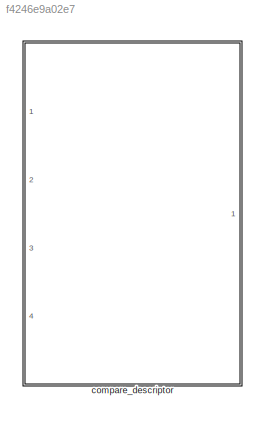
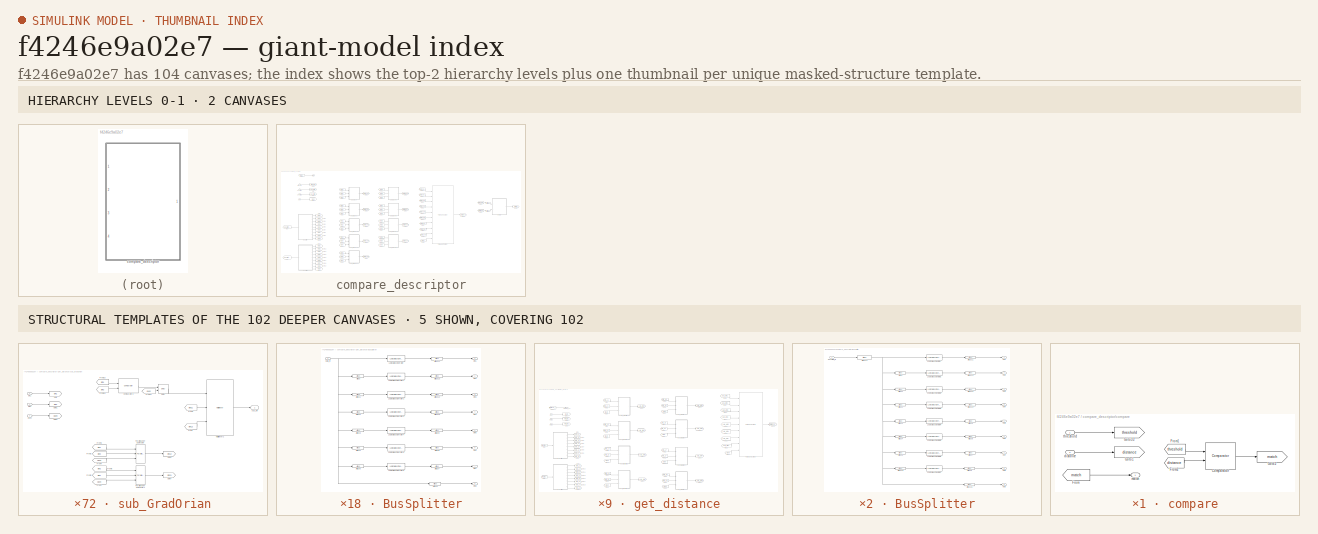
[diagram: thumbnail index - top-2 hierarchy levels (2 canvases) + 5 structural-template representatives of the remaining 102 canvases]
MODEL slx_f4246e9a02e7
KIND model
CONFIG AbsTol = auto
CONFIG FixedStep = auto
CONFIG InitFcn = %% DSPBuilder Start\nalt_dspbuilder_update_model(bdroot)\n%% DSPBuilder End\n
CONFIG MaxStep = auto
CONFIG MinStep = auto
CONFIG RelTol = 1e-3
CONFIG SampleTimeConstraint = Unconstrained
CONFIG Solver = ode45
CONFIG SolverMode = Auto
CONFIG SolverName = ode45
CONFIG StartTime = 0.0
CONFIG StopTime = 10.0
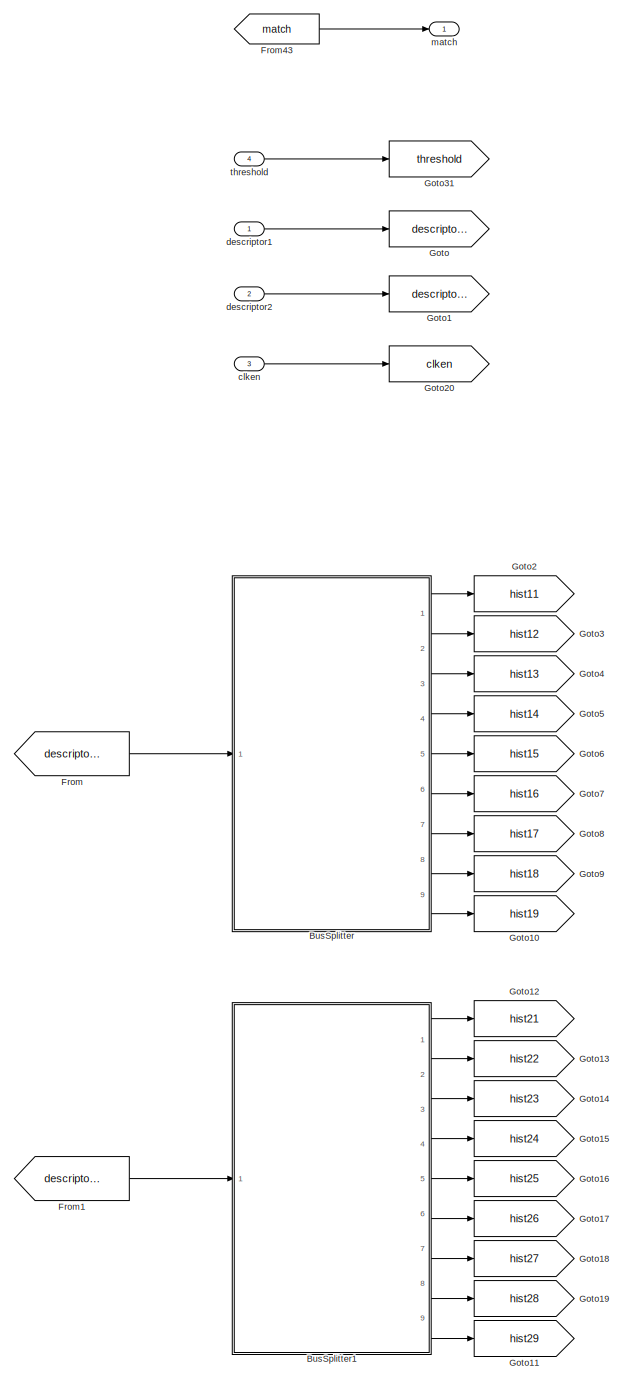
[diagram: compare_descriptor - part 1/4, left side, full height]
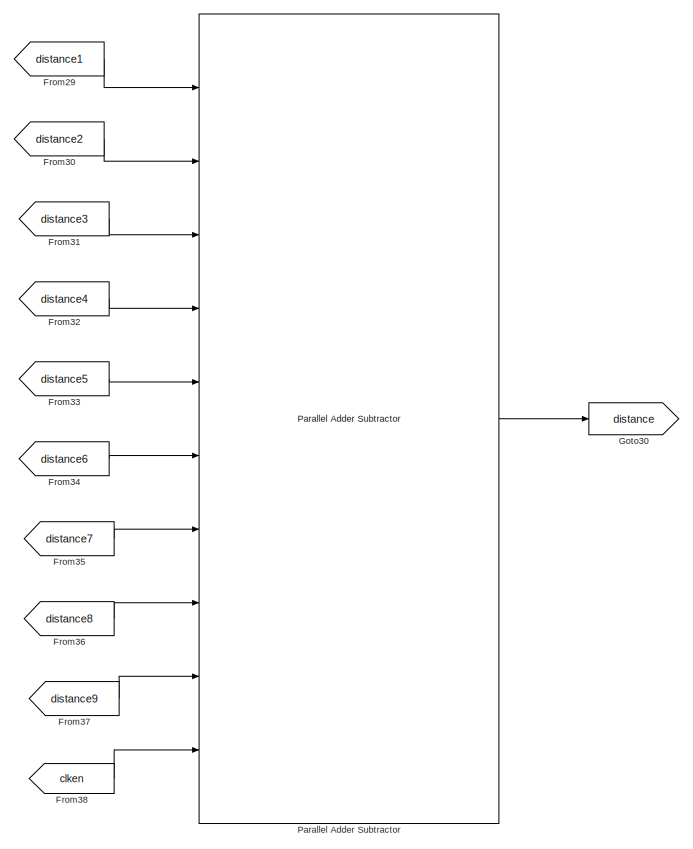
[diagram: compare_descriptor - part 2/4, middle right region]
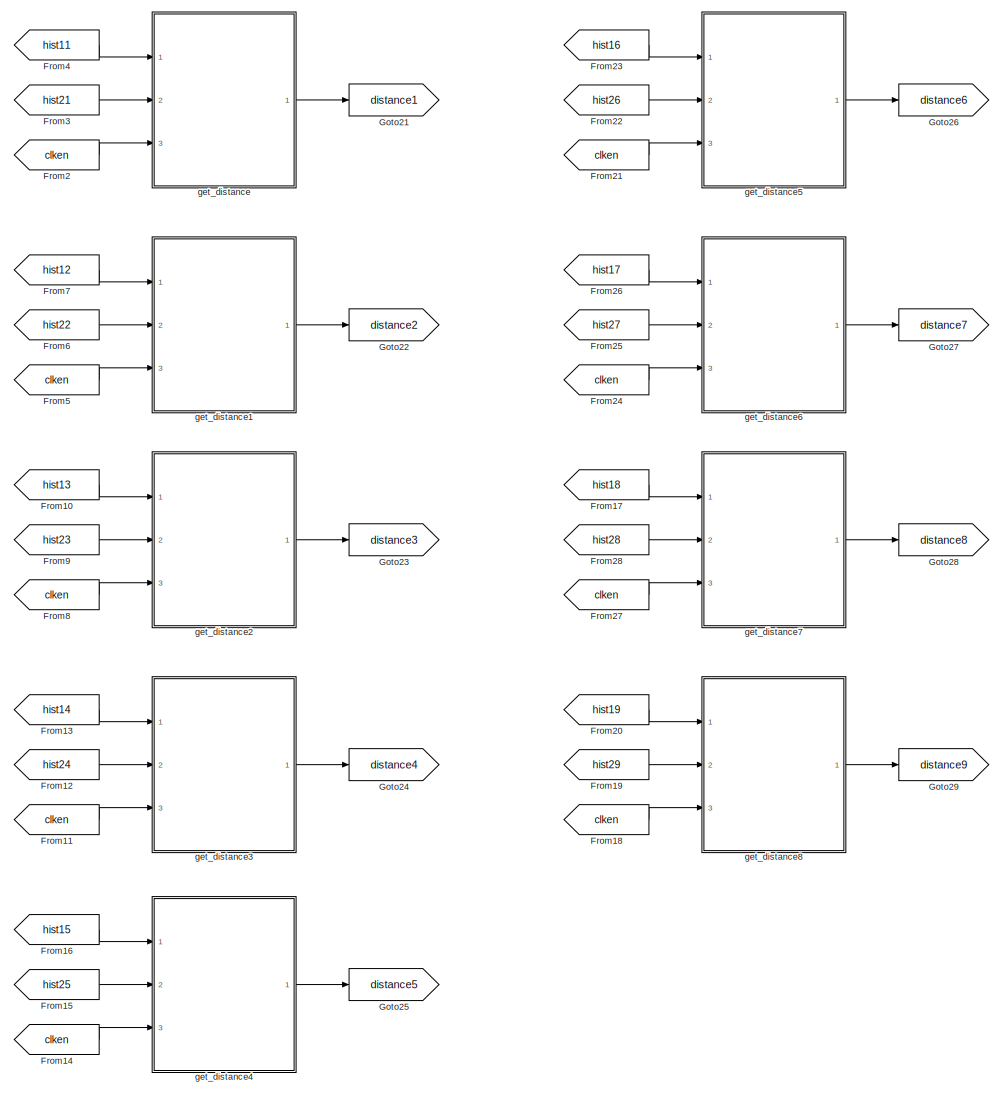
[diagram: compare_descriptor - part 3/4, center side, full height]
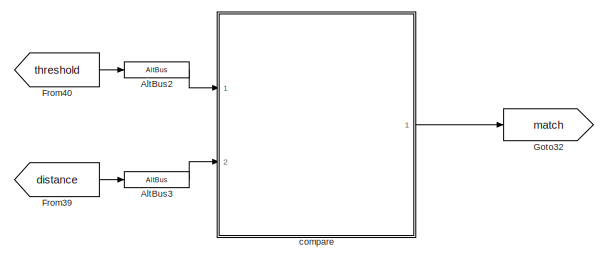
[diagram: compare_descriptor - part 4/4, middle right region]
BLOCK [SubSystem] compare_descriptor
  Ports = [4, 1]
  RequestExecContextInheritance = off
BLOCK [Reference] compare_descriptor/AltBus2  REF=allblocks_alteradspbuilder2/AltBus
  BusType = Unsigned Integer
  Ports = [1, 1]
  SourceBlock = allblocks_alteradspbuilder2/AltBus
  SourceType = AltBus AlteraBlockset
  bwl = 16
  bwr = 0
  floatingPointInput = on
  floatingPointOutput = on
  logFile = <userpath>\Desktop\final_sift_fpga\tb_compare\compare_compare%5Fdescriptor_AltBus2.fixedpointlog
  logOutputs = off
  saturate = off
BLOCK [Reference] compare_descriptor/AltBus3  REF=allblocks_alteradspbuilder2/AltBus
  BusType = Unsigned Integer
  Ports = [1, 1]
  SourceBlock = allblocks_alteradspbuilder2/AltBus
  SourceType = AltBus AlteraBlockset
  bwl = 16
  bwr = 0
  floatingPointInput = on
  floatingPointOutput = on
  logFile = <userpath>\Desktop\final_sift_fpga\tb_compare\compare_compare%5Fdescriptor_AltBus3.fixedpointlog
  logOutputs = off
  saturate = off
BLOCK [SubSystem] compare_descriptor/BusSplitter
  Ports = [1, 9]
  RequestExecContextInheritance = off
BLOCK [Reference] compare_descriptor/BusSplitter/AltBus  REF=allblocks_alteradspbuilder2/AltBus
  BusType = Unsigned Integer
  Ports = [1, 1]
  SourceBlock = allblocks_alteradspbuilder2/AltBus
  SourceType = AltBus AlteraBlockset
  bwl = 1024
  bwr = 0
  floatingPointInput = on
  floatingPointOutput = on
  logFile = <userpath>\Desktop\sift_fpga\Octave_2\tb_test_final_sift\test%5Ffinal%5Fsift_sift%5Foctave1_matching_compare%5Fdescriptor_BusSplitter_AltBus.fixedpointlog
  logOutputs = off
  saturate = off
BLOCK [Reference] compare_descriptor/BusSplitter/AltBus1  REF=allblocks_alteradspbuilder2/AltBus
  BusType = Unsigned Integer
  Ports = [1, 1]
  SourceBlock = allblocks_alteradspbuilder2/AltBus
  SourceType = AltBus AlteraBlockset
  bwl = 896
  bwr = 0
  floatingPointInput = on
  floatingPointOutput = on
  logFile = <userpath>\Desktop\sift_fpga\Octave_2\tb_test_final_sift\test%5Ffinal%5Fsift_sift%5Foctave1_matching_compare%5Fdescriptor_BusSplitter_AltBus1.fixedpointlog
  logOutputs = off
  saturate = off
BLOCK [Reference] compare_descriptor/BusSplitter/AltBus10  REF=allblocks_alteradspbuilder2/AltBus
  BusType = Unsigned Integer
  Ports = [1, 1]
  SourceBlock = allblocks_alteradspbuilder2/AltBus
  SourceType = AltBus AlteraBlockset
  bwl = 128
  bwr = 0
  floatingPointInput = on
  floatingPointOutput = on
  logFile = <userpath>\Desktop\sift_fpga\Octave_2\tb_test_final_sift\test%5Ffinal%5Fsift_sift%5Foctave1_matching_compare%5Fdescriptor_BusSplitter_AltBus10.fixedpointlog
  logOutputs = off
  saturate = off
BLOCK [Reference] compare_descriptor/BusSplitter/AltBus11  REF=allblocks_alteradspbuilder2/AltBus
  BusType = Unsigned Integer
  Ports = [1, 1]
  SourceBlock = allblocks_alteradspbuilder2/AltBus
  SourceType = AltBus AlteraBlockset
  bwl = 128
  bwr = 0
  floatingPointInput = on
  floatingPointOutput = on
  logFile = <userpath>\Desktop\sift_fpga\Octave_2\tb_test_final_sift\test%5Ffinal%5Fsift_sift%5Foctave1_matching_compare%5Fdescriptor_BusSplitter_AltBus11.fixedpointlog
  logOutputs = off
  saturate = off
BLOCK [Reference] compare_descriptor/BusSplitter/AltBus12  REF=allblocks_alteradspbuilder2/AltBus
  BusType = Unsigned Integer
  Ports = [1, 1]
  SourceBlock = allblocks_alteradspbuilder2/AltBus
  SourceType = AltBus AlteraBlockset
  bwl = 128
  bwr = 0
  floatingPointInput = on
  floatingPointOutput = on
  logFile = <userpath>\Desktop\sift_fpga\Octave_2\tb_test_final_sift\test%5Ffinal%5Fsift_sift%5Foctave1_matching_compare%5Fdescriptor_BusSplitter_AltBus12.fixedpointlog
  logOutputs = off
  saturate = off
BLOCK [Reference] compare_descriptor/BusSplitter/AltBus13  REF=allblocks_alteradspbuilder2/AltBus
  BusType = Unsigned Integer
  Ports = [1, 1]
  SourceBlock = allblocks_alteradspbuilder2/AltBus
  SourceType = AltBus AlteraBlockset
  bwl = 128
  bwr = 0
  floatingPointInput = on
  floatingPointOutput = on
  logFile = <userpath>\Desktop\sift_fpga\Octave_2\tb_test_final_sift\test%5Ffinal%5Fsift_sift%5Foctave1_matching_compare%5Fdescriptor_BusSplitter_AltBus13.fixedpointlog
  logOutputs = off
  saturate = off
BLOCK [Reference] compare_descriptor/BusSplitter/AltBus14  REF=allblocks_alteradspbuilder2/AltBus
  BusType = Unsigned Integer
  Ports = [1, 1]
  SourceBlock = allblocks_alteradspbuilder2/AltBus
  SourceType = AltBus AlteraBlockset
  bwl = 16*8*9
  bwr = 0
  floatingPointInput = on
  floatingPointOutput = on
  logFile = <userpath>\Desktop\sift_fpga\Octave_2\tb_test_final_sift\test%5Ffinal%5Fsift_sift%5Foctave1_matching_compare%5Fdescriptor_BusSplitter_AltBus14.fixedpointlog
  logOutputs = off
  saturate = off
BLOCK [Reference] compare_descriptor/BusSplitter/AltBus15  REF=allblocks_alteradspbuilder2/AltBus
  BusType = Unsigned Integer
  Ports = [1, 1]
  SourceBlock = allblocks_alteradspbuilder2/AltBus
  SourceType = AltBus AlteraBlockset
  bwl = 128
  bwr = 0
  floatingPointInput = on
  floatingPointOutput = on
  logFile = <userpath>\Desktop\sift_fpga\Octave_2\tb_test_final_sift\test%5Ffinal%5Fsift_sift%5Foctave1_matching_compare%5Fdescriptor_BusSplitter_AltBus15.fixedpointlog
  logOutputs = off
  saturate = off
BLOCK [Reference] compare_descriptor/BusSplitter/AltBus16  REF=allblocks_alteradspbuilder2/AltBus
  BusType = Unsigned Integer
  Ports = [1, 1]
  SourceBlock = allblocks_alteradspbuilder2/AltBus
  SourceType = AltBus AlteraBlockset
  bwl = 256
  bwr = 0
  floatingPointInput = on
  floatingPointOutput = on
  logFile = <userpath>\Desktop\sift_fpga\Octave_2\tb_test_final_sift\test%5Ffinal%5Fsift_sift%5Foctave1_matching_compare%5Fdescriptor_BusSplitter_AltBus16.fixedpointlog
  logOutputs = off
  saturate = off
BLOCK [Reference] compare_descriptor/BusSplitter/AltBus2  REF=allblocks_alteradspbuilder2/AltBus
  BusType = Unsigned Integer
  Ports = [1, 1]
  SourceBlock = allblocks_alteradspbuilder2/AltBus
  SourceType = AltBus AlteraBlockset
  bwl = 768
  bwr = 0
  floatingPointInput = on
  floatingPointOutput = on
  logFile = <userpath>\Desktop\sift_fpga\Octave_2\tb_test_final_sift\test%5Ffinal%5Fsift_sift%5Foctave1_matching_compare%5Fdescriptor_BusSplitter_AltBus2.fixedpointlog
  logOutputs = off
  saturate = off
BLOCK [Reference] compare_descriptor/BusSplitter/AltBus3  REF=allblocks_alteradspbuilder2/AltBus
  BusType = Unsigned Integer
  Ports = [1, 1]
  SourceBlock = allblocks_alteradspbuilder2/AltBus
  SourceType = AltBus AlteraBlockset
  bwl = 640
  bwr = 0
  floatingPointInput = on
  floatingPointOutput = on
  logFile = <userpath>\Desktop\sift_fpga\Octave_2\tb_test_final_sift\test%5Ffinal%5Fsift_sift%5Foctave1_matching_compare%5Fdescriptor_BusSplitter_AltBus3.fixedpointlog
  logOutputs = off
  saturate = off
BLOCK [Reference] compare_descriptor/BusSplitter/AltBus4  REF=allblocks_alteradspbuilder2/AltBus
  BusType = Unsigned Integer
  Ports = [1, 1]
  SourceBlock = allblocks_alteradspbuilder2/AltBus
  SourceType = AltBus AlteraBlockset
  bwl = 512
  bwr = 0
  floatingPointInput = on
  floatingPointOutput = on
  logFile = <userpath>\Desktop\sift_fpga\Octave_2\tb_test_final_sift\test%5Ffinal%5Fsift_sift%5Foctave1_matching_compare%5Fdescriptor_BusSplitter_AltBus4.fixedpointlog
  logOutputs = off
  saturate = off
BLOCK [Reference] compare_descriptor/BusSplitter/AltBus5  REF=allblocks_alteradspbuilder2/AltBus
  BusType = Unsigned Integer
  Ports = [1, 1]
  SourceBlock = allblocks_alteradspbuilder2/AltBus
  SourceType = AltBus AlteraBlockset
  bwl = 384
  bwr = 0
  floatingPointInput = on
  floatingPointOutput = on
  logFile = <userpath>\Desktop\sift_fpga\Octave_2\tb_test_final_sift\test%5Ffinal%5Fsift_sift%5Foctave1_matching_compare%5Fdescriptor_BusSplitter_AltBus5.fixedpointlog
  logOutputs = off
  saturate = off
BLOCK [Reference] compare_descriptor/BusSplitter/AltBus6  REF=allblocks_alteradspbuilder2/AltBus
  BusType = Unsigned Integer
  Ports = [1, 1]
  SourceBlock = allblocks_alteradspbuilder2/AltBus
  SourceType = AltBus AlteraBlockset
  bwl = 128
  bwr = 0
  floatingPointInput = on
  floatingPointOutput = on
  logFile = <userpath>\Desktop\sift_fpga\Octave_2\tb_test_final_sift\test%5Ffinal%5Fsift_sift%5Foctave1_matching_compare%5Fdescriptor_BusSplitter_AltBus6.fixedpointlog
  logOutputs = off
  saturate = off
BLOCK [Reference] compare_descriptor/BusSplitter/AltBus7  REF=allblocks_alteradspbuilder2/AltBus
  BusType = Unsigned Integer
  Ports = [1, 1]
  SourceBlock = allblocks_alteradspbuilder2/AltBus
  SourceType = AltBus AlteraBlockset
  bwl = 128
  bwr = 0
  floatingPointInput = on
  floatingPointOutput = on
  logFile = <userpath>\Desktop\sift_fpga\Octave_2\tb_test_final_sift\test%5Ffinal%5Fsift_sift%5Foctave1_matching_compare%5Fdescriptor_BusSplitter_AltBus7.fixedpointlog
  logOutputs = off
  saturate = off
BLOCK [Reference] compare_descriptor/BusSplitter/AltBus8  REF=allblocks_alteradspbuilder2/AltBus
  BusType = Unsigned Integer
  Ports = [1, 1]
  SourceBlock = allblocks_alteradspbuilder2/AltBus
  SourceType = AltBus AlteraBlockset
  bwl = 128
  bwr = 0
  floatingPointInput = on
  floatingPointOutput = on
  logFile = <userpath>\Desktop\sift_fpga\Octave_2\tb_test_final_sift\test%5Ffinal%5Fsift_sift%5Foctave1_matching_compare%5Fdescriptor_BusSplitter_AltBus8.fixedpointlog
  logOutputs = off
  saturate = off
BLOCK [Reference] compare_descriptor/BusSplitter/AltBus9  REF=allblocks_alteradspbuilder2/AltBus
  BusType = Unsigned Integer
  Ports = [1, 1]
  SourceBlock = allblocks_alteradspbuilder2/AltBus
  SourceType = AltBus AlteraBlockset
  bwl = 128
  bwr = 0
  floatingPointInput = on
  floatingPointOutput = on
  logFile = <userpath>\Desktop\sift_fpga\Octave_2\tb_test_final_sift\test%5Ffinal%5Fsift_sift%5Foctave1_matching_compare%5Fdescriptor_BusSplitter_AltBus9.fixedpointlog
  logOutputs = off
  saturate = off
BLOCK [Reference] compare_descriptor/BusSplitter/Logical Bus Operator  REF=allblocks_alteradspbuilder2/Logical Bus Operator
  BusType = Unsigned Integer
  LogicalOp_text = Shift Right
  Ports = [1, 1]
  SourceBlock = allblocks_alteradspbuilder2/Logical Bus Operator
  SourceType = Logical Bus Operator AlteraBlockset
  bwl = 1152
  bwr = 0
  force_sign_ext = off
  mask_value_num = -5
  pipeline_display = 0
  shift_amount = 8*128
BLOCK [Reference] compare_descriptor/BusSplitter/Logical Bus Operator1  REF=allblocks_alteradspbuilder2/Logical Bus Operator
  BusType = Unsigned Integer
  LogicalOp_text = Shift Right
  Ports = [1, 1]
  SourceBlock = allblocks_alteradspbuilder2/Logical Bus Operator
  SourceType = Logical Bus Operator AlteraBlockset
  bwl = 1024
  bwr = 0
  force_sign_ext = off
  mask_value_num = -5
  pipeline_display = 0
  shift_amount = 7*128
BLOCK [Reference] compare_descriptor/BusSplitter/Logical Bus Operator2  REF=allblocks_alteradspbuilder2/Logical Bus Operator
  BusType = Unsigned Integer
  LogicalOp_text = Shift Right
  Ports = [1, 1]
  SourceBlock = allblocks_alteradspbuilder2/Logical Bus Operator
  SourceType = Logical Bus Operator AlteraBlockset
  bwl = 896
  bwr = 0
  force_sign_ext = off
  mask_value_num = -5
  pipeline_display = 0
  shift_amount = 6*128
BLOCK [Reference] compare_descriptor/BusSplitter/Logical Bus Operator3  REF=allblocks_alteradspbuilder2/Logical Bus Operator
  BusType = Unsigned Integer
  LogicalOp_text = Shift Right
  Ports = [1, 1]
  SourceBlock = allblocks_alteradspbuilder2/Logical Bus Operator
  SourceType = Logical Bus Operator AlteraBlockset
  bwl = 768
  bwr = 0
  force_sign_ext = off
  mask_value_num = -5
  pipeline_display = 0
  shift_amount = 5*128
BLOCK [Reference] compare_descriptor/BusSplitter/Logical Bus Operator4  REF=allblocks_alteradspbuilder2/Logical Bus Operator
  BusType = Unsigned Integer
  LogicalOp_text = Shift Right
  Ports = [1, 1]
  SourceBlock = allblocks_alteradspbuilder2/Logical Bus Operator
  SourceType = Logical Bus Operator AlteraBlockset
  bwl = 640
  bwr = 0
  force_sign_ext = off
  mask_value_num = -5
  pipeline_display = 0
  shift_amount = 4*128
BLOCK [Reference] compare_descriptor/BusSplitter/Logical Bus Operator5  REF=allblocks_alteradspbuilder2/Logical Bus Operator
  BusType = Unsigned Integer
  LogicalOp_text = Shift Right
  Ports = [1, 1]
  SourceBlock = allblocks_alteradspbuilder2/Logical Bus Operator
  SourceType = Logical Bus Operator AlteraBlockset
  bwl = 512
  bwr = 0
  force_sign_ext = off
  mask_value_num = -5
  pipeline_display = 0
  shift_amount = 3*128
BLOCK [Reference] compare_descriptor/BusSplitter/Logical Bus Operator6  REF=allblocks_alteradspbuilder2/Logical Bus Operator
  BusType = Unsigned Integer
  LogicalOp_text = Shift Right
  Ports = [1, 1]
  SourceBlock = allblocks_alteradspbuilder2/Logical Bus Operator
  SourceType = Logical Bus Operator AlteraBlockset
  bwl = 384
  bwr = 0
  force_sign_ext = off
  mask_value_num = -5
  pipeline_display = 0
  shift_amount = 2*128
BLOCK [Reference] compare_descriptor/BusSplitter/Logical Bus Operator7  REF=allblocks_alteradspbuilder2/Logical Bus Operator
  BusType = Unsigned Integer
  LogicalOp_text = Shift Right
  Ports = [1, 1]
  SourceBlock = allblocks_alteradspbuilder2/Logical Bus Operator
  SourceType = Logical Bus Operator AlteraBlockset
  bwl = 256
  bwr = 0
  force_sign_ext = off
  mask_value_num = -5
  pipeline_display = 0
  shift_amount = 128
BLOCK [Inport] compare_descriptor/BusSplitter/descriptor_in
  IconDisplay = Port number
BLOCK [Outport] compare_descriptor/BusSplitter/hist1
  IconDisplay = Port number
BLOCK [Outport] compare_descriptor/BusSplitter/hist2
  IconDisplay = Port number
  Port = 2
BLOCK [Outport] compare_descriptor/BusSplitter/hist3
  IconDisplay = Port number
  Port = 3
BLOCK [Outport] compare_descriptor/BusSplitter/hist4
  IconDisplay = Port number
  Port = 4
BLOCK [Outport] compare_descriptor/BusSplitter/hist5
  IconDisplay = Port number
  Port = 5
BLOCK [Outport] compare_descriptor/BusSplitter/hist6
  IconDisplay = Port number
  Port = 6
BLOCK [Outport] compare_descriptor/BusSplitter/hist7
  IconDisplay = Port number
  Port = 7
BLOCK [Outport] compare_descriptor/BusSplitter/hist8
  IconDisplay = Port number
  Port = 8
BLOCK [Outport] compare_descriptor/BusSplitter/hist9
  IconDisplay = Port number
  Port = 9
BLOCK [SubSystem] compare_descriptor/BusSplitter1
  Ports = [1, 9]
  RequestExecContextInheritance = off
BLOCK [Reference] compare_descriptor/BusSplitter1/AltBus  REF=allblocks_alteradspbuilder2/AltBus
  BusType = Unsigned Integer
  Ports = [1, 1]
  SourceBlock = allblocks_alteradspbuilder2/AltBus
  SourceType = AltBus AlteraBlockset
  bwl = 1024
  bwr = 0
  floatingPointInput = on
  floatingPointOutput = on
  logFile = <userpath>\Desktop\sift_fpga\Octave_2\tb_test_final_sift\test%5Ffinal%5Fsift_sift%5Foctave1_matching_compare%5Fdescriptor_BusSplitter1_AltBus.fixedpointlog
  logOutputs = off
  saturate = off
BLOCK [Reference] compare_descriptor/BusSplitter1/AltBus1  REF=allblocks_alteradspbuilder2/AltBus
  BusType = Unsigned Integer
  Ports = [1, 1]
  SourceBlock = allblocks_alteradspbuilder2/AltBus
  SourceType = AltBus AlteraBlockset
  bwl = 896
  bwr = 0
  floatingPointInput = on
  floatingPointOutput = on
  logFile = <userpath>\Desktop\sift_fpga\Octave_2\tb_test_final_sift\test%5Ffinal%5Fsift_sift%5Foctave1_matching_compare%5Fdescriptor_BusSplitter1_AltBus1.fixedpointlog
  logOutputs = off
  saturate = off
BLOCK [Reference] compare_descriptor/BusSplitter1/AltBus10  REF=allblocks_alteradspbuilder2/AltBus
  BusType = Unsigned Integer
  Ports = [1, 1]
  SourceBlock = allblocks_alteradspbuilder2/AltBus
  SourceType = AltBus AlteraBlockset
  bwl = 128
  bwr = 0
  floatingPointInput = on
  floatingPointOutput = on
  logFile = <userpath>\Desktop\sift_fpga\Octave_2\tb_test_final_sift\test%5Ffinal%5Fsift_sift%5Foctave1_matching_compare%5Fdescriptor_BusSplitter1_AltBus10.fixedpointlog
  logOutputs = off
  saturate = off
BLOCK [Reference] compare_descriptor/BusSplitter1/AltBus11  REF=allblocks_alteradspbuilder2/AltBus
  BusType = Unsigned Integer
  Ports = [1, 1]
  SourceBlock = allblocks_alteradspbuilder2/AltBus
  SourceType = AltBus AlteraBlockset
  bwl = 128
  bwr = 0
  floatingPointInput = on
  floatingPointOutput = on
  logFile = <userpath>\Desktop\sift_fpga\Octave_2\tb_test_final_sift\test%5Ffinal%5Fsift_sift%5Foctave1_matching_compare%5Fdescriptor_BusSplitter1_AltBus11.fixedpointlog
  logOutputs = off
  saturate = off
BLOCK [Reference] compare_descriptor/BusSplitter1/AltBus12  REF=allblocks_alteradspbuilder2/AltBus
  BusType = Unsigned Integer
  Ports = [1, 1]
  SourceBlock = allblocks_alteradspbuilder2/AltBus
  SourceType = AltBus AlteraBlockset
  bwl = 128
  bwr = 0
  floatingPointInput = on
  floatingPointOutput = on
  logFile = <userpath>\Desktop\sift_fpga\Octave_2\tb_test_final_sift\test%5Ffinal%5Fsift_sift%5Foctave1_matching_compare%5Fdescriptor_BusSplitter1_AltBus12.fixedpointlog
  logOutputs = off
  saturate = off
BLOCK [Reference] compare_descriptor/BusSplitter1/AltBus13  REF=allblocks_alteradspbuilder2/AltBus
  BusType = Unsigned Integer
  Ports = [1, 1]
  SourceBlock = allblocks_alteradspbuilder2/AltBus
  SourceType = AltBus AlteraBlockset
  bwl = 128
  bwr = 0
  floatingPointInput = on
  floatingPointOutput = on
  logFile = <userpath>\Desktop\sift_fpga\Octave_2\tb_test_final_sift\test%5Ffinal%5Fsift_sift%5Foctave1_matching_compare%5Fdescriptor_BusSplitter1_AltBus13.fixedpointlog
  logOutputs = off
  saturate = off
BLOCK [Reference] compare_descriptor/BusSplitter1/AltBus14  REF=allblocks_alteradspbuilder2/AltBus
  BusType = Unsigned Integer
  Ports = [1, 1]
  SourceBlock = allblocks_alteradspbuilder2/AltBus
  SourceType = AltBus AlteraBlockset
  bwl = 16*8*9
  bwr = 0
  floatingPointInput = on
  floatingPointOutput = on
  logFile = <userpath>\Desktop\sift_fpga\Octave_2\tb_test_final_sift\test%5Ffinal%5Fsift_sift%5Foctave1_matching_compare%5Fdescriptor_BusSplitter1_AltBus14.fixedpointlog
  logOutputs = off
  saturate = off
BLOCK [Reference] compare_descriptor/BusSplitter1/AltBus15  REF=allblocks_alteradspbuilder2/AltBus
  BusType = Unsigned Integer
  Ports = [1, 1]
  SourceBlock = allblocks_alteradspbuilder2/AltBus
  SourceType = AltBus AlteraBlockset
  bwl = 128
  bwr = 0
  floatingPointInput = on
  floatingPointOutput = on
  logFile = <userpath>\Desktop\sift_fpga\Octave_2\tb_test_final_sift\test%5Ffinal%5Fsift_sift%5Foctave1_matching_compare%5Fdescriptor_BusSplitter1_AltBus15.fixedpointlog
  logOutputs = off
  saturate = off
BLOCK [Reference] compare_descriptor/BusSplitter1/AltBus16  REF=allblocks_alteradspbuilder2/AltBus
  BusType = Unsigned Integer
  Ports = [1, 1]
  SourceBlock = allblocks_alteradspbuilder2/AltBus
  SourceType = AltBus AlteraBlockset
  bwl = 256
  bwr = 0
  floatingPointInput = on
  floatingPointOutput = on
  logFile = <userpath>\Desktop\sift_fpga\Octave_2\tb_test_final_sift\test%5Ffinal%5Fsift_sift%5Foctave1_matching_compare%5Fdescriptor_BusSplitter1_AltBus16.fixedpointlog
  logOutputs = off
  saturate = off
BLOCK [Reference] compare_descriptor/BusSplitter1/AltBus2  REF=allblocks_alteradspbuilder2/AltBus
  BusType = Unsigned Integer
  Ports = [1, 1]
  SourceBlock = allblocks_alteradspbuilder2/AltBus
  SourceType = AltBus AlteraBlockset
  bwl = 768
  bwr = 0
  floatingPointInput = on
  floatingPointOutput = on
  logFile = <userpath>\Desktop\sift_fpga\Octave_2\tb_test_final_sift\test%5Ffinal%5Fsift_sift%5Foctave1_matching_compare%5Fdescriptor_BusSplitter1_AltBus2.fixedpointlog
  logOutputs = off
  saturate = off
BLOCK [Reference] compare_descriptor/BusSplitter1/AltBus3  REF=allblocks_alteradspbuilder2/AltBus
  BusType = Unsigned Integer
  Ports = [1, 1]
  SourceBlock = allblocks_alteradspbuilder2/AltBus
  SourceType = AltBus AlteraBlockset
  bwl = 640
  bwr = 0
  floatingPointInput = on
  floatingPointOutput = on
  logFile = <userpath>\Desktop\sift_fpga\Octave_2\tb_test_final_sift\test%5Ffinal%5Fsift_sift%5Foctave1_matching_compare%5Fdescriptor_BusSplitter1_AltBus3.fixedpointlog
  logOutputs = off
  saturate = off
BLOCK [Reference] compare_descriptor/BusSplitter1/AltBus4  REF=allblocks_alteradspbuilder2/AltBus
  BusType = Unsigned Integer
  Ports = [1, 1]
  SourceBlock = allblocks_alteradspbuilder2/AltBus
  SourceType = AltBus AlteraBlockset
  bwl = 512
  bwr = 0
  floatingPointInput = on
  floatingPointOutput = on
  logFile = <userpath>\Desktop\sift_fpga\Octave_2\tb_test_final_sift\test%5Ffinal%5Fsift_sift%5Foctave1_matching_compare%5Fdescriptor_BusSplitter1_AltBus4.fixedpointlog
  logOutputs = off
  saturate = off
BLOCK [Reference] compare_descriptor/BusSplitter1/AltBus5  REF=allblocks_alteradspbuilder2/AltBus
  BusType = Unsigned Integer
  Ports = [1, 1]
  SourceBlock = allblocks_alteradspbuilder2/AltBus
  SourceType = AltBus AlteraBlockset
  bwl = 384
  bwr = 0
  floatingPointInput = on
  floatingPointOutput = on
  logFile = <userpath>\Desktop\sift_fpga\Octave_2\tb_test_final_sift\test%5Ffinal%5Fsift_sift%5Foctave1_matching_compare%5Fdescriptor_BusSplitter1_AltBus5.fixedpointlog
  logOutputs = off
  saturate = off
BLOCK [Reference] compare_descriptor/BusSplitter1/AltBus6  REF=allblocks_alteradspbuilder2/AltBus
  BusType = Unsigned Integer
  Ports = [1, 1]
  SourceBlock = allblocks_alteradspbuilder2/AltBus
  SourceType = AltBus AlteraBlockset
  bwl = 128
  bwr = 0
  floatingPointInput = on
  floatingPointOutput = on
  logFile = <userpath>\Desktop\sift_fpga\Octave_2\tb_test_final_sift\test%5Ffinal%5Fsift_sift%5Foctave1_matching_compare%5Fdescriptor_BusSplitter1_AltBus6.fixedpointlog
  logOutputs = off
  saturate = off
BLOCK [Reference] compare_descriptor/BusSplitter1/AltBus7  REF=allblocks_alteradspbuilder2/AltBus
  BusType = Unsigned Integer
  Ports = [1, 1]
  SourceBlock = allblocks_alteradspbuilder2/AltBus
  SourceType = AltBus AlteraBlockset
  bwl = 128
  bwr = 0
  floatingPointInput = on
  floatingPointOutput = on
  logFile = <userpath>\Desktop\sift_fpga\Octave_2\tb_test_final_sift\test%5Ffinal%5Fsift_sift%5Foctave1_matching_compare%5Fdescriptor_BusSplitter1_AltBus7.fixedpointlog
  logOutputs = off
  saturate = off
BLOCK [Reference] compare_descriptor/BusSplitter1/AltBus8  REF=allblocks_alteradspbuilder2/AltBus
  BusType = Unsigned Integer
  Ports = [1, 1]
  SourceBlock = allblocks_alteradspbuilder2/AltBus
  SourceType = AltBus AlteraBlockset
  bwl = 128
  bwr = 0
  floatingPointInput = on
  floatingPointOutput = on
  logFile = <userpath>\Desktop\sift_fpga\Octave_2\tb_test_final_sift\test%5Ffinal%5Fsift_sift%5Foctave1_matching_compare%5Fdescriptor_BusSplitter1_AltBus8.fixedpointlog
  logOutputs = off
  saturate = off
BLOCK [Reference] compare_descriptor/BusSplitter1/AltBus9  REF=allblocks_alteradspbuilder2/AltBus
  BusType = Unsigned Integer
  Ports = [1, 1]
  SourceBlock = allblocks_alteradspbuilder2/AltBus
  SourceType = AltBus AlteraBlockset
  bwl = 128
  bwr = 0
  floatingPointInput = on
  floatingPointOutput = on
  logFile = <userpath>\Desktop\sift_fpga\Octave_2\tb_test_final_sift\test%5Ffinal%5Fsift_sift%5Foctave1_matching_compare%5Fdescriptor_BusSplitter1_AltBus9.fixedpointlog
  logOutputs = off
  saturate = off
BLOCK [Reference] compare_descriptor/BusSplitter1/Logical Bus Operator  REF=allblocks_alteradspbuilder2/Logical Bus Operator
  BusType = Unsigned Integer
  LogicalOp_text = Shift Right
  Ports = [1, 1]
  SourceBlock = allblocks_alteradspbuilder2/Logical Bus Operator
  SourceType = Logical Bus Operator AlteraBlockset
  bwl = 1152
  bwr = 0
  force_sign_ext = off
  mask_value_num = -5
  pipeline_display = 0
  shift_amount = 8*128
BLOCK [Reference] compare_descriptor/BusSplitter1/Logical Bus Operator1  REF=allblocks_alteradspbuilder2/Logical Bus Operator
  BusType = Unsigned Integer
  LogicalOp_text = Shift Right
  Ports = [1, 1]
  SourceBlock = allblocks_alteradspbuilder2/Logical Bus Operator
  SourceType = Logical Bus Operator AlteraBlockset
  bwl = 1024
  bwr = 0
  force_sign_ext = off
  mask_value_num = -5
  pipeline_display = 0
  shift_amount = 7*128
BLOCK [Reference] compare_descriptor/BusSplitter1/Logical Bus Operator2  REF=allblocks_alteradspbuilder2/Logical Bus Operator
  BusType = Unsigned Integer
  LogicalOp_text = Shift Right
  Ports = [1, 1]
  SourceBlock = allblocks_alteradspbuilder2/Logical Bus Operator
  SourceType = Logical Bus Operator AlteraBlockset
  bwl = 896
  bwr = 0
  force_sign_ext = off
  mask_value_num = -5
  pipeline_display = 0
  shift_amount = 6*128
BLOCK [Reference] compare_descriptor/BusSplitter1/Logical Bus Operator3  REF=allblocks_alteradspbuilder2/Logical Bus Operator
  BusType = Unsigned Integer
  LogicalOp_text = Shift Right
  Ports = [1, 1]
  SourceBlock = allblocks_alteradspbuilder2/Logical Bus Operator
  SourceType = Logical Bus Operator AlteraBlockset
  bwl = 768
  bwr = 0
  force_sign_ext = off
  mask_value_num = -5
  pipeline_display = 0
  shift_amount = 5*128
BLOCK [Reference] compare_descriptor/BusSplitter1/Logical Bus Operator4  REF=allblocks_alteradspbuilder2/Logical Bus Operator
  BusType = Unsigned Integer
  LogicalOp_text = Shift Right
  Ports = [1, 1]
  SourceBlock = allblocks_alteradspbuilder2/Logical Bus Operator
  SourceType = Logical Bus Operator AlteraBlockset
  bwl = 640
  bwr = 0
  force_sign_ext = off
  mask_value_num = -5
  pipeline_display = 0
  shift_amount = 4*128
BLOCK [Reference] compare_descriptor/BusSplitter1/Logical Bus Operator5  REF=allblocks_alteradspbuilder2/Logical Bus Operator
  BusType = Unsigned Integer
  LogicalOp_text = Shift Right
  Ports = [1, 1]
  SourceBlock = allblocks_alteradspbuilder2/Logical Bus Operator
  SourceType = Logical Bus Operator AlteraBlockset
  bwl = 512
  bwr = 0
  force_sign_ext = off
  mask_value_num = -5
  pipeline_display = 0
  shift_amount = 3*128
BLOCK [Reference] compare_descriptor/BusSplitter1/Logical Bus Operator6  REF=allblocks_alteradspbuilder2/Logical Bus Operator
  BusType = Unsigned Integer
  LogicalOp_text = Shift Right
  Ports = [1, 1]
  SourceBlock = allblocks_alteradspbuilder2/Logical Bus Operator
  SourceType = Logical Bus Operator AlteraBlockset
  bwl = 384
  bwr = 0
  force_sign_ext = off
  mask_value_num = -5
  pipeline_display = 0
  shift_amount = 2*128
BLOCK [Reference] compare_descriptor/BusSplitter1/Logical Bus Operator7  REF=allblocks_alteradspbuilder2/Logical Bus Operator
  BusType = Unsigned Integer
  LogicalOp_text = Shift Right
  Ports = [1, 1]
  SourceBlock = allblocks_alteradspbuilder2/Logical Bus Operator
  SourceType = Logical Bus Operator AlteraBlockset
  bwl = 256
  bwr = 0
  force_sign_ext = off
  mask_value_num = -5
  pipeline_display = 0
  shift_amount = 128
BLOCK [Inport] compare_descriptor/BusSplitter1/descriptor_in
  IconDisplay = Port number
BLOCK [Outport] compare_descriptor/BusSplitter1/hist1
  IconDisplay = Port number
BLOCK [Outport] compare_descriptor/BusSplitter1/hist2
  IconDisplay = Port number
  Port = 2
BLOCK [Outport] compare_descriptor/BusSplitter1/hist3
  IconDisplay = Port number
  Port = 3
BLOCK [Outport] compare_descriptor/BusSplitter1/hist4
  IconDisplay = Port number
  Port = 4
BLOCK [Outport] compare_descriptor/BusSplitter1/hist5
  IconDisplay = Port number
  Port = 5
BLOCK [Outport] compare_descriptor/BusSplitter1/hist6
  IconDisplay = Port number
  Port = 6
BLOCK [Outport] compare_descriptor/BusSplitter1/hist7
  IconDisplay = Port number
  Port = 7
BLOCK [Outport] compare_descriptor/BusSplitter1/hist8
  IconDisplay = Port number
  Port = 8
BLOCK [Outport] compare_descriptor/BusSplitter1/hist9
  IconDisplay = Port number
  Port = 9
BLOCK [From] compare_descriptor/From
  GotoTag = descriptor1
BLOCK [From] compare_descriptor/From1
  GotoTag = descriptor2
BLOCK [From] compare_descriptor/From10
  GotoTag = hist13
BLOCK [From] compare_descriptor/From11
  GotoTag = clken
BLOCK [From] compare_descriptor/From12
  GotoTag = hist24
BLOCK [From] compare_descriptor/From13
  GotoTag = hist14
BLOCK [From] compare_descriptor/From14
  GotoTag = clken
BLOCK [From] compare_descriptor/From15
  GotoTag = hist25
BLOCK [From] compare_descriptor/From16
  GotoTag = hist15
BLOCK [From] compare_descriptor/From17
  GotoTag = hist18
BLOCK [From] compare_descriptor/From18
  GotoTag = clken
BLOCK [From] compare_descriptor/From19
  GotoTag = hist29
BLOCK [From] compare_descriptor/From2
  GotoTag = clken
BLOCK [From] compare_descriptor/From20
  GotoTag = hist19
BLOCK [From] compare_descriptor/From21
  GotoTag = clken
BLOCK [From] compare_descriptor/From22
  GotoTag = hist26
BLOCK [From] compare_descriptor/From23
  GotoTag = hist16
BLOCK [From] compare_descriptor/From24
  GotoTag = clken
BLOCK [From] compare_descriptor/From25
  GotoTag = hist27
BLOCK [From] compare_descriptor/From26
  GotoTag = hist17
BLOCK [From] compare_descriptor/From27
  GotoTag = clken
BLOCK [From] compare_descriptor/From28
  GotoTag = hist28
BLOCK [From] compare_descriptor/From29
  GotoTag = distance1
BLOCK [From] compare_descriptor/From3
  GotoTag = hist21
BLOCK [From] compare_descriptor/From30
  GotoTag = distance2
BLOCK [From] compare_descriptor/From31
  GotoTag = distance3
BLOCK [From] compare_descriptor/From32
  GotoTag = distance4
BLOCK [From] compare_descriptor/From33
  GotoTag = distance5
BLOCK [From] compare_descriptor/From34
  GotoTag = distance6
BLOCK [From] compare_descriptor/From35
  GotoTag = distance7
BLOCK [From] compare_descriptor/From36
  GotoTag = distance8
BLOCK [From] compare_descriptor/From37
  GotoTag = distance9
BLOCK [From] compare_descriptor/From38
  GotoTag = clken
BLOCK [From] compare_descriptor/From39
  GotoTag = distance
BLOCK [From] compare_descriptor/From4
  GotoTag = hist11
BLOCK [From] compare_descriptor/From40
  GotoTag = threshold
BLOCK [From] compare_descriptor/From43
  GotoTag = match
BLOCK [From] compare_descriptor/From5
  GotoTag = clken
BLOCK [From] compare_descriptor/From6
  GotoTag = hist22
BLOCK [From] compare_descriptor/From7
  GotoTag = hist12
BLOCK [From] compare_descriptor/From8
  GotoTag = clken
BLOCK [From] compare_descriptor/From9
  GotoTag = hist23
BLOCK [Goto] compare_descriptor/Goto
  GotoTag = descriptor1
BLOCK [Goto] compare_descriptor/Goto1
  GotoTag = descriptor2
BLOCK [Goto] compare_descriptor/Goto10
  GotoTag = hist19
BLOCK [Goto] compare_descriptor/Goto11
  GotoTag = hist29
BLOCK [Goto] compare_descriptor/Goto12
  GotoTag = hist21
BLOCK [Goto] compare_descriptor/Goto13
  GotoTag = hist22
BLOCK [Goto] compare_descriptor/Goto14
  GotoTag = hist23
BLOCK [Goto] compare_descriptor/Goto15
  GotoTag = hist24
BLOCK [Goto] compare_descriptor/Goto16
  GotoTag = hist25
BLOCK [Goto] compare_descriptor/Goto17
  GotoTag = hist26
BLOCK [Goto] compare_descriptor/Goto18
  GotoTag = hist27
BLOCK [Goto] compare_descriptor/Goto19
  GotoTag = hist28
BLOCK [Goto] compare_descriptor/Goto2
  GotoTag = hist11
BLOCK [Goto] compare_descriptor/Goto20
  GotoTag = clken
BLOCK [Goto] compare_descriptor/Goto21
  GotoTag = distance1
BLOCK [Goto] compare_descriptor/Goto22
  GotoTag = distance2
BLOCK [Goto] compare_descriptor/Goto23
  GotoTag = distance3
BLOCK [Goto] compare_descriptor/Goto24
  GotoTag = distance4
BLOCK [Goto] compare_descriptor/Goto25
  GotoTag = distance5
BLOCK [Goto] compare_descriptor/Goto26
  GotoTag = distance6
BLOCK [Goto] compare_descriptor/Goto27
  GotoTag = distance7
BLOCK [Goto] compare_descriptor/Goto28
  GotoTag = distance8
BLOCK [Goto] compare_descriptor/Goto29
  GotoTag = distance9
BLOCK [Goto] compare_descriptor/Goto3
  GotoTag = hist12
BLOCK [Goto] compare_descriptor/Goto30
  GotoTag = distance
BLOCK [Goto] compare_descriptor/Goto31
  GotoTag = threshold
BLOCK [Goto] compare_descriptor/Goto32
  GotoTag = match
BLOCK [Goto] compare_descriptor/Goto4
  GotoTag = hist13
BLOCK [Goto] compare_descriptor/Goto5
  GotoTag = hist14
BLOCK [Goto] compare_descriptor/Goto6
  GotoTag = hist15
BLOCK [Goto] compare_descriptor/Goto7
  GotoTag = hist16
BLOCK [Goto] compare_descriptor/Goto8
  GotoTag = hist17
BLOCK [Goto] compare_descriptor/Goto9
  GotoTag = hist18
BLOCK [Reference] compare_descriptor/Parallel Adder Subtractor  REF=allblocks_alteradspbuilder2/Parallel Adder Subtractor
  Ports = [10, 1]
  SourceBlock = allblocks_alteradspbuilder2/Parallel Adder Subtractor
  SourceType = ParallelAdder AlteraBlockset
  allowFloatingPointOverride = on
  direction = +
  logFile = <userpath>\Desktop\final_sift_fpga\tb_compare\compare_compare%5Fdescriptor_Parallel+Adder+Subtractor.fixedpointlog
  logOutputs = off
  number_of_inputs = 9
  phase_selection = 1
  pipeline_display = 4
  use_aclr = off
  use_ena = on
  use_pipeline = on
BLOCK [Inport] compare_descriptor/clken
  IconDisplay = Port number
  Port = 3
BLOCK [SubSystem] compare_descriptor/compare
  Ports = [2, 1]
  RequestExecContextInheritance = off
BLOCK [Reference] compare_descriptor/compare/Comparator  REF=allblocks_alteradspbuilder2/Comparator
  Ports = [2, 1]
  SourceBlock = allblocks_alteradspbuilder2/Comparator
  SourceType = Comparator AlteraBlockset
  allowFloatingPointOverride = on
  direction = a > b
  logFile = <userpath>\Desktop\sift_fpga\Octave_2\tb_test_final_sift\test%5Ffinal%5Fsift_sift%5Foctave1_matching_compare%5Fdescriptor_compare_Comparator.fixedpointlog
  logOutputs = off
  pipeline_display = 0
BLOCK [From] compare_descriptor/compare/From
  GotoTag = match
BLOCK [From] compare_descriptor/compare/From1
  GotoTag = threshold
BLOCK [From] compare_descriptor/compare/From2
  GotoTag = distance
BLOCK [Goto] compare_descriptor/compare/Goto1
  GotoTag = distance
BLOCK [Goto] compare_descriptor/compare/Goto2
  GotoTag = match
BLOCK [Goto] compare_descriptor/compare/Goto32
  GotoTag = threshold
BLOCK [Inport] compare_descriptor/compare/distance
  IconDisplay = Port number
  Port = 2
BLOCK [Outport] compare_descriptor/compare/match
  IconDisplay = Port number
BLOCK [Inport] compare_descriptor/compare/threshold
  IconDisplay = Port number
BLOCK [Inport] compare_descriptor/descriptor1
  IconDisplay = Port number
BLOCK [Inport] compare_descriptor/descriptor2
  IconDisplay = Port number
  Port = 2
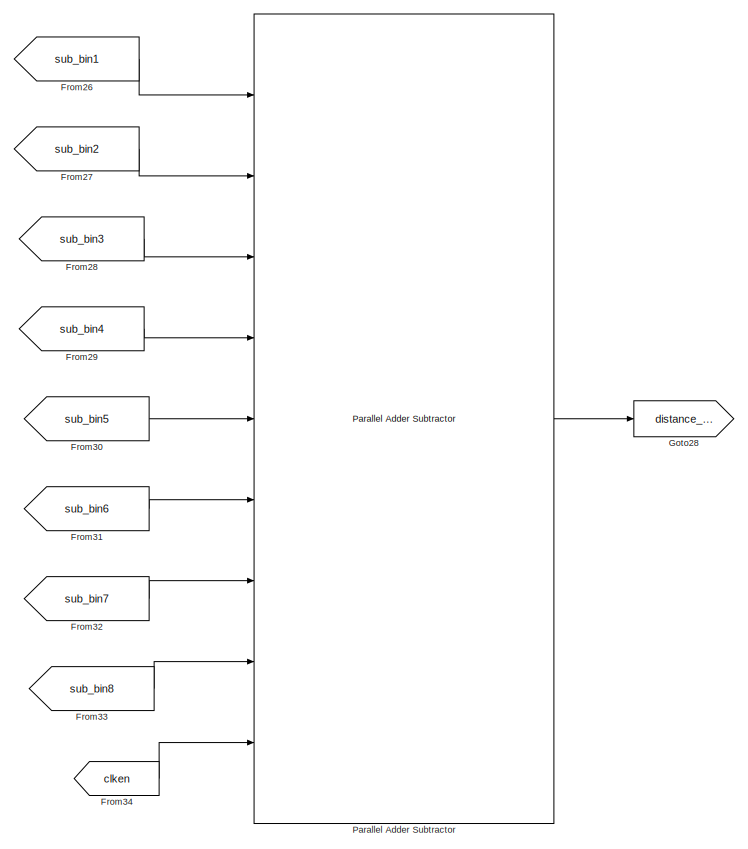
[diagram: compare_descriptor/get_distance - part 1/4, middle right region]
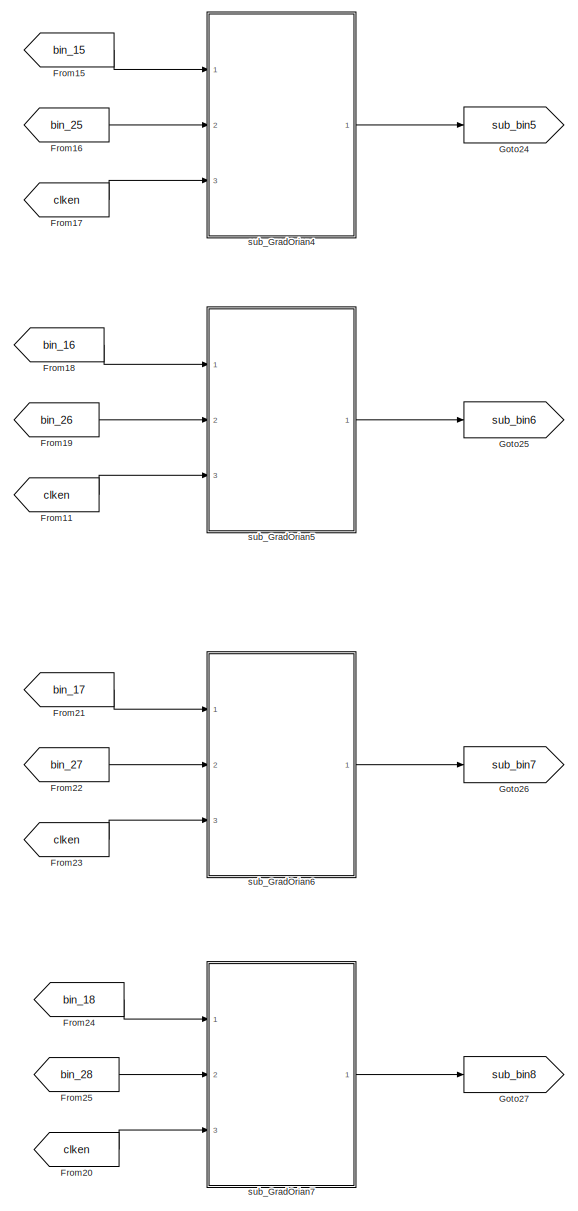
[diagram: compare_descriptor/get_distance - part 2/4, center side, full height]
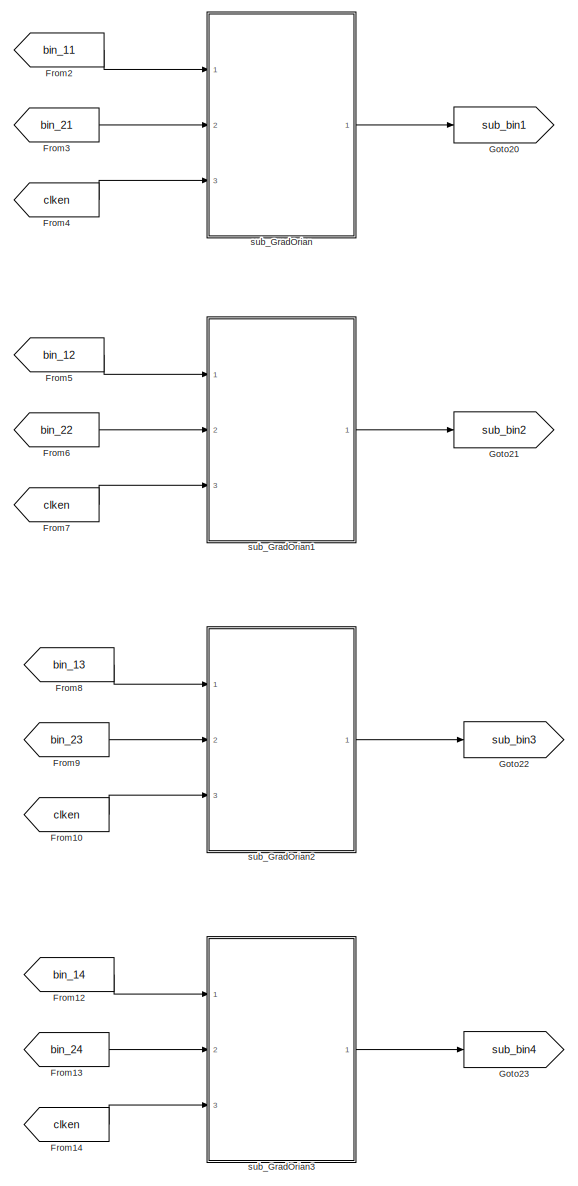
[diagram: compare_descriptor/get_distance - part 3/4, center side, full height]
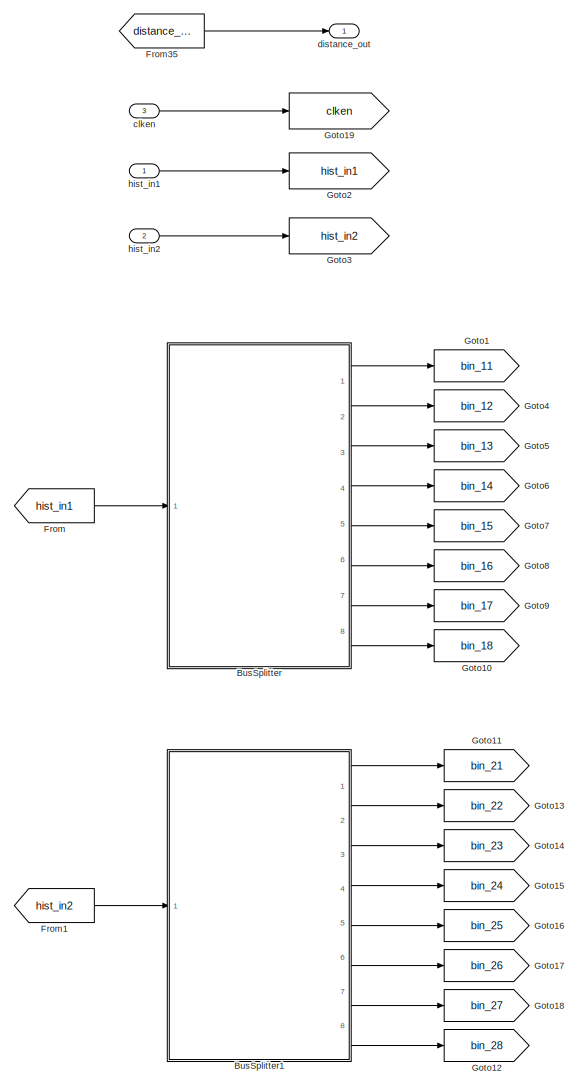
[diagram: compare_descriptor/get_distance - part 4/4, left side, full height]
BLOCK [SubSystem] compare_descriptor/get_distance
  Ports = [3, 1]
  RequestExecContextInheritance = off
BLOCK [SubSystem] compare_descriptor/get_distance/BusSplitter
  Ports = [1, 8]
  RequestExecContextInheritance = off
BLOCK [Reference] compare_descriptor/get_distance/BusSplitter/AltBus  REF=allblocks_alteradspbuilder2/AltBus
  BusType = Unsigned Integer
  Ports = [1, 1]
  SourceBlock = allblocks_alteradspbuilder2/AltBus
  SourceType = AltBus AlteraBlockset
  bwl = 112
  bwr = 0
  floatingPointInput = on
  floatingPointOutput = on
  logFile = <userpath>\Desktop\sift_fpga\Octave_2\tb_test_final_sift\test%5Ffinal%5Fsift_sift%5Foctave1_matching_compare%5Fdescriptor_get%5Fdistance_BusSplitter_AltBus.fixedpointlog
  logOutputs = off
  saturate = off
BLOCK [Reference] compare_descriptor/get_distance/BusSplitter/AltBus1  REF=allblocks_alteradspbuilder2/AltBus
  BusType = Unsigned Integer
  Ports = [1, 1]
  SourceBlock = allblocks_alteradspbuilder2/AltBus
  SourceType = AltBus AlteraBlockset
  bwl = 96
  bwr = 0
  floatingPointInput = on
  floatingPointOutput = on
  logFile = <userpath>\Desktop\sift_fpga\Octave_2\tb_test_final_sift\test%5Ffinal%5Fsift_sift%5Foctave1_matching_compare%5Fdescriptor_get%5Fdistance_BusSplitter_AltBus1.fixedpointlog
  logOutputs = off
  saturate = off
BLOCK [Reference] compare_descriptor/get_distance/BusSplitter/AltBus10  REF=allblocks_alteradspbuilder2/AltBus
  BusType = Unsigned Integer
  Ports = [1, 1]
  SourceBlock = allblocks_alteradspbuilder2/AltBus
  SourceType = AltBus AlteraBlockset
  bwl = 16
  bwr = 0
  floatingPointInput = on
  floatingPointOutput = on
  logFile = <userpath>\Desktop\sift_fpga\Octave_2\tb_test_final_sift\test%5Ffinal%5Fsift_sift%5Foctave1_matching_compare%5Fdescriptor_get%5Fdistance_BusSplitter_AltBus10.fixedpointlog
  logOutputs = off
  saturate = off
BLOCK [Reference] compare_descriptor/get_distance/BusSplitter/AltBus11  REF=allblocks_alteradspbuilder2/AltBus
  BusType = Unsigned Integer
  Ports = [1, 1]
  SourceBlock = allblocks_alteradspbuilder2/AltBus
  SourceType = AltBus AlteraBlockset
  bwl = 16
  bwr = 0
  floatingPointInput = on
  floatingPointOutput = on
  logFile = <userpath>\Desktop\sift_fpga\Octave_2\tb_test_final_sift\test%5Ffinal%5Fsift_sift%5Foctave1_matching_compare%5Fdescriptor_get%5Fdistance_BusSplitter_AltBus11.fixedpointlog
  logOutputs = off
  saturate = off
BLOCK [Reference] compare_descriptor/get_distance/BusSplitter/AltBus12  REF=allblocks_alteradspbuilder2/AltBus
  BusType = Unsigned Integer
  Ports = [1, 1]
  SourceBlock = allblocks_alteradspbuilder2/AltBus
  SourceType = AltBus AlteraBlockset
  bwl = 16
  bwr = 0
  floatingPointInput = on
  floatingPointOutput = on
  logFile = <userpath>\Desktop\sift_fpga\Octave_2\tb_test_final_sift\test%5Ffinal%5Fsift_sift%5Foctave1_matching_compare%5Fdescriptor_get%5Fdistance_BusSplitter_AltBus12.fixedpointlog
  logOutputs = off
  saturate = off
BLOCK [Reference] compare_descriptor/get_distance/BusSplitter/AltBus13  REF=allblocks_alteradspbuilder2/AltBus
  BusType = Unsigned Integer
  Ports = [1, 1]
  SourceBlock = allblocks_alteradspbuilder2/AltBus
  SourceType = AltBus AlteraBlockset
  bwl = 16
  bwr = 0
  floatingPointInput = on
  floatingPointOutput = on
  logFile = <userpath>\Desktop\sift_fpga\Octave_2\tb_test_final_sift\test%5Ffinal%5Fsift_sift%5Foctave1_matching_compare%5Fdescriptor_get%5Fdistance_BusSplitter_AltBus13.fixedpointlog
  logOutputs = off
  saturate = off
BLOCK [Reference] compare_descriptor/get_distance/BusSplitter/AltBus2  REF=allblocks_alteradspbuilder2/AltBus
  BusType = Unsigned Integer
  Ports = [1, 1]
  SourceBlock = allblocks_alteradspbuilder2/AltBus
  SourceType = AltBus AlteraBlockset
  bwl = 80
  bwr = 0
  floatingPointInput = on
  floatingPointOutput = on
  logFile = <userpath>\Desktop\sift_fpga\Octave_2\tb_test_final_sift\test%5Ffinal%5Fsift_sift%5Foctave1_matching_compare%5Fdescriptor_get%5Fdistance_BusSplitter_AltBus2.fixedpointlog
  logOutputs = off
  saturate = off
BLOCK [Reference] compare_descriptor/get_distance/BusSplitter/AltBus3  REF=allblocks_alteradspbuilder2/AltBus
  BusType = Unsigned Integer
  Ports = [1, 1]
  SourceBlock = allblocks_alteradspbuilder2/AltBus
  SourceType = AltBus AlteraBlockset
  bwl = 64
  bwr = 0
  floatingPointInput = on
  floatingPointOutput = on
  logFile = <userpath>\Desktop\sift_fpga\Octave_2\tb_test_final_sift\test%5Ffinal%5Fsift_sift%5Foctave1_matching_compare%5Fdescriptor_get%5Fdistance_BusSplitter_AltBus3.fixedpointlog
  logOutputs = off
  saturate = off
BLOCK [Reference] compare_descriptor/get_distance/BusSplitter/AltBus4  REF=allblocks_alteradspbuilder2/AltBus
  BusType = Unsigned Integer
  Ports = [1, 1]
  SourceBlock = allblocks_alteradspbuilder2/AltBus
  SourceType = AltBus AlteraBlockset
  bwl = 48
  bwr = 0
  floatingPointInput = on
  floatingPointOutput = on
  logFile = <userpath>\Desktop\sift_fpga\Octave_2\tb_test_final_sift\test%5Ffinal%5Fsift_sift%5Foctave1_matching_compare%5Fdescriptor_get%5Fdistance_BusSplitter_AltBus4.fixedpointlog
  logOutputs = off
  saturate = off
BLOCK [Reference] compare_descriptor/get_distance/BusSplitter/AltBus5  REF=allblocks_alteradspbuilder2/AltBus
  BusType = Unsigned Integer
  Ports = [1, 1]
  SourceBlock = allblocks_alteradspbuilder2/AltBus
  SourceType = AltBus AlteraBlockset
  bwl = 32
  bwr = 0
  floatingPointInput = on
  floatingPointOutput = on
  logFile = <userpath>\Desktop\sift_fpga\Octave_2\tb_test_final_sift\test%5Ffinal%5Fsift_sift%5Foctave1_matching_compare%5Fdescriptor_get%5Fdistance_BusSplitter_AltBus5.fixedpointlog
  logOutputs = off
  saturate = off
BLOCK [Reference] compare_descriptor/get_distance/BusSplitter/AltBus6  REF=allblocks_alteradspbuilder2/AltBus
  BusType = Unsigned Integer
  Ports = [1, 1]
  SourceBlock = allblocks_alteradspbuilder2/AltBus
  SourceType = AltBus AlteraBlockset
  bwl = 16
  bwr = 0
  floatingPointInput = on
  floatingPointOutput = on
  logFile = <userpath>\Desktop\sift_fpga\Octave_2\tb_test_final_sift\test%5Ffinal%5Fsift_sift%5Foctave1_matching_compare%5Fdescriptor_get%5Fdistance_BusSplitter_AltBus6.fixedpointlog
  logOutputs = off
  saturate = off
BLOCK [Reference] compare_descriptor/get_distance/BusSplitter/AltBus7  REF=allblocks_alteradspbuilder2/AltBus
  BusType = Unsigned Integer
  Ports = [1, 1]
  SourceBlock = allblocks_alteradspbuilder2/AltBus
  SourceType = AltBus AlteraBlockset
  bwl = 16
  bwr = 0
  floatingPointInput = on
  floatingPointOutput = on
  logFile = <userpath>\Desktop\sift_fpga\Octave_2\tb_test_final_sift\test%5Ffinal%5Fsift_sift%5Foctave1_matching_compare%5Fdescriptor_get%5Fdistance_BusSplitter_AltBus7.fixedpointlog
  logOutputs = off
  saturate = off
BLOCK [Reference] compare_descriptor/get_distance/BusSplitter/AltBus8  REF=allblocks_alteradspbuilder2/AltBus
  BusType = Unsigned Integer
  Ports = [1, 1]
  SourceBlock = allblocks_alteradspbuilder2/AltBus
  SourceType = AltBus AlteraBlockset
  bwl = 16
  bwr = 0
  floatingPointInput = on
  floatingPointOutput = on
  logFile = <userpath>\Desktop\sift_fpga\Octave_2\tb_test_final_sift\test%5Ffinal%5Fsift_sift%5Foctave1_matching_compare%5Fdescriptor_get%5Fdistance_BusSplitter_AltBus8.fixedpointlog
  logOutputs = off
  saturate = off
BLOCK [Reference] compare_descriptor/get_distance/BusSplitter/AltBus9  REF=allblocks_alteradspbuilder2/AltBus
  BusType = Unsigned Integer
  Ports = [1, 1]
  SourceBlock = allblocks_alteradspbuilder2/AltBus
  SourceType = AltBus AlteraBlockset
  bwl = 16
  bwr = 0
  floatingPointInput = on
  floatingPointOutput = on
  logFile = <userpath>\Desktop\sift_fpga\Octave_2\tb_test_final_sift\test%5Ffinal%5Fsift_sift%5Foctave1_matching_compare%5Fdescriptor_get%5Fdistance_BusSplitter_AltBus9.fixedpointlog
  logOutputs = off
  saturate = off
BLOCK [Reference] compare_descriptor/get_distance/BusSplitter/Logical Bus Operator  REF=allblocks_alteradspbuilder2/Logical Bus Operator
  BusType = Unsigned Integer
  LogicalOp_text = Shift Right
  Ports = [1, 1]
  SourceBlock = allblocks_alteradspbuilder2/Logical Bus Operator
  SourceType = Logical Bus Operator AlteraBlockset
  bwl = 128
  bwr = 0
  force_sign_ext = off
  mask_value_num = -5
  pipeline_display = 0
  shift_amount = 112
BLOCK [Reference] compare_descriptor/get_distance/BusSplitter/Logical Bus Operator1  REF=allblocks_alteradspbuilder2/Logical Bus Operator
  BusType = Unsigned Integer
  LogicalOp_text = Shift Right
  Ports = [1, 1]
  SourceBlock = allblocks_alteradspbuilder2/Logical Bus Operator
  SourceType = Logical Bus Operator AlteraBlockset
  bwl = 112
  bwr = 0
  force_sign_ext = off
  mask_value_num = -5
  pipeline_display = 0
  shift_amount = 96
BLOCK [Reference] compare_descriptor/get_distance/BusSplitter/Logical Bus Operator2  REF=allblocks_alteradspbuilder2/Logical Bus Operator
  BusType = Unsigned Integer
  LogicalOp_text = Shift Right
  Ports = [1, 1]
  SourceBlock = allblocks_alteradspbuilder2/Logical Bus Operator
  SourceType = Logical Bus Operator AlteraBlockset
  bwl = 96
  bwr = 0
  force_sign_ext = off
  mask_value_num = -5
  pipeline_display = 0
  shift_amount = 80
BLOCK [Reference] compare_descriptor/get_distance/BusSplitter/Logical Bus Operator3  REF=allblocks_alteradspbuilder2/Logical Bus Operator
  BusType = Unsigned Integer
  LogicalOp_text = Shift Right
  Ports = [1, 1]
  SourceBlock = allblocks_alteradspbuilder2/Logical Bus Operator
  SourceType = Logical Bus Operator AlteraBlockset
  bwl = 80
  bwr = 0
  force_sign_ext = off
  mask_value_num = -5
  pipeline_display = 0
  shift_amount = 64
BLOCK [Reference] compare_descriptor/get_distance/BusSplitter/Logical Bus Operator4  REF=allblocks_alteradspbuilder2/Logical Bus Operator
  BusType = Unsigned Integer
  LogicalOp_text = Shift Right
  Ports = [1, 1]
  SourceBlock = allblocks_alteradspbuilder2/Logical Bus Operator
  SourceType = Logical Bus Operator AlteraBlockset
  bwl = 64
  bwr = 0
  force_sign_ext = off
  mask_value_num = -5
  pipeline_display = 0
  shift_amount = 48
BLOCK [Reference] compare_descriptor/get_distance/BusSplitter/Logical Bus Operator5  REF=allblocks_alteradspbuilder2/Logical Bus Operator
  BusType = Unsigned Integer
  LogicalOp_text = Shift Right
  Ports = [1, 1]
  SourceBlock = allblocks_alteradspbuilder2/Logical Bus Operator
  SourceType = Logical Bus Operator AlteraBlockset
  bwl = 48
  bwr = 0
  force_sign_ext = off
  mask_value_num = -5
  pipeline_display = 0
  shift_amount = 32
BLOCK [Reference] compare_descriptor/get_distance/BusSplitter/Logical Bus Operator6  REF=allblocks_alteradspbuilder2/Logical Bus Operator
  BusType = Unsigned Integer
  LogicalOp_text = Shift Right
  Ports = [1, 1]
  SourceBlock = allblocks_alteradspbuilder2/Logical Bus Operator
  SourceType = Logical Bus Operator AlteraBlockset
  bwl = 32
  bwr = 0
  force_sign_ext = off
  mask_value_num = -5
  pipeline_display = 0
  shift_amount = 16
BLOCK [Outport] compare_descriptor/get_distance/BusSplitter/bin1
  IconDisplay = Port number
BLOCK [Outport] compare_descriptor/get_distance/BusSplitter/bin2
  IconDisplay = Port number
  Port = 2
BLOCK [Outport] compare_descriptor/get_distance/BusSplitter/bin3
  IconDisplay = Port number
  Port = 3
BLOCK [Outport] compare_descriptor/get_distance/BusSplitter/bin4
  IconDisplay = Port number
  Port = 4
BLOCK [Outport] compare_descriptor/get_distance/BusSplitter/bin5
  IconDisplay = Port number
  Port = 5
BLOCK [Outport] compare_descriptor/get_distance/BusSplitter/bin6
  IconDisplay = Port number
  Port = 6
BLOCK [Outport] compare_descriptor/get_distance/BusSplitter/bin7
  IconDisplay = Port number
  Port = 7
BLOCK [Outport] compare_descriptor/get_distance/BusSplitter/bin8
  IconDisplay = Port number
  Port = 8
BLOCK [Inport] compare_descriptor/get_distance/BusSplitter/data_in
  IconDisplay = Port number
BLOCK [SubSystem] compare_descriptor/get_distance/BusSplitter1
  Ports = [1, 8]
  RequestExecContextInheritance = off
BLOCK [Reference] compare_descriptor/get_distance/BusSplitter1/AltBus  REF=allblocks_alteradspbuilder2/AltBus
  BusType = Unsigned Integer
  Ports = [1, 1]
  SourceBlock = allblocks_alteradspbuilder2/AltBus
  SourceType = AltBus AlteraBlockset
  bwl = 112
  bwr = 0
  floatingPointInput = on
  floatingPointOutput = on
  logFile = <userpath>\Desktop\sift_fpga\Octave_2\tb_test_final_sift\test%5Ffinal%5Fsift_sift%5Foctave1_matching_compare%5Fdescriptor_get%5Fdistance_BusSplitter1_AltBus.fixedpointlog
  logOutputs = off
  saturate = off
BLOCK [Reference] compare_descriptor/get_distance/BusSplitter1/AltBus1  REF=allblocks_alteradspbuilder2/AltBus
  BusType = Unsigned Integer
  Ports = [1, 1]
  SourceBlock = allblocks_alteradspbuilder2/AltBus
  SourceType = AltBus AlteraBlockset
  bwl = 96
  bwr = 0
  floatingPointInput = on
  floatingPointOutput = on
  logFile = <userpath>\Desktop\sift_fpga\Octave_2\tb_test_final_sift\test%5Ffinal%5Fsift_sift%5Foctave1_matching_compare%5Fdescriptor_get%5Fdistance_BusSplitter1_AltBus1.fixedpointlog
  logOutputs = off
  saturate = off
BLOCK [Reference] compare_descriptor/get_distance/BusSplitter1/AltBus10  REF=allblocks_alteradspbuilder2/AltBus
  BusType = Unsigned Integer
  Ports = [1, 1]
  SourceBlock = allblocks_alteradspbuilder2/AltBus
  SourceType = AltBus AlteraBlockset
  bwl = 16
  bwr = 0
  floatingPointInput = on
  floatingPointOutput = on
  logFile = <userpath>\Desktop\sift_fpga\Octave_2\tb_test_final_sift\test%5Ffinal%5Fsift_sift%5Foctave1_matching_compare%5Fdescriptor_get%5Fdistance_BusSplitter1_AltBus10.fixedpointlog
  logOutputs = off
  saturate = off
BLOCK [Reference] compare_descriptor/get_distance/BusSplitter1/AltBus11  REF=allblocks_alteradspbuilder2/AltBus
  BusType = Unsigned Integer
  Ports = [1, 1]
  SourceBlock = allblocks_alteradspbuilder2/AltBus
  SourceType = AltBus AlteraBlockset
  bwl = 16
  bwr = 0
  floatingPointInput = on
  floatingPointOutput = on
  logFile = <userpath>\Desktop\sift_fpga\Octave_2\tb_test_final_sift\test%5Ffinal%5Fsift_sift%5Foctave1_matching_compare%5Fdescriptor_get%5Fdistance_BusSplitter1_AltBus11.fixedpointlog
  logOutputs = off
  saturate = off
BLOCK [Reference] compare_descriptor/get_distance/BusSplitter1/AltBus12  REF=allblocks_alteradspbuilder2/AltBus
  BusType = Unsigned Integer
  Ports = [1, 1]
  SourceBlock = allblocks_alteradspbuilder2/AltBus
  SourceType = AltBus AlteraBlockset
  bwl = 16
  bwr = 0
  floatingPointInput = on
  floatingPointOutput = on
  logFile = <userpath>\Desktop\sift_fpga\Octave_2\tb_test_final_sift\test%5Ffinal%5Fsift_sift%5Foctave1_matching_compare%5Fdescriptor_get%5Fdistance_BusSplitter1_AltBus12.fixedpointlog
  logOutputs = off
  saturate = off
BLOCK [Reference] compare_descriptor/get_distance/BusSplitter1/AltBus13  REF=allblocks_alteradspbuilder2/AltBus
  BusType = Unsigned Integer
  Ports = [1, 1]
  SourceBlock = allblocks_alteradspbuilder2/AltBus
  SourceType = AltBus AlteraBlockset
  bwl = 16
  bwr = 0
  floatingPointInput = on
  floatingPointOutput = on
  logFile = <userpath>\Desktop\sift_fpga\Octave_2\tb_test_final_sift\test%5Ffinal%5Fsift_sift%5Foctave1_matching_compare%5Fdescriptor_get%5Fdistance_BusSplitter1_AltBus13.fixedpointlog
  logOutputs = off
  saturate = off
BLOCK [Reference] compare_descriptor/get_distance/BusSplitter1/AltBus2  REF=allblocks_alteradspbuilder2/AltBus
  BusType = Unsigned Integer
  Ports = [1, 1]
  SourceBlock = allblocks_alteradspbuilder2/AltBus
  SourceType = AltBus AlteraBlockset
  bwl = 80
  bwr = 0
  floatingPointInput = on
  floatingPointOutput = on
  logFile = <userpath>\Desktop\sift_fpga\Octave_2\tb_test_final_sift\test%5Ffinal%5Fsift_sift%5Foctave1_matching_compare%5Fdescriptor_get%5Fdistance_BusSplitter1_AltBus2.fixedpointlog
  logOutputs = off
  saturate = off
BLOCK [Reference] compare_descriptor/get_distance/BusSplitter1/AltBus3  REF=allblocks_alteradspbuilder2/AltBus
  BusType = Unsigned Integer
  Ports = [1, 1]
  SourceBlock = allblocks_alteradspbuilder2/AltBus
  SourceType = AltBus AlteraBlockset
  bwl = 64
  bwr = 0
  floatingPointInput = on
  floatingPointOutput = on
  logFile = <userpath>\Desktop\sift_fpga\Octave_2\tb_test_final_sift\test%5Ffinal%5Fsift_sift%5Foctave1_matching_compare%5Fdescriptor_get%5Fdistance_BusSplitter1_AltBus3.fixedpointlog
  logOutputs = off
  saturate = off
BLOCK [Reference] compare_descriptor/get_distance/BusSplitter1/AltBus4  REF=allblocks_alteradspbuilder2/AltBus
  BusType = Unsigned Integer
  Ports = [1, 1]
  SourceBlock = allblocks_alteradspbuilder2/AltBus
  SourceType = AltBus AlteraBlockset
  bwl = 48
  bwr = 0
  floatingPointInput = on
  floatingPointOutput = on
  logFile = <userpath>\Desktop\sift_fpga\Octave_2\tb_test_final_sift\test%5Ffinal%5Fsift_sift%5Foctave1_matching_compare%5Fdescriptor_get%5Fdistance_BusSplitter1_AltBus4.fixedpointlog
  logOutputs = off
  saturate = off
BLOCK [Reference] compare_descriptor/get_distance/BusSplitter1/AltBus5  REF=allblocks_alteradspbuilder2/AltBus
  BusType = Unsigned Integer
  Ports = [1, 1]
  SourceBlock = allblocks_alteradspbuilder2/AltBus
  SourceType = AltBus AlteraBlockset
  bwl = 32
  bwr = 0
  floatingPointInput = on
  floatingPointOutput = on
  logFile = <userpath>\Desktop\sift_fpga\Octave_2\tb_test_final_sift\test%5Ffinal%5Fsift_sift%5Foctave1_matching_compare%5Fdescriptor_get%5Fdistance_BusSplitter1_AltBus5.fixedpointlog
  logOutputs = off
  saturate = off
BLOCK [Reference] compare_descriptor/get_distance/BusSplitter1/AltBus6  REF=allblocks_alteradspbuilder2/AltBus
  BusType = Unsigned Integer
  Ports = [1, 1]
  SourceBlock = allblocks_alteradspbuilder2/AltBus
  SourceType = AltBus AlteraBlockset
  bwl = 16
  bwr = 0
  floatingPointInput = on
  floatingPointOutput = on
  logFile = <userpath>\Desktop\sift_fpga\Octave_2\tb_test_final_sift\test%5Ffinal%5Fsift_sift%5Foctave1_matching_compare%5Fdescriptor_get%5Fdistance_BusSplitter1_AltBus6.fixedpointlog
  logOutputs = off
  saturate = off
BLOCK [Reference] compare_descriptor/get_distance/BusSplitter1/AltBus7  REF=allblocks_alteradspbuilder2/AltBus
  BusType = Unsigned Integer
  Ports = [1, 1]
  SourceBlock = allblocks_alteradspbuilder2/AltBus
  SourceType = AltBus AlteraBlockset
  bwl = 16
  bwr = 0
  floatingPointInput = on
  floatingPointOutput = on
  logFile = <userpath>\Desktop\sift_fpga\Octave_2\tb_test_final_sift\test%5Ffinal%5Fsift_sift%5Foctave1_matching_compare%5Fdescriptor_get%5Fdistance_BusSplitter1_AltBus7.fixedpointlog
  logOutputs = off
  saturate = off
BLOCK [Reference] compare_descriptor/get_distance/BusSplitter1/AltBus8  REF=allblocks_alteradspbuilder2/AltBus
  BusType = Unsigned Integer
  Ports = [1, 1]
  SourceBlock = allblocks_alteradspbuilder2/AltBus
  SourceType = AltBus AlteraBlockset
  bwl = 16
  bwr = 0
  floatingPointInput = on
  floatingPointOutput = on
  logFile = <userpath>\Desktop\sift_fpga\Octave_2\tb_test_final_sift\test%5Ffinal%5Fsift_sift%5Foctave1_matching_compare%5Fdescriptor_get%5Fdistance_BusSplitter1_AltBus8.fixedpointlog
  logOutputs = off
  saturate = off
BLOCK [Reference] compare_descriptor/get_distance/BusSplitter1/AltBus9  REF=allblocks_alteradspbuilder2/AltBus
  BusType = Unsigned Integer
  Ports = [1, 1]
  SourceBlock = allblocks_alteradspbuilder2/AltBus
  SourceType = AltBus AlteraBlockset
  bwl = 16
  bwr = 0
  floatingPointInput = on
  floatingPointOutput = on
  logFile = <userpath>\Desktop\sift_fpga\Octave_2\tb_test_final_sift\test%5Ffinal%5Fsift_sift%5Foctave1_matching_compare%5Fdescriptor_get%5Fdistance_BusSplitter1_AltBus9.fixedpointlog
  logOutputs = off
  saturate = off
BLOCK [Reference] compare_descriptor/get_distance/BusSplitter1/Logical Bus Operator  REF=allblocks_alteradspbuilder2/Logical Bus Operator
  BusType = Unsigned Integer
  LogicalOp_text = Shift Right
  Ports = [1, 1]
  SourceBlock = allblocks_alteradspbuilder2/Logical Bus Operator
  SourceType = Logical Bus Operator AlteraBlockset
  bwl = 128
  bwr = 0
  force_sign_ext = off
  mask_value_num = -5
  pipeline_display = 0
  shift_amount = 112
BLOCK [Reference] compare_descriptor/get_distance/BusSplitter1/Logical Bus Operator1  REF=allblocks_alteradspbuilder2/Logical Bus Operator
  BusType = Unsigned Integer
  LogicalOp_text = Shift Right
  Ports = [1, 1]
  SourceBlock = allblocks_alteradspbuilder2/Logical Bus Operator
  SourceType = Logical Bus Operator AlteraBlockset
  bwl = 112
  bwr = 0
  force_sign_ext = off
  mask_value_num = -5
  pipeline_display = 0
  shift_amount = 96
BLOCK [Reference] compare_descriptor/get_distance/BusSplitter1/Logical Bus Operator2  REF=allblocks_alteradspbuilder2/Logical Bus Operator
  BusType = Unsigned Integer
  LogicalOp_text = Shift Right
  Ports = [1, 1]
  SourceBlock = allblocks_alteradspbuilder2/Logical Bus Operator
  SourceType = Logical Bus Operator AlteraBlockset
  bwl = 96
  bwr = 0
  force_sign_ext = off
  mask_value_num = -5
  pipeline_display = 0
  shift_amount = 80
BLOCK [Reference] compare_descriptor/get_distance/BusSplitter1/Logical Bus Operator3  REF=allblocks_alteradspbuilder2/Logical Bus Operator
  BusType = Unsigned Integer
  LogicalOp_text = Shift Right
  Ports = [1, 1]
  SourceBlock = allblocks_alteradspbuilder2/Logical Bus Operator
  SourceType = Logical Bus Operator AlteraBlockset
  bwl = 80
  bwr = 0
  force_sign_ext = off
  mask_value_num = -5
  pipeline_display = 0
  shift_amount = 64
BLOCK [Reference] compare_descriptor/get_distance/BusSplitter1/Logical Bus Operator4  REF=allblocks_alteradspbuilder2/Logical Bus Operator
  BusType = Unsigned Integer
  LogicalOp_text = Shift Right
  Ports = [1, 1]
  SourceBlock = allblocks_alteradspbuilder2/Logical Bus Operator
  SourceType = Logical Bus Operator AlteraBlockset
  bwl = 64
  bwr = 0
  force_sign_ext = off
  mask_value_num = -5
  pipeline_display = 0
  shift_amount = 48
BLOCK [Reference] compare_descriptor/get_distance/BusSplitter1/Logical Bus Operator5  REF=allblocks_alteradspbuilder2/Logical Bus Operator
  BusType = Unsigned Integer
  LogicalOp_text = Shift Right
  Ports = [1, 1]
  SourceBlock = allblocks_alteradspbuilder2/Logical Bus Operator
  SourceType = Logical Bus Operator AlteraBlockset
  bwl = 48
  bwr = 0
  force_sign_ext = off
  mask_value_num = -5
  pipeline_display = 0
  shift_amount = 32
BLOCK [Reference] compare_descriptor/get_distance/BusSplitter1/Logical Bus Operator6  REF=allblocks_alteradspbuilder2/Logical Bus Operator
  BusType = Unsigned Integer
  LogicalOp_text = Shift Right
  Ports = [1, 1]
  SourceBlock = allblocks_alteradspbuilder2/Logical Bus Operator
  SourceType = Logical Bus Operator AlteraBlockset
  bwl = 32
  bwr = 0
  force_sign_ext = off
  mask_value_num = -5
  pipeline_display = 0
  shift_amount = 16
BLOCK [Outport] compare_descriptor/get_distance/BusSplitter1/bin1
  IconDisplay = Port number
BLOCK [Outport] compare_descriptor/get_distance/BusSplitter1/bin2
  IconDisplay = Port number
  Port = 2
BLOCK [Outport] compare_descriptor/get_distance/BusSplitter1/bin3
  IconDisplay = Port number
  Port = 3
BLOCK [Outport] compare_descriptor/get_distance/BusSplitter1/bin4
  IconDisplay = Port number
  Port = 4
BLOCK [Outport] compare_descriptor/get_distance/BusSplitter1/bin5
  IconDisplay = Port number
  Port = 5
BLOCK [Outport] compare_descriptor/get_distance/BusSplitter1/bin6
  IconDisplay = Port number
  Port = 6
BLOCK [Outport] compare_descriptor/get_distance/BusSplitter1/bin7
  IconDisplay = Port number
  Port = 7
BLOCK [Outport] compare_descriptor/get_distance/BusSplitter1/bin8
  IconDisplay = Port number
  Port = 8
BLOCK [Inport] compare_descriptor/get_distance/BusSplitter1/data_in
  IconDisplay = Port number
BLOCK [From] compare_descriptor/get_distance/From
  GotoTag = hist_in1
BLOCK [From] compare_descriptor/get_distance/From1
  GotoTag = hist_in2
BLOCK [From] compare_descriptor/get_distance/From10
  GotoTag = clken
BLOCK [From] compare_descriptor/get_distance/From11
  GotoTag = clken
BLOCK [From] compare_descriptor/get_distance/From12
  GotoTag = bin_14
BLOCK [From] compare_descriptor/get_distance/From13
  GotoTag = bin_24
BLOCK [From] compare_descriptor/get_distance/From14
  GotoTag = clken
BLOCK [From] compare_descriptor/get_distance/From15
  GotoTag = bin_15
BLOCK [From] compare_descriptor/get_distance/From16
  GotoTag = bin_25
BLOCK [From] compare_descriptor/get_distance/From17
  GotoTag = clken
BLOCK [From] compare_descriptor/get_distance/From18
  GotoTag = bin_16
BLOCK [From] compare_descriptor/get_distance/From19
  GotoTag = bin_26
BLOCK [From] compare_descriptor/get_distance/From2
  GotoTag = bin_11
BLOCK [From] compare_descriptor/get_distance/From20
  GotoTag = clken
BLOCK [From] compare_descriptor/get_distance/From21
  GotoTag = bin_17
BLOCK [From] compare_descriptor/get_distance/From22
  GotoTag = bin_27
BLOCK [From] compare_descriptor/get_distance/From23
  GotoTag = clken
BLOCK [From] compare_descriptor/get_distance/From24
  GotoTag = bin_18
BLOCK [From] compare_descriptor/get_distance/From25
  GotoTag = bin_28
BLOCK [From] compare_descriptor/get_distance/From26
  GotoTag = sub_bin1
BLOCK [From] compare_descriptor/get_distance/From27
  GotoTag = sub_bin2
BLOCK [From] compare_descriptor/get_distance/From28
  GotoTag = sub_bin3
BLOCK [From] compare_descriptor/get_distance/From29
  GotoTag = sub_bin4
BLOCK [From] compare_descriptor/get_distance/From3
  GotoTag = bin_21
BLOCK [From] compare_descriptor/get_distance/From30
  GotoTag = sub_bin5
BLOCK [From] compare_descriptor/get_distance/From31
  GotoTag = sub_bin6
BLOCK [From] compare_descriptor/get_distance/From32
  GotoTag = sub_bin7
BLOCK [From] compare_descriptor/get_distance/From33
  GotoTag = sub_bin8
BLOCK [From] compare_descriptor/get_distance/From34
  GotoTag = clken
BLOCK [From] compare_descriptor/get_distance/From35
  GotoTag = distance_out
BLOCK [From] compare_descriptor/get_distance/From4
  GotoTag = clken
BLOCK [From] compare_descriptor/get_distance/From5
  GotoTag = bin_12
BLOCK [From] compare_descriptor/get_distance/From6
  GotoTag = bin_22
BLOCK [From] compare_descriptor/get_distance/From7
  GotoTag = clken
BLOCK [From] compare_descriptor/get_distance/From8
  GotoTag = bin_13
BLOCK [From] compare_descriptor/get_distance/From9
  GotoTag = bin_23
BLOCK [Goto] compare_descriptor/get_distance/Goto1
  GotoTag = bin_11
BLOCK [Goto] compare_descriptor/get_distance/Goto10
  GotoTag = bin_18
BLOCK [Goto] compare_descriptor/get_distance/Goto11
  GotoTag = bin_21
BLOCK [Goto] compare_descriptor/get_distance/Goto12
  GotoTag = bin_28
BLOCK [Goto] compare_descriptor/get_distance/Goto13
  GotoTag = bin_22
BLOCK [Goto] compare_descriptor/get_distance/Goto14
  GotoTag = bin_23
BLOCK [Goto] compare_descriptor/get_distance/Goto15
  GotoTag = bin_24
BLOCK [Goto] compare_descriptor/get_distance/Goto16
  GotoTag = bin_25
BLOCK [Goto] compare_descriptor/get_distance/Goto17
  GotoTag = bin_26
BLOCK [Goto] compare_descriptor/get_distance/Goto18
  GotoTag = bin_27
BLOCK [Goto] compare_descriptor/get_distance/Goto19
  GotoTag = clken
BLOCK [Goto] compare_descriptor/get_distance/Goto2
  GotoTag = hist_in1
BLOCK [Goto] compare_descriptor/get_distance/Goto20
  GotoTag = sub_bin1
BLOCK [Goto] compare_descriptor/get_distance/Goto21
  GotoTag = sub_bin2
BLOCK [Goto] compare_descriptor/get_distance/Goto22
  GotoTag = sub_bin3
BLOCK [Goto] compare_descriptor/get_distance/Goto23
  GotoTag = sub_bin4
BLOCK [Goto] compare_descriptor/get_distance/Goto24
  GotoTag = sub_bin5
BLOCK [Goto] compare_descriptor/get_distance/Goto25
  GotoTag = sub_bin6
BLOCK [Goto] compare_descriptor/get_distance/Goto26
  GotoTag = sub_bin7
BLOCK [Goto] compare_descriptor/get_distance/Goto27
  GotoTag = sub_bin8
BLOCK [Goto] compare_descriptor/get_distance/Goto28
  GotoTag = distance_out
BLOCK [Goto] compare_descriptor/get_distance/Goto3
  GotoTag = hist_in2
BLOCK [Goto] compare_descriptor/get_distance/Goto4
  GotoTag = bin_12
BLOCK [Goto] compare_descriptor/get_distance/Goto5
  GotoTag = bin_13
BLOCK [Goto] compare_descriptor/get_distance/Goto6
  GotoTag = bin_14
BLOCK [Goto] compare_descriptor/get_distance/Goto7
  GotoTag = bin_15
BLOCK [Goto] compare_descriptor/get_distance/Goto8
  GotoTag = bin_16
BLOCK [Goto] compare_descriptor/get_distance/Goto9
  GotoTag = bin_17
BLOCK [Reference] compare_descriptor/get_distance/Parallel Adder Subtractor  REF=allblocks_alteradspbuilder2/Parallel Adder Subtractor
  Ports = [9, 1]
  SourceBlock = allblocks_alteradspbuilder2/Parallel Adder Subtractor
  SourceType = ParallelAdder AlteraBlockset
  allowFloatingPointOverride = on
  direction = +
  logFile = <userpath>\Desktop\sift_fpga\Octave_2\tb_test_final_sift\test%5Ffinal%5Fsift_sift%5Foctave1_matching_compare%5Fdescriptor_get%5Fdistance_Parallel+Adder+Subtractor.fixedpointlog
  logOutputs = off
  number_of_inputs = 8
  phase_selection = 1
  pipeline_display = 3
  use_aclr = off
  use_ena = on
  use_pipeline = on
BLOCK [Inport] compare_descriptor/get_distance/clken
  IconDisplay = Port number
  Port = 3
BLOCK [Outport] compare_descriptor/get_distance/distance_out
  IconDisplay = Port number
BLOCK [Inport] compare_descriptor/get_distance/hist_in1
  IconDisplay = Port number
BLOCK [Inport] compare_descriptor/get_distance/hist_in2
  IconDisplay = Port number
  Port = 2
BLOCK [SubSystem] compare_descriptor/get_distance/sub_GradOrian
  Ports = [3, 1]
  RequestExecContextInheritance = off
BLOCK [Reference] compare_descriptor/get_distance/sub_GradOrian/Comparator3  REF=allblocks_alteradspbuilder2/Comparator
  Ports = [2, 1]
  SourceBlock = allblocks_alteradspbuilder2/Comparator
  SourceType = Comparator AlteraBlockset
  allowFloatingPointOverride = on
  direction = a > b
  logFile = <userpath>\Desktop\sift_fpga\Octave_2\tb_test_final_sift\test%5Ffinal%5Fsift_sift%5Foctave1_matching_compare%5Fdescriptor_get%5Fdistance_sub%5FGradOrian_Comparator3.fixedpointlog
  logOutputs = off
  pipeline_display = 0
BLOCK [Reference] compare_descriptor/get_distance/sub_GradOrian/Delay  REF=allblocks_alteradspbuilder2/Delay
  ClockPhase = 1
  Ports = [2, 1]
  SourceBlock = allblocks_alteradspbuilder2/Delay
  SourceType = Delay AlteraBlockset
  allowFloatingPointOverride = on
  logFile = <userpath>\Desktop\sift_fpga\Octave_2\tb_test_final_sift\test%5Ffinal%5Fsift_sift%5Foctave1_matching_compare%5Fdescriptor_get%5Fdistance_sub%5FGradOrian_Delay.fixedpointlog
  logOutputs = off
  pipeline = 1
  pipeline_display = 1
  reset_value = 1
  use_ena = on
  use_init = off
  use_sclr = off
BLOCK [From] compare_descriptor/get_distance/sub_GradOrian/From
  GotoTag = bin12
BLOCK [From] compare_descriptor/get_distance/sub_GradOrian/From1
  GotoTag = bin21
BLOCK [From] compare_descriptor/get_distance/sub_GradOrian/From2
  GotoTag = bin2
BLOCK [From] compare_descriptor/get_distance/sub_GradOrian/From23
  GotoTag = bin1
BLOCK [From] compare_descriptor/get_distance/sub_GradOrian/From24
  GotoTag = bin2
BLOCK [From] compare_descriptor/get_distance/sub_GradOrian/From27
  GotoTag = clken
BLOCK [From] compare_descriptor/get_distance/sub_GradOrian/From3
  GotoTag = bin1
BLOCK [From] compare_descriptor/get_distance/sub_GradOrian/From4
  GotoTag = clken
BLOCK [From] compare_descriptor/get_distance/sub_GradOrian/From5
  GotoTag = bin1
BLOCK [From] compare_descriptor/get_distance/sub_GradOrian/From6
  GotoTag = bin2
BLOCK [From] compare_descriptor/get_distance/sub_GradOrian/From7
  GotoTag = clken
BLOCK [Goto] compare_descriptor/get_distance/sub_GradOrian/Goto
  GotoTag = bin1
BLOCK [Goto] compare_descriptor/get_distance/sub_GradOrian/Goto1
  GotoTag = bin2
BLOCK [Goto] compare_descriptor/get_distance/sub_GradOrian/Goto2
  GotoTag = clken
BLOCK [Goto] compare_descriptor/get_distance/sub_GradOrian/Goto6
  GotoTag = bin12
BLOCK [Goto] compare_descriptor/get_distance/sub_GradOrian/Goto7
  GotoTag = bin21
BLOCK [Reference] compare_descriptor/get_distance/sub_GradOrian/Multiplexer2  REF=allblocks_alteradspbuilder2/Multiplexer
  Ports = [3, 1]
  SourceBlock = allblocks_alteradspbuilder2/Multiplexer
  SourceType = Multiplexer AlteraBlockset
  allowFloatingPointOverride = on
  logFile = <userpath>\Desktop\sift_fpga\Octave_2\tb_test_final_sift\test%5Ffinal%5Fsift_sift%5Foctave1_matching_compare%5Fdescriptor_get%5Fdistance_sub%5FGradOrian_Multiplexer2.fixedpointlog
  logOutputs = off
  numInputs = 2
  oneHot = off
  pipeline = 0
  pipeline_display = 0
  use_aclr = off
  use_ena = off
BLOCK [Reference] compare_descriptor/get_distance/sub_GradOrian/Parallel Adder Subtractor  REF=allblocks_alteradspbuilder2/Parallel Adder Subtractor
  Ports = [3, 1]
  SourceBlock = allblocks_alteradspbuilder2/Parallel Adder Subtractor
  SourceType = ParallelAdder AlteraBlockset
  allowFloatingPointOverride = on
  direction = +-
  logFile = <userpath>\Desktop\sift_fpga\Octave_2\tb_test_final_sift\test%5Ffinal%5Fsift_sift%5Foctave1_matching_compare%5Fdescriptor_get%5Fdistance_sub%5FGradOrian_Parallel+Adder+Subtractor.fixedpointlog
  logOutputs = off
  number_of_inputs = 2
  phase_selection = 1
  pipeline_display = 1
  use_aclr = off
  use_ena = on
  use_pipeline = on
BLOCK [Reference] compare_descriptor/get_distance/sub_GradOrian/Parallel Adder Subtractor1  REF=allblocks_alteradspbuilder2/Parallel Adder Subtractor
  Ports = [3, 1]
  SourceBlock = allblocks_alteradspbuilder2/Parallel Adder Subtractor
  SourceType = ParallelAdder AlteraBlockset
  allowFloatingPointOverride = on
  direction = +-
  logFile = <userpath>\Desktop\sift_fpga\Octave_2\tb_test_final_sift\test%5Ffinal%5Fsift_sift%5Foctave1_matching_compare%5Fdescriptor_get%5Fdistance_sub%5FGradOrian_Parallel+Adder+Subtractor1.fixedpointlog
  logOutputs = off
  number_of_inputs = 2
  phase_selection = 1
  pipeline_display = 1
  use_aclr = off
  use_ena = on
  use_pipeline = on
BLOCK [Inport] compare_descriptor/get_distance/sub_GradOrian/bin1
  IconDisplay = Port number
BLOCK [Inport] compare_descriptor/get_distance/sub_GradOrian/bin2
  IconDisplay = Port number
  Port = 2
BLOCK [Inport] compare_descriptor/get_distance/sub_GradOrian/clken
  IconDisplay = Port number
  Port = 3
BLOCK [Outport] compare_descriptor/get_distance/sub_GradOrian/sub_bin
  IconDisplay = Port number
BLOCK [SubSystem] compare_descriptor/get_distance/sub_GradOrian1
  Ports = [3, 1]
  RequestExecContextInheritance = off
BLOCK [Reference] compare_descriptor/get_distance/sub_GradOrian1/Comparator3  REF=allblocks_alteradspbuilder2/Comparator
  Ports = [2, 1]
  SourceBlock = allblocks_alteradspbuilder2/Comparator
  SourceType = Comparator AlteraBlockset
  allowFloatingPointOverride = on
  direction = a > b
  logFile = <userpath>\Desktop\sift_fpga\Octave_2\tb_test_final_sift\test%5Ffinal%5Fsift_sift%5Foctave1_matching_compare%5Fdescriptor_get%5Fdistance_sub%5FGradOrian1_Comparator3.fixedpointlog
  logOutputs = off
  pipeline_display = 0
BLOCK [Reference] compare_descriptor/get_distance/sub_GradOrian1/Delay  REF=allblocks_alteradspbuilder2/Delay
  ClockPhase = 1
  Ports = [2, 1]
  SourceBlock = allblocks_alteradspbuilder2/Delay
  SourceType = Delay AlteraBlockset
  allowFloatingPointOverride = on
  logFile = <userpath>\Desktop\sift_fpga\Octave_2\tb_test_final_sift\test%5Ffinal%5Fsift_sift%5Foctave1_matching_compare%5Fdescriptor_get%5Fdistance_sub%5FGradOrian1_Delay.fixedpointlog
  logOutputs = off
  pipeline = 1
  pipeline_display = 1
  reset_value = 1
  use_ena = on
  use_init = off
  use_sclr = off
BLOCK [From] compare_descriptor/get_distance/sub_GradOrian1/From
  GotoTag = bin12
BLOCK [From] compare_descriptor/get_distance/sub_GradOrian1/From1
  GotoTag = bin21
BLOCK [From] compare_descriptor/get_distance/sub_GradOrian1/From2
  GotoTag = bin2
BLOCK [From] compare_descriptor/get_distance/sub_GradOrian1/From23
  GotoTag = bin1
BLOCK [From] compare_descriptor/get_distance/sub_GradOrian1/From24
  GotoTag = bin2
BLOCK [From] compare_descriptor/get_distance/sub_GradOrian1/From27
  GotoTag = clken
BLOCK [From] compare_descriptor/get_distance/sub_GradOrian1/From3
  GotoTag = bin1
BLOCK [From] compare_descriptor/get_distance/sub_GradOrian1/From4
  GotoTag = clken
BLOCK [From] compare_descriptor/get_distance/sub_GradOrian1/From5
  GotoTag = bin1
BLOCK [From] compare_descriptor/get_distance/sub_GradOrian1/From6
  GotoTag = bin2
BLOCK [From] compare_descriptor/get_distance/sub_GradOrian1/From7
  GotoTag = clken
BLOCK [Goto] compare_descriptor/get_distance/sub_GradOrian1/Goto
  GotoTag = bin1
BLOCK [Goto] compare_descriptor/get_distance/sub_GradOrian1/Goto1
  GotoTag = bin2
BLOCK [Goto] compare_descriptor/get_distance/sub_GradOrian1/Goto2
  GotoTag = clken
BLOCK [Goto] compare_descriptor/get_distance/sub_GradOrian1/Goto6
  GotoTag = bin12
BLOCK [Goto] compare_descriptor/get_distance/sub_GradOrian1/Goto7
  GotoTag = bin21
BLOCK [Reference] compare_descriptor/get_distance/sub_GradOrian1/Multiplexer2  REF=allblocks_alteradspbuilder2/Multiplexer
  Ports = [3, 1]
  SourceBlock = allblocks_alteradspbuilder2/Multiplexer
  SourceType = Multiplexer AlteraBlockset
  allowFloatingPointOverride = on
  logFile = <userpath>\Desktop\sift_fpga\Octave_2\tb_test_final_sift\test%5Ffinal%5Fsift_sift%5Foctave1_matching_compare%5Fdescriptor_get%5Fdistance_sub%5FGradOrian1_Multiplexer2.fixedpointlog
  logOutputs = off
  numInputs = 2
  oneHot = off
  pipeline = 0
  pipeline_display = 0
  use_aclr = off
  use_ena = off
BLOCK [Reference] compare_descriptor/get_distance/sub_GradOrian1/Parallel Adder Subtractor  REF=allblocks_alteradspbuilder2/Parallel Adder Subtractor
  Ports = [3, 1]
  SourceBlock = allblocks_alteradspbuilder2/Parallel Adder Subtractor
  SourceType = ParallelAdder AlteraBlockset
  allowFloatingPointOverride = on
  direction = +-
  logFile = <userpath>\Desktop\sift_fpga\Octave_2\tb_test_final_sift\test%5Ffinal%5Fsift_sift%5Foctave1_matching_compare%5Fdescriptor_get%5Fdistance_sub%5FGradOrian1_Parallel+Adder+Subtractor.fixedpointlog
  logOutputs = off
  number_of_inputs = 2
  phase_selection = 1
  pipeline_display = 1
  use_aclr = off
  use_ena = on
  use_pipeline = on
BLOCK [Reference] compare_descriptor/get_distance/sub_GradOrian1/Parallel Adder Subtractor1  REF=allblocks_alteradspbuilder2/Parallel Adder Subtractor
  Ports = [3, 1]
  SourceBlock = allblocks_alteradspbuilder2/Parallel Adder Subtractor
  SourceType = ParallelAdder AlteraBlockset
  allowFloatingPointOverride = on
  direction = +-
  logFile = <userpath>\Desktop\sift_fpga\Octave_2\tb_test_final_sift\test%5Ffinal%5Fsift_sift%5Foctave1_matching_compare%5Fdescriptor_get%5Fdistance_sub%5FGradOrian1_Parallel+Adder+Subtractor1.fixedpointlog
  logOutputs = off
  number_of_inputs = 2
  phase_selection = 1
  pipeline_display = 1
  use_aclr = off
  use_ena = on
  use_pipeline = on
BLOCK [Inport] compare_descriptor/get_distance/sub_GradOrian1/bin1
  IconDisplay = Port number
BLOCK [Inport] compare_descriptor/get_distance/sub_GradOrian1/bin2
  IconDisplay = Port number
  Port = 2
BLOCK [Inport] compare_descriptor/get_distance/sub_GradOrian1/clken
  IconDisplay = Port number
  Port = 3
BLOCK [Outport] compare_descriptor/get_distance/sub_GradOrian1/sub_bin
  IconDisplay = Port number
BLOCK [SubSystem] compare_descriptor/get_distance/sub_GradOrian2
  Ports = [3, 1]
  RequestExecContextInheritance = off
BLOCK [Reference] compare_descriptor/get_distance/sub_GradOrian2/Comparator3  REF=allblocks_alteradspbuilder2/Comparator
  Ports = [2, 1]
  SourceBlock = allblocks_alteradspbuilder2/Comparator
  SourceType = Comparator AlteraBlockset
  allowFloatingPointOverride = on
  direction = a > b
  logFile = <userpath>\Desktop\sift_fpga\Octave_2\tb_test_final_sift\test%5Ffinal%5Fsift_sift%5Foctave1_matching_compare%5Fdescriptor_get%5Fdistance_sub%5FGradOrian2_Comparator3.fixedpointlog
  logOutputs = off
  pipeline_display = 0
BLOCK [Reference] compare_descriptor/get_distance/sub_GradOrian2/Delay  REF=allblocks_alteradspbuilder2/Delay
  ClockPhase = 1
  Ports = [2, 1]
  SourceBlock = allblocks_alteradspbuilder2/Delay
  SourceType = Delay AlteraBlockset
  allowFloatingPointOverride = on
  logFile = <userpath>\Desktop\sift_fpga\Octave_2\tb_test_final_sift\test%5Ffinal%5Fsift_sift%5Foctave1_matching_compare%5Fdescriptor_get%5Fdistance_sub%5FGradOrian2_Delay.fixedpointlog
  logOutputs = off
  pipeline = 1
  pipeline_display = 1
  reset_value = 1
  use_ena = on
  use_init = off
  use_sclr = off
BLOCK [From] compare_descriptor/get_distance/sub_GradOrian2/From
  GotoTag = bin12
BLOCK [From] compare_descriptor/get_distance/sub_GradOrian2/From1
  GotoTag = bin21
BLOCK [From] compare_descriptor/get_distance/sub_GradOrian2/From2
  GotoTag = bin2
BLOCK [From] compare_descriptor/get_distance/sub_GradOrian2/From23
  GotoTag = bin1
BLOCK [From] compare_descriptor/get_distance/sub_GradOrian2/From24
  GotoTag = bin2
BLOCK [From] compare_descriptor/get_distance/sub_GradOrian2/From27
  GotoTag = clken
BLOCK [From] compare_descriptor/get_distance/sub_GradOrian2/From3
  GotoTag = bin1
BLOCK [From] compare_descriptor/get_distance/sub_GradOrian2/From4
  GotoTag = clken
BLOCK [From] compare_descriptor/get_distance/sub_GradOrian2/From5
  GotoTag = bin1
BLOCK [From] compare_descriptor/get_distance/sub_GradOrian2/From6
  GotoTag = bin2
BLOCK [From] compare_descriptor/get_distance/sub_GradOrian2/From7
  GotoTag = clken
BLOCK [Goto] compare_descriptor/get_distance/sub_GradOrian2/Goto
  GotoTag = bin1
BLOCK [Goto] compare_descriptor/get_distance/sub_GradOrian2/Goto1
  GotoTag = bin2
BLOCK [Goto] compare_descriptor/get_distance/sub_GradOrian2/Goto2
  GotoTag = clken
BLOCK [Goto] compare_descriptor/get_distance/sub_GradOrian2/Goto6
  GotoTag = bin12
BLOCK [Goto] compare_descriptor/get_distance/sub_GradOrian2/Goto7
  GotoTag = bin21
BLOCK [Reference] compare_descriptor/get_distance/sub_GradOrian2/Multiplexer2  REF=allblocks_alteradspbuilder2/Multiplexer
  Ports = [3, 1]
  SourceBlock = allblocks_alteradspbuilder2/Multiplexer
  SourceType = Multiplexer AlteraBlockset
  allowFloatingPointOverride = on
  logFile = <userpath>\Desktop\sift_fpga\Octave_2\tb_test_final_sift\test%5Ffinal%5Fsift_sift%5Foctave1_matching_compare%5Fdescriptor_get%5Fdistance_sub%5FGradOrian2_Multiplexer2.fixedpointlog
  logOutputs = off
  numInputs = 2
  oneHot = off
  pipeline = 0
  pipeline_display = 0
  use_aclr = off
  use_ena = off
BLOCK [Reference] compare_descriptor/get_distance/sub_GradOrian2/Parallel Adder Subtractor  REF=allblocks_alteradspbuilder2/Parallel Adder Subtractor
  Ports = [3, 1]
  SourceBlock = allblocks_alteradspbuilder2/Parallel Adder Subtractor
  SourceType = ParallelAdder AlteraBlockset
  allowFloatingPointOverride = on
  direction = +-
  logFile = <userpath>\Desktop\sift_fpga\Octave_2\tb_test_final_sift\test%5Ffinal%5Fsift_sift%5Foctave1_matching_compare%5Fdescriptor_get%5Fdistance_sub%5FGradOrian2_Parallel+Adder+Subtractor.fixedpointlog
  logOutputs = off
  number_of_inputs = 2
  phase_selection = 1
  pipeline_display = 1
  use_aclr = off
  use_ena = on
  use_pipeline = on
BLOCK [Reference] compare_descriptor/get_distance/sub_GradOrian2/Parallel Adder Subtractor1  REF=allblocks_alteradspbuilder2/Parallel Adder Subtractor
  Ports = [3, 1]
  SourceBlock = allblocks_alteradspbuilder2/Parallel Adder Subtractor
  SourceType = ParallelAdder AlteraBlockset
  allowFloatingPointOverride = on
  direction = +-
  logFile = <userpath>\Desktop\sift_fpga\Octave_2\tb_test_final_sift\test%5Ffinal%5Fsift_sift%5Foctave1_matching_compare%5Fdescriptor_get%5Fdistance_sub%5FGradOrian2_Parallel+Adder+Subtractor1.fixedpointlog
  logOutputs = off
  number_of_inputs = 2
  phase_selection = 1
  pipeline_display = 1
  use_aclr = off
  use_ena = on
  use_pipeline = on
BLOCK [Inport] compare_descriptor/get_distance/sub_GradOrian2/bin1
  IconDisplay = Port number
BLOCK [Inport] compare_descriptor/get_distance/sub_GradOrian2/bin2
  IconDisplay = Port number
  Port = 2
BLOCK [Inport] compare_descriptor/get_distance/sub_GradOrian2/clken
  IconDisplay = Port number
  Port = 3
BLOCK [Outport] compare_descriptor/get_distance/sub_GradOrian2/sub_bin
  IconDisplay = Port number
BLOCK [SubSystem] compare_descriptor/get_distance/sub_GradOrian3
  Ports = [3, 1]
  RequestExecContextInheritance = off
BLOCK [Reference] compare_descriptor/get_distance/sub_GradOrian3/Comparator3  REF=allblocks_alteradspbuilder2/Comparator
  Ports = [2, 1]
  SourceBlock = allblocks_alteradspbuilder2/Comparator
  SourceType = Comparator AlteraBlockset
  allowFloatingPointOverride = on
  direction = a > b
  logFile = <userpath>\Desktop\sift_fpga\Octave_2\tb_test_final_sift\test%5Ffinal%5Fsift_sift%5Foctave1_matching_compare%5Fdescriptor_get%5Fdistance_sub%5FGradOrian3_Comparator3.fixedpointlog
  logOutputs = off
  pipeline_display = 0
BLOCK [Reference] compare_descriptor/get_distance/sub_GradOrian3/Delay  REF=allblocks_alteradspbuilder2/Delay
  ClockPhase = 1
  Ports = [2, 1]
  SourceBlock = allblocks_alteradspbuilder2/Delay
  SourceType = Delay AlteraBlockset
  allowFloatingPointOverride = on
  logFile = <userpath>\Desktop\sift_fpga\Octave_2\tb_test_final_sift\test%5Ffinal%5Fsift_sift%5Foctave1_matching_compare%5Fdescriptor_get%5Fdistance_sub%5FGradOrian3_Delay.fixedpointlog
  logOutputs = off
  pipeline = 1
  pipeline_display = 1
  reset_value = 1
  use_ena = on
  use_init = off
  use_sclr = off
BLOCK [From] compare_descriptor/get_distance/sub_GradOrian3/From
  GotoTag = bin12
BLOCK [From] compare_descriptor/get_distance/sub_GradOrian3/From1
  GotoTag = bin21
BLOCK [From] compare_descriptor/get_distance/sub_GradOrian3/From2
  GotoTag = bin2
BLOCK [From] compare_descriptor/get_distance/sub_GradOrian3/From23
  GotoTag = bin1
BLOCK [From] compare_descriptor/get_distance/sub_GradOrian3/From24
  GotoTag = bin2
BLOCK [From] compare_descriptor/get_distance/sub_GradOrian3/From27
  GotoTag = clken
BLOCK [From] compare_descriptor/get_distance/sub_GradOrian3/From3
  GotoTag = bin1
BLOCK [From] compare_descriptor/get_distance/sub_GradOrian3/From4
  GotoTag = clken
BLOCK [From] compare_descriptor/get_distance/sub_GradOrian3/From5
  GotoTag = bin1
BLOCK [From] compare_descriptor/get_distance/sub_GradOrian3/From6
  GotoTag = bin2
BLOCK [From] compare_descriptor/get_distance/sub_GradOrian3/From7
  GotoTag = clken
BLOCK [Goto] compare_descriptor/get_distance/sub_GradOrian3/Goto
  GotoTag = bin1
BLOCK [Goto] compare_descriptor/get_distance/sub_GradOrian3/Goto1
  GotoTag = bin2
BLOCK [Goto] compare_descriptor/get_distance/sub_GradOrian3/Goto2
  GotoTag = clken
BLOCK [Goto] compare_descriptor/get_distance/sub_GradOrian3/Goto6
  GotoTag = bin12
BLOCK [Goto] compare_descriptor/get_distance/sub_GradOrian3/Goto7
  GotoTag = bin21
BLOCK [Reference] compare_descriptor/get_distance/sub_GradOrian3/Multiplexer2  REF=allblocks_alteradspbuilder2/Multiplexer
  Ports = [3, 1]
  SourceBlock = allblocks_alteradspbuilder2/Multiplexer
  SourceType = Multiplexer AlteraBlockset
  allowFloatingPointOverride = on
  logFile = <userpath>\Desktop\sift_fpga\Octave_2\tb_test_final_sift\test%5Ffinal%5Fsift_sift%5Foctave1_matching_compare%5Fdescriptor_get%5Fdistance_sub%5FGradOrian3_Multiplexer2.fixedpointlog
  logOutputs = off
  numInputs = 2
  oneHot = off
  pipeline = 0
  pipeline_display = 0
  use_aclr = off
  use_ena = off
BLOCK [Reference] compare_descriptor/get_distance/sub_GradOrian3/Parallel Adder Subtractor  REF=allblocks_alteradspbuilder2/Parallel Adder Subtractor
  Ports = [3, 1]
  SourceBlock = allblocks_alteradspbuilder2/Parallel Adder Subtractor
  SourceType = ParallelAdder AlteraBlockset
  allowFloatingPointOverride = on
  direction = +-
  logFile = <userpath>\Desktop\sift_fpga\Octave_2\tb_test_final_sift\test%5Ffinal%5Fsift_sift%5Foctave1_matching_compare%5Fdescriptor_get%5Fdistance_sub%5FGradOrian3_Parallel+Adder+Subtractor.fixedpointlog
  logOutputs = off
  number_of_inputs = 2
  phase_selection = 1
  pipeline_display = 1
  use_aclr = off
  use_ena = on
  use_pipeline = on
BLOCK [Reference] compare_descriptor/get_distance/sub_GradOrian3/Parallel Adder Subtractor1  REF=allblocks_alteradspbuilder2/Parallel Adder Subtractor
  Ports = [3, 1]
  SourceBlock = allblocks_alteradspbuilder2/Parallel Adder Subtractor
  SourceType = ParallelAdder AlteraBlockset
  allowFloatingPointOverride = on
  direction = +-
  logFile = <userpath>\Desktop\sift_fpga\Octave_2\tb_test_final_sift\test%5Ffinal%5Fsift_sift%5Foctave1_matching_compare%5Fdescriptor_get%5Fdistance_sub%5FGradOrian3_Parallel+Adder+Subtractor1.fixedpointlog
  logOutputs = off
  number_of_inputs = 2
  phase_selection = 1
  pipeline_display = 1
  use_aclr = off
  use_ena = on
  use_pipeline = on
BLOCK [Inport] compare_descriptor/get_distance/sub_GradOrian3/bin1
  IconDisplay = Port number
BLOCK [Inport] compare_descriptor/get_distance/sub_GradOrian3/bin2
  IconDisplay = Port number
  Port = 2
BLOCK [Inport] compare_descriptor/get_distance/sub_GradOrian3/clken
  IconDisplay = Port number
  Port = 3
BLOCK [Outport] compare_descriptor/get_distance/sub_GradOrian3/sub_bin
  IconDisplay = Port number
BLOCK [SubSystem] compare_descriptor/get_distance/sub_GradOrian4
  Ports = [3, 1]
  RequestExecContextInheritance = off
BLOCK [Reference] compare_descriptor/get_distance/sub_GradOrian4/Comparator3  REF=allblocks_alteradspbuilder2/Comparator
  Ports = [2, 1]
  SourceBlock = allblocks_alteradspbuilder2/Comparator
  SourceType = Comparator AlteraBlockset
  allowFloatingPointOverride = on
  direction = a > b
  logFile = <userpath>\Desktop\sift_fpga\Octave_2\tb_test_final_sift\test%5Ffinal%5Fsift_sift%5Foctave1_matching_compare%5Fdescriptor_get%5Fdistance_sub%5FGradOrian4_Comparator3.fixedpointlog
  logOutputs = off
  pipeline_display = 0
BLOCK [Reference] compare_descriptor/get_distance/sub_GradOrian4/Delay  REF=allblocks_alteradspbuilder2/Delay
  ClockPhase = 1
  Ports = [2, 1]
  SourceBlock = allblocks_alteradspbuilder2/Delay
  SourceType = Delay AlteraBlockset
  allowFloatingPointOverride = on
  logFile = <userpath>\Desktop\sift_fpga\Octave_2\tb_test_final_sift\test%5Ffinal%5Fsift_sift%5Foctave1_matching_compare%5Fdescriptor_get%5Fdistance_sub%5FGradOrian4_Delay.fixedpointlog
  logOutputs = off
  pipeline = 1
  pipeline_display = 1
  reset_value = 1
  use_ena = on
  use_init = off
  use_sclr = off
BLOCK [From] compare_descriptor/get_distance/sub_GradOrian4/From
  GotoTag = bin12
BLOCK [From] compare_descriptor/get_distance/sub_GradOrian4/From1
  GotoTag = bin21
BLOCK [From] compare_descriptor/get_distance/sub_GradOrian4/From2
  GotoTag = bin2
BLOCK [From] compare_descriptor/get_distance/sub_GradOrian4/From23
  GotoTag = bin1
BLOCK [From] compare_descriptor/get_distance/sub_GradOrian4/From24
  GotoTag = bin2
BLOCK [From] compare_descriptor/get_distance/sub_GradOrian4/From27
  GotoTag = clken
BLOCK [From] compare_descriptor/get_distance/sub_GradOrian4/From3
  GotoTag = bin1
BLOCK [From] compare_descriptor/get_distance/sub_GradOrian4/From4
  GotoTag = clken
BLOCK [From] compare_descriptor/get_distance/sub_GradOrian4/From5
  GotoTag = bin1
BLOCK [From] compare_descriptor/get_distance/sub_GradOrian4/From6
  GotoTag = bin2
BLOCK [From] compare_descriptor/get_distance/sub_GradOrian4/From7
  GotoTag = clken
BLOCK [Goto] compare_descriptor/get_distance/sub_GradOrian4/Goto
  GotoTag = bin1
BLOCK [Goto] compare_descriptor/get_distance/sub_GradOrian4/Goto1
  GotoTag = bin2
BLOCK [Goto] compare_descriptor/get_distance/sub_GradOrian4/Goto2
  GotoTag = clken
BLOCK [Goto] compare_descriptor/get_distance/sub_GradOrian4/Goto6
  GotoTag = bin12
BLOCK [Goto] compare_descriptor/get_distance/sub_GradOrian4/Goto7
  GotoTag = bin21
BLOCK [Reference] compare_descriptor/get_distance/sub_GradOrian4/Multiplexer2  REF=allblocks_alteradspbuilder2/Multiplexer
  Ports = [3, 1]
  SourceBlock = allblocks_alteradspbuilder2/Multiplexer
  SourceType = Multiplexer AlteraBlockset
  allowFloatingPointOverride = on
  logFile = <userpath>\Desktop\sift_fpga\Octave_2\tb_test_final_sift\test%5Ffinal%5Fsift_sift%5Foctave1_matching_compare%5Fdescriptor_get%5Fdistance_sub%5FGradOrian4_Multiplexer2.fixedpointlog
  logOutputs = off
  numInputs = 2
  oneHot = off
  pipeline = 0
  pipeline_display = 0
  use_aclr = off
  use_ena = off
BLOCK [Reference] compare_descriptor/get_distance/sub_GradOrian4/Parallel Adder Subtractor  REF=allblocks_alteradspbuilder2/Parallel Adder Subtractor
  Ports = [3, 1]
  SourceBlock = allblocks_alteradspbuilder2/Parallel Adder Subtractor
  SourceType = ParallelAdder AlteraBlockset
  allowFloatingPointOverride = on
  direction = +-
  logFile = <userpath>\Desktop\sift_fpga\Octave_2\tb_test_final_sift\test%5Ffinal%5Fsift_sift%5Foctave1_matching_compare%5Fdescriptor_get%5Fdistance_sub%5FGradOrian4_Parallel+Adder+Subtractor.fixedpointlog
  logOutputs = off
  number_of_inputs = 2
  phase_selection = 1
  pipeline_display = 1
  use_aclr = off
  use_ena = on
  use_pipeline = on
BLOCK [Reference] compare_descriptor/get_distance/sub_GradOrian4/Parallel Adder Subtractor1  REF=allblocks_alteradspbuilder2/Parallel Adder Subtractor
  Ports = [3, 1]
  SourceBlock = allblocks_alteradspbuilder2/Parallel Adder Subtractor
  SourceType = ParallelAdder AlteraBlockset
  allowFloatingPointOverride = on
  direction = +-
  logFile = <userpath>\Desktop\sift_fpga\Octave_2\tb_test_final_sift\test%5Ffinal%5Fsift_sift%5Foctave1_matching_compare%5Fdescriptor_get%5Fdistance_sub%5FGradOrian4_Parallel+Adder+Subtractor1.fixedpointlog
  logOutputs = off
  number_of_inputs = 2
  phase_selection = 1
  pipeline_display = 1
  use_aclr = off
  use_ena = on
  use_pipeline = on
BLOCK [Inport] compare_descriptor/get_distance/sub_GradOrian4/bin1
  IconDisplay = Port number
BLOCK [Inport] compare_descriptor/get_distance/sub_GradOrian4/bin2
  IconDisplay = Port number
  Port = 2
BLOCK [Inport] compare_descriptor/get_distance/sub_GradOrian4/clken
  IconDisplay = Port number
  Port = 3
BLOCK [Outport] compare_descriptor/get_distance/sub_GradOrian4/sub_bin
  IconDisplay = Port number
BLOCK [SubSystem] compare_descriptor/get_distance/sub_GradOrian5
  Ports = [3, 1]
  RequestExecContextInheritance = off
BLOCK [Reference] compare_descriptor/get_distance/sub_GradOrian5/Comparator3  REF=allblocks_alteradspbuilder2/Comparator
  Ports = [2, 1]
  SourceBlock = allblocks_alteradspbuilder2/Comparator
  SourceType = Comparator AlteraBlockset
  allowFloatingPointOverride = on
  direction = a > b
  logFile = <userpath>\Desktop\sift_fpga\Octave_2\tb_test_final_sift\test%5Ffinal%5Fsift_sift%5Foctave1_matching_compare%5Fdescriptor_get%5Fdistance_sub%5FGradOrian5_Comparator3.fixedpointlog
  logOutputs = off
  pipeline_display = 0
BLOCK [Reference] compare_descriptor/get_distance/sub_GradOrian5/Delay  REF=allblocks_alteradspbuilder2/Delay
  ClockPhase = 1
  Ports = [2, 1]
  SourceBlock = allblocks_alteradspbuilder2/Delay
  SourceType = Delay AlteraBlockset
  allowFloatingPointOverride = on
  logFile = <userpath>\Desktop\sift_fpga\Octave_2\tb_test_final_sift\test%5Ffinal%5Fsift_sift%5Foctave1_matching_compare%5Fdescriptor_get%5Fdistance_sub%5FGradOrian5_Delay.fixedpointlog
  logOutputs = off
  pipeline = 1
  pipeline_display = 1
  reset_value = 1
  use_ena = on
  use_init = off
  use_sclr = off
BLOCK [From] compare_descriptor/get_distance/sub_GradOrian5/From
  GotoTag = bin12
BLOCK [From] compare_descriptor/get_distance/sub_GradOrian5/From1
  GotoTag = bin21
BLOCK [From] compare_descriptor/get_distance/sub_GradOrian5/From2
  GotoTag = bin2
BLOCK [From] compare_descriptor/get_distance/sub_GradOrian5/From23
  GotoTag = bin1
BLOCK [From] compare_descriptor/get_distance/sub_GradOrian5/From24
  GotoTag = bin2
BLOCK [From] compare_descriptor/get_distance/sub_GradOrian5/From27
  GotoTag = clken
BLOCK [From] compare_descriptor/get_distance/sub_GradOrian5/From3
  GotoTag = bin1
BLOCK [From] compare_descriptor/get_distance/sub_GradOrian5/From4
  GotoTag = clken
BLOCK [From] compare_descriptor/get_distance/sub_GradOrian5/From5
  GotoTag = bin1
BLOCK [From] compare_descriptor/get_distance/sub_GradOrian5/From6
  GotoTag = bin2
BLOCK [From] compare_descriptor/get_distance/sub_GradOrian5/From7
  GotoTag = clken
BLOCK [Goto] compare_descriptor/get_distance/sub_GradOrian5/Goto
  GotoTag = bin1
BLOCK [Goto] compare_descriptor/get_distance/sub_GradOrian5/Goto1
  GotoTag = bin2
BLOCK [Goto] compare_descriptor/get_distance/sub_GradOrian5/Goto2
  GotoTag = clken
BLOCK [Goto] compare_descriptor/get_distance/sub_GradOrian5/Goto6
  GotoTag = bin12
BLOCK [Goto] compare_descriptor/get_distance/sub_GradOrian5/Goto7
  GotoTag = bin21
BLOCK [Reference] compare_descriptor/get_distance/sub_GradOrian5/Multiplexer2  REF=allblocks_alteradspbuilder2/Multiplexer
  Ports = [3, 1]
  SourceBlock = allblocks_alteradspbuilder2/Multiplexer
  SourceType = Multiplexer AlteraBlockset
  allowFloatingPointOverride = on
  logFile = <userpath>\Desktop\sift_fpga\Octave_2\tb_test_final_sift\test%5Ffinal%5Fsift_sift%5Foctave1_matching_compare%5Fdescriptor_get%5Fdistance_sub%5FGradOrian5_Multiplexer2.fixedpointlog
  logOutputs = off
  numInputs = 2
  oneHot = off
  pipeline = 0
  pipeline_display = 0
  use_aclr = off
  use_ena = off
BLOCK [Reference] compare_descriptor/get_distance/sub_GradOrian5/Parallel Adder Subtractor  REF=allblocks_alteradspbuilder2/Parallel Adder Subtractor
  Ports = [3, 1]
  SourceBlock = allblocks_alteradspbuilder2/Parallel Adder Subtractor
  SourceType = ParallelAdder AlteraBlockset
  allowFloatingPointOverride = on
  direction = +-
  logFile = <userpath>\Desktop\sift_fpga\Octave_2\tb_test_final_sift\test%5Ffinal%5Fsift_sift%5Foctave1_matching_compare%5Fdescriptor_get%5Fdistance_sub%5FGradOrian5_Parallel+Adder+Subtractor.fixedpointlog
  logOutputs = off
  number_of_inputs = 2
  phase_selection = 1
  pipeline_display = 1
  use_aclr = off
  use_ena = on
  use_pipeline = on
BLOCK [Reference] compare_descriptor/get_distance/sub_GradOrian5/Parallel Adder Subtractor1  REF=allblocks_alteradspbuilder2/Parallel Adder Subtractor
  Ports = [3, 1]
  SourceBlock = allblocks_alteradspbuilder2/Parallel Adder Subtractor
  SourceType = ParallelAdder AlteraBlockset
  allowFloatingPointOverride = on
  direction = +-
  logFile = <userpath>\Desktop\sift_fpga\Octave_2\tb_test_final_sift\test%5Ffinal%5Fsift_sift%5Foctave1_matching_compare%5Fdescriptor_get%5Fdistance_sub%5FGradOrian5_Parallel+Adder+Subtractor1.fixedpointlog
  logOutputs = off
  number_of_inputs = 2
  phase_selection = 1
  pipeline_display = 1
  use_aclr = off
  use_ena = on
  use_pipeline = on
BLOCK [Inport] compare_descriptor/get_distance/sub_GradOrian5/bin1
  IconDisplay = Port number
BLOCK [Inport] compare_descriptor/get_distance/sub_GradOrian5/bin2
  IconDisplay = Port number
  Port = 2
BLOCK [Inport] compare_descriptor/get_distance/sub_GradOrian5/clken
  IconDisplay = Port number
  Port = 3
BLOCK [Outport] compare_descriptor/get_distance/sub_GradOrian5/sub_bin
  IconDisplay = Port number
BLOCK [SubSystem] compare_descriptor/get_distance/sub_GradOrian6
  Ports = [3, 1]
  RequestExecContextInheritance = off
BLOCK [Reference] compare_descriptor/get_distance/sub_GradOrian6/Comparator3  REF=allblocks_alteradspbuilder2/Comparator
  Ports = [2, 1]
  SourceBlock = allblocks_alteradspbuilder2/Comparator
  SourceType = Comparator AlteraBlockset
  allowFloatingPointOverride = on
  direction = a > b
  logFile = <userpath>\Desktop\sift_fpga\Octave_2\tb_test_final_sift\test%5Ffinal%5Fsift_sift%5Foctave1_matching_compare%5Fdescriptor_get%5Fdistance_sub%5FGradOrian6_Comparator3.fixedpointlog
  logOutputs = off
  pipeline_display = 0
BLOCK [Reference] compare_descriptor/get_distance/sub_GradOrian6/Delay  REF=allblocks_alteradspbuilder2/Delay
  ClockPhase = 1
  Ports = [2, 1]
  SourceBlock = allblocks_alteradspbuilder2/Delay
  SourceType = Delay AlteraBlockset
  allowFloatingPointOverride = on
  logFile = <userpath>\Desktop\sift_fpga\Octave_2\tb_test_final_sift\test%5Ffinal%5Fsift_sift%5Foctave1_matching_compare%5Fdescriptor_get%5Fdistance_sub%5FGradOrian6_Delay.fixedpointlog
  logOutputs = off
  pipeline = 1
  pipeline_display = 1
  reset_value = 1
  use_ena = on
  use_init = off
  use_sclr = off
BLOCK [From] compare_descriptor/get_distance/sub_GradOrian6/From
  GotoTag = bin12
BLOCK [From] compare_descriptor/get_distance/sub_GradOrian6/From1
  GotoTag = bin21
BLOCK [From] compare_descriptor/get_distance/sub_GradOrian6/From2
  GotoTag = bin2
BLOCK [From] compare_descriptor/get_distance/sub_GradOrian6/From23
  GotoTag = bin1
BLOCK [From] compare_descriptor/get_distance/sub_GradOrian6/From24
  GotoTag = bin2
BLOCK [From] compare_descriptor/get_distance/sub_GradOrian6/From27
  GotoTag = clken
BLOCK [From] compare_descriptor/get_distance/sub_GradOrian6/From3
  GotoTag = bin1
BLOCK [From] compare_descriptor/get_distance/sub_GradOrian6/From4
  GotoTag = clken
BLOCK [From] compare_descriptor/get_distance/sub_GradOrian6/From5
  GotoTag = bin1
BLOCK [From] compare_descriptor/get_distance/sub_GradOrian6/From6
  GotoTag = bin2
BLOCK [From] compare_descriptor/get_distance/sub_GradOrian6/From7
  GotoTag = clken
BLOCK [Goto] compare_descriptor/get_distance/sub_GradOrian6/Goto
  GotoTag = bin1
BLOCK [Goto] compare_descriptor/get_distance/sub_GradOrian6/Goto1
  GotoTag = bin2
BLOCK [Goto] compare_descriptor/get_distance/sub_GradOrian6/Goto2
  GotoTag = clken
BLOCK [Goto] compare_descriptor/get_distance/sub_GradOrian6/Goto6
  GotoTag = bin12
BLOCK [Goto] compare_descriptor/get_distance/sub_GradOrian6/Goto7
  GotoTag = bin21
BLOCK [Reference] compare_descriptor/get_distance/sub_GradOrian6/Multiplexer2  REF=allblocks_alteradspbuilder2/Multiplexer
  Ports = [3, 1]
  SourceBlock = allblocks_alteradspbuilder2/Multiplexer
  SourceType = Multiplexer AlteraBlockset
  allowFloatingPointOverride = on
  logFile = <userpath>\Desktop\sift_fpga\Octave_2\tb_test_final_sift\test%5Ffinal%5Fsift_sift%5Foctave1_matching_compare%5Fdescriptor_get%5Fdistance_sub%5FGradOrian6_Multiplexer2.fixedpointlog
  logOutputs = off
  numInputs = 2
  oneHot = off
  pipeline = 0
  pipeline_display = 0
  use_aclr = off
  use_ena = off
BLOCK [Reference] compare_descriptor/get_distance/sub_GradOrian6/Parallel Adder Subtractor  REF=allblocks_alteradspbuilder2/Parallel Adder Subtractor
  Ports = [3, 1]
  SourceBlock = allblocks_alteradspbuilder2/Parallel Adder Subtractor
  SourceType = ParallelAdder AlteraBlockset
  allowFloatingPointOverride = on
  direction = +-
  logFile = <userpath>\Desktop\sift_fpga\Octave_2\tb_test_final_sift\test%5Ffinal%5Fsift_sift%5Foctave1_matching_compare%5Fdescriptor_get%5Fdistance_sub%5FGradOrian6_Parallel+Adder+Subtractor.fixedpointlog
  logOutputs = off
  number_of_inputs = 2
  phase_selection = 1
  pipeline_display = 1
  use_aclr = off
  use_ena = on
  use_pipeline = on
BLOCK [Reference] compare_descriptor/get_distance/sub_GradOrian6/Parallel Adder Subtractor1  REF=allblocks_alteradspbuilder2/Parallel Adder Subtractor
  Ports = [3, 1]
  SourceBlock = allblocks_alteradspbuilder2/Parallel Adder Subtractor
  SourceType = ParallelAdder AlteraBlockset
  allowFloatingPointOverride = on
  direction = +-
  logFile = <userpath>\Desktop\sift_fpga\Octave_2\tb_test_final_sift\test%5Ffinal%5Fsift_sift%5Foctave1_matching_compare%5Fdescriptor_get%5Fdistance_sub%5FGradOrian6_Parallel+Adder+Subtractor1.fixedpointlog
  logOutputs = off
  number_of_inputs = 2
  phase_selection = 1
  pipeline_display = 1
  use_aclr = off
  use_ena = on
  use_pipeline = on
BLOCK [Inport] compare_descriptor/get_distance/sub_GradOrian6/bin1
  IconDisplay = Port number
BLOCK [Inport] compare_descriptor/get_distance/sub_GradOrian6/bin2
  IconDisplay = Port number
  Port = 2
BLOCK [Inport] compare_descriptor/get_distance/sub_GradOrian6/clken
  IconDisplay = Port number
  Port = 3
BLOCK [Outport] compare_descriptor/get_distance/sub_GradOrian6/sub_bin
  IconDisplay = Port number
BLOCK [SubSystem] compare_descriptor/get_distance/sub_GradOrian7
  Ports = [3, 1]
  RequestExecContextInheritance = off
BLOCK [Reference] compare_descriptor/get_distance/sub_GradOrian7/Comparator3  REF=allblocks_alteradspbuilder2/Comparator
  Ports = [2, 1]
  SourceBlock = allblocks_alteradspbuilder2/Comparator
  SourceType = Comparator AlteraBlockset
  allowFloatingPointOverride = on
  direction = a > b
  logFile = <userpath>\Desktop\sift_fpga\Octave_2\tb_test_final_sift\test%5Ffinal%5Fsift_sift%5Foctave1_matching_compare%5Fdescriptor_get%5Fdistance_sub%5FGradOrian7_Comparator3.fixedpointlog
  logOutputs = off
  pipeline_display = 0
BLOCK [Reference] compare_descriptor/get_distance/sub_GradOrian7/Delay  REF=allblocks_alteradspbuilder2/Delay
  ClockPhase = 1
  Ports = [2, 1]
  SourceBlock = allblocks_alteradspbuilder2/Delay
  SourceType = Delay AlteraBlockset
  allowFloatingPointOverride = on
  logFile = <userpath>\Desktop\sift_fpga\Octave_2\tb_test_final_sift\test%5Ffinal%5Fsift_sift%5Foctave1_matching_compare%5Fdescriptor_get%5Fdistance_sub%5FGradOrian7_Delay.fixedpointlog
  logOutputs = off
  pipeline = 1
  pipeline_display = 1
  reset_value = 1
  use_ena = on
  use_init = off
  use_sclr = off
BLOCK [From] compare_descriptor/get_distance/sub_GradOrian7/From
  GotoTag = bin12
BLOCK [From] compare_descriptor/get_distance/sub_GradOrian7/From1
  GotoTag = bin21
BLOCK [From] compare_descriptor/get_distance/sub_GradOrian7/From2
  GotoTag = bin2
BLOCK [From] compare_descriptor/get_distance/sub_GradOrian7/From23
  GotoTag = bin1
BLOCK [From] compare_descriptor/get_distance/sub_GradOrian7/From24
  GotoTag = bin2
BLOCK [From] compare_descriptor/get_distance/sub_GradOrian7/From27
  GotoTag = clken
BLOCK [From] compare_descriptor/get_distance/sub_GradOrian7/From3
  GotoTag = bin1
BLOCK [From] compare_descriptor/get_distance/sub_GradOrian7/From4
  GotoTag = clken
BLOCK [From] compare_descriptor/get_distance/sub_GradOrian7/From5
  GotoTag = bin1
BLOCK [From] compare_descriptor/get_distance/sub_GradOrian7/From6
  GotoTag = bin2
BLOCK [From] compare_descriptor/get_distance/sub_GradOrian7/From7
  GotoTag = clken
BLOCK [Goto] compare_descriptor/get_distance/sub_GradOrian7/Goto
  GotoTag = bin1
BLOCK [Goto] compare_descriptor/get_distance/sub_GradOrian7/Goto1
  GotoTag = bin2
BLOCK [Goto] compare_descriptor/get_distance/sub_GradOrian7/Goto2
  GotoTag = clken
BLOCK [Goto] compare_descriptor/get_distance/sub_GradOrian7/Goto6
  GotoTag = bin12
BLOCK [Goto] compare_descriptor/get_distance/sub_GradOrian7/Goto7
  GotoTag = bin21
BLOCK [Reference] compare_descriptor/get_distance/sub_GradOrian7/Multiplexer2  REF=allblocks_alteradspbuilder2/Multiplexer
  Ports = [3, 1]
  SourceBlock = allblocks_alteradspbuilder2/Multiplexer
  SourceType = Multiplexer AlteraBlockset
  allowFloatingPointOverride = on
  logFile = <userpath>\Desktop\sift_fpga\Octave_2\tb_test_final_sift\test%5Ffinal%5Fsift_sift%5Foctave1_matching_compare%5Fdescriptor_get%5Fdistance_sub%5FGradOrian7_Multiplexer2.fixedpointlog
  logOutputs = off
  numInputs = 2
  oneHot = off
  pipeline = 0
  pipeline_display = 0
  use_aclr = off
  use_ena = off
BLOCK [Reference] compare_descriptor/get_distance/sub_GradOrian7/Parallel Adder Subtractor  REF=allblocks_alteradspbuilder2/Parallel Adder Subtractor
  Ports = [3, 1]
  SourceBlock = allblocks_alteradspbuilder2/Parallel Adder Subtractor
  SourceType = ParallelAdder AlteraBlockset
  allowFloatingPointOverride = on
  direction = +-
  logFile = <userpath>\Desktop\sift_fpga\Octave_2\tb_test_final_sift\test%5Ffinal%5Fsift_sift%5Foctave1_matching_compare%5Fdescriptor_get%5Fdistance_sub%5FGradOrian7_Parallel+Adder+Subtractor.fixedpointlog
  logOutputs = off
  number_of_inputs = 2
  phase_selection = 1
  pipeline_display = 1
  use_aclr = off
  use_ena = on
  use_pipeline = on
BLOCK [Reference] compare_descriptor/get_distance/sub_GradOrian7/Parallel Adder Subtractor1  REF=allblocks_alteradspbuilder2/Parallel Adder Subtractor
  Ports = [3, 1]
  SourceBlock = allblocks_alteradspbuilder2/Parallel Adder Subtractor
  SourceType = ParallelAdder AlteraBlockset
  allowFloatingPointOverride = on
  direction = +-
  logFile = <userpath>\Desktop\sift_fpga\Octave_2\tb_test_final_sift\test%5Ffinal%5Fsift_sift%5Foctave1_matching_compare%5Fdescriptor_get%5Fdistance_sub%5FGradOrian7_Parallel+Adder+Subtractor1.fixedpointlog
  logOutputs = off
  number_of_inputs = 2
  phase_selection = 1
  pipeline_display = 1
  use_aclr = off
  use_ena = on
  use_pipeline = on
BLOCK [Inport] compare_descriptor/get_distance/sub_GradOrian7/bin1
  IconDisplay = Port number
BLOCK [Inport] compare_descriptor/get_distance/sub_GradOrian7/bin2
  IconDisplay = Port number
  Port = 2
BLOCK [Inport] compare_descriptor/get_distance/sub_GradOrian7/clken
  IconDisplay = Port number
  Port = 3
BLOCK [Outport] compare_descriptor/get_distance/sub_GradOrian7/sub_bin
  IconDisplay = Port number
BLOCK [SubSystem] compare_descriptor/get_distance1
  Ports = [3, 1]
  RequestExecContextInheritance = off
BLOCK [SubSystem] compare_descriptor/get_distance1/BusSplitter
  Ports = [1, 8]
  RequestExecContextInheritance = off
BLOCK [Reference] compare_descriptor/get_distance1/BusSplitter/AltBus  REF=allblocks_alteradspbuilder2/AltBus
  BusType = Unsigned Integer
  Ports = [1, 1]
  SourceBlock = allblocks_alteradspbuilder2/AltBus
  SourceType = AltBus AlteraBlockset
  bwl = 112
  bwr = 0
  floatingPointInput = on
  floatingPointOutput = on
  logFile = <userpath>\Desktop\sift_fpga\Octave_2\tb_test_final_sift\test%5Ffinal%5Fsift_sift%5Foctave1_matching_compare%5Fdescriptor_get%5Fdistance1_BusSplitter_AltBus.fixedpointlog
  logOutputs = off
  saturate = off
BLOCK [Reference] compare_descriptor/get_distance1/BusSplitter/AltBus1  REF=allblocks_alteradspbuilder2/AltBus
  BusType = Unsigned Integer
  Ports = [1, 1]
  SourceBlock = allblocks_alteradspbuilder2/AltBus
  SourceType = AltBus AlteraBlockset
  bwl = 96
  bwr = 0
  floatingPointInput = on
  floatingPointOutput = on
  logFile = <userpath>\Desktop\sift_fpga\Octave_2\tb_test_final_sift\test%5Ffinal%5Fsift_sift%5Foctave1_matching_compare%5Fdescriptor_get%5Fdistance1_BusSplitter_AltBus1.fixedpointlog
  logOutputs = off
  saturate = off
BLOCK [Reference] compare_descriptor/get_distance1/BusSplitter/AltBus10  REF=allblocks_alteradspbuilder2/AltBus
  BusType = Unsigned Integer
  Ports = [1, 1]
  SourceBlock = allblocks_alteradspbuilder2/AltBus
  SourceType = AltBus AlteraBlockset
  bwl = 16
  bwr = 0
  floatingPointInput = on
  floatingPointOutput = on
  logFile = <userpath>\Desktop\sift_fpga\Octave_2\tb_test_final_sift\test%5Ffinal%5Fsift_sift%5Foctave1_matching_compare%5Fdescriptor_get%5Fdistance1_BusSplitter_AltBus10.fixedpointlog
  logOutputs = off
  saturate = off
BLOCK [Reference] compare_descriptor/get_distance1/BusSplitter/AltBus11  REF=allblocks_alteradspbuilder2/AltBus
  BusType = Unsigned Integer
  Ports = [1, 1]
  SourceBlock = allblocks_alteradspbuilder2/AltBus
  SourceType = AltBus AlteraBlockset
  bwl = 16
  bwr = 0
  floatingPointInput = on
  floatingPointOutput = on
  logFile = <userpath>\Desktop\sift_fpga\Octave_2\tb_test_final_sift\test%5Ffinal%5Fsift_sift%5Foctave1_matching_compare%5Fdescriptor_get%5Fdistance1_BusSplitter_AltBus11.fixedpointlog
  logOutputs = off
  saturate = off
BLOCK [Reference] compare_descriptor/get_distance1/BusSplitter/AltBus12  REF=allblocks_alteradspbuilder2/AltBus
  BusType = Unsigned Integer
  Ports = [1, 1]
  SourceBlock = allblocks_alteradspbuilder2/AltBus
  SourceType = AltBus AlteraBlockset
  bwl = 16
  bwr = 0
  floatingPointInput = on
  floatingPointOutput = on
  logFile = <userpath>\Desktop\sift_fpga\Octave_2\tb_test_final_sift\test%5Ffinal%5Fsift_sift%5Foctave1_matching_compare%5Fdescriptor_get%5Fdistance1_BusSplitter_AltBus12.fixedpointlog
  logOutputs = off
  saturate = off
BLOCK [Reference] compare_descriptor/get_distance1/BusSplitter/AltBus13  REF=allblocks_alteradspbuilder2/AltBus
  BusType = Unsigned Integer
  Ports = [1, 1]
  SourceBlock = allblocks_alteradspbuilder2/AltBus
  SourceType = AltBus AlteraBlockset
  bwl = 16
  bwr = 0
  floatingPointInput = on
  floatingPointOutput = on
  logFile = <userpath>\Desktop\sift_fpga\Octave_2\tb_test_final_sift\test%5Ffinal%5Fsift_sift%5Foctave1_matching_compare%5Fdescriptor_get%5Fdistance1_BusSplitter_AltBus13.fixedpointlog
  logOutputs = off
  saturate = off
BLOCK [Reference] compare_descriptor/get_distance1/BusSplitter/AltBus2  REF=allblocks_alteradspbuilder2/AltBus
  BusType = Unsigned Integer
  Ports = [1, 1]
  SourceBlock = allblocks_alteradspbuilder2/AltBus
  SourceType = AltBus AlteraBlockset
  bwl = 80
  bwr = 0
  floatingPointInput = on
  floatingPointOutput = on
  logFile = <userpath>\Desktop\sift_fpga\Octave_2\tb_test_final_sift\test%5Ffinal%5Fsift_sift%5Foctave1_matching_compare%5Fdescriptor_get%5Fdistance1_BusSplitter_AltBus2.fixedpointlog
  logOutputs = off
  saturate = off
BLOCK [Reference] compare_descriptor/get_distance1/BusSplitter/AltBus3  REF=allblocks_alteradspbuilder2/AltBus
  BusType = Unsigned Integer
  Ports = [1, 1]
  SourceBlock = allblocks_alteradspbuilder2/AltBus
  SourceType = AltBus AlteraBlockset
  bwl = 64
  bwr = 0
  floatingPointInput = on
  floatingPointOutput = on
  logFile = <userpath>\Desktop\sift_fpga\Octave_2\tb_test_final_sift\test%5Ffinal%5Fsift_sift%5Foctave1_matching_compare%5Fdescriptor_get%5Fdistance1_BusSplitter_AltBus3.fixedpointlog
  logOutputs = off
  saturate = off
BLOCK [Reference] compare_descriptor/get_distance1/BusSplitter/AltBus4  REF=allblocks_alteradspbuilder2/AltBus
  BusType = Unsigned Integer
  Ports = [1, 1]
  SourceBlock = allblocks_alteradspbuilder2/AltBus
  SourceType = AltBus AlteraBlockset
  bwl = 48
  bwr = 0
  floatingPointInput = on
  floatingPointOutput = on
  logFile = <userpath>\Desktop\sift_fpga\Octave_2\tb_test_final_sift\test%5Ffinal%5Fsift_sift%5Foctave1_matching_compare%5Fdescriptor_get%5Fdistance1_BusSplitter_AltBus4.fixedpointlog
  logOutputs = off
  saturate = off
BLOCK [Reference] compare_descriptor/get_distance1/BusSplitter/AltBus5  REF=allblocks_alteradspbuilder2/AltBus
  BusType = Unsigned Integer
  Ports = [1, 1]
  SourceBlock = allblocks_alteradspbuilder2/AltBus
  SourceType = AltBus AlteraBlockset
  bwl = 32
  bwr = 0
  floatingPointInput = on
  floatingPointOutput = on
  logFile = <userpath>\Desktop\sift_fpga\Octave_2\tb_test_final_sift\test%5Ffinal%5Fsift_sift%5Foctave1_matching_compare%5Fdescriptor_get%5Fdistance1_BusSplitter_AltBus5.fixedpointlog
  logOutputs = off
  saturate = off
BLOCK [Reference] compare_descriptor/get_distance1/BusSplitter/AltBus6  REF=allblocks_alteradspbuilder2/AltBus
  BusType = Unsigned Integer
  Ports = [1, 1]
  SourceBlock = allblocks_alteradspbuilder2/AltBus
  SourceType = AltBus AlteraBlockset
  bwl = 16
  bwr = 0
  floatingPointInput = on
  floatingPointOutput = on
  logFile = <userpath>\Desktop\sift_fpga\Octave_2\tb_test_final_sift\test%5Ffinal%5Fsift_sift%5Foctave1_matching_compare%5Fdescriptor_get%5Fdistance1_BusSplitter_AltBus6.fixedpointlog
  logOutputs = off
  saturate = off
BLOCK [Reference] compare_descriptor/get_distance1/BusSplitter/AltBus7  REF=allblocks_alteradspbuilder2/AltBus
  BusType = Unsigned Integer
  Ports = [1, 1]
  SourceBlock = allblocks_alteradspbuilder2/AltBus
  SourceType = AltBus AlteraBlockset
  bwl = 16
  bwr = 0
  floatingPointInput = on
  floatingPointOutput = on
  logFile = <userpath>\Desktop\sift_fpga\Octave_2\tb_test_final_sift\test%5Ffinal%5Fsift_sift%5Foctave1_matching_compare%5Fdescriptor_get%5Fdistance1_BusSplitter_AltBus7.fixedpointlog
  logOutputs = off
  saturate = off
BLOCK [Reference] compare_descriptor/get_distance1/BusSplitter/AltBus8  REF=allblocks_alteradspbuilder2/AltBus
  BusType = Unsigned Integer
  Ports = [1, 1]
  SourceBlock = allblocks_alteradspbuilder2/AltBus
  SourceType = AltBus AlteraBlockset
  bwl = 16
  bwr = 0
  floatingPointInput = on
  floatingPointOutput = on
  logFile = <userpath>\Desktop\sift_fpga\Octave_2\tb_test_final_sift\test%5Ffinal%5Fsift_sift%5Foctave1_matching_compare%5Fdescriptor_get%5Fdistance1_BusSplitter_AltBus8.fixedpointlog
  logOutputs = off
  saturate = off
BLOCK [Reference] compare_descriptor/get_distance1/BusSplitter/AltBus9  REF=allblocks_alteradspbuilder2/AltBus
  BusType = Unsigned Integer
  Ports = [1, 1]
  SourceBlock = allblocks_alteradspbuilder2/AltBus
  SourceType = AltBus AlteraBlockset
  bwl = 16
  bwr = 0
  floatingPointInput = on
  floatingPointOutput = on
  logFile = <userpath>\Desktop\sift_fpga\Octave_2\tb_test_final_sift\test%5Ffinal%5Fsift_sift%5Foctave1_matching_compare%5Fdescriptor_get%5Fdistance1_BusSplitter_AltBus9.fixedpointlog
  logOutputs = off
  saturate = off
BLOCK [Reference] compare_descriptor/get_distance1/BusSplitter/Logical Bus Operator  REF=allblocks_alteradspbuilder2/Logical Bus Operator
  BusType = Unsigned Integer
  LogicalOp_text = Shift Right
  Ports = [1, 1]
  SourceBlock = allblocks_alteradspbuilder2/Logical Bus Operator
  SourceType = Logical Bus Operator AlteraBlockset
  bwl = 128
  bwr = 0
  force_sign_ext = off
  mask_value_num = -5
  pipeline_display = 0
  shift_amount = 112
BLOCK [Reference] compare_descriptor/get_distance1/BusSplitter/Logical Bus Operator1  REF=allblocks_alteradspbuilder2/Logical Bus Operator
  BusType = Unsigned Integer
  LogicalOp_text = Shift Right
  Ports = [1, 1]
  SourceBlock = allblocks_alteradspbuilder2/Logical Bus Operator
  SourceType = Logical Bus Operator AlteraBlockset
  bwl = 112
  bwr = 0
  force_sign_ext = off
  mask_value_num = -5
  pipeline_display = 0
  shift_amount = 96
BLOCK [Reference] compare_descriptor/get_distance1/BusSplitter/Logical Bus Operator2  REF=allblocks_alteradspbuilder2/Logical Bus Operator
  BusType = Unsigned Integer
  LogicalOp_text = Shift Right
  Ports = [1, 1]
  SourceBlock = allblocks_alteradspbuilder2/Logical Bus Operator
  SourceType = Logical Bus Operator AlteraBlockset
  bwl = 96
  bwr = 0
  force_sign_ext = off
  mask_value_num = -5
  pipeline_display = 0
  shift_amount = 80
BLOCK [Reference] compare_descriptor/get_distance1/BusSplitter/Logical Bus Operator3  REF=allblocks_alteradspbuilder2/Logical Bus Operator
  BusType = Unsigned Integer
  LogicalOp_text = Shift Right
  Ports = [1, 1]
  SourceBlock = allblocks_alteradspbuilder2/Logical Bus Operator
  SourceType = Logical Bus Operator AlteraBlockset
  bwl = 80
  bwr = 0
  force_sign_ext = off
  mask_value_num = -5
  pipeline_display = 0
  shift_amount = 64
BLOCK [Reference] compare_descriptor/get_distance1/BusSplitter/Logical Bus Operator4  REF=allblocks_alteradspbuilder2/Logical Bus Operator
  BusType = Unsigned Integer
  LogicalOp_text = Shift Right
  Ports = [1, 1]
  SourceBlock = allblocks_alteradspbuilder2/Logical Bus Operator
  SourceType = Logical Bus Operator AlteraBlockset
  bwl = 64
  bwr = 0
  force_sign_ext = off
  mask_value_num = -5
  pipeline_display = 0
  shift_amount = 48
BLOCK [Reference] compare_descriptor/get_distance1/BusSplitter/Logical Bus Operator5  REF=allblocks_alteradspbuilder2/Logical Bus Operator
  BusType = Unsigned Integer
  LogicalOp_text = Shift Right
  Ports = [1, 1]
  SourceBlock = allblocks_alteradspbuilder2/Logical Bus Operator
  SourceType = Logical Bus Operator AlteraBlockset
  bwl = 48
  bwr = 0
  force_sign_ext = off
  mask_value_num = -5
  pipeline_display = 0
  shift_amount = 32
BLOCK [Reference] compare_descriptor/get_distance1/BusSplitter/Logical Bus Operator6  REF=allblocks_alteradspbuilder2/Logical Bus Operator
  BusType = Unsigned Integer
  LogicalOp_text = Shift Right
  Ports = [1, 1]
  SourceBlock = allblocks_alteradspbuilder2/Logical Bus Operator
  SourceType = Logical Bus Operator AlteraBlockset
  bwl = 32
  bwr = 0
  force_sign_ext = off
  mask_value_num = -5
  pipeline_display = 0
  shift_amount = 16
BLOCK [Outport] compare_descriptor/get_distance1/BusSplitter/bin1
  IconDisplay = Port number
BLOCK [Outport] compare_descriptor/get_distance1/BusSplitter/bin2
  IconDisplay = Port number
  Port = 2
BLOCK [Outport] compare_descriptor/get_distance1/BusSplitter/bin3
  IconDisplay = Port number
  Port = 3
BLOCK [Outport] compare_descriptor/get_distance1/BusSplitter/bin4
  IconDisplay = Port number
  Port = 4
BLOCK [Outport] compare_descriptor/get_distance1/BusSplitter/bin5
  IconDisplay = Port number
  Port = 5
BLOCK [Outport] compare_descriptor/get_distance1/BusSplitter/bin6
  IconDisplay = Port number
  Port = 6
BLOCK [Outport] compare_descriptor/get_distance1/BusSplitter/bin7
  IconDisplay = Port number
  Port = 7
BLOCK [Outport] compare_descriptor/get_distance1/BusSplitter/bin8
  IconDisplay = Port number
  Port = 8
BLOCK [Inport] compare_descriptor/get_distance1/BusSplitter/data_in
  IconDisplay = Port number
BLOCK [SubSystem] compare_descriptor/get_distance1/BusSplitter1
  Ports = [1, 8]
  RequestExecContextInheritance = off
BLOCK [Reference] compare_descriptor/get_distance1/BusSplitter1/AltBus  REF=allblocks_alteradspbuilder2/AltBus
  BusType = Unsigned Integer
  Ports = [1, 1]
  SourceBlock = allblocks_alteradspbuilder2/AltBus
  SourceType = AltBus AlteraBlockset
  bwl = 112
  bwr = 0
  floatingPointInput = on
  floatingPointOutput = on
  logFile = <userpath>\Desktop\sift_fpga\Octave_2\tb_test_final_sift\test%5Ffinal%5Fsift_sift%5Foctave1_matching_compare%5Fdescriptor_get%5Fdistance1_BusSplitter1_AltBus.fixedpointlog
  logOutputs = off
  saturate = off
BLOCK [Reference] compare_descriptor/get_distance1/BusSplitter1/AltBus1  REF=allblocks_alteradspbuilder2/AltBus
  BusType = Unsigned Integer
  Ports = [1, 1]
  SourceBlock = allblocks_alteradspbuilder2/AltBus
  SourceType = AltBus AlteraBlockset
  bwl = 96
  bwr = 0
  floatingPointInput = on
  floatingPointOutput = on
  logFile = <userpath>\Desktop\sift_fpga\Octave_2\tb_test_final_sift\test%5Ffinal%5Fsift_sift%5Foctave1_matching_compare%5Fdescriptor_get%5Fdistance1_BusSplitter1_AltBus1.fixedpointlog
  logOutputs = off
  saturate = off
BLOCK [Reference] compare_descriptor/get_distance1/BusSplitter1/AltBus10  REF=allblocks_alteradspbuilder2/AltBus
  BusType = Unsigned Integer
  Ports = [1, 1]
  SourceBlock = allblocks_alteradspbuilder2/AltBus
  SourceType = AltBus AlteraBlockset
  bwl = 16
  bwr = 0
  floatingPointInput = on
  floatingPointOutput = on
  logFile = <userpath>\Desktop\sift_fpga\Octave_2\tb_test_final_sift\test%5Ffinal%5Fsift_sift%5Foctave1_matching_compare%5Fdescriptor_get%5Fdistance1_BusSplitter1_AltBus10.fixedpointlog
  logOutputs = off
  saturate = off
BLOCK [Reference] compare_descriptor/get_distance1/BusSplitter1/AltBus11  REF=allblocks_alteradspbuilder2/AltBus
  BusType = Unsigned Integer
  Ports = [1, 1]
  SourceBlock = allblocks_alteradspbuilder2/AltBus
  SourceType = AltBus AlteraBlockset
  bwl = 16
  bwr = 0
  floatingPointInput = on
  floatingPointOutput = on
  logFile = <userpath>\Desktop\sift_fpga\Octave_2\tb_test_final_sift\test%5Ffinal%5Fsift_sift%5Foctave1_matching_compare%5Fdescriptor_get%5Fdistance1_BusSplitter1_AltBus11.fixedpointlog
  logOutputs = off
  saturate = off
BLOCK [Reference] compare_descriptor/get_distance1/BusSplitter1/AltBus12  REF=allblocks_alteradspbuilder2/AltBus
  BusType = Unsigned Integer
  Ports = [1, 1]
  SourceBlock = allblocks_alteradspbuilder2/AltBus
  SourceType = AltBus AlteraBlockset
  bwl = 16
  bwr = 0
  floatingPointInput = on
  floatingPointOutput = on
  logFile = <userpath>\Desktop\sift_fpga\Octave_2\tb_test_final_sift\test%5Ffinal%5Fsift_sift%5Foctave1_matching_compare%5Fdescriptor_get%5Fdistance1_BusSplitter1_AltBus12.fixedpointlog
  logOutputs = off
  saturate = off
BLOCK [Reference] compare_descriptor/get_distance1/BusSplitter1/AltBus13  REF=allblocks_alteradspbuilder2/AltBus
  BusType = Unsigned Integer
  Ports = [1, 1]
  SourceBlock = allblocks_alteradspbuilder2/AltBus
  SourceType = AltBus AlteraBlockset
  bwl = 16
  bwr = 0
  floatingPointInput = on
  floatingPointOutput = on
  logFile = <userpath>\Desktop\sift_fpga\Octave_2\tb_test_final_sift\test%5Ffinal%5Fsift_sift%5Foctave1_matching_compare%5Fdescriptor_get%5Fdistance1_BusSplitter1_AltBus13.fixedpointlog
  logOutputs = off
  saturate = off
BLOCK [Reference] compare_descriptor/get_distance1/BusSplitter1/AltBus2  REF=allblocks_alteradspbuilder2/AltBus
  BusType = Unsigned Integer
  Ports = [1, 1]
  SourceBlock = allblocks_alteradspbuilder2/AltBus
  SourceType = AltBus AlteraBlockset
  bwl = 80
  bwr = 0
  floatingPointInput = on
  floatingPointOutput = on
  logFile = <userpath>\Desktop\sift_fpga\Octave_2\tb_test_final_sift\test%5Ffinal%5Fsift_sift%5Foctave1_matching_compare%5Fdescriptor_get%5Fdistance1_BusSplitter1_AltBus2.fixedpointlog
  logOutputs = off
  saturate = off
BLOCK [Reference] compare_descriptor/get_distance1/BusSplitter1/AltBus3  REF=allblocks_alteradspbuilder2/AltBus
  BusType = Unsigned Integer
  Ports = [1, 1]
  SourceBlock = allblocks_alteradspbuilder2/AltBus
  SourceType = AltBus AlteraBlockset
  bwl = 64
  bwr = 0
  floatingPointInput = on
  floatingPointOutput = on
  logFile = <userpath>\Desktop\sift_fpga\Octave_2\tb_test_final_sift\test%5Ffinal%5Fsift_sift%5Foctave1_matching_compare%5Fdescriptor_get%5Fdistance1_BusSplitter1_AltBus3.fixedpointlog
  logOutputs = off
  saturate = off
BLOCK [Reference] compare_descriptor/get_distance1/BusSplitter1/AltBus4  REF=allblocks_alteradspbuilder2/AltBus
  BusType = Unsigned Integer
  Ports = [1, 1]
  SourceBlock = allblocks_alteradspbuilder2/AltBus
  SourceType = AltBus AlteraBlockset
  bwl = 48
  bwr = 0
  floatingPointInput = on
  floatingPointOutput = on
  logFile = <userpath>\Desktop\sift_fpga\Octave_2\tb_test_final_sift\test%5Ffinal%5Fsift_sift%5Foctave1_matching_compare%5Fdescriptor_get%5Fdistance1_BusSplitter1_AltBus4.fixedpointlog
  logOutputs = off
  saturate = off
BLOCK [Reference] compare_descriptor/get_distance1/BusSplitter1/AltBus5  REF=allblocks_alteradspbuilder2/AltBus
  BusType = Unsigned Integer
  Ports = [1, 1]
  SourceBlock = allblocks_alteradspbuilder2/AltBus
  SourceType = AltBus AlteraBlockset
  bwl = 32
  bwr = 0
  floatingPointInput = on
  floatingPointOutput = on
  logFile = <userpath>\Desktop\sift_fpga\Octave_2\tb_test_final_sift\test%5Ffinal%5Fsift_sift%5Foctave1_matching_compare%5Fdescriptor_get%5Fdistance1_BusSplitter1_AltBus5.fixedpointlog
  logOutputs = off
  saturate = off
BLOCK [Reference] compare_descriptor/get_distance1/BusSplitter1/AltBus6  REF=allblocks_alteradspbuilder2/AltBus
  BusType = Unsigned Integer
  Ports = [1, 1]
  SourceBlock = allblocks_alteradspbuilder2/AltBus
  SourceType = AltBus AlteraBlockset
  bwl = 16
  bwr = 0
  floatingPointInput = on
  floatingPointOutput = on
  logFile = <userpath>\Desktop\sift_fpga\Octave_2\tb_test_final_sift\test%5Ffinal%5Fsift_sift%5Foctave1_matching_compare%5Fdescriptor_get%5Fdistance1_BusSplitter1_AltBus6.fixedpointlog
  logOutputs = off
  saturate = off
BLOCK [Reference] compare_descriptor/get_distance1/BusSplitter1/AltBus7  REF=allblocks_alteradspbuilder2/AltBus
  BusType = Unsigned Integer
  Ports = [1, 1]
  SourceBlock = allblocks_alteradspbuilder2/AltBus
  SourceType = AltBus AlteraBlockset
  bwl = 16
  bwr = 0
  floatingPointInput = on
  floatingPointOutput = on
  logFile = <userpath>\Desktop\sift_fpga\Octave_2\tb_test_final_sift\test%5Ffinal%5Fsift_sift%5Foctave1_matching_compare%5Fdescriptor_get%5Fdistance1_BusSplitter1_AltBus7.fixedpointlog
  logOutputs = off
  saturate = off
BLOCK [Reference] compare_descriptor/get_distance1/BusSplitter1/AltBus8  REF=allblocks_alteradspbuilder2/AltBus
  BusType = Unsigned Integer
  Ports = [1, 1]
  SourceBlock = allblocks_alteradspbuilder2/AltBus
  SourceType = AltBus AlteraBlockset
  bwl = 16
  bwr = 0
  floatingPointInput = on
  floatingPointOutput = on
  logFile = <userpath>\Desktop\sift_fpga\Octave_2\tb_test_final_sift\test%5Ffinal%5Fsift_sift%5Foctave1_matching_compare%5Fdescriptor_get%5Fdistance1_BusSplitter1_AltBus8.fixedpointlog
  logOutputs = off
  saturate = off
BLOCK [Reference] compare_descriptor/get_distance1/BusSplitter1/AltBus9  REF=allblocks_alteradspbuilder2/AltBus
  BusType = Unsigned Integer
  Ports = [1, 1]
  SourceBlock = allblocks_alteradspbuilder2/AltBus
  SourceType = AltBus AlteraBlockset
  bwl = 16
  bwr = 0
  floatingPointInput = on
  floatingPointOutput = on
  logFile = <userpath>\Desktop\sift_fpga\Octave_2\tb_test_final_sift\test%5Ffinal%5Fsift_sift%5Foctave1_matching_compare%5Fdescriptor_get%5Fdistance1_BusSplitter1_AltBus9.fixedpointlog
  logOutputs = off
  saturate = off
BLOCK [Reference] compare_descriptor/get_distance1/BusSplitter1/Logical Bus Operator  REF=allblocks_alteradspbuilder2/Logical Bus Operator
  BusType = Unsigned Integer
  LogicalOp_text = Shift Right
  Ports = [1, 1]
  SourceBlock = allblocks_alteradspbuilder2/Logical Bus Operator
  SourceType = Logical Bus Operator AlteraBlockset
  bwl = 128
  bwr = 0
  force_sign_ext = off
  mask_value_num = -5
  pipeline_display = 0
  shift_amount = 112
BLOCK [Reference] compare_descriptor/get_distance1/BusSplitter1/Logical Bus Operator1  REF=allblocks_alteradspbuilder2/Logical Bus Operator
  BusType = Unsigned Integer
  LogicalOp_text = Shift Right
  Ports = [1, 1]
  SourceBlock = allblocks_alteradspbuilder2/Logical Bus Operator
  SourceType = Logical Bus Operator AlteraBlockset
  bwl = 112
  bwr = 0
  force_sign_ext = off
  mask_value_num = -5
  pipeline_display = 0
  shift_amount = 96
BLOCK [Reference] compare_descriptor/get_distance1/BusSplitter1/Logical Bus Operator2  REF=allblocks_alteradspbuilder2/Logical Bus Operator
  BusType = Unsigned Integer
  LogicalOp_text = Shift Right
  Ports = [1, 1]
  SourceBlock = allblocks_alteradspbuilder2/Logical Bus Operator
  SourceType = Logical Bus Operator AlteraBlockset
  bwl = 96
  bwr = 0
  force_sign_ext = off
  mask_value_num = -5
  pipeline_display = 0
  shift_amount = 80
BLOCK [Reference] compare_descriptor/get_distance1/BusSplitter1/Logical Bus Operator3  REF=allblocks_alteradspbuilder2/Logical Bus Operator
  BusType = Unsigned Integer
  LogicalOp_text = Shift Right
  Ports = [1, 1]
  SourceBlock = allblocks_alteradspbuilder2/Logical Bus Operator
  SourceType = Logical Bus Operator AlteraBlockset
  bwl = 80
  bwr = 0
  force_sign_ext = off
  mask_value_num = -5
  pipeline_display = 0
  shift_amount = 64
BLOCK [Reference] compare_descriptor/get_distance1/BusSplitter1/Logical Bus Operator4  REF=allblocks_alteradspbuilder2/Logical Bus Operator
  BusType = Unsigned Integer
  LogicalOp_text = Shift Right
  Ports = [1, 1]
  SourceBlock = allblocks_alteradspbuilder2/Logical Bus Operator
  SourceType = Logical Bus Operator AlteraBlockset
  bwl = 64
  bwr = 0
  force_sign_ext = off
  mask_value_num = -5
  pipeline_display = 0
  shift_amount = 48
BLOCK [Reference] compare_descriptor/get_distance1/BusSplitter1/Logical Bus Operator5  REF=allblocks_alteradspbuilder2/Logical Bus Operator
  BusType = Unsigned Integer
  LogicalOp_text = Shift Right
  Ports = [1, 1]
  SourceBlock = allblocks_alteradspbuilder2/Logical Bus Operator
  SourceType = Logical Bus Operator AlteraBlockset
  bwl = 48
  bwr = 0
  force_sign_ext = off
  mask_value_num = -5
  pipeline_display = 0
  shift_amount = 32
BLOCK [Reference] compare_descriptor/get_distance1/BusSplitter1/Logical Bus Operator6  REF=allblocks_alteradspbuilder2/Logical Bus Operator
  BusType = Unsigned Integer
  LogicalOp_text = Shift Right
  Ports = [1, 1]
  SourceBlock = allblocks_alteradspbuilder2/Logical Bus Operator
  SourceType = Logical Bus Operator AlteraBlockset
  bwl = 32
  bwr = 0
  force_sign_ext = off
  mask_value_num = -5
  pipeline_display = 0
  shift_amount = 16
BLOCK [Outport] compare_descriptor/get_distance1/BusSplitter1/bin1
  IconDisplay = Port number
BLOCK [Outport] compare_descriptor/get_distance1/BusSplitter1/bin2
  IconDisplay = Port number
  Port = 2
BLOCK [Outport] compare_descriptor/get_distance1/BusSplitter1/bin3
  IconDisplay = Port number
  Port = 3
BLOCK [Outport] compare_descriptor/get_distance1/BusSplitter1/bin4
  IconDisplay = Port number
  Port = 4
BLOCK [Outport] compare_descriptor/get_distance1/BusSplitter1/bin5
  IconDisplay = Port number
  Port = 5
BLOCK [Outport] compare_descriptor/get_distance1/BusSplitter1/bin6
  IconDisplay = Port number
  Port = 6
BLOCK [Outport] compare_descriptor/get_distance1/BusSplitter1/bin7
  IconDisplay = Port number
  Port = 7
BLOCK [Outport] compare_descriptor/get_distance1/BusSplitter1/bin8
  IconDisplay = Port number
  Port = 8
BLOCK [Inport] compare_descriptor/get_distance1/BusSplitter1/data_in
  IconDisplay = Port number
BLOCK [From] compare_descriptor/get_distance1/From
  GotoTag = hist_in1
BLOCK [From] compare_descriptor/get_distance1/From1
  GotoTag = hist_in2
BLOCK [From] compare_descriptor/get_distance1/From10
  GotoTag = clken
BLOCK [From] compare_descriptor/get_distance1/From11
  GotoTag = clken
BLOCK [From] compare_descriptor/get_distance1/From12
  GotoTag = bin_14
BLOCK [From] compare_descriptor/get_distance1/From13
  GotoTag = bin_24
BLOCK [From] compare_descriptor/get_distance1/From14
  GotoTag = clken
BLOCK [From] compare_descriptor/get_distance1/From15
  GotoTag = bin_15
BLOCK [From] compare_descriptor/get_distance1/From16
  GotoTag = bin_25
BLOCK [From] compare_descriptor/get_distance1/From17
  GotoTag = clken
BLOCK [From] compare_descriptor/get_distance1/From18
  GotoTag = bin_16
BLOCK [From] compare_descriptor/get_distance1/From19
  GotoTag = bin_26
BLOCK [From] compare_descriptor/get_distance1/From2
  GotoTag = bin_11
BLOCK [From] compare_descriptor/get_distance1/From20
  GotoTag = clken
BLOCK [From] compare_descriptor/get_distance1/From21
  GotoTag = bin_17
BLOCK [From] compare_descriptor/get_distance1/From22
  GotoTag = bin_27
BLOCK [From] compare_descriptor/get_distance1/From23
  GotoTag = clken
BLOCK [From] compare_descriptor/get_distance1/From24
  GotoTag = bin_18
BLOCK [From] compare_descriptor/get_distance1/From25
  GotoTag = bin_28
BLOCK [From] compare_descriptor/get_distance1/From26
  GotoTag = sub_bin1
BLOCK [From] compare_descriptor/get_distance1/From27
  GotoTag = sub_bin2
BLOCK [From] compare_descriptor/get_distance1/From28
  GotoTag = sub_bin3
BLOCK [From] compare_descriptor/get_distance1/From29
  GotoTag = sub_bin4
BLOCK [From] compare_descriptor/get_distance1/From3
  GotoTag = bin_21
BLOCK [From] compare_descriptor/get_distance1/From30
  GotoTag = sub_bin5
BLOCK [From] compare_descriptor/get_distance1/From31
  GotoTag = sub_bin6
BLOCK [From] compare_descriptor/get_distance1/From32
  GotoTag = sub_bin7
BLOCK [From] compare_descriptor/get_distance1/From33
  GotoTag = sub_bin8
BLOCK [From] compare_descriptor/get_distance1/From34
  GotoTag = clken
BLOCK [From] compare_descriptor/get_distance1/From35
  GotoTag = distance_out
BLOCK [From] compare_descriptor/get_distance1/From4
  GotoTag = clken
BLOCK [From] compare_descriptor/get_distance1/From5
  GotoTag = bin_12
BLOCK [From] compare_descriptor/get_distance1/From6
  GotoTag = bin_22
BLOCK [From] compare_descriptor/get_distance1/From7
  GotoTag = clken
BLOCK [From] compare_descriptor/get_distance1/From8
  GotoTag = bin_13
BLOCK [From] compare_descriptor/get_distance1/From9
  GotoTag = bin_23
BLOCK [Goto] compare_descriptor/get_distance1/Goto1
  GotoTag = bin_11
BLOCK [Goto] compare_descriptor/get_distance1/Goto10
  GotoTag = bin_18
BLOCK [Goto] compare_descriptor/get_distance1/Goto11
  GotoTag = bin_21
BLOCK [Goto] compare_descriptor/get_distance1/Goto12
  GotoTag = bin_28
BLOCK [Goto] compare_descriptor/get_distance1/Goto13
  GotoTag = bin_22
BLOCK [Goto] compare_descriptor/get_distance1/Goto14
  GotoTag = bin_23
BLOCK [Goto] compare_descriptor/get_distance1/Goto15
  GotoTag = bin_24
BLOCK [Goto] compare_descriptor/get_distance1/Goto16
  GotoTag = bin_25
BLOCK [Goto] compare_descriptor/get_distance1/Goto17
  GotoTag = bin_26
BLOCK [Goto] compare_descriptor/get_distance1/Goto18
  GotoTag = bin_27
BLOCK [Goto] compare_descriptor/get_distance1/Goto19
  GotoTag = clken
BLOCK [Goto] compare_descriptor/get_distance1/Goto2
  GotoTag = hist_in1
BLOCK [Goto] compare_descriptor/get_distance1/Goto20
  GotoTag = sub_bin1
BLOCK [Goto] compare_descriptor/get_distance1/Goto21
  GotoTag = sub_bin2
BLOCK [Goto] compare_descriptor/get_distance1/Goto22
  GotoTag = sub_bin3
BLOCK [Goto] compare_descriptor/get_distance1/Goto23
  GotoTag = sub_bin4
BLOCK [Goto] compare_descriptor/get_distance1/Goto24
  GotoTag = sub_bin5
BLOCK [Goto] compare_descriptor/get_distance1/Goto25
  GotoTag = sub_bin6
BLOCK [Goto] compare_descriptor/get_distance1/Goto26
  GotoTag = sub_bin7
BLOCK [Goto] compare_descriptor/get_distance1/Goto27
  GotoTag = sub_bin8
BLOCK [Goto] compare_descriptor/get_distance1/Goto28
  GotoTag = distance_out
BLOCK [Goto] compare_descriptor/get_distance1/Goto3
  GotoTag = hist_in2
BLOCK [Goto] compare_descriptor/get_distance1/Goto4
  GotoTag = bin_12
BLOCK [Goto] compare_descriptor/get_distance1/Goto5
  GotoTag = bin_13
BLOCK [Goto] compare_descriptor/get_distance1/Goto6
  GotoTag = bin_14
BLOCK [Goto] compare_descriptor/get_distance1/Goto7
  GotoTag = bin_15
BLOCK [Goto] compare_descriptor/get_distance1/Goto8
  GotoTag = bin_16
BLOCK [Goto] compare_descriptor/get_distance1/Goto9
  GotoTag = bin_17
BLOCK [Reference] compare_descriptor/get_distance1/Parallel Adder Subtractor  REF=allblocks_alteradspbuilder2/Parallel Adder Subtractor
  Ports = [9, 1]
  SourceBlock = allblocks_alteradspbuilder2/Parallel Adder Subtractor
  SourceType = ParallelAdder AlteraBlockset
  allowFloatingPointOverride = on
  direction = +
  logFile = <userpath>\Desktop\sift_fpga\Octave_2\tb_test_final_sift\test%5Ffinal%5Fsift_sift%5Foctave1_matching_compare%5Fdescriptor_get%5Fdistance1_Parallel+Adder+Subtractor.fixedpointlog
  logOutputs = off
  number_of_inputs = 8
  phase_selection = 1
  pipeline_display = 3
  use_aclr = off
  use_ena = on
  use_pipeline = on
BLOCK [Inport] compare_descriptor/get_distance1/clken
  IconDisplay = Port number
  Port = 3
BLOCK [Outport] compare_descriptor/get_distance1/distance_out
  IconDisplay = Port number
BLOCK [Inport] compare_descriptor/get_distance1/hist_in1
  IconDisplay = Port number
BLOCK [Inport] compare_descriptor/get_distance1/hist_in2
  IconDisplay = Port number
  Port = 2
BLOCK [SubSystem] compare_descriptor/get_distance1/sub_GradOrian
  Ports = [3, 1]
  RequestExecContextInheritance = off
BLOCK [Reference] compare_descriptor/get_distance1/sub_GradOrian/Comparator3  REF=allblocks_alteradspbuilder2/Comparator
  Ports = [2, 1]
  SourceBlock = allblocks_alteradspbuilder2/Comparator
  SourceType = Comparator AlteraBlockset
  allowFloatingPointOverride = on
  direction = a > b
  logFile = <userpath>\Desktop\sift_fpga\Octave_2\tb_test_final_sift\test%5Ffinal%5Fsift_sift%5Foctave1_matching_compare%5Fdescriptor_get%5Fdistance1_sub%5FGradOrian_Comparator3.fixedpointlog
  logOutputs = off
  pipeline_display = 0
BLOCK [Reference] compare_descriptor/get_distance1/sub_GradOrian/Delay  REF=allblocks_alteradspbuilder2/Delay
  ClockPhase = 1
  Ports = [2, 1]
  SourceBlock = allblocks_alteradspbuilder2/Delay
  SourceType = Delay AlteraBlockset
  allowFloatingPointOverride = on
  logFile = <userpath>\Desktop\sift_fpga\Octave_2\tb_test_final_sift\test%5Ffinal%5Fsift_sift%5Foctave1_matching_compare%5Fdescriptor_get%5Fdistance1_sub%5FGradOrian_Delay.fixedpointlog
  logOutputs = off
  pipeline = 1
  pipeline_display = 1
  reset_value = 1
  use_ena = on
  use_init = off
  use_sclr = off
BLOCK [From] compare_descriptor/get_distance1/sub_GradOrian/From
  GotoTag = bin12
BLOCK [From] compare_descriptor/get_distance1/sub_GradOrian/From1
  GotoTag = bin21
BLOCK [From] compare_descriptor/get_distance1/sub_GradOrian/From2
  GotoTag = bin2
BLOCK [From] compare_descriptor/get_distance1/sub_GradOrian/From23
  GotoTag = bin1
BLOCK [From] compare_descriptor/get_distance1/sub_GradOrian/From24
  GotoTag = bin2
BLOCK [From] compare_descriptor/get_distance1/sub_GradOrian/From27
  GotoTag = clken
BLOCK [From] compare_descriptor/get_distance1/sub_GradOrian/From3
  GotoTag = bin1
BLOCK [From] compare_descriptor/get_distance1/sub_GradOrian/From4
  GotoTag = clken
BLOCK [From] compare_descriptor/get_distance1/sub_GradOrian/From5
  GotoTag = bin1
BLOCK [From] compare_descriptor/get_distance1/sub_GradOrian/From6
  GotoTag = bin2
BLOCK [From] compare_descriptor/get_distance1/sub_GradOrian/From7
  GotoTag = clken
BLOCK [Goto] compare_descriptor/get_distance1/sub_GradOrian/Goto
  GotoTag = bin1
BLOCK [Goto] compare_descriptor/get_distance1/sub_GradOrian/Goto1
  GotoTag = bin2
BLOCK [Goto] compare_descriptor/get_distance1/sub_GradOrian/Goto2
  GotoTag = clken
BLOCK [Goto] compare_descriptor/get_distance1/sub_GradOrian/Goto6
  GotoTag = bin12
BLOCK [Goto] compare_descriptor/get_distance1/sub_GradOrian/Goto7
  GotoTag = bin21
BLOCK [Reference] compare_descriptor/get_distance1/sub_GradOrian/Multiplexer2  REF=allblocks_alteradspbuilder2/Multiplexer
  Ports = [3, 1]
  SourceBlock = allblocks_alteradspbuilder2/Multiplexer
  SourceType = Multiplexer AlteraBlockset
  allowFloatingPointOverride = on
  logFile = <userpath>\Desktop\sift_fpga\Octave_2\tb_test_final_sift\test%5Ffinal%5Fsift_sift%5Foctave1_matching_compare%5Fdescriptor_get%5Fdistance1_sub%5FGradOrian_Multiplexer2.fixedpointlog
  logOutputs = off
  numInputs = 2
  oneHot = off
  pipeline = 0
  pipeline_display = 0
  use_aclr = off
  use_ena = off
BLOCK [Reference] compare_descriptor/get_distance1/sub_GradOrian/Parallel Adder Subtractor  REF=allblocks_alteradspbuilder2/Parallel Adder Subtractor
  Ports = [3, 1]
  SourceBlock = allblocks_alteradspbuilder2/Parallel Adder Subtractor
  SourceType = ParallelAdder AlteraBlockset
  allowFloatingPointOverride = on
  direction = +-
  logFile = <userpath>\Desktop\sift_fpga\Octave_2\tb_test_final_sift\test%5Ffinal%5Fsift_sift%5Foctave1_matching_compare%5Fdescriptor_get%5Fdistance1_sub%5FGradOrian_Parallel+Adder+Subtractor.fixedpointlog
  logOutputs = off
  number_of_inputs = 2
  phase_selection = 1
  pipeline_display = 1
  use_aclr = off
  use_ena = on
  use_pipeline = on
BLOCK [Reference] compare_descriptor/get_distance1/sub_GradOrian/Parallel Adder Subtractor1  REF=allblocks_alteradspbuilder2/Parallel Adder Subtractor
  Ports = [3, 1]
  SourceBlock = allblocks_alteradspbuilder2/Parallel Adder Subtractor
  SourceType = ParallelAdder AlteraBlockset
  allowFloatingPointOverride = on
  direction = +-
  logFile = <userpath>\Desktop\sift_fpga\Octave_2\tb_test_final_sift\test%5Ffinal%5Fsift_sift%5Foctave1_matching_compare%5Fdescriptor_get%5Fdistance1_sub%5FGradOrian_Parallel+Adder+Subtractor1.fixedpointlog
  logOutputs = off
  number_of_inputs = 2
  phase_selection = 1
  pipeline_display = 1
  use_aclr = off
  use_ena = on
  use_pipeline = on
BLOCK [Inport] compare_descriptor/get_distance1/sub_GradOrian/bin1
  IconDisplay = Port number
BLOCK [Inport] compare_descriptor/get_distance1/sub_GradOrian/bin2
  IconDisplay = Port number
  Port = 2
BLOCK [Inport] compare_descriptor/get_distance1/sub_GradOrian/clken
  IconDisplay = Port number
  Port = 3
BLOCK [Outport] compare_descriptor/get_distance1/sub_GradOrian/sub_bin
  IconDisplay = Port number
BLOCK [SubSystem] compare_descriptor/get_distance1/sub_GradOrian1
  Ports = [3, 1]
  RequestExecContextInheritance = off
BLOCK [Reference] compare_descriptor/get_distance1/sub_GradOrian1/Comparator3  REF=allblocks_alteradspbuilder2/Comparator
  Ports = [2, 1]
  SourceBlock = allblocks_alteradspbuilder2/Comparator
  SourceType = Comparator AlteraBlockset
  allowFloatingPointOverride = on
  direction = a > b
  logFile = <userpath>\Desktop\sift_fpga\Octave_2\tb_test_final_sift\test%5Ffinal%5Fsift_sift%5Foctave1_matching_compare%5Fdescriptor_get%5Fdistance1_sub%5FGradOrian1_Comparator3.fixedpointlog
  logOutputs = off
  pipeline_display = 0
BLOCK [Reference] compare_descriptor/get_distance1/sub_GradOrian1/Delay  REF=allblocks_alteradspbuilder2/Delay
  ClockPhase = 1
  Ports = [2, 1]
  SourceBlock = allblocks_alteradspbuilder2/Delay
  SourceType = Delay AlteraBlockset
  allowFloatingPointOverride = on
  logFile = <userpath>\Desktop\sift_fpga\Octave_2\tb_test_final_sift\test%5Ffinal%5Fsift_sift%5Foctave1_matching_compare%5Fdescriptor_get%5Fdistance1_sub%5FGradOrian1_Delay.fixedpointlog
  logOutputs = off
  pipeline = 1
  pipeline_display = 1
  reset_value = 1
  use_ena = on
  use_init = off
  use_sclr = off
BLOCK [From] compare_descriptor/get_distance1/sub_GradOrian1/From
  GotoTag = bin12
BLOCK [From] compare_descriptor/get_distance1/sub_GradOrian1/From1
  GotoTag = bin21
BLOCK [From] compare_descriptor/get_distance1/sub_GradOrian1/From2
  GotoTag = bin2
BLOCK [From] compare_descriptor/get_distance1/sub_GradOrian1/From23
  GotoTag = bin1
BLOCK [From] compare_descriptor/get_distance1/sub_GradOrian1/From24
  GotoTag = bin2
BLOCK [From] compare_descriptor/get_distance1/sub_GradOrian1/From27
  GotoTag = clken
BLOCK [From] compare_descriptor/get_distance1/sub_GradOrian1/From3
  GotoTag = bin1
BLOCK [From] compare_descriptor/get_distance1/sub_GradOrian1/From4
  GotoTag = clken
BLOCK [From] compare_descriptor/get_distance1/sub_GradOrian1/From5
  GotoTag = bin1
BLOCK [From] compare_descriptor/get_distance1/sub_GradOrian1/From6
  GotoTag = bin2
BLOCK [From] compare_descriptor/get_distance1/sub_GradOrian1/From7
  GotoTag = clken
BLOCK [Goto] compare_descriptor/get_distance1/sub_GradOrian1/Goto
  GotoTag = bin1
BLOCK [Goto] compare_descriptor/get_distance1/sub_GradOrian1/Goto1
  GotoTag = bin2
BLOCK [Goto] compare_descriptor/get_distance1/sub_GradOrian1/Goto2
  GotoTag = clken
BLOCK [Goto] compare_descriptor/get_distance1/sub_GradOrian1/Goto6
  GotoTag = bin12
BLOCK [Goto] compare_descriptor/get_distance1/sub_GradOrian1/Goto7
  GotoTag = bin21
BLOCK [Reference] compare_descriptor/get_distance1/sub_GradOrian1/Multiplexer2  REF=allblocks_alteradspbuilder2/Multiplexer
  Ports = [3, 1]
  SourceBlock = allblocks_alteradspbuilder2/Multiplexer
  SourceType = Multiplexer AlteraBlockset
  allowFloatingPointOverride = on
  logFile = <userpath>\Desktop\sift_fpga\Octave_2\tb_test_final_sift\test%5Ffinal%5Fsift_sift%5Foctave1_matching_compare%5Fdescriptor_get%5Fdistance1_sub%5FGradOrian1_Multiplexer2.fixedpointlog
  logOutputs = off
  numInputs = 2
  oneHot = off
  pipeline = 0
  pipeline_display = 0
  use_aclr = off
  use_ena = off
BLOCK [Reference] compare_descriptor/get_distance1/sub_GradOrian1/Parallel Adder Subtractor  REF=allblocks_alteradspbuilder2/Parallel Adder Subtractor
  Ports = [3, 1]
  SourceBlock = allblocks_alteradspbuilder2/Parallel Adder Subtractor
  SourceType = ParallelAdder AlteraBlockset
  allowFloatingPointOverride = on
  direction = +-
  logFile = <userpath>\Desktop\sift_fpga\Octave_2\tb_test_final_sift\test%5Ffinal%5Fsift_sift%5Foctave1_matching_compare%5Fdescriptor_get%5Fdistance1_sub%5FGradOrian1_Parallel+Adder+Subtractor.fixedpointlog
  logOutputs = off
  number_of_inputs = 2
  phase_selection = 1
  pipeline_display = 1
  use_aclr = off
  use_ena = on
  use_pipeline = on
BLOCK [Reference] compare_descriptor/get_distance1/sub_GradOrian1/Parallel Adder Subtractor1  REF=allblocks_alteradspbuilder2/Parallel Adder Subtractor
  Ports = [3, 1]
  SourceBlock = allblocks_alteradspbuilder2/Parallel Adder Subtractor
  SourceType = ParallelAdder AlteraBlockset
  allowFloatingPointOverride = on
  direction = +-
  logFile = <userpath>\Desktop\sift_fpga\Octave_2\tb_test_final_sift\test%5Ffinal%5Fsift_sift%5Foctave1_matching_compare%5Fdescriptor_get%5Fdistance1_sub%5FGradOrian1_Parallel+Adder+Subtractor1.fixedpointlog
  logOutputs = off
  number_of_inputs = 2
  phase_selection = 1
  pipeline_display = 1
  use_aclr = off
  use_ena = on
  use_pipeline = on
BLOCK [Inport] compare_descriptor/get_distance1/sub_GradOrian1/bin1
  IconDisplay = Port number
BLOCK [Inport] compare_descriptor/get_distance1/sub_GradOrian1/bin2
  IconDisplay = Port number
  Port = 2
BLOCK [Inport] compare_descriptor/get_distance1/sub_GradOrian1/clken
  IconDisplay = Port number
  Port = 3
BLOCK [Outport] compare_descriptor/get_distance1/sub_GradOrian1/sub_bin
  IconDisplay = Port number
BLOCK [SubSystem] compare_descriptor/get_distance1/sub_GradOrian2
  Ports = [3, 1]
  RequestExecContextInheritance = off
BLOCK [Reference] compare_descriptor/get_distance1/sub_GradOrian2/Comparator3  REF=allblocks_alteradspbuilder2/Comparator
  Ports = [2, 1]
  SourceBlock = allblocks_alteradspbuilder2/Comparator
  SourceType = Comparator AlteraBlockset
  allowFloatingPointOverride = on
  direction = a > b
  logFile = <userpath>\Desktop\sift_fpga\Octave_2\tb_test_final_sift\test%5Ffinal%5Fsift_sift%5Foctave1_matching_compare%5Fdescriptor_get%5Fdistance1_sub%5FGradOrian2_Comparator3.fixedpointlog
  logOutputs = off
  pipeline_display = 0
BLOCK [Reference] compare_descriptor/get_distance1/sub_GradOrian2/Delay  REF=allblocks_alteradspbuilder2/Delay
  ClockPhase = 1
  Ports = [2, 1]
  SourceBlock = allblocks_alteradspbuilder2/Delay
  SourceType = Delay AlteraBlockset
  allowFloatingPointOverride = on
  logFile = <userpath>\Desktop\sift_fpga\Octave_2\tb_test_final_sift\test%5Ffinal%5Fsift_sift%5Foctave1_matching_compare%5Fdescriptor_get%5Fdistance1_sub%5FGradOrian2_Delay.fixedpointlog
  logOutputs = off
  pipeline = 1
  pipeline_display = 1
  reset_value = 1
  use_ena = on
  use_init = off
  use_sclr = off
BLOCK [From] compare_descriptor/get_distance1/sub_GradOrian2/From
  GotoTag = bin12
BLOCK [From] compare_descriptor/get_distance1/sub_GradOrian2/From1
  GotoTag = bin21
BLOCK [From] compare_descriptor/get_distance1/sub_GradOrian2/From2
  GotoTag = bin2
BLOCK [From] compare_descriptor/get_distance1/sub_GradOrian2/From23
  GotoTag = bin1
BLOCK [From] compare_descriptor/get_distance1/sub_GradOrian2/From24
  GotoTag = bin2
BLOCK [From] compare_descriptor/get_distance1/sub_GradOrian2/From27
  GotoTag = clken
BLOCK [From] compare_descriptor/get_distance1/sub_GradOrian2/From3
  GotoTag = bin1
BLOCK [From] compare_descriptor/get_distance1/sub_GradOrian2/From4
  GotoTag = clken
BLOCK [From] compare_descriptor/get_distance1/sub_GradOrian2/From5
  GotoTag = bin1
BLOCK [From] compare_descriptor/get_distance1/sub_GradOrian2/From6
  GotoTag = bin2
BLOCK [From] compare_descriptor/get_distance1/sub_GradOrian2/From7
  GotoTag = clken
BLOCK [Goto] compare_descriptor/get_distance1/sub_GradOrian2/Goto
  GotoTag = bin1
BLOCK [Goto] compare_descriptor/get_distance1/sub_GradOrian2/Goto1
  GotoTag = bin2
BLOCK [Goto] compare_descriptor/get_distance1/sub_GradOrian2/Goto2
  GotoTag = clken
BLOCK [Goto] compare_descriptor/get_distance1/sub_GradOrian2/Goto6
  GotoTag = bin12
BLOCK [Goto] compare_descriptor/get_distance1/sub_GradOrian2/Goto7
  GotoTag = bin21
BLOCK [Reference] compare_descriptor/get_distance1/sub_GradOrian2/Multiplexer2  REF=allblocks_alteradspbuilder2/Multiplexer
  Ports = [3, 1]
  SourceBlock = allblocks_alteradspbuilder2/Multiplexer
  SourceType = Multiplexer AlteraBlockset
  allowFloatingPointOverride = on
  logFile = <userpath>\Desktop\sift_fpga\Octave_2\tb_test_final_sift\test%5Ffinal%5Fsift_sift%5Foctave1_matching_compare%5Fdescriptor_get%5Fdistance1_sub%5FGradOrian2_Multiplexer2.fixedpointlog
  logOutputs = off
  numInputs = 2
  oneHot = off
  pipeline = 0
  pipeline_display = 0
  use_aclr = off
  use_ena = off
BLOCK [Reference] compare_descriptor/get_distance1/sub_GradOrian2/Parallel Adder Subtractor  REF=allblocks_alteradspbuilder2/Parallel Adder Subtractor
  Ports = [3, 1]
  SourceBlock = allblocks_alteradspbuilder2/Parallel Adder Subtractor
  SourceType = ParallelAdder AlteraBlockset
  allowFloatingPointOverride = on
  direction = +-
  logFile = <userpath>\Desktop\sift_fpga\Octave_2\tb_test_final_sift\test%5Ffinal%5Fsift_sift%5Foctave1_matching_compare%5Fdescriptor_get%5Fdistance1_sub%5FGradOrian2_Parallel+Adder+Subtractor.fixedpointlog
  logOutputs = off
  number_of_inputs = 2
  phase_selection = 1
  pipeline_display = 1
  use_aclr = off
  use_ena = on
  use_pipeline = on
BLOCK [Reference] compare_descriptor/get_distance1/sub_GradOrian2/Parallel Adder Subtractor1  REF=allblocks_alteradspbuilder2/Parallel Adder Subtractor
  Ports = [3, 1]
  SourceBlock = allblocks_alteradspbuilder2/Parallel Adder Subtractor
  SourceType = ParallelAdder AlteraBlockset
  allowFloatingPointOverride = on
  direction = +-
  logFile = <userpath>\Desktop\sift_fpga\Octave_2\tb_test_final_sift\test%5Ffinal%5Fsift_sift%5Foctave1_matching_compare%5Fdescriptor_get%5Fdistance1_sub%5FGradOrian2_Parallel+Adder+Subtractor1.fixedpointlog
  logOutputs = off
  number_of_inputs = 2
  phase_selection = 1
  pipeline_display = 1
  use_aclr = off
  use_ena = on
  use_pipeline = on
BLOCK [Inport] compare_descriptor/get_distance1/sub_GradOrian2/bin1
  IconDisplay = Port number
BLOCK [Inport] compare_descriptor/get_distance1/sub_GradOrian2/bin2
  IconDisplay = Port number
  Port = 2
BLOCK [Inport] compare_descriptor/get_distance1/sub_GradOrian2/clken
  IconDisplay = Port number
  Port = 3
BLOCK [Outport] compare_descriptor/get_distance1/sub_GradOrian2/sub_bin
  IconDisplay = Port number
BLOCK [SubSystem] compare_descriptor/get_distance1/sub_GradOrian3
  Ports = [3, 1]
  RequestExecContextInheritance = off
BLOCK [Reference] compare_descriptor/get_distance1/sub_GradOrian3/Comparator3  REF=allblocks_alteradspbuilder2/Comparator
  Ports = [2, 1]
  SourceBlock = allblocks_alteradspbuilder2/Comparator
  SourceType = Comparator AlteraBlockset
  allowFloatingPointOverride = on
  direction = a > b
  logFile = <userpath>\Desktop\sift_fpga\Octave_2\tb_test_final_sift\test%5Ffinal%5Fsift_sift%5Foctave1_matching_compare%5Fdescriptor_get%5Fdistance1_sub%5FGradOrian3_Comparator3.fixedpointlog
  logOutputs = off
  pipeline_display = 0
BLOCK [Reference] compare_descriptor/get_distance1/sub_GradOrian3/Delay  REF=allblocks_alteradspbuilder2/Delay
  ClockPhase = 1
  Ports = [2, 1]
  SourceBlock = allblocks_alteradspbuilder2/Delay
  SourceType = Delay AlteraBlockset
  allowFloatingPointOverride = on
  logFile = <userpath>\Desktop\sift_fpga\Octave_2\tb_test_final_sift\test%5Ffinal%5Fsift_sift%5Foctave1_matching_compare%5Fdescriptor_get%5Fdistance1_sub%5FGradOrian3_Delay.fixedpointlog
  logOutputs = off
  pipeline = 1
  pipeline_display = 1
  reset_value = 1
  use_ena = on
  use_init = off
  use_sclr = off
BLOCK [From] compare_descriptor/get_distance1/sub_GradOrian3/From
  GotoTag = bin12
BLOCK [From] compare_descriptor/get_distance1/sub_GradOrian3/From1
  GotoTag = bin21
BLOCK [From] compare_descriptor/get_distance1/sub_GradOrian3/From2
  GotoTag = bin2
BLOCK [From] compare_descriptor/get_distance1/sub_GradOrian3/From23
  GotoTag = bin1
BLOCK [From] compare_descriptor/get_distance1/sub_GradOrian3/From24
  GotoTag = bin2
BLOCK [From] compare_descriptor/get_distance1/sub_GradOrian3/From27
  GotoTag = clken
BLOCK [From] compare_descriptor/get_distance1/sub_GradOrian3/From3
  GotoTag = bin1
BLOCK [From] compare_descriptor/get_distance1/sub_GradOrian3/From4
  GotoTag = clken
BLOCK [From] compare_descriptor/get_distance1/sub_GradOrian3/From5
  GotoTag = bin1
BLOCK [From] compare_descriptor/get_distance1/sub_GradOrian3/From6
  GotoTag = bin2
BLOCK [From] compare_descriptor/get_distance1/sub_GradOrian3/From7
  GotoTag = clken
BLOCK [Goto] compare_descriptor/get_distance1/sub_GradOrian3/Goto
  GotoTag = bin1
BLOCK [Goto] compare_descriptor/get_distance1/sub_GradOrian3/Goto1
  GotoTag = bin2
BLOCK [Goto] compare_descriptor/get_distance1/sub_GradOrian3/Goto2
  GotoTag = clken
BLOCK [Goto] compare_descriptor/get_distance1/sub_GradOrian3/Goto6
  GotoTag = bin12
BLOCK [Goto] compare_descriptor/get_distance1/sub_GradOrian3/Goto7
  GotoTag = bin21
BLOCK [Reference] compare_descriptor/get_distance1/sub_GradOrian3/Multiplexer2  REF=allblocks_alteradspbuilder2/Multiplexer
  Ports = [3, 1]
  SourceBlock = allblocks_alteradspbuilder2/Multiplexer
  SourceType = Multiplexer AlteraBlockset
  allowFloatingPointOverride = on
  logFile = <userpath>\Desktop\sift_fpga\Octave_2\tb_test_final_sift\test%5Ffinal%5Fsift_sift%5Foctave1_matching_compare%5Fdescriptor_get%5Fdistance1_sub%5FGradOrian3_Multiplexer2.fixedpointlog
  logOutputs = off
  numInputs = 2
  oneHot = off
  pipeline = 0
  pipeline_display = 0
  use_aclr = off
  use_ena = off
BLOCK [Reference] compare_descriptor/get_distance1/sub_GradOrian3/Parallel Adder Subtractor  REF=allblocks_alteradspbuilder2/Parallel Adder Subtractor
  Ports = [3, 1]
  SourceBlock = allblocks_alteradspbuilder2/Parallel Adder Subtractor
  SourceType = ParallelAdder AlteraBlockset
  allowFloatingPointOverride = on
  direction = +-
  logFile = <userpath>\Desktop\sift_fpga\Octave_2\tb_test_final_sift\test%5Ffinal%5Fsift_sift%5Foctave1_matching_compare%5Fdescriptor_get%5Fdistance1_sub%5FGradOrian3_Parallel+Adder+Subtractor.fixedpointlog
  logOutputs = off
  number_of_inputs = 2
  phase_selection = 1
  pipeline_display = 1
  use_aclr = off
  use_ena = on
  use_pipeline = on
BLOCK [Reference] compare_descriptor/get_distance1/sub_GradOrian3/Parallel Adder Subtractor1  REF=allblocks_alteradspbuilder2/Parallel Adder Subtractor
  Ports = [3, 1]
  SourceBlock = allblocks_alteradspbuilder2/Parallel Adder Subtractor
  SourceType = ParallelAdder AlteraBlockset
  allowFloatingPointOverride = on
  direction = +-
  logFile = <userpath>\Desktop\sift_fpga\Octave_2\tb_test_final_sift\test%5Ffinal%5Fsift_sift%5Foctave1_matching_compare%5Fdescriptor_get%5Fdistance1_sub%5FGradOrian3_Parallel+Adder+Subtractor1.fixedpointlog
  logOutputs = off
  number_of_inputs = 2
  phase_selection = 1
  pipeline_display = 1
  use_aclr = off
  use_ena = on
  use_pipeline = on
BLOCK [Inport] compare_descriptor/get_distance1/sub_GradOrian3/bin1
  IconDisplay = Port number
BLOCK [Inport] compare_descriptor/get_distance1/sub_GradOrian3/bin2
  IconDisplay = Port number
  Port = 2
BLOCK [Inport] compare_descriptor/get_distance1/sub_GradOrian3/clken
  IconDisplay = Port number
  Port = 3
BLOCK [Outport] compare_descriptor/get_distance1/sub_GradOrian3/sub_bin
  IconDisplay = Port number
BLOCK [SubSystem] compare_descriptor/get_distance1/sub_GradOrian4
  Ports = [3, 1]
  RequestExecContextInheritance = off
BLOCK [Reference] compare_descriptor/get_distance1/sub_GradOrian4/Comparator3  REF=allblocks_alteradspbuilder2/Comparator
  Ports = [2, 1]
  SourceBlock = allblocks_alteradspbuilder2/Comparator
  SourceType = Comparator AlteraBlockset
  allowFloatingPointOverride = on
  direction = a > b
  logFile = <userpath>\Desktop\sift_fpga\Octave_2\tb_test_final_sift\test%5Ffinal%5Fsift_sift%5Foctave1_matching_compare%5Fdescriptor_get%5Fdistance1_sub%5FGradOrian4_Comparator3.fixedpointlog
  logOutputs = off
  pipeline_display = 0
BLOCK [Reference] compare_descriptor/get_distance1/sub_GradOrian4/Delay  REF=allblocks_alteradspbuilder2/Delay
  ClockPhase = 1
  Ports = [2, 1]
  SourceBlock = allblocks_alteradspbuilder2/Delay
  SourceType = Delay AlteraBlockset
  allowFloatingPointOverride = on
  logFile = <userpath>\Desktop\sift_fpga\Octave_2\tb_test_final_sift\test%5Ffinal%5Fsift_sift%5Foctave1_matching_compare%5Fdescriptor_get%5Fdistance1_sub%5FGradOrian4_Delay.fixedpointlog
  logOutputs = off
  pipeline = 1
  pipeline_display = 1
  reset_value = 1
  use_ena = on
  use_init = off
  use_sclr = off
BLOCK [From] compare_descriptor/get_distance1/sub_GradOrian4/From
  GotoTag = bin12
BLOCK [From] compare_descriptor/get_distance1/sub_GradOrian4/From1
  GotoTag = bin21
BLOCK [From] compare_descriptor/get_distance1/sub_GradOrian4/From2
  GotoTag = bin2
BLOCK [From] compare_descriptor/get_distance1/sub_GradOrian4/From23
  GotoTag = bin1
BLOCK [From] compare_descriptor/get_distance1/sub_GradOrian4/From24
  GotoTag = bin2
BLOCK [From] compare_descriptor/get_distance1/sub_GradOrian4/From27
  GotoTag = clken
BLOCK [From] compare_descriptor/get_distance1/sub_GradOrian4/From3
  GotoTag = bin1
BLOCK [From] compare_descriptor/get_distance1/sub_GradOrian4/From4
  GotoTag = clken
BLOCK [From] compare_descriptor/get_distance1/sub_GradOrian4/From5
  GotoTag = bin1
BLOCK [From] compare_descriptor/get_distance1/sub_GradOrian4/From6
  GotoTag = bin2
BLOCK [From] compare_descriptor/get_distance1/sub_GradOrian4/From7
  GotoTag = clken
BLOCK [Goto] compare_descriptor/get_distance1/sub_GradOrian4/Goto
  GotoTag = bin1
BLOCK [Goto] compare_descriptor/get_distance1/sub_GradOrian4/Goto1
  GotoTag = bin2
BLOCK [Goto] compare_descriptor/get_distance1/sub_GradOrian4/Goto2
  GotoTag = clken
BLOCK [Goto] compare_descriptor/get_distance1/sub_GradOrian4/Goto6
  GotoTag = bin12
BLOCK [Goto] compare_descriptor/get_distance1/sub_GradOrian4/Goto7
  GotoTag = bin21
BLOCK [Reference] compare_descriptor/get_distance1/sub_GradOrian4/Multiplexer2  REF=allblocks_alteradspbuilder2/Multiplexer
  Ports = [3, 1]
  SourceBlock = allblocks_alteradspbuilder2/Multiplexer
  SourceType = Multiplexer AlteraBlockset
  allowFloatingPointOverride = on
  logFile = <userpath>\Desktop\sift_fpga\Octave_2\tb_test_final_sift\test%5Ffinal%5Fsift_sift%5Foctave1_matching_compare%5Fdescriptor_get%5Fdistance1_sub%5FGradOrian4_Multiplexer2.fixedpointlog
  logOutputs = off
  numInputs = 2
  oneHot = off
  pipeline = 0
  pipeline_display = 0
  use_aclr = off
  use_ena = off
BLOCK [Reference] compare_descriptor/get_distance1/sub_GradOrian4/Parallel Adder Subtractor  REF=allblocks_alteradspbuilder2/Parallel Adder Subtractor
  Ports = [3, 1]
  SourceBlock = allblocks_alteradspbuilder2/Parallel Adder Subtractor
  SourceType = ParallelAdder AlteraBlockset
  allowFloatingPointOverride = on
  direction = +-
  logFile = <userpath>\Desktop\sift_fpga\Octave_2\tb_test_final_sift\test%5Ffinal%5Fsift_sift%5Foctave1_matching_compare%5Fdescriptor_get%5Fdistance1_sub%5FGradOrian4_Parallel+Adder+Subtractor.fixedpointlog
  logOutputs = off
  number_of_inputs = 2
  phase_selection = 1
  pipeline_display = 1
  use_aclr = off
  use_ena = on
  use_pipeline = on
BLOCK [Reference] compare_descriptor/get_distance1/sub_GradOrian4/Parallel Adder Subtractor1  REF=allblocks_alteradspbuilder2/Parallel Adder Subtractor
  Ports = [3, 1]
  SourceBlock = allblocks_alteradspbuilder2/Parallel Adder Subtractor
  SourceType = ParallelAdder AlteraBlockset
  allowFloatingPointOverride = on
  direction = +-
  logFile = <userpath>\Desktop\sift_fpga\Octave_2\tb_test_final_sift\test%5Ffinal%5Fsift_sift%5Foctave1_matching_compare%5Fdescriptor_get%5Fdistance1_sub%5FGradOrian4_Parallel+Adder+Subtractor1.fixedpointlog
  logOutputs = off
  number_of_inputs = 2
  phase_selection = 1
  pipeline_display = 1
  use_aclr = off
  use_ena = on
  use_pipeline = on
BLOCK [Inport] compare_descriptor/get_distance1/sub_GradOrian4/bin1
  IconDisplay = Port number
BLOCK [Inport] compare_descriptor/get_distance1/sub_GradOrian4/bin2
  IconDisplay = Port number
  Port = 2
BLOCK [Inport] compare_descriptor/get_distance1/sub_GradOrian4/clken
  IconDisplay = Port number
  Port = 3
BLOCK [Outport] compare_descriptor/get_distance1/sub_GradOrian4/sub_bin
  IconDisplay = Port number
BLOCK [SubSystem] compare_descriptor/get_distance1/sub_GradOrian5
  Ports = [3, 1]
  RequestExecContextInheritance = off
BLOCK [Reference] compare_descriptor/get_distance1/sub_GradOrian5/Comparator3  REF=allblocks_alteradspbuilder2/Comparator
  Ports = [2, 1]
  SourceBlock = allblocks_alteradspbuilder2/Comparator
  SourceType = Comparator AlteraBlockset
  allowFloatingPointOverride = on
  direction = a > b
  logFile = <userpath>\Desktop\sift_fpga\Octave_2\tb_test_final_sift\test%5Ffinal%5Fsift_sift%5Foctave1_matching_compare%5Fdescriptor_get%5Fdistance1_sub%5FGradOrian5_Comparator3.fixedpointlog
  logOutputs = off
  pipeline_display = 0
BLOCK [Reference] compare_descriptor/get_distance1/sub_GradOrian5/Delay  REF=allblocks_alteradspbuilder2/Delay
  ClockPhase = 1
  Ports = [2, 1]
  SourceBlock = allblocks_alteradspbuilder2/Delay
  SourceType = Delay AlteraBlockset
  allowFloatingPointOverride = on
  logFile = <userpath>\Desktop\sift_fpga\Octave_2\tb_test_final_sift\test%5Ffinal%5Fsift_sift%5Foctave1_matching_compare%5Fdescriptor_get%5Fdistance1_sub%5FGradOrian5_Delay.fixedpointlog
  logOutputs = off
  pipeline = 1
  pipeline_display = 1
  reset_value = 1
  use_ena = on
  use_init = off
  use_sclr = off
BLOCK [From] compare_descriptor/get_distance1/sub_GradOrian5/From
  GotoTag = bin12
BLOCK [From] compare_descriptor/get_distance1/sub_GradOrian5/From1
  GotoTag = bin21
BLOCK [From] compare_descriptor/get_distance1/sub_GradOrian5/From2
  GotoTag = bin2
BLOCK [From] compare_descriptor/get_distance1/sub_GradOrian5/From23
  GotoTag = bin1
BLOCK [From] compare_descriptor/get_distance1/sub_GradOrian5/From24
  GotoTag = bin2
BLOCK [From] compare_descriptor/get_distance1/sub_GradOrian5/From27
  GotoTag = clken
BLOCK [From] compare_descriptor/get_distance1/sub_GradOrian5/From3
  GotoTag = bin1
BLOCK [From] compare_descriptor/get_distance1/sub_GradOrian5/From4
  GotoTag = clken
BLOCK [From] compare_descriptor/get_distance1/sub_GradOrian5/From5
  GotoTag = bin1
BLOCK [From] compare_descriptor/get_distance1/sub_GradOrian5/From6
  GotoTag = bin2
BLOCK [From] compare_descriptor/get_distance1/sub_GradOrian5/From7
  GotoTag = clken
BLOCK [Goto] compare_descriptor/get_distance1/sub_GradOrian5/Goto
  GotoTag = bin1
BLOCK [Goto] compare_descriptor/get_distance1/sub_GradOrian5/Goto1
  GotoTag = bin2
BLOCK [Goto] compare_descriptor/get_distance1/sub_GradOrian5/Goto2
  GotoTag = clken
BLOCK [Goto] compare_descriptor/get_distance1/sub_GradOrian5/Goto6
  GotoTag = bin12
BLOCK [Goto] compare_descriptor/get_distance1/sub_GradOrian5/Goto7
  GotoTag = bin21
BLOCK [Reference] compare_descriptor/get_distance1/sub_GradOrian5/Multiplexer2  REF=allblocks_alteradspbuilder2/Multiplexer
  Ports = [3, 1]
  SourceBlock = allblocks_alteradspbuilder2/Multiplexer
  SourceType = Multiplexer AlteraBlockset
  allowFloatingPointOverride = on
  logFile = <userpath>\Desktop\sift_fpga\Octave_2\tb_test_final_sift\test%5Ffinal%5Fsift_sift%5Foctave1_matching_compare%5Fdescriptor_get%5Fdistance1_sub%5FGradOrian5_Multiplexer2.fixedpointlog
  logOutputs = off
  numInputs = 2
  oneHot = off
  pipeline = 0
  pipeline_display = 0
  use_aclr = off
  use_ena = off
BLOCK [Reference] compare_descriptor/get_distance1/sub_GradOrian5/Parallel Adder Subtractor  REF=allblocks_alteradspbuilder2/Parallel Adder Subtractor
  Ports = [3, 1]
  SourceBlock = allblocks_alteradspbuilder2/Parallel Adder Subtractor
  SourceType = ParallelAdder AlteraBlockset
  allowFloatingPointOverride = on
  direction = +-
  logFile = <userpath>\Desktop\sift_fpga\Octave_2\tb_test_final_sift\test%5Ffinal%5Fsift_sift%5Foctave1_matching_compare%5Fdescriptor_get%5Fdistance1_sub%5FGradOrian5_Parallel+Adder+Subtractor.fixedpointlog
  logOutputs = off
  number_of_inputs = 2
  phase_selection = 1
  pipeline_display = 1
  use_aclr = off
  use_ena = on
  use_pipeline = on
BLOCK [Reference] compare_descriptor/get_distance1/sub_GradOrian5/Parallel Adder Subtractor1  REF=allblocks_alteradspbuilder2/Parallel Adder Subtractor
  Ports = [3, 1]
  SourceBlock = allblocks_alteradspbuilder2/Parallel Adder Subtractor
  SourceType = ParallelAdder AlteraBlockset
  allowFloatingPointOverride = on
  direction = +-
  logFile = <userpath>\Desktop\sift_fpga\Octave_2\tb_test_final_sift\test%5Ffinal%5Fsift_sift%5Foctave1_matching_compare%5Fdescriptor_get%5Fdistance1_sub%5FGradOrian5_Parallel+Adder+Subtractor1.fixedpointlog
  logOutputs = off
  number_of_inputs = 2
  phase_selection = 1
  pipeline_display = 1
  use_aclr = off
  use_ena = on
  use_pipeline = on
BLOCK [Inport] compare_descriptor/get_distance1/sub_GradOrian5/bin1
  IconDisplay = Port number
BLOCK [Inport] compare_descriptor/get_distance1/sub_GradOrian5/bin2
  IconDisplay = Port number
  Port = 2
BLOCK [Inport] compare_descriptor/get_distance1/sub_GradOrian5/clken
  IconDisplay = Port number
  Port = 3
BLOCK [Outport] compare_descriptor/get_distance1/sub_GradOrian5/sub_bin
  IconDisplay = Port number
BLOCK [SubSystem] compare_descriptor/get_distance1/sub_GradOrian6
  Ports = [3, 1]
  RequestExecContextInheritance = off
BLOCK [Reference] compare_descriptor/get_distance1/sub_GradOrian6/Comparator3  REF=allblocks_alteradspbuilder2/Comparator
  Ports = [2, 1]
  SourceBlock = allblocks_alteradspbuilder2/Comparator
  SourceType = Comparator AlteraBlockset
  allowFloatingPointOverride = on
  direction = a > b
  logFile = <userpath>\Desktop\sift_fpga\Octave_2\tb_test_final_sift\test%5Ffinal%5Fsift_sift%5Foctave1_matching_compare%5Fdescriptor_get%5Fdistance1_sub%5FGradOrian6_Comparator3.fixedpointlog
  logOutputs = off
  pipeline_display = 0
BLOCK [Reference] compare_descriptor/get_distance1/sub_GradOrian6/Delay  REF=allblocks_alteradspbuilder2/Delay
  ClockPhase = 1
  Ports = [2, 1]
  SourceBlock = allblocks_alteradspbuilder2/Delay
  SourceType = Delay AlteraBlockset
  allowFloatingPointOverride = on
  logFile = <userpath>\Desktop\sift_fpga\Octave_2\tb_test_final_sift\test%5Ffinal%5Fsift_sift%5Foctave1_matching_compare%5Fdescriptor_get%5Fdistance1_sub%5FGradOrian6_Delay.fixedpointlog
  logOutputs = off
  pipeline = 1
  pipeline_display = 1
  reset_value = 1
  use_ena = on
  use_init = off
  use_sclr = off
BLOCK [From] compare_descriptor/get_distance1/sub_GradOrian6/From
  GotoTag = bin12
BLOCK [From] compare_descriptor/get_distance1/sub_GradOrian6/From1
  GotoTag = bin21
BLOCK [From] compare_descriptor/get_distance1/sub_GradOrian6/From2
  GotoTag = bin2
BLOCK [From] compare_descriptor/get_distance1/sub_GradOrian6/From23
  GotoTag = bin1
BLOCK [From] compare_descriptor/get_distance1/sub_GradOrian6/From24
  GotoTag = bin2
BLOCK [From] compare_descriptor/get_distance1/sub_GradOrian6/From27
  GotoTag = clken
BLOCK [From] compare_descriptor/get_distance1/sub_GradOrian6/From3
  GotoTag = bin1
BLOCK [From] compare_descriptor/get_distance1/sub_GradOrian6/From4
  GotoTag = clken
BLOCK [From] compare_descriptor/get_distance1/sub_GradOrian6/From5
  GotoTag = bin1
BLOCK [From] compare_descriptor/get_distance1/sub_GradOrian6/From6
  GotoTag = bin2
BLOCK [From] compare_descriptor/get_distance1/sub_GradOrian6/From7
  GotoTag = clken
BLOCK [Goto] compare_descriptor/get_distance1/sub_GradOrian6/Goto
  GotoTag = bin1
BLOCK [Goto] compare_descriptor/get_distance1/sub_GradOrian6/Goto1
  GotoTag = bin2
BLOCK [Goto] compare_descriptor/get_distance1/sub_GradOrian6/Goto2
  GotoTag = clken
BLOCK [Goto] compare_descriptor/get_distance1/sub_GradOrian6/Goto6
  GotoTag = bin12
BLOCK [Goto] compare_descriptor/get_distance1/sub_GradOrian6/Goto7
  GotoTag = bin21
BLOCK [Reference] compare_descriptor/get_distance1/sub_GradOrian6/Multiplexer2  REF=allblocks_alteradspbuilder2/Multiplexer
  Ports = [3, 1]
  SourceBlock = allblocks_alteradspbuilder2/Multiplexer
  SourceType = Multiplexer AlteraBlockset
  allowFloatingPointOverride = on
  logFile = <userpath>\Desktop\sift_fpga\Octave_2\tb_test_final_sift\test%5Ffinal%5Fsift_sift%5Foctave1_matching_compare%5Fdescriptor_get%5Fdistance1_sub%5FGradOrian6_Multiplexer2.fixedpointlog
  logOutputs = off
  numInputs = 2
  oneHot = off
  pipeline = 0
  pipeline_display = 0
  use_aclr = off
  use_ena = off
BLOCK [Reference] compare_descriptor/get_distance1/sub_GradOrian6/Parallel Adder Subtractor  REF=allblocks_alteradspbuilder2/Parallel Adder Subtractor
  Ports = [3, 1]
  SourceBlock = allblocks_alteradspbuilder2/Parallel Adder Subtractor
  SourceType = ParallelAdder AlteraBlockset
  allowFloatingPointOverride = on
  direction = +-
  logFile = <userpath>\Desktop\sift_fpga\Octave_2\tb_test_final_sift\test%5Ffinal%5Fsift_sift%5Foctave1_matching_compare%5Fdescriptor_get%5Fdistance1_sub%5FGradOrian6_Parallel+Adder+Subtractor.fixedpointlog
  logOutputs = off
  number_of_inputs = 2
  phase_selection = 1
  pipeline_display = 1
  use_aclr = off
  use_ena = on
  use_pipeline = on
BLOCK [Reference] compare_descriptor/get_distance1/sub_GradOrian6/Parallel Adder Subtractor1  REF=allblocks_alteradspbuilder2/Parallel Adder Subtractor
  Ports = [3, 1]
  SourceBlock = allblocks_alteradspbuilder2/Parallel Adder Subtractor
  SourceType = ParallelAdder AlteraBlockset
  allowFloatingPointOverride = on
  direction = +-
  logFile = <userpath>\Desktop\sift_fpga\Octave_2\tb_test_final_sift\test%5Ffinal%5Fsift_sift%5Foctave1_matching_compare%5Fdescriptor_get%5Fdistance1_sub%5FGradOrian6_Parallel+Adder+Subtractor1.fixedpointlog
  logOutputs = off
  number_of_inputs = 2
  phase_selection = 1
  pipeline_display = 1
  use_aclr = off
  use_ena = on
  use_pipeline = on
BLOCK [Inport] compare_descriptor/get_distance1/sub_GradOrian6/bin1
  IconDisplay = Port number
BLOCK [Inport] compare_descriptor/get_distance1/sub_GradOrian6/bin2
  IconDisplay = Port number
  Port = 2
BLOCK [Inport] compare_descriptor/get_distance1/sub_GradOrian6/clken
  IconDisplay = Port number
  Port = 3
BLOCK [Outport] compare_descriptor/get_distance1/sub_GradOrian6/sub_bin
  IconDisplay = Port number
BLOCK [SubSystem] compare_descriptor/get_distance1/sub_GradOrian7
  Ports = [3, 1]
  RequestExecContextInheritance = off
BLOCK [Reference] compare_descriptor/get_distance1/sub_GradOrian7/Comparator3  REF=allblocks_alteradspbuilder2/Comparator
  Ports = [2, 1]
  SourceBlock = allblocks_alteradspbuilder2/Comparator
  SourceType = Comparator AlteraBlockset
  allowFloatingPointOverride = on
  direction = a > b
  logFile = <userpath>\Desktop\sift_fpga\Octave_2\tb_test_final_sift\test%5Ffinal%5Fsift_sift%5Foctave1_matching_compare%5Fdescriptor_get%5Fdistance1_sub%5FGradOrian7_Comparator3.fixedpointlog
  logOutputs = off
  pipeline_display = 0
BLOCK [Reference] compare_descriptor/get_distance1/sub_GradOrian7/Delay  REF=allblocks_alteradspbuilder2/Delay
  ClockPhase = 1
  Ports = [2, 1]
  SourceBlock = allblocks_alteradspbuilder2/Delay
  SourceType = Delay AlteraBlockset
  allowFloatingPointOverride = on
  logFile = <userpath>\Desktop\sift_fpga\Octave_2\tb_test_final_sift\test%5Ffinal%5Fsift_sift%5Foctave1_matching_compare%5Fdescriptor_get%5Fdistance1_sub%5FGradOrian7_Delay.fixedpointlog
  logOutputs = off
  pipeline = 1
  pipeline_display = 1
  reset_value = 1
  use_ena = on
  use_init = off
  use_sclr = off
BLOCK [From] compare_descriptor/get_distance1/sub_GradOrian7/From
  GotoTag = bin12
BLOCK [From] compare_descriptor/get_distance1/sub_GradOrian7/From1
  GotoTag = bin21
BLOCK [From] compare_descriptor/get_distance1/sub_GradOrian7/From2
  GotoTag = bin2
BLOCK [From] compare_descriptor/get_distance1/sub_GradOrian7/From23
  GotoTag = bin1
BLOCK [From] compare_descriptor/get_distance1/sub_GradOrian7/From24
  GotoTag = bin2
BLOCK [From] compare_descriptor/get_distance1/sub_GradOrian7/From27
  GotoTag = clken
BLOCK [From] compare_descriptor/get_distance1/sub_GradOrian7/From3
  GotoTag = bin1
BLOCK [From] compare_descriptor/get_distance1/sub_GradOrian7/From4
  GotoTag = clken
BLOCK [From] compare_descriptor/get_distance1/sub_GradOrian7/From5
  GotoTag = bin1
BLOCK [From] compare_descriptor/get_distance1/sub_GradOrian7/From6
  GotoTag = bin2
BLOCK [From] compare_descriptor/get_distance1/sub_GradOrian7/From7
  GotoTag = clken
BLOCK [Goto] compare_descriptor/get_distance1/sub_GradOrian7/Goto
  GotoTag = bin1
BLOCK [Goto] compare_descriptor/get_distance1/sub_GradOrian7/Goto1
  GotoTag = bin2
BLOCK [Goto] compare_descriptor/get_distance1/sub_GradOrian7/Goto2
  GotoTag = clken
BLOCK [Goto] compare_descriptor/get_distance1/sub_GradOrian7/Goto6
  GotoTag = bin12
BLOCK [Goto] compare_descriptor/get_distance1/sub_GradOrian7/Goto7
  GotoTag = bin21
BLOCK [Reference] compare_descriptor/get_distance1/sub_GradOrian7/Multiplexer2  REF=allblocks_alteradspbuilder2/Multiplexer
  Ports = [3, 1]
  SourceBlock = allblocks_alteradspbuilder2/Multiplexer
  SourceType = Multiplexer AlteraBlockset
  allowFloatingPointOverride = on
  logFile = <userpath>\Desktop\sift_fpga\Octave_2\tb_test_final_sift\test%5Ffinal%5Fsift_sift%5Foctave1_matching_compare%5Fdescriptor_get%5Fdistance1_sub%5FGradOrian7_Multiplexer2.fixedpointlog
  logOutputs = off
  numInputs = 2
  oneHot = off
  pipeline = 0
  pipeline_display = 0
  use_aclr = off
  use_ena = off
BLOCK [Reference] compare_descriptor/get_distance1/sub_GradOrian7/Parallel Adder Subtractor  REF=allblocks_alteradspbuilder2/Parallel Adder Subtractor
  Ports = [3, 1]
  SourceBlock = allblocks_alteradspbuilder2/Parallel Adder Subtractor
  SourceType = ParallelAdder AlteraBlockset
  allowFloatingPointOverride = on
  direction = +-
  logFile = <userpath>\Desktop\sift_fpga\Octave_2\tb_test_final_sift\test%5Ffinal%5Fsift_sift%5Foctave1_matching_compare%5Fdescriptor_get%5Fdistance1_sub%5FGradOrian7_Parallel+Adder+Subtractor.fixedpointlog
  logOutputs = off
  number_of_inputs = 2
  phase_selection = 1
  pipeline_display = 1
  use_aclr = off
  use_ena = on
  use_pipeline = on
BLOCK [Reference] compare_descriptor/get_distance1/sub_GradOrian7/Parallel Adder Subtractor1  REF=allblocks_alteradspbuilder2/Parallel Adder Subtractor
  Ports = [3, 1]
  SourceBlock = allblocks_alteradspbuilder2/Parallel Adder Subtractor
  SourceType = ParallelAdder AlteraBlockset
  allowFloatingPointOverride = on
  direction = +-
  logFile = <userpath>\Desktop\sift_fpga\Octave_2\tb_test_final_sift\test%5Ffinal%5Fsift_sift%5Foctave1_matching_compare%5Fdescriptor_get%5Fdistance1_sub%5FGradOrian7_Parallel+Adder+Subtractor1.fixedpointlog
  logOutputs = off
  number_of_inputs = 2
  phase_selection = 1
  pipeline_display = 1
  use_aclr = off
  use_ena = on
  use_pipeline = on
BLOCK [Inport] compare_descriptor/get_distance1/sub_GradOrian7/bin1
  IconDisplay = Port number
BLOCK [Inport] compare_descriptor/get_distance1/sub_GradOrian7/bin2
  IconDisplay = Port number
  Port = 2
BLOCK [Inport] compare_descriptor/get_distance1/sub_GradOrian7/clken
  IconDisplay = Port number
  Port = 3
BLOCK [Outport] compare_descriptor/get_distance1/sub_GradOrian7/sub_bin
  IconDisplay = Port number
BLOCK [SubSystem] compare_descriptor/get_distance2
  Ports = [3, 1]
  RequestExecContextInheritance = off
BLOCK [SubSystem] compare_descriptor/get_distance2/BusSplitter
  Ports = [1, 8]
  RequestExecContextInheritance = off
BLOCK [Reference] compare_descriptor/get_distance2/BusSplitter/AltBus  REF=allblocks_alteradspbuilder2/AltBus
  BusType = Unsigned Integer
  Ports = [1, 1]
  SourceBlock = allblocks_alteradspbuilder2/AltBus
  SourceType = AltBus AlteraBlockset
  bwl = 112
  bwr = 0
  floatingPointInput = on
  floatingPointOutput = on
  logFile = <userpath>\Desktop\sift_fpga\Octave_2\tb_test_final_sift\test%5Ffinal%5Fsift_sift%5Foctave1_matching_compare%5Fdescriptor_get%5Fdistance2_BusSplitter_AltBus.fixedpointlog
  logOutputs = off
  saturate = off
BLOCK [Reference] compare_descriptor/get_distance2/BusSplitter/AltBus1  REF=allblocks_alteradspbuilder2/AltBus
  BusType = Unsigned Integer
  Ports = [1, 1]
  SourceBlock = allblocks_alteradspbuilder2/AltBus
  SourceType = AltBus AlteraBlockset
  bwl = 96
  bwr = 0
  floatingPointInput = on
  floatingPointOutput = on
  logFile = <userpath>\Desktop\sift_fpga\Octave_2\tb_test_final_sift\test%5Ffinal%5Fsift_sift%5Foctave1_matching_compare%5Fdescriptor_get%5Fdistance2_BusSplitter_AltBus1.fixedpointlog
  logOutputs = off
  saturate = off
BLOCK [Reference] compare_descriptor/get_distance2/BusSplitter/AltBus10  REF=allblocks_alteradspbuilder2/AltBus
  BusType = Unsigned Integer
  Ports = [1, 1]
  SourceBlock = allblocks_alteradspbuilder2/AltBus
  SourceType = AltBus AlteraBlockset
  bwl = 16
  bwr = 0
  floatingPointInput = on
  floatingPointOutput = on
  logFile = <userpath>\Desktop\sift_fpga\Octave_2\tb_test_final_sift\test%5Ffinal%5Fsift_sift%5Foctave1_matching_compare%5Fdescriptor_get%5Fdistance2_BusSplitter_AltBus10.fixedpointlog
  logOutputs = off
  saturate = off
BLOCK [Reference] compare_descriptor/get_distance2/BusSplitter/AltBus11  REF=allblocks_alteradspbuilder2/AltBus
  BusType = Unsigned Integer
  Ports = [1, 1]
  SourceBlock = allblocks_alteradspbuilder2/AltBus
  SourceType = AltBus AlteraBlockset
  bwl = 16
  bwr = 0
  floatingPointInput = on
  floatingPointOutput = on
  logFile = <userpath>\Desktop\sift_fpga\Octave_2\tb_test_final_sift\test%5Ffinal%5Fsift_sift%5Foctave1_matching_compare%5Fdescriptor_get%5Fdistance2_BusSplitter_AltBus11.fixedpointlog
  logOutputs = off
  saturate = off
BLOCK [Reference] compare_descriptor/get_distance2/BusSplitter/AltBus12  REF=allblocks_alteradspbuilder2/AltBus
  BusType = Unsigned Integer
  Ports = [1, 1]
  SourceBlock = allblocks_alteradspbuilder2/AltBus
  SourceType = AltBus AlteraBlockset
  bwl = 16
  bwr = 0
  floatingPointInput = on
  floatingPointOutput = on
  logFile = <userpath>\Desktop\sift_fpga\Octave_2\tb_test_final_sift\test%5Ffinal%5Fsift_sift%5Foctave1_matching_compare%5Fdescriptor_get%5Fdistance2_BusSplitter_AltBus12.fixedpointlog
  logOutputs = off
  saturate = off
BLOCK [Reference] compare_descriptor/get_distance2/BusSplitter/AltBus13  REF=allblocks_alteradspbuilder2/AltBus
  BusType = Unsigned Integer
  Ports = [1, 1]
  SourceBlock = allblocks_alteradspbuilder2/AltBus
  SourceType = AltBus AlteraBlockset
  bwl = 16
  bwr = 0
  floatingPointInput = on
  floatingPointOutput = on
  logFile = <userpath>\Desktop\sift_fpga\Octave_2\tb_test_final_sift\test%5Ffinal%5Fsift_sift%5Foctave1_matching_compare%5Fdescriptor_get%5Fdistance2_BusSplitter_AltBus13.fixedpointlog
  logOutputs = off
  saturate = off
BLOCK [Reference] compare_descriptor/get_distance2/BusSplitter/AltBus2  REF=allblocks_alteradspbuilder2/AltBus
  BusType = Unsigned Integer
  Ports = [1, 1]
  SourceBlock = allblocks_alteradspbuilder2/AltBus
  SourceType = AltBus AlteraBlockset
  bwl = 80
  bwr = 0
  floatingPointInput = on
  floatingPointOutput = on
  logFile = <userpath>\Desktop\sift_fpga\Octave_2\tb_test_final_sift\test%5Ffinal%5Fsift_sift%5Foctave1_matching_compare%5Fdescriptor_get%5Fdistance2_BusSplitter_AltBus2.fixedpointlog
  logOutputs = off
  saturate = off
BLOCK [Reference] compare_descriptor/get_distance2/BusSplitter/AltBus3  REF=allblocks_alteradspbuilder2/AltBus
  BusType = Unsigned Integer
  Ports = [1, 1]
  SourceBlock = allblocks_alteradspbuilder2/AltBus
  SourceType = AltBus AlteraBlockset
  bwl = 64
  bwr = 0
  floatingPointInput = on
  floatingPointOutput = on
  logFile = <userpath>\Desktop\sift_fpga\Octave_2\tb_test_final_sift\test%5Ffinal%5Fsift_sift%5Foctave1_matching_compare%5Fdescriptor_get%5Fdistance2_BusSplitter_AltBus3.fixedpointlog
  logOutputs = off
  saturate = off
BLOCK [Reference] compare_descriptor/get_distance2/BusSplitter/AltBus4  REF=allblocks_alteradspbuilder2/AltBus
  BusType = Unsigned Integer
  Ports = [1, 1]
  SourceBlock = allblocks_alteradspbuilder2/AltBus
  SourceType = AltBus AlteraBlockset
  bwl = 48
  bwr = 0
  floatingPointInput = on
  floatingPointOutput = on
  logFile = <userpath>\Desktop\sift_fpga\Octave_2\tb_test_final_sift\test%5Ffinal%5Fsift_sift%5Foctave1_matching_compare%5Fdescriptor_get%5Fdistance2_BusSplitter_AltBus4.fixedpointlog
  logOutputs = off
  saturate = off
BLOCK [Reference] compare_descriptor/get_distance2/BusSplitter/AltBus5  REF=allblocks_alteradspbuilder2/AltBus
  BusType = Unsigned Integer
  Ports = [1, 1]
  SourceBlock = allblocks_alteradspbuilder2/AltBus
  SourceType = AltBus AlteraBlockset
  bwl = 32
  bwr = 0
  floatingPointInput = on
  floatingPointOutput = on
  logFile = <userpath>\Desktop\sift_fpga\Octave_2\tb_test_final_sift\test%5Ffinal%5Fsift_sift%5Foctave1_matching_compare%5Fdescriptor_get%5Fdistance2_BusSplitter_AltBus5.fixedpointlog
  logOutputs = off
  saturate = off
BLOCK [Reference] compare_descriptor/get_distance2/BusSplitter/AltBus6  REF=allblocks_alteradspbuilder2/AltBus
  BusType = Unsigned Integer
  Ports = [1, 1]
  SourceBlock = allblocks_alteradspbuilder2/AltBus
  SourceType = AltBus AlteraBlockset
  bwl = 16
  bwr = 0
  floatingPointInput = on
  floatingPointOutput = on
  logFile = <userpath>\Desktop\sift_fpga\Octave_2\tb_test_final_sift\test%5Ffinal%5Fsift_sift%5Foctave1_matching_compare%5Fdescriptor_get%5Fdistance2_BusSplitter_AltBus6.fixedpointlog
  logOutputs = off
  saturate = off
BLOCK [Reference] compare_descriptor/get_distance2/BusSplitter/AltBus7  REF=allblocks_alteradspbuilder2/AltBus
  BusType = Unsigned Integer
  Ports = [1, 1]
  SourceBlock = allblocks_alteradspbuilder2/AltBus
  SourceType = AltBus AlteraBlockset
  bwl = 16
  bwr = 0
  floatingPointInput = on
  floatingPointOutput = on
  logFile = <userpath>\Desktop\sift_fpga\Octave_2\tb_test_final_sift\test%5Ffinal%5Fsift_sift%5Foctave1_matching_compare%5Fdescriptor_get%5Fdistance2_BusSplitter_AltBus7.fixedpointlog
  logOutputs = off
  saturate = off
BLOCK [Reference] compare_descriptor/get_distance2/BusSplitter/AltBus8  REF=allblocks_alteradspbuilder2/AltBus
  BusType = Unsigned Integer
  Ports = [1, 1]
  SourceBlock = allblocks_alteradspbuilder2/AltBus
  SourceType = AltBus AlteraBlockset
  bwl = 16
  bwr = 0
  floatingPointInput = on
  floatingPointOutput = on
  logFile = <userpath>\Desktop\sift_fpga\Octave_2\tb_test_final_sift\test%5Ffinal%5Fsift_sift%5Foctave1_matching_compare%5Fdescriptor_get%5Fdistance2_BusSplitter_AltBus8.fixedpointlog
  logOutputs = off
  saturate = off
BLOCK [Reference] compare_descriptor/get_distance2/BusSplitter/AltBus9  REF=allblocks_alteradspbuilder2/AltBus
  BusType = Unsigned Integer
  Ports = [1, 1]
  SourceBlock = allblocks_alteradspbuilder2/AltBus
  SourceType = AltBus AlteraBlockset
  bwl = 16
  bwr = 0
  floatingPointInput = on
  floatingPointOutput = on
  logFile = <userpath>\Desktop\sift_fpga\Octave_2\tb_test_final_sift\test%5Ffinal%5Fsift_sift%5Foctave1_matching_compare%5Fdescriptor_get%5Fdistance2_BusSplitter_AltBus9.fixedpointlog
  logOutputs = off
  saturate = off
BLOCK [Reference] compare_descriptor/get_distance2/BusSplitter/Logical Bus Operator  REF=allblocks_alteradspbuilder2/Logical Bus Operator
  BusType = Unsigned Integer
  LogicalOp_text = Shift Right
  Ports = [1, 1]
  SourceBlock = allblocks_alteradspbuilder2/Logical Bus Operator
  SourceType = Logical Bus Operator AlteraBlockset
  bwl = 128
  bwr = 0
  force_sign_ext = off
  mask_value_num = -5
  pipeline_display = 0
  shift_amount = 112
BLOCK [Reference] compare_descriptor/get_distance2/BusSplitter/Logical Bus Operator1  REF=allblocks_alteradspbuilder2/Logical Bus Operator
  BusType = Unsigned Integer
  LogicalOp_text = Shift Right
  Ports = [1, 1]
  SourceBlock = allblocks_alteradspbuilder2/Logical Bus Operator
  SourceType = Logical Bus Operator AlteraBlockset
  bwl = 112
  bwr = 0
  force_sign_ext = off
  mask_value_num = -5
  pipeline_display = 0
  shift_amount = 96
BLOCK [Reference] compare_descriptor/get_distance2/BusSplitter/Logical Bus Operator2  REF=allblocks_alteradspbuilder2/Logical Bus Operator
  BusType = Unsigned Integer
  LogicalOp_text = Shift Right
  Ports = [1, 1]
  SourceBlock = allblocks_alteradspbuilder2/Logical Bus Operator
  SourceType = Logical Bus Operator AlteraBlockset
  bwl = 96
  bwr = 0
  force_sign_ext = off
  mask_value_num = -5
  pipeline_display = 0
  shift_amount = 80
BLOCK [Reference] compare_descriptor/get_distance2/BusSplitter/Logical Bus Operator3  REF=allblocks_alteradspbuilder2/Logical Bus Operator
  BusType = Unsigned Integer
  LogicalOp_text = Shift Right
  Ports = [1, 1]
  SourceBlock = allblocks_alteradspbuilder2/Logical Bus Operator
  SourceType = Logical Bus Operator AlteraBlockset
  bwl = 80
  bwr = 0
  force_sign_ext = off
  mask_value_num = -5
  pipeline_display = 0
  shift_amount = 64
BLOCK [Reference] compare_descriptor/get_distance2/BusSplitter/Logical Bus Operator4  REF=allblocks_alteradspbuilder2/Logical Bus Operator
  BusType = Unsigned Integer
  LogicalOp_text = Shift Right
  Ports = [1, 1]
  SourceBlock = allblocks_alteradspbuilder2/Logical Bus Operator
  SourceType = Logical Bus Operator AlteraBlockset
  bwl = 64
  bwr = 0
  force_sign_ext = off
  mask_value_num = -5
  pipeline_display = 0
  shift_amount = 48
BLOCK [Reference] compare_descriptor/get_distance2/BusSplitter/Logical Bus Operator5  REF=allblocks_alteradspbuilder2/Logical Bus Operator
  BusType = Unsigned Integer
  LogicalOp_text = Shift Right
  Ports = [1, 1]
  SourceBlock = allblocks_alteradspbuilder2/Logical Bus Operator
  SourceType = Logical Bus Operator AlteraBlockset
  bwl = 48
  bwr = 0
  force_sign_ext = off
  mask_value_num = -5
  pipeline_display = 0
  shift_amount = 32
BLOCK [Reference] compare_descriptor/get_distance2/BusSplitter/Logical Bus Operator6  REF=allblocks_alteradspbuilder2/Logical Bus Operator
  BusType = Unsigned Integer
  LogicalOp_text = Shift Right
  Ports = [1, 1]
  SourceBlock = allblocks_alteradspbuilder2/Logical Bus Operator
  SourceType = Logical Bus Operator AlteraBlockset
  bwl = 32
  bwr = 0
  force_sign_ext = off
  mask_value_num = -5
  pipeline_display = 0
  shift_amount = 16
BLOCK [Outport] compare_descriptor/get_distance2/BusSplitter/bin1
  IconDisplay = Port number
BLOCK [Outport] compare_descriptor/get_distance2/BusSplitter/bin2
  IconDisplay = Port number
  Port = 2
BLOCK [Outport] compare_descriptor/get_distance2/BusSplitter/bin3
  IconDisplay = Port number
  Port = 3
BLOCK [Outport] compare_descriptor/get_distance2/BusSplitter/bin4
  IconDisplay = Port number
  Port = 4
BLOCK [Outport] compare_descriptor/get_distance2/BusSplitter/bin5
  IconDisplay = Port number
  Port = 5
BLOCK [Outport] compare_descriptor/get_distance2/BusSplitter/bin6
  IconDisplay = Port number
  Port = 6
BLOCK [Outport] compare_descriptor/get_distance2/BusSplitter/bin7
  IconDisplay = Port number
  Port = 7
BLOCK [Outport] compare_descriptor/get_distance2/BusSplitter/bin8
  IconDisplay = Port number
  Port = 8
BLOCK [Inport] compare_descriptor/get_distance2/BusSplitter/data_in
  IconDisplay = Port number
BLOCK [SubSystem] compare_descriptor/get_distance2/BusSplitter1
  Ports = [1, 8]
  RequestExecContextInheritance = off
BLOCK [Reference] compare_descriptor/get_distance2/BusSplitter1/AltBus  REF=allblocks_alteradspbuilder2/AltBus
  BusType = Unsigned Integer
  Ports = [1, 1]
  SourceBlock = allblocks_alteradspbuilder2/AltBus
  SourceType = AltBus AlteraBlockset
  bwl = 112
  bwr = 0
  floatingPointInput = on
  floatingPointOutput = on
  logFile = <userpath>\Desktop\sift_fpga\Octave_2\tb_test_final_sift\test%5Ffinal%5Fsift_sift%5Foctave1_matching_compare%5Fdescriptor_get%5Fdistance2_BusSplitter1_AltBus.fixedpointlog
  logOutputs = off
  saturate = off
BLOCK [Reference] compare_descriptor/get_distance2/BusSplitter1/AltBus1  REF=allblocks_alteradspbuilder2/AltBus
  BusType = Unsigned Integer
  Ports = [1, 1]
  SourceBlock = allblocks_alteradspbuilder2/AltBus
  SourceType = AltBus AlteraBlockset
  bwl = 96
  bwr = 0
  floatingPointInput = on
  floatingPointOutput = on
  logFile = <userpath>\Desktop\sift_fpga\Octave_2\tb_test_final_sift\test%5Ffinal%5Fsift_sift%5Foctave1_matching_compare%5Fdescriptor_get%5Fdistance2_BusSplitter1_AltBus1.fixedpointlog
  logOutputs = off
  saturate = off
BLOCK [Reference] compare_descriptor/get_distance2/BusSplitter1/AltBus10  REF=allblocks_alteradspbuilder2/AltBus
  BusType = Unsigned Integer
  Ports = [1, 1]
  SourceBlock = allblocks_alteradspbuilder2/AltBus
  SourceType = AltBus AlteraBlockset
  bwl = 16
  bwr = 0
  floatingPointInput = on
  floatingPointOutput = on
  logFile = <userpath>\Desktop\sift_fpga\Octave_2\tb_test_final_sift\test%5Ffinal%5Fsift_sift%5Foctave1_matching_compare%5Fdescriptor_get%5Fdistance2_BusSplitter1_AltBus10.fixedpointlog
  logOutputs = off
  saturate = off
BLOCK [Reference] compare_descriptor/get_distance2/BusSplitter1/AltBus11  REF=allblocks_alteradspbuilder2/AltBus
  BusType = Unsigned Integer
  Ports = [1, 1]
  SourceBlock = allblocks_alteradspbuilder2/AltBus
  SourceType = AltBus AlteraBlockset
  bwl = 16
  bwr = 0
  floatingPointInput = on
  floatingPointOutput = on
  logFile = <userpath>\Desktop\sift_fpga\Octave_2\tb_test_final_sift\test%5Ffinal%5Fsift_sift%5Foctave1_matching_compare%5Fdescriptor_get%5Fdistance2_BusSplitter1_AltBus11.fixedpointlog
  logOutputs = off
  saturate = off
BLOCK [Reference] compare_descriptor/get_distance2/BusSplitter1/AltBus12  REF=allblocks_alteradspbuilder2/AltBus
  BusType = Unsigned Integer
  Ports = [1, 1]
  SourceBlock = allblocks_alteradspbuilder2/AltBus
  SourceType = AltBus AlteraBlockset
  bwl = 16
  bwr = 0
  floatingPointInput = on
  floatingPointOutput = on
  logFile = <userpath>\Desktop\sift_fpga\Octave_2\tb_test_final_sift\test%5Ffinal%5Fsift_sift%5Foctave1_matching_compare%5Fdescriptor_get%5Fdistance2_BusSplitter1_AltBus12.fixedpointlog
  logOutputs = off
  saturate = off
BLOCK [Reference] compare_descriptor/get_distance2/BusSplitter1/AltBus13  REF=allblocks_alteradspbuilder2/AltBus
  BusType = Unsigned Integer
  Ports = [1, 1]
  SourceBlock = allblocks_alteradspbuilder2/AltBus
  SourceType = AltBus AlteraBlockset
  bwl = 16
  bwr = 0
  floatingPointInput = on
  floatingPointOutput = on
  logFile = <userpath>\Desktop\sift_fpga\Octave_2\tb_test_final_sift\test%5Ffinal%5Fsift_sift%5Foctave1_matching_compare%5Fdescriptor_get%5Fdistance2_BusSplitter1_AltBus13.fixedpointlog
  logOutputs = off
  saturate = off
BLOCK [Reference] compare_descriptor/get_distance2/BusSplitter1/AltBus2  REF=allblocks_alteradspbuilder2/AltBus
  BusType = Unsigned Integer
  Ports = [1, 1]
  SourceBlock = allblocks_alteradspbuilder2/AltBus
  SourceType = AltBus AlteraBlockset
  bwl = 80
  bwr = 0
  floatingPointInput = on
  floatingPointOutput = on
  logFile = <userpath>\Desktop\sift_fpga\Octave_2\tb_test_final_sift\test%5Ffinal%5Fsift_sift%5Foctave1_matching_compare%5Fdescriptor_get%5Fdistance2_BusSplitter1_AltBus2.fixedpointlog
  logOutputs = off
  saturate = off
BLOCK [Reference] compare_descriptor/get_distance2/BusSplitter1/AltBus3  REF=allblocks_alteradspbuilder2/AltBus
  BusType = Unsigned Integer
  Ports = [1, 1]
  SourceBlock = allblocks_alteradspbuilder2/AltBus
  SourceType = AltBus AlteraBlockset
  bwl = 64
  bwr = 0
  floatingPointInput = on
  floatingPointOutput = on
  logFile = <userpath>\Desktop\sift_fpga\Octave_2\tb_test_final_sift\test%5Ffinal%5Fsift_sift%5Foctave1_matching_compare%5Fdescriptor_get%5Fdistance2_BusSplitter1_AltBus3.fixedpointlog
  logOutputs = off
  saturate = off
BLOCK [Reference] compare_descriptor/get_distance2/BusSplitter1/AltBus4  REF=allblocks_alteradspbuilder2/AltBus
  BusType = Unsigned Integer
  Ports = [1, 1]
  SourceBlock = allblocks_alteradspbuilder2/AltBus
  SourceType = AltBus AlteraBlockset
  bwl = 48
  bwr = 0
  floatingPointInput = on
  floatingPointOutput = on
  logFile = <userpath>\Desktop\sift_fpga\Octave_2\tb_test_final_sift\test%5Ffinal%5Fsift_sift%5Foctave1_matching_compare%5Fdescriptor_get%5Fdistance2_BusSplitter1_AltBus4.fixedpointlog
  logOutputs = off
  saturate = off
BLOCK [Reference] compare_descriptor/get_distance2/BusSplitter1/AltBus5  REF=allblocks_alteradspbuilder2/AltBus
  BusType = Unsigned Integer
  Ports = [1, 1]
  SourceBlock = allblocks_alteradspbuilder2/AltBus
  SourceType = AltBus AlteraBlockset
  bwl = 32
  bwr = 0
  floatingPointInput = on
  floatingPointOutput = on
  logFile = <userpath>\Desktop\sift_fpga\Octave_2\tb_test_final_sift\test%5Ffinal%5Fsift_sift%5Foctave1_matching_compare%5Fdescriptor_get%5Fdistance2_BusSplitter1_AltBus5.fixedpointlog
  logOutputs = off
  saturate = off
BLOCK [Reference] compare_descriptor/get_distance2/BusSplitter1/AltBus6  REF=allblocks_alteradspbuilder2/AltBus
  BusType = Unsigned Integer
  Ports = [1, 1]
  SourceBlock = allblocks_alteradspbuilder2/AltBus
  SourceType = AltBus AlteraBlockset
  bwl = 16
  bwr = 0
  floatingPointInput = on
  floatingPointOutput = on
  logFile = <userpath>\Desktop\sift_fpga\Octave_2\tb_test_final_sift\test%5Ffinal%5Fsift_sift%5Foctave1_matching_compare%5Fdescriptor_get%5Fdistance2_BusSplitter1_AltBus6.fixedpointlog
  logOutputs = off
  saturate = off
BLOCK [Reference] compare_descriptor/get_distance2/BusSplitter1/AltBus7  REF=allblocks_alteradspbuilder2/AltBus
  BusType = Unsigned Integer
  Ports = [1, 1]
  SourceBlock = allblocks_alteradspbuilder2/AltBus
  SourceType = AltBus AlteraBlockset
  bwl = 16
  bwr = 0
  floatingPointInput = on
  floatingPointOutput = on
  logFile = <userpath>\Desktop\sift_fpga\Octave_2\tb_test_final_sift\test%5Ffinal%5Fsift_sift%5Foctave1_matching_compare%5Fdescriptor_get%5Fdistance2_BusSplitter1_AltBus7.fixedpointlog
  logOutputs = off
  saturate = off
BLOCK [Reference] compare_descriptor/get_distance2/BusSplitter1/AltBus8  REF=allblocks_alteradspbuilder2/AltBus
  BusType = Unsigned Integer
  Ports = [1, 1]
  SourceBlock = allblocks_alteradspbuilder2/AltBus
  SourceType = AltBus AlteraBlockset
  bwl = 16
  bwr = 0
  floatingPointInput = on
  floatingPointOutput = on
  logFile = <userpath>\Desktop\sift_fpga\Octave_2\tb_test_final_sift\test%5Ffinal%5Fsift_sift%5Foctave1_matching_compare%5Fdescriptor_get%5Fdistance2_BusSplitter1_AltBus8.fixedpointlog
  logOutputs = off
  saturate = off
BLOCK [Reference] compare_descriptor/get_distance2/BusSplitter1/AltBus9  REF=allblocks_alteradspbuilder2/AltBus
  BusType = Unsigned Integer
  Ports = [1, 1]
  SourceBlock = allblocks_alteradspbuilder2/AltBus
  SourceType = AltBus AlteraBlockset
  bwl = 16
  bwr = 0
  floatingPointInput = on
  floatingPointOutput = on
  logFile = <userpath>\Desktop\sift_fpga\Octave_2\tb_test_final_sift\test%5Ffinal%5Fsift_sift%5Foctave1_matching_compare%5Fdescriptor_get%5Fdistance2_BusSplitter1_AltBus9.fixedpointlog
  logOutputs = off
  saturate = off
BLOCK [Reference] compare_descriptor/get_distance2/BusSplitter1/Logical Bus Operator  REF=allblocks_alteradspbuilder2/Logical Bus Operator
  BusType = Unsigned Integer
  LogicalOp_text = Shift Right
  Ports = [1, 1]
  SourceBlock = allblocks_alteradspbuilder2/Logical Bus Operator
  SourceType = Logical Bus Operator AlteraBlockset
  bwl = 128
  bwr = 0
  force_sign_ext = off
  mask_value_num = -5
  pipeline_display = 0
  shift_amount = 112
BLOCK [Reference] compare_descriptor/get_distance2/BusSplitter1/Logical Bus Operator1  REF=allblocks_alteradspbuilder2/Logical Bus Operator
  BusType = Unsigned Integer
  LogicalOp_text = Shift Right
  Ports = [1, 1]
  SourceBlock = allblocks_alteradspbuilder2/Logical Bus Operator
  SourceType = Logical Bus Operator AlteraBlockset
  bwl = 112
  bwr = 0
  force_sign_ext = off
  mask_value_num = -5
  pipeline_display = 0
  shift_amount = 96
BLOCK [Reference] compare_descriptor/get_distance2/BusSplitter1/Logical Bus Operator2  REF=allblocks_alteradspbuilder2/Logical Bus Operator
  BusType = Unsigned Integer
  LogicalOp_text = Shift Right
  Ports = [1, 1]
  SourceBlock = allblocks_alteradspbuilder2/Logical Bus Operator
  SourceType = Logical Bus Operator AlteraBlockset
  bwl = 96
  bwr = 0
  force_sign_ext = off
  mask_value_num = -5
  pipeline_display = 0
  shift_amount = 80
BLOCK [Reference] compare_descriptor/get_distance2/BusSplitter1/Logical Bus Operator3  REF=allblocks_alteradspbuilder2/Logical Bus Operator
  BusType = Unsigned Integer
  LogicalOp_text = Shift Right
  Ports = [1, 1]
  SourceBlock = allblocks_alteradspbuilder2/Logical Bus Operator
  SourceType = Logical Bus Operator AlteraBlockset
  bwl = 80
  bwr = 0
  force_sign_ext = off
  mask_value_num = -5
  pipeline_display = 0
  shift_amount = 64
BLOCK [Reference] compare_descriptor/get_distance2/BusSplitter1/Logical Bus Operator4  REF=allblocks_alteradspbuilder2/Logical Bus Operator
  BusType = Unsigned Integer
  LogicalOp_text = Shift Right
  Ports = [1, 1]
  SourceBlock = allblocks_alteradspbuilder2/Logical Bus Operator
  SourceType = Logical Bus Operator AlteraBlockset
  bwl = 64
  bwr = 0
  force_sign_ext = off
  mask_value_num = -5
  pipeline_display = 0
  shift_amount = 48
BLOCK [Reference] compare_descriptor/get_distance2/BusSplitter1/Logical Bus Operator5  REF=allblocks_alteradspbuilder2/Logical Bus Operator
  BusType = Unsigned Integer
  LogicalOp_text = Shift Right
  Ports = [1, 1]
  SourceBlock = allblocks_alteradspbuilder2/Logical Bus Operator
  SourceType = Logical Bus Operator AlteraBlockset
  bwl = 48
  bwr = 0
  force_sign_ext = off
  mask_value_num = -5
  pipeline_display = 0
  shift_amount = 32
BLOCK [Reference] compare_descriptor/get_distance2/BusSplitter1/Logical Bus Operator6  REF=allblocks_alteradspbuilder2/Logical Bus Operator
  BusType = Unsigned Integer
  LogicalOp_text = Shift Right
  Ports = [1, 1]
  SourceBlock = allblocks_alteradspbuilder2/Logical Bus Operator
  SourceType = Logical Bus Operator AlteraBlockset
  bwl = 32
  bwr = 0
  force_sign_ext = off
  mask_value_num = -5
  pipeline_display = 0
  shift_amount = 16
BLOCK [Outport] compare_descriptor/get_distance2/BusSplitter1/bin1
  IconDisplay = Port number
BLOCK [Outport] compare_descriptor/get_distance2/BusSplitter1/bin2
  IconDisplay = Port number
  Port = 2
BLOCK [Outport] compare_descriptor/get_distance2/BusSplitter1/bin3
  IconDisplay = Port number
  Port = 3
BLOCK [Outport] compare_descriptor/get_distance2/BusSplitter1/bin4
  IconDisplay = Port number
  Port = 4
BLOCK [Outport] compare_descriptor/get_distance2/BusSplitter1/bin5
  IconDisplay = Port number
  Port = 5
BLOCK [Outport] compare_descriptor/get_distance2/BusSplitter1/bin6
  IconDisplay = Port number
  Port = 6
BLOCK [Outport] compare_descriptor/get_distance2/BusSplitter1/bin7
  IconDisplay = Port number
  Port = 7
BLOCK [Outport] compare_descriptor/get_distance2/BusSplitter1/bin8
  IconDisplay = Port number
  Port = 8
BLOCK [Inport] compare_descriptor/get_distance2/BusSplitter1/data_in
  IconDisplay = Port number
BLOCK [From] compare_descriptor/get_distance2/From
  GotoTag = hist_in1
BLOCK [From] compare_descriptor/get_distance2/From1
  GotoTag = hist_in2
BLOCK [From] compare_descriptor/get_distance2/From10
  GotoTag = clken
BLOCK [From] compare_descriptor/get_distance2/From11
  GotoTag = clken
BLOCK [From] compare_descriptor/get_distance2/From12
  GotoTag = bin_14
BLOCK [From] compare_descriptor/get_distance2/From13
  GotoTag = bin_24
BLOCK [From] compare_descriptor/get_distance2/From14
  GotoTag = clken
BLOCK [From] compare_descriptor/get_distance2/From15
  GotoTag = bin_15
BLOCK [From] compare_descriptor/get_distance2/From16
  GotoTag = bin_25
BLOCK [From] compare_descriptor/get_distance2/From17
  GotoTag = clken
BLOCK [From] compare_descriptor/get_distance2/From18
  GotoTag = bin_16
BLOCK [From] compare_descriptor/get_distance2/From19
  GotoTag = bin_26
BLOCK [From] compare_descriptor/get_distance2/From2
  GotoTag = bin_11
BLOCK [From] compare_descriptor/get_distance2/From20
  GotoTag = clken
BLOCK [From] compare_descriptor/get_distance2/From21
  GotoTag = bin_17
BLOCK [From] compare_descriptor/get_distance2/From22
  GotoTag = bin_27
BLOCK [From] compare_descriptor/get_distance2/From23
  GotoTag = clken
BLOCK [From] compare_descriptor/get_distance2/From24
  GotoTag = bin_18
BLOCK [From] compare_descriptor/get_distance2/From25
  GotoTag = bin_28
BLOCK [From] compare_descriptor/get_distance2/From26
  GotoTag = sub_bin1
BLOCK [From] compare_descriptor/get_distance2/From27
  GotoTag = sub_bin2
BLOCK [From] compare_descriptor/get_distance2/From28
  GotoTag = sub_bin3
BLOCK [From] compare_descriptor/get_distance2/From29
  GotoTag = sub_bin4
BLOCK [From] compare_descriptor/get_distance2/From3
  GotoTag = bin_21
BLOCK [From] compare_descriptor/get_distance2/From30
  GotoTag = sub_bin5
BLOCK [From] compare_descriptor/get_distance2/From31
  GotoTag = sub_bin6
BLOCK [From] compare_descriptor/get_distance2/From32
  GotoTag = sub_bin7
BLOCK [From] compare_descriptor/get_distance2/From33
  GotoTag = sub_bin8
BLOCK [From] compare_descriptor/get_distance2/From34
  GotoTag = clken
BLOCK [From] compare_descriptor/get_distance2/From35
  GotoTag = distance_out
BLOCK [From] compare_descriptor/get_distance2/From4
  GotoTag = clken
BLOCK [From] compare_descriptor/get_distance2/From5
  GotoTag = bin_12
BLOCK [From] compare_descriptor/get_distance2/From6
  GotoTag = bin_22
BLOCK [From] compare_descriptor/get_distance2/From7
  GotoTag = clken
BLOCK [From] compare_descriptor/get_distance2/From8
  GotoTag = bin_13
BLOCK [From] compare_descriptor/get_distance2/From9
  GotoTag = bin_23
BLOCK [Goto] compare_descriptor/get_distance2/Goto1
  GotoTag = bin_11
BLOCK [Goto] compare_descriptor/get_distance2/Goto10
  GotoTag = bin_18
BLOCK [Goto] compare_descriptor/get_distance2/Goto11
  GotoTag = bin_21
BLOCK [Goto] compare_descriptor/get_distance2/Goto12
  GotoTag = bin_28
BLOCK [Goto] compare_descriptor/get_distance2/Goto13
  GotoTag = bin_22
BLOCK [Goto] compare_descriptor/get_distance2/Goto14
  GotoTag = bin_23
BLOCK [Goto] compare_descriptor/get_distance2/Goto15
  GotoTag = bin_24
BLOCK [Goto] compare_descriptor/get_distance2/Goto16
  GotoTag = bin_25
BLOCK [Goto] compare_descriptor/get_distance2/Goto17
  GotoTag = bin_26
BLOCK [Goto] compare_descriptor/get_distance2/Goto18
  GotoTag = bin_27
BLOCK [Goto] compare_descriptor/get_distance2/Goto19
  GotoTag = clken
BLOCK [Goto] compare_descriptor/get_distance2/Goto2
  GotoTag = hist_in1
BLOCK [Goto] compare_descriptor/get_distance2/Goto20
  GotoTag = sub_bin1
BLOCK [Goto] compare_descriptor/get_distance2/Goto21
  GotoTag = sub_bin2
BLOCK [Goto] compare_descriptor/get_distance2/Goto22
  GotoTag = sub_bin3
BLOCK [Goto] compare_descriptor/get_distance2/Goto23
  GotoTag = sub_bin4
BLOCK [Goto] compare_descriptor/get_distance2/Goto24
  GotoTag = sub_bin5
BLOCK [Goto] compare_descriptor/get_distance2/Goto25
  GotoTag = sub_bin6
BLOCK [Goto] compare_descriptor/get_distance2/Goto26
  GotoTag = sub_bin7
BLOCK [Goto] compare_descriptor/get_distance2/Goto27
  GotoTag = sub_bin8
BLOCK [Goto] compare_descriptor/get_distance2/Goto28
  GotoTag = distance_out
BLOCK [Goto] compare_descriptor/get_distance2/Goto3
  GotoTag = hist_in2
BLOCK [Goto] compare_descriptor/get_distance2/Goto4
  GotoTag = bin_12
BLOCK [Goto] compare_descriptor/get_distance2/Goto5
  GotoTag = bin_13
BLOCK [Goto] compare_descriptor/get_distance2/Goto6
  GotoTag = bin_14
BLOCK [Goto] compare_descriptor/get_distance2/Goto7
  GotoTag = bin_15
BLOCK [Goto] compare_descriptor/get_distance2/Goto8
  GotoTag = bin_16
BLOCK [Goto] compare_descriptor/get_distance2/Goto9
  GotoTag = bin_17
BLOCK [Reference] compare_descriptor/get_distance2/Parallel Adder Subtractor  REF=allblocks_alteradspbuilder2/Parallel Adder Subtractor
  Ports = [9, 1]
  SourceBlock = allblocks_alteradspbuilder2/Parallel Adder Subtractor
  SourceType = ParallelAdder AlteraBlockset
  allowFloatingPointOverride = on
  direction = +
  logFile = <userpath>\Desktop\sift_fpga\Octave_2\tb_test_final_sift\test%5Ffinal%5Fsift_sift%5Foctave1_matching_compare%5Fdescriptor_get%5Fdistance2_Parallel+Adder+Subtractor.fixedpointlog
  logOutputs = off
  number_of_inputs = 8
  phase_selection = 1
  pipeline_display = 3
  use_aclr = off
  use_ena = on
  use_pipeline = on
BLOCK [Inport] compare_descriptor/get_distance2/clken
  IconDisplay = Port number
  Port = 3
BLOCK [Outport] compare_descriptor/get_distance2/distance_out
  IconDisplay = Port number
BLOCK [Inport] compare_descriptor/get_distance2/hist_in1
  IconDisplay = Port number
BLOCK [Inport] compare_descriptor/get_distance2/hist_in2
  IconDisplay = Port number
  Port = 2
BLOCK [SubSystem] compare_descriptor/get_distance2/sub_GradOrian
  Ports = [3, 1]
  RequestExecContextInheritance = off
BLOCK [Reference] compare_descriptor/get_distance2/sub_GradOrian/Comparator3  REF=allblocks_alteradspbuilder2/Comparator
  Ports = [2, 1]
  SourceBlock = allblocks_alteradspbuilder2/Comparator
  SourceType = Comparator AlteraBlockset
  allowFloatingPointOverride = on
  direction = a > b
  logFile = <userpath>\Desktop\sift_fpga\Octave_2\tb_test_final_sift\test%5Ffinal%5Fsift_sift%5Foctave1_matching_compare%5Fdescriptor_get%5Fdistance2_sub%5FGradOrian_Comparator3.fixedpointlog
  logOutputs = off
  pipeline_display = 0
BLOCK [Reference] compare_descriptor/get_distance2/sub_GradOrian/Delay  REF=allblocks_alteradspbuilder2/Delay
  ClockPhase = 1
  Ports = [2, 1]
  SourceBlock = allblocks_alteradspbuilder2/Delay
  SourceType = Delay AlteraBlockset
  allowFloatingPointOverride = on
  logFile = <userpath>\Desktop\sift_fpga\Octave_2\tb_test_final_sift\test%5Ffinal%5Fsift_sift%5Foctave1_matching_compare%5Fdescriptor_get%5Fdistance2_sub%5FGradOrian_Delay.fixedpointlog
  logOutputs = off
  pipeline = 1
  pipeline_display = 1
  reset_value = 1
  use_ena = on
  use_init = off
  use_sclr = off
BLOCK [From] compare_descriptor/get_distance2/sub_GradOrian/From
  GotoTag = bin12
BLOCK [From] compare_descriptor/get_distance2/sub_GradOrian/From1
  GotoTag = bin21
BLOCK [From] compare_descriptor/get_distance2/sub_GradOrian/From2
  GotoTag = bin2
BLOCK [From] compare_descriptor/get_distance2/sub_GradOrian/From23
  GotoTag = bin1
BLOCK [From] compare_descriptor/get_distance2/sub_GradOrian/From24
  GotoTag = bin2
BLOCK [From] compare_descriptor/get_distance2/sub_GradOrian/From27
  GotoTag = clken
BLOCK [From] compare_descriptor/get_distance2/sub_GradOrian/From3
  GotoTag = bin1
BLOCK [From] compare_descriptor/get_distance2/sub_GradOrian/From4
  GotoTag = clken
BLOCK [From] compare_descriptor/get_distance2/sub_GradOrian/From5
  GotoTag = bin1
BLOCK [From] compare_descriptor/get_distance2/sub_GradOrian/From6
  GotoTag = bin2
BLOCK [From] compare_descriptor/get_distance2/sub_GradOrian/From7
  GotoTag = clken
BLOCK [Goto] compare_descriptor/get_distance2/sub_GradOrian/Goto
  GotoTag = bin1
BLOCK [Goto] compare_descriptor/get_distance2/sub_GradOrian/Goto1
  GotoTag = bin2
BLOCK [Goto] compare_descriptor/get_distance2/sub_GradOrian/Goto2
  GotoTag = clken
BLOCK [Goto] compare_descriptor/get_distance2/sub_GradOrian/Goto6
  GotoTag = bin12
BLOCK [Goto] compare_descriptor/get_distance2/sub_GradOrian/Goto7
  GotoTag = bin21
BLOCK [Reference] compare_descriptor/get_distance2/sub_GradOrian/Multiplexer2  REF=allblocks_alteradspbuilder2/Multiplexer
  Ports = [3, 1]
  SourceBlock = allblocks_alteradspbuilder2/Multiplexer
  SourceType = Multiplexer AlteraBlockset
  allowFloatingPointOverride = on
  logFile = <userpath>\Desktop\sift_fpga\Octave_2\tb_test_final_sift\test%5Ffinal%5Fsift_sift%5Foctave1_matching_compare%5Fdescriptor_get%5Fdistance2_sub%5FGradOrian_Multiplexer2.fixedpointlog
  logOutputs = off
  numInputs = 2
  oneHot = off
  pipeline = 0
  pipeline_display = 0
  use_aclr = off
  use_ena = off
BLOCK [Reference] compare_descriptor/get_distance2/sub_GradOrian/Parallel Adder Subtractor  REF=allblocks_alteradspbuilder2/Parallel Adder Subtractor
  Ports = [3, 1]
  SourceBlock = allblocks_alteradspbuilder2/Parallel Adder Subtractor
  SourceType = ParallelAdder AlteraBlockset
  allowFloatingPointOverride = on
  direction = +-
  logFile = <userpath>\Desktop\sift_fpga\Octave_2\tb_test_final_sift\test%5Ffinal%5Fsift_sift%5Foctave1_matching_compare%5Fdescriptor_get%5Fdistance2_sub%5FGradOrian_Parallel+Adder+Subtractor.fixedpointlog
  logOutputs = off
  number_of_inputs = 2
  phase_selection = 1
  pipeline_display = 1
  use_aclr = off
  use_ena = on
  use_pipeline = on
BLOCK [Reference] compare_descriptor/get_distance2/sub_GradOrian/Parallel Adder Subtractor1  REF=allblocks_alteradspbuilder2/Parallel Adder Subtractor
  Ports = [3, 1]
  SourceBlock = allblocks_alteradspbuilder2/Parallel Adder Subtractor
  SourceType = ParallelAdder AlteraBlockset
  allowFloatingPointOverride = on
  direction = +-
  logFile = <userpath>\Desktop\sift_fpga\Octave_2\tb_test_final_sift\test%5Ffinal%5Fsift_sift%5Foctave1_matching_compare%5Fdescriptor_get%5Fdistance2_sub%5FGradOrian_Parallel+Adder+Subtractor1.fixedpointlog
  logOutputs = off
  number_of_inputs = 2
  phase_selection = 1
  pipeline_display = 1
  use_aclr = off
  use_ena = on
  use_pipeline = on
BLOCK [Inport] compare_descriptor/get_distance2/sub_GradOrian/bin1
  IconDisplay = Port number
BLOCK [Inport] compare_descriptor/get_distance2/sub_GradOrian/bin2
  IconDisplay = Port number
  Port = 2
BLOCK [Inport] compare_descriptor/get_distance2/sub_GradOrian/clken
  IconDisplay = Port number
  Port = 3
BLOCK [Outport] compare_descriptor/get_distance2/sub_GradOrian/sub_bin
  IconDisplay = Port number
BLOCK [SubSystem] compare_descriptor/get_distance2/sub_GradOrian1
  Ports = [3, 1]
  RequestExecContextInheritance = off
BLOCK [Reference] compare_descriptor/get_distance2/sub_GradOrian1/Comparator3  REF=allblocks_alteradspbuilder2/Comparator
  Ports = [2, 1]
  SourceBlock = allblocks_alteradspbuilder2/Comparator
  SourceType = Comparator AlteraBlockset
  allowFloatingPointOverride = on
  direction = a > b
  logFile = <userpath>\Desktop\sift_fpga\Octave_2\tb_test_final_sift\test%5Ffinal%5Fsift_sift%5Foctave1_matching_compare%5Fdescriptor_get%5Fdistance2_sub%5FGradOrian1_Comparator3.fixedpointlog
  logOutputs = off
  pipeline_display = 0
BLOCK [Reference] compare_descriptor/get_distance2/sub_GradOrian1/Delay  REF=allblocks_alteradspbuilder2/Delay
  ClockPhase = 1
  Ports = [2, 1]
  SourceBlock = allblocks_alteradspbuilder2/Delay
  SourceType = Delay AlteraBlockset
  allowFloatingPointOverride = on
  logFile = <userpath>\Desktop\sift_fpga\Octave_2\tb_test_final_sift\test%5Ffinal%5Fsift_sift%5Foctave1_matching_compare%5Fdescriptor_get%5Fdistance2_sub%5FGradOrian1_Delay.fixedpointlog
  logOutputs = off
  pipeline = 1
  pipeline_display = 1
  reset_value = 1
  use_ena = on
  use_init = off
  use_sclr = off
BLOCK [From] compare_descriptor/get_distance2/sub_GradOrian1/From
  GotoTag = bin12
BLOCK [From] compare_descriptor/get_distance2/sub_GradOrian1/From1
  GotoTag = bin21
BLOCK [From] compare_descriptor/get_distance2/sub_GradOrian1/From2
  GotoTag = bin2
BLOCK [From] compare_descriptor/get_distance2/sub_GradOrian1/From23
  GotoTag = bin1
BLOCK [From] compare_descriptor/get_distance2/sub_GradOrian1/From24
  GotoTag = bin2
BLOCK [From] compare_descriptor/get_distance2/sub_GradOrian1/From27
  GotoTag = clken
BLOCK [From] compare_descriptor/get_distance2/sub_GradOrian1/From3
  GotoTag = bin1
BLOCK [From] compare_descriptor/get_distance2/sub_GradOrian1/From4
  GotoTag = clken
BLOCK [From] compare_descriptor/get_distance2/sub_GradOrian1/From5
  GotoTag = bin1
BLOCK [From] compare_descriptor/get_distance2/sub_GradOrian1/From6
  GotoTag = bin2
BLOCK [From] compare_descriptor/get_distance2/sub_GradOrian1/From7
  GotoTag = clken
BLOCK [Goto] compare_descriptor/get_distance2/sub_GradOrian1/Goto
  GotoTag = bin1
BLOCK [Goto] compare_descriptor/get_distance2/sub_GradOrian1/Goto1
  GotoTag = bin2
BLOCK [Goto] compare_descriptor/get_distance2/sub_GradOrian1/Goto2
  GotoTag = clken
BLOCK [Goto] compare_descriptor/get_distance2/sub_GradOrian1/Goto6
  GotoTag = bin12
BLOCK [Goto] compare_descriptor/get_distance2/sub_GradOrian1/Goto7
  GotoTag = bin21
BLOCK [Reference] compare_descriptor/get_distance2/sub_GradOrian1/Multiplexer2  REF=allblocks_alteradspbuilder2/Multiplexer
  Ports = [3, 1]
  SourceBlock = allblocks_alteradspbuilder2/Multiplexer
  SourceType = Multiplexer AlteraBlockset
  allowFloatingPointOverride = on
  logFile = <userpath>\Desktop\sift_fpga\Octave_2\tb_test_final_sift\test%5Ffinal%5Fsift_sift%5Foctave1_matching_compare%5Fdescriptor_get%5Fdistance2_sub%5FGradOrian1_Multiplexer2.fixedpointlog
  logOutputs = off
  numInputs = 2
  oneHot = off
  pipeline = 0
  pipeline_display = 0
  use_aclr = off
  use_ena = off
BLOCK [Reference] compare_descriptor/get_distance2/sub_GradOrian1/Parallel Adder Subtractor  REF=allblocks_alteradspbuilder2/Parallel Adder Subtractor
  Ports = [3, 1]
  SourceBlock = allblocks_alteradspbuilder2/Parallel Adder Subtractor
  SourceType = ParallelAdder AlteraBlockset
  allowFloatingPointOverride = on
  direction = +-
  logFile = <userpath>\Desktop\sift_fpga\Octave_2\tb_test_final_sift\test%5Ffinal%5Fsift_sift%5Foctave1_matching_compare%5Fdescriptor_get%5Fdistance2_sub%5FGradOrian1_Parallel+Adder+Subtractor.fixedpointlog
  logOutputs = off
  number_of_inputs = 2
  phase_selection = 1
  pipeline_display = 1
  use_aclr = off
  use_ena = on
  use_pipeline = on
BLOCK [Reference] compare_descriptor/get_distance2/sub_GradOrian1/Parallel Adder Subtractor1  REF=allblocks_alteradspbuilder2/Parallel Adder Subtractor
  Ports = [3, 1]
  SourceBlock = allblocks_alteradspbuilder2/Parallel Adder Subtractor
  SourceType = ParallelAdder AlteraBlockset
  allowFloatingPointOverride = on
  direction = +-
  logFile = <userpath>\Desktop\sift_fpga\Octave_2\tb_test_final_sift\test%5Ffinal%5Fsift_sift%5Foctave1_matching_compare%5Fdescriptor_get%5Fdistance2_sub%5FGradOrian1_Parallel+Adder+Subtractor1.fixedpointlog
  logOutputs = off
  number_of_inputs = 2
  phase_selection = 1
  pipeline_display = 1
  use_aclr = off
  use_ena = on
  use_pipeline = on
BLOCK [Inport] compare_descriptor/get_distance2/sub_GradOrian1/bin1
  IconDisplay = Port number
BLOCK [Inport] compare_descriptor/get_distance2/sub_GradOrian1/bin2
  IconDisplay = Port number
  Port = 2
BLOCK [Inport] compare_descriptor/get_distance2/sub_GradOrian1/clken
  IconDisplay = Port number
  Port = 3
BLOCK [Outport] compare_descriptor/get_distance2/sub_GradOrian1/sub_bin
  IconDisplay = Port number
BLOCK [SubSystem] compare_descriptor/get_distance2/sub_GradOrian2
  Ports = [3, 1]
  RequestExecContextInheritance = off
BLOCK [Reference] compare_descriptor/get_distance2/sub_GradOrian2/Comparator3  REF=allblocks_alteradspbuilder2/Comparator
  Ports = [2, 1]
  SourceBlock = allblocks_alteradspbuilder2/Comparator
  SourceType = Comparator AlteraBlockset
  allowFloatingPointOverride = on
  direction = a > b
  logFile = <userpath>\Desktop\sift_fpga\Octave_2\tb_test_final_sift\test%5Ffinal%5Fsift_sift%5Foctave1_matching_compare%5Fdescriptor_get%5Fdistance2_sub%5FGradOrian2_Comparator3.fixedpointlog
  logOutputs = off
  pipeline_display = 0
BLOCK [Reference] compare_descriptor/get_distance2/sub_GradOrian2/Delay  REF=allblocks_alteradspbuilder2/Delay
  ClockPhase = 1
  Ports = [2, 1]
  SourceBlock = allblocks_alteradspbuilder2/Delay
  SourceType = Delay AlteraBlockset
  allowFloatingPointOverride = on
  logFile = <userpath>\Desktop\sift_fpga\Octave_2\tb_test_final_sift\test%5Ffinal%5Fsift_sift%5Foctave1_matching_compare%5Fdescriptor_get%5Fdistance2_sub%5FGradOrian2_Delay.fixedpointlog
  logOutputs = off
  pipeline = 1
  pipeline_display = 1
  reset_value = 1
  use_ena = on
  use_init = off
  use_sclr = off
BLOCK [From] compare_descriptor/get_distance2/sub_GradOrian2/From
  GotoTag = bin12
BLOCK [From] compare_descriptor/get_distance2/sub_GradOrian2/From1
  GotoTag = bin21
BLOCK [From] compare_descriptor/get_distance2/sub_GradOrian2/From2
  GotoTag = bin2
BLOCK [From] compare_descriptor/get_distance2/sub_GradOrian2/From23
  GotoTag = bin1
BLOCK [From] compare_descriptor/get_distance2/sub_GradOrian2/From24
  GotoTag = bin2
BLOCK [From] compare_descriptor/get_distance2/sub_GradOrian2/From27
  GotoTag = clken
BLOCK [From] compare_descriptor/get_distance2/sub_GradOrian2/From3
  GotoTag = bin1
BLOCK [From] compare_descriptor/get_distance2/sub_GradOrian2/From4
  GotoTag = clken
BLOCK [From] compare_descriptor/get_distance2/sub_GradOrian2/From5
  GotoTag = bin1
BLOCK [From] compare_descriptor/get_distance2/sub_GradOrian2/From6
  GotoTag = bin2
BLOCK [From] compare_descriptor/get_distance2/sub_GradOrian2/From7
  GotoTag = clken
BLOCK [Goto] compare_descriptor/get_distance2/sub_GradOrian2/Goto
  GotoTag = bin1
BLOCK [Goto] compare_descriptor/get_distance2/sub_GradOrian2/Goto1
  GotoTag = bin2
BLOCK [Goto] compare_descriptor/get_distance2/sub_GradOrian2/Goto2
  GotoTag = clken
BLOCK [Goto] compare_descriptor/get_distance2/sub_GradOrian2/Goto6
  GotoTag = bin12
BLOCK [Goto] compare_descriptor/get_distance2/sub_GradOrian2/Goto7
  GotoTag = bin21
BLOCK [Reference] compare_descriptor/get_distance2/sub_GradOrian2/Multiplexer2  REF=allblocks_alteradspbuilder2/Multiplexer
  Ports = [3, 1]
  SourceBlock = allblocks_alteradspbuilder2/Multiplexer
  SourceType = Multiplexer AlteraBlockset
  allowFloatingPointOverride = on
  logFile = <userpath>\Desktop\sift_fpga\Octave_2\tb_test_final_sift\test%5Ffinal%5Fsift_sift%5Foctave1_matching_compare%5Fdescriptor_get%5Fdistance2_sub%5FGradOrian2_Multiplexer2.fixedpointlog
  logOutputs = off
  numInputs = 2
  oneHot = off
  pipeline = 0
  pipeline_display = 0
  use_aclr = off
  use_ena = off
BLOCK [Reference] compare_descriptor/get_distance2/sub_GradOrian2/Parallel Adder Subtractor  REF=allblocks_alteradspbuilder2/Parallel Adder Subtractor
  Ports = [3, 1]
  SourceBlock = allblocks_alteradspbuilder2/Parallel Adder Subtractor
  SourceType = ParallelAdder AlteraBlockset
  allowFloatingPointOverride = on
  direction = +-
  logFile = <userpath>\Desktop\sift_fpga\Octave_2\tb_test_final_sift\test%5Ffinal%5Fsift_sift%5Foctave1_matching_compare%5Fdescriptor_get%5Fdistance2_sub%5FGradOrian2_Parallel+Adder+Subtractor.fixedpointlog
  logOutputs = off
  number_of_inputs = 2
  phase_selection = 1
  pipeline_display = 1
  use_aclr = off
  use_ena = on
  use_pipeline = on
BLOCK [Reference] compare_descriptor/get_distance2/sub_GradOrian2/Parallel Adder Subtractor1  REF=allblocks_alteradspbuilder2/Parallel Adder Subtractor
  Ports = [3, 1]
  SourceBlock = allblocks_alteradspbuilder2/Parallel Adder Subtractor
  SourceType = ParallelAdder AlteraBlockset
  allowFloatingPointOverride = on
  direction = +-
  logFile = <userpath>\Desktop\sift_fpga\Octave_2\tb_test_final_sift\test%5Ffinal%5Fsift_sift%5Foctave1_matching_compare%5Fdescriptor_get%5Fdistance2_sub%5FGradOrian2_Parallel+Adder+Subtractor1.fixedpointlog
  logOutputs = off
  number_of_inputs = 2
  phase_selection = 1
  pipeline_display = 1
  use_aclr = off
  use_ena = on
  use_pipeline = on
BLOCK [Inport] compare_descriptor/get_distance2/sub_GradOrian2/bin1
  IconDisplay = Port number
BLOCK [Inport] compare_descriptor/get_distance2/sub_GradOrian2/bin2
  IconDisplay = Port number
  Port = 2
BLOCK [Inport] compare_descriptor/get_distance2/sub_GradOrian2/clken
  IconDisplay = Port number
  Port = 3
BLOCK [Outport] compare_descriptor/get_distance2/sub_GradOrian2/sub_bin
  IconDisplay = Port number
BLOCK [SubSystem] compare_descriptor/get_distance2/sub_GradOrian3
  Ports = [3, 1]
  RequestExecContextInheritance = off
BLOCK [Reference] compare_descriptor/get_distance2/sub_GradOrian3/Comparator3  REF=allblocks_alteradspbuilder2/Comparator
  Ports = [2, 1]
  SourceBlock = allblocks_alteradspbuilder2/Comparator
  SourceType = Comparator AlteraBlockset
  allowFloatingPointOverride = on
  direction = a > b
  logFile = <userpath>\Desktop\sift_fpga\Octave_2\tb_test_final_sift\test%5Ffinal%5Fsift_sift%5Foctave1_matching_compare%5Fdescriptor_get%5Fdistance2_sub%5FGradOrian3_Comparator3.fixedpointlog
  logOutputs = off
  pipeline_display = 0
BLOCK [Reference] compare_descriptor/get_distance2/sub_GradOrian3/Delay  REF=allblocks_alteradspbuilder2/Delay
  ClockPhase = 1
  Ports = [2, 1]
  SourceBlock = allblocks_alteradspbuilder2/Delay
  SourceType = Delay AlteraBlockset
  allowFloatingPointOverride = on
  logFile = <userpath>\Desktop\sift_fpga\Octave_2\tb_test_final_sift\test%5Ffinal%5Fsift_sift%5Foctave1_matching_compare%5Fdescriptor_get%5Fdistance2_sub%5FGradOrian3_Delay.fixedpointlog
  logOutputs = off
  pipeline = 1
  pipeline_display = 1
  reset_value = 1
  use_ena = on
  use_init = off
  use_sclr = off
BLOCK [From] compare_descriptor/get_distance2/sub_GradOrian3/From
  GotoTag = bin12
BLOCK [From] compare_descriptor/get_distance2/sub_GradOrian3/From1
  GotoTag = bin21
BLOCK [From] compare_descriptor/get_distance2/sub_GradOrian3/From2
  GotoTag = bin2
BLOCK [From] compare_descriptor/get_distance2/sub_GradOrian3/From23
  GotoTag = bin1
BLOCK [From] compare_descriptor/get_distance2/sub_GradOrian3/From24
  GotoTag = bin2
BLOCK [From] compare_descriptor/get_distance2/sub_GradOrian3/From27
  GotoTag = clken
BLOCK [From] compare_descriptor/get_distance2/sub_GradOrian3/From3
  GotoTag = bin1
BLOCK [From] compare_descriptor/get_distance2/sub_GradOrian3/From4
  GotoTag = clken
BLOCK [From] compare_descriptor/get_distance2/sub_GradOrian3/From5
  GotoTag = bin1
BLOCK [From] compare_descriptor/get_distance2/sub_GradOrian3/From6
  GotoTag = bin2
BLOCK [From] compare_descriptor/get_distance2/sub_GradOrian3/From7
  GotoTag = clken
BLOCK [Goto] compare_descriptor/get_distance2/sub_GradOrian3/Goto
  GotoTag = bin1
BLOCK [Goto] compare_descriptor/get_distance2/sub_GradOrian3/Goto1
  GotoTag = bin2
BLOCK [Goto] compare_descriptor/get_distance2/sub_GradOrian3/Goto2
  GotoTag = clken
BLOCK [Goto] compare_descriptor/get_distance2/sub_GradOrian3/Goto6
  GotoTag = bin12
BLOCK [Goto] compare_descriptor/get_distance2/sub_GradOrian3/Goto7
  GotoTag = bin21
BLOCK [Reference] compare_descriptor/get_distance2/sub_GradOrian3/Multiplexer2  REF=allblocks_alteradspbuilder2/Multiplexer
  Ports = [3, 1]
  SourceBlock = allblocks_alteradspbuilder2/Multiplexer
  SourceType = Multiplexer AlteraBlockset
  allowFloatingPointOverride = on
  logFile = <userpath>\Desktop\sift_fpga\Octave_2\tb_test_final_sift\test%5Ffinal%5Fsift_sift%5Foctave1_matching_compare%5Fdescriptor_get%5Fdistance2_sub%5FGradOrian3_Multiplexer2.fixedpointlog
  logOutputs = off
  numInputs = 2
  oneHot = off
  pipeline = 0
  pipeline_display = 0
  use_aclr = off
  use_ena = off
BLOCK [Reference] compare_descriptor/get_distance2/sub_GradOrian3/Parallel Adder Subtractor  REF=allblocks_alteradspbuilder2/Parallel Adder Subtractor
  Ports = [3, 1]
  SourceBlock = allblocks_alteradspbuilder2/Parallel Adder Subtractor
  SourceType = ParallelAdder AlteraBlockset
  allowFloatingPointOverride = on
  direction = +-
  logFile = <userpath>\Desktop\sift_fpga\Octave_2\tb_test_final_sift\test%5Ffinal%5Fsift_sift%5Foctave1_matching_compare%5Fdescriptor_get%5Fdistance2_sub%5FGradOrian3_Parallel+Adder+Subtractor.fixedpointlog
  logOutputs = off
  number_of_inputs = 2
  phase_selection = 1
  pipeline_display = 1
  use_aclr = off
  use_ena = on
  use_pipeline = on
BLOCK [Reference] compare_descriptor/get_distance2/sub_GradOrian3/Parallel Adder Subtractor1  REF=allblocks_alteradspbuilder2/Parallel Adder Subtractor
  Ports = [3, 1]
  SourceBlock = allblocks_alteradspbuilder2/Parallel Adder Subtractor
  SourceType = ParallelAdder AlteraBlockset
  allowFloatingPointOverride = on
  direction = +-
  logFile = <userpath>\Desktop\sift_fpga\Octave_2\tb_test_final_sift\test%5Ffinal%5Fsift_sift%5Foctave1_matching_compare%5Fdescriptor_get%5Fdistance2_sub%5FGradOrian3_Parallel+Adder+Subtractor1.fixedpointlog
  logOutputs = off
  number_of_inputs = 2
  phase_selection = 1
  pipeline_display = 1
  use_aclr = off
  use_ena = on
  use_pipeline = on
BLOCK [Inport] compare_descriptor/get_distance2/sub_GradOrian3/bin1
  IconDisplay = Port number
BLOCK [Inport] compare_descriptor/get_distance2/sub_GradOrian3/bin2
  IconDisplay = Port number
  Port = 2
BLOCK [Inport] compare_descriptor/get_distance2/sub_GradOrian3/clken
  IconDisplay = Port number
  Port = 3
BLOCK [Outport] compare_descriptor/get_distance2/sub_GradOrian3/sub_bin
  IconDisplay = Port number
BLOCK [SubSystem] compare_descriptor/get_distance2/sub_GradOrian4
  Ports = [3, 1]
  RequestExecContextInheritance = off
BLOCK [Reference] compare_descriptor/get_distance2/sub_GradOrian4/Comparator3  REF=allblocks_alteradspbuilder2/Comparator
  Ports = [2, 1]
  SourceBlock = allblocks_alteradspbuilder2/Comparator
  SourceType = Comparator AlteraBlockset
  allowFloatingPointOverride = on
  direction = a > b
  logFile = <userpath>\Desktop\sift_fpga\Octave_2\tb_test_final_sift\test%5Ffinal%5Fsift_sift%5Foctave1_matching_compare%5Fdescriptor_get%5Fdistance2_sub%5FGradOrian4_Comparator3.fixedpointlog
  logOutputs = off
  pipeline_display = 0
BLOCK [Reference] compare_descriptor/get_distance2/sub_GradOrian4/Delay  REF=allblocks_alteradspbuilder2/Delay
  ClockPhase = 1
  Ports = [2, 1]
  SourceBlock = allblocks_alteradspbuilder2/Delay
  SourceType = Delay AlteraBlockset
  allowFloatingPointOverride = on
  logFile = <userpath>\Desktop\sift_fpga\Octave_2\tb_test_final_sift\test%5Ffinal%5Fsift_sift%5Foctave1_matching_compare%5Fdescriptor_get%5Fdistance2_sub%5FGradOrian4_Delay.fixedpointlog
  logOutputs = off
  pipeline = 1
  pipeline_display = 1
  reset_value = 1
  use_ena = on
  use_init = off
  use_sclr = off
BLOCK [From] compare_descriptor/get_distance2/sub_GradOrian4/From
  GotoTag = bin12
BLOCK [From] compare_descriptor/get_distance2/sub_GradOrian4/From1
  GotoTag = bin21
BLOCK [From] compare_descriptor/get_distance2/sub_GradOrian4/From2
  GotoTag = bin2
BLOCK [From] compare_descriptor/get_distance2/sub_GradOrian4/From23
  GotoTag = bin1
BLOCK [From] compare_descriptor/get_distance2/sub_GradOrian4/From24
  GotoTag = bin2
BLOCK [From] compare_descriptor/get_distance2/sub_GradOrian4/From27
  GotoTag = clken
BLOCK [From] compare_descriptor/get_distance2/sub_GradOrian4/From3
  GotoTag = bin1
BLOCK [From] compare_descriptor/get_distance2/sub_GradOrian4/From4
  GotoTag = clken
BLOCK [From] compare_descriptor/get_distance2/sub_GradOrian4/From5
  GotoTag = bin1
BLOCK [From] compare_descriptor/get_distance2/sub_GradOrian4/From6
  GotoTag = bin2
BLOCK [From] compare_descriptor/get_distance2/sub_GradOrian4/From7
  GotoTag = clken
BLOCK [Goto] compare_descriptor/get_distance2/sub_GradOrian4/Goto
  GotoTag = bin1
BLOCK [Goto] compare_descriptor/get_distance2/sub_GradOrian4/Goto1
  GotoTag = bin2
BLOCK [Goto] compare_descriptor/get_distance2/sub_GradOrian4/Goto2
  GotoTag = clken
BLOCK [Goto] compare_descriptor/get_distance2/sub_GradOrian4/Goto6
  GotoTag = bin12
BLOCK [Goto] compare_descriptor/get_distance2/sub_GradOrian4/Goto7
  GotoTag = bin21
BLOCK [Reference] compare_descriptor/get_distance2/sub_GradOrian4/Multiplexer2  REF=allblocks_alteradspbuilder2/Multiplexer
  Ports = [3, 1]
  SourceBlock = allblocks_alteradspbuilder2/Multiplexer
  SourceType = Multiplexer AlteraBlockset
  allowFloatingPointOverride = on
  logFile = <userpath>\Desktop\sift_fpga\Octave_2\tb_test_final_sift\test%5Ffinal%5Fsift_sift%5Foctave1_matching_compare%5Fdescriptor_get%5Fdistance2_sub%5FGradOrian4_Multiplexer2.fixedpointlog
  logOutputs = off
  numInputs = 2
  oneHot = off
  pipeline = 0
  pipeline_display = 0
  use_aclr = off
  use_ena = off
BLOCK [Reference] compare_descriptor/get_distance2/sub_GradOrian4/Parallel Adder Subtractor  REF=allblocks_alteradspbuilder2/Parallel Adder Subtractor
  Ports = [3, 1]
  SourceBlock = allblocks_alteradspbuilder2/Parallel Adder Subtractor
  SourceType = ParallelAdder AlteraBlockset
  allowFloatingPointOverride = on
  direction = +-
  logFile = <userpath>\Desktop\sift_fpga\Octave_2\tb_test_final_sift\test%5Ffinal%5Fsift_sift%5Foctave1_matching_compare%5Fdescriptor_get%5Fdistance2_sub%5FGradOrian4_Parallel+Adder+Subtractor.fixedpointlog
  logOutputs = off
  number_of_inputs = 2
  phase_selection = 1
  pipeline_display = 1
  use_aclr = off
  use_ena = on
  use_pipeline = on
BLOCK [Reference] compare_descriptor/get_distance2/sub_GradOrian4/Parallel Adder Subtractor1  REF=allblocks_alteradspbuilder2/Parallel Adder Subtractor
  Ports = [3, 1]
  SourceBlock = allblocks_alteradspbuilder2/Parallel Adder Subtractor
  SourceType = ParallelAdder AlteraBlockset
  allowFloatingPointOverride = on
  direction = +-
  logFile = <userpath>\Desktop\sift_fpga\Octave_2\tb_test_final_sift\test%5Ffinal%5Fsift_sift%5Foctave1_matching_compare%5Fdescriptor_get%5Fdistance2_sub%5FGradOrian4_Parallel+Adder+Subtractor1.fixedpointlog
  logOutputs = off
  number_of_inputs = 2
  phase_selection = 1
  pipeline_display = 1
  use_aclr = off
  use_ena = on
  use_pipeline = on
BLOCK [Inport] compare_descriptor/get_distance2/sub_GradOrian4/bin1
  IconDisplay = Port number
BLOCK [Inport] compare_descriptor/get_distance2/sub_GradOrian4/bin2
  IconDisplay = Port number
  Port = 2
BLOCK [Inport] compare_descriptor/get_distance2/sub_GradOrian4/clken
  IconDisplay = Port number
  Port = 3
BLOCK [Outport] compare_descriptor/get_distance2/sub_GradOrian4/sub_bin
  IconDisplay = Port number
BLOCK [SubSystem] compare_descriptor/get_distance2/sub_GradOrian5
  Ports = [3, 1]
  RequestExecContextInheritance = off
BLOCK [Reference] compare_descriptor/get_distance2/sub_GradOrian5/Comparator3  REF=allblocks_alteradspbuilder2/Comparator
  Ports = [2, 1]
  SourceBlock = allblocks_alteradspbuilder2/Comparator
  SourceType = Comparator AlteraBlockset
  allowFloatingPointOverride = on
  direction = a > b
  logFile = <userpath>\Desktop\sift_fpga\Octave_2\tb_test_final_sift\test%5Ffinal%5Fsift_sift%5Foctave1_matching_compare%5Fdescriptor_get%5Fdistance2_sub%5FGradOrian5_Comparator3.fixedpointlog
  logOutputs = off
  pipeline_display = 0
BLOCK [Reference] compare_descriptor/get_distance2/sub_GradOrian5/Delay  REF=allblocks_alteradspbuilder2/Delay
  ClockPhase = 1
  Ports = [2, 1]
  SourceBlock = allblocks_alteradspbuilder2/Delay
  SourceType = Delay AlteraBlockset
  allowFloatingPointOverride = on
  logFile = <userpath>\Desktop\sift_fpga\Octave_2\tb_test_final_sift\test%5Ffinal%5Fsift_sift%5Foctave1_matching_compare%5Fdescriptor_get%5Fdistance2_sub%5FGradOrian5_Delay.fixedpointlog
  logOutputs = off
  pipeline = 1
  pipeline_display = 1
  reset_value = 1
  use_ena = on
  use_init = off
  use_sclr = off
BLOCK [From] compare_descriptor/get_distance2/sub_GradOrian5/From
  GotoTag = bin12
BLOCK [From] compare_descriptor/get_distance2/sub_GradOrian5/From1
  GotoTag = bin21
BLOCK [From] compare_descriptor/get_distance2/sub_GradOrian5/From2
  GotoTag = bin2
BLOCK [From] compare_descriptor/get_distance2/sub_GradOrian5/From23
  GotoTag = bin1
BLOCK [From] compare_descriptor/get_distance2/sub_GradOrian5/From24
  GotoTag = bin2
BLOCK [From] compare_descriptor/get_distance2/sub_GradOrian5/From27
  GotoTag = clken
BLOCK [From] compare_descriptor/get_distance2/sub_GradOrian5/From3
  GotoTag = bin1
BLOCK [From] compare_descriptor/get_distance2/sub_GradOrian5/From4
  GotoTag = clken
BLOCK [From] compare_descriptor/get_distance2/sub_GradOrian5/From5
  GotoTag = bin1
BLOCK [From] compare_descriptor/get_distance2/sub_GradOrian5/From6
  GotoTag = bin2
BLOCK [From] compare_descriptor/get_distance2/sub_GradOrian5/From7
  GotoTag = clken
BLOCK [Goto] compare_descriptor/get_distance2/sub_GradOrian5/Goto
  GotoTag = bin1
BLOCK [Goto] compare_descriptor/get_distance2/sub_GradOrian5/Goto1
  GotoTag = bin2
BLOCK [Goto] compare_descriptor/get_distance2/sub_GradOrian5/Goto2
  GotoTag = clken
BLOCK [Goto] compare_descriptor/get_distance2/sub_GradOrian5/Goto6
  GotoTag = bin12
BLOCK [Goto] compare_descriptor/get_distance2/sub_GradOrian5/Goto7
  GotoTag = bin21
BLOCK [Reference] compare_descriptor/get_distance2/sub_GradOrian5/Multiplexer2  REF=allblocks_alteradspbuilder2/Multiplexer
  Ports = [3, 1]
  SourceBlock = allblocks_alteradspbuilder2/Multiplexer
  SourceType = Multiplexer AlteraBlockset
  allowFloatingPointOverride = on
  logFile = <userpath>\Desktop\sift_fpga\Octave_2\tb_test_final_sift\test%5Ffinal%5Fsift_sift%5Foctave1_matching_compare%5Fdescriptor_get%5Fdistance2_sub%5FGradOrian5_Multiplexer2.fixedpointlog
  logOutputs = off
  numInputs = 2
  oneHot = off
  pipeline = 0
  pipeline_display = 0
  use_aclr = off
  use_ena = off
BLOCK [Reference] compare_descriptor/get_distance2/sub_GradOrian5/Parallel Adder Subtractor  REF=allblocks_alteradspbuilder2/Parallel Adder Subtractor
  Ports = [3, 1]
  SourceBlock = allblocks_alteradspbuilder2/Parallel Adder Subtractor
  SourceType = ParallelAdder AlteraBlockset
  allowFloatingPointOverride = on
  direction = +-
  logFile = <userpath>\Desktop\sift_fpga\Octave_2\tb_test_final_sift\test%5Ffinal%5Fsift_sift%5Foctave1_matching_compare%5Fdescriptor_get%5Fdistance2_sub%5FGradOrian5_Parallel+Adder+Subtractor.fixedpointlog
  logOutputs = off
  number_of_inputs = 2
  phase_selection = 1
  pipeline_display = 1
  use_aclr = off
  use_ena = on
  use_pipeline = on
BLOCK [Reference] compare_descriptor/get_distance2/sub_GradOrian5/Parallel Adder Subtractor1  REF=allblocks_alteradspbuilder2/Parallel Adder Subtractor
  Ports = [3, 1]
  SourceBlock = allblocks_alteradspbuilder2/Parallel Adder Subtractor
  SourceType = ParallelAdder AlteraBlockset
  allowFloatingPointOverride = on
  direction = +-
  logFile = <userpath>\Desktop\sift_fpga\Octave_2\tb_test_final_sift\test%5Ffinal%5Fsift_sift%5Foctave1_matching_compare%5Fdescriptor_get%5Fdistance2_sub%5FGradOrian5_Parallel+Adder+Subtractor1.fixedpointlog
  logOutputs = off
  number_of_inputs = 2
  phase_selection = 1
  pipeline_display = 1
  use_aclr = off
  use_ena = on
  use_pipeline = on
BLOCK [Inport] compare_descriptor/get_distance2/sub_GradOrian5/bin1
  IconDisplay = Port number
BLOCK [Inport] compare_descriptor/get_distance2/sub_GradOrian5/bin2
  IconDisplay = Port number
  Port = 2
BLOCK [Inport] compare_descriptor/get_distance2/sub_GradOrian5/clken
  IconDisplay = Port number
  Port = 3
BLOCK [Outport] compare_descriptor/get_distance2/sub_GradOrian5/sub_bin
  IconDisplay = Port number
BLOCK [SubSystem] compare_descriptor/get_distance2/sub_GradOrian6
  Ports = [3, 1]
  RequestExecContextInheritance = off
BLOCK [Reference] compare_descriptor/get_distance2/sub_GradOrian6/Comparator3  REF=allblocks_alteradspbuilder2/Comparator
  Ports = [2, 1]
  SourceBlock = allblocks_alteradspbuilder2/Comparator
  SourceType = Comparator AlteraBlockset
  allowFloatingPointOverride = on
  direction = a > b
  logFile = <userpath>\Desktop\sift_fpga\Octave_2\tb_test_final_sift\test%5Ffinal%5Fsift_sift%5Foctave1_matching_compare%5Fdescriptor_get%5Fdistance2_sub%5FGradOrian6_Comparator3.fixedpointlog
  logOutputs = off
  pipeline_display = 0
BLOCK [Reference] compare_descriptor/get_distance2/sub_GradOrian6/Delay  REF=allblocks_alteradspbuilder2/Delay
  ClockPhase = 1
  Ports = [2, 1]
  SourceBlock = allblocks_alteradspbuilder2/Delay
  SourceType = Delay AlteraBlockset
  allowFloatingPointOverride = on
  logFile = <userpath>\Desktop\sift_fpga\Octave_2\tb_test_final_sift\test%5Ffinal%5Fsift_sift%5Foctave1_matching_compare%5Fdescriptor_get%5Fdistance2_sub%5FGradOrian6_Delay.fixedpointlog
  logOutputs = off
  pipeline = 1
  pipeline_display = 1
  reset_value = 1
  use_ena = on
  use_init = off
  use_sclr = off
BLOCK [From] compare_descriptor/get_distance2/sub_GradOrian6/From
  GotoTag = bin12
BLOCK [From] compare_descriptor/get_distance2/sub_GradOrian6/From1
  GotoTag = bin21
BLOCK [From] compare_descriptor/get_distance2/sub_GradOrian6/From2
  GotoTag = bin2
BLOCK [From] compare_descriptor/get_distance2/sub_GradOrian6/From23
  GotoTag = bin1
BLOCK [From] compare_descriptor/get_distance2/sub_GradOrian6/From24
  GotoTag = bin2
BLOCK [From] compare_descriptor/get_distance2/sub_GradOrian6/From27
  GotoTag = clken
BLOCK [From] compare_descriptor/get_distance2/sub_GradOrian6/From3
  GotoTag = bin1
BLOCK [From] compare_descriptor/get_distance2/sub_GradOrian6/From4
  GotoTag = clken
BLOCK [From] compare_descriptor/get_distance2/sub_GradOrian6/From5
  GotoTag = bin1
BLOCK [From] compare_descriptor/get_distance2/sub_GradOrian6/From6
  GotoTag = bin2
BLOCK [From] compare_descriptor/get_distance2/sub_GradOrian6/From7
  GotoTag = clken
BLOCK [Goto] compare_descriptor/get_distance2/sub_GradOrian6/Goto
  GotoTag = bin1
BLOCK [Goto] compare_descriptor/get_distance2/sub_GradOrian6/Goto1
  GotoTag = bin2
BLOCK [Goto] compare_descriptor/get_distance2/sub_GradOrian6/Goto2
  GotoTag = clken
BLOCK [Goto] compare_descriptor/get_distance2/sub_GradOrian6/Goto6
  GotoTag = bin12
BLOCK [Goto] compare_descriptor/get_distance2/sub_GradOrian6/Goto7
  GotoTag = bin21
BLOCK [Reference] compare_descriptor/get_distance2/sub_GradOrian6/Multiplexer2  REF=allblocks_alteradspbuilder2/Multiplexer
  Ports = [3, 1]
  SourceBlock = allblocks_alteradspbuilder2/Multiplexer
  SourceType = Multiplexer AlteraBlockset
  allowFloatingPointOverride = on
  logFile = <userpath>\Desktop\sift_fpga\Octave_2\tb_test_final_sift\test%5Ffinal%5Fsift_sift%5Foctave1_matching_compare%5Fdescriptor_get%5Fdistance2_sub%5FGradOrian6_Multiplexer2.fixedpointlog
  logOutputs = off
  numInputs = 2
  oneHot = off
  pipeline = 0
  pipeline_display = 0
  use_aclr = off
  use_ena = off
BLOCK [Reference] compare_descriptor/get_distance2/sub_GradOrian6/Parallel Adder Subtractor  REF=allblocks_alteradspbuilder2/Parallel Adder Subtractor
  Ports = [3, 1]
  SourceBlock = allblocks_alteradspbuilder2/Parallel Adder Subtractor
  SourceType = ParallelAdder AlteraBlockset
  allowFloatingPointOverride = on
  direction = +-
  logFile = <userpath>\Desktop\sift_fpga\Octave_2\tb_test_final_sift\test%5Ffinal%5Fsift_sift%5Foctave1_matching_compare%5Fdescriptor_get%5Fdistance2_sub%5FGradOrian6_Parallel+Adder+Subtractor.fixedpointlog
  logOutputs = off
  number_of_inputs = 2
  phase_selection = 1
  pipeline_display = 1
  use_aclr = off
  use_ena = on
  use_pipeline = on
BLOCK [Reference] compare_descriptor/get_distance2/sub_GradOrian6/Parallel Adder Subtractor1  REF=allblocks_alteradspbuilder2/Parallel Adder Subtractor
  Ports = [3, 1]
  SourceBlock = allblocks_alteradspbuilder2/Parallel Adder Subtractor
  SourceType = ParallelAdder AlteraBlockset
  allowFloatingPointOverride = on
  direction = +-
  logFile = <userpath>\Desktop\sift_fpga\Octave_2\tb_test_final_sift\test%5Ffinal%5Fsift_sift%5Foctave1_matching_compare%5Fdescriptor_get%5Fdistance2_sub%5FGradOrian6_Parallel+Adder+Subtractor1.fixedpointlog
  logOutputs = off
  number_of_inputs = 2
  phase_selection = 1
  pipeline_display = 1
  use_aclr = off
  use_ena = on
  use_pipeline = on
BLOCK [Inport] compare_descriptor/get_distance2/sub_GradOrian6/bin1
  IconDisplay = Port number
BLOCK [Inport] compare_descriptor/get_distance2/sub_GradOrian6/bin2
  IconDisplay = Port number
  Port = 2
BLOCK [Inport] compare_descriptor/get_distance2/sub_GradOrian6/clken
  IconDisplay = Port number
  Port = 3
BLOCK [Outport] compare_descriptor/get_distance2/sub_GradOrian6/sub_bin
  IconDisplay = Port number
BLOCK [SubSystem] compare_descriptor/get_distance2/sub_GradOrian7
  Ports = [3, 1]
  RequestExecContextInheritance = off
BLOCK [Reference] compare_descriptor/get_distance2/sub_GradOrian7/Comparator3  REF=allblocks_alteradspbuilder2/Comparator
  Ports = [2, 1]
  SourceBlock = allblocks_alteradspbuilder2/Comparator
  SourceType = Comparator AlteraBlockset
  allowFloatingPointOverride = on
  direction = a > b
  logFile = <userpath>\Desktop\sift_fpga\Octave_2\tb_test_final_sift\test%5Ffinal%5Fsift_sift%5Foctave1_matching_compare%5Fdescriptor_get%5Fdistance2_sub%5FGradOrian7_Comparator3.fixedpointlog
  logOutputs = off
  pipeline_display = 0
BLOCK [Reference] compare_descriptor/get_distance2/sub_GradOrian7/Delay  REF=allblocks_alteradspbuilder2/Delay
  ClockPhase = 1
  Ports = [2, 1]
  SourceBlock = allblocks_alteradspbuilder2/Delay
  SourceType = Delay AlteraBlockset
  allowFloatingPointOverride = on
  logFile = <userpath>\Desktop\sift_fpga\Octave_2\tb_test_final_sift\test%5Ffinal%5Fsift_sift%5Foctave1_matching_compare%5Fdescriptor_get%5Fdistance2_sub%5FGradOrian7_Delay.fixedpointlog
  logOutputs = off
  pipeline = 1
  pipeline_display = 1
  reset_value = 1
  use_ena = on
  use_init = off
  use_sclr = off
BLOCK [From] compare_descriptor/get_distance2/sub_GradOrian7/From
  GotoTag = bin12
BLOCK [From] compare_descriptor/get_distance2/sub_GradOrian7/From1
  GotoTag = bin21
BLOCK [From] compare_descriptor/get_distance2/sub_GradOrian7/From2
  GotoTag = bin2
BLOCK [From] compare_descriptor/get_distance2/sub_GradOrian7/From23
  GotoTag = bin1
BLOCK [From] compare_descriptor/get_distance2/sub_GradOrian7/From24
  GotoTag = bin2
BLOCK [From] compare_descriptor/get_distance2/sub_GradOrian7/From27
  GotoTag = clken
BLOCK [From] compare_descriptor/get_distance2/sub_GradOrian7/From3
  GotoTag = bin1
BLOCK [From] compare_descriptor/get_distance2/sub_GradOrian7/From4
  GotoTag = clken
BLOCK [From] compare_descriptor/get_distance2/sub_GradOrian7/From5
  GotoTag = bin1
BLOCK [From] compare_descriptor/get_distance2/sub_GradOrian7/From6
  GotoTag = bin2
BLOCK [From] compare_descriptor/get_distance2/sub_GradOrian7/From7
  GotoTag = clken
BLOCK [Goto] compare_descriptor/get_distance2/sub_GradOrian7/Goto
  GotoTag = bin1
BLOCK [Goto] compare_descriptor/get_distance2/sub_GradOrian7/Goto1
  GotoTag = bin2
BLOCK [Goto] compare_descriptor/get_distance2/sub_GradOrian7/Goto2
  GotoTag = clken
BLOCK [Goto] compare_descriptor/get_distance2/sub_GradOrian7/Goto6
  GotoTag = bin12
BLOCK [Goto] compare_descriptor/get_distance2/sub_GradOrian7/Goto7
  GotoTag = bin21
BLOCK [Reference] compare_descriptor/get_distance2/sub_GradOrian7/Multiplexer2  REF=allblocks_alteradspbuilder2/Multiplexer
  Ports = [3, 1]
  SourceBlock = allblocks_alteradspbuilder2/Multiplexer
  SourceType = Multiplexer AlteraBlockset
  allowFloatingPointOverride = on
  logFile = <userpath>\Desktop\sift_fpga\Octave_2\tb_test_final_sift\test%5Ffinal%5Fsift_sift%5Foctave1_matching_compare%5Fdescriptor_get%5Fdistance2_sub%5FGradOrian7_Multiplexer2.fixedpointlog
  logOutputs = off
  numInputs = 2
  oneHot = off
  pipeline = 0
  pipeline_display = 0
  use_aclr = off
  use_ena = off
BLOCK [Reference] compare_descriptor/get_distance2/sub_GradOrian7/Parallel Adder Subtractor  REF=allblocks_alteradspbuilder2/Parallel Adder Subtractor
  Ports = [3, 1]
  SourceBlock = allblocks_alteradspbuilder2/Parallel Adder Subtractor
  SourceType = ParallelAdder AlteraBlockset
  allowFloatingPointOverride = on
  direction = +-
  logFile = <userpath>\Desktop\sift_fpga\Octave_2\tb_test_final_sift\test%5Ffinal%5Fsift_sift%5Foctave1_matching_compare%5Fdescriptor_get%5Fdistance2_sub%5FGradOrian7_Parallel+Adder+Subtractor.fixedpointlog
  logOutputs = off
  number_of_inputs = 2
  phase_selection = 1
  pipeline_display = 1
  use_aclr = off
  use_ena = on
  use_pipeline = on
BLOCK [Reference] compare_descriptor/get_distance2/sub_GradOrian7/Parallel Adder Subtractor1  REF=allblocks_alteradspbuilder2/Parallel Adder Subtractor
  Ports = [3, 1]
  SourceBlock = allblocks_alteradspbuilder2/Parallel Adder Subtractor
  SourceType = ParallelAdder AlteraBlockset
  allowFloatingPointOverride = on
  direction = +-
  logFile = <userpath>\Desktop\sift_fpga\Octave_2\tb_test_final_sift\test%5Ffinal%5Fsift_sift%5Foctave1_matching_compare%5Fdescriptor_get%5Fdistance2_sub%5FGradOrian7_Parallel+Adder+Subtractor1.fixedpointlog
  logOutputs = off
  number_of_inputs = 2
  phase_selection = 1
  pipeline_display = 1
  use_aclr = off
  use_ena = on
  use_pipeline = on
BLOCK [Inport] compare_descriptor/get_distance2/sub_GradOrian7/bin1
  IconDisplay = Port number
BLOCK [Inport] compare_descriptor/get_distance2/sub_GradOrian7/bin2
  IconDisplay = Port number
  Port = 2
BLOCK [Inport] compare_descriptor/get_distance2/sub_GradOrian7/clken
  IconDisplay = Port number
  Port = 3
BLOCK [Outport] compare_descriptor/get_distance2/sub_GradOrian7/sub_bin
  IconDisplay = Port number
BLOCK [SubSystem] compare_descriptor/get_distance3
  Ports = [3, 1]
  RequestExecContextInheritance = off
BLOCK [SubSystem] compare_descriptor/get_distance3/BusSplitter
  Ports = [1, 8]
  RequestExecContextInheritance = off
BLOCK [Reference] compare_descriptor/get_distance3/BusSplitter/AltBus  REF=allblocks_alteradspbuilder2/AltBus
  BusType = Unsigned Integer
  Ports = [1, 1]
  SourceBlock = allblocks_alteradspbuilder2/AltBus
  SourceType = AltBus AlteraBlockset
  bwl = 112
  bwr = 0
  floatingPointInput = on
  floatingPointOutput = on
  logFile = <userpath>\Desktop\sift_fpga\Octave_2\tb_test_final_sift\test%5Ffinal%5Fsift_sift%5Foctave1_matching_compare%5Fdescriptor_get%5Fdistance3_BusSplitter_AltBus.fixedpointlog
  logOutputs = off
  saturate = off
BLOCK [Reference] compare_descriptor/get_distance3/BusSplitter/AltBus1  REF=allblocks_alteradspbuilder2/AltBus
  BusType = Unsigned Integer
  Ports = [1, 1]
  SourceBlock = allblocks_alteradspbuilder2/AltBus
  SourceType = AltBus AlteraBlockset
  bwl = 96
  bwr = 0
  floatingPointInput = on
  floatingPointOutput = on
  logFile = <userpath>\Desktop\sift_fpga\Octave_2\tb_test_final_sift\test%5Ffinal%5Fsift_sift%5Foctave1_matching_compare%5Fdescriptor_get%5Fdistance3_BusSplitter_AltBus1.fixedpointlog
  logOutputs = off
  saturate = off
BLOCK [Reference] compare_descriptor/get_distance3/BusSplitter/AltBus10  REF=allblocks_alteradspbuilder2/AltBus
  BusType = Unsigned Integer
  Ports = [1, 1]
  SourceBlock = allblocks_alteradspbuilder2/AltBus
  SourceType = AltBus AlteraBlockset
  bwl = 16
  bwr = 0
  floatingPointInput = on
  floatingPointOutput = on
  logFile = <userpath>\Desktop\sift_fpga\Octave_2\tb_test_final_sift\test%5Ffinal%5Fsift_sift%5Foctave1_matching_compare%5Fdescriptor_get%5Fdistance3_BusSplitter_AltBus10.fixedpointlog
  logOutputs = off
  saturate = off
BLOCK [Reference] compare_descriptor/get_distance3/BusSplitter/AltBus11  REF=allblocks_alteradspbuilder2/AltBus
  BusType = Unsigned Integer
  Ports = [1, 1]
  SourceBlock = allblocks_alteradspbuilder2/AltBus
  SourceType = AltBus AlteraBlockset
  bwl = 16
  bwr = 0
  floatingPointInput = on
  floatingPointOutput = on
  logFile = <userpath>\Desktop\sift_fpga\Octave_2\tb_test_final_sift\test%5Ffinal%5Fsift_sift%5Foctave1_matching_compare%5Fdescriptor_get%5Fdistance3_BusSplitter_AltBus11.fixedpointlog
  logOutputs = off
  saturate = off
BLOCK [Reference] compare_descriptor/get_distance3/BusSplitter/AltBus12  REF=allblocks_alteradspbuilder2/AltBus
  BusType = Unsigned Integer
  Ports = [1, 1]
  SourceBlock = allblocks_alteradspbuilder2/AltBus
  SourceType = AltBus AlteraBlockset
  bwl = 16
  bwr = 0
  floatingPointInput = on
  floatingPointOutput = on
  logFile = <userpath>\Desktop\sift_fpga\Octave_2\tb_test_final_sift\test%5Ffinal%5Fsift_sift%5Foctave1_matching_compare%5Fdescriptor_get%5Fdistance3_BusSplitter_AltBus12.fixedpointlog
  logOutputs = off
  saturate = off
BLOCK [Reference] compare_descriptor/get_distance3/BusSplitter/AltBus13  REF=allblocks_alteradspbuilder2/AltBus
  BusType = Unsigned Integer
  Ports = [1, 1]
  SourceBlock = allblocks_alteradspbuilder2/AltBus
  SourceType = AltBus AlteraBlockset
  bwl = 16
  bwr = 0
  floatingPointInput = on
  floatingPointOutput = on
  logFile = <userpath>\Desktop\sift_fpga\Octave_2\tb_test_final_sift\test%5Ffinal%5Fsift_sift%5Foctave1_matching_compare%5Fdescriptor_get%5Fdistance3_BusSplitter_AltBus13.fixedpointlog
  logOutputs = off
  saturate = off
BLOCK [Reference] compare_descriptor/get_distance3/BusSplitter/AltBus2  REF=allblocks_alteradspbuilder2/AltBus
  BusType = Unsigned Integer
  Ports = [1, 1]
  SourceBlock = allblocks_alteradspbuilder2/AltBus
  SourceType = AltBus AlteraBlockset
  bwl = 80
  bwr = 0
  floatingPointInput = on
  floatingPointOutput = on
  logFile = <userpath>\Desktop\sift_fpga\Octave_2\tb_test_final_sift\test%5Ffinal%5Fsift_sift%5Foctave1_matching_compare%5Fdescriptor_get%5Fdistance3_BusSplitter_AltBus2.fixedpointlog
  logOutputs = off
  saturate = off
BLOCK [Reference] compare_descriptor/get_distance3/BusSplitter/AltBus3  REF=allblocks_alteradspbuilder2/AltBus
  BusType = Unsigned Integer
  Ports = [1, 1]
  SourceBlock = allblocks_alteradspbuilder2/AltBus
  SourceType = AltBus AlteraBlockset
  bwl = 64
  bwr = 0
  floatingPointInput = on
  floatingPointOutput = on
  logFile = <userpath>\Desktop\sift_fpga\Octave_2\tb_test_final_sift\test%5Ffinal%5Fsift_sift%5Foctave1_matching_compare%5Fdescriptor_get%5Fdistance3_BusSplitter_AltBus3.fixedpointlog
  logOutputs = off
  saturate = off
BLOCK [Reference] compare_descriptor/get_distance3/BusSplitter/AltBus4  REF=allblocks_alteradspbuilder2/AltBus
  BusType = Unsigned Integer
  Ports = [1, 1]
  SourceBlock = allblocks_alteradspbuilder2/AltBus
  SourceType = AltBus AlteraBlockset
  bwl = 48
  bwr = 0
  floatingPointInput = on
  floatingPointOutput = on
  logFile = <userpath>\Desktop\sift_fpga\Octave_2\tb_test_final_sift\test%5Ffinal%5Fsift_sift%5Foctave1_matching_compare%5Fdescriptor_get%5Fdistance3_BusSplitter_AltBus4.fixedpointlog
  logOutputs = off
  saturate = off
BLOCK [Reference] compare_descriptor/get_distance3/BusSplitter/AltBus5  REF=allblocks_alteradspbuilder2/AltBus
  BusType = Unsigned Integer
  Ports = [1, 1]
  SourceBlock = allblocks_alteradspbuilder2/AltBus
  SourceType = AltBus AlteraBlockset
  bwl = 32
  bwr = 0
  floatingPointInput = on
  floatingPointOutput = on
  logFile = <userpath>\Desktop\sift_fpga\Octave_2\tb_test_final_sift\test%5Ffinal%5Fsift_sift%5Foctave1_matching_compare%5Fdescriptor_get%5Fdistance3_BusSplitter_AltBus5.fixedpointlog
  logOutputs = off
  saturate = off
BLOCK [Reference] compare_descriptor/get_distance3/BusSplitter/AltBus6  REF=allblocks_alteradspbuilder2/AltBus
  BusType = Unsigned Integer
  Ports = [1, 1]
  SourceBlock = allblocks_alteradspbuilder2/AltBus
  SourceType = AltBus AlteraBlockset
  bwl = 16
  bwr = 0
  floatingPointInput = on
  floatingPointOutput = on
  logFile = <userpath>\Desktop\sift_fpga\Octave_2\tb_test_final_sift\test%5Ffinal%5Fsift_sift%5Foctave1_matching_compare%5Fdescriptor_get%5Fdistance3_BusSplitter_AltBus6.fixedpointlog
  logOutputs = off
  saturate = off
BLOCK [Reference] compare_descriptor/get_distance3/BusSplitter/AltBus7  REF=allblocks_alteradspbuilder2/AltBus
  BusType = Unsigned Integer
  Ports = [1, 1]
  SourceBlock = allblocks_alteradspbuilder2/AltBus
  SourceType = AltBus AlteraBlockset
  bwl = 16
  bwr = 0
  floatingPointInput = on
  floatingPointOutput = on
  logFile = <userpath>\Desktop\sift_fpga\Octave_2\tb_test_final_sift\test%5Ffinal%5Fsift_sift%5Foctave1_matching_compare%5Fdescriptor_get%5Fdistance3_BusSplitter_AltBus7.fixedpointlog
  logOutputs = off
  saturate = off
BLOCK [Reference] compare_descriptor/get_distance3/BusSplitter/AltBus8  REF=allblocks_alteradspbuilder2/AltBus
  BusType = Unsigned Integer
  Ports = [1, 1]
  SourceBlock = allblocks_alteradspbuilder2/AltBus
  SourceType = AltBus AlteraBlockset
  bwl = 16
  bwr = 0
  floatingPointInput = on
  floatingPointOutput = on
  logFile = <userpath>\Desktop\sift_fpga\Octave_2\tb_test_final_sift\test%5Ffinal%5Fsift_sift%5Foctave1_matching_compare%5Fdescriptor_get%5Fdistance3_BusSplitter_AltBus8.fixedpointlog
  logOutputs = off
  saturate = off
BLOCK [Reference] compare_descriptor/get_distance3/BusSplitter/AltBus9  REF=allblocks_alteradspbuilder2/AltBus
  BusType = Unsigned Integer
  Ports = [1, 1]
  SourceBlock = allblocks_alteradspbuilder2/AltBus
  SourceType = AltBus AlteraBlockset
  bwl = 16
  bwr = 0
  floatingPointInput = on
  floatingPointOutput = on
  logFile = <userpath>\Desktop\sift_fpga\Octave_2\tb_test_final_sift\test%5Ffinal%5Fsift_sift%5Foctave1_matching_compare%5Fdescriptor_get%5Fdistance3_BusSplitter_AltBus9.fixedpointlog
  logOutputs = off
  saturate = off
BLOCK [Reference] compare_descriptor/get_distance3/BusSplitter/Logical Bus Operator  REF=allblocks_alteradspbuilder2/Logical Bus Operator
  BusType = Unsigned Integer
  LogicalOp_text = Shift Right
  Ports = [1, 1]
  SourceBlock = allblocks_alteradspbuilder2/Logical Bus Operator
  SourceType = Logical Bus Operator AlteraBlockset
  bwl = 128
  bwr = 0
  force_sign_ext = off
  mask_value_num = -5
  pipeline_display = 0
  shift_amount = 112
BLOCK [Reference] compare_descriptor/get_distance3/BusSplitter/Logical Bus Operator1  REF=allblocks_alteradspbuilder2/Logical Bus Operator
  BusType = Unsigned Integer
  LogicalOp_text = Shift Right
  Ports = [1, 1]
  SourceBlock = allblocks_alteradspbuilder2/Logical Bus Operator
  SourceType = Logical Bus Operator AlteraBlockset
  bwl = 112
  bwr = 0
  force_sign_ext = off
  mask_value_num = -5
  pipeline_display = 0
  shift_amount = 96
BLOCK [Reference] compare_descriptor/get_distance3/BusSplitter/Logical Bus Operator2  REF=allblocks_alteradspbuilder2/Logical Bus Operator
  BusType = Unsigned Integer
  LogicalOp_text = Shift Right
  Ports = [1, 1]
  SourceBlock = allblocks_alteradspbuilder2/Logical Bus Operator
  SourceType = Logical Bus Operator AlteraBlockset
  bwl = 96
  bwr = 0
  force_sign_ext = off
  mask_value_num = -5
  pipeline_display = 0
  shift_amount = 80
BLOCK [Reference] compare_descriptor/get_distance3/BusSplitter/Logical Bus Operator3  REF=allblocks_alteradspbuilder2/Logical Bus Operator
  BusType = Unsigned Integer
  LogicalOp_text = Shift Right
  Ports = [1, 1]
  SourceBlock = allblocks_alteradspbuilder2/Logical Bus Operator
  SourceType = Logical Bus Operator AlteraBlockset
  bwl = 80
  bwr = 0
  force_sign_ext = off
  mask_value_num = -5
  pipeline_display = 0
  shift_amount = 64
BLOCK [Reference] compare_descriptor/get_distance3/BusSplitter/Logical Bus Operator4  REF=allblocks_alteradspbuilder2/Logical Bus Operator
  BusType = Unsigned Integer
  LogicalOp_text = Shift Right
  Ports = [1, 1]
  SourceBlock = allblocks_alteradspbuilder2/Logical Bus Operator
  SourceType = Logical Bus Operator AlteraBlockset
  bwl = 64
  bwr = 0
  force_sign_ext = off
  mask_value_num = -5
  pipeline_display = 0
  shift_amount = 48
BLOCK [Reference] compare_descriptor/get_distance3/BusSplitter/Logical Bus Operator5  REF=allblocks_alteradspbuilder2/Logical Bus Operator
  BusType = Unsigned Integer
  LogicalOp_text = Shift Right
  Ports = [1, 1]
  SourceBlock = allblocks_alteradspbuilder2/Logical Bus Operator
  SourceType = Logical Bus Operator AlteraBlockset
  bwl = 48
  bwr = 0
  force_sign_ext = off
  mask_value_num = -5
  pipeline_display = 0
  shift_amount = 32
BLOCK [Reference] compare_descriptor/get_distance3/BusSplitter/Logical Bus Operator6  REF=allblocks_alteradspbuilder2/Logical Bus Operator
  BusType = Unsigned Integer
  LogicalOp_text = Shift Right
  Ports = [1, 1]
  SourceBlock = allblocks_alteradspbuilder2/Logical Bus Operator
  SourceType = Logical Bus Operator AlteraBlockset
  bwl = 32
  bwr = 0
  force_sign_ext = off
  mask_value_num = -5
  pipeline_display = 0
  shift_amount = 16
BLOCK [Outport] compare_descriptor/get_distance3/BusSplitter/bin1
  IconDisplay = Port number
BLOCK [Outport] compare_descriptor/get_distance3/BusSplitter/bin2
  IconDisplay = Port number
  Port = 2
BLOCK [Outport] compare_descriptor/get_distance3/BusSplitter/bin3
  IconDisplay = Port number
  Port = 3
BLOCK [Outport] compare_descriptor/get_distance3/BusSplitter/bin4
  IconDisplay = Port number
  Port = 4
BLOCK [Outport] compare_descriptor/get_distance3/BusSplitter/bin5
  IconDisplay = Port number
  Port = 5
BLOCK [Outport] compare_descriptor/get_distance3/BusSplitter/bin6
  IconDisplay = Port number
  Port = 6
BLOCK [Outport] compare_descriptor/get_distance3/BusSplitter/bin7
  IconDisplay = Port number
  Port = 7
BLOCK [Outport] compare_descriptor/get_distance3/BusSplitter/bin8
  IconDisplay = Port number
  Port = 8
BLOCK [Inport] compare_descriptor/get_distance3/BusSplitter/data_in
  IconDisplay = Port number
BLOCK [SubSystem] compare_descriptor/get_distance3/BusSplitter1
  Ports = [1, 8]
  RequestExecContextInheritance = off
BLOCK [Reference] compare_descriptor/get_distance3/BusSplitter1/AltBus  REF=allblocks_alteradspbuilder2/AltBus
  BusType = Unsigned Integer
  Ports = [1, 1]
  SourceBlock = allblocks_alteradspbuilder2/AltBus
  SourceType = AltBus AlteraBlockset
  bwl = 112
  bwr = 0
  floatingPointInput = on
  floatingPointOutput = on
  logFile = <userpath>\Desktop\sift_fpga\Octave_2\tb_test_final_sift\test%5Ffinal%5Fsift_sift%5Foctave1_matching_compare%5Fdescriptor_get%5Fdistance3_BusSplitter1_AltBus.fixedpointlog
  logOutputs = off
  saturate = off
BLOCK [Reference] compare_descriptor/get_distance3/BusSplitter1/AltBus1  REF=allblocks_alteradspbuilder2/AltBus
  BusType = Unsigned Integer
  Ports = [1, 1]
  SourceBlock = allblocks_alteradspbuilder2/AltBus
  SourceType = AltBus AlteraBlockset
  bwl = 96
  bwr = 0
  floatingPointInput = on
  floatingPointOutput = on
  logFile = <userpath>\Desktop\sift_fpga\Octave_2\tb_test_final_sift\test%5Ffinal%5Fsift_sift%5Foctave1_matching_compare%5Fdescriptor_get%5Fdistance3_BusSplitter1_AltBus1.fixedpointlog
  logOutputs = off
  saturate = off
BLOCK [Reference] compare_descriptor/get_distance3/BusSplitter1/AltBus10  REF=allblocks_alteradspbuilder2/AltBus
  BusType = Unsigned Integer
  Ports = [1, 1]
  SourceBlock = allblocks_alteradspbuilder2/AltBus
  SourceType = AltBus AlteraBlockset
  bwl = 16
  bwr = 0
  floatingPointInput = on
  floatingPointOutput = on
  logFile = <userpath>\Desktop\sift_fpga\Octave_2\tb_test_final_sift\test%5Ffinal%5Fsift_sift%5Foctave1_matching_compare%5Fdescriptor_get%5Fdistance3_BusSplitter1_AltBus10.fixedpointlog
  logOutputs = off
  saturate = off
BLOCK [Reference] compare_descriptor/get_distance3/BusSplitter1/AltBus11  REF=allblocks_alteradspbuilder2/AltBus
  BusType = Unsigned Integer
  Ports = [1, 1]
  SourceBlock = allblocks_alteradspbuilder2/AltBus
  SourceType = AltBus AlteraBlockset
  bwl = 16
  bwr = 0
  floatingPointInput = on
  floatingPointOutput = on
  logFile = <userpath>\Desktop\sift_fpga\Octave_2\tb_test_final_sift\test%5Ffinal%5Fsift_sift%5Foctave1_matching_compare%5Fdescriptor_get%5Fdistance3_BusSplitter1_AltBus11.fixedpointlog
  logOutputs = off
  saturate = off
BLOCK [Reference] compare_descriptor/get_distance3/BusSplitter1/AltBus12  REF=allblocks_alteradspbuilder2/AltBus
  BusType = Unsigned Integer
  Ports = [1, 1]
  SourceBlock = allblocks_alteradspbuilder2/AltBus
  SourceType = AltBus AlteraBlockset
  bwl = 16
  bwr = 0
  floatingPointInput = on
  floatingPointOutput = on
  logFile = <userpath>\Desktop\sift_fpga\Octave_2\tb_test_final_sift\test%5Ffinal%5Fsift_sift%5Foctave1_matching_compare%5Fdescriptor_get%5Fdistance3_BusSplitter1_AltBus12.fixedpointlog
  logOutputs = off
  saturate = off
BLOCK [Reference] compare_descriptor/get_distance3/BusSplitter1/AltBus13  REF=allblocks_alteradspbuilder2/AltBus
  BusType = Unsigned Integer
  Ports = [1, 1]
  SourceBlock = allblocks_alteradspbuilder2/AltBus
  SourceType = AltBus AlteraBlockset
  bwl = 16
  bwr = 0
  floatingPointInput = on
  floatingPointOutput = on
  logFile = <userpath>\Desktop\sift_fpga\Octave_2\tb_test_final_sift\test%5Ffinal%5Fsift_sift%5Foctave1_matching_compare%5Fdescriptor_get%5Fdistance3_BusSplitter1_AltBus13.fixedpointlog
  logOutputs = off
  saturate = off
BLOCK [Reference] compare_descriptor/get_distance3/BusSplitter1/AltBus2  REF=allblocks_alteradspbuilder2/AltBus
  BusType = Unsigned Integer
  Ports = [1, 1]
  SourceBlock = allblocks_alteradspbuilder2/AltBus
  SourceType = AltBus AlteraBlockset
  bwl = 80
  bwr = 0
  floatingPointInput = on
  floatingPointOutput = on
  logFile = <userpath>\Desktop\sift_fpga\Octave_2\tb_test_final_sift\test%5Ffinal%5Fsift_sift%5Foctave1_matching_compare%5Fdescriptor_get%5Fdistance3_BusSplitter1_AltBus2.fixedpointlog
  logOutputs = off
  saturate = off
BLOCK [Reference] compare_descriptor/get_distance3/BusSplitter1/AltBus3  REF=allblocks_alteradspbuilder2/AltBus
  BusType = Unsigned Integer
  Ports = [1, 1]
  SourceBlock = allblocks_alteradspbuilder2/AltBus
  SourceType = AltBus AlteraBlockset
  bwl = 64
  bwr = 0
  floatingPointInput = on
  floatingPointOutput = on
  logFile = <userpath>\Desktop\sift_fpga\Octave_2\tb_test_final_sift\test%5Ffinal%5Fsift_sift%5Foctave1_matching_compare%5Fdescriptor_get%5Fdistance3_BusSplitter1_AltBus3.fixedpointlog
  logOutputs = off
  saturate = off
BLOCK [Reference] compare_descriptor/get_distance3/BusSplitter1/AltBus4  REF=allblocks_alteradspbuilder2/AltBus
  BusType = Unsigned Integer
  Ports = [1, 1]
  SourceBlock = allblocks_alteradspbuilder2/AltBus
  SourceType = AltBus AlteraBlockset
  bwl = 48
  bwr = 0
  floatingPointInput = on
  floatingPointOutput = on
  logFile = <userpath>\Desktop\sift_fpga\Octave_2\tb_test_final_sift\test%5Ffinal%5Fsift_sift%5Foctave1_matching_compare%5Fdescriptor_get%5Fdistance3_BusSplitter1_AltBus4.fixedpointlog
  logOutputs = off
  saturate = off
BLOCK [Reference] compare_descriptor/get_distance3/BusSplitter1/AltBus5  REF=allblocks_alteradspbuilder2/AltBus
  BusType = Unsigned Integer
  Ports = [1, 1]
  SourceBlock = allblocks_alteradspbuilder2/AltBus
  SourceType = AltBus AlteraBlockset
  bwl = 32
  bwr = 0
  floatingPointInput = on
  floatingPointOutput = on
  logFile = <userpath>\Desktop\sift_fpga\Octave_2\tb_test_final_sift\test%5Ffinal%5Fsift_sift%5Foctave1_matching_compare%5Fdescriptor_get%5Fdistance3_BusSplitter1_AltBus5.fixedpointlog
  logOutputs = off
  saturate = off
BLOCK [Reference] compare_descriptor/get_distance3/BusSplitter1/AltBus6  REF=allblocks_alteradspbuilder2/AltBus
  BusType = Unsigned Integer
  Ports = [1, 1]
  SourceBlock = allblocks_alteradspbuilder2/AltBus
  SourceType = AltBus AlteraBlockset
  bwl = 16
  bwr = 0
  floatingPointInput = on
  floatingPointOutput = on
  logFile = <userpath>\Desktop\sift_fpga\Octave_2\tb_test_final_sift\test%5Ffinal%5Fsift_sift%5Foctave1_matching_compare%5Fdescriptor_get%5Fdistance3_BusSplitter1_AltBus6.fixedpointlog
  logOutputs = off
  saturate = off
BLOCK [Reference] compare_descriptor/get_distance3/BusSplitter1/AltBus7  REF=allblocks_alteradspbuilder2/AltBus
  BusType = Unsigned Integer
  Ports = [1, 1]
  SourceBlock = allblocks_alteradspbuilder2/AltBus
  SourceType = AltBus AlteraBlockset
  bwl = 16
  bwr = 0
  floatingPointInput = on
  floatingPointOutput = on
  logFile = <userpath>\Desktop\sift_fpga\Octave_2\tb_test_final_sift\test%5Ffinal%5Fsift_sift%5Foctave1_matching_compare%5Fdescriptor_get%5Fdistance3_BusSplitter1_AltBus7.fixedpointlog
  logOutputs = off
  saturate = off
BLOCK [Reference] compare_descriptor/get_distance3/BusSplitter1/AltBus8  REF=allblocks_alteradspbuilder2/AltBus
  BusType = Unsigned Integer
  Ports = [1, 1]
  SourceBlock = allblocks_alteradspbuilder2/AltBus
  SourceType = AltBus AlteraBlockset
  bwl = 16
  bwr = 0
  floatingPointInput = on
  floatingPointOutput = on
  logFile = <userpath>\Desktop\sift_fpga\Octave_2\tb_test_final_sift\test%5Ffinal%5Fsift_sift%5Foctave1_matching_compare%5Fdescriptor_get%5Fdistance3_BusSplitter1_AltBus8.fixedpointlog
  logOutputs = off
  saturate = off
BLOCK [Reference] compare_descriptor/get_distance3/BusSplitter1/AltBus9  REF=allblocks_alteradspbuilder2/AltBus
  BusType = Unsigned Integer
  Ports = [1, 1]
  SourceBlock = allblocks_alteradspbuilder2/AltBus
  SourceType = AltBus AlteraBlockset
  bwl = 16
  bwr = 0
  floatingPointInput = on
  floatingPointOutput = on
  logFile = <userpath>\Desktop\sift_fpga\Octave_2\tb_test_final_sift\test%5Ffinal%5Fsift_sift%5Foctave1_matching_compare%5Fdescriptor_get%5Fdistance3_BusSplitter1_AltBus9.fixedpointlog
  logOutputs = off
  saturate = off
BLOCK [Reference] compare_descriptor/get_distance3/BusSplitter1/Logical Bus Operator  REF=allblocks_alteradspbuilder2/Logical Bus Operator
  BusType = Unsigned Integer
  LogicalOp_text = Shift Right
  Ports = [1, 1]
  SourceBlock = allblocks_alteradspbuilder2/Logical Bus Operator
  SourceType = Logical Bus Operator AlteraBlockset
  bwl = 128
  bwr = 0
  force_sign_ext = off
  mask_value_num = -5
  pipeline_display = 0
  shift_amount = 112
BLOCK [Reference] compare_descriptor/get_distance3/BusSplitter1/Logical Bus Operator1  REF=allblocks_alteradspbuilder2/Logical Bus Operator
  BusType = Unsigned Integer
  LogicalOp_text = Shift Right
  Ports = [1, 1]
  SourceBlock = allblocks_alteradspbuilder2/Logical Bus Operator
  SourceType = Logical Bus Operator AlteraBlockset
  bwl = 112
  bwr = 0
  force_sign_ext = off
  mask_value_num = -5
  pipeline_display = 0
  shift_amount = 96
BLOCK [Reference] compare_descriptor/get_distance3/BusSplitter1/Logical Bus Operator2  REF=allblocks_alteradspbuilder2/Logical Bus Operator
  BusType = Unsigned Integer
  LogicalOp_text = Shift Right
  Ports = [1, 1]
  SourceBlock = allblocks_alteradspbuilder2/Logical Bus Operator
  SourceType = Logical Bus Operator AlteraBlockset
  bwl = 96
  bwr = 0
  force_sign_ext = off
  mask_value_num = -5
  pipeline_display = 0
  shift_amount = 80
BLOCK [Reference] compare_descriptor/get_distance3/BusSplitter1/Logical Bus Operator3  REF=allblocks_alteradspbuilder2/Logical Bus Operator
  BusType = Unsigned Integer
  LogicalOp_text = Shift Right
  Ports = [1, 1]
  SourceBlock = allblocks_alteradspbuilder2/Logical Bus Operator
  SourceType = Logical Bus Operator AlteraBlockset
  bwl = 80
  bwr = 0
  force_sign_ext = off
  mask_value_num = -5
  pipeline_display = 0
  shift_amount = 64
BLOCK [Reference] compare_descriptor/get_distance3/BusSplitter1/Logical Bus Operator4  REF=allblocks_alteradspbuilder2/Logical Bus Operator
  BusType = Unsigned Integer
  LogicalOp_text = Shift Right
  Ports = [1, 1]
  SourceBlock = allblocks_alteradspbuilder2/Logical Bus Operator
  SourceType = Logical Bus Operator AlteraBlockset
  bwl = 64
  bwr = 0
  force_sign_ext = off
  mask_value_num = -5
  pipeline_display = 0
  shift_amount = 48
BLOCK [Reference] compare_descriptor/get_distance3/BusSplitter1/Logical Bus Operator5  REF=allblocks_alteradspbuilder2/Logical Bus Operator
  BusType = Unsigned Integer
  LogicalOp_text = Shift Right
  Ports = [1, 1]
  SourceBlock = allblocks_alteradspbuilder2/Logical Bus Operator
  SourceType = Logical Bus Operator AlteraBlockset
  bwl = 48
  bwr = 0
  force_sign_ext = off
  mask_value_num = -5
  pipeline_display = 0
  shift_amount = 32
BLOCK [Reference] compare_descriptor/get_distance3/BusSplitter1/Logical Bus Operator6  REF=allblocks_alteradspbuilder2/Logical Bus Operator
  BusType = Unsigned Integer
  LogicalOp_text = Shift Right
  Ports = [1, 1]
  SourceBlock = allblocks_alteradspbuilder2/Logical Bus Operator
  SourceType = Logical Bus Operator AlteraBlockset
  bwl = 32
  bwr = 0
  force_sign_ext = off
  mask_value_num = -5
  pipeline_display = 0
  shift_amount = 16
BLOCK [Outport] compare_descriptor/get_distance3/BusSplitter1/bin1
  IconDisplay = Port number
BLOCK [Outport] compare_descriptor/get_distance3/BusSplitter1/bin2
  IconDisplay = Port number
  Port = 2
BLOCK [Outport] compare_descriptor/get_distance3/BusSplitter1/bin3
  IconDisplay = Port number
  Port = 3
BLOCK [Outport] compare_descriptor/get_distance3/BusSplitter1/bin4
  IconDisplay = Port number
  Port = 4
BLOCK [Outport] compare_descriptor/get_distance3/BusSplitter1/bin5
  IconDisplay = Port number
  Port = 5
BLOCK [Outport] compare_descriptor/get_distance3/BusSplitter1/bin6
  IconDisplay = Port number
  Port = 6
BLOCK [Outport] compare_descriptor/get_distance3/BusSplitter1/bin7
  IconDisplay = Port number
  Port = 7
BLOCK [Outport] compare_descriptor/get_distance3/BusSplitter1/bin8
  IconDisplay = Port number
  Port = 8
BLOCK [Inport] compare_descriptor/get_distance3/BusSplitter1/data_in
  IconDisplay = Port number
BLOCK [From] compare_descriptor/get_distance3/From
  GotoTag = hist_in1
BLOCK [From] compare_descriptor/get_distance3/From1
  GotoTag = hist_in2
BLOCK [From] compare_descriptor/get_distance3/From10
  GotoTag = clken
BLOCK [From] compare_descriptor/get_distance3/From11
  GotoTag = clken
BLOCK [From] compare_descriptor/get_distance3/From12
  GotoTag = bin_14
BLOCK [From] compare_descriptor/get_distance3/From13
  GotoTag = bin_24
BLOCK [From] compare_descriptor/get_distance3/From14
  GotoTag = clken
BLOCK [From] compare_descriptor/get_distance3/From15
  GotoTag = bin_15
BLOCK [From] compare_descriptor/get_distance3/From16
  GotoTag = bin_25
BLOCK [From] compare_descriptor/get_distance3/From17
  GotoTag = clken
BLOCK [From] compare_descriptor/get_distance3/From18
  GotoTag = bin_16
BLOCK [From] compare_descriptor/get_distance3/From19
  GotoTag = bin_26
BLOCK [From] compare_descriptor/get_distance3/From2
  GotoTag = bin_11
BLOCK [From] compare_descriptor/get_distance3/From20
  GotoTag = clken
BLOCK [From] compare_descriptor/get_distance3/From21
  GotoTag = bin_17
BLOCK [From] compare_descriptor/get_distance3/From22
  GotoTag = bin_27
BLOCK [From] compare_descriptor/get_distance3/From23
  GotoTag = clken
BLOCK [From] compare_descriptor/get_distance3/From24
  GotoTag = bin_18
BLOCK [From] compare_descriptor/get_distance3/From25
  GotoTag = bin_28
BLOCK [From] compare_descriptor/get_distance3/From26
  GotoTag = sub_bin1
BLOCK [From] compare_descriptor/get_distance3/From27
  GotoTag = sub_bin2
BLOCK [From] compare_descriptor/get_distance3/From28
  GotoTag = sub_bin3
BLOCK [From] compare_descriptor/get_distance3/From29
  GotoTag = sub_bin4
BLOCK [From] compare_descriptor/get_distance3/From3
  GotoTag = bin_21
BLOCK [From] compare_descriptor/get_distance3/From30
  GotoTag = sub_bin5
BLOCK [From] compare_descriptor/get_distance3/From31
  GotoTag = sub_bin6
BLOCK [From] compare_descriptor/get_distance3/From32
  GotoTag = sub_bin7
BLOCK [From] compare_descriptor/get_distance3/From33
  GotoTag = sub_bin8
BLOCK [From] compare_descriptor/get_distance3/From34
  GotoTag = clken
BLOCK [From] compare_descriptor/get_distance3/From35
  GotoTag = distance_out
BLOCK [From] compare_descriptor/get_distance3/From4
  GotoTag = clken
BLOCK [From] compare_descriptor/get_distance3/From5
  GotoTag = bin_12
BLOCK [From] compare_descriptor/get_distance3/From6
  GotoTag = bin_22
BLOCK [From] compare_descriptor/get_distance3/From7
  GotoTag = clken
BLOCK [From] compare_descriptor/get_distance3/From8
  GotoTag = bin_13
BLOCK [From] compare_descriptor/get_distance3/From9
  GotoTag = bin_23
BLOCK [Goto] compare_descriptor/get_distance3/Goto1
  GotoTag = bin_11
BLOCK [Goto] compare_descriptor/get_distance3/Goto10
  GotoTag = bin_18
BLOCK [Goto] compare_descriptor/get_distance3/Goto11
  GotoTag = bin_21
BLOCK [Goto] compare_descriptor/get_distance3/Goto12
  GotoTag = bin_28
BLOCK [Goto] compare_descriptor/get_distance3/Goto13
  GotoTag = bin_22
BLOCK [Goto] compare_descriptor/get_distance3/Goto14
  GotoTag = bin_23
BLOCK [Goto] compare_descriptor/get_distance3/Goto15
  GotoTag = bin_24
BLOCK [Goto] compare_descriptor/get_distance3/Goto16
  GotoTag = bin_25
BLOCK [Goto] compare_descriptor/get_distance3/Goto17
  GotoTag = bin_26
BLOCK [Goto] compare_descriptor/get_distance3/Goto18
  GotoTag = bin_27
BLOCK [Goto] compare_descriptor/get_distance3/Goto19
  GotoTag = clken
BLOCK [Goto] compare_descriptor/get_distance3/Goto2
  GotoTag = hist_in1
BLOCK [Goto] compare_descriptor/get_distance3/Goto20
  GotoTag = sub_bin1
BLOCK [Goto] compare_descriptor/get_distance3/Goto21
  GotoTag = sub_bin2
BLOCK [Goto] compare_descriptor/get_distance3/Goto22
  GotoTag = sub_bin3
BLOCK [Goto] compare_descriptor/get_distance3/Goto23
  GotoTag = sub_bin4
BLOCK [Goto] compare_descriptor/get_distance3/Goto24
  GotoTag = sub_bin5
BLOCK [Goto] compare_descriptor/get_distance3/Goto25
  GotoTag = sub_bin6
BLOCK [Goto] compare_descriptor/get_distance3/Goto26
  GotoTag = sub_bin7
BLOCK [Goto] compare_descriptor/get_distance3/Goto27
  GotoTag = sub_bin8
BLOCK [Goto] compare_descriptor/get_distance3/Goto28
  GotoTag = distance_out
BLOCK [Goto] compare_descriptor/get_distance3/Goto3
  GotoTag = hist_in2
BLOCK [Goto] compare_descriptor/get_distance3/Goto4
  GotoTag = bin_12
BLOCK [Goto] compare_descriptor/get_distance3/Goto5
  GotoTag = bin_13
BLOCK [Goto] compare_descriptor/get_distance3/Goto6
  GotoTag = bin_14
BLOCK [Goto] compare_descriptor/get_distance3/Goto7
  GotoTag = bin_15
BLOCK [Goto] compare_descriptor/get_distance3/Goto8
  GotoTag = bin_16
BLOCK [Goto] compare_descriptor/get_distance3/Goto9
  GotoTag = bin_17
BLOCK [Reference] compare_descriptor/get_distance3/Parallel Adder Subtractor  REF=allblocks_alteradspbuilder2/Parallel Adder Subtractor
  Ports = [9, 1]
  SourceBlock = allblocks_alteradspbuilder2/Parallel Adder Subtractor
  SourceType = ParallelAdder AlteraBlockset
  allowFloatingPointOverride = on
  direction = +
  logFile = <userpath>\Desktop\sift_fpga\Octave_2\tb_test_final_sift\test%5Ffinal%5Fsift_sift%5Foctave1_matching_compare%5Fdescriptor_get%5Fdistance3_Parallel+Adder+Subtractor.fixedpointlog
  logOutputs = off
  number_of_inputs = 8
  phase_selection = 1
  pipeline_display = 3
  use_aclr = off
  use_ena = on
  use_pipeline = on
BLOCK [Inport] compare_descriptor/get_distance3/clken
  IconDisplay = Port number
  Port = 3
BLOCK [Outport] compare_descriptor/get_distance3/distance_out
  IconDisplay = Port number
BLOCK [Inport] compare_descriptor/get_distance3/hist_in1
  IconDisplay = Port number
BLOCK [Inport] compare_descriptor/get_distance3/hist_in2
  IconDisplay = Port number
  Port = 2
BLOCK [SubSystem] compare_descriptor/get_distance3/sub_GradOrian
  Ports = [3, 1]
  RequestExecContextInheritance = off
BLOCK [Reference] compare_descriptor/get_distance3/sub_GradOrian/Comparator3  REF=allblocks_alteradspbuilder2/Comparator
  Ports = [2, 1]
  SourceBlock = allblocks_alteradspbuilder2/Comparator
  SourceType = Comparator AlteraBlockset
  allowFloatingPointOverride = on
  direction = a > b
  logFile = <userpath>\Desktop\sift_fpga\Octave_2\tb_test_final_sift\test%5Ffinal%5Fsift_sift%5Foctave1_matching_compare%5Fdescriptor_get%5Fdistance3_sub%5FGradOrian_Comparator3.fixedpointlog
  logOutputs = off
  pipeline_display = 0
BLOCK [Reference] compare_descriptor/get_distance3/sub_GradOrian/Delay  REF=allblocks_alteradspbuilder2/Delay
  ClockPhase = 1
  Ports = [2, 1]
  SourceBlock = allblocks_alteradspbuilder2/Delay
  SourceType = Delay AlteraBlockset
  allowFloatingPointOverride = on
  logFile = <userpath>\Desktop\sift_fpga\Octave_2\tb_test_final_sift\test%5Ffinal%5Fsift_sift%5Foctave1_matching_compare%5Fdescriptor_get%5Fdistance3_sub%5FGradOrian_Delay.fixedpointlog
  logOutputs = off
  pipeline = 1
  pipeline_display = 1
  reset_value = 1
  use_ena = on
  use_init = off
  use_sclr = off
BLOCK [From] compare_descriptor/get_distance3/sub_GradOrian/From
  GotoTag = bin12
BLOCK [From] compare_descriptor/get_distance3/sub_GradOrian/From1
  GotoTag = bin21
BLOCK [From] compare_descriptor/get_distance3/sub_GradOrian/From2
  GotoTag = bin2
BLOCK [From] compare_descriptor/get_distance3/sub_GradOrian/From23
  GotoTag = bin1
BLOCK [From] compare_descriptor/get_distance3/sub_GradOrian/From24
  GotoTag = bin2
BLOCK [From] compare_descriptor/get_distance3/sub_GradOrian/From27
  GotoTag = clken
BLOCK [From] compare_descriptor/get_distance3/sub_GradOrian/From3
  GotoTag = bin1
BLOCK [From] compare_descriptor/get_distance3/sub_GradOrian/From4
  GotoTag = clken
BLOCK [From] compare_descriptor/get_distance3/sub_GradOrian/From5
  GotoTag = bin1
BLOCK [From] compare_descriptor/get_distance3/sub_GradOrian/From6
  GotoTag = bin2
BLOCK [From] compare_descriptor/get_distance3/sub_GradOrian/From7
  GotoTag = clken
BLOCK [Goto] compare_descriptor/get_distance3/sub_GradOrian/Goto
  GotoTag = bin1
BLOCK [Goto] compare_descriptor/get_distance3/sub_GradOrian/Goto1
  GotoTag = bin2
BLOCK [Goto] compare_descriptor/get_distance3/sub_GradOrian/Goto2
  GotoTag = clken
BLOCK [Goto] compare_descriptor/get_distance3/sub_GradOrian/Goto6
  GotoTag = bin12
BLOCK [Goto] compare_descriptor/get_distance3/sub_GradOrian/Goto7
  GotoTag = bin21
BLOCK [Reference] compare_descriptor/get_distance3/sub_GradOrian/Multiplexer2  REF=allblocks_alteradspbuilder2/Multiplexer
  Ports = [3, 1]
  SourceBlock = allblocks_alteradspbuilder2/Multiplexer
  SourceType = Multiplexer AlteraBlockset
  allowFloatingPointOverride = on
  logFile = <userpath>\Desktop\sift_fpga\Octave_2\tb_test_final_sift\test%5Ffinal%5Fsift_sift%5Foctave1_matching_compare%5Fdescriptor_get%5Fdistance3_sub%5FGradOrian_Multiplexer2.fixedpointlog
  logOutputs = off
  numInputs = 2
  oneHot = off
  pipeline = 0
  pipeline_display = 0
  use_aclr = off
  use_ena = off
BLOCK [Reference] compare_descriptor/get_distance3/sub_GradOrian/Parallel Adder Subtractor  REF=allblocks_alteradspbuilder2/Parallel Adder Subtractor
  Ports = [3, 1]
  SourceBlock = allblocks_alteradspbuilder2/Parallel Adder Subtractor
  SourceType = ParallelAdder AlteraBlockset
  allowFloatingPointOverride = on
  direction = +-
  logFile = <userpath>\Desktop\sift_fpga\Octave_2\tb_test_final_sift\test%5Ffinal%5Fsift_sift%5Foctave1_matching_compare%5Fdescriptor_get%5Fdistance3_sub%5FGradOrian_Parallel+Adder+Subtractor.fixedpointlog
  logOutputs = off
  number_of_inputs = 2
  phase_selection = 1
  pipeline_display = 1
  use_aclr = off
  use_ena = on
  use_pipeline = on
BLOCK [Reference] compare_descriptor/get_distance3/sub_GradOrian/Parallel Adder Subtractor1  REF=allblocks_alteradspbuilder2/Parallel Adder Subtractor
  Ports = [3, 1]
  SourceBlock = allblocks_alteradspbuilder2/Parallel Adder Subtractor
  SourceType = ParallelAdder AlteraBlockset
  allowFloatingPointOverride = on
  direction = +-
  logFile = <userpath>\Desktop\sift_fpga\Octave_2\tb_test_final_sift\test%5Ffinal%5Fsift_sift%5Foctave1_matching_compare%5Fdescriptor_get%5Fdistance3_sub%5FGradOrian_Parallel+Adder+Subtractor1.fixedpointlog
  logOutputs = off
  number_of_inputs = 2
  phase_selection = 1
  pipeline_display = 1
  use_aclr = off
  use_ena = on
  use_pipeline = on
BLOCK [Inport] compare_descriptor/get_distance3/sub_GradOrian/bin1
  IconDisplay = Port number
BLOCK [Inport] compare_descriptor/get_distance3/sub_GradOrian/bin2
  IconDisplay = Port number
  Port = 2
BLOCK [Inport] compare_descriptor/get_distance3/sub_GradOrian/clken
  IconDisplay = Port number
  Port = 3
BLOCK [Outport] compare_descriptor/get_distance3/sub_GradOrian/sub_bin
  IconDisplay = Port number
BLOCK [SubSystem] compare_descriptor/get_distance3/sub_GradOrian1
  Ports = [3, 1]
  RequestExecContextInheritance = off
BLOCK [Reference] compare_descriptor/get_distance3/sub_GradOrian1/Comparator3  REF=allblocks_alteradspbuilder2/Comparator
  Ports = [2, 1]
  SourceBlock = allblocks_alteradspbuilder2/Comparator
  SourceType = Comparator AlteraBlockset
  allowFloatingPointOverride = on
  direction = a > b
  logFile = <userpath>\Desktop\sift_fpga\Octave_2\tb_test_final_sift\test%5Ffinal%5Fsift_sift%5Foctave1_matching_compare%5Fdescriptor_get%5Fdistance3_sub%5FGradOrian1_Comparator3.fixedpointlog
  logOutputs = off
  pipeline_display = 0
BLOCK [Reference] compare_descriptor/get_distance3/sub_GradOrian1/Delay  REF=allblocks_alteradspbuilder2/Delay
  ClockPhase = 1
  Ports = [2, 1]
  SourceBlock = allblocks_alteradspbuilder2/Delay
  SourceType = Delay AlteraBlockset
  allowFloatingPointOverride = on
  logFile = <userpath>\Desktop\sift_fpga\Octave_2\tb_test_final_sift\test%5Ffinal%5Fsift_sift%5Foctave1_matching_compare%5Fdescriptor_get%5Fdistance3_sub%5FGradOrian1_Delay.fixedpointlog
  logOutputs = off
  pipeline = 1
  pipeline_display = 1
  reset_value = 1
  use_ena = on
  use_init = off
  use_sclr = off
BLOCK [From] compare_descriptor/get_distance3/sub_GradOrian1/From
  GotoTag = bin12
BLOCK [From] compare_descriptor/get_distance3/sub_GradOrian1/From1
  GotoTag = bin21
BLOCK [From] compare_descriptor/get_distance3/sub_GradOrian1/From2
  GotoTag = bin2
BLOCK [From] compare_descriptor/get_distance3/sub_GradOrian1/From23
  GotoTag = bin1
BLOCK [From] compare_descriptor/get_distance3/sub_GradOrian1/From24
  GotoTag = bin2
BLOCK [From] compare_descriptor/get_distance3/sub_GradOrian1/From27
  GotoTag = clken
BLOCK [From] compare_descriptor/get_distance3/sub_GradOrian1/From3
  GotoTag = bin1
BLOCK [From] compare_descriptor/get_distance3/sub_GradOrian1/From4
  GotoTag = clken
BLOCK [From] compare_descriptor/get_distance3/sub_GradOrian1/From5
  GotoTag = bin1
BLOCK [From] compare_descriptor/get_distance3/sub_GradOrian1/From6
  GotoTag = bin2
BLOCK [From] compare_descriptor/get_distance3/sub_GradOrian1/From7
  GotoTag = clken
BLOCK [Goto] compare_descriptor/get_distance3/sub_GradOrian1/Goto
  GotoTag = bin1
BLOCK [Goto] compare_descriptor/get_distance3/sub_GradOrian1/Goto1
  GotoTag = bin2
BLOCK [Goto] compare_descriptor/get_distance3/sub_GradOrian1/Goto2
  GotoTag = clken
BLOCK [Goto] compare_descriptor/get_distance3/sub_GradOrian1/Goto6
  GotoTag = bin12
BLOCK [Goto] compare_descriptor/get_distance3/sub_GradOrian1/Goto7
  GotoTag = bin21
BLOCK [Reference] compare_descriptor/get_distance3/sub_GradOrian1/Multiplexer2  REF=allblocks_alteradspbuilder2/Multiplexer
  Ports = [3, 1]
  SourceBlock = allblocks_alteradspbuilder2/Multiplexer
  SourceType = Multiplexer AlteraBlockset
  allowFloatingPointOverride = on
  logFile = <userpath>\Desktop\sift_fpga\Octave_2\tb_test_final_sift\test%5Ffinal%5Fsift_sift%5Foctave1_matching_compare%5Fdescriptor_get%5Fdistance3_sub%5FGradOrian1_Multiplexer2.fixedpointlog
  logOutputs = off
  numInputs = 2
  oneHot = off
  pipeline = 0
  pipeline_display = 0
  use_aclr = off
  use_ena = off
BLOCK [Reference] compare_descriptor/get_distance3/sub_GradOrian1/Parallel Adder Subtractor  REF=allblocks_alteradspbuilder2/Parallel Adder Subtractor
  Ports = [3, 1]
  SourceBlock = allblocks_alteradspbuilder2/Parallel Adder Subtractor
  SourceType = ParallelAdder AlteraBlockset
  allowFloatingPointOverride = on
  direction = +-
  logFile = <userpath>\Desktop\sift_fpga\Octave_2\tb_test_final_sift\test%5Ffinal%5Fsift_sift%5Foctave1_matching_compare%5Fdescriptor_get%5Fdistance3_sub%5FGradOrian1_Parallel+Adder+Subtractor.fixedpointlog
  logOutputs = off
  number_of_inputs = 2
  phase_selection = 1
  pipeline_display = 1
  use_aclr = off
  use_ena = on
  use_pipeline = on
BLOCK [Reference] compare_descriptor/get_distance3/sub_GradOrian1/Parallel Adder Subtractor1  REF=allblocks_alteradspbuilder2/Parallel Adder Subtractor
  Ports = [3, 1]
  SourceBlock = allblocks_alteradspbuilder2/Parallel Adder Subtractor
  SourceType = ParallelAdder AlteraBlockset
  allowFloatingPointOverride = on
  direction = +-
  logFile = <userpath>\Desktop\sift_fpga\Octave_2\tb_test_final_sift\test%5Ffinal%5Fsift_sift%5Foctave1_matching_compare%5Fdescriptor_get%5Fdistance3_sub%5FGradOrian1_Parallel+Adder+Subtractor1.fixedpointlog
  logOutputs = off
  number_of_inputs = 2
  phase_selection = 1
  pipeline_display = 1
  use_aclr = off
  use_ena = on
  use_pipeline = on
BLOCK [Inport] compare_descriptor/get_distance3/sub_GradOrian1/bin1
  IconDisplay = Port number
BLOCK [Inport] compare_descriptor/get_distance3/sub_GradOrian1/bin2
  IconDisplay = Port number
  Port = 2
BLOCK [Inport] compare_descriptor/get_distance3/sub_GradOrian1/clken
  IconDisplay = Port number
  Port = 3
BLOCK [Outport] compare_descriptor/get_distance3/sub_GradOrian1/sub_bin
  IconDisplay = Port number
BLOCK [SubSystem] compare_descriptor/get_distance3/sub_GradOrian2
  Ports = [3, 1]
  RequestExecContextInheritance = off
BLOCK [Reference] compare_descriptor/get_distance3/sub_GradOrian2/Comparator3  REF=allblocks_alteradspbuilder2/Comparator
  Ports = [2, 1]
  SourceBlock = allblocks_alteradspbuilder2/Comparator
  SourceType = Comparator AlteraBlockset
  allowFloatingPointOverride = on
  direction = a > b
  logFile = <userpath>\Desktop\sift_fpga\Octave_2\tb_test_final_sift\test%5Ffinal%5Fsift_sift%5Foctave1_matching_compare%5Fdescriptor_get%5Fdistance3_sub%5FGradOrian2_Comparator3.fixedpointlog
  logOutputs = off
  pipeline_display = 0
BLOCK [Reference] compare_descriptor/get_distance3/sub_GradOrian2/Delay  REF=allblocks_alteradspbuilder2/Delay
  ClockPhase = 1
  Ports = [2, 1]
  SourceBlock = allblocks_alteradspbuilder2/Delay
  SourceType = Delay AlteraBlockset
  allowFloatingPointOverride = on
  logFile = <userpath>\Desktop\sift_fpga\Octave_2\tb_test_final_sift\test%5Ffinal%5Fsift_sift%5Foctave1_matching_compare%5Fdescriptor_get%5Fdistance3_sub%5FGradOrian2_Delay.fixedpointlog
  logOutputs = off
  pipeline = 1
  pipeline_display = 1
  reset_value = 1
  use_ena = on
  use_init = off
  use_sclr = off
BLOCK [From] compare_descriptor/get_distance3/sub_GradOrian2/From
  GotoTag = bin12
BLOCK [From] compare_descriptor/get_distance3/sub_GradOrian2/From1
  GotoTag = bin21
BLOCK [From] compare_descriptor/get_distance3/sub_GradOrian2/From2
  GotoTag = bin2
BLOCK [From] compare_descriptor/get_distance3/sub_GradOrian2/From23
  GotoTag = bin1
BLOCK [From] compare_descriptor/get_distance3/sub_GradOrian2/From24
  GotoTag = bin2
BLOCK [From] compare_descriptor/get_distance3/sub_GradOrian2/From27
  GotoTag = clken
BLOCK [From] compare_descriptor/get_distance3/sub_GradOrian2/From3
  GotoTag = bin1
BLOCK [From] compare_descriptor/get_distance3/sub_GradOrian2/From4
  GotoTag = clken
BLOCK [From] compare_descriptor/get_distance3/sub_GradOrian2/From5
  GotoTag = bin1
BLOCK [From] compare_descriptor/get_distance3/sub_GradOrian2/From6
  GotoTag = bin2
BLOCK [From] compare_descriptor/get_distance3/sub_GradOrian2/From7
  GotoTag = clken
BLOCK [Goto] compare_descriptor/get_distance3/sub_GradOrian2/Goto
  GotoTag = bin1
BLOCK [Goto] compare_descriptor/get_distance3/sub_GradOrian2/Goto1
  GotoTag = bin2
BLOCK [Goto] compare_descriptor/get_distance3/sub_GradOrian2/Goto2
  GotoTag = clken
BLOCK [Goto] compare_descriptor/get_distance3/sub_GradOrian2/Goto6
  GotoTag = bin12
BLOCK [Goto] compare_descriptor/get_distance3/sub_GradOrian2/Goto7
  GotoTag = bin21
BLOCK [Reference] compare_descriptor/get_distance3/sub_GradOrian2/Multiplexer2  REF=allblocks_alteradspbuilder2/Multiplexer
  Ports = [3, 1]
  SourceBlock = allblocks_alteradspbuilder2/Multiplexer
  SourceType = Multiplexer AlteraBlockset
  allowFloatingPointOverride = on
  logFile = <userpath>\Desktop\sift_fpga\Octave_2\tb_test_final_sift\test%5Ffinal%5Fsift_sift%5Foctave1_matching_compare%5Fdescriptor_get%5Fdistance3_sub%5FGradOrian2_Multiplexer2.fixedpointlog
  logOutputs = off
  numInputs = 2
  oneHot = off
  pipeline = 0
  pipeline_display = 0
  use_aclr = off
  use_ena = off
BLOCK [Reference] compare_descriptor/get_distance3/sub_GradOrian2/Parallel Adder Subtractor  REF=allblocks_alteradspbuilder2/Parallel Adder Subtractor
  Ports = [3, 1]
  SourceBlock = allblocks_alteradspbuilder2/Parallel Adder Subtractor
  SourceType = ParallelAdder AlteraBlockset
  allowFloatingPointOverride = on
  direction = +-
  logFile = <userpath>\Desktop\sift_fpga\Octave_2\tb_test_final_sift\test%5Ffinal%5Fsift_sift%5Foctave1_matching_compare%5Fdescriptor_get%5Fdistance3_sub%5FGradOrian2_Parallel+Adder+Subtractor.fixedpointlog
  logOutputs = off
  number_of_inputs = 2
  phase_selection = 1
  pipeline_display = 1
  use_aclr = off
  use_ena = on
  use_pipeline = on
BLOCK [Reference] compare_descriptor/get_distance3/sub_GradOrian2/Parallel Adder Subtractor1  REF=allblocks_alteradspbuilder2/Parallel Adder Subtractor
  Ports = [3, 1]
  SourceBlock = allblocks_alteradspbuilder2/Parallel Adder Subtractor
  SourceType = ParallelAdder AlteraBlockset
  allowFloatingPointOverride = on
  direction = +-
  logFile = <userpath>\Desktop\sift_fpga\Octave_2\tb_test_final_sift\test%5Ffinal%5Fsift_sift%5Foctave1_matching_compare%5Fdescriptor_get%5Fdistance3_sub%5FGradOrian2_Parallel+Adder+Subtractor1.fixedpointlog
  logOutputs = off
  number_of_inputs = 2
  phase_selection = 1
  pipeline_display = 1
  use_aclr = off
  use_ena = on
  use_pipeline = on
BLOCK [Inport] compare_descriptor/get_distance3/sub_GradOrian2/bin1
  IconDisplay = Port number
BLOCK [Inport] compare_descriptor/get_distance3/sub_GradOrian2/bin2
  IconDisplay = Port number
  Port = 2
BLOCK [Inport] compare_descriptor/get_distance3/sub_GradOrian2/clken
  IconDisplay = Port number
  Port = 3
BLOCK [Outport] compare_descriptor/get_distance3/sub_GradOrian2/sub_bin
  IconDisplay = Port number
BLOCK [SubSystem] compare_descriptor/get_distance3/sub_GradOrian3
  Ports = [3, 1]
  RequestExecContextInheritance = off
BLOCK [Reference] compare_descriptor/get_distance3/sub_GradOrian3/Comparator3  REF=allblocks_alteradspbuilder2/Comparator
  Ports = [2, 1]
  SourceBlock = allblocks_alteradspbuilder2/Comparator
  SourceType = Comparator AlteraBlockset
  allowFloatingPointOverride = on
  direction = a > b
  logFile = <userpath>\Desktop\sift_fpga\Octave_2\tb_test_final_sift\test%5Ffinal%5Fsift_sift%5Foctave1_matching_compare%5Fdescriptor_get%5Fdistance3_sub%5FGradOrian3_Comparator3.fixedpointlog
  logOutputs = off
  pipeline_display = 0
BLOCK [Reference] compare_descriptor/get_distance3/sub_GradOrian3/Delay  REF=allblocks_alteradspbuilder2/Delay
  ClockPhase = 1
  Ports = [2, 1]
  SourceBlock = allblocks_alteradspbuilder2/Delay
  SourceType = Delay AlteraBlockset
  allowFloatingPointOverride = on
  logFile = <userpath>\Desktop\sift_fpga\Octave_2\tb_test_final_sift\test%5Ffinal%5Fsift_sift%5Foctave1_matching_compare%5Fdescriptor_get%5Fdistance3_sub%5FGradOrian3_Delay.fixedpointlog
  logOutputs = off
  pipeline = 1
  pipeline_display = 1
  reset_value = 1
  use_ena = on
  use_init = off
  use_sclr = off
BLOCK [From] compare_descriptor/get_distance3/sub_GradOrian3/From
  GotoTag = bin12
BLOCK [From] compare_descriptor/get_distance3/sub_GradOrian3/From1
  GotoTag = bin21
BLOCK [From] compare_descriptor/get_distance3/sub_GradOrian3/From2
  GotoTag = bin2
BLOCK [From] compare_descriptor/get_distance3/sub_GradOrian3/From23
  GotoTag = bin1
BLOCK [From] compare_descriptor/get_distance3/sub_GradOrian3/From24
  GotoTag = bin2
BLOCK [From] compare_descriptor/get_distance3/sub_GradOrian3/From27
  GotoTag = clken
BLOCK [From] compare_descriptor/get_distance3/sub_GradOrian3/From3
  GotoTag = bin1
BLOCK [From] compare_descriptor/get_distance3/sub_GradOrian3/From4
  GotoTag = clken
BLOCK [From] compare_descriptor/get_distance3/sub_GradOrian3/From5
  GotoTag = bin1
BLOCK [From] compare_descriptor/get_distance3/sub_GradOrian3/From6
  GotoTag = bin2
BLOCK [From] compare_descriptor/get_distance3/sub_GradOrian3/From7
  GotoTag = clken
BLOCK [Goto] compare_descriptor/get_distance3/sub_GradOrian3/Goto
  GotoTag = bin1
BLOCK [Goto] compare_descriptor/get_distance3/sub_GradOrian3/Goto1
  GotoTag = bin2
BLOCK [Goto] compare_descriptor/get_distance3/sub_GradOrian3/Goto2
  GotoTag = clken
BLOCK [Goto] compare_descriptor/get_distance3/sub_GradOrian3/Goto6
  GotoTag = bin12
BLOCK [Goto] compare_descriptor/get_distance3/sub_GradOrian3/Goto7
  GotoTag = bin21
BLOCK [Reference] compare_descriptor/get_distance3/sub_GradOrian3/Multiplexer2  REF=allblocks_alteradspbuilder2/Multiplexer
  Ports = [3, 1]
  SourceBlock = allblocks_alteradspbuilder2/Multiplexer
  SourceType = Multiplexer AlteraBlockset
  allowFloatingPointOverride = on
  logFile = <userpath>\Desktop\sift_fpga\Octave_2\tb_test_final_sift\test%5Ffinal%5Fsift_sift%5Foctave1_matching_compare%5Fdescriptor_get%5Fdistance3_sub%5FGradOrian3_Multiplexer2.fixedpointlog
  logOutputs = off
  numInputs = 2
  oneHot = off
  pipeline = 0
  pipeline_display = 0
  use_aclr = off
  use_ena = off
BLOCK [Reference] compare_descriptor/get_distance3/sub_GradOrian3/Parallel Adder Subtractor  REF=allblocks_alteradspbuilder2/Parallel Adder Subtractor
  Ports = [3, 1]
  SourceBlock = allblocks_alteradspbuilder2/Parallel Adder Subtractor
  SourceType = ParallelAdder AlteraBlockset
  allowFloatingPointOverride = on
  direction = +-
  logFile = <userpath>\Desktop\sift_fpga\Octave_2\tb_test_final_sift\test%5Ffinal%5Fsift_sift%5Foctave1_matching_compare%5Fdescriptor_get%5Fdistance3_sub%5FGradOrian3_Parallel+Adder+Subtractor.fixedpointlog
  logOutputs = off
  number_of_inputs = 2
  phase_selection = 1
  pipeline_display = 1
  use_aclr = off
  use_ena = on
  use_pipeline = on
BLOCK [Reference] compare_descriptor/get_distance3/sub_GradOrian3/Parallel Adder Subtractor1  REF=allblocks_alteradspbuilder2/Parallel Adder Subtractor
  Ports = [3, 1]
  SourceBlock = allblocks_alteradspbuilder2/Parallel Adder Subtractor
  SourceType = ParallelAdder AlteraBlockset
  allowFloatingPointOverride = on
  direction = +-
  logFile = <userpath>\Desktop\sift_fpga\Octave_2\tb_test_final_sift\test%5Ffinal%5Fsift_sift%5Foctave1_matching_compare%5Fdescriptor_get%5Fdistance3_sub%5FGradOrian3_Parallel+Adder+Subtractor1.fixedpointlog
  logOutputs = off
  number_of_inputs = 2
  phase_selection = 1
  pipeline_display = 1
  use_aclr = off
  use_ena = on
  use_pipeline = on
BLOCK [Inport] compare_descriptor/get_distance3/sub_GradOrian3/bin1
  IconDisplay = Port number
BLOCK [Inport] compare_descriptor/get_distance3/sub_GradOrian3/bin2
  IconDisplay = Port number
  Port = 2
BLOCK [Inport] compare_descriptor/get_distance3/sub_GradOrian3/clken
  IconDisplay = Port number
  Port = 3
BLOCK [Outport] compare_descriptor/get_distance3/sub_GradOrian3/sub_bin
  IconDisplay = Port number
BLOCK [SubSystem] compare_descriptor/get_distance3/sub_GradOrian4
  Ports = [3, 1]
  RequestExecContextInheritance = off
BLOCK [Reference] compare_descriptor/get_distance3/sub_GradOrian4/Comparator3  REF=allblocks_alteradspbuilder2/Comparator
  Ports = [2, 1]
  SourceBlock = allblocks_alteradspbuilder2/Comparator
  SourceType = Comparator AlteraBlockset
  allowFloatingPointOverride = on
  direction = a > b
  logFile = <userpath>\Desktop\sift_fpga\Octave_2\tb_test_final_sift\test%5Ffinal%5Fsift_sift%5Foctave1_matching_compare%5Fdescriptor_get%5Fdistance3_sub%5FGradOrian4_Comparator3.fixedpointlog
  logOutputs = off
  pipeline_display = 0
BLOCK [Reference] compare_descriptor/get_distance3/sub_GradOrian4/Delay  REF=allblocks_alteradspbuilder2/Delay
  ClockPhase = 1
  Ports = [2, 1]
  SourceBlock = allblocks_alteradspbuilder2/Delay
  SourceType = Delay AlteraBlockset
  allowFloatingPointOverride = on
  logFile = <userpath>\Desktop\sift_fpga\Octave_2\tb_test_final_sift\test%5Ffinal%5Fsift_sift%5Foctave1_matching_compare%5Fdescriptor_get%5Fdistance3_sub%5FGradOrian4_Delay.fixedpointlog
  logOutputs = off
  pipeline = 1
  pipeline_display = 1
  reset_value = 1
  use_ena = on
  use_init = off
  use_sclr = off
BLOCK [From] compare_descriptor/get_distance3/sub_GradOrian4/From
  GotoTag = bin12
BLOCK [From] compare_descriptor/get_distance3/sub_GradOrian4/From1
  GotoTag = bin21
BLOCK [From] compare_descriptor/get_distance3/sub_GradOrian4/From2
  GotoTag = bin2
BLOCK [From] compare_descriptor/get_distance3/sub_GradOrian4/From23
  GotoTag = bin1
BLOCK [From] compare_descriptor/get_distance3/sub_GradOrian4/From24
  GotoTag = bin2
BLOCK [From] compare_descriptor/get_distance3/sub_GradOrian4/From27
  GotoTag = clken
BLOCK [From] compare_descriptor/get_distance3/sub_GradOrian4/From3
  GotoTag = bin1
BLOCK [From] compare_descriptor/get_distance3/sub_GradOrian4/From4
  GotoTag = clken
BLOCK [From] compare_descriptor/get_distance3/sub_GradOrian4/From5
  GotoTag = bin1
BLOCK [From] compare_descriptor/get_distance3/sub_GradOrian4/From6
  GotoTag = bin2
BLOCK [From] compare_descriptor/get_distance3/sub_GradOrian4/From7
  GotoTag = clken
BLOCK [Goto] compare_descriptor/get_distance3/sub_GradOrian4/Goto
  GotoTag = bin1
BLOCK [Goto] compare_descriptor/get_distance3/sub_GradOrian4/Goto1
  GotoTag = bin2
BLOCK [Goto] compare_descriptor/get_distance3/sub_GradOrian4/Goto2
  GotoTag = clken
BLOCK [Goto] compare_descriptor/get_distance3/sub_GradOrian4/Goto6
  GotoTag = bin12
BLOCK [Goto] compare_descriptor/get_distance3/sub_GradOrian4/Goto7
  GotoTag = bin21
BLOCK [Reference] compare_descriptor/get_distance3/sub_GradOrian4/Multiplexer2  REF=allblocks_alteradspbuilder2/Multiplexer
  Ports = [3, 1]
  SourceBlock = allblocks_alteradspbuilder2/Multiplexer
  SourceType = Multiplexer AlteraBlockset
  allowFloatingPointOverride = on
  logFile = <userpath>\Desktop\sift_fpga\Octave_2\tb_test_final_sift\test%5Ffinal%5Fsift_sift%5Foctave1_matching_compare%5Fdescriptor_get%5Fdistance3_sub%5FGradOrian4_Multiplexer2.fixedpointlog
  logOutputs = off
  numInputs = 2
  oneHot = off
  pipeline = 0
  pipeline_display = 0
  use_aclr = off
  use_ena = off
BLOCK [Reference] compare_descriptor/get_distance3/sub_GradOrian4/Parallel Adder Subtractor  REF=allblocks_alteradspbuilder2/Parallel Adder Subtractor
  Ports = [3, 1]
  SourceBlock = allblocks_alteradspbuilder2/Parallel Adder Subtractor
  SourceType = ParallelAdder AlteraBlockset
  allowFloatingPointOverride = on
  direction = +-
  logFile = <userpath>\Desktop\sift_fpga\Octave_2\tb_test_final_sift\test%5Ffinal%5Fsift_sift%5Foctave1_matching_compare%5Fdescriptor_get%5Fdistance3_sub%5FGradOrian4_Parallel+Adder+Subtractor.fixedpointlog
  logOutputs = off
  number_of_inputs = 2
  phase_selection = 1
  pipeline_display = 1
  use_aclr = off
  use_ena = on
  use_pipeline = on
BLOCK [Reference] compare_descriptor/get_distance3/sub_GradOrian4/Parallel Adder Subtractor1  REF=allblocks_alteradspbuilder2/Parallel Adder Subtractor
  Ports = [3, 1]
  SourceBlock = allblocks_alteradspbuilder2/Parallel Adder Subtractor
  SourceType = ParallelAdder AlteraBlockset
  allowFloatingPointOverride = on
  direction = +-
  logFile = <userpath>\Desktop\sift_fpga\Octave_2\tb_test_final_sift\test%5Ffinal%5Fsift_sift%5Foctave1_matching_compare%5Fdescriptor_get%5Fdistance3_sub%5FGradOrian4_Parallel+Adder+Subtractor1.fixedpointlog
  logOutputs = off
  number_of_inputs = 2
  phase_selection = 1
  pipeline_display = 1
  use_aclr = off
  use_ena = on
  use_pipeline = on
BLOCK [Inport] compare_descriptor/get_distance3/sub_GradOrian4/bin1
  IconDisplay = Port number
BLOCK [Inport] compare_descriptor/get_distance3/sub_GradOrian4/bin2
  IconDisplay = Port number
  Port = 2
BLOCK [Inport] compare_descriptor/get_distance3/sub_GradOrian4/clken
  IconDisplay = Port number
  Port = 3
BLOCK [Outport] compare_descriptor/get_distance3/sub_GradOrian4/sub_bin
  IconDisplay = Port number
BLOCK [SubSystem] compare_descriptor/get_distance3/sub_GradOrian5
  Ports = [3, 1]
  RequestExecContextInheritance = off
BLOCK [Reference] compare_descriptor/get_distance3/sub_GradOrian5/Comparator3  REF=allblocks_alteradspbuilder2/Comparator
  Ports = [2, 1]
  SourceBlock = allblocks_alteradspbuilder2/Comparator
  SourceType = Comparator AlteraBlockset
  allowFloatingPointOverride = on
  direction = a > b
  logFile = <userpath>\Desktop\sift_fpga\Octave_2\tb_test_final_sift\test%5Ffinal%5Fsift_sift%5Foctave1_matching_compare%5Fdescriptor_get%5Fdistance3_sub%5FGradOrian5_Comparator3.fixedpointlog
  logOutputs = off
  pipeline_display = 0
BLOCK [Reference] compare_descriptor/get_distance3/sub_GradOrian5/Delay  REF=allblocks_alteradspbuilder2/Delay
  ClockPhase = 1
  Ports = [2, 1]
  SourceBlock = allblocks_alteradspbuilder2/Delay
  SourceType = Delay AlteraBlockset
  allowFloatingPointOverride = on
  logFile = <userpath>\Desktop\sift_fpga\Octave_2\tb_test_final_sift\test%5Ffinal%5Fsift_sift%5Foctave1_matching_compare%5Fdescriptor_get%5Fdistance3_sub%5FGradOrian5_Delay.fixedpointlog
  logOutputs = off
  pipeline = 1
  pipeline_display = 1
  reset_value = 1
  use_ena = on
  use_init = off
  use_sclr = off
BLOCK [From] compare_descriptor/get_distance3/sub_GradOrian5/From
  GotoTag = bin12
BLOCK [From] compare_descriptor/get_distance3/sub_GradOrian5/From1
  GotoTag = bin21
BLOCK [From] compare_descriptor/get_distance3/sub_GradOrian5/From2
  GotoTag = bin2
BLOCK [From] compare_descriptor/get_distance3/sub_GradOrian5/From23
  GotoTag = bin1
BLOCK [From] compare_descriptor/get_distance3/sub_GradOrian5/From24
  GotoTag = bin2
BLOCK [From] compare_descriptor/get_distance3/sub_GradOrian5/From27
  GotoTag = clken
BLOCK [From] compare_descriptor/get_distance3/sub_GradOrian5/From3
  GotoTag = bin1
BLOCK [From] compare_descriptor/get_distance3/sub_GradOrian5/From4
  GotoTag = clken
BLOCK [From] compare_descriptor/get_distance3/sub_GradOrian5/From5
  GotoTag = bin1
BLOCK [From] compare_descriptor/get_distance3/sub_GradOrian5/From6
  GotoTag = bin2
BLOCK [From] compare_descriptor/get_distance3/sub_GradOrian5/From7
  GotoTag = clken
BLOCK [Goto] compare_descriptor/get_distance3/sub_GradOrian5/Goto
  GotoTag = bin1
BLOCK [Goto] compare_descriptor/get_distance3/sub_GradOrian5/Goto1
  GotoTag = bin2
BLOCK [Goto] compare_descriptor/get_distance3/sub_GradOrian5/Goto2
  GotoTag = clken
BLOCK [Goto] compare_descriptor/get_distance3/sub_GradOrian5/Goto6
  GotoTag = bin12
BLOCK [Goto] compare_descriptor/get_distance3/sub_GradOrian5/Goto7
  GotoTag = bin21
BLOCK [Reference] compare_descriptor/get_distance3/sub_GradOrian5/Multiplexer2  REF=allblocks_alteradspbuilder2/Multiplexer
  Ports = [3, 1]
  SourceBlock = allblocks_alteradspbuilder2/Multiplexer
  SourceType = Multiplexer AlteraBlockset
  allowFloatingPointOverride = on
  logFile = <userpath>\Desktop\sift_fpga\Octave_2\tb_test_final_sift\test%5Ffinal%5Fsift_sift%5Foctave1_matching_compare%5Fdescriptor_get%5Fdistance3_sub%5FGradOrian5_Multiplexer2.fixedpointlog
  logOutputs = off
  numInputs = 2
  oneHot = off
  pipeline = 0
  pipeline_display = 0
  use_aclr = off
  use_ena = off
BLOCK [Reference] compare_descriptor/get_distance3/sub_GradOrian5/Parallel Adder Subtractor  REF=allblocks_alteradspbuilder2/Parallel Adder Subtractor
  Ports = [3, 1]
  SourceBlock = allblocks_alteradspbuilder2/Parallel Adder Subtractor
  SourceType = ParallelAdder AlteraBlockset
  allowFloatingPointOverride = on
  direction = +-
  logFile = <userpath>\Desktop\sift_fpga\Octave_2\tb_test_final_sift\test%5Ffinal%5Fsift_sift%5Foctave1_matching_compare%5Fdescriptor_get%5Fdistance3_sub%5FGradOrian5_Parallel+Adder+Subtractor.fixedpointlog
  logOutputs = off
  number_of_inputs = 2
  phase_selection = 1
  pipeline_display = 1
  use_aclr = off
  use_ena = on
  use_pipeline = on
BLOCK [Reference] compare_descriptor/get_distance3/sub_GradOrian5/Parallel Adder Subtractor1  REF=allblocks_alteradspbuilder2/Parallel Adder Subtractor
  Ports = [3, 1]
  SourceBlock = allblocks_alteradspbuilder2/Parallel Adder Subtractor
  SourceType = ParallelAdder AlteraBlockset
  allowFloatingPointOverride = on
  direction = +-
  logFile = <userpath>\Desktop\sift_fpga\Octave_2\tb_test_final_sift\test%5Ffinal%5Fsift_sift%5Foctave1_matching_compare%5Fdescriptor_get%5Fdistance3_sub%5FGradOrian5_Parallel+Adder+Subtractor1.fixedpointlog
  logOutputs = off
  number_of_inputs = 2
  phase_selection = 1
  pipeline_display = 1
  use_aclr = off
  use_ena = on
  use_pipeline = on
BLOCK [Inport] compare_descriptor/get_distance3/sub_GradOrian5/bin1
  IconDisplay = Port number
BLOCK [Inport] compare_descriptor/get_distance3/sub_GradOrian5/bin2
  IconDisplay = Port number
  Port = 2
BLOCK [Inport] compare_descriptor/get_distance3/sub_GradOrian5/clken
  IconDisplay = Port number
  Port = 3
BLOCK [Outport] compare_descriptor/get_distance3/sub_GradOrian5/sub_bin
  IconDisplay = Port number
BLOCK [SubSystem] compare_descriptor/get_distance3/sub_GradOrian6
  Ports = [3, 1]
  RequestExecContextInheritance = off
BLOCK [Reference] compare_descriptor/get_distance3/sub_GradOrian6/Comparator3  REF=allblocks_alteradspbuilder2/Comparator
  Ports = [2, 1]
  SourceBlock = allblocks_alteradspbuilder2/Comparator
  SourceType = Comparator AlteraBlockset
  allowFloatingPointOverride = on
  direction = a > b
  logFile = <userpath>\Desktop\sift_fpga\Octave_2\tb_test_final_sift\test%5Ffinal%5Fsift_sift%5Foctave1_matching_compare%5Fdescriptor_get%5Fdistance3_sub%5FGradOrian6_Comparator3.fixedpointlog
  logOutputs = off
  pipeline_display = 0
BLOCK [Reference] compare_descriptor/get_distance3/sub_GradOrian6/Delay  REF=allblocks_alteradspbuilder2/Delay
  ClockPhase = 1
  Ports = [2, 1]
  SourceBlock = allblocks_alteradspbuilder2/Delay
  SourceType = Delay AlteraBlockset
  allowFloatingPointOverride = on
  logFile = <userpath>\Desktop\sift_fpga\Octave_2\tb_test_final_sift\test%5Ffinal%5Fsift_sift%5Foctave1_matching_compare%5Fdescriptor_get%5Fdistance3_sub%5FGradOrian6_Delay.fixedpointlog
  logOutputs = off
  pipeline = 1
  pipeline_display = 1
  reset_value = 1
  use_ena = on
  use_init = off
  use_sclr = off
BLOCK [From] compare_descriptor/get_distance3/sub_GradOrian6/From
  GotoTag = bin12
BLOCK [From] compare_descriptor/get_distance3/sub_GradOrian6/From1
  GotoTag = bin21
BLOCK [From] compare_descriptor/get_distance3/sub_GradOrian6/From2
  GotoTag = bin2
BLOCK [From] compare_descriptor/get_distance3/sub_GradOrian6/From23
  GotoTag = bin1
BLOCK [From] compare_descriptor/get_distance3/sub_GradOrian6/From24
  GotoTag = bin2
BLOCK [From] compare_descriptor/get_distance3/sub_GradOrian6/From27
  GotoTag = clken
BLOCK [From] compare_descriptor/get_distance3/sub_GradOrian6/From3
  GotoTag = bin1
BLOCK [From] compare_descriptor/get_distance3/sub_GradOrian6/From4
  GotoTag = clken
BLOCK [From] compare_descriptor/get_distance3/sub_GradOrian6/From5
  GotoTag = bin1
BLOCK [From] compare_descriptor/get_distance3/sub_GradOrian6/From6
  GotoTag = bin2
BLOCK [From] compare_descriptor/get_distance3/sub_GradOrian6/From7
  GotoTag = clken
BLOCK [Goto] compare_descriptor/get_distance3/sub_GradOrian6/Goto
  GotoTag = bin1
BLOCK [Goto] compare_descriptor/get_distance3/sub_GradOrian6/Goto1
  GotoTag = bin2
BLOCK [Goto] compare_descriptor/get_distance3/sub_GradOrian6/Goto2
  GotoTag = clken
BLOCK [Goto] compare_descriptor/get_distance3/sub_GradOrian6/Goto6
  GotoTag = bin12
BLOCK [Goto] compare_descriptor/get_distance3/sub_GradOrian6/Goto7
  GotoTag = bin21
BLOCK [Reference] compare_descriptor/get_distance3/sub_GradOrian6/Multiplexer2  REF=allblocks_alteradspbuilder2/Multiplexer
  Ports = [3, 1]
  SourceBlock = allblocks_alteradspbuilder2/Multiplexer
  SourceType = Multiplexer AlteraBlockset
  allowFloatingPointOverride = on
  logFile = <userpath>\Desktop\sift_fpga\Octave_2\tb_test_final_sift\test%5Ffinal%5Fsift_sift%5Foctave1_matching_compare%5Fdescriptor_get%5Fdistance3_sub%5FGradOrian6_Multiplexer2.fixedpointlog
  logOutputs = off
  numInputs = 2
  oneHot = off
  pipeline = 0
  pipeline_display = 0
  use_aclr = off
  use_ena = off
BLOCK [Reference] compare_descriptor/get_distance3/sub_GradOrian6/Parallel Adder Subtractor  REF=allblocks_alteradspbuilder2/Parallel Adder Subtractor
  Ports = [3, 1]
  SourceBlock = allblocks_alteradspbuilder2/Parallel Adder Subtractor
  SourceType = ParallelAdder AlteraBlockset
  allowFloatingPointOverride = on
  direction = +-
  logFile = <userpath>\Desktop\sift_fpga\Octave_2\tb_test_final_sift\test%5Ffinal%5Fsift_sift%5Foctave1_matching_compare%5Fdescriptor_get%5Fdistance3_sub%5FGradOrian6_Parallel+Adder+Subtractor.fixedpointlog
  logOutputs = off
  number_of_inputs = 2
  phase_selection = 1
  pipeline_display = 1
  use_aclr = off
  use_ena = on
  use_pipeline = on
BLOCK [Reference] compare_descriptor/get_distance3/sub_GradOrian6/Parallel Adder Subtractor1  REF=allblocks_alteradspbuilder2/Parallel Adder Subtractor
  Ports = [3, 1]
  SourceBlock = allblocks_alteradspbuilder2/Parallel Adder Subtractor
  SourceType = ParallelAdder AlteraBlockset
  allowFloatingPointOverride = on
  direction = +-
  logFile = <userpath>\Desktop\sift_fpga\Octave_2\tb_test_final_sift\test%5Ffinal%5Fsift_sift%5Foctave1_matching_compare%5Fdescriptor_get%5Fdistance3_sub%5FGradOrian6_Parallel+Adder+Subtractor1.fixedpointlog
  logOutputs = off
  number_of_inputs = 2
  phase_selection = 1
  pipeline_display = 1
  use_aclr = off
  use_ena = on
  use_pipeline = on
BLOCK [Inport] compare_descriptor/get_distance3/sub_GradOrian6/bin1
  IconDisplay = Port number
BLOCK [Inport] compare_descriptor/get_distance3/sub_GradOrian6/bin2
  IconDisplay = Port number
  Port = 2
BLOCK [Inport] compare_descriptor/get_distance3/sub_GradOrian6/clken
  IconDisplay = Port number
  Port = 3
BLOCK [Outport] compare_descriptor/get_distance3/sub_GradOrian6/sub_bin
  IconDisplay = Port number
BLOCK [SubSystem] compare_descriptor/get_distance3/sub_GradOrian7
  Ports = [3, 1]
  RequestExecContextInheritance = off
BLOCK [Reference] compare_descriptor/get_distance3/sub_GradOrian7/Comparator3  REF=allblocks_alteradspbuilder2/Comparator
  Ports = [2, 1]
  SourceBlock = allblocks_alteradspbuilder2/Comparator
  SourceType = Comparator AlteraBlockset
  allowFloatingPointOverride = on
  direction = a > b
  logFile = <userpath>\Desktop\sift_fpga\Octave_2\tb_test_final_sift\test%5Ffinal%5Fsift_sift%5Foctave1_matching_compare%5Fdescriptor_get%5Fdistance3_sub%5FGradOrian7_Comparator3.fixedpointlog
  logOutputs = off
  pipeline_display = 0
BLOCK [Reference] compare_descriptor/get_distance3/sub_GradOrian7/Delay  REF=allblocks_alteradspbuilder2/Delay
  ClockPhase = 1
  Ports = [2, 1]
  SourceBlock = allblocks_alteradspbuilder2/Delay
  SourceType = Delay AlteraBlockset
  allowFloatingPointOverride = on
  logFile = <userpath>\Desktop\sift_fpga\Octave_2\tb_test_final_sift\test%5Ffinal%5Fsift_sift%5Foctave1_matching_compare%5Fdescriptor_get%5Fdistance3_sub%5FGradOrian7_Delay.fixedpointlog
  logOutputs = off
  pipeline = 1
  pipeline_display = 1
  reset_value = 1
  use_ena = on
  use_init = off
  use_sclr = off
BLOCK [From] compare_descriptor/get_distance3/sub_GradOrian7/From
  GotoTag = bin12
BLOCK [From] compare_descriptor/get_distance3/sub_GradOrian7/From1
  GotoTag = bin21
BLOCK [From] compare_descriptor/get_distance3/sub_GradOrian7/From2
  GotoTag = bin2
BLOCK [From] compare_descriptor/get_distance3/sub_GradOrian7/From23
  GotoTag = bin1
BLOCK [From] compare_descriptor/get_distance3/sub_GradOrian7/From24
  GotoTag = bin2
BLOCK [From] compare_descriptor/get_distance3/sub_GradOrian7/From27
  GotoTag = clken
BLOCK [From] compare_descriptor/get_distance3/sub_GradOrian7/From3
  GotoTag = bin1
BLOCK [From] compare_descriptor/get_distance3/sub_GradOrian7/From4
  GotoTag = clken
BLOCK [From] compare_descriptor/get_distance3/sub_GradOrian7/From5
  GotoTag = bin1
BLOCK [From] compare_descriptor/get_distance3/sub_GradOrian7/From6
  GotoTag = bin2
BLOCK [From] compare_descriptor/get_distance3/sub_GradOrian7/From7
  GotoTag = clken
BLOCK [Goto] compare_descriptor/get_distance3/sub_GradOrian7/Goto
  GotoTag = bin1
BLOCK [Goto] compare_descriptor/get_distance3/sub_GradOrian7/Goto1
  GotoTag = bin2
BLOCK [Goto] compare_descriptor/get_distance3/sub_GradOrian7/Goto2
  GotoTag = clken
BLOCK [Goto] compare_descriptor/get_distance3/sub_GradOrian7/Goto6
  GotoTag = bin12
BLOCK [Goto] compare_descriptor/get_distance3/sub_GradOrian7/Goto7
  GotoTag = bin21
BLOCK [Reference] compare_descriptor/get_distance3/sub_GradOrian7/Multiplexer2  REF=allblocks_alteradspbuilder2/Multiplexer
  Ports = [3, 1]
  SourceBlock = allblocks_alteradspbuilder2/Multiplexer
  SourceType = Multiplexer AlteraBlockset
  allowFloatingPointOverride = on
  logFile = <userpath>\Desktop\sift_fpga\Octave_2\tb_test_final_sift\test%5Ffinal%5Fsift_sift%5Foctave1_matching_compare%5Fdescriptor_get%5Fdistance3_sub%5FGradOrian7_Multiplexer2.fixedpointlog
  logOutputs = off
  numInputs = 2
  oneHot = off
  pipeline = 0
  pipeline_display = 0
  use_aclr = off
  use_ena = off
BLOCK [Reference] compare_descriptor/get_distance3/sub_GradOrian7/Parallel Adder Subtractor  REF=allblocks_alteradspbuilder2/Parallel Adder Subtractor
  Ports = [3, 1]
  SourceBlock = allblocks_alteradspbuilder2/Parallel Adder Subtractor
  SourceType = ParallelAdder AlteraBlockset
  allowFloatingPointOverride = on
  direction = +-
  logFile = <userpath>\Desktop\sift_fpga\Octave_2\tb_test_final_sift\test%5Ffinal%5Fsift_sift%5Foctave1_matching_compare%5Fdescriptor_get%5Fdistance3_sub%5FGradOrian7_Parallel+Adder+Subtractor.fixedpointlog
  logOutputs = off
  number_of_inputs = 2
  phase_selection = 1
  pipeline_display = 1
  use_aclr = off
  use_ena = on
  use_pipeline = on
BLOCK [Reference] compare_descriptor/get_distance3/sub_GradOrian7/Parallel Adder Subtractor1  REF=allblocks_alteradspbuilder2/Parallel Adder Subtractor
  Ports = [3, 1]
  SourceBlock = allblocks_alteradspbuilder2/Parallel Adder Subtractor
  SourceType = ParallelAdder AlteraBlockset
  allowFloatingPointOverride = on
  direction = +-
  logFile = <userpath>\Desktop\sift_fpga\Octave_2\tb_test_final_sift\test%5Ffinal%5Fsift_sift%5Foctave1_matching_compare%5Fdescriptor_get%5Fdistance3_sub%5FGradOrian7_Parallel+Adder+Subtractor1.fixedpointlog
  logOutputs = off
  number_of_inputs = 2
  phase_selection = 1
  pipeline_display = 1
  use_aclr = off
  use_ena = on
  use_pipeline = on
BLOCK [Inport] compare_descriptor/get_distance3/sub_GradOrian7/bin1
  IconDisplay = Port number
BLOCK [Inport] compare_descriptor/get_distance3/sub_GradOrian7/bin2
  IconDisplay = Port number
  Port = 2
BLOCK [Inport] compare_descriptor/get_distance3/sub_GradOrian7/clken
  IconDisplay = Port number
  Port = 3
BLOCK [Outport] compare_descriptor/get_distance3/sub_GradOrian7/sub_bin
  IconDisplay = Port number
BLOCK [SubSystem] compare_descriptor/get_distance4
  Ports = [3, 1]
  RequestExecContextInheritance = off
BLOCK [SubSystem] compare_descriptor/get_distance4/BusSplitter
  Ports = [1, 8]
  RequestExecContextInheritance = off
BLOCK [Reference] compare_descriptor/get_distance4/BusSplitter/AltBus  REF=allblocks_alteradspbuilder2/AltBus
  BusType = Unsigned Integer
  Ports = [1, 1]
  SourceBlock = allblocks_alteradspbuilder2/AltBus
  SourceType = AltBus AlteraBlockset
  bwl = 112
  bwr = 0
  floatingPointInput = on
  floatingPointOutput = on
  logFile = <userpath>\Desktop\sift_fpga\Octave_2\tb_test_final_sift\test%5Ffinal%5Fsift_sift%5Foctave1_matching_compare%5Fdescriptor_get%5Fdistance4_BusSplitter_AltBus.fixedpointlog
  logOutputs = off
  saturate = off
BLOCK [Reference] compare_descriptor/get_distance4/BusSplitter/AltBus1  REF=allblocks_alteradspbuilder2/AltBus
  BusType = Unsigned Integer
  Ports = [1, 1]
  SourceBlock = allblocks_alteradspbuilder2/AltBus
  SourceType = AltBus AlteraBlockset
  bwl = 96
  bwr = 0
  floatingPointInput = on
  floatingPointOutput = on
  logFile = <userpath>\Desktop\sift_fpga\Octave_2\tb_test_final_sift\test%5Ffinal%5Fsift_sift%5Foctave1_matching_compare%5Fdescriptor_get%5Fdistance4_BusSplitter_AltBus1.fixedpointlog
  logOutputs = off
  saturate = off
BLOCK [Reference] compare_descriptor/get_distance4/BusSplitter/AltBus10  REF=allblocks_alteradspbuilder2/AltBus
  BusType = Unsigned Integer
  Ports = [1, 1]
  SourceBlock = allblocks_alteradspbuilder2/AltBus
  SourceType = AltBus AlteraBlockset
  bwl = 16
  bwr = 0
  floatingPointInput = on
  floatingPointOutput = on
  logFile = <userpath>\Desktop\sift_fpga\Octave_2\tb_test_final_sift\test%5Ffinal%5Fsift_sift%5Foctave1_matching_compare%5Fdescriptor_get%5Fdistance4_BusSplitter_AltBus10.fixedpointlog
  logOutputs = off
  saturate = off
BLOCK [Reference] compare_descriptor/get_distance4/BusSplitter/AltBus11  REF=allblocks_alteradspbuilder2/AltBus
  BusType = Unsigned Integer
  Ports = [1, 1]
  SourceBlock = allblocks_alteradspbuilder2/AltBus
  SourceType = AltBus AlteraBlockset
  bwl = 16
  bwr = 0
  floatingPointInput = on
  floatingPointOutput = on
  logFile = <userpath>\Desktop\sift_fpga\Octave_2\tb_test_final_sift\test%5Ffinal%5Fsift_sift%5Foctave1_matching_compare%5Fdescriptor_get%5Fdistance4_BusSplitter_AltBus11.fixedpointlog
  logOutputs = off
  saturate = off
BLOCK [Reference] compare_descriptor/get_distance4/BusSplitter/AltBus12  REF=allblocks_alteradspbuilder2/AltBus
  BusType = Unsigned Integer
  Ports = [1, 1]
  SourceBlock = allblocks_alteradspbuilder2/AltBus
  SourceType = AltBus AlteraBlockset
  bwl = 16
  bwr = 0
  floatingPointInput = on
  floatingPointOutput = on
  logFile = <userpath>\Desktop\sift_fpga\Octave_2\tb_test_final_sift\test%5Ffinal%5Fsift_sift%5Foctave1_matching_compare%5Fdescriptor_get%5Fdistance4_BusSplitter_AltBus12.fixedpointlog
  logOutputs = off
  saturate = off
BLOCK [Reference] compare_descriptor/get_distance4/BusSplitter/AltBus13  REF=allblocks_alteradspbuilder2/AltBus
  BusType = Unsigned Integer
  Ports = [1, 1]
  SourceBlock = allblocks_alteradspbuilder2/AltBus
  SourceType = AltBus AlteraBlockset
  bwl = 16
  bwr = 0
  floatingPointInput = on
  floatingPointOutput = on
  logFile = <userpath>\Desktop\sift_fpga\Octave_2\tb_test_final_sift\test%5Ffinal%5Fsift_sift%5Foctave1_matching_compare%5Fdescriptor_get%5Fdistance4_BusSplitter_AltBus13.fixedpointlog
  logOutputs = off
  saturate = off
BLOCK [Reference] compare_descriptor/get_distance4/BusSplitter/AltBus2  REF=allblocks_alteradspbuilder2/AltBus
  BusType = Unsigned Integer
  Ports = [1, 1]
  SourceBlock = allblocks_alteradspbuilder2/AltBus
  SourceType = AltBus AlteraBlockset
  bwl = 80
  bwr = 0
  floatingPointInput = on
  floatingPointOutput = on
  logFile = <userpath>\Desktop\sift_fpga\Octave_2\tb_test_final_sift\test%5Ffinal%5Fsift_sift%5Foctave1_matching_compare%5Fdescriptor_get%5Fdistance4_BusSplitter_AltBus2.fixedpointlog
  logOutputs = off
  saturate = off
BLOCK [Reference] compare_descriptor/get_distance4/BusSplitter/AltBus3  REF=allblocks_alteradspbuilder2/AltBus
  BusType = Unsigned Integer
  Ports = [1, 1]
  SourceBlock = allblocks_alteradspbuilder2/AltBus
  SourceType = AltBus AlteraBlockset
  bwl = 64
  bwr = 0
  floatingPointInput = on
  floatingPointOutput = on
  logFile = <userpath>\Desktop\sift_fpga\Octave_2\tb_test_final_sift\test%5Ffinal%5Fsift_sift%5Foctave1_matching_compare%5Fdescriptor_get%5Fdistance4_BusSplitter_AltBus3.fixedpointlog
  logOutputs = off
  saturate = off
BLOCK [Reference] compare_descriptor/get_distance4/BusSplitter/AltBus4  REF=allblocks_alteradspbuilder2/AltBus
  BusType = Unsigned Integer
  Ports = [1, 1]
  SourceBlock = allblocks_alteradspbuilder2/AltBus
  SourceType = AltBus AlteraBlockset
  bwl = 48
  bwr = 0
  floatingPointInput = on
  floatingPointOutput = on
  logFile = <userpath>\Desktop\sift_fpga\Octave_2\tb_test_final_sift\test%5Ffinal%5Fsift_sift%5Foctave1_matching_compare%5Fdescriptor_get%5Fdistance4_BusSplitter_AltBus4.fixedpointlog
  logOutputs = off
  saturate = off
BLOCK [Reference] compare_descriptor/get_distance4/BusSplitter/AltBus5  REF=allblocks_alteradspbuilder2/AltBus
  BusType = Unsigned Integer
  Ports = [1, 1]
  SourceBlock = allblocks_alteradspbuilder2/AltBus
  SourceType = AltBus AlteraBlockset
  bwl = 32
  bwr = 0
  floatingPointInput = on
  floatingPointOutput = on
  logFile = <userpath>\Desktop\sift_fpga\Octave_2\tb_test_final_sift\test%5Ffinal%5Fsift_sift%5Foctave1_matching_compare%5Fdescriptor_get%5Fdistance4_BusSplitter_AltBus5.fixedpointlog
  logOutputs = off
  saturate = off
BLOCK [Reference] compare_descriptor/get_distance4/BusSplitter/AltBus6  REF=allblocks_alteradspbuilder2/AltBus
  BusType = Unsigned Integer
  Ports = [1, 1]
  SourceBlock = allblocks_alteradspbuilder2/AltBus
  SourceType = AltBus AlteraBlockset
  bwl = 16
  bwr = 0
  floatingPointInput = on
  floatingPointOutput = on
  logFile = <userpath>\Desktop\sift_fpga\Octave_2\tb_test_final_sift\test%5Ffinal%5Fsift_sift%5Foctave1_matching_compare%5Fdescriptor_get%5Fdistance4_BusSplitter_AltBus6.fixedpointlog
  logOutputs = off
  saturate = off
BLOCK [Reference] compare_descriptor/get_distance4/BusSplitter/AltBus7  REF=allblocks_alteradspbuilder2/AltBus
  BusType = Unsigned Integer
  Ports = [1, 1]
  SourceBlock = allblocks_alteradspbuilder2/AltBus
  SourceType = AltBus AlteraBlockset
  bwl = 16
  bwr = 0
  floatingPointInput = on
  floatingPointOutput = on
  logFile = <userpath>\Desktop\sift_fpga\Octave_2\tb_test_final_sift\test%5Ffinal%5Fsift_sift%5Foctave1_matching_compare%5Fdescriptor_get%5Fdistance4_BusSplitter_AltBus7.fixedpointlog
  logOutputs = off
  saturate = off
BLOCK [Reference] compare_descriptor/get_distance4/BusSplitter/AltBus8  REF=allblocks_alteradspbuilder2/AltBus
  BusType = Unsigned Integer
  Ports = [1, 1]
  SourceBlock = allblocks_alteradspbuilder2/AltBus
  SourceType = AltBus AlteraBlockset
  bwl = 16
  bwr = 0
  floatingPointInput = on
  floatingPointOutput = on
  logFile = <userpath>\Desktop\sift_fpga\Octave_2\tb_test_final_sift\test%5Ffinal%5Fsift_sift%5Foctave1_matching_compare%5Fdescriptor_get%5Fdistance4_BusSplitter_AltBus8.fixedpointlog
  logOutputs = off
  saturate = off
BLOCK [Reference] compare_descriptor/get_distance4/BusSplitter/AltBus9  REF=allblocks_alteradspbuilder2/AltBus
  BusType = Unsigned Integer
  Ports = [1, 1]
  SourceBlock = allblocks_alteradspbuilder2/AltBus
  SourceType = AltBus AlteraBlockset
  bwl = 16
  bwr = 0
  floatingPointInput = on
  floatingPointOutput = on
  logFile = <userpath>\Desktop\sift_fpga\Octave_2\tb_test_final_sift\test%5Ffinal%5Fsift_sift%5Foctave1_matching_compare%5Fdescriptor_get%5Fdistance4_BusSplitter_AltBus9.fixedpointlog
  logOutputs = off
  saturate = off
BLOCK [Reference] compare_descriptor/get_distance4/BusSplitter/Logical Bus Operator  REF=allblocks_alteradspbuilder2/Logical Bus Operator
  BusType = Unsigned Integer
  LogicalOp_text = Shift Right
  Ports = [1, 1]
  SourceBlock = allblocks_alteradspbuilder2/Logical Bus Operator
  SourceType = Logical Bus Operator AlteraBlockset
  bwl = 128
  bwr = 0
  force_sign_ext = off
  mask_value_num = -5
  pipeline_display = 0
  shift_amount = 112
BLOCK [Reference] compare_descriptor/get_distance4/BusSplitter/Logical Bus Operator1  REF=allblocks_alteradspbuilder2/Logical Bus Operator
  BusType = Unsigned Integer
  LogicalOp_text = Shift Right
  Ports = [1, 1]
  SourceBlock = allblocks_alteradspbuilder2/Logical Bus Operator
  SourceType = Logical Bus Operator AlteraBlockset
  bwl = 112
  bwr = 0
  force_sign_ext = off
  mask_value_num = -5
  pipeline_display = 0
  shift_amount = 96
BLOCK [Reference] compare_descriptor/get_distance4/BusSplitter/Logical Bus Operator2  REF=allblocks_alteradspbuilder2/Logical Bus Operator
  BusType = Unsigned Integer
  LogicalOp_text = Shift Right
  Ports = [1, 1]
  SourceBlock = allblocks_alteradspbuilder2/Logical Bus Operator
  SourceType = Logical Bus Operator AlteraBlockset
  bwl = 96
  bwr = 0
  force_sign_ext = off
  mask_value_num = -5
  pipeline_display = 0
  shift_amount = 80
BLOCK [Reference] compare_descriptor/get_distance4/BusSplitter/Logical Bus Operator3  REF=allblocks_alteradspbuilder2/Logical Bus Operator
  BusType = Unsigned Integer
  LogicalOp_text = Shift Right
  Ports = [1, 1]
  SourceBlock = allblocks_alteradspbuilder2/Logical Bus Operator
  SourceType = Logical Bus Operator AlteraBlockset
  bwl = 80
  bwr = 0
  force_sign_ext = off
  mask_value_num = -5
  pipeline_display = 0
  shift_amount = 64
BLOCK [Reference] compare_descriptor/get_distance4/BusSplitter/Logical Bus Operator4  REF=allblocks_alteradspbuilder2/Logical Bus Operator
  BusType = Unsigned Integer
  LogicalOp_text = Shift Right
  Ports = [1, 1]
  SourceBlock = allblocks_alteradspbuilder2/Logical Bus Operator
  SourceType = Logical Bus Operator AlteraBlockset
  bwl = 64
  bwr = 0
  force_sign_ext = off
  mask_value_num = -5
  pipeline_display = 0
  shift_amount = 48
BLOCK [Reference] compare_descriptor/get_distance4/BusSplitter/Logical Bus Operator5  REF=allblocks_alteradspbuilder2/Logical Bus Operator
  BusType = Unsigned Integer
  LogicalOp_text = Shift Right
  Ports = [1, 1]
  SourceBlock = allblocks_alteradspbuilder2/Logical Bus Operator
  SourceType = Logical Bus Operator AlteraBlockset
  bwl = 48
  bwr = 0
  force_sign_ext = off
  mask_value_num = -5
  pipeline_display = 0
  shift_amount = 32
BLOCK [Reference] compare_descriptor/get_distance4/BusSplitter/Logical Bus Operator6  REF=allblocks_alteradspbuilder2/Logical Bus Operator
  BusType = Unsigned Integer
  LogicalOp_text = Shift Right
  Ports = [1, 1]
  SourceBlock = allblocks_alteradspbuilder2/Logical Bus Operator
  SourceType = Logical Bus Operator AlteraBlockset
  bwl = 32
  bwr = 0
  force_sign_ext = off
  mask_value_num = -5
  pipeline_display = 0
  shift_amount = 16
BLOCK [Outport] compare_descriptor/get_distance4/BusSplitter/bin1
  IconDisplay = Port number
BLOCK [Outport] compare_descriptor/get_distance4/BusSplitter/bin2
  IconDisplay = Port number
  Port = 2
BLOCK [Outport] compare_descriptor/get_distance4/BusSplitter/bin3
  IconDisplay = Port number
  Port = 3
BLOCK [Outport] compare_descriptor/get_distance4/BusSplitter/bin4
  IconDisplay = Port number
  Port = 4
BLOCK [Outport] compare_descriptor/get_distance4/BusSplitter/bin5
  IconDisplay = Port number
  Port = 5
BLOCK [Outport] compare_descriptor/get_distance4/BusSplitter/bin6
  IconDisplay = Port number
  Port = 6
BLOCK [Outport] compare_descriptor/get_distance4/BusSplitter/bin7
  IconDisplay = Port number
  Port = 7
BLOCK [Outport] compare_descriptor/get_distance4/BusSplitter/bin8
  IconDisplay = Port number
  Port = 8
BLOCK [Inport] compare_descriptor/get_distance4/BusSplitter/data_in
  IconDisplay = Port number
BLOCK [SubSystem] compare_descriptor/get_distance4/BusSplitter1
  Ports = [1, 8]
  RequestExecContextInheritance = off
BLOCK [Reference] compare_descriptor/get_distance4/BusSplitter1/AltBus  REF=allblocks_alteradspbuilder2/AltBus
  BusType = Unsigned Integer
  Ports = [1, 1]
  SourceBlock = allblocks_alteradspbuilder2/AltBus
  SourceType = AltBus AlteraBlockset
  bwl = 112
  bwr = 0
  floatingPointInput = on
  floatingPointOutput = on
  logFile = <userpath>\Desktop\sift_fpga\Octave_2\tb_test_final_sift\test%5Ffinal%5Fsift_sift%5Foctave1_matching_compare%5Fdescriptor_get%5Fdistance4_BusSplitter1_AltBus.fixedpointlog
  logOutputs = off
  saturate = off
BLOCK [Reference] compare_descriptor/get_distance4/BusSplitter1/AltBus1  REF=allblocks_alteradspbuilder2/AltBus
  BusType = Unsigned Integer
  Ports = [1, 1]
  SourceBlock = allblocks_alteradspbuilder2/AltBus
  SourceType = AltBus AlteraBlockset
  bwl = 96
  bwr = 0
  floatingPointInput = on
  floatingPointOutput = on
  logFile = <userpath>\Desktop\sift_fpga\Octave_2\tb_test_final_sift\test%5Ffinal%5Fsift_sift%5Foctave1_matching_compare%5Fdescriptor_get%5Fdistance4_BusSplitter1_AltBus1.fixedpointlog
  logOutputs = off
  saturate = off
BLOCK [Reference] compare_descriptor/get_distance4/BusSplitter1/AltBus10  REF=allblocks_alteradspbuilder2/AltBus
  BusType = Unsigned Integer
  Ports = [1, 1]
  SourceBlock = allblocks_alteradspbuilder2/AltBus
  SourceType = AltBus AlteraBlockset
  bwl = 16
  bwr = 0
  floatingPointInput = on
  floatingPointOutput = on
  logFile = <userpath>\Desktop\sift_fpga\Octave_2\tb_test_final_sift\test%5Ffinal%5Fsift_sift%5Foctave1_matching_compare%5Fdescriptor_get%5Fdistance4_BusSplitter1_AltBus10.fixedpointlog
  logOutputs = off
  saturate = off
BLOCK [Reference] compare_descriptor/get_distance4/BusSplitter1/AltBus11  REF=allblocks_alteradspbuilder2/AltBus
  BusType = Unsigned Integer
  Ports = [1, 1]
  SourceBlock = allblocks_alteradspbuilder2/AltBus
  SourceType = AltBus AlteraBlockset
  bwl = 16
  bwr = 0
  floatingPointInput = on
  floatingPointOutput = on
  logFile = <userpath>\Desktop\sift_fpga\Octave_2\tb_test_final_sift\test%5Ffinal%5Fsift_sift%5Foctave1_matching_compare%5Fdescriptor_get%5Fdistance4_BusSplitter1_AltBus11.fixedpointlog
  logOutputs = off
  saturate = off
BLOCK [Reference] compare_descriptor/get_distance4/BusSplitter1/AltBus12  REF=allblocks_alteradspbuilder2/AltBus
  BusType = Unsigned Integer
  Ports = [1, 1]
  SourceBlock = allblocks_alteradspbuilder2/AltBus
  SourceType = AltBus AlteraBlockset
  bwl = 16
  bwr = 0
  floatingPointInput = on
  floatingPointOutput = on
  logFile = <userpath>\Desktop\sift_fpga\Octave_2\tb_test_final_sift\test%5Ffinal%5Fsift_sift%5Foctave1_matching_compare%5Fdescriptor_get%5Fdistance4_BusSplitter1_AltBus12.fixedpointlog
  logOutputs = off
  saturate = off
BLOCK [Reference] compare_descriptor/get_distance4/BusSplitter1/AltBus13  REF=allblocks_alteradspbuilder2/AltBus
  BusType = Unsigned Integer
  Ports = [1, 1]
  SourceBlock = allblocks_alteradspbuilder2/AltBus
  SourceType = AltBus AlteraBlockset
  bwl = 16
  bwr = 0
  floatingPointInput = on
  floatingPointOutput = on
  logFile = <userpath>\Desktop\sift_fpga\Octave_2\tb_test_final_sift\test%5Ffinal%5Fsift_sift%5Foctave1_matching_compare%5Fdescriptor_get%5Fdistance4_BusSplitter1_AltBus13.fixedpointlog
  logOutputs = off
  saturate = off
BLOCK [Reference] compare_descriptor/get_distance4/BusSplitter1/AltBus2  REF=allblocks_alteradspbuilder2/AltBus
  BusType = Unsigned Integer
  Ports = [1, 1]
  SourceBlock = allblocks_alteradspbuilder2/AltBus
  SourceType = AltBus AlteraBlockset
  bwl = 80
  bwr = 0
  floatingPointInput = on
  floatingPointOutput = on
  logFile = <userpath>\Desktop\sift_fpga\Octave_2\tb_test_final_sift\test%5Ffinal%5Fsift_sift%5Foctave1_matching_compare%5Fdescriptor_get%5Fdistance4_BusSplitter1_AltBus2.fixedpointlog
  logOutputs = off
  saturate = off
BLOCK [Reference] compare_descriptor/get_distance4/BusSplitter1/AltBus3  REF=allblocks_alteradspbuilder2/AltBus
  BusType = Unsigned Integer
  Ports = [1, 1]
  SourceBlock = allblocks_alteradspbuilder2/AltBus
  SourceType = AltBus AlteraBlockset
  bwl = 64
  bwr = 0
  floatingPointInput = on
  floatingPointOutput = on
  logFile = <userpath>\Desktop\sift_fpga\Octave_2\tb_test_final_sift\test%5Ffinal%5Fsift_sift%5Foctave1_matching_compare%5Fdescriptor_get%5Fdistance4_BusSplitter1_AltBus3.fixedpointlog
  logOutputs = off
  saturate = off
BLOCK [Reference] compare_descriptor/get_distance4/BusSplitter1/AltBus4  REF=allblocks_alteradspbuilder2/AltBus
  BusType = Unsigned Integer
  Ports = [1, 1]
  SourceBlock = allblocks_alteradspbuilder2/AltBus
  SourceType = AltBus AlteraBlockset
  bwl = 48
  bwr = 0
  floatingPointInput = on
  floatingPointOutput = on
  logFile = <userpath>\Desktop\sift_fpga\Octave_2\tb_test_final_sift\test%5Ffinal%5Fsift_sift%5Foctave1_matching_compare%5Fdescriptor_get%5Fdistance4_BusSplitter1_AltBus4.fixedpointlog
  logOutputs = off
  saturate = off
BLOCK [Reference] compare_descriptor/get_distance4/BusSplitter1/AltBus5  REF=allblocks_alteradspbuilder2/AltBus
  BusType = Unsigned Integer
  Ports = [1, 1]
  SourceBlock = allblocks_alteradspbuilder2/AltBus
  SourceType = AltBus AlteraBlockset
  bwl = 32
  bwr = 0
  floatingPointInput = on
  floatingPointOutput = on
  logFile = <userpath>\Desktop\sift_fpga\Octave_2\tb_test_final_sift\test%5Ffinal%5Fsift_sift%5Foctave1_matching_compare%5Fdescriptor_get%5Fdistance4_BusSplitter1_AltBus5.fixedpointlog
  logOutputs = off
  saturate = off
BLOCK [Reference] compare_descriptor/get_distance4/BusSplitter1/AltBus6  REF=allblocks_alteradspbuilder2/AltBus
  BusType = Unsigned Integer
  Ports = [1, 1]
  SourceBlock = allblocks_alteradspbuilder2/AltBus
  SourceType = AltBus AlteraBlockset
  bwl = 16
  bwr = 0
  floatingPointInput = on
  floatingPointOutput = on
  logFile = <userpath>\Desktop\sift_fpga\Octave_2\tb_test_final_sift\test%5Ffinal%5Fsift_sift%5Foctave1_matching_compare%5Fdescriptor_get%5Fdistance4_BusSplitter1_AltBus6.fixedpointlog
  logOutputs = off
  saturate = off
BLOCK [Reference] compare_descriptor/get_distance4/BusSplitter1/AltBus7  REF=allblocks_alteradspbuilder2/AltBus
  BusType = Unsigned Integer
  Ports = [1, 1]
  SourceBlock = allblocks_alteradspbuilder2/AltBus
  SourceType = AltBus AlteraBlockset
  bwl = 16
  bwr = 0
  floatingPointInput = on
  floatingPointOutput = on
  logFile = <userpath>\Desktop\sift_fpga\Octave_2\tb_test_final_sift\test%5Ffinal%5Fsift_sift%5Foctave1_matching_compare%5Fdescriptor_get%5Fdistance4_BusSplitter1_AltBus7.fixedpointlog
  logOutputs = off
  saturate = off
BLOCK [Reference] compare_descriptor/get_distance4/BusSplitter1/AltBus8  REF=allblocks_alteradspbuilder2/AltBus
  BusType = Unsigned Integer
  Ports = [1, 1]
  SourceBlock = allblocks_alteradspbuilder2/AltBus
  SourceType = AltBus AlteraBlockset
  bwl = 16
  bwr = 0
  floatingPointInput = on
  floatingPointOutput = on
  logFile = <userpath>\Desktop\sift_fpga\Octave_2\tb_test_final_sift\test%5Ffinal%5Fsift_sift%5Foctave1_matching_compare%5Fdescriptor_get%5Fdistance4_BusSplitter1_AltBus8.fixedpointlog
  logOutputs = off
  saturate = off
BLOCK [Reference] compare_descriptor/get_distance4/BusSplitter1/AltBus9  REF=allblocks_alteradspbuilder2/AltBus
  BusType = Unsigned Integer
  Ports = [1, 1]
  SourceBlock = allblocks_alteradspbuilder2/AltBus
  SourceType = AltBus AlteraBlockset
  bwl = 16
  bwr = 0
  floatingPointInput = on
  floatingPointOutput = on
  logFile = <userpath>\Desktop\sift_fpga\Octave_2\tb_test_final_sift\test%5Ffinal%5Fsift_sift%5Foctave1_matching_compare%5Fdescriptor_get%5Fdistance4_BusSplitter1_AltBus9.fixedpointlog
  logOutputs = off
  saturate = off
BLOCK [Reference] compare_descriptor/get_distance4/BusSplitter1/Logical Bus Operator  REF=allblocks_alteradspbuilder2/Logical Bus Operator
  BusType = Unsigned Integer
  LogicalOp_text = Shift Right
  Ports = [1, 1]
  SourceBlock = allblocks_alteradspbuilder2/Logical Bus Operator
  SourceType = Logical Bus Operator AlteraBlockset
  bwl = 128
  bwr = 0
  force_sign_ext = off
  mask_value_num = -5
  pipeline_display = 0
  shift_amount = 112
BLOCK [Reference] compare_descriptor/get_distance4/BusSplitter1/Logical Bus Operator1  REF=allblocks_alteradspbuilder2/Logical Bus Operator
  BusType = Unsigned Integer
  LogicalOp_text = Shift Right
  Ports = [1, 1]
  SourceBlock = allblocks_alteradspbuilder2/Logical Bus Operator
  SourceType = Logical Bus Operator AlteraBlockset
  bwl = 112
  bwr = 0
  force_sign_ext = off
  mask_value_num = -5
  pipeline_display = 0
  shift_amount = 96
BLOCK [Reference] compare_descriptor/get_distance4/BusSplitter1/Logical Bus Operator2  REF=allblocks_alteradspbuilder2/Logical Bus Operator
  BusType = Unsigned Integer
  LogicalOp_text = Shift Right
  Ports = [1, 1]
  SourceBlock = allblocks_alteradspbuilder2/Logical Bus Operator
  SourceType = Logical Bus Operator AlteraBlockset
  bwl = 96
  bwr = 0
  force_sign_ext = off
  mask_value_num = -5
  pipeline_display = 0
  shift_amount = 80
BLOCK [Reference] compare_descriptor/get_distance4/BusSplitter1/Logical Bus Operator3  REF=allblocks_alteradspbuilder2/Logical Bus Operator
  BusType = Unsigned Integer
  LogicalOp_text = Shift Right
  Ports = [1, 1]
  SourceBlock = allblocks_alteradspbuilder2/Logical Bus Operator
  SourceType = Logical Bus Operator AlteraBlockset
  bwl = 80
  bwr = 0
  force_sign_ext = off
  mask_value_num = -5
  pipeline_display = 0
  shift_amount = 64
BLOCK [Reference] compare_descriptor/get_distance4/BusSplitter1/Logical Bus Operator4  REF=allblocks_alteradspbuilder2/Logical Bus Operator
  BusType = Unsigned Integer
  LogicalOp_text = Shift Right
  Ports = [1, 1]
  SourceBlock = allblocks_alteradspbuilder2/Logical Bus Operator
  SourceType = Logical Bus Operator AlteraBlockset
  bwl = 64
  bwr = 0
  force_sign_ext = off
  mask_value_num = -5
  pipeline_display = 0
  shift_amount = 48
BLOCK [Reference] compare_descriptor/get_distance4/BusSplitter1/Logical Bus Operator5  REF=allblocks_alteradspbuilder2/Logical Bus Operator
  BusType = Unsigned Integer
  LogicalOp_text = Shift Right
  Ports = [1, 1]
  SourceBlock = allblocks_alteradspbuilder2/Logical Bus Operator
  SourceType = Logical Bus Operator AlteraBlockset
  bwl = 48
  bwr = 0
  force_sign_ext = off
  mask_value_num = -5
  pipeline_display = 0
  shift_amount = 32
BLOCK [Reference] compare_descriptor/get_distance4/BusSplitter1/Logical Bus Operator6  REF=allblocks_alteradspbuilder2/Logical Bus Operator
  BusType = Unsigned Integer
  LogicalOp_text = Shift Right
  Ports = [1, 1]
  SourceBlock = allblocks_alteradspbuilder2/Logical Bus Operator
  SourceType = Logical Bus Operator AlteraBlockset
  bwl = 32
  bwr = 0
  force_sign_ext = off
  mask_value_num = -5
  pipeline_display = 0
  shift_amount = 16
BLOCK [Outport] compare_descriptor/get_distance4/BusSplitter1/bin1
  IconDisplay = Port number
BLOCK [Outport] compare_descriptor/get_distance4/BusSplitter1/bin2
  IconDisplay = Port number
  Port = 2
BLOCK [Outport] compare_descriptor/get_distance4/BusSplitter1/bin3
  IconDisplay = Port number
  Port = 3
BLOCK [Outport] compare_descriptor/get_distance4/BusSplitter1/bin4
  IconDisplay = Port number
  Port = 4
BLOCK [Outport] compare_descriptor/get_distance4/BusSplitter1/bin5
  IconDisplay = Port number
  Port = 5
BLOCK [Outport] compare_descriptor/get_distance4/BusSplitter1/bin6
  IconDisplay = Port number
  Port = 6
BLOCK [Outport] compare_descriptor/get_distance4/BusSplitter1/bin7
  IconDisplay = Port number
  Port = 7
BLOCK [Outport] compare_descriptor/get_distance4/BusSplitter1/bin8
  IconDisplay = Port number
  Port = 8
BLOCK [Inport] compare_descriptor/get_distance4/BusSplitter1/data_in
  IconDisplay = Port number
BLOCK [From] compare_descriptor/get_distance4/From
  GotoTag = hist_in1
BLOCK [From] compare_descriptor/get_distance4/From1
  GotoTag = hist_in2
BLOCK [From] compare_descriptor/get_distance4/From10
  GotoTag = clken
BLOCK [From] compare_descriptor/get_distance4/From11
  GotoTag = clken
BLOCK [From] compare_descriptor/get_distance4/From12
  GotoTag = bin_14
BLOCK [From] compare_descriptor/get_distance4/From13
  GotoTag = bin_24
BLOCK [From] compare_descriptor/get_distance4/From14
  GotoTag = clken
BLOCK [From] compare_descriptor/get_distance4/From15
  GotoTag = bin_15
BLOCK [From] compare_descriptor/get_distance4/From16
  GotoTag = bin_25
BLOCK [From] compare_descriptor/get_distance4/From17
  GotoTag = clken
BLOCK [From] compare_descriptor/get_distance4/From18
  GotoTag = bin_16
BLOCK [From] compare_descriptor/get_distance4/From19
  GotoTag = bin_26
BLOCK [From] compare_descriptor/get_distance4/From2
  GotoTag = bin_11
BLOCK [From] compare_descriptor/get_distance4/From20
  GotoTag = clken
BLOCK [From] compare_descriptor/get_distance4/From21
  GotoTag = bin_17
BLOCK [From] compare_descriptor/get_distance4/From22
  GotoTag = bin_27
BLOCK [From] compare_descriptor/get_distance4/From23
  GotoTag = clken
BLOCK [From] compare_descriptor/get_distance4/From24
  GotoTag = bin_18
BLOCK [From] compare_descriptor/get_distance4/From25
  GotoTag = bin_28
BLOCK [From] compare_descriptor/get_distance4/From26
  GotoTag = sub_bin1
BLOCK [From] compare_descriptor/get_distance4/From27
  GotoTag = sub_bin2
BLOCK [From] compare_descriptor/get_distance4/From28
  GotoTag = sub_bin3
BLOCK [From] compare_descriptor/get_distance4/From29
  GotoTag = sub_bin4
BLOCK [From] compare_descriptor/get_distance4/From3
  GotoTag = bin_21
BLOCK [From] compare_descriptor/get_distance4/From30
  GotoTag = sub_bin5
BLOCK [From] compare_descriptor/get_distance4/From31
  GotoTag = sub_bin6
BLOCK [From] compare_descriptor/get_distance4/From32
  GotoTag = sub_bin7
BLOCK [From] compare_descriptor/get_distance4/From33
  GotoTag = sub_bin8
BLOCK [From] compare_descriptor/get_distance4/From34
  GotoTag = clken
BLOCK [From] compare_descriptor/get_distance4/From35
  GotoTag = distance_out
BLOCK [From] compare_descriptor/get_distance4/From4
  GotoTag = clken
BLOCK [From] compare_descriptor/get_distance4/From5
  GotoTag = bin_12
BLOCK [From] compare_descriptor/get_distance4/From6
  GotoTag = bin_22
BLOCK [From] compare_descriptor/get_distance4/From7
  GotoTag = clken
BLOCK [From] compare_descriptor/get_distance4/From8
  GotoTag = bin_13
BLOCK [From] compare_descriptor/get_distance4/From9
  GotoTag = bin_23
BLOCK [Goto] compare_descriptor/get_distance4/Goto1
  GotoTag = bin_11
BLOCK [Goto] compare_descriptor/get_distance4/Goto10
  GotoTag = bin_18
BLOCK [Goto] compare_descriptor/get_distance4/Goto11
  GotoTag = bin_21
BLOCK [Goto] compare_descriptor/get_distance4/Goto12
  GotoTag = bin_28
BLOCK [Goto] compare_descriptor/get_distance4/Goto13
  GotoTag = bin_22
BLOCK [Goto] compare_descriptor/get_distance4/Goto14
  GotoTag = bin_23
BLOCK [Goto] compare_descriptor/get_distance4/Goto15
  GotoTag = bin_24
BLOCK [Goto] compare_descriptor/get_distance4/Goto16
  GotoTag = bin_25
BLOCK [Goto] compare_descriptor/get_distance4/Goto17
  GotoTag = bin_26
BLOCK [Goto] compare_descriptor/get_distance4/Goto18
  GotoTag = bin_27
BLOCK [Goto] compare_descriptor/get_distance4/Goto19
  GotoTag = clken
BLOCK [Goto] compare_descriptor/get_distance4/Goto2
  GotoTag = hist_in1
BLOCK [Goto] compare_descriptor/get_distance4/Goto20
  GotoTag = sub_bin1
BLOCK [Goto] compare_descriptor/get_distance4/Goto21
  GotoTag = sub_bin2
BLOCK [Goto] compare_descriptor/get_distance4/Goto22
  GotoTag = sub_bin3
BLOCK [Goto] compare_descriptor/get_distance4/Goto23
  GotoTag = sub_bin4
BLOCK [Goto] compare_descriptor/get_distance4/Goto24
  GotoTag = sub_bin5
BLOCK [Goto] compare_descriptor/get_distance4/Goto25
  GotoTag = sub_bin6
BLOCK [Goto] compare_descriptor/get_distance4/Goto26
  GotoTag = sub_bin7
BLOCK [Goto] compare_descriptor/get_distance4/Goto27
  GotoTag = sub_bin8
BLOCK [Goto] compare_descriptor/get_distance4/Goto28
  GotoTag = distance_out
BLOCK [Goto] compare_descriptor/get_distance4/Goto3
  GotoTag = hist_in2
BLOCK [Goto] compare_descriptor/get_distance4/Goto4
  GotoTag = bin_12
BLOCK [Goto] compare_descriptor/get_distance4/Goto5
  GotoTag = bin_13
BLOCK [Goto] compare_descriptor/get_distance4/Goto6
  GotoTag = bin_14
BLOCK [Goto] compare_descriptor/get_distance4/Goto7
  GotoTag = bin_15
BLOCK [Goto] compare_descriptor/get_distance4/Goto8
  GotoTag = bin_16
BLOCK [Goto] compare_descriptor/get_distance4/Goto9
  GotoTag = bin_17
BLOCK [Reference] compare_descriptor/get_distance4/Parallel Adder Subtractor  REF=allblocks_alteradspbuilder2/Parallel Adder Subtractor
  Ports = [9, 1]
  SourceBlock = allblocks_alteradspbuilder2/Parallel Adder Subtractor
  SourceType = ParallelAdder AlteraBlockset
  allowFloatingPointOverride = on
  direction = +
  logFile = <userpath>\Desktop\sift_fpga\Octave_2\tb_test_final_sift\test%5Ffinal%5Fsift_sift%5Foctave1_matching_compare%5Fdescriptor_get%5Fdistance4_Parallel+Adder+Subtractor.fixedpointlog
  logOutputs = off
  number_of_inputs = 8
  phase_selection = 1
  pipeline_display = 3
  use_aclr = off
  use_ena = on
  use_pipeline = on
BLOCK [Inport] compare_descriptor/get_distance4/clken
  IconDisplay = Port number
  Port = 3
BLOCK [Outport] compare_descriptor/get_distance4/distance_out
  IconDisplay = Port number
BLOCK [Inport] compare_descriptor/get_distance4/hist_in1
  IconDisplay = Port number
BLOCK [Inport] compare_descriptor/get_distance4/hist_in2
  IconDisplay = Port number
  Port = 2
BLOCK [SubSystem] compare_descriptor/get_distance4/sub_GradOrian
  Ports = [3, 1]
  RequestExecContextInheritance = off
BLOCK [Reference] compare_descriptor/get_distance4/sub_GradOrian/Comparator3  REF=allblocks_alteradspbuilder2/Comparator
  Ports = [2, 1]
  SourceBlock = allblocks_alteradspbuilder2/Comparator
  SourceType = Comparator AlteraBlockset
  allowFloatingPointOverride = on
  direction = a > b
  logFile = <userpath>\Desktop\sift_fpga\Octave_2\tb_test_final_sift\test%5Ffinal%5Fsift_sift%5Foctave1_matching_compare%5Fdescriptor_get%5Fdistance4_sub%5FGradOrian_Comparator3.fixedpointlog
  logOutputs = off
  pipeline_display = 0
BLOCK [Reference] compare_descriptor/get_distance4/sub_GradOrian/Delay  REF=allblocks_alteradspbuilder2/Delay
  ClockPhase = 1
  Ports = [2, 1]
  SourceBlock = allblocks_alteradspbuilder2/Delay
  SourceType = Delay AlteraBlockset
  allowFloatingPointOverride = on
  logFile = <userpath>\Desktop\sift_fpga\Octave_2\tb_test_final_sift\test%5Ffinal%5Fsift_sift%5Foctave1_matching_compare%5Fdescriptor_get%5Fdistance4_sub%5FGradOrian_Delay.fixedpointlog
  logOutputs = off
  pipeline = 1
  pipeline_display = 1
  reset_value = 1
  use_ena = on
  use_init = off
  use_sclr = off
BLOCK [From] compare_descriptor/get_distance4/sub_GradOrian/From
  GotoTag = bin12
BLOCK [From] compare_descriptor/get_distance4/sub_GradOrian/From1
  GotoTag = bin21
BLOCK [From] compare_descriptor/get_distance4/sub_GradOrian/From2
  GotoTag = bin2
BLOCK [From] compare_descriptor/get_distance4/sub_GradOrian/From23
  GotoTag = bin1
BLOCK [From] compare_descriptor/get_distance4/sub_GradOrian/From24
  GotoTag = bin2
BLOCK [From] compare_descriptor/get_distance4/sub_GradOrian/From27
  GotoTag = clken
BLOCK [From] compare_descriptor/get_distance4/sub_GradOrian/From3
  GotoTag = bin1
BLOCK [From] compare_descriptor/get_distance4/sub_GradOrian/From4
  GotoTag = clken
BLOCK [From] compare_descriptor/get_distance4/sub_GradOrian/From5
  GotoTag = bin1
BLOCK [From] compare_descriptor/get_distance4/sub_GradOrian/From6
  GotoTag = bin2
BLOCK [From] compare_descriptor/get_distance4/sub_GradOrian/From7
  GotoTag = clken
BLOCK [Goto] compare_descriptor/get_distance4/sub_GradOrian/Goto
  GotoTag = bin1
BLOCK [Goto] compare_descriptor/get_distance4/sub_GradOrian/Goto1
  GotoTag = bin2
BLOCK [Goto] compare_descriptor/get_distance4/sub_GradOrian/Goto2
  GotoTag = clken
BLOCK [Goto] compare_descriptor/get_distance4/sub_GradOrian/Goto6
  GotoTag = bin12
BLOCK [Goto] compare_descriptor/get_distance4/sub_GradOrian/Goto7
  GotoTag = bin21
BLOCK [Reference] compare_descriptor/get_distance4/sub_GradOrian/Multiplexer2  REF=allblocks_alteradspbuilder2/Multiplexer
  Ports = [3, 1]
  SourceBlock = allblocks_alteradspbuilder2/Multiplexer
  SourceType = Multiplexer AlteraBlockset
  allowFloatingPointOverride = on
  logFile = <userpath>\Desktop\sift_fpga\Octave_2\tb_test_final_sift\test%5Ffinal%5Fsift_sift%5Foctave1_matching_compare%5Fdescriptor_get%5Fdistance4_sub%5FGradOrian_Multiplexer2.fixedpointlog
  logOutputs = off
  numInputs = 2
  oneHot = off
  pipeline = 0
  pipeline_display = 0
  use_aclr = off
  use_ena = off
BLOCK [Reference] compare_descriptor/get_distance4/sub_GradOrian/Parallel Adder Subtractor  REF=allblocks_alteradspbuilder2/Parallel Adder Subtractor
  Ports = [3, 1]
  SourceBlock = allblocks_alteradspbuilder2/Parallel Adder Subtractor
  SourceType = ParallelAdder AlteraBlockset
  allowFloatingPointOverride = on
  direction = +-
  logFile = <userpath>\Desktop\sift_fpga\Octave_2\tb_test_final_sift\test%5Ffinal%5Fsift_sift%5Foctave1_matching_compare%5Fdescriptor_get%5Fdistance4_sub%5FGradOrian_Parallel+Adder+Subtractor.fixedpointlog
  logOutputs = off
  number_of_inputs = 2
  phase_selection = 1
  pipeline_display = 1
  use_aclr = off
  use_ena = on
  use_pipeline = on
BLOCK [Reference] compare_descriptor/get_distance4/sub_GradOrian/Parallel Adder Subtractor1  REF=allblocks_alteradspbuilder2/Parallel Adder Subtractor
  Ports = [3, 1]
  SourceBlock = allblocks_alteradspbuilder2/Parallel Adder Subtractor
  SourceType = ParallelAdder AlteraBlockset
  allowFloatingPointOverride = on
  direction = +-
  logFile = <userpath>\Desktop\sift_fpga\Octave_2\tb_test_final_sift\test%5Ffinal%5Fsift_sift%5Foctave1_matching_compare%5Fdescriptor_get%5Fdistance4_sub%5FGradOrian_Parallel+Adder+Subtractor1.fixedpointlog
  logOutputs = off
  number_of_inputs = 2
  phase_selection = 1
  pipeline_display = 1
  use_aclr = off
  use_ena = on
  use_pipeline = on
BLOCK [Inport] compare_descriptor/get_distance4/sub_GradOrian/bin1
  IconDisplay = Port number
BLOCK [Inport] compare_descriptor/get_distance4/sub_GradOrian/bin2
  IconDisplay = Port number
  Port = 2
BLOCK [Inport] compare_descriptor/get_distance4/sub_GradOrian/clken
  IconDisplay = Port number
  Port = 3
BLOCK [Outport] compare_descriptor/get_distance4/sub_GradOrian/sub_bin
  IconDisplay = Port number
BLOCK [SubSystem] compare_descriptor/get_distance4/sub_GradOrian1
  Ports = [3, 1]
  RequestExecContextInheritance = off
BLOCK [Reference] compare_descriptor/get_distance4/sub_GradOrian1/Comparator3  REF=allblocks_alteradspbuilder2/Comparator
  Ports = [2, 1]
  SourceBlock = allblocks_alteradspbuilder2/Comparator
  SourceType = Comparator AlteraBlockset
  allowFloatingPointOverride = on
  direction = a > b
  logFile = <userpath>\Desktop\sift_fpga\Octave_2\tb_test_final_sift\test%5Ffinal%5Fsift_sift%5Foctave1_matching_compare%5Fdescriptor_get%5Fdistance4_sub%5FGradOrian1_Comparator3.fixedpointlog
  logOutputs = off
  pipeline_display = 0
BLOCK [Reference] compare_descriptor/get_distance4/sub_GradOrian1/Delay  REF=allblocks_alteradspbuilder2/Delay
  ClockPhase = 1
  Ports = [2, 1]
  SourceBlock = allblocks_alteradspbuilder2/Delay
  SourceType = Delay AlteraBlockset
  allowFloatingPointOverride = on
  logFile = <userpath>\Desktop\sift_fpga\Octave_2\tb_test_final_sift\test%5Ffinal%5Fsift_sift%5Foctave1_matching_compare%5Fdescriptor_get%5Fdistance4_sub%5FGradOrian1_Delay.fixedpointlog
  logOutputs = off
  pipeline = 1
  pipeline_display = 1
  reset_value = 1
  use_ena = on
  use_init = off
  use_sclr = off
BLOCK [From] compare_descriptor/get_distance4/sub_GradOrian1/From
  GotoTag = bin12
BLOCK [From] compare_descriptor/get_distance4/sub_GradOrian1/From1
  GotoTag = bin21
BLOCK [From] compare_descriptor/get_distance4/sub_GradOrian1/From2
  GotoTag = bin2
BLOCK [From] compare_descriptor/get_distance4/sub_GradOrian1/From23
  GotoTag = bin1
BLOCK [From] compare_descriptor/get_distance4/sub_GradOrian1/From24
  GotoTag = bin2
BLOCK [From] compare_descriptor/get_distance4/sub_GradOrian1/From27
  GotoTag = clken
BLOCK [From] compare_descriptor/get_distance4/sub_GradOrian1/From3
  GotoTag = bin1
BLOCK [From] compare_descriptor/get_distance4/sub_GradOrian1/From4
  GotoTag = clken
BLOCK [From] compare_descriptor/get_distance4/sub_GradOrian1/From5
  GotoTag = bin1
BLOCK [From] compare_descriptor/get_distance4/sub_GradOrian1/From6
  GotoTag = bin2
BLOCK [From] compare_descriptor/get_distance4/sub_GradOrian1/From7
  GotoTag = clken
BLOCK [Goto] compare_descriptor/get_distance4/sub_GradOrian1/Goto
  GotoTag = bin1
BLOCK [Goto] compare_descriptor/get_distance4/sub_GradOrian1/Goto1
  GotoTag = bin2
BLOCK [Goto] compare_descriptor/get_distance4/sub_GradOrian1/Goto2
  GotoTag = clken
BLOCK [Goto] compare_descriptor/get_distance4/sub_GradOrian1/Goto6
  GotoTag = bin12
BLOCK [Goto] compare_descriptor/get_distance4/sub_GradOrian1/Goto7
  GotoTag = bin21
BLOCK [Reference] compare_descriptor/get_distance4/sub_GradOrian1/Multiplexer2  REF=allblocks_alteradspbuilder2/Multiplexer
  Ports = [3, 1]
  SourceBlock = allblocks_alteradspbuilder2/Multiplexer
  SourceType = Multiplexer AlteraBlockset
  allowFloatingPointOverride = on
  logFile = <userpath>\Desktop\sift_fpga\Octave_2\tb_test_final_sift\test%5Ffinal%5Fsift_sift%5Foctave1_matching_compare%5Fdescriptor_get%5Fdistance4_sub%5FGradOrian1_Multiplexer2.fixedpointlog
  logOutputs = off
  numInputs = 2
  oneHot = off
  pipeline = 0
  pipeline_display = 0
  use_aclr = off
  use_ena = off
BLOCK [Reference] compare_descriptor/get_distance4/sub_GradOrian1/Parallel Adder Subtractor  REF=allblocks_alteradspbuilder2/Parallel Adder Subtractor
  Ports = [3, 1]
  SourceBlock = allblocks_alteradspbuilder2/Parallel Adder Subtractor
  SourceType = ParallelAdder AlteraBlockset
  allowFloatingPointOverride = on
  direction = +-
  logFile = <userpath>\Desktop\sift_fpga\Octave_2\tb_test_final_sift\test%5Ffinal%5Fsift_sift%5Foctave1_matching_compare%5Fdescriptor_get%5Fdistance4_sub%5FGradOrian1_Parallel+Adder+Subtractor.fixedpointlog
  logOutputs = off
  number_of_inputs = 2
  phase_selection = 1
  pipeline_display = 1
  use_aclr = off
  use_ena = on
  use_pipeline = on
BLOCK [Reference] compare_descriptor/get_distance4/sub_GradOrian1/Parallel Adder Subtractor1  REF=allblocks_alteradspbuilder2/Parallel Adder Subtractor
  Ports = [3, 1]
  SourceBlock = allblocks_alteradspbuilder2/Parallel Adder Subtractor
  SourceType = ParallelAdder AlteraBlockset
  allowFloatingPointOverride = on
  direction = +-
  logFile = <userpath>\Desktop\sift_fpga\Octave_2\tb_test_final_sift\test%5Ffinal%5Fsift_sift%5Foctave1_matching_compare%5Fdescriptor_get%5Fdistance4_sub%5FGradOrian1_Parallel+Adder+Subtractor1.fixedpointlog
  logOutputs = off
  number_of_inputs = 2
  phase_selection = 1
  pipeline_display = 1
  use_aclr = off
  use_ena = on
  use_pipeline = on
BLOCK [Inport] compare_descriptor/get_distance4/sub_GradOrian1/bin1
  IconDisplay = Port number
BLOCK [Inport] compare_descriptor/get_distance4/sub_GradOrian1/bin2
  IconDisplay = Port number
  Port = 2
BLOCK [Inport] compare_descriptor/get_distance4/sub_GradOrian1/clken
  IconDisplay = Port number
  Port = 3
BLOCK [Outport] compare_descriptor/get_distance4/sub_GradOrian1/sub_bin
  IconDisplay = Port number
BLOCK [SubSystem] compare_descriptor/get_distance4/sub_GradOrian2
  Ports = [3, 1]
  RequestExecContextInheritance = off
BLOCK [Reference] compare_descriptor/get_distance4/sub_GradOrian2/Comparator3  REF=allblocks_alteradspbuilder2/Comparator
  Ports = [2, 1]
  SourceBlock = allblocks_alteradspbuilder2/Comparator
  SourceType = Comparator AlteraBlockset
  allowFloatingPointOverride = on
  direction = a > b
  logFile = <userpath>\Desktop\sift_fpga\Octave_2\tb_test_final_sift\test%5Ffinal%5Fsift_sift%5Foctave1_matching_compare%5Fdescriptor_get%5Fdistance4_sub%5FGradOrian2_Comparator3.fixedpointlog
  logOutputs = off
  pipeline_display = 0
BLOCK [Reference] compare_descriptor/get_distance4/sub_GradOrian2/Delay  REF=allblocks_alteradspbuilder2/Delay
  ClockPhase = 1
  Ports = [2, 1]
  SourceBlock = allblocks_alteradspbuilder2/Delay
  SourceType = Delay AlteraBlockset
  allowFloatingPointOverride = on
  logFile = <userpath>\Desktop\sift_fpga\Octave_2\tb_test_final_sift\test%5Ffinal%5Fsift_sift%5Foctave1_matching_compare%5Fdescriptor_get%5Fdistance4_sub%5FGradOrian2_Delay.fixedpointlog
  logOutputs = off
  pipeline = 1
  pipeline_display = 1
  reset_value = 1
  use_ena = on
  use_init = off
  use_sclr = off
BLOCK [From] compare_descriptor/get_distance4/sub_GradOrian2/From
  GotoTag = bin12
BLOCK [From] compare_descriptor/get_distance4/sub_GradOrian2/From1
  GotoTag = bin21
BLOCK [From] compare_descriptor/get_distance4/sub_GradOrian2/From2
  GotoTag = bin2
BLOCK [From] compare_descriptor/get_distance4/sub_GradOrian2/From23
  GotoTag = bin1
BLOCK [From] compare_descriptor/get_distance4/sub_GradOrian2/From24
  GotoTag = bin2
BLOCK [From] compare_descriptor/get_distance4/sub_GradOrian2/From27
  GotoTag = clken
BLOCK [From] compare_descriptor/get_distance4/sub_GradOrian2/From3
  GotoTag = bin1
BLOCK [From] compare_descriptor/get_distance4/sub_GradOrian2/From4
  GotoTag = clken
BLOCK [From] compare_descriptor/get_distance4/sub_GradOrian2/From5
  GotoTag = bin1
BLOCK [From] compare_descriptor/get_distance4/sub_GradOrian2/From6
  GotoTag = bin2
BLOCK [From] compare_descriptor/get_distance4/sub_GradOrian2/From7
  GotoTag = clken
BLOCK [Goto] compare_descriptor/get_distance4/sub_GradOrian2/Goto
  GotoTag = bin1
BLOCK [Goto] compare_descriptor/get_distance4/sub_GradOrian2/Goto1
  GotoTag = bin2
BLOCK [Goto] compare_descriptor/get_distance4/sub_GradOrian2/Goto2
  GotoTag = clken
BLOCK [Goto] compare_descriptor/get_distance4/sub_GradOrian2/Goto6
  GotoTag = bin12
BLOCK [Goto] compare_descriptor/get_distance4/sub_GradOrian2/Goto7
  GotoTag = bin21
BLOCK [Reference] compare_descriptor/get_distance4/sub_GradOrian2/Multiplexer2  REF=allblocks_alteradspbuilder2/Multiplexer
  Ports = [3, 1]
  SourceBlock = allblocks_alteradspbuilder2/Multiplexer
  SourceType = Multiplexer AlteraBlockset
  allowFloatingPointOverride = on
  logFile = <userpath>\Desktop\sift_fpga\Octave_2\tb_test_final_sift\test%5Ffinal%5Fsift_sift%5Foctave1_matching_compare%5Fdescriptor_get%5Fdistance4_sub%5FGradOrian2_Multiplexer2.fixedpointlog
  logOutputs = off
  numInputs = 2
  oneHot = off
  pipeline = 0
  pipeline_display = 0
  use_aclr = off
  use_ena = off
BLOCK [Reference] compare_descriptor/get_distance4/sub_GradOrian2/Parallel Adder Subtractor  REF=allblocks_alteradspbuilder2/Parallel Adder Subtractor
  Ports = [3, 1]
  SourceBlock = allblocks_alteradspbuilder2/Parallel Adder Subtractor
  SourceType = ParallelAdder AlteraBlockset
  allowFloatingPointOverride = on
  direction = +-
  logFile = <userpath>\Desktop\sift_fpga\Octave_2\tb_test_final_sift\test%5Ffinal%5Fsift_sift%5Foctave1_matching_compare%5Fdescriptor_get%5Fdistance4_sub%5FGradOrian2_Parallel+Adder+Subtractor.fixedpointlog
  logOutputs = off
  number_of_inputs = 2
  phase_selection = 1
  pipeline_display = 1
  use_aclr = off
  use_ena = on
  use_pipeline = on
BLOCK [Reference] compare_descriptor/get_distance4/sub_GradOrian2/Parallel Adder Subtractor1  REF=allblocks_alteradspbuilder2/Parallel Adder Subtractor
  Ports = [3, 1]
  SourceBlock = allblocks_alteradspbuilder2/Parallel Adder Subtractor
  SourceType = ParallelAdder AlteraBlockset
  allowFloatingPointOverride = on
  direction = +-
  logFile = <userpath>\Desktop\sift_fpga\Octave_2\tb_test_final_sift\test%5Ffinal%5Fsift_sift%5Foctave1_matching_compare%5Fdescriptor_get%5Fdistance4_sub%5FGradOrian2_Parallel+Adder+Subtractor1.fixedpointlog
  logOutputs = off
  number_of_inputs = 2
  phase_selection = 1
  pipeline_display = 1
  use_aclr = off
  use_ena = on
  use_pipeline = on
BLOCK [Inport] compare_descriptor/get_distance4/sub_GradOrian2/bin1
  IconDisplay = Port number
BLOCK [Inport] compare_descriptor/get_distance4/sub_GradOrian2/bin2
  IconDisplay = Port number
  Port = 2
BLOCK [Inport] compare_descriptor/get_distance4/sub_GradOrian2/clken
  IconDisplay = Port number
  Port = 3
BLOCK [Outport] compare_descriptor/get_distance4/sub_GradOrian2/sub_bin
  IconDisplay = Port number
BLOCK [SubSystem] compare_descriptor/get_distance4/sub_GradOrian3
  Ports = [3, 1]
  RequestExecContextInheritance = off
BLOCK [Reference] compare_descriptor/get_distance4/sub_GradOrian3/Comparator3  REF=allblocks_alteradspbuilder2/Comparator
  Ports = [2, 1]
  SourceBlock = allblocks_alteradspbuilder2/Comparator
  SourceType = Comparator AlteraBlockset
  allowFloatingPointOverride = on
  direction = a > b
  logFile = <userpath>\Desktop\sift_fpga\Octave_2\tb_test_final_sift\test%5Ffinal%5Fsift_sift%5Foctave1_matching_compare%5Fdescriptor_get%5Fdistance4_sub%5FGradOrian3_Comparator3.fixedpointlog
  logOutputs = off
  pipeline_display = 0
BLOCK [Reference] compare_descriptor/get_distance4/sub_GradOrian3/Delay  REF=allblocks_alteradspbuilder2/Delay
  ClockPhase = 1
  Ports = [2, 1]
  SourceBlock = allblocks_alteradspbuilder2/Delay
  SourceType = Delay AlteraBlockset
  allowFloatingPointOverride = on
  logFile = <userpath>\Desktop\sift_fpga\Octave_2\tb_test_final_sift\test%5Ffinal%5Fsift_sift%5Foctave1_matching_compare%5Fdescriptor_get%5Fdistance4_sub%5FGradOrian3_Delay.fixedpointlog
  logOutputs = off
  pipeline = 1
  pipeline_display = 1
  reset_value = 1
  use_ena = on
  use_init = off
  use_sclr = off
BLOCK [From] compare_descriptor/get_distance4/sub_GradOrian3/From
  GotoTag = bin12
BLOCK [From] compare_descriptor/get_distance4/sub_GradOrian3/From1
  GotoTag = bin21
BLOCK [From] compare_descriptor/get_distance4/sub_GradOrian3/From2
  GotoTag = bin2
BLOCK [From] compare_descriptor/get_distance4/sub_GradOrian3/From23
  GotoTag = bin1
BLOCK [From] compare_descriptor/get_distance4/sub_GradOrian3/From24
  GotoTag = bin2
BLOCK [From] compare_descriptor/get_distance4/sub_GradOrian3/From27
  GotoTag = clken
BLOCK [From] compare_descriptor/get_distance4/sub_GradOrian3/From3
  GotoTag = bin1
BLOCK [From] compare_descriptor/get_distance4/sub_GradOrian3/From4
  GotoTag = clken
BLOCK [From] compare_descriptor/get_distance4/sub_GradOrian3/From5
  GotoTag = bin1
BLOCK [From] compare_descriptor/get_distance4/sub_GradOrian3/From6
  GotoTag = bin2
BLOCK [From] compare_descriptor/get_distance4/sub_GradOrian3/From7
  GotoTag = clken
BLOCK [Goto] compare_descriptor/get_distance4/sub_GradOrian3/Goto
  GotoTag = bin1
BLOCK [Goto] compare_descriptor/get_distance4/sub_GradOrian3/Goto1
  GotoTag = bin2
BLOCK [Goto] compare_descriptor/get_distance4/sub_GradOrian3/Goto2
  GotoTag = clken
BLOCK [Goto] compare_descriptor/get_distance4/sub_GradOrian3/Goto6
  GotoTag = bin12
BLOCK [Goto] compare_descriptor/get_distance4/sub_GradOrian3/Goto7
  GotoTag = bin21
BLOCK [Reference] compare_descriptor/get_distance4/sub_GradOrian3/Multiplexer2  REF=allblocks_alteradspbuilder2/Multiplexer
  Ports = [3, 1]
  SourceBlock = allblocks_alteradspbuilder2/Multiplexer
  SourceType = Multiplexer AlteraBlockset
  allowFloatingPointOverride = on
  logFile = <userpath>\Desktop\sift_fpga\Octave_2\tb_test_final_sift\test%5Ffinal%5Fsift_sift%5Foctave1_matching_compare%5Fdescriptor_get%5Fdistance4_sub%5FGradOrian3_Multiplexer2.fixedpointlog
  logOutputs = off
  numInputs = 2
  oneHot = off
  pipeline = 0
  pipeline_display = 0
  use_aclr = off
  use_ena = off
BLOCK [Reference] compare_descriptor/get_distance4/sub_GradOrian3/Parallel Adder Subtractor  REF=allblocks_alteradspbuilder2/Parallel Adder Subtractor
  Ports = [3, 1]
  SourceBlock = allblocks_alteradspbuilder2/Parallel Adder Subtractor
  SourceType = ParallelAdder AlteraBlockset
  allowFloatingPointOverride = on
  direction = +-
  logFile = <userpath>\Desktop\sift_fpga\Octave_2\tb_test_final_sift\test%5Ffinal%5Fsift_sift%5Foctave1_matching_compare%5Fdescriptor_get%5Fdistance4_sub%5FGradOrian3_Parallel+Adder+Subtractor.fixedpointlog
  logOutputs = off
  number_of_inputs = 2
  phase_selection = 1
  pipeline_display = 1
  use_aclr = off
  use_ena = on
  use_pipeline = on
BLOCK [Reference] compare_descriptor/get_distance4/sub_GradOrian3/Parallel Adder Subtractor1  REF=allblocks_alteradspbuilder2/Parallel Adder Subtractor
  Ports = [3, 1]
  SourceBlock = allblocks_alteradspbuilder2/Parallel Adder Subtractor
  SourceType = ParallelAdder AlteraBlockset
  allowFloatingPointOverride = on
  direction = +-
  logFile = <userpath>\Desktop\sift_fpga\Octave_2\tb_test_final_sift\test%5Ffinal%5Fsift_sift%5Foctave1_matching_compare%5Fdescriptor_get%5Fdistance4_sub%5FGradOrian3_Parallel+Adder+Subtractor1.fixedpointlog
  logOutputs = off
  number_of_inputs = 2
  phase_selection = 1
  pipeline_display = 1
  use_aclr = off
  use_ena = on
  use_pipeline = on
BLOCK [Inport] compare_descriptor/get_distance4/sub_GradOrian3/bin1
  IconDisplay = Port number
BLOCK [Inport] compare_descriptor/get_distance4/sub_GradOrian3/bin2
  IconDisplay = Port number
  Port = 2
BLOCK [Inport] compare_descriptor/get_distance4/sub_GradOrian3/clken
  IconDisplay = Port number
  Port = 3
BLOCK [Outport] compare_descriptor/get_distance4/sub_GradOrian3/sub_bin
  IconDisplay = Port number
BLOCK [SubSystem] compare_descriptor/get_distance4/sub_GradOrian4
  Ports = [3, 1]
  RequestExecContextInheritance = off
BLOCK [Reference] compare_descriptor/get_distance4/sub_GradOrian4/Comparator3  REF=allblocks_alteradspbuilder2/Comparator
  Ports = [2, 1]
  SourceBlock = allblocks_alteradspbuilder2/Comparator
  SourceType = Comparator AlteraBlockset
  allowFloatingPointOverride = on
  direction = a > b
  logFile = <userpath>\Desktop\sift_fpga\Octave_2\tb_test_final_sift\test%5Ffinal%5Fsift_sift%5Foctave1_matching_compare%5Fdescriptor_get%5Fdistance4_sub%5FGradOrian4_Comparator3.fixedpointlog
  logOutputs = off
  pipeline_display = 0
BLOCK [Reference] compare_descriptor/get_distance4/sub_GradOrian4/Delay  REF=allblocks_alteradspbuilder2/Delay
  ClockPhase = 1
  Ports = [2, 1]
  SourceBlock = allblocks_alteradspbuilder2/Delay
  SourceType = Delay AlteraBlockset
  allowFloatingPointOverride = on
  logFile = <userpath>\Desktop\sift_fpga\Octave_2\tb_test_final_sift\test%5Ffinal%5Fsift_sift%5Foctave1_matching_compare%5Fdescriptor_get%5Fdistance4_sub%5FGradOrian4_Delay.fixedpointlog
  logOutputs = off
  pipeline = 1
  pipeline_display = 1
  reset_value = 1
  use_ena = on
  use_init = off
  use_sclr = off
BLOCK [From] compare_descriptor/get_distance4/sub_GradOrian4/From
  GotoTag = bin12
BLOCK [From] compare_descriptor/get_distance4/sub_GradOrian4/From1
  GotoTag = bin21
BLOCK [From] compare_descriptor/get_distance4/sub_GradOrian4/From2
  GotoTag = bin2
BLOCK [From] compare_descriptor/get_distance4/sub_GradOrian4/From23
  GotoTag = bin1
BLOCK [From] compare_descriptor/get_distance4/sub_GradOrian4/From24
  GotoTag = bin2
BLOCK [From] compare_descriptor/get_distance4/sub_GradOrian4/From27
  GotoTag = clken
BLOCK [From] compare_descriptor/get_distance4/sub_GradOrian4/From3
  GotoTag = bin1
BLOCK [From] compare_descriptor/get_distance4/sub_GradOrian4/From4
  GotoTag = clken
BLOCK [From] compare_descriptor/get_distance4/sub_GradOrian4/From5
  GotoTag = bin1
BLOCK [From] compare_descriptor/get_distance4/sub_GradOrian4/From6
  GotoTag = bin2
BLOCK [From] compare_descriptor/get_distance4/sub_GradOrian4/From7
  GotoTag = clken
BLOCK [Goto] compare_descriptor/get_distance4/sub_GradOrian4/Goto
  GotoTag = bin1
BLOCK [Goto] compare_descriptor/get_distance4/sub_GradOrian4/Goto1
  GotoTag = bin2
BLOCK [Goto] compare_descriptor/get_distance4/sub_GradOrian4/Goto2
  GotoTag = clken
BLOCK [Goto] compare_descriptor/get_distance4/sub_GradOrian4/Goto6
  GotoTag = bin12
BLOCK [Goto] compare_descriptor/get_distance4/sub_GradOrian4/Goto7
  GotoTag = bin21
BLOCK [Reference] compare_descriptor/get_distance4/sub_GradOrian4/Multiplexer2  REF=allblocks_alteradspbuilder2/Multiplexer
  Ports = [3, 1]
  SourceBlock = allblocks_alteradspbuilder2/Multiplexer
  SourceType = Multiplexer AlteraBlockset
  allowFloatingPointOverride = on
  logFile = <userpath>\Desktop\sift_fpga\Octave_2\tb_test_final_sift\test%5Ffinal%5Fsift_sift%5Foctave1_matching_compare%5Fdescriptor_get%5Fdistance4_sub%5FGradOrian4_Multiplexer2.fixedpointlog
  logOutputs = off
  numInputs = 2
  oneHot = off
  pipeline = 0
  pipeline_display = 0
  use_aclr = off
  use_ena = off
BLOCK [Reference] compare_descriptor/get_distance4/sub_GradOrian4/Parallel Adder Subtractor  REF=allblocks_alteradspbuilder2/Parallel Adder Subtractor
  Ports = [3, 1]
  SourceBlock = allblocks_alteradspbuilder2/Parallel Adder Subtractor
  SourceType = ParallelAdder AlteraBlockset
  allowFloatingPointOverride = on
  direction = +-
  logFile = <userpath>\Desktop\sift_fpga\Octave_2\tb_test_final_sift\test%5Ffinal%5Fsift_sift%5Foctave1_matching_compare%5Fdescriptor_get%5Fdistance4_sub%5FGradOrian4_Parallel+Adder+Subtractor.fixedpointlog
  logOutputs = off
  number_of_inputs = 2
  phase_selection = 1
  pipeline_display = 1
  use_aclr = off
  use_ena = on
  use_pipeline = on
BLOCK [Reference] compare_descriptor/get_distance4/sub_GradOrian4/Parallel Adder Subtractor1  REF=allblocks_alteradspbuilder2/Parallel Adder Subtractor
  Ports = [3, 1]
  SourceBlock = allblocks_alteradspbuilder2/Parallel Adder Subtractor
  SourceType = ParallelAdder AlteraBlockset
  allowFloatingPointOverride = on
  direction = +-
  logFile = <userpath>\Desktop\sift_fpga\Octave_2\tb_test_final_sift\test%5Ffinal%5Fsift_sift%5Foctave1_matching_compare%5Fdescriptor_get%5Fdistance4_sub%5FGradOrian4_Parallel+Adder+Subtractor1.fixedpointlog
  logOutputs = off
  number_of_inputs = 2
  phase_selection = 1
  pipeline_display = 1
  use_aclr = off
  use_ena = on
  use_pipeline = on
BLOCK [Inport] compare_descriptor/get_distance4/sub_GradOrian4/bin1
  IconDisplay = Port number
BLOCK [Inport] compare_descriptor/get_distance4/sub_GradOrian4/bin2
  IconDisplay = Port number
  Port = 2
BLOCK [Inport] compare_descriptor/get_distance4/sub_GradOrian4/clken
  IconDisplay = Port number
  Port = 3
BLOCK [Outport] compare_descriptor/get_distance4/sub_GradOrian4/sub_bin
  IconDisplay = Port number
BLOCK [SubSystem] compare_descriptor/get_distance4/sub_GradOrian5
  Ports = [3, 1]
  RequestExecContextInheritance = off
BLOCK [Reference] compare_descriptor/get_distance4/sub_GradOrian5/Comparator3  REF=allblocks_alteradspbuilder2/Comparator
  Ports = [2, 1]
  SourceBlock = allblocks_alteradspbuilder2/Comparator
  SourceType = Comparator AlteraBlockset
  allowFloatingPointOverride = on
  direction = a > b
  logFile = <userpath>\Desktop\sift_fpga\Octave_2\tb_test_final_sift\test%5Ffinal%5Fsift_sift%5Foctave1_matching_compare%5Fdescriptor_get%5Fdistance4_sub%5FGradOrian5_Comparator3.fixedpointlog
  logOutputs = off
  pipeline_display = 0
BLOCK [Reference] compare_descriptor/get_distance4/sub_GradOrian5/Delay  REF=allblocks_alteradspbuilder2/Delay
  ClockPhase = 1
  Ports = [2, 1]
  SourceBlock = allblocks_alteradspbuilder2/Delay
  SourceType = Delay AlteraBlockset
  allowFloatingPointOverride = on
  logFile = <userpath>\Desktop\sift_fpga\Octave_2\tb_test_final_sift\test%5Ffinal%5Fsift_sift%5Foctave1_matching_compare%5Fdescriptor_get%5Fdistance4_sub%5FGradOrian5_Delay.fixedpointlog
  logOutputs = off
  pipeline = 1
  pipeline_display = 1
  reset_value = 1
  use_ena = on
  use_init = off
  use_sclr = off
BLOCK [From] compare_descriptor/get_distance4/sub_GradOrian5/From
  GotoTag = bin12
BLOCK [From] compare_descriptor/get_distance4/sub_GradOrian5/From1
  GotoTag = bin21
BLOCK [From] compare_descriptor/get_distance4/sub_GradOrian5/From2
  GotoTag = bin2
BLOCK [From] compare_descriptor/get_distance4/sub_GradOrian5/From23
  GotoTag = bin1
BLOCK [From] compare_descriptor/get_distance4/sub_GradOrian5/From24
  GotoTag = bin2
BLOCK [From] compare_descriptor/get_distance4/sub_GradOrian5/From27
  GotoTag = clken
BLOCK [From] compare_descriptor/get_distance4/sub_GradOrian5/From3
  GotoTag = bin1
BLOCK [From] compare_descriptor/get_distance4/sub_GradOrian5/From4
  GotoTag = clken
BLOCK [From] compare_descriptor/get_distance4/sub_GradOrian5/From5
  GotoTag = bin1
BLOCK [From] compare_descriptor/get_distance4/sub_GradOrian5/From6
  GotoTag = bin2
BLOCK [From] compare_descriptor/get_distance4/sub_GradOrian5/From7
  GotoTag = clken
BLOCK [Goto] compare_descriptor/get_distance4/sub_GradOrian5/Goto
  GotoTag = bin1
BLOCK [Goto] compare_descriptor/get_distance4/sub_GradOrian5/Goto1
  GotoTag = bin2
BLOCK [Goto] compare_descriptor/get_distance4/sub_GradOrian5/Goto2
  GotoTag = clken
BLOCK [Goto] compare_descriptor/get_distance4/sub_GradOrian5/Goto6
  GotoTag = bin12
BLOCK [Goto] compare_descriptor/get_distance4/sub_GradOrian5/Goto7
  GotoTag = bin21
BLOCK [Reference] compare_descriptor/get_distance4/sub_GradOrian5/Multiplexer2  REF=allblocks_alteradspbuilder2/Multiplexer
  Ports = [3, 1]
  SourceBlock = allblocks_alteradspbuilder2/Multiplexer
  SourceType = Multiplexer AlteraBlockset
  allowFloatingPointOverride = on
  logFile = <userpath>\Desktop\sift_fpga\Octave_2\tb_test_final_sift\test%5Ffinal%5Fsift_sift%5Foctave1_matching_compare%5Fdescriptor_get%5Fdistance4_sub%5FGradOrian5_Multiplexer2.fixedpointlog
  logOutputs = off
  numInputs = 2
  oneHot = off
  pipeline = 0
  pipeline_display = 0
  use_aclr = off
  use_ena = off
BLOCK [Reference] compare_descriptor/get_distance4/sub_GradOrian5/Parallel Adder Subtractor  REF=allblocks_alteradspbuilder2/Parallel Adder Subtractor
  Ports = [3, 1]
  SourceBlock = allblocks_alteradspbuilder2/Parallel Adder Subtractor
  SourceType = ParallelAdder AlteraBlockset
  allowFloatingPointOverride = on
  direction = +-
  logFile = <userpath>\Desktop\sift_fpga\Octave_2\tb_test_final_sift\test%5Ffinal%5Fsift_sift%5Foctave1_matching_compare%5Fdescriptor_get%5Fdistance4_sub%5FGradOrian5_Parallel+Adder+Subtractor.fixedpointlog
  logOutputs = off
  number_of_inputs = 2
  phase_selection = 1
  pipeline_display = 1
  use_aclr = off
  use_ena = on
  use_pipeline = on
BLOCK [Reference] compare_descriptor/get_distance4/sub_GradOrian5/Parallel Adder Subtractor1  REF=allblocks_alteradspbuilder2/Parallel Adder Subtractor
  Ports = [3, 1]
  SourceBlock = allblocks_alteradspbuilder2/Parallel Adder Subtractor
  SourceType = ParallelAdder AlteraBlockset
  allowFloatingPointOverride = on
  direction = +-
  logFile = <userpath>\Desktop\sift_fpga\Octave_2\tb_test_final_sift\test%5Ffinal%5Fsift_sift%5Foctave1_matching_compare%5Fdescriptor_get%5Fdistance4_sub%5FGradOrian5_Parallel+Adder+Subtractor1.fixedpointlog
  logOutputs = off
  number_of_inputs = 2
  phase_selection = 1
  pipeline_display = 1
  use_aclr = off
  use_ena = on
  use_pipeline = on
BLOCK [Inport] compare_descriptor/get_distance4/sub_GradOrian5/bin1
  IconDisplay = Port number
BLOCK [Inport] compare_descriptor/get_distance4/sub_GradOrian5/bin2
  IconDisplay = Port number
  Port = 2
BLOCK [Inport] compare_descriptor/get_distance4/sub_GradOrian5/clken
  IconDisplay = Port number
  Port = 3
BLOCK [Outport] compare_descriptor/get_distance4/sub_GradOrian5/sub_bin
  IconDisplay = Port number
BLOCK [SubSystem] compare_descriptor/get_distance4/sub_GradOrian6
  Ports = [3, 1]
  RequestExecContextInheritance = off
BLOCK [Reference] compare_descriptor/get_distance4/sub_GradOrian6/Comparator3  REF=allblocks_alteradspbuilder2/Comparator
  Ports = [2, 1]
  SourceBlock = allblocks_alteradspbuilder2/Comparator
  SourceType = Comparator AlteraBlockset
  allowFloatingPointOverride = on
  direction = a > b
  logFile = <userpath>\Desktop\sift_fpga\Octave_2\tb_test_final_sift\test%5Ffinal%5Fsift_sift%5Foctave1_matching_compare%5Fdescriptor_get%5Fdistance4_sub%5FGradOrian6_Comparator3.fixedpointlog
  logOutputs = off
  pipeline_display = 0
BLOCK [Reference] compare_descriptor/get_distance4/sub_GradOrian6/Delay  REF=allblocks_alteradspbuilder2/Delay
  ClockPhase = 1
  Ports = [2, 1]
  SourceBlock = allblocks_alteradspbuilder2/Delay
  SourceType = Delay AlteraBlockset
  allowFloatingPointOverride = on
  logFile = <userpath>\Desktop\sift_fpga\Octave_2\tb_test_final_sift\test%5Ffinal%5Fsift_sift%5Foctave1_matching_compare%5Fdescriptor_get%5Fdistance4_sub%5FGradOrian6_Delay.fixedpointlog
  logOutputs = off
  pipeline = 1
  pipeline_display = 1
  reset_value = 1
  use_ena = on
  use_init = off
  use_sclr = off
BLOCK [From] compare_descriptor/get_distance4/sub_GradOrian6/From
  GotoTag = bin12
BLOCK [From] compare_descriptor/get_distance4/sub_GradOrian6/From1
  GotoTag = bin21
BLOCK [From] compare_descriptor/get_distance4/sub_GradOrian6/From2
  GotoTag = bin2
BLOCK [From] compare_descriptor/get_distance4/sub_GradOrian6/From23
  GotoTag = bin1
BLOCK [From] compare_descriptor/get_distance4/sub_GradOrian6/From24
  GotoTag = bin2
BLOCK [From] compare_descriptor/get_distance4/sub_GradOrian6/From27
  GotoTag = clken
BLOCK [From] compare_descriptor/get_distance4/sub_GradOrian6/From3
  GotoTag = bin1
BLOCK [From] compare_descriptor/get_distance4/sub_GradOrian6/From4
  GotoTag = clken
BLOCK [From] compare_descriptor/get_distance4/sub_GradOrian6/From5
  GotoTag = bin1
BLOCK [From] compare_descriptor/get_distance4/sub_GradOrian6/From6
  GotoTag = bin2
BLOCK [From] compare_descriptor/get_distance4/sub_GradOrian6/From7
  GotoTag = clken
BLOCK [Goto] compare_descriptor/get_distance4/sub_GradOrian6/Goto
  GotoTag = bin1
BLOCK [Goto] compare_descriptor/get_distance4/sub_GradOrian6/Goto1
  GotoTag = bin2
BLOCK [Goto] compare_descriptor/get_distance4/sub_GradOrian6/Goto2
  GotoTag = clken
BLOCK [Goto] compare_descriptor/get_distance4/sub_GradOrian6/Goto6
  GotoTag = bin12
BLOCK [Goto] compare_descriptor/get_distance4/sub_GradOrian6/Goto7
  GotoTag = bin21
BLOCK [Reference] compare_descriptor/get_distance4/sub_GradOrian6/Multiplexer2  REF=allblocks_alteradspbuilder2/Multiplexer
  Ports = [3, 1]
  SourceBlock = allblocks_alteradspbuilder2/Multiplexer
  SourceType = Multiplexer AlteraBlockset
  allowFloatingPointOverride = on
  logFile = <userpath>\Desktop\sift_fpga\Octave_2\tb_test_final_sift\test%5Ffinal%5Fsift_sift%5Foctave1_matching_compare%5Fdescriptor_get%5Fdistance4_sub%5FGradOrian6_Multiplexer2.fixedpointlog
  logOutputs = off
  numInputs = 2
  oneHot = off
  pipeline = 0
  pipeline_display = 0
  use_aclr = off
  use_ena = off
BLOCK [Reference] compare_descriptor/get_distance4/sub_GradOrian6/Parallel Adder Subtractor  REF=allblocks_alteradspbuilder2/Parallel Adder Subtractor
  Ports = [3, 1]
  SourceBlock = allblocks_alteradspbuilder2/Parallel Adder Subtractor
  SourceType = ParallelAdder AlteraBlockset
  allowFloatingPointOverride = on
  direction = +-
  logFile = <userpath>\Desktop\sift_fpga\Octave_2\tb_test_final_sift\test%5Ffinal%5Fsift_sift%5Foctave1_matching_compare%5Fdescriptor_get%5Fdistance4_sub%5FGradOrian6_Parallel+Adder+Subtractor.fixedpointlog
  logOutputs = off
  number_of_inputs = 2
  phase_selection = 1
  pipeline_display = 1
  use_aclr = off
  use_ena = on
  use_pipeline = on
BLOCK [Reference] compare_descriptor/get_distance4/sub_GradOrian6/Parallel Adder Subtractor1  REF=allblocks_alteradspbuilder2/Parallel Adder Subtractor
  Ports = [3, 1]
  SourceBlock = allblocks_alteradspbuilder2/Parallel Adder Subtractor
  SourceType = ParallelAdder AlteraBlockset
  allowFloatingPointOverride = on
  direction = +-
  logFile = <userpath>\Desktop\sift_fpga\Octave_2\tb_test_final_sift\test%5Ffinal%5Fsift_sift%5Foctave1_matching_compare%5Fdescriptor_get%5Fdistance4_sub%5FGradOrian6_Parallel+Adder+Subtractor1.fixedpointlog
  logOutputs = off
  number_of_inputs = 2
  phase_selection = 1
  pipeline_display = 1
  use_aclr = off
  use_ena = on
  use_pipeline = on
BLOCK [Inport] compare_descriptor/get_distance4/sub_GradOrian6/bin1
  IconDisplay = Port number
BLOCK [Inport] compare_descriptor/get_distance4/sub_GradOrian6/bin2
  IconDisplay = Port number
  Port = 2
BLOCK [Inport] compare_descriptor/get_distance4/sub_GradOrian6/clken
  IconDisplay = Port number
  Port = 3
BLOCK [Outport] compare_descriptor/get_distance4/sub_GradOrian6/sub_bin
  IconDisplay = Port number
BLOCK [SubSystem] compare_descriptor/get_distance4/sub_GradOrian7
  Ports = [3, 1]
  RequestExecContextInheritance = off
BLOCK [Reference] compare_descriptor/get_distance4/sub_GradOrian7/Comparator3  REF=allblocks_alteradspbuilder2/Comparator
  Ports = [2, 1]
  SourceBlock = allblocks_alteradspbuilder2/Comparator
  SourceType = Comparator AlteraBlockset
  allowFloatingPointOverride = on
  direction = a > b
  logFile = <userpath>\Desktop\sift_fpga\Octave_2\tb_test_final_sift\test%5Ffinal%5Fsift_sift%5Foctave1_matching_compare%5Fdescriptor_get%5Fdistance4_sub%5FGradOrian7_Comparator3.fixedpointlog
  logOutputs = off
  pipeline_display = 0
BLOCK [Reference] compare_descriptor/get_distance4/sub_GradOrian7/Delay  REF=allblocks_alteradspbuilder2/Delay
  ClockPhase = 1
  Ports = [2, 1]
  SourceBlock = allblocks_alteradspbuilder2/Delay
  SourceType = Delay AlteraBlockset
  allowFloatingPointOverride = on
  logFile = <userpath>\Desktop\sift_fpga\Octave_2\tb_test_final_sift\test%5Ffinal%5Fsift_sift%5Foctave1_matching_compare%5Fdescriptor_get%5Fdistance4_sub%5FGradOrian7_Delay.fixedpointlog
  logOutputs = off
  pipeline = 1
  pipeline_display = 1
  reset_value = 1
  use_ena = on
  use_init = off
  use_sclr = off
BLOCK [From] compare_descriptor/get_distance4/sub_GradOrian7/From
  GotoTag = bin12
BLOCK [From] compare_descriptor/get_distance4/sub_GradOrian7/From1
  GotoTag = bin21
BLOCK [From] compare_descriptor/get_distance4/sub_GradOrian7/From2
  GotoTag = bin2
BLOCK [From] compare_descriptor/get_distance4/sub_GradOrian7/From23
  GotoTag = bin1
BLOCK [From] compare_descriptor/get_distance4/sub_GradOrian7/From24
  GotoTag = bin2
BLOCK [From] compare_descriptor/get_distance4/sub_GradOrian7/From27
  GotoTag = clken
BLOCK [From] compare_descriptor/get_distance4/sub_GradOrian7/From3
  GotoTag = bin1
BLOCK [From] compare_descriptor/get_distance4/sub_GradOrian7/From4
  GotoTag = clken
BLOCK [From] compare_descriptor/get_distance4/sub_GradOrian7/From5
  GotoTag = bin1
BLOCK [From] compare_descriptor/get_distance4/sub_GradOrian7/From6
  GotoTag = bin2
BLOCK [From] compare_descriptor/get_distance4/sub_GradOrian7/From7
  GotoTag = clken
BLOCK [Goto] compare_descriptor/get_distance4/sub_GradOrian7/Goto
  GotoTag = bin1
BLOCK [Goto] compare_descriptor/get_distance4/sub_GradOrian7/Goto1
  GotoTag = bin2
BLOCK [Goto] compare_descriptor/get_distance4/sub_GradOrian7/Goto2
  GotoTag = clken
BLOCK [Goto] compare_descriptor/get_distance4/sub_GradOrian7/Goto6
  GotoTag = bin12
BLOCK [Goto] compare_descriptor/get_distance4/sub_GradOrian7/Goto7
  GotoTag = bin21
BLOCK [Reference] compare_descriptor/get_distance4/sub_GradOrian7/Multiplexer2  REF=allblocks_alteradspbuilder2/Multiplexer
  Ports = [3, 1]
  SourceBlock = allblocks_alteradspbuilder2/Multiplexer
  SourceType = Multiplexer AlteraBlockset
  allowFloatingPointOverride = on
  logFile = <userpath>\Desktop\sift_fpga\Octave_2\tb_test_final_sift\test%5Ffinal%5Fsift_sift%5Foctave1_matching_compare%5Fdescriptor_get%5Fdistance4_sub%5FGradOrian7_Multiplexer2.fixedpointlog
  logOutputs = off
  numInputs = 2
  oneHot = off
  pipeline = 0
  pipeline_display = 0
  use_aclr = off
  use_ena = off
BLOCK [Reference] compare_descriptor/get_distance4/sub_GradOrian7/Parallel Adder Subtractor  REF=allblocks_alteradspbuilder2/Parallel Adder Subtractor
  Ports = [3, 1]
  SourceBlock = allblocks_alteradspbuilder2/Parallel Adder Subtractor
  SourceType = ParallelAdder AlteraBlockset
  allowFloatingPointOverride = on
  direction = +-
  logFile = <userpath>\Desktop\sift_fpga\Octave_2\tb_test_final_sift\test%5Ffinal%5Fsift_sift%5Foctave1_matching_compare%5Fdescriptor_get%5Fdistance4_sub%5FGradOrian7_Parallel+Adder+Subtractor.fixedpointlog
  logOutputs = off
  number_of_inputs = 2
  phase_selection = 1
  pipeline_display = 1
  use_aclr = off
  use_ena = on
  use_pipeline = on
BLOCK [Reference] compare_descriptor/get_distance4/sub_GradOrian7/Parallel Adder Subtractor1  REF=allblocks_alteradspbuilder2/Parallel Adder Subtractor
  Ports = [3, 1]
  SourceBlock = allblocks_alteradspbuilder2/Parallel Adder Subtractor
  SourceType = ParallelAdder AlteraBlockset
  allowFloatingPointOverride = on
  direction = +-
  logFile = <userpath>\Desktop\sift_fpga\Octave_2\tb_test_final_sift\test%5Ffinal%5Fsift_sift%5Foctave1_matching_compare%5Fdescriptor_get%5Fdistance4_sub%5FGradOrian7_Parallel+Adder+Subtractor1.fixedpointlog
  logOutputs = off
  number_of_inputs = 2
  phase_selection = 1
  pipeline_display = 1
  use_aclr = off
  use_ena = on
  use_pipeline = on
BLOCK [Inport] compare_descriptor/get_distance4/sub_GradOrian7/bin1
  IconDisplay = Port number
BLOCK [Inport] compare_descriptor/get_distance4/sub_GradOrian7/bin2
  IconDisplay = Port number
  Port = 2
BLOCK [Inport] compare_descriptor/get_distance4/sub_GradOrian7/clken
  IconDisplay = Port number
  Port = 3
BLOCK [Outport] compare_descriptor/get_distance4/sub_GradOrian7/sub_bin
  IconDisplay = Port number
BLOCK [SubSystem] compare_descriptor/get_distance5
  Ports = [3, 1]
  RequestExecContextInheritance = off
BLOCK [SubSystem] compare_descriptor/get_distance5/BusSplitter
  Ports = [1, 8]
  RequestExecContextInheritance = off
BLOCK [Reference] compare_descriptor/get_distance5/BusSplitter/AltBus  REF=allblocks_alteradspbuilder2/AltBus
  BusType = Unsigned Integer
  Ports = [1, 1]
  SourceBlock = allblocks_alteradspbuilder2/AltBus
  SourceType = AltBus AlteraBlockset
  bwl = 112
  bwr = 0
  floatingPointInput = on
  floatingPointOutput = on
  logFile = <userpath>\Desktop\sift_fpga\Octave_2\tb_test_final_sift\test%5Ffinal%5Fsift_sift%5Foctave1_matching_compare%5Fdescriptor_get%5Fdistance5_BusSplitter_AltBus.fixedpointlog
  logOutputs = off
  saturate = off
BLOCK [Reference] compare_descriptor/get_distance5/BusSplitter/AltBus1  REF=allblocks_alteradspbuilder2/AltBus
  BusType = Unsigned Integer
  Ports = [1, 1]
  SourceBlock = allblocks_alteradspbuilder2/AltBus
  SourceType = AltBus AlteraBlockset
  bwl = 96
  bwr = 0
  floatingPointInput = on
  floatingPointOutput = on
  logFile = <userpath>\Desktop\sift_fpga\Octave_2\tb_test_final_sift\test%5Ffinal%5Fsift_sift%5Foctave1_matching_compare%5Fdescriptor_get%5Fdistance5_BusSplitter_AltBus1.fixedpointlog
  logOutputs = off
  saturate = off
BLOCK [Reference] compare_descriptor/get_distance5/BusSplitter/AltBus10  REF=allblocks_alteradspbuilder2/AltBus
  BusType = Unsigned Integer
  Ports = [1, 1]
  SourceBlock = allblocks_alteradspbuilder2/AltBus
  SourceType = AltBus AlteraBlockset
  bwl = 16
  bwr = 0
  floatingPointInput = on
  floatingPointOutput = on
  logFile = <userpath>\Desktop\sift_fpga\Octave_2\tb_test_final_sift\test%5Ffinal%5Fsift_sift%5Foctave1_matching_compare%5Fdescriptor_get%5Fdistance5_BusSplitter_AltBus10.fixedpointlog
  logOutputs = off
  saturate = off
BLOCK [Reference] compare_descriptor/get_distance5/BusSplitter/AltBus11  REF=allblocks_alteradspbuilder2/AltBus
  BusType = Unsigned Integer
  Ports = [1, 1]
  SourceBlock = allblocks_alteradspbuilder2/AltBus
  SourceType = AltBus AlteraBlockset
  bwl = 16
  bwr = 0
  floatingPointInput = on
  floatingPointOutput = on
  logFile = <userpath>\Desktop\sift_fpga\Octave_2\tb_test_final_sift\test%5Ffinal%5Fsift_sift%5Foctave1_matching_compare%5Fdescriptor_get%5Fdistance5_BusSplitter_AltBus11.fixedpointlog
  logOutputs = off
  saturate = off
BLOCK [Reference] compare_descriptor/get_distance5/BusSplitter/AltBus12  REF=allblocks_alteradspbuilder2/AltBus
  BusType = Unsigned Integer
  Ports = [1, 1]
  SourceBlock = allblocks_alteradspbuilder2/AltBus
  SourceType = AltBus AlteraBlockset
  bwl = 16
  bwr = 0
  floatingPointInput = on
  floatingPointOutput = on
  logFile = <userpath>\Desktop\sift_fpga\Octave_2\tb_test_final_sift\test%5Ffinal%5Fsift_sift%5Foctave1_matching_compare%5Fdescriptor_get%5Fdistance5_BusSplitter_AltBus12.fixedpointlog
  logOutputs = off
  saturate = off
BLOCK [Reference] compare_descriptor/get_distance5/BusSplitter/AltBus13  REF=allblocks_alteradspbuilder2/AltBus
  BusType = Unsigned Integer
  Ports = [1, 1]
  SourceBlock = allblocks_alteradspbuilder2/AltBus
  SourceType = AltBus AlteraBlockset
  bwl = 16
  bwr = 0
  floatingPointInput = on
  floatingPointOutput = on
  logFile = <userpath>\Desktop\sift_fpga\Octave_2\tb_test_final_sift\test%5Ffinal%5Fsift_sift%5Foctave1_matching_compare%5Fdescriptor_get%5Fdistance5_BusSplitter_AltBus13.fixedpointlog
  logOutputs = off
  saturate = off
BLOCK [Reference] compare_descriptor/get_distance5/BusSplitter/AltBus2  REF=allblocks_alteradspbuilder2/AltBus
  BusType = Unsigned Integer
  Ports = [1, 1]
  SourceBlock = allblocks_alteradspbuilder2/AltBus
  SourceType = AltBus AlteraBlockset
  bwl = 80
  bwr = 0
  floatingPointInput = on
  floatingPointOutput = on
  logFile = <userpath>\Desktop\sift_fpga\Octave_2\tb_test_final_sift\test%5Ffinal%5Fsift_sift%5Foctave1_matching_compare%5Fdescriptor_get%5Fdistance5_BusSplitter_AltBus2.fixedpointlog
  logOutputs = off
  saturate = off
BLOCK [Reference] compare_descriptor/get_distance5/BusSplitter/AltBus3  REF=allblocks_alteradspbuilder2/AltBus
  BusType = Unsigned Integer
  Ports = [1, 1]
  SourceBlock = allblocks_alteradspbuilder2/AltBus
  SourceType = AltBus AlteraBlockset
  bwl = 64
  bwr = 0
  floatingPointInput = on
  floatingPointOutput = on
  logFile = <userpath>\Desktop\sift_fpga\Octave_2\tb_test_final_sift\test%5Ffinal%5Fsift_sift%5Foctave1_matching_compare%5Fdescriptor_get%5Fdistance5_BusSplitter_AltBus3.fixedpointlog
  logOutputs = off
  saturate = off
BLOCK [Reference] compare_descriptor/get_distance5/BusSplitter/AltBus4  REF=allblocks_alteradspbuilder2/AltBus
  BusType = Unsigned Integer
  Ports = [1, 1]
  SourceBlock = allblocks_alteradspbuilder2/AltBus
  SourceType = AltBus AlteraBlockset
  bwl = 48
  bwr = 0
  floatingPointInput = on
  floatingPointOutput = on
  logFile = <userpath>\Desktop\sift_fpga\Octave_2\tb_test_final_sift\test%5Ffinal%5Fsift_sift%5Foctave1_matching_compare%5Fdescriptor_get%5Fdistance5_BusSplitter_AltBus4.fixedpointlog
  logOutputs = off
  saturate = off
BLOCK [Reference] compare_descriptor/get_distance5/BusSplitter/AltBus5  REF=allblocks_alteradspbuilder2/AltBus
  BusType = Unsigned Integer
  Ports = [1, 1]
  SourceBlock = allblocks_alteradspbuilder2/AltBus
  SourceType = AltBus AlteraBlockset
  bwl = 32
  bwr = 0
  floatingPointInput = on
  floatingPointOutput = on
  logFile = <userpath>\Desktop\sift_fpga\Octave_2\tb_test_final_sift\test%5Ffinal%5Fsift_sift%5Foctave1_matching_compare%5Fdescriptor_get%5Fdistance5_BusSplitter_AltBus5.fixedpointlog
  logOutputs = off
  saturate = off
BLOCK [Reference] compare_descriptor/get_distance5/BusSplitter/AltBus6  REF=allblocks_alteradspbuilder2/AltBus
  BusType = Unsigned Integer
  Ports = [1, 1]
  SourceBlock = allblocks_alteradspbuilder2/AltBus
  SourceType = AltBus AlteraBlockset
  bwl = 16
  bwr = 0
  floatingPointInput = on
  floatingPointOutput = on
  logFile = <userpath>\Desktop\sift_fpga\Octave_2\tb_test_final_sift\test%5Ffinal%5Fsift_sift%5Foctave1_matching_compare%5Fdescriptor_get%5Fdistance5_BusSplitter_AltBus6.fixedpointlog
  logOutputs = off
  saturate = off
BLOCK [Reference] compare_descriptor/get_distance5/BusSplitter/AltBus7  REF=allblocks_alteradspbuilder2/AltBus
  BusType = Unsigned Integer
  Ports = [1, 1]
  SourceBlock = allblocks_alteradspbuilder2/AltBus
  SourceType = AltBus AlteraBlockset
  bwl = 16
  bwr = 0
  floatingPointInput = on
  floatingPointOutput = on
  logFile = <userpath>\Desktop\sift_fpga\Octave_2\tb_test_final_sift\test%5Ffinal%5Fsift_sift%5Foctave1_matching_compare%5Fdescriptor_get%5Fdistance5_BusSplitter_AltBus7.fixedpointlog
  logOutputs = off
  saturate = off
BLOCK [Reference] compare_descriptor/get_distance5/BusSplitter/AltBus8  REF=allblocks_alteradspbuilder2/AltBus
  BusType = Unsigned Integer
  Ports = [1, 1]
  SourceBlock = allblocks_alteradspbuilder2/AltBus
  SourceType = AltBus AlteraBlockset
  bwl = 16
  bwr = 0
  floatingPointInput = on
  floatingPointOutput = on
  logFile = <userpath>\Desktop\sift_fpga\Octave_2\tb_test_final_sift\test%5Ffinal%5Fsift_sift%5Foctave1_matching_compare%5Fdescriptor_get%5Fdistance5_BusSplitter_AltBus8.fixedpointlog
  logOutputs = off
  saturate = off
BLOCK [Reference] compare_descriptor/get_distance5/BusSplitter/AltBus9  REF=allblocks_alteradspbuilder2/AltBus
  BusType = Unsigned Integer
  Ports = [1, 1]
  SourceBlock = allblocks_alteradspbuilder2/AltBus
  SourceType = AltBus AlteraBlockset
  bwl = 16
  bwr = 0
  floatingPointInput = on
  floatingPointOutput = on
  logFile = <userpath>\Desktop\sift_fpga\Octave_2\tb_test_final_sift\test%5Ffinal%5Fsift_sift%5Foctave1_matching_compare%5Fdescriptor_get%5Fdistance5_BusSplitter_AltBus9.fixedpointlog
  logOutputs = off
  saturate = off
BLOCK [Reference] compare_descriptor/get_distance5/BusSplitter/Logical Bus Operator  REF=allblocks_alteradspbuilder2/Logical Bus Operator
  BusType = Unsigned Integer
  LogicalOp_text = Shift Right
  Ports = [1, 1]
  SourceBlock = allblocks_alteradspbuilder2/Logical Bus Operator
  SourceType = Logical Bus Operator AlteraBlockset
  bwl = 128
  bwr = 0
  force_sign_ext = off
  mask_value_num = -5
  pipeline_display = 0
  shift_amount = 112
BLOCK [Reference] compare_descriptor/get_distance5/BusSplitter/Logical Bus Operator1  REF=allblocks_alteradspbuilder2/Logical Bus Operator
  BusType = Unsigned Integer
  LogicalOp_text = Shift Right
  Ports = [1, 1]
  SourceBlock = allblocks_alteradspbuilder2/Logical Bus Operator
  SourceType = Logical Bus Operator AlteraBlockset
  bwl = 112
  bwr = 0
  force_sign_ext = off
  mask_value_num = -5
  pipeline_display = 0
  shift_amount = 96
BLOCK [Reference] compare_descriptor/get_distance5/BusSplitter/Logical Bus Operator2  REF=allblocks_alteradspbuilder2/Logical Bus Operator
  BusType = Unsigned Integer
  LogicalOp_text = Shift Right
  Ports = [1, 1]
  SourceBlock = allblocks_alteradspbuilder2/Logical Bus Operator
  SourceType = Logical Bus Operator AlteraBlockset
  bwl = 96
  bwr = 0
  force_sign_ext = off
  mask_value_num = -5
  pipeline_display = 0
  shift_amount = 80
BLOCK [Reference] compare_descriptor/get_distance5/BusSplitter/Logical Bus Operator3  REF=allblocks_alteradspbuilder2/Logical Bus Operator
  BusType = Unsigned Integer
  LogicalOp_text = Shift Right
  Ports = [1, 1]
  SourceBlock = allblocks_alteradspbuilder2/Logical Bus Operator
  SourceType = Logical Bus Operator AlteraBlockset
  bwl = 80
  bwr = 0
  force_sign_ext = off
  mask_value_num = -5
  pipeline_display = 0
  shift_amount = 64
BLOCK [Reference] compare_descriptor/get_distance5/BusSplitter/Logical Bus Operator4  REF=allblocks_alteradspbuilder2/Logical Bus Operator
  BusType = Unsigned Integer
  LogicalOp_text = Shift Right
  Ports = [1, 1]
  SourceBlock = allblocks_alteradspbuilder2/Logical Bus Operator
  SourceType = Logical Bus Operator AlteraBlockset
  bwl = 64
  bwr = 0
  force_sign_ext = off
  mask_value_num = -5
  pipeline_display = 0
  shift_amount = 48
BLOCK [Reference] compare_descriptor/get_distance5/BusSplitter/Logical Bus Operator5  REF=allblocks_alteradspbuilder2/Logical Bus Operator
  BusType = Unsigned Integer
  LogicalOp_text = Shift Right
  Ports = [1, 1]
  SourceBlock = allblocks_alteradspbuilder2/Logical Bus Operator
  SourceType = Logical Bus Operator AlteraBlockset
  bwl = 48
  bwr = 0
  force_sign_ext = off
  mask_value_num = -5
  pipeline_display = 0
  shift_amount = 32
BLOCK [Reference] compare_descriptor/get_distance5/BusSplitter/Logical Bus Operator6  REF=allblocks_alteradspbuilder2/Logical Bus Operator
  BusType = Unsigned Integer
  LogicalOp_text = Shift Right
  Ports = [1, 1]
  SourceBlock = allblocks_alteradspbuilder2/Logical Bus Operator
  SourceType = Logical Bus Operator AlteraBlockset
  bwl = 32
  bwr = 0
  force_sign_ext = off
  mask_value_num = -5
  pipeline_display = 0
  shift_amount = 16
BLOCK [Outport] compare_descriptor/get_distance5/BusSplitter/bin1
  IconDisplay = Port number
BLOCK [Outport] compare_descriptor/get_distance5/BusSplitter/bin2
  IconDisplay = Port number
  Port = 2
BLOCK [Outport] compare_descriptor/get_distance5/BusSplitter/bin3
  IconDisplay = Port number
  Port = 3
BLOCK [Outport] compare_descriptor/get_distance5/BusSplitter/bin4
  IconDisplay = Port number
  Port = 4
BLOCK [Outport] compare_descriptor/get_distance5/BusSplitter/bin5
  IconDisplay = Port number
  Port = 5
BLOCK [Outport] compare_descriptor/get_distance5/BusSplitter/bin6
  IconDisplay = Port number
  Port = 6
BLOCK [Outport] compare_descriptor/get_distance5/BusSplitter/bin7
  IconDisplay = Port number
  Port = 7
BLOCK [Outport] compare_descriptor/get_distance5/BusSplitter/bin8
  IconDisplay = Port number
  Port = 8
BLOCK [Inport] compare_descriptor/get_distance5/BusSplitter/data_in
  IconDisplay = Port number
BLOCK [SubSystem] compare_descriptor/get_distance5/BusSplitter1
  Ports = [1, 8]
  RequestExecContextInheritance = off
BLOCK [Reference] compare_descriptor/get_distance5/BusSplitter1/AltBus  REF=allblocks_alteradspbuilder2/AltBus
  BusType = Unsigned Integer
  Ports = [1, 1]
  SourceBlock = allblocks_alteradspbuilder2/AltBus
  SourceType = AltBus AlteraBlockset
  bwl = 112
  bwr = 0
  floatingPointInput = on
  floatingPointOutput = on
  logFile = <userpath>\Desktop\sift_fpga\Octave_2\tb_test_final_sift\test%5Ffinal%5Fsift_sift%5Foctave1_matching_compare%5Fdescriptor_get%5Fdistance5_BusSplitter1_AltBus.fixedpointlog
  logOutputs = off
  saturate = off
BLOCK [Reference] compare_descriptor/get_distance5/BusSplitter1/AltBus1  REF=allblocks_alteradspbuilder2/AltBus
  BusType = Unsigned Integer
  Ports = [1, 1]
  SourceBlock = allblocks_alteradspbuilder2/AltBus
  SourceType = AltBus AlteraBlockset
  bwl = 96
  bwr = 0
  floatingPointInput = on
  floatingPointOutput = on
  logFile = <userpath>\Desktop\sift_fpga\Octave_2\tb_test_final_sift\test%5Ffinal%5Fsift_sift%5Foctave1_matching_compare%5Fdescriptor_get%5Fdistance5_BusSplitter1_AltBus1.fixedpointlog
  logOutputs = off
  saturate = off
BLOCK [Reference] compare_descriptor/get_distance5/BusSplitter1/AltBus10  REF=allblocks_alteradspbuilder2/AltBus
  BusType = Unsigned Integer
  Ports = [1, 1]
  SourceBlock = allblocks_alteradspbuilder2/AltBus
  SourceType = AltBus AlteraBlockset
  bwl = 16
  bwr = 0
  floatingPointInput = on
  floatingPointOutput = on
  logFile = <userpath>\Desktop\sift_fpga\Octave_2\tb_test_final_sift\test%5Ffinal%5Fsift_sift%5Foctave1_matching_compare%5Fdescriptor_get%5Fdistance5_BusSplitter1_AltBus10.fixedpointlog
  logOutputs = off
  saturate = off
BLOCK [Reference] compare_descriptor/get_distance5/BusSplitter1/AltBus11  REF=allblocks_alteradspbuilder2/AltBus
  BusType = Unsigned Integer
  Ports = [1, 1]
  SourceBlock = allblocks_alteradspbuilder2/AltBus
  SourceType = AltBus AlteraBlockset
  bwl = 16
  bwr = 0
  floatingPointInput = on
  floatingPointOutput = on
  logFile = <userpath>\Desktop\sift_fpga\Octave_2\tb_test_final_sift\test%5Ffinal%5Fsift_sift%5Foctave1_matching_compare%5Fdescriptor_get%5Fdistance5_BusSplitter1_AltBus11.fixedpointlog
  logOutputs = off
  saturate = off
BLOCK [Reference] compare_descriptor/get_distance5/BusSplitter1/AltBus12  REF=allblocks_alteradspbuilder2/AltBus
  BusType = Unsigned Integer
  Ports = [1, 1]
  SourceBlock = allblocks_alteradspbuilder2/AltBus
  SourceType = AltBus AlteraBlockset
  bwl = 16
  bwr = 0
  floatingPointInput = on
  floatingPointOutput = on
  logFile = <userpath>\Desktop\sift_fpga\Octave_2\tb_test_final_sift\test%5Ffinal%5Fsift_sift%5Foctave1_matching_compare%5Fdescriptor_get%5Fdistance5_BusSplitter1_AltBus12.fixedpointlog
  logOutputs = off
  saturate = off
BLOCK [Reference] compare_descriptor/get_distance5/BusSplitter1/AltBus13  REF=allblocks_alteradspbuilder2/AltBus
  BusType = Unsigned Integer
  Ports = [1, 1]
  SourceBlock = allblocks_alteradspbuilder2/AltBus
  SourceType = AltBus AlteraBlockset
  bwl = 16
  bwr = 0
  floatingPointInput = on
  floatingPointOutput = on
  logFile = <userpath>\Desktop\sift_fpga\Octave_2\tb_test_final_sift\test%5Ffinal%5Fsift_sift%5Foctave1_matching_compare%5Fdescriptor_get%5Fdistance5_BusSplitter1_AltBus13.fixedpointlog
  logOutputs = off
  saturate = off
BLOCK [Reference] compare_descriptor/get_distance5/BusSplitter1/AltBus2  REF=allblocks_alteradspbuilder2/AltBus
  BusType = Unsigned Integer
  Ports = [1, 1]
  SourceBlock = allblocks_alteradspbuilder2/AltBus
  SourceType = AltBus AlteraBlockset
  bwl = 80
  bwr = 0
  floatingPointInput = on
  floatingPointOutput = on
  logFile = <userpath>\Desktop\sift_fpga\Octave_2\tb_test_final_sift\test%5Ffinal%5Fsift_sift%5Foctave1_matching_compare%5Fdescriptor_get%5Fdistance5_BusSplitter1_AltBus2.fixedpointlog
  logOutputs = off
  saturate = off
BLOCK [Reference] compare_descriptor/get_distance5/BusSplitter1/AltBus3  REF=allblocks_alteradspbuilder2/AltBus
  BusType = Unsigned Integer
  Ports = [1, 1]
  SourceBlock = allblocks_alteradspbuilder2/AltBus
  SourceType = AltBus AlteraBlockset
  bwl = 64
  bwr = 0
  floatingPointInput = on
  floatingPointOutput = on
  logFile = <userpath>\Desktop\sift_fpga\Octave_2\tb_test_final_sift\test%5Ffinal%5Fsift_sift%5Foctave1_matching_compare%5Fdescriptor_get%5Fdistance5_BusSplitter1_AltBus3.fixedpointlog
  logOutputs = off
  saturate = off
BLOCK [Reference] compare_descriptor/get_distance5/BusSplitter1/AltBus4  REF=allblocks_alteradspbuilder2/AltBus
  BusType = Unsigned Integer
  Ports = [1, 1]
  SourceBlock = allblocks_alteradspbuilder2/AltBus
  SourceType = AltBus AlteraBlockset
  bwl = 48
  bwr = 0
  floatingPointInput = on
  floatingPointOutput = on
  logFile = <userpath>\Desktop\sift_fpga\Octave_2\tb_test_final_sift\test%5Ffinal%5Fsift_sift%5Foctave1_matching_compare%5Fdescriptor_get%5Fdistance5_BusSplitter1_AltBus4.fixedpointlog
  logOutputs = off
  saturate = off
BLOCK [Reference] compare_descriptor/get_distance5/BusSplitter1/AltBus5  REF=allblocks_alteradspbuilder2/AltBus
  BusType = Unsigned Integer
  Ports = [1, 1]
  SourceBlock = allblocks_alteradspbuilder2/AltBus
  SourceType = AltBus AlteraBlockset
  bwl = 32
  bwr = 0
  floatingPointInput = on
  floatingPointOutput = on
  logFile = <userpath>\Desktop\sift_fpga\Octave_2\tb_test_final_sift\test%5Ffinal%5Fsift_sift%5Foctave1_matching_compare%5Fdescriptor_get%5Fdistance5_BusSplitter1_AltBus5.fixedpointlog
  logOutputs = off
  saturate = off
BLOCK [Reference] compare_descriptor/get_distance5/BusSplitter1/AltBus6  REF=allblocks_alteradspbuilder2/AltBus
  BusType = Unsigned Integer
  Ports = [1, 1]
  SourceBlock = allblocks_alteradspbuilder2/AltBus
  SourceType = AltBus AlteraBlockset
  bwl = 16
  bwr = 0
  floatingPointInput = on
  floatingPointOutput = on
  logFile = <userpath>\Desktop\sift_fpga\Octave_2\tb_test_final_sift\test%5Ffinal%5Fsift_sift%5Foctave1_matching_compare%5Fdescriptor_get%5Fdistance5_BusSplitter1_AltBus6.fixedpointlog
  logOutputs = off
  saturate = off
BLOCK [Reference] compare_descriptor/get_distance5/BusSplitter1/AltBus7  REF=allblocks_alteradspbuilder2/AltBus
  BusType = Unsigned Integer
  Ports = [1, 1]
  SourceBlock = allblocks_alteradspbuilder2/AltBus
  SourceType = AltBus AlteraBlockset
  bwl = 16
  bwr = 0
  floatingPointInput = on
  floatingPointOutput = on
  logFile = <userpath>\Desktop\sift_fpga\Octave_2\tb_test_final_sift\test%5Ffinal%5Fsift_sift%5Foctave1_matching_compare%5Fdescriptor_get%5Fdistance5_BusSplitter1_AltBus7.fixedpointlog
  logOutputs = off
  saturate = off
BLOCK [Reference] compare_descriptor/get_distance5/BusSplitter1/AltBus8  REF=allblocks_alteradspbuilder2/AltBus
  BusType = Unsigned Integer
  Ports = [1, 1]
  SourceBlock = allblocks_alteradspbuilder2/AltBus
  SourceType = AltBus AlteraBlockset
  bwl = 16
  bwr = 0
  floatingPointInput = on
  floatingPointOutput = on
  logFile = <userpath>\Desktop\sift_fpga\Octave_2\tb_test_final_sift\test%5Ffinal%5Fsift_sift%5Foctave1_matching_compare%5Fdescriptor_get%5Fdistance5_BusSplitter1_AltBus8.fixedpointlog
  logOutputs = off
  saturate = off
BLOCK [Reference] compare_descriptor/get_distance5/BusSplitter1/AltBus9  REF=allblocks_alteradspbuilder2/AltBus
  BusType = Unsigned Integer
  Ports = [1, 1]
  SourceBlock = allblocks_alteradspbuilder2/AltBus
  SourceType = AltBus AlteraBlockset
  bwl = 16
  bwr = 0
  floatingPointInput = on
  floatingPointOutput = on
  logFile = <userpath>\Desktop\sift_fpga\Octave_2\tb_test_final_sift\test%5Ffinal%5Fsift_sift%5Foctave1_matching_compare%5Fdescriptor_get%5Fdistance5_BusSplitter1_AltBus9.fixedpointlog
  logOutputs = off
  saturate = off
BLOCK [Reference] compare_descriptor/get_distance5/BusSplitter1/Logical Bus Operator  REF=allblocks_alteradspbuilder2/Logical Bus Operator
  BusType = Unsigned Integer
  LogicalOp_text = Shift Right
  Ports = [1, 1]
  SourceBlock = allblocks_alteradspbuilder2/Logical Bus Operator
  SourceType = Logical Bus Operator AlteraBlockset
  bwl = 128
  bwr = 0
  force_sign_ext = off
  mask_value_num = -5
  pipeline_display = 0
  shift_amount = 112
BLOCK [Reference] compare_descriptor/get_distance5/BusSplitter1/Logical Bus Operator1  REF=allblocks_alteradspbuilder2/Logical Bus Operator
  BusType = Unsigned Integer
  LogicalOp_text = Shift Right
  Ports = [1, 1]
  SourceBlock = allblocks_alteradspbuilder2/Logical Bus Operator
  SourceType = Logical Bus Operator AlteraBlockset
  bwl = 112
  bwr = 0
  force_sign_ext = off
  mask_value_num = -5
  pipeline_display = 0
  shift_amount = 96
BLOCK [Reference] compare_descriptor/get_distance5/BusSplitter1/Logical Bus Operator2  REF=allblocks_alteradspbuilder2/Logical Bus Operator
  BusType = Unsigned Integer
  LogicalOp_text = Shift Right
  Ports = [1, 1]
  SourceBlock = allblocks_alteradspbuilder2/Logical Bus Operator
  SourceType = Logical Bus Operator AlteraBlockset
  bwl = 96
  bwr = 0
  force_sign_ext = off
  mask_value_num = -5
  pipeline_display = 0
  shift_amount = 80
BLOCK [Reference] compare_descriptor/get_distance5/BusSplitter1/Logical Bus Operator3  REF=allblocks_alteradspbuilder2/Logical Bus Operator
  BusType = Unsigned Integer
  LogicalOp_text = Shift Right
  Ports = [1, 1]
  SourceBlock = allblocks_alteradspbuilder2/Logical Bus Operator
  SourceType = Logical Bus Operator AlteraBlockset
  bwl = 80
  bwr = 0
  force_sign_ext = off
  mask_value_num = -5
  pipeline_display = 0
  shift_amount = 64
BLOCK [Reference] compare_descriptor/get_distance5/BusSplitter1/Logical Bus Operator4  REF=allblocks_alteradspbuilder2/Logical Bus Operator
  BusType = Unsigned Integer
  LogicalOp_text = Shift Right
  Ports = [1, 1]
  SourceBlock = allblocks_alteradspbuilder2/Logical Bus Operator
  SourceType = Logical Bus Operator AlteraBlockset
  bwl = 64
  bwr = 0
  force_sign_ext = off
  mask_value_num = -5
  pipeline_display = 0
  shift_amount = 48
BLOCK [Reference] compare_descriptor/get_distance5/BusSplitter1/Logical Bus Operator5  REF=allblocks_alteradspbuilder2/Logical Bus Operator
  BusType = Unsigned Integer
  LogicalOp_text = Shift Right
  Ports = [1, 1]
  SourceBlock = allblocks_alteradspbuilder2/Logical Bus Operator
  SourceType = Logical Bus Operator AlteraBlockset
  bwl = 48
  bwr = 0
  force_sign_ext = off
  mask_value_num = -5
  pipeline_display = 0
  shift_amount = 32
BLOCK [Reference] compare_descriptor/get_distance5/BusSplitter1/Logical Bus Operator6  REF=allblocks_alteradspbuilder2/Logical Bus Operator
  BusType = Unsigned Integer
  LogicalOp_text = Shift Right
  Ports = [1, 1]
  SourceBlock = allblocks_alteradspbuilder2/Logical Bus Operator
  SourceType = Logical Bus Operator AlteraBlockset
  bwl = 32
  bwr = 0
  force_sign_ext = off
  mask_value_num = -5
  pipeline_display = 0
  shift_amount = 16
BLOCK [Outport] compare_descriptor/get_distance5/BusSplitter1/bin1
  IconDisplay = Port number
BLOCK [Outport] compare_descriptor/get_distance5/BusSplitter1/bin2
  IconDisplay = Port number
  Port = 2
BLOCK [Outport] compare_descriptor/get_distance5/BusSplitter1/bin3
  IconDisplay = Port number
  Port = 3
BLOCK [Outport] compare_descriptor/get_distance5/BusSplitter1/bin4
  IconDisplay = Port number
  Port = 4
BLOCK [Outport] compare_descriptor/get_distance5/BusSplitter1/bin5
  IconDisplay = Port number
  Port = 5
BLOCK [Outport] compare_descriptor/get_distance5/BusSplitter1/bin6
  IconDisplay = Port number
  Port = 6
BLOCK [Outport] compare_descriptor/get_distance5/BusSplitter1/bin7
  IconDisplay = Port number
  Port = 7
BLOCK [Outport] compare_descriptor/get_distance5/BusSplitter1/bin8
  IconDisplay = Port number
  Port = 8
BLOCK [Inport] compare_descriptor/get_distance5/BusSplitter1/data_in
  IconDisplay = Port number
BLOCK [From] compare_descriptor/get_distance5/From
  GotoTag = hist_in1
BLOCK [From] compare_descriptor/get_distance5/From1
  GotoTag = hist_in2
BLOCK [From] compare_descriptor/get_distance5/From10
  GotoTag = clken
BLOCK [From] compare_descriptor/get_distance5/From11
  GotoTag = clken
BLOCK [From] compare_descriptor/get_distance5/From12
  GotoTag = bin_14
BLOCK [From] compare_descriptor/get_distance5/From13
  GotoTag = bin_24
BLOCK [From] compare_descriptor/get_distance5/From14
  GotoTag = clken
BLOCK [From] compare_descriptor/get_distance5/From15
  GotoTag = bin_15
BLOCK [From] compare_descriptor/get_distance5/From16
  GotoTag = bin_25
BLOCK [From] compare_descriptor/get_distance5/From17
  GotoTag = clken
BLOCK [From] compare_descriptor/get_distance5/From18
  GotoTag = bin_16
BLOCK [From] compare_descriptor/get_distance5/From19
  GotoTag = bin_26
BLOCK [From] compare_descriptor/get_distance5/From2
  GotoTag = bin_11
BLOCK [From] compare_descriptor/get_distance5/From20
  GotoTag = clken
BLOCK [From] compare_descriptor/get_distance5/From21
  GotoTag = bin_17
BLOCK [From] compare_descriptor/get_distance5/From22
  GotoTag = bin_27
BLOCK [From] compare_descriptor/get_distance5/From23
  GotoTag = clken
BLOCK [From] compare_descriptor/get_distance5/From24
  GotoTag = bin_18
BLOCK [From] compare_descriptor/get_distance5/From25
  GotoTag = bin_28
BLOCK [From] compare_descriptor/get_distance5/From26
  GotoTag = sub_bin1
BLOCK [From] compare_descriptor/get_distance5/From27
  GotoTag = sub_bin2
BLOCK [From] compare_descriptor/get_distance5/From28
  GotoTag = sub_bin3
BLOCK [From] compare_descriptor/get_distance5/From29
  GotoTag = sub_bin4
BLOCK [From] compare_descriptor/get_distance5/From3
  GotoTag = bin_21
BLOCK [From] compare_descriptor/get_distance5/From30
  GotoTag = sub_bin5
BLOCK [From] compare_descriptor/get_distance5/From31
  GotoTag = sub_bin6
BLOCK [From] compare_descriptor/get_distance5/From32
  GotoTag = sub_bin7
BLOCK [From] compare_descriptor/get_distance5/From33
  GotoTag = sub_bin8
BLOCK [From] compare_descriptor/get_distance5/From34
  GotoTag = clken
BLOCK [From] compare_descriptor/get_distance5/From35
  GotoTag = distance_out
BLOCK [From] compare_descriptor/get_distance5/From4
  GotoTag = clken
BLOCK [From] compare_descriptor/get_distance5/From5
  GotoTag = bin_12
BLOCK [From] compare_descriptor/get_distance5/From6
  GotoTag = bin_22
BLOCK [From] compare_descriptor/get_distance5/From7
  GotoTag = clken
BLOCK [From] compare_descriptor/get_distance5/From8
  GotoTag = bin_13
BLOCK [From] compare_descriptor/get_distance5/From9
  GotoTag = bin_23
BLOCK [Goto] compare_descriptor/get_distance5/Goto1
  GotoTag = bin_11
BLOCK [Goto] compare_descriptor/get_distance5/Goto10
  GotoTag = bin_18
BLOCK [Goto] compare_descriptor/get_distance5/Goto11
  GotoTag = bin_21
BLOCK [Goto] compare_descriptor/get_distance5/Goto12
  GotoTag = bin_28
BLOCK [Goto] compare_descriptor/get_distance5/Goto13
  GotoTag = bin_22
BLOCK [Goto] compare_descriptor/get_distance5/Goto14
  GotoTag = bin_23
BLOCK [Goto] compare_descriptor/get_distance5/Goto15
  GotoTag = bin_24
BLOCK [Goto] compare_descriptor/get_distance5/Goto16
  GotoTag = bin_25
BLOCK [Goto] compare_descriptor/get_distance5/Goto17
  GotoTag = bin_26
BLOCK [Goto] compare_descriptor/get_distance5/Goto18
  GotoTag = bin_27
BLOCK [Goto] compare_descriptor/get_distance5/Goto19
  GotoTag = clken
BLOCK [Goto] compare_descriptor/get_distance5/Goto2
  GotoTag = hist_in1
BLOCK [Goto] compare_descriptor/get_distance5/Goto20
  GotoTag = sub_bin1
BLOCK [Goto] compare_descriptor/get_distance5/Goto21
  GotoTag = sub_bin2
BLOCK [Goto] compare_descriptor/get_distance5/Goto22
  GotoTag = sub_bin3
BLOCK [Goto] compare_descriptor/get_distance5/Goto23
  GotoTag = sub_bin4
BLOCK [Goto] compare_descriptor/get_distance5/Goto24
  GotoTag = sub_bin5
BLOCK [Goto] compare_descriptor/get_distance5/Goto25
  GotoTag = sub_bin6
BLOCK [Goto] compare_descriptor/get_distance5/Goto26
  GotoTag = sub_bin7
BLOCK [Goto] compare_descriptor/get_distance5/Goto27
  GotoTag = sub_bin8
BLOCK [Goto] compare_descriptor/get_distance5/Goto28
  GotoTag = distance_out
BLOCK [Goto] compare_descriptor/get_distance5/Goto3
  GotoTag = hist_in2
BLOCK [Goto] compare_descriptor/get_distance5/Goto4
  GotoTag = bin_12
BLOCK [Goto] compare_descriptor/get_distance5/Goto5
  GotoTag = bin_13
BLOCK [Goto] compare_descriptor/get_distance5/Goto6
  GotoTag = bin_14
BLOCK [Goto] compare_descriptor/get_distance5/Goto7
  GotoTag = bin_15
BLOCK [Goto] compare_descriptor/get_distance5/Goto8
  GotoTag = bin_16
BLOCK [Goto] compare_descriptor/get_distance5/Goto9
  GotoTag = bin_17
BLOCK [Reference] compare_descriptor/get_distance5/Parallel Adder Subtractor  REF=allblocks_alteradspbuilder2/Parallel Adder Subtractor
  Ports = [9, 1]
  SourceBlock = allblocks_alteradspbuilder2/Parallel Adder Subtractor
  SourceType = ParallelAdder AlteraBlockset
  allowFloatingPointOverride = on
  direction = +
  logFile = <userpath>\Desktop\sift_fpga\Octave_2\tb_test_final_sift\test%5Ffinal%5Fsift_sift%5Foctave1_matching_compare%5Fdescriptor_get%5Fdistance5_Parallel+Adder+Subtractor.fixedpointlog
  logOutputs = off
  number_of_inputs = 8
  phase_selection = 1
  pipeline_display = 3
  use_aclr = off
  use_ena = on
  use_pipeline = on
BLOCK [Inport] compare_descriptor/get_distance5/clken
  IconDisplay = Port number
  Port = 3
BLOCK [Outport] compare_descriptor/get_distance5/distance_out
  IconDisplay = Port number
BLOCK [Inport] compare_descriptor/get_distance5/hist_in1
  IconDisplay = Port number
BLOCK [Inport] compare_descriptor/get_distance5/hist_in2
  IconDisplay = Port number
  Port = 2
BLOCK [SubSystem] compare_descriptor/get_distance5/sub_GradOrian
  Ports = [3, 1]
  RequestExecContextInheritance = off
BLOCK [Reference] compare_descriptor/get_distance5/sub_GradOrian/Comparator3  REF=allblocks_alteradspbuilder2/Comparator
  Ports = [2, 1]
  SourceBlock = allblocks_alteradspbuilder2/Comparator
  SourceType = Comparator AlteraBlockset
  allowFloatingPointOverride = on
  direction = a > b
  logFile = <userpath>\Desktop\sift_fpga\Octave_2\tb_test_final_sift\test%5Ffinal%5Fsift_sift%5Foctave1_matching_compare%5Fdescriptor_get%5Fdistance5_sub%5FGradOrian_Comparator3.fixedpointlog
  logOutputs = off
  pipeline_display = 0
BLOCK [Reference] compare_descriptor/get_distance5/sub_GradOrian/Delay  REF=allblocks_alteradspbuilder2/Delay
  ClockPhase = 1
  Ports = [2, 1]
  SourceBlock = allblocks_alteradspbuilder2/Delay
  SourceType = Delay AlteraBlockset
  allowFloatingPointOverride = on
  logFile = <userpath>\Desktop\sift_fpga\Octave_2\tb_test_final_sift\test%5Ffinal%5Fsift_sift%5Foctave1_matching_compare%5Fdescriptor_get%5Fdistance5_sub%5FGradOrian_Delay.fixedpointlog
  logOutputs = off
  pipeline = 1
  pipeline_display = 1
  reset_value = 1
  use_ena = on
  use_init = off
  use_sclr = off
BLOCK [From] compare_descriptor/get_distance5/sub_GradOrian/From
  GotoTag = bin12
BLOCK [From] compare_descriptor/get_distance5/sub_GradOrian/From1
  GotoTag = bin21
BLOCK [From] compare_descriptor/get_distance5/sub_GradOrian/From2
  GotoTag = bin2
BLOCK [From] compare_descriptor/get_distance5/sub_GradOrian/From23
  GotoTag = bin1
BLOCK [From] compare_descriptor/get_distance5/sub_GradOrian/From24
  GotoTag = bin2
BLOCK [From] compare_descriptor/get_distance5/sub_GradOrian/From27
  GotoTag = clken
BLOCK [From] compare_descriptor/get_distance5/sub_GradOrian/From3
  GotoTag = bin1
BLOCK [From] compare_descriptor/get_distance5/sub_GradOrian/From4
  GotoTag = clken
BLOCK [From] compare_descriptor/get_distance5/sub_GradOrian/From5
  GotoTag = bin1
BLOCK [From] compare_descriptor/get_distance5/sub_GradOrian/From6
  GotoTag = bin2
BLOCK [From] compare_descriptor/get_distance5/sub_GradOrian/From7
  GotoTag = clken
BLOCK [Goto] compare_descriptor/get_distance5/sub_GradOrian/Goto
  GotoTag = bin1
BLOCK [Goto] compare_descriptor/get_distance5/sub_GradOrian/Goto1
  GotoTag = bin2
BLOCK [Goto] compare_descriptor/get_distance5/sub_GradOrian/Goto2
  GotoTag = clken
BLOCK [Goto] compare_descriptor/get_distance5/sub_GradOrian/Goto6
  GotoTag = bin12
BLOCK [Goto] compare_descriptor/get_distance5/sub_GradOrian/Goto7
  GotoTag = bin21
BLOCK [Reference] compare_descriptor/get_distance5/sub_GradOrian/Multiplexer2  REF=allblocks_alteradspbuilder2/Multiplexer
  Ports = [3, 1]
  SourceBlock = allblocks_alteradspbuilder2/Multiplexer
  SourceType = Multiplexer AlteraBlockset
  allowFloatingPointOverride = on
  logFile = <userpath>\Desktop\sift_fpga\Octave_2\tb_test_final_sift\test%5Ffinal%5Fsift_sift%5Foctave1_matching_compare%5Fdescriptor_get%5Fdistance5_sub%5FGradOrian_Multiplexer2.fixedpointlog
  logOutputs = off
  numInputs = 2
  oneHot = off
  pipeline = 0
  pipeline_display = 0
  use_aclr = off
  use_ena = off
BLOCK [Reference] compare_descriptor/get_distance5/sub_GradOrian/Parallel Adder Subtractor  REF=allblocks_alteradspbuilder2/Parallel Adder Subtractor
  Ports = [3, 1]
  SourceBlock = allblocks_alteradspbuilder2/Parallel Adder Subtractor
  SourceType = ParallelAdder AlteraBlockset
  allowFloatingPointOverride = on
  direction = +-
  logFile = <userpath>\Desktop\sift_fpga\Octave_2\tb_test_final_sift\test%5Ffinal%5Fsift_sift%5Foctave1_matching_compare%5Fdescriptor_get%5Fdistance5_sub%5FGradOrian_Parallel+Adder+Subtractor.fixedpointlog
  logOutputs = off
  number_of_inputs = 2
  phase_selection = 1
  pipeline_display = 1
  use_aclr = off
  use_ena = on
  use_pipeline = on
BLOCK [Reference] compare_descriptor/get_distance5/sub_GradOrian/Parallel Adder Subtractor1  REF=allblocks_alteradspbuilder2/Parallel Adder Subtractor
  Ports = [3, 1]
  SourceBlock = allblocks_alteradspbuilder2/Parallel Adder Subtractor
  SourceType = ParallelAdder AlteraBlockset
  allowFloatingPointOverride = on
  direction = +-
  logFile = <userpath>\Desktop\sift_fpga\Octave_2\tb_test_final_sift\test%5Ffinal%5Fsift_sift%5Foctave1_matching_compare%5Fdescriptor_get%5Fdistance5_sub%5FGradOrian_Parallel+Adder+Subtractor1.fixedpointlog
  logOutputs = off
  number_of_inputs = 2
  phase_selection = 1
  pipeline_display = 1
  use_aclr = off
  use_ena = on
  use_pipeline = on
BLOCK [Inport] compare_descriptor/get_distance5/sub_GradOrian/bin1
  IconDisplay = Port number
BLOCK [Inport] compare_descriptor/get_distance5/sub_GradOrian/bin2
  IconDisplay = Port number
  Port = 2
BLOCK [Inport] compare_descriptor/get_distance5/sub_GradOrian/clken
  IconDisplay = Port number
  Port = 3
BLOCK [Outport] compare_descriptor/get_distance5/sub_GradOrian/sub_bin
  IconDisplay = Port number
BLOCK [SubSystem] compare_descriptor/get_distance5/sub_GradOrian1
  Ports = [3, 1]
  RequestExecContextInheritance = off
BLOCK [Reference] compare_descriptor/get_distance5/sub_GradOrian1/Comparator3  REF=allblocks_alteradspbuilder2/Comparator
  Ports = [2, 1]
  SourceBlock = allblocks_alteradspbuilder2/Comparator
  SourceType = Comparator AlteraBlockset
  allowFloatingPointOverride = on
  direction = a > b
  logFile = <userpath>\Desktop\sift_fpga\Octave_2\tb_test_final_sift\test%5Ffinal%5Fsift_sift%5Foctave1_matching_compare%5Fdescriptor_get%5Fdistance5_sub%5FGradOrian1_Comparator3.fixedpointlog
  logOutputs = off
  pipeline_display = 0
BLOCK [Reference] compare_descriptor/get_distance5/sub_GradOrian1/Delay  REF=allblocks_alteradspbuilder2/Delay
  ClockPhase = 1
  Ports = [2, 1]
  SourceBlock = allblocks_alteradspbuilder2/Delay
  SourceType = Delay AlteraBlockset
  allowFloatingPointOverride = on
  logFile = <userpath>\Desktop\sift_fpga\Octave_2\tb_test_final_sift\test%5Ffinal%5Fsift_sift%5Foctave1_matching_compare%5Fdescriptor_get%5Fdistance5_sub%5FGradOrian1_Delay.fixedpointlog
  logOutputs = off
  pipeline = 1
  pipeline_display = 1
  reset_value = 1
  use_ena = on
  use_init = off
  use_sclr = off
BLOCK [From] compare_descriptor/get_distance5/sub_GradOrian1/From
  GotoTag = bin12
BLOCK [From] compare_descriptor/get_distance5/sub_GradOrian1/From1
  GotoTag = bin21
BLOCK [From] compare_descriptor/get_distance5/sub_GradOrian1/From2
  GotoTag = bin2
BLOCK [From] compare_descriptor/get_distance5/sub_GradOrian1/From23
  GotoTag = bin1
BLOCK [From] compare_descriptor/get_distance5/sub_GradOrian1/From24
  GotoTag = bin2
BLOCK [From] compare_descriptor/get_distance5/sub_GradOrian1/From27
  GotoTag = clken
BLOCK [From] compare_descriptor/get_distance5/sub_GradOrian1/From3
  GotoTag = bin1
BLOCK [From] compare_descriptor/get_distance5/sub_GradOrian1/From4
  GotoTag = clken
BLOCK [From] compare_descriptor/get_distance5/sub_GradOrian1/From5
  GotoTag = bin1
BLOCK [From] compare_descriptor/get_distance5/sub_GradOrian1/From6
  GotoTag = bin2
BLOCK [From] compare_descriptor/get_distance5/sub_GradOrian1/From7
  GotoTag = clken
BLOCK [Goto] compare_descriptor/get_distance5/sub_GradOrian1/Goto
  GotoTag = bin1
BLOCK [Goto] compare_descriptor/get_distance5/sub_GradOrian1/Goto1
  GotoTag = bin2
BLOCK [Goto] compare_descriptor/get_distance5/sub_GradOrian1/Goto2
  GotoTag = clken
BLOCK [Goto] compare_descriptor/get_distance5/sub_GradOrian1/Goto6
  GotoTag = bin12
BLOCK [Goto] compare_descriptor/get_distance5/sub_GradOrian1/Goto7
  GotoTag = bin21
BLOCK [Reference] compare_descriptor/get_distance5/sub_GradOrian1/Multiplexer2  REF=allblocks_alteradspbuilder2/Multiplexer
  Ports = [3, 1]
  SourceBlock = allblocks_alteradspbuilder2/Multiplexer
  SourceType = Multiplexer AlteraBlockset
  allowFloatingPointOverride = on
  logFile = <userpath>\Desktop\sift_fpga\Octave_2\tb_test_final_sift\test%5Ffinal%5Fsift_sift%5Foctave1_matching_compare%5Fdescriptor_get%5Fdistance5_sub%5FGradOrian1_Multiplexer2.fixedpointlog
  logOutputs = off
  numInputs = 2
  oneHot = off
  pipeline = 0
  pipeline_display = 0
  use_aclr = off
  use_ena = off
BLOCK [Reference] compare_descriptor/get_distance5/sub_GradOrian1/Parallel Adder Subtractor  REF=allblocks_alteradspbuilder2/Parallel Adder Subtractor
  Ports = [3, 1]
  SourceBlock = allblocks_alteradspbuilder2/Parallel Adder Subtractor
  SourceType = ParallelAdder AlteraBlockset
  allowFloatingPointOverride = on
  direction = +-
  logFile = <userpath>\Desktop\sift_fpga\Octave_2\tb_test_final_sift\test%5Ffinal%5Fsift_sift%5Foctave1_matching_compare%5Fdescriptor_get%5Fdistance5_sub%5FGradOrian1_Parallel+Adder+Subtractor.fixedpointlog
  logOutputs = off
  number_of_inputs = 2
  phase_selection = 1
  pipeline_display = 1
  use_aclr = off
  use_ena = on
  use_pipeline = on
BLOCK [Reference] compare_descriptor/get_distance5/sub_GradOrian1/Parallel Adder Subtractor1  REF=allblocks_alteradspbuilder2/Parallel Adder Subtractor
  Ports = [3, 1]
  SourceBlock = allblocks_alteradspbuilder2/Parallel Adder Subtractor
  SourceType = ParallelAdder AlteraBlockset
  allowFloatingPointOverride = on
  direction = +-
  logFile = <userpath>\Desktop\sift_fpga\Octave_2\tb_test_final_sift\test%5Ffinal%5Fsift_sift%5Foctave1_matching_compare%5Fdescriptor_get%5Fdistance5_sub%5FGradOrian1_Parallel+Adder+Subtractor1.fixedpointlog
  logOutputs = off
  number_of_inputs = 2
  phase_selection = 1
  pipeline_display = 1
  use_aclr = off
  use_ena = on
  use_pipeline = on
BLOCK [Inport] compare_descriptor/get_distance5/sub_GradOrian1/bin1
  IconDisplay = Port number
BLOCK [Inport] compare_descriptor/get_distance5/sub_GradOrian1/bin2
  IconDisplay = Port number
  Port = 2
BLOCK [Inport] compare_descriptor/get_distance5/sub_GradOrian1/clken
  IconDisplay = Port number
  Port = 3
BLOCK [Outport] compare_descriptor/get_distance5/sub_GradOrian1/sub_bin
  IconDisplay = Port number
BLOCK [SubSystem] compare_descriptor/get_distance5/sub_GradOrian2
  Ports = [3, 1]
  RequestExecContextInheritance = off
BLOCK [Reference] compare_descriptor/get_distance5/sub_GradOrian2/Comparator3  REF=allblocks_alteradspbuilder2/Comparator
  Ports = [2, 1]
  SourceBlock = allblocks_alteradspbuilder2/Comparator
  SourceType = Comparator AlteraBlockset
  allowFloatingPointOverride = on
  direction = a > b
  logFile = <userpath>\Desktop\sift_fpga\Octave_2\tb_test_final_sift\test%5Ffinal%5Fsift_sift%5Foctave1_matching_compare%5Fdescriptor_get%5Fdistance5_sub%5FGradOrian2_Comparator3.fixedpointlog
  logOutputs = off
  pipeline_display = 0
BLOCK [Reference] compare_descriptor/get_distance5/sub_GradOrian2/Delay  REF=allblocks_alteradspbuilder2/Delay
  ClockPhase = 1
  Ports = [2, 1]
  SourceBlock = allblocks_alteradspbuilder2/Delay
  SourceType = Delay AlteraBlockset
  allowFloatingPointOverride = on
  logFile = <userpath>\Desktop\sift_fpga\Octave_2\tb_test_final_sift\test%5Ffinal%5Fsift_sift%5Foctave1_matching_compare%5Fdescriptor_get%5Fdistance5_sub%5FGradOrian2_Delay.fixedpointlog
  logOutputs = off
  pipeline = 1
  pipeline_display = 1
  reset_value = 1
  use_ena = on
  use_init = off
  use_sclr = off
BLOCK [From] compare_descriptor/get_distance5/sub_GradOrian2/From
  GotoTag = bin12
BLOCK [From] compare_descriptor/get_distance5/sub_GradOrian2/From1
  GotoTag = bin21
BLOCK [From] compare_descriptor/get_distance5/sub_GradOrian2/From2
  GotoTag = bin2
BLOCK [From] compare_descriptor/get_distance5/sub_GradOrian2/From23
  GotoTag = bin1
BLOCK [From] compare_descriptor/get_distance5/sub_GradOrian2/From24
  GotoTag = bin2
BLOCK [From] compare_descriptor/get_distance5/sub_GradOrian2/From27
  GotoTag = clken
BLOCK [From] compare_descriptor/get_distance5/sub_GradOrian2/From3
  GotoTag = bin1
BLOCK [From] compare_descriptor/get_distance5/sub_GradOrian2/From4
  GotoTag = clken
BLOCK [From] compare_descriptor/get_distance5/sub_GradOrian2/From5
  GotoTag = bin1
BLOCK [From] compare_descriptor/get_distance5/sub_GradOrian2/From6
  GotoTag = bin2
BLOCK [From] compare_descriptor/get_distance5/sub_GradOrian2/From7
  GotoTag = clken
BLOCK [Goto] compare_descriptor/get_distance5/sub_GradOrian2/Goto
  GotoTag = bin1
BLOCK [Goto] compare_descriptor/get_distance5/sub_GradOrian2/Goto1
  GotoTag = bin2
BLOCK [Goto] compare_descriptor/get_distance5/sub_GradOrian2/Goto2
  GotoTag = clken
BLOCK [Goto] compare_descriptor/get_distance5/sub_GradOrian2/Goto6
  GotoTag = bin12
BLOCK [Goto] compare_descriptor/get_distance5/sub_GradOrian2/Goto7
  GotoTag = bin21
BLOCK [Reference] compare_descriptor/get_distance5/sub_GradOrian2/Multiplexer2  REF=allblocks_alteradspbuilder2/Multiplexer
  Ports = [3, 1]
  SourceBlock = allblocks_alteradspbuilder2/Multiplexer
  SourceType = Multiplexer AlteraBlockset
  allowFloatingPointOverride = on
  logFile = <userpath>\Desktop\sift_fpga\Octave_2\tb_test_final_sift\test%5Ffinal%5Fsift_sift%5Foctave1_matching_compare%5Fdescriptor_get%5Fdistance5_sub%5FGradOrian2_Multiplexer2.fixedpointlog
  logOutputs = off
  numInputs = 2
  oneHot = off
  pipeline = 0
  pipeline_display = 0
  use_aclr = off
  use_ena = off
BLOCK [Reference] compare_descriptor/get_distance5/sub_GradOrian2/Parallel Adder Subtractor  REF=allblocks_alteradspbuilder2/Parallel Adder Subtractor
  Ports = [3, 1]
  SourceBlock = allblocks_alteradspbuilder2/Parallel Adder Subtractor
  SourceType = ParallelAdder AlteraBlockset
  allowFloatingPointOverride = on
  direction = +-
  logFile = <userpath>\Desktop\sift_fpga\Octave_2\tb_test_final_sift\test%5Ffinal%5Fsift_sift%5Foctave1_matching_compare%5Fdescriptor_get%5Fdistance5_sub%5FGradOrian2_Parallel+Adder+Subtractor.fixedpointlog
  logOutputs = off
  number_of_inputs = 2
  phase_selection = 1
  pipeline_display = 1
  use_aclr = off
  use_ena = on
  use_pipeline = on
BLOCK [Reference] compare_descriptor/get_distance5/sub_GradOrian2/Parallel Adder Subtractor1  REF=allblocks_alteradspbuilder2/Parallel Adder Subtractor
  Ports = [3, 1]
  SourceBlock = allblocks_alteradspbuilder2/Parallel Adder Subtractor
  SourceType = ParallelAdder AlteraBlockset
  allowFloatingPointOverride = on
  direction = +-
  logFile = <userpath>\Desktop\sift_fpga\Octave_2\tb_test_final_sift\test%5Ffinal%5Fsift_sift%5Foctave1_matching_compare%5Fdescriptor_get%5Fdistance5_sub%5FGradOrian2_Parallel+Adder+Subtractor1.fixedpointlog
  logOutputs = off
  number_of_inputs = 2
  phase_selection = 1
  pipeline_display = 1
  use_aclr = off
  use_ena = on
  use_pipeline = on
BLOCK [Inport] compare_descriptor/get_distance5/sub_GradOrian2/bin1
  IconDisplay = Port number
BLOCK [Inport] compare_descriptor/get_distance5/sub_GradOrian2/bin2
  IconDisplay = Port number
  Port = 2
BLOCK [Inport] compare_descriptor/get_distance5/sub_GradOrian2/clken
  IconDisplay = Port number
  Port = 3
BLOCK [Outport] compare_descriptor/get_distance5/sub_GradOrian2/sub_bin
  IconDisplay = Port number
BLOCK [SubSystem] compare_descriptor/get_distance5/sub_GradOrian3
  Ports = [3, 1]
  RequestExecContextInheritance = off
BLOCK [Reference] compare_descriptor/get_distance5/sub_GradOrian3/Comparator3  REF=allblocks_alteradspbuilder2/Comparator
  Ports = [2, 1]
  SourceBlock = allblocks_alteradspbuilder2/Comparator
  SourceType = Comparator AlteraBlockset
  allowFloatingPointOverride = on
  direction = a > b
  logFile = <userpath>\Desktop\sift_fpga\Octave_2\tb_test_final_sift\test%5Ffinal%5Fsift_sift%5Foctave1_matching_compare%5Fdescriptor_get%5Fdistance5_sub%5FGradOrian3_Comparator3.fixedpointlog
  logOutputs = off
  pipeline_display = 0
BLOCK [Reference] compare_descriptor/get_distance5/sub_GradOrian3/Delay  REF=allblocks_alteradspbuilder2/Delay
  ClockPhase = 1
  Ports = [2, 1]
  SourceBlock = allblocks_alteradspbuilder2/Delay
  SourceType = Delay AlteraBlockset
  allowFloatingPointOverride = on
  logFile = <userpath>\Desktop\sift_fpga\Octave_2\tb_test_final_sift\test%5Ffinal%5Fsift_sift%5Foctave1_matching_compare%5Fdescriptor_get%5Fdistance5_sub%5FGradOrian3_Delay.fixedpointlog
  logOutputs = off
  pipeline = 1
  pipeline_display = 1
  reset_value = 1
  use_ena = on
  use_init = off
  use_sclr = off
BLOCK [From] compare_descriptor/get_distance5/sub_GradOrian3/From
  GotoTag = bin12
BLOCK [From] compare_descriptor/get_distance5/sub_GradOrian3/From1
  GotoTag = bin21
BLOCK [From] compare_descriptor/get_distance5/sub_GradOrian3/From2
  GotoTag = bin2
BLOCK [From] compare_descriptor/get_distance5/sub_GradOrian3/From23
  GotoTag = bin1
BLOCK [From] compare_descriptor/get_distance5/sub_GradOrian3/From24
  GotoTag = bin2
BLOCK [From] compare_descriptor/get_distance5/sub_GradOrian3/From27
  GotoTag = clken
BLOCK [From] compare_descriptor/get_distance5/sub_GradOrian3/From3
  GotoTag = bin1
BLOCK [From] compare_descriptor/get_distance5/sub_GradOrian3/From4
  GotoTag = clken
BLOCK [From] compare_descriptor/get_distance5/sub_GradOrian3/From5
  GotoTag = bin1
BLOCK [From] compare_descriptor/get_distance5/sub_GradOrian3/From6
  GotoTag = bin2
BLOCK [From] compare_descriptor/get_distance5/sub_GradOrian3/From7
  GotoTag = clken
BLOCK [Goto] compare_descriptor/get_distance5/sub_GradOrian3/Goto
  GotoTag = bin1
BLOCK [Goto] compare_descriptor/get_distance5/sub_GradOrian3/Goto1
  GotoTag = bin2
BLOCK [Goto] compare_descriptor/get_distance5/sub_GradOrian3/Goto2
  GotoTag = clken
BLOCK [Goto] compare_descriptor/get_distance5/sub_GradOrian3/Goto6
  GotoTag = bin12
BLOCK [Goto] compare_descriptor/get_distance5/sub_GradOrian3/Goto7
  GotoTag = bin21
BLOCK [Reference] compare_descriptor/get_distance5/sub_GradOrian3/Multiplexer2  REF=allblocks_alteradspbuilder2/Multiplexer
  Ports = [3, 1]
  SourceBlock = allblocks_alteradspbuilder2/Multiplexer
  SourceType = Multiplexer AlteraBlockset
  allowFloatingPointOverride = on
  logFile = <userpath>\Desktop\sift_fpga\Octave_2\tb_test_final_sift\test%5Ffinal%5Fsift_sift%5Foctave1_matching_compare%5Fdescriptor_get%5Fdistance5_sub%5FGradOrian3_Multiplexer2.fixedpointlog
  logOutputs = off
  numInputs = 2
  oneHot = off
  pipeline = 0
  pipeline_display = 0
  use_aclr = off
  use_ena = off
BLOCK [Reference] compare_descriptor/get_distance5/sub_GradOrian3/Parallel Adder Subtractor  REF=allblocks_alteradspbuilder2/Parallel Adder Subtractor
  Ports = [3, 1]
  SourceBlock = allblocks_alteradspbuilder2/Parallel Adder Subtractor
  SourceType = ParallelAdder AlteraBlockset
  allowFloatingPointOverride = on
  direction = +-
  logFile = <userpath>\Desktop\sift_fpga\Octave_2\tb_test_final_sift\test%5Ffinal%5Fsift_sift%5Foctave1_matching_compare%5Fdescriptor_get%5Fdistance5_sub%5FGradOrian3_Parallel+Adder+Subtractor.fixedpointlog
  logOutputs = off
  number_of_inputs = 2
  phase_selection = 1
  pipeline_display = 1
  use_aclr = off
  use_ena = on
  use_pipeline = on
BLOCK [Reference] compare_descriptor/get_distance5/sub_GradOrian3/Parallel Adder Subtractor1  REF=allblocks_alteradspbuilder2/Parallel Adder Subtractor
  Ports = [3, 1]
  SourceBlock = allblocks_alteradspbuilder2/Parallel Adder Subtractor
  SourceType = ParallelAdder AlteraBlockset
  allowFloatingPointOverride = on
  direction = +-
  logFile = <userpath>\Desktop\sift_fpga\Octave_2\tb_test_final_sift\test%5Ffinal%5Fsift_sift%5Foctave1_matching_compare%5Fdescriptor_get%5Fdistance5_sub%5FGradOrian3_Parallel+Adder+Subtractor1.fixedpointlog
  logOutputs = off
  number_of_inputs = 2
  phase_selection = 1
  pipeline_display = 1
  use_aclr = off
  use_ena = on
  use_pipeline = on
BLOCK [Inport] compare_descriptor/get_distance5/sub_GradOrian3/bin1
  IconDisplay = Port number
BLOCK [Inport] compare_descriptor/get_distance5/sub_GradOrian3/bin2
  IconDisplay = Port number
  Port = 2
BLOCK [Inport] compare_descriptor/get_distance5/sub_GradOrian3/clken
  IconDisplay = Port number
  Port = 3
BLOCK [Outport] compare_descriptor/get_distance5/sub_GradOrian3/sub_bin
  IconDisplay = Port number
BLOCK [SubSystem] compare_descriptor/get_distance5/sub_GradOrian4
  Ports = [3, 1]
  RequestExecContextInheritance = off
BLOCK [Reference] compare_descriptor/get_distance5/sub_GradOrian4/Comparator3  REF=allblocks_alteradspbuilder2/Comparator
  Ports = [2, 1]
  SourceBlock = allblocks_alteradspbuilder2/Comparator
  SourceType = Comparator AlteraBlockset
  allowFloatingPointOverride = on
  direction = a > b
  logFile = <userpath>\Desktop\sift_fpga\Octave_2\tb_test_final_sift\test%5Ffinal%5Fsift_sift%5Foctave1_matching_compare%5Fdescriptor_get%5Fdistance5_sub%5FGradOrian4_Comparator3.fixedpointlog
  logOutputs = off
  pipeline_display = 0
BLOCK [Reference] compare_descriptor/get_distance5/sub_GradOrian4/Delay  REF=allblocks_alteradspbuilder2/Delay
  ClockPhase = 1
  Ports = [2, 1]
  SourceBlock = allblocks_alteradspbuilder2/Delay
  SourceType = Delay AlteraBlockset
  allowFloatingPointOverride = on
  logFile = <userpath>\Desktop\sift_fpga\Octave_2\tb_test_final_sift\test%5Ffinal%5Fsift_sift%5Foctave1_matching_compare%5Fdescriptor_get%5Fdistance5_sub%5FGradOrian4_Delay.fixedpointlog
  logOutputs = off
  pipeline = 1
  pipeline_display = 1
  reset_value = 1
  use_ena = on
  use_init = off
  use_sclr = off
BLOCK [From] compare_descriptor/get_distance5/sub_GradOrian4/From
  GotoTag = bin12
BLOCK [From] compare_descriptor/get_distance5/sub_GradOrian4/From1
  GotoTag = bin21
BLOCK [From] compare_descriptor/get_distance5/sub_GradOrian4/From2
  GotoTag = bin2
BLOCK [From] compare_descriptor/get_distance5/sub_GradOrian4/From23
  GotoTag = bin1
BLOCK [From] compare_descriptor/get_distance5/sub_GradOrian4/From24
  GotoTag = bin2
BLOCK [From] compare_descriptor/get_distance5/sub_GradOrian4/From27
  GotoTag = clken
BLOCK [From] compare_descriptor/get_distance5/sub_GradOrian4/From3
  GotoTag = bin1
BLOCK [From] compare_descriptor/get_distance5/sub_GradOrian4/From4
  GotoTag = clken
BLOCK [From] compare_descriptor/get_distance5/sub_GradOrian4/From5
  GotoTag = bin1
BLOCK [From] compare_descriptor/get_distance5/sub_GradOrian4/From6
  GotoTag = bin2
BLOCK [From] compare_descriptor/get_distance5/sub_GradOrian4/From7
  GotoTag = clken
BLOCK [Goto] compare_descriptor/get_distance5/sub_GradOrian4/Goto
  GotoTag = bin1
BLOCK [Goto] compare_descriptor/get_distance5/sub_GradOrian4/Goto1
  GotoTag = bin2
BLOCK [Goto] compare_descriptor/get_distance5/sub_GradOrian4/Goto2
  GotoTag = clken
BLOCK [Goto] compare_descriptor/get_distance5/sub_GradOrian4/Goto6
  GotoTag = bin12
BLOCK [Goto] compare_descriptor/get_distance5/sub_GradOrian4/Goto7
  GotoTag = bin21
BLOCK [Reference] compare_descriptor/get_distance5/sub_GradOrian4/Multiplexer2  REF=allblocks_alteradspbuilder2/Multiplexer
  Ports = [3, 1]
  SourceBlock = allblocks_alteradspbuilder2/Multiplexer
  SourceType = Multiplexer AlteraBlockset
  allowFloatingPointOverride = on
  logFile = <userpath>\Desktop\sift_fpga\Octave_2\tb_test_final_sift\test%5Ffinal%5Fsift_sift%5Foctave1_matching_compare%5Fdescriptor_get%5Fdistance5_sub%5FGradOrian4_Multiplexer2.fixedpointlog
  logOutputs = off
  numInputs = 2
  oneHot = off
  pipeline = 0
  pipeline_display = 0
  use_aclr = off
  use_ena = off
BLOCK [Reference] compare_descriptor/get_distance5/sub_GradOrian4/Parallel Adder Subtractor  REF=allblocks_alteradspbuilder2/Parallel Adder Subtractor
  Ports = [3, 1]
  SourceBlock = allblocks_alteradspbuilder2/Parallel Adder Subtractor
  SourceType = ParallelAdder AlteraBlockset
  allowFloatingPointOverride = on
  direction = +-
  logFile = <userpath>\Desktop\sift_fpga\Octave_2\tb_test_final_sift\test%5Ffinal%5Fsift_sift%5Foctave1_matching_compare%5Fdescriptor_get%5Fdistance5_sub%5FGradOrian4_Parallel+Adder+Subtractor.fixedpointlog
  logOutputs = off
  number_of_inputs = 2
  phase_selection = 1
  pipeline_display = 1
  use_aclr = off
  use_ena = on
  use_pipeline = on
BLOCK [Reference] compare_descriptor/get_distance5/sub_GradOrian4/Parallel Adder Subtractor1  REF=allblocks_alteradspbuilder2/Parallel Adder Subtractor
  Ports = [3, 1]
  SourceBlock = allblocks_alteradspbuilder2/Parallel Adder Subtractor
  SourceType = ParallelAdder AlteraBlockset
  allowFloatingPointOverride = on
  direction = +-
  logFile = <userpath>\Desktop\sift_fpga\Octave_2\tb_test_final_sift\test%5Ffinal%5Fsift_sift%5Foctave1_matching_compare%5Fdescriptor_get%5Fdistance5_sub%5FGradOrian4_Parallel+Adder+Subtractor1.fixedpointlog
  logOutputs = off
  number_of_inputs = 2
  phase_selection = 1
  pipeline_display = 1
  use_aclr = off
  use_ena = on
  use_pipeline = on
BLOCK [Inport] compare_descriptor/get_distance5/sub_GradOrian4/bin1
  IconDisplay = Port number
BLOCK [Inport] compare_descriptor/get_distance5/sub_GradOrian4/bin2
  IconDisplay = Port number
  Port = 2
BLOCK [Inport] compare_descriptor/get_distance5/sub_GradOrian4/clken
  IconDisplay = Port number
  Port = 3
BLOCK [Outport] compare_descriptor/get_distance5/sub_GradOrian4/sub_bin
  IconDisplay = Port number
BLOCK [SubSystem] compare_descriptor/get_distance5/sub_GradOrian5
  Ports = [3, 1]
  RequestExecContextInheritance = off
BLOCK [Reference] compare_descriptor/get_distance5/sub_GradOrian5/Comparator3  REF=allblocks_alteradspbuilder2/Comparator
  Ports = [2, 1]
  SourceBlock = allblocks_alteradspbuilder2/Comparator
  SourceType = Comparator AlteraBlockset
  allowFloatingPointOverride = on
  direction = a > b
  logFile = <userpath>\Desktop\sift_fpga\Octave_2\tb_test_final_sift\test%5Ffinal%5Fsift_sift%5Foctave1_matching_compare%5Fdescriptor_get%5Fdistance5_sub%5FGradOrian5_Comparator3.fixedpointlog
  logOutputs = off
  pipeline_display = 0
BLOCK [Reference] compare_descriptor/get_distance5/sub_GradOrian5/Delay  REF=allblocks_alteradspbuilder2/Delay
  ClockPhase = 1
  Ports = [2, 1]
  SourceBlock = allblocks_alteradspbuilder2/Delay
  SourceType = Delay AlteraBlockset
  allowFloatingPointOverride = on
  logFile = <userpath>\Desktop\sift_fpga\Octave_2\tb_test_final_sift\test%5Ffinal%5Fsift_sift%5Foctave1_matching_compare%5Fdescriptor_get%5Fdistance5_sub%5FGradOrian5_Delay.fixedpointlog
  logOutputs = off
  pipeline = 1
  pipeline_display = 1
  reset_value = 1
  use_ena = on
  use_init = off
  use_sclr = off
BLOCK [From] compare_descriptor/get_distance5/sub_GradOrian5/From
  GotoTag = bin12
BLOCK [From] compare_descriptor/get_distance5/sub_GradOrian5/From1
  GotoTag = bin21
BLOCK [From] compare_descriptor/get_distance5/sub_GradOrian5/From2
  GotoTag = bin2
BLOCK [From] compare_descriptor/get_distance5/sub_GradOrian5/From23
  GotoTag = bin1
BLOCK [From] compare_descriptor/get_distance5/sub_GradOrian5/From24
  GotoTag = bin2
BLOCK [From] compare_descriptor/get_distance5/sub_GradOrian5/From27
  GotoTag = clken
BLOCK [From] compare_descriptor/get_distance5/sub_GradOrian5/From3
  GotoTag = bin1
BLOCK [From] compare_descriptor/get_distance5/sub_GradOrian5/From4
  GotoTag = clken
BLOCK [From] compare_descriptor/get_distance5/sub_GradOrian5/From5
  GotoTag = bin1
BLOCK [From] compare_descriptor/get_distance5/sub_GradOrian5/From6
  GotoTag = bin2
BLOCK [From] compare_descriptor/get_distance5/sub_GradOrian5/From7
  GotoTag = clken
BLOCK [Goto] compare_descriptor/get_distance5/sub_GradOrian5/Goto
  GotoTag = bin1
BLOCK [Goto] compare_descriptor/get_distance5/sub_GradOrian5/Goto1
  GotoTag = bin2
BLOCK [Goto] compare_descriptor/get_distance5/sub_GradOrian5/Goto2
  GotoTag = clken
BLOCK [Goto] compare_descriptor/get_distance5/sub_GradOrian5/Goto6
  GotoTag = bin12
BLOCK [Goto] compare_descriptor/get_distance5/sub_GradOrian5/Goto7
  GotoTag = bin21
BLOCK [Reference] compare_descriptor/get_distance5/sub_GradOrian5/Multiplexer2  REF=allblocks_alteradspbuilder2/Multiplexer
  Ports = [3, 1]
  SourceBlock = allblocks_alteradspbuilder2/Multiplexer
  SourceType = Multiplexer AlteraBlockset
  allowFloatingPointOverride = on
  logFile = <userpath>\Desktop\sift_fpga\Octave_2\tb_test_final_sift\test%5Ffinal%5Fsift_sift%5Foctave1_matching_compare%5Fdescriptor_get%5Fdistance5_sub%5FGradOrian5_Multiplexer2.fixedpointlog
  logOutputs = off
  numInputs = 2
  oneHot = off
  pipeline = 0
  pipeline_display = 0
  use_aclr = off
  use_ena = off
BLOCK [Reference] compare_descriptor/get_distance5/sub_GradOrian5/Parallel Adder Subtractor  REF=allblocks_alteradspbuilder2/Parallel Adder Subtractor
  Ports = [3, 1]
  SourceBlock = allblocks_alteradspbuilder2/Parallel Adder Subtractor
  SourceType = ParallelAdder AlteraBlockset
  allowFloatingPointOverride = on
  direction = +-
  logFile = <userpath>\Desktop\sift_fpga\Octave_2\tb_test_final_sift\test%5Ffinal%5Fsift_sift%5Foctave1_matching_compare%5Fdescriptor_get%5Fdistance5_sub%5FGradOrian5_Parallel+Adder+Subtractor.fixedpointlog
  logOutputs = off
  number_of_inputs = 2
  phase_selection = 1
  pipeline_display = 1
  use_aclr = off
  use_ena = on
  use_pipeline = on
BLOCK [Reference] compare_descriptor/get_distance5/sub_GradOrian5/Parallel Adder Subtractor1  REF=allblocks_alteradspbuilder2/Parallel Adder Subtractor
  Ports = [3, 1]
  SourceBlock = allblocks_alteradspbuilder2/Parallel Adder Subtractor
  SourceType = ParallelAdder AlteraBlockset
  allowFloatingPointOverride = on
  direction = +-
  logFile = <userpath>\Desktop\sift_fpga\Octave_2\tb_test_final_sift\test%5Ffinal%5Fsift_sift%5Foctave1_matching_compare%5Fdescriptor_get%5Fdistance5_sub%5FGradOrian5_Parallel+Adder+Subtractor1.fixedpointlog
  logOutputs = off
  number_of_inputs = 2
  phase_selection = 1
  pipeline_display = 1
  use_aclr = off
  use_ena = on
  use_pipeline = on
BLOCK [Inport] compare_descriptor/get_distance5/sub_GradOrian5/bin1
  IconDisplay = Port number
BLOCK [Inport] compare_descriptor/get_distance5/sub_GradOrian5/bin2
  IconDisplay = Port number
  Port = 2
BLOCK [Inport] compare_descriptor/get_distance5/sub_GradOrian5/clken
  IconDisplay = Port number
  Port = 3
BLOCK [Outport] compare_descriptor/get_distance5/sub_GradOrian5/sub_bin
  IconDisplay = Port number
BLOCK [SubSystem] compare_descriptor/get_distance5/sub_GradOrian6
  Ports = [3, 1]
  RequestExecContextInheritance = off
BLOCK [Reference] compare_descriptor/get_distance5/sub_GradOrian6/Comparator3  REF=allblocks_alteradspbuilder2/Comparator
  Ports = [2, 1]
  SourceBlock = allblocks_alteradspbuilder2/Comparator
  SourceType = Comparator AlteraBlockset
  allowFloatingPointOverride = on
  direction = a > b
  logFile = <userpath>\Desktop\sift_fpga\Octave_2\tb_test_final_sift\test%5Ffinal%5Fsift_sift%5Foctave1_matching_compare%5Fdescriptor_get%5Fdistance5_sub%5FGradOrian6_Comparator3.fixedpointlog
  logOutputs = off
  pipeline_display = 0
BLOCK [Reference] compare_descriptor/get_distance5/sub_GradOrian6/Delay  REF=allblocks_alteradspbuilder2/Delay
  ClockPhase = 1
  Ports = [2, 1]
  SourceBlock = allblocks_alteradspbuilder2/Delay
  SourceType = Delay AlteraBlockset
  allowFloatingPointOverride = on
  logFile = <userpath>\Desktop\sift_fpga\Octave_2\tb_test_final_sift\test%5Ffinal%5Fsift_sift%5Foctave1_matching_compare%5Fdescriptor_get%5Fdistance5_sub%5FGradOrian6_Delay.fixedpointlog
  logOutputs = off
  pipeline = 1
  pipeline_display = 1
  reset_value = 1
  use_ena = on
  use_init = off
  use_sclr = off
BLOCK [From] compare_descriptor/get_distance5/sub_GradOrian6/From
  GotoTag = bin12
BLOCK [From] compare_descriptor/get_distance5/sub_GradOrian6/From1
  GotoTag = bin21
BLOCK [From] compare_descriptor/get_distance5/sub_GradOrian6/From2
  GotoTag = bin2
BLOCK [From] compare_descriptor/get_distance5/sub_GradOrian6/From23
  GotoTag = bin1
BLOCK [From] compare_descriptor/get_distance5/sub_GradOrian6/From24
  GotoTag = bin2
BLOCK [From] compare_descriptor/get_distance5/sub_GradOrian6/From27
  GotoTag = clken
BLOCK [From] compare_descriptor/get_distance5/sub_GradOrian6/From3
  GotoTag = bin1
BLOCK [From] compare_descriptor/get_distance5/sub_GradOrian6/From4
  GotoTag = clken
BLOCK [From] compare_descriptor/get_distance5/sub_GradOrian6/From5
  GotoTag = bin1
BLOCK [From] compare_descriptor/get_distance5/sub_GradOrian6/From6
  GotoTag = bin2
BLOCK [From] compare_descriptor/get_distance5/sub_GradOrian6/From7
  GotoTag = clken
BLOCK [Goto] compare_descriptor/get_distance5/sub_GradOrian6/Goto
  GotoTag = bin1
BLOCK [Goto] compare_descriptor/get_distance5/sub_GradOrian6/Goto1
  GotoTag = bin2
BLOCK [Goto] compare_descriptor/get_distance5/sub_GradOrian6/Goto2
  GotoTag = clken
BLOCK [Goto] compare_descriptor/get_distance5/sub_GradOrian6/Goto6
  GotoTag = bin12
BLOCK [Goto] compare_descriptor/get_distance5/sub_GradOrian6/Goto7
  GotoTag = bin21
BLOCK [Reference] compare_descriptor/get_distance5/sub_GradOrian6/Multiplexer2  REF=allblocks_alteradspbuilder2/Multiplexer
  Ports = [3, 1]
  SourceBlock = allblocks_alteradspbuilder2/Multiplexer
  SourceType = Multiplexer AlteraBlockset
  allowFloatingPointOverride = on
  logFile = <userpath>\Desktop\sift_fpga\Octave_2\tb_test_final_sift\test%5Ffinal%5Fsift_sift%5Foctave1_matching_compare%5Fdescriptor_get%5Fdistance5_sub%5FGradOrian6_Multiplexer2.fixedpointlog
  logOutputs = off
  numInputs = 2
  oneHot = off
  pipeline = 0
  pipeline_display = 0
  use_aclr = off
  use_ena = off
BLOCK [Reference] compare_descriptor/get_distance5/sub_GradOrian6/Parallel Adder Subtractor  REF=allblocks_alteradspbuilder2/Parallel Adder Subtractor
  Ports = [3, 1]
  SourceBlock = allblocks_alteradspbuilder2/Parallel Adder Subtractor
  SourceType = ParallelAdder AlteraBlockset
  allowFloatingPointOverride = on
  direction = +-
  logFile = <userpath>\Desktop\sift_fpga\Octave_2\tb_test_final_sift\test%5Ffinal%5Fsift_sift%5Foctave1_matching_compare%5Fdescriptor_get%5Fdistance5_sub%5FGradOrian6_Parallel+Adder+Subtractor.fixedpointlog
  logOutputs = off
  number_of_inputs = 2
  phase_selection = 1
  pipeline_display = 1
  use_aclr = off
  use_ena = on
  use_pipeline = on
BLOCK [Reference] compare_descriptor/get_distance5/sub_GradOrian6/Parallel Adder Subtractor1  REF=allblocks_alteradspbuilder2/Parallel Adder Subtractor
  Ports = [3, 1]
  SourceBlock = allblocks_alteradspbuilder2/Parallel Adder Subtractor
  SourceType = ParallelAdder AlteraBlockset
  allowFloatingPointOverride = on
  direction = +-
  logFile = <userpath>\Desktop\sift_fpga\Octave_2\tb_test_final_sift\test%5Ffinal%5Fsift_sift%5Foctave1_matching_compare%5Fdescriptor_get%5Fdistance5_sub%5FGradOrian6_Parallel+Adder+Subtractor1.fixedpointlog
  logOutputs = off
  number_of_inputs = 2
  phase_selection = 1
  pipeline_display = 1
  use_aclr = off
  use_ena = on
  use_pipeline = on
BLOCK [Inport] compare_descriptor/get_distance5/sub_GradOrian6/bin1
  IconDisplay = Port number
BLOCK [Inport] compare_descriptor/get_distance5/sub_GradOrian6/bin2
  IconDisplay = Port number
  Port = 2
BLOCK [Inport] compare_descriptor/get_distance5/sub_GradOrian6/clken
  IconDisplay = Port number
  Port = 3
BLOCK [Outport] compare_descriptor/get_distance5/sub_GradOrian6/sub_bin
  IconDisplay = Port number
BLOCK [SubSystem] compare_descriptor/get_distance5/sub_GradOrian7
  Ports = [3, 1]
  RequestExecContextInheritance = off
BLOCK [Reference] compare_descriptor/get_distance5/sub_GradOrian7/Comparator3  REF=allblocks_alteradspbuilder2/Comparator
  Ports = [2, 1]
  SourceBlock = allblocks_alteradspbuilder2/Comparator
  SourceType = Comparator AlteraBlockset
  allowFloatingPointOverride = on
  direction = a > b
  logFile = <userpath>\Desktop\sift_fpga\Octave_2\tb_test_final_sift\test%5Ffinal%5Fsift_sift%5Foctave1_matching_compare%5Fdescriptor_get%5Fdistance5_sub%5FGradOrian7_Comparator3.fixedpointlog
  logOutputs = off
  pipeline_display = 0
BLOCK [Reference] compare_descriptor/get_distance5/sub_GradOrian7/Delay  REF=allblocks_alteradspbuilder2/Delay
  ClockPhase = 1
  Ports = [2, 1]
  SourceBlock = allblocks_alteradspbuilder2/Delay
  SourceType = Delay AlteraBlockset
  allowFloatingPointOverride = on
  logFile = <userpath>\Desktop\sift_fpga\Octave_2\tb_test_final_sift\test%5Ffinal%5Fsift_sift%5Foctave1_matching_compare%5Fdescriptor_get%5Fdistance5_sub%5FGradOrian7_Delay.fixedpointlog
  logOutputs = off
  pipeline = 1
  pipeline_display = 1
  reset_value = 1
  use_ena = on
  use_init = off
  use_sclr = off
BLOCK [From] compare_descriptor/get_distance5/sub_GradOrian7/From
  GotoTag = bin12
BLOCK [From] compare_descriptor/get_distance5/sub_GradOrian7/From1
  GotoTag = bin21
BLOCK [From] compare_descriptor/get_distance5/sub_GradOrian7/From2
  GotoTag = bin2
BLOCK [From] compare_descriptor/get_distance5/sub_GradOrian7/From23
  GotoTag = bin1
BLOCK [From] compare_descriptor/get_distance5/sub_GradOrian7/From24
  GotoTag = bin2
BLOCK [From] compare_descriptor/get_distance5/sub_GradOrian7/From27
  GotoTag = clken
BLOCK [From] compare_descriptor/get_distance5/sub_GradOrian7/From3
  GotoTag = bin1
BLOCK [From] compare_descriptor/get_distance5/sub_GradOrian7/From4
  GotoTag = clken
BLOCK [From] compare_descriptor/get_distance5/sub_GradOrian7/From5
  GotoTag = bin1
BLOCK [From] compare_descriptor/get_distance5/sub_GradOrian7/From6
  GotoTag = bin2
BLOCK [From] compare_descriptor/get_distance5/sub_GradOrian7/From7
  GotoTag = clken
BLOCK [Goto] compare_descriptor/get_distance5/sub_GradOrian7/Goto
  GotoTag = bin1
BLOCK [Goto] compare_descriptor/get_distance5/sub_GradOrian7/Goto1
  GotoTag = bin2
BLOCK [Goto] compare_descriptor/get_distance5/sub_GradOrian7/Goto2
  GotoTag = clken
BLOCK [Goto] compare_descriptor/get_distance5/sub_GradOrian7/Goto6
  GotoTag = bin12
BLOCK [Goto] compare_descriptor/get_distance5/sub_GradOrian7/Goto7
  GotoTag = bin21
BLOCK [Reference] compare_descriptor/get_distance5/sub_GradOrian7/Multiplexer2  REF=allblocks_alteradspbuilder2/Multiplexer
  Ports = [3, 1]
  SourceBlock = allblocks_alteradspbuilder2/Multiplexer
  SourceType = Multiplexer AlteraBlockset
  allowFloatingPointOverride = on
  logFile = <userpath>\Desktop\sift_fpga\Octave_2\tb_test_final_sift\test%5Ffinal%5Fsift_sift%5Foctave1_matching_compare%5Fdescriptor_get%5Fdistance5_sub%5FGradOrian7_Multiplexer2.fixedpointlog
  logOutputs = off
  numInputs = 2
  oneHot = off
  pipeline = 0
  pipeline_display = 0
  use_aclr = off
  use_ena = off
BLOCK [Reference] compare_descriptor/get_distance5/sub_GradOrian7/Parallel Adder Subtractor  REF=allblocks_alteradspbuilder2/Parallel Adder Subtractor
  Ports = [3, 1]
  SourceBlock = allblocks_alteradspbuilder2/Parallel Adder Subtractor
  SourceType = ParallelAdder AlteraBlockset
  allowFloatingPointOverride = on
  direction = +-
  logFile = <userpath>\Desktop\sift_fpga\Octave_2\tb_test_final_sift\test%5Ffinal%5Fsift_sift%5Foctave1_matching_compare%5Fdescriptor_get%5Fdistance5_sub%5FGradOrian7_Parallel+Adder+Subtractor.fixedpointlog
  logOutputs = off
  number_of_inputs = 2
  phase_selection = 1
  pipeline_display = 1
  use_aclr = off
  use_ena = on
  use_pipeline = on
BLOCK [Reference] compare_descriptor/get_distance5/sub_GradOrian7/Parallel Adder Subtractor1  REF=allblocks_alteradspbuilder2/Parallel Adder Subtractor
  Ports = [3, 1]
  SourceBlock = allblocks_alteradspbuilder2/Parallel Adder Subtractor
  SourceType = ParallelAdder AlteraBlockset
  allowFloatingPointOverride = on
  direction = +-
  logFile = <userpath>\Desktop\sift_fpga\Octave_2\tb_test_final_sift\test%5Ffinal%5Fsift_sift%5Foctave1_matching_compare%5Fdescriptor_get%5Fdistance5_sub%5FGradOrian7_Parallel+Adder+Subtractor1.fixedpointlog
  logOutputs = off
  number_of_inputs = 2
  phase_selection = 1
  pipeline_display = 1
  use_aclr = off
  use_ena = on
  use_pipeline = on
BLOCK [Inport] compare_descriptor/get_distance5/sub_GradOrian7/bin1
  IconDisplay = Port number
BLOCK [Inport] compare_descriptor/get_distance5/sub_GradOrian7/bin2
  IconDisplay = Port number
  Port = 2
BLOCK [Inport] compare_descriptor/get_distance5/sub_GradOrian7/clken
  IconDisplay = Port number
  Port = 3
BLOCK [Outport] compare_descriptor/get_distance5/sub_GradOrian7/sub_bin
  IconDisplay = Port number
BLOCK [SubSystem] compare_descriptor/get_distance6
  Ports = [3, 1]
  RequestExecContextInheritance = off
BLOCK [SubSystem] compare_descriptor/get_distance6/BusSplitter
  Ports = [1, 8]
  RequestExecContextInheritance = off
BLOCK [Reference] compare_descriptor/get_distance6/BusSplitter/AltBus  REF=allblocks_alteradspbuilder2/AltBus
  BusType = Unsigned Integer
  Ports = [1, 1]
  SourceBlock = allblocks_alteradspbuilder2/AltBus
  SourceType = AltBus AlteraBlockset
  bwl = 112
  bwr = 0
  floatingPointInput = on
  floatingPointOutput = on
  logFile = <userpath>\Desktop\sift_fpga\Octave_2\tb_test_final_sift\test%5Ffinal%5Fsift_sift%5Foctave1_matching_compare%5Fdescriptor_get%5Fdistance6_BusSplitter_AltBus.fixedpointlog
  logOutputs = off
  saturate = off
BLOCK [Reference] compare_descriptor/get_distance6/BusSplitter/AltBus1  REF=allblocks_alteradspbuilder2/AltBus
  BusType = Unsigned Integer
  Ports = [1, 1]
  SourceBlock = allblocks_alteradspbuilder2/AltBus
  SourceType = AltBus AlteraBlockset
  bwl = 96
  bwr = 0
  floatingPointInput = on
  floatingPointOutput = on
  logFile = <userpath>\Desktop\sift_fpga\Octave_2\tb_test_final_sift\test%5Ffinal%5Fsift_sift%5Foctave1_matching_compare%5Fdescriptor_get%5Fdistance6_BusSplitter_AltBus1.fixedpointlog
  logOutputs = off
  saturate = off
BLOCK [Reference] compare_descriptor/get_distance6/BusSplitter/AltBus10  REF=allblocks_alteradspbuilder2/AltBus
  BusType = Unsigned Integer
  Ports = [1, 1]
  SourceBlock = allblocks_alteradspbuilder2/AltBus
  SourceType = AltBus AlteraBlockset
  bwl = 16
  bwr = 0
  floatingPointInput = on
  floatingPointOutput = on
  logFile = <userpath>\Desktop\sift_fpga\Octave_2\tb_test_final_sift\test%5Ffinal%5Fsift_sift%5Foctave1_matching_compare%5Fdescriptor_get%5Fdistance6_BusSplitter_AltBus10.fixedpointlog
  logOutputs = off
  saturate = off
BLOCK [Reference] compare_descriptor/get_distance6/BusSplitter/AltBus11  REF=allblocks_alteradspbuilder2/AltBus
  BusType = Unsigned Integer
  Ports = [1, 1]
  SourceBlock = allblocks_alteradspbuilder2/AltBus
  SourceType = AltBus AlteraBlockset
  bwl = 16
  bwr = 0
  floatingPointInput = on
  floatingPointOutput = on
  logFile = <userpath>\Desktop\sift_fpga\Octave_2\tb_test_final_sift\test%5Ffinal%5Fsift_sift%5Foctave1_matching_compare%5Fdescriptor_get%5Fdistance6_BusSplitter_AltBus11.fixedpointlog
  logOutputs = off
  saturate = off
BLOCK [Reference] compare_descriptor/get_distance6/BusSplitter/AltBus12  REF=allblocks_alteradspbuilder2/AltBus
  BusType = Unsigned Integer
  Ports = [1, 1]
  SourceBlock = allblocks_alteradspbuilder2/AltBus
  SourceType = AltBus AlteraBlockset
  bwl = 16
  bwr = 0
  floatingPointInput = on
  floatingPointOutput = on
  logFile = <userpath>\Desktop\sift_fpga\Octave_2\tb_test_final_sift\test%5Ffinal%5Fsift_sift%5Foctave1_matching_compare%5Fdescriptor_get%5Fdistance6_BusSplitter_AltBus12.fixedpointlog
  logOutputs = off
  saturate = off
BLOCK [Reference] compare_descriptor/get_distance6/BusSplitter/AltBus13  REF=allblocks_alteradspbuilder2/AltBus
  BusType = Unsigned Integer
  Ports = [1, 1]
  SourceBlock = allblocks_alteradspbuilder2/AltBus
  SourceType = AltBus AlteraBlockset
  bwl = 16
  bwr = 0
  floatingPointInput = on
  floatingPointOutput = on
  logFile = <userpath>\Desktop\sift_fpga\Octave_2\tb_test_final_sift\test%5Ffinal%5Fsift_sift%5Foctave1_matching_compare%5Fdescriptor_get%5Fdistance6_BusSplitter_AltBus13.fixedpointlog
  logOutputs = off
  saturate = off
BLOCK [Reference] compare_descriptor/get_distance6/BusSplitter/AltBus2  REF=allblocks_alteradspbuilder2/AltBus
  BusType = Unsigned Integer
  Ports = [1, 1]
  SourceBlock = allblocks_alteradspbuilder2/AltBus
  SourceType = AltBus AlteraBlockset
  bwl = 80
  bwr = 0
  floatingPointInput = on
  floatingPointOutput = on
  logFile = <userpath>\Desktop\sift_fpga\Octave_2\tb_test_final_sift\test%5Ffinal%5Fsift_sift%5Foctave1_matching_compare%5Fdescriptor_get%5Fdistance6_BusSplitter_AltBus2.fixedpointlog
  logOutputs = off
  saturate = off
BLOCK [Reference] compare_descriptor/get_distance6/BusSplitter/AltBus3  REF=allblocks_alteradspbuilder2/AltBus
  BusType = Unsigned Integer
  Ports = [1, 1]
  SourceBlock = allblocks_alteradspbuilder2/AltBus
  SourceType = AltBus AlteraBlockset
  bwl = 64
  bwr = 0
  floatingPointInput = on
  floatingPointOutput = on
  logFile = <userpath>\Desktop\sift_fpga\Octave_2\tb_test_final_sift\test%5Ffinal%5Fsift_sift%5Foctave1_matching_compare%5Fdescriptor_get%5Fdistance6_BusSplitter_AltBus3.fixedpointlog
  logOutputs = off
  saturate = off
BLOCK [Reference] compare_descriptor/get_distance6/BusSplitter/AltBus4  REF=allblocks_alteradspbuilder2/AltBus
  BusType = Unsigned Integer
  Ports = [1, 1]
  SourceBlock = allblocks_alteradspbuilder2/AltBus
  SourceType = AltBus AlteraBlockset
  bwl = 48
  bwr = 0
  floatingPointInput = on
  floatingPointOutput = on
  logFile = <userpath>\Desktop\sift_fpga\Octave_2\tb_test_final_sift\test%5Ffinal%5Fsift_sift%5Foctave1_matching_compare%5Fdescriptor_get%5Fdistance6_BusSplitter_AltBus4.fixedpointlog
  logOutputs = off
  saturate = off
BLOCK [Reference] compare_descriptor/get_distance6/BusSplitter/AltBus5  REF=allblocks_alteradspbuilder2/AltBus
  BusType = Unsigned Integer
  Ports = [1, 1]
  SourceBlock = allblocks_alteradspbuilder2/AltBus
  SourceType = AltBus AlteraBlockset
  bwl = 32
  bwr = 0
  floatingPointInput = on
  floatingPointOutput = on
  logFile = <userpath>\Desktop\sift_fpga\Octave_2\tb_test_final_sift\test%5Ffinal%5Fsift_sift%5Foctave1_matching_compare%5Fdescriptor_get%5Fdistance6_BusSplitter_AltBus5.fixedpointlog
  logOutputs = off
  saturate = off
BLOCK [Reference] compare_descriptor/get_distance6/BusSplitter/AltBus6  REF=allblocks_alteradspbuilder2/AltBus
  BusType = Unsigned Integer
  Ports = [1, 1]
  SourceBlock = allblocks_alteradspbuilder2/AltBus
  SourceType = AltBus AlteraBlockset
  bwl = 16
  bwr = 0
  floatingPointInput = on
  floatingPointOutput = on
  logFile = <userpath>\Desktop\sift_fpga\Octave_2\tb_test_final_sift\test%5Ffinal%5Fsift_sift%5Foctave1_matching_compare%5Fdescriptor_get%5Fdistance6_BusSplitter_AltBus6.fixedpointlog
  logOutputs = off
  saturate = off
BLOCK [Reference] compare_descriptor/get_distance6/BusSplitter/AltBus7  REF=allblocks_alteradspbuilder2/AltBus
  BusType = Unsigned Integer
  Ports = [1, 1]
  SourceBlock = allblocks_alteradspbuilder2/AltBus
  SourceType = AltBus AlteraBlockset
  bwl = 16
  bwr = 0
  floatingPointInput = on
  floatingPointOutput = on
  logFile = <userpath>\Desktop\sift_fpga\Octave_2\tb_test_final_sift\test%5Ffinal%5Fsift_sift%5Foctave1_matching_compare%5Fdescriptor_get%5Fdistance6_BusSplitter_AltBus7.fixedpointlog
  logOutputs = off
  saturate = off
BLOCK [Reference] compare_descriptor/get_distance6/BusSplitter/AltBus8  REF=allblocks_alteradspbuilder2/AltBus
  BusType = Unsigned Integer
  Ports = [1, 1]
  SourceBlock = allblocks_alteradspbuilder2/AltBus
  SourceType = AltBus AlteraBlockset
  bwl = 16
  bwr = 0
  floatingPointInput = on
  floatingPointOutput = on
  logFile = <userpath>\Desktop\sift_fpga\Octave_2\tb_test_final_sift\test%5Ffinal%5Fsift_sift%5Foctave1_matching_compare%5Fdescriptor_get%5Fdistance6_BusSplitter_AltBus8.fixedpointlog
  logOutputs = off
  saturate = off
BLOCK [Reference] compare_descriptor/get_distance6/BusSplitter/AltBus9  REF=allblocks_alteradspbuilder2/AltBus
  BusType = Unsigned Integer
  Ports = [1, 1]
  SourceBlock = allblocks_alteradspbuilder2/AltBus
  SourceType = AltBus AlteraBlockset
  bwl = 16
  bwr = 0
  floatingPointInput = on
  floatingPointOutput = on
  logFile = <userpath>\Desktop\sift_fpga\Octave_2\tb_test_final_sift\test%5Ffinal%5Fsift_sift%5Foctave1_matching_compare%5Fdescriptor_get%5Fdistance6_BusSplitter_AltBus9.fixedpointlog
  logOutputs = off
  saturate = off
BLOCK [Reference] compare_descriptor/get_distance6/BusSplitter/Logical Bus Operator  REF=allblocks_alteradspbuilder2/Logical Bus Operator
  BusType = Unsigned Integer
  LogicalOp_text = Shift Right
  Ports = [1, 1]
  SourceBlock = allblocks_alteradspbuilder2/Logical Bus Operator
  SourceType = Logical Bus Operator AlteraBlockset
  bwl = 128
  bwr = 0
  force_sign_ext = off
  mask_value_num = -5
  pipeline_display = 0
  shift_amount = 112
BLOCK [Reference] compare_descriptor/get_distance6/BusSplitter/Logical Bus Operator1  REF=allblocks_alteradspbuilder2/Logical Bus Operator
  BusType = Unsigned Integer
  LogicalOp_text = Shift Right
  Ports = [1, 1]
  SourceBlock = allblocks_alteradspbuilder2/Logical Bus Operator
  SourceType = Logical Bus Operator AlteraBlockset
  bwl = 112
  bwr = 0
  force_sign_ext = off
  mask_value_num = -5
  pipeline_display = 0
  shift_amount = 96
BLOCK [Reference] compare_descriptor/get_distance6/BusSplitter/Logical Bus Operator2  REF=allblocks_alteradspbuilder2/Logical Bus Operator
  BusType = Unsigned Integer
  LogicalOp_text = Shift Right
  Ports = [1, 1]
  SourceBlock = allblocks_alteradspbuilder2/Logical Bus Operator
  SourceType = Logical Bus Operator AlteraBlockset
  bwl = 96
  bwr = 0
  force_sign_ext = off
  mask_value_num = -5
  pipeline_display = 0
  shift_amount = 80
BLOCK [Reference] compare_descriptor/get_distance6/BusSplitter/Logical Bus Operator3  REF=allblocks_alteradspbuilder2/Logical Bus Operator
  BusType = Unsigned Integer
  LogicalOp_text = Shift Right
  Ports = [1, 1]
  SourceBlock = allblocks_alteradspbuilder2/Logical Bus Operator
  SourceType = Logical Bus Operator AlteraBlockset
  bwl = 80
  bwr = 0
  force_sign_ext = off
  mask_value_num = -5
  pipeline_display = 0
  shift_amount = 64
BLOCK [Reference] compare_descriptor/get_distance6/BusSplitter/Logical Bus Operator4  REF=allblocks_alteradspbuilder2/Logical Bus Operator
  BusType = Unsigned Integer
  LogicalOp_text = Shift Right
  Ports = [1, 1]
  SourceBlock = allblocks_alteradspbuilder2/Logical Bus Operator
  SourceType = Logical Bus Operator AlteraBlockset
  bwl = 64
  bwr = 0
  force_sign_ext = off
  mask_value_num = -5
  pipeline_display = 0
  shift_amount = 48
BLOCK [Reference] compare_descriptor/get_distance6/BusSplitter/Logical Bus Operator5  REF=allblocks_alteradspbuilder2/Logical Bus Operator
  BusType = Unsigned Integer
  LogicalOp_text = Shift Right
  Ports = [1, 1]
  SourceBlock = allblocks_alteradspbuilder2/Logical Bus Operator
  SourceType = Logical Bus Operator AlteraBlockset
  bwl = 48
  bwr = 0
  force_sign_ext = off
  mask_value_num = -5
  pipeline_display = 0
  shift_amount = 32
BLOCK [Reference] compare_descriptor/get_distance6/BusSplitter/Logical Bus Operator6  REF=allblocks_alteradspbuilder2/Logical Bus Operator
  BusType = Unsigned Integer
  LogicalOp_text = Shift Right
  Ports = [1, 1]
  SourceBlock = allblocks_alteradspbuilder2/Logical Bus Operator
  SourceType = Logical Bus Operator AlteraBlockset
  bwl = 32
  bwr = 0
  force_sign_ext = off
  mask_value_num = -5
  pipeline_display = 0
  shift_amount = 16
BLOCK [Outport] compare_descriptor/get_distance6/BusSplitter/bin1
  IconDisplay = Port number
BLOCK [Outport] compare_descriptor/get_distance6/BusSplitter/bin2
  IconDisplay = Port number
  Port = 2
BLOCK [Outport] compare_descriptor/get_distance6/BusSplitter/bin3
  IconDisplay = Port number
  Port = 3
BLOCK [Outport] compare_descriptor/get_distance6/BusSplitter/bin4
  IconDisplay = Port number
  Port = 4
BLOCK [Outport] compare_descriptor/get_distance6/BusSplitter/bin5
  IconDisplay = Port number
  Port = 5
BLOCK [Outport] compare_descriptor/get_distance6/BusSplitter/bin6
  IconDisplay = Port number
  Port = 6
BLOCK [Outport] compare_descriptor/get_distance6/BusSplitter/bin7
  IconDisplay = Port number
  Port = 7
BLOCK [Outport] compare_descriptor/get_distance6/BusSplitter/bin8
  IconDisplay = Port number
  Port = 8
BLOCK [Inport] compare_descriptor/get_distance6/BusSplitter/data_in
  IconDisplay = Port number
BLOCK [SubSystem] compare_descriptor/get_distance6/BusSplitter1
  Ports = [1, 8]
  RequestExecContextInheritance = off
BLOCK [Reference] compare_descriptor/get_distance6/BusSplitter1/AltBus  REF=allblocks_alteradspbuilder2/AltBus
  BusType = Unsigned Integer
  Ports = [1, 1]
  SourceBlock = allblocks_alteradspbuilder2/AltBus
  SourceType = AltBus AlteraBlockset
  bwl = 112
  bwr = 0
  floatingPointInput = on
  floatingPointOutput = on
  logFile = <userpath>\Desktop\sift_fpga\Octave_2\tb_test_final_sift\test%5Ffinal%5Fsift_sift%5Foctave1_matching_compare%5Fdescriptor_get%5Fdistance6_BusSplitter1_AltBus.fixedpointlog
  logOutputs = off
  saturate = off
BLOCK [Reference] compare_descriptor/get_distance6/BusSplitter1/AltBus1  REF=allblocks_alteradspbuilder2/AltBus
  BusType = Unsigned Integer
  Ports = [1, 1]
  SourceBlock = allblocks_alteradspbuilder2/AltBus
  SourceType = AltBus AlteraBlockset
  bwl = 96
  bwr = 0
  floatingPointInput = on
  floatingPointOutput = on
  logFile = <userpath>\Desktop\sift_fpga\Octave_2\tb_test_final_sift\test%5Ffinal%5Fsift_sift%5Foctave1_matching_compare%5Fdescriptor_get%5Fdistance6_BusSplitter1_AltBus1.fixedpointlog
  logOutputs = off
  saturate = off
BLOCK [Reference] compare_descriptor/get_distance6/BusSplitter1/AltBus10  REF=allblocks_alteradspbuilder2/AltBus
  BusType = Unsigned Integer
  Ports = [1, 1]
  SourceBlock = allblocks_alteradspbuilder2/AltBus
  SourceType = AltBus AlteraBlockset
  bwl = 16
  bwr = 0
  floatingPointInput = on
  floatingPointOutput = on
  logFile = <userpath>\Desktop\sift_fpga\Octave_2\tb_test_final_sift\test%5Ffinal%5Fsift_sift%5Foctave1_matching_compare%5Fdescriptor_get%5Fdistance6_BusSplitter1_AltBus10.fixedpointlog
  logOutputs = off
  saturate = off
BLOCK [Reference] compare_descriptor/get_distance6/BusSplitter1/AltBus11  REF=allblocks_alteradspbuilder2/AltBus
  BusType = Unsigned Integer
  Ports = [1, 1]
  SourceBlock = allblocks_alteradspbuilder2/AltBus
  SourceType = AltBus AlteraBlockset
  bwl = 16
  bwr = 0
  floatingPointInput = on
  floatingPointOutput = on
  logFile = <userpath>\Desktop\sift_fpga\Octave_2\tb_test_final_sift\test%5Ffinal%5Fsift_sift%5Foctave1_matching_compare%5Fdescriptor_get%5Fdistance6_BusSplitter1_AltBus11.fixedpointlog
  logOutputs = off
  saturate = off
BLOCK [Reference] compare_descriptor/get_distance6/BusSplitter1/AltBus12  REF=allblocks_alteradspbuilder2/AltBus
  BusType = Unsigned Integer
  Ports = [1, 1]
  SourceBlock = allblocks_alteradspbuilder2/AltBus
  SourceType = AltBus AlteraBlockset
  bwl = 16
  bwr = 0
  floatingPointInput = on
  floatingPointOutput = on
  logFile = <userpath>\Desktop\sift_fpga\Octave_2\tb_test_final_sift\test%5Ffinal%5Fsift_sift%5Foctave1_matching_compare%5Fdescriptor_get%5Fdistance6_BusSplitter1_AltBus12.fixedpointlog
  logOutputs = off
  saturate = off
BLOCK [Reference] compare_descriptor/get_distance6/BusSplitter1/AltBus13  REF=allblocks_alteradspbuilder2/AltBus
  BusType = Unsigned Integer
  Ports = [1, 1]
  SourceBlock = allblocks_alteradspbuilder2/AltBus
  SourceType = AltBus AlteraBlockset
  bwl = 16
  bwr = 0
  floatingPointInput = on
  floatingPointOutput = on
  logFile = <userpath>\Desktop\sift_fpga\Octave_2\tb_test_final_sift\test%5Ffinal%5Fsift_sift%5Foctave1_matching_compare%5Fdescriptor_get%5Fdistance6_BusSplitter1_AltBus13.fixedpointlog
  logOutputs = off
  saturate = off
BLOCK [Reference] compare_descriptor/get_distance6/BusSplitter1/AltBus2  REF=allblocks_alteradspbuilder2/AltBus
  BusType = Unsigned Integer
  Ports = [1, 1]
  SourceBlock = allblocks_alteradspbuilder2/AltBus
  SourceType = AltBus AlteraBlockset
  bwl = 80
  bwr = 0
  floatingPointInput = on
  floatingPointOutput = on
  logFile = <userpath>\Desktop\sift_fpga\Octave_2\tb_test_final_sift\test%5Ffinal%5Fsift_sift%5Foctave1_matching_compare%5Fdescriptor_get%5Fdistance6_BusSplitter1_AltBus2.fixedpointlog
  logOutputs = off
  saturate = off
BLOCK [Reference] compare_descriptor/get_distance6/BusSplitter1/AltBus3  REF=allblocks_alteradspbuilder2/AltBus
  BusType = Unsigned Integer
  Ports = [1, 1]
  SourceBlock = allblocks_alteradspbuilder2/AltBus
  SourceType = AltBus AlteraBlockset
  bwl = 64
  bwr = 0
  floatingPointInput = on
  floatingPointOutput = on
  logFile = <userpath>\Desktop\sift_fpga\Octave_2\tb_test_final_sift\test%5Ffinal%5Fsift_sift%5Foctave1_matching_compare%5Fdescriptor_get%5Fdistance6_BusSplitter1_AltBus3.fixedpointlog
  logOutputs = off
  saturate = off
BLOCK [Reference] compare_descriptor/get_distance6/BusSplitter1/AltBus4  REF=allblocks_alteradspbuilder2/AltBus
  BusType = Unsigned Integer
  Ports = [1, 1]
  SourceBlock = allblocks_alteradspbuilder2/AltBus
  SourceType = AltBus AlteraBlockset
  bwl = 48
  bwr = 0
  floatingPointInput = on
  floatingPointOutput = on
  logFile = <userpath>\Desktop\sift_fpga\Octave_2\tb_test_final_sift\test%5Ffinal%5Fsift_sift%5Foctave1_matching_compare%5Fdescriptor_get%5Fdistance6_BusSplitter1_AltBus4.fixedpointlog
  logOutputs = off
  saturate = off
BLOCK [Reference] compare_descriptor/get_distance6/BusSplitter1/AltBus5  REF=allblocks_alteradspbuilder2/AltBus
  BusType = Unsigned Integer
  Ports = [1, 1]
  SourceBlock = allblocks_alteradspbuilder2/AltBus
  SourceType = AltBus AlteraBlockset
  bwl = 32
  bwr = 0
  floatingPointInput = on
  floatingPointOutput = on
  logFile = <userpath>\Desktop\sift_fpga\Octave_2\tb_test_final_sift\test%5Ffinal%5Fsift_sift%5Foctave1_matching_compare%5Fdescriptor_get%5Fdistance6_BusSplitter1_AltBus5.fixedpointlog
  logOutputs = off
  saturate = off
BLOCK [Reference] compare_descriptor/get_distance6/BusSplitter1/AltBus6  REF=allblocks_alteradspbuilder2/AltBus
  BusType = Unsigned Integer
  Ports = [1, 1]
  SourceBlock = allblocks_alteradspbuilder2/AltBus
  SourceType = AltBus AlteraBlockset
  bwl = 16
  bwr = 0
  floatingPointInput = on
  floatingPointOutput = on
  logFile = <userpath>\Desktop\sift_fpga\Octave_2\tb_test_final_sift\test%5Ffinal%5Fsift_sift%5Foctave1_matching_compare%5Fdescriptor_get%5Fdistance6_BusSplitter1_AltBus6.fixedpointlog
  logOutputs = off
  saturate = off
BLOCK [Reference] compare_descriptor/get_distance6/BusSplitter1/AltBus7  REF=allblocks_alteradspbuilder2/AltBus
  BusType = Unsigned Integer
  Ports = [1, 1]
  SourceBlock = allblocks_alteradspbuilder2/AltBus
  SourceType = AltBus AlteraBlockset
  bwl = 16
  bwr = 0
  floatingPointInput = on
  floatingPointOutput = on
  logFile = <userpath>\Desktop\sift_fpga\Octave_2\tb_test_final_sift\test%5Ffinal%5Fsift_sift%5Foctave1_matching_compare%5Fdescriptor_get%5Fdistance6_BusSplitter1_AltBus7.fixedpointlog
  logOutputs = off
  saturate = off
BLOCK [Reference] compare_descriptor/get_distance6/BusSplitter1/AltBus8  REF=allblocks_alteradspbuilder2/AltBus
  BusType = Unsigned Integer
  Ports = [1, 1]
  SourceBlock = allblocks_alteradspbuilder2/AltBus
  SourceType = AltBus AlteraBlockset
  bwl = 16
  bwr = 0
  floatingPointInput = on
  floatingPointOutput = on
  logFile = <userpath>\Desktop\sift_fpga\Octave_2\tb_test_final_sift\test%5Ffinal%5Fsift_sift%5Foctave1_matching_compare%5Fdescriptor_get%5Fdistance6_BusSplitter1_AltBus8.fixedpointlog
  logOutputs = off
  saturate = off
BLOCK [Reference] compare_descriptor/get_distance6/BusSplitter1/AltBus9  REF=allblocks_alteradspbuilder2/AltBus
  BusType = Unsigned Integer
  Ports = [1, 1]
  SourceBlock = allblocks_alteradspbuilder2/AltBus
  SourceType = AltBus AlteraBlockset
  bwl = 16
  bwr = 0
  floatingPointInput = on
  floatingPointOutput = on
  logFile = <userpath>\Desktop\sift_fpga\Octave_2\tb_test_final_sift\test%5Ffinal%5Fsift_sift%5Foctave1_matching_compare%5Fdescriptor_get%5Fdistance6_BusSplitter1_AltBus9.fixedpointlog
  logOutputs = off
  saturate = off
BLOCK [Reference] compare_descriptor/get_distance6/BusSplitter1/Logical Bus Operator  REF=allblocks_alteradspbuilder2/Logical Bus Operator
  BusType = Unsigned Integer
  LogicalOp_text = Shift Right
  Ports = [1, 1]
  SourceBlock = allblocks_alteradspbuilder2/Logical Bus Operator
  SourceType = Logical Bus Operator AlteraBlockset
  bwl = 128
  bwr = 0
  force_sign_ext = off
  mask_value_num = -5
  pipeline_display = 0
  shift_amount = 112
BLOCK [Reference] compare_descriptor/get_distance6/BusSplitter1/Logical Bus Operator1  REF=allblocks_alteradspbuilder2/Logical Bus Operator
  BusType = Unsigned Integer
  LogicalOp_text = Shift Right
  Ports = [1, 1]
  SourceBlock = allblocks_alteradspbuilder2/Logical Bus Operator
  SourceType = Logical Bus Operator AlteraBlockset
  bwl = 112
  bwr = 0
  force_sign_ext = off
  mask_value_num = -5
  pipeline_display = 0
  shift_amount = 96
BLOCK [Reference] compare_descriptor/get_distance6/BusSplitter1/Logical Bus Operator2  REF=allblocks_alteradspbuilder2/Logical Bus Operator
  BusType = Unsigned Integer
  LogicalOp_text = Shift Right
  Ports = [1, 1]
  SourceBlock = allblocks_alteradspbuilder2/Logical Bus Operator
  SourceType = Logical Bus Operator AlteraBlockset
  bwl = 96
  bwr = 0
  force_sign_ext = off
  mask_value_num = -5
  pipeline_display = 0
  shift_amount = 80
BLOCK [Reference] compare_descriptor/get_distance6/BusSplitter1/Logical Bus Operator3  REF=allblocks_alteradspbuilder2/Logical Bus Operator
  BusType = Unsigned Integer
  LogicalOp_text = Shift Right
  Ports = [1, 1]
  SourceBlock = allblocks_alteradspbuilder2/Logical Bus Operator
  SourceType = Logical Bus Operator AlteraBlockset
  bwl = 80
  bwr = 0
  force_sign_ext = off
  mask_value_num = -5
  pipeline_display = 0
  shift_amount = 64
BLOCK [Reference] compare_descriptor/get_distance6/BusSplitter1/Logical Bus Operator4  REF=allblocks_alteradspbuilder2/Logical Bus Operator
  BusType = Unsigned Integer
  LogicalOp_text = Shift Right
  Ports = [1, 1]
  SourceBlock = allblocks_alteradspbuilder2/Logical Bus Operator
  SourceType = Logical Bus Operator AlteraBlockset
  bwl = 64
  bwr = 0
  force_sign_ext = off
  mask_value_num = -5
  pipeline_display = 0
  shift_amount = 48
BLOCK [Reference] compare_descriptor/get_distance6/BusSplitter1/Logical Bus Operator5  REF=allblocks_alteradspbuilder2/Logical Bus Operator
  BusType = Unsigned Integer
  LogicalOp_text = Shift Right
  Ports = [1, 1]
  SourceBlock = allblocks_alteradspbuilder2/Logical Bus Operator
  SourceType = Logical Bus Operator AlteraBlockset
  bwl = 48
  bwr = 0
  force_sign_ext = off
  mask_value_num = -5
  pipeline_display = 0
  shift_amount = 32
BLOCK [Reference] compare_descriptor/get_distance6/BusSplitter1/Logical Bus Operator6  REF=allblocks_alteradspbuilder2/Logical Bus Operator
  BusType = Unsigned Integer
  LogicalOp_text = Shift Right
  Ports = [1, 1]
  SourceBlock = allblocks_alteradspbuilder2/Logical Bus Operator
  SourceType = Logical Bus Operator AlteraBlockset
  bwl = 32
  bwr = 0
  force_sign_ext = off
  mask_value_num = -5
  pipeline_display = 0
  shift_amount = 16
BLOCK [Outport] compare_descriptor/get_distance6/BusSplitter1/bin1
  IconDisplay = Port number
BLOCK [Outport] compare_descriptor/get_distance6/BusSplitter1/bin2
  IconDisplay = Port number
  Port = 2
BLOCK [Outport] compare_descriptor/get_distance6/BusSplitter1/bin3
  IconDisplay = Port number
  Port = 3
BLOCK [Outport] compare_descriptor/get_distance6/BusSplitter1/bin4
  IconDisplay = Port number
  Port = 4
BLOCK [Outport] compare_descriptor/get_distance6/BusSplitter1/bin5
  IconDisplay = Port number
  Port = 5
BLOCK [Outport] compare_descriptor/get_distance6/BusSplitter1/bin6
  IconDisplay = Port number
  Port = 6
BLOCK [Outport] compare_descriptor/get_distance6/BusSplitter1/bin7
  IconDisplay = Port number
  Port = 7
BLOCK [Outport] compare_descriptor/get_distance6/BusSplitter1/bin8
  IconDisplay = Port number
  Port = 8
BLOCK [Inport] compare_descriptor/get_distance6/BusSplitter1/data_in
  IconDisplay = Port number
BLOCK [From] compare_descriptor/get_distance6/From
  GotoTag = hist_in1
BLOCK [From] compare_descriptor/get_distance6/From1
  GotoTag = hist_in2
BLOCK [From] compare_descriptor/get_distance6/From10
  GotoTag = clken
BLOCK [From] compare_descriptor/get_distance6/From11
  GotoTag = clken
BLOCK [From] compare_descriptor/get_distance6/From12
  GotoTag = bin_14
BLOCK [From] compare_descriptor/get_distance6/From13
  GotoTag = bin_24
BLOCK [From] compare_descriptor/get_distance6/From14
  GotoTag = clken
BLOCK [From] compare_descriptor/get_distance6/From15
  GotoTag = bin_15
BLOCK [From] compare_descriptor/get_distance6/From16
  GotoTag = bin_25
BLOCK [From] compare_descriptor/get_distance6/From17
  GotoTag = clken
BLOCK [From] compare_descriptor/get_distance6/From18
  GotoTag = bin_16
BLOCK [From] compare_descriptor/get_distance6/From19
  GotoTag = bin_26
BLOCK [From] compare_descriptor/get_distance6/From2
  GotoTag = bin_11
BLOCK [From] compare_descriptor/get_distance6/From20
  GotoTag = clken
BLOCK [From] compare_descriptor/get_distance6/From21
  GotoTag = bin_17
BLOCK [From] compare_descriptor/get_distance6/From22
  GotoTag = bin_27
BLOCK [From] compare_descriptor/get_distance6/From23
  GotoTag = clken
BLOCK [From] compare_descriptor/get_distance6/From24
  GotoTag = bin_18
BLOCK [From] compare_descriptor/get_distance6/From25
  GotoTag = bin_28
BLOCK [From] compare_descriptor/get_distance6/From26
  GotoTag = sub_bin1
BLOCK [From] compare_descriptor/get_distance6/From27
  GotoTag = sub_bin2
BLOCK [From] compare_descriptor/get_distance6/From28
  GotoTag = sub_bin3
BLOCK [From] compare_descriptor/get_distance6/From29
  GotoTag = sub_bin4
BLOCK [From] compare_descriptor/get_distance6/From3
  GotoTag = bin_21
BLOCK [From] compare_descriptor/get_distance6/From30
  GotoTag = sub_bin5
BLOCK [From] compare_descriptor/get_distance6/From31
  GotoTag = sub_bin6
BLOCK [From] compare_descriptor/get_distance6/From32
  GotoTag = sub_bin7
BLOCK [From] compare_descriptor/get_distance6/From33
  GotoTag = sub_bin8
BLOCK [From] compare_descriptor/get_distance6/From34
  GotoTag = clken
BLOCK [From] compare_descriptor/get_distance6/From35
  GotoTag = distance_out
BLOCK [From] compare_descriptor/get_distance6/From4
  GotoTag = clken
BLOCK [From] compare_descriptor/get_distance6/From5
  GotoTag = bin_12
BLOCK [From] compare_descriptor/get_distance6/From6
  GotoTag = bin_22
BLOCK [From] compare_descriptor/get_distance6/From7
  GotoTag = clken
BLOCK [From] compare_descriptor/get_distance6/From8
  GotoTag = bin_13
BLOCK [From] compare_descriptor/get_distance6/From9
  GotoTag = bin_23
BLOCK [Goto] compare_descriptor/get_distance6/Goto1
  GotoTag = bin_11
BLOCK [Goto] compare_descriptor/get_distance6/Goto10
  GotoTag = bin_18
BLOCK [Goto] compare_descriptor/get_distance6/Goto11
  GotoTag = bin_21
BLOCK [Goto] compare_descriptor/get_distance6/Goto12
  GotoTag = bin_28
BLOCK [Goto] compare_descriptor/get_distance6/Goto13
  GotoTag = bin_22
BLOCK [Goto] compare_descriptor/get_distance6/Goto14
  GotoTag = bin_23
BLOCK [Goto] compare_descriptor/get_distance6/Goto15
  GotoTag = bin_24
BLOCK [Goto] compare_descriptor/get_distance6/Goto16
  GotoTag = bin_25
BLOCK [Goto] compare_descriptor/get_distance6/Goto17
  GotoTag = bin_26
BLOCK [Goto] compare_descriptor/get_distance6/Goto18
  GotoTag = bin_27
BLOCK [Goto] compare_descriptor/get_distance6/Goto19
  GotoTag = clken
BLOCK [Goto] compare_descriptor/get_distance6/Goto2
  GotoTag = hist_in1
BLOCK [Goto] compare_descriptor/get_distance6/Goto20
  GotoTag = sub_bin1
BLOCK [Goto] compare_descriptor/get_distance6/Goto21
  GotoTag = sub_bin2
BLOCK [Goto] compare_descriptor/get_distance6/Goto22
  GotoTag = sub_bin3
BLOCK [Goto] compare_descriptor/get_distance6/Goto23
  GotoTag = sub_bin4
BLOCK [Goto] compare_descriptor/get_distance6/Goto24
  GotoTag = sub_bin5
BLOCK [Goto] compare_descriptor/get_distance6/Goto25
  GotoTag = sub_bin6
BLOCK [Goto] compare_descriptor/get_distance6/Goto26
  GotoTag = sub_bin7
BLOCK [Goto] compare_descriptor/get_distance6/Goto27
  GotoTag = sub_bin8
BLOCK [Goto] compare_descriptor/get_distance6/Goto28
  GotoTag = distance_out
BLOCK [Goto] compare_descriptor/get_distance6/Goto3
  GotoTag = hist_in2
BLOCK [Goto] compare_descriptor/get_distance6/Goto4
  GotoTag = bin_12
BLOCK [Goto] compare_descriptor/get_distance6/Goto5
  GotoTag = bin_13
BLOCK [Goto] compare_descriptor/get_distance6/Goto6
  GotoTag = bin_14
BLOCK [Goto] compare_descriptor/get_distance6/Goto7
  GotoTag = bin_15
BLOCK [Goto] compare_descriptor/get_distance6/Goto8
  GotoTag = bin_16
BLOCK [Goto] compare_descriptor/get_distance6/Goto9
  GotoTag = bin_17
BLOCK [Reference] compare_descriptor/get_distance6/Parallel Adder Subtractor  REF=allblocks_alteradspbuilder2/Parallel Adder Subtractor
  Ports = [9, 1]
  SourceBlock = allblocks_alteradspbuilder2/Parallel Adder Subtractor
  SourceType = ParallelAdder AlteraBlockset
  allowFloatingPointOverride = on
  direction = +
  logFile = <userpath>\Desktop\sift_fpga\Octave_2\tb_test_final_sift\test%5Ffinal%5Fsift_sift%5Foctave1_matching_compare%5Fdescriptor_get%5Fdistance6_Parallel+Adder+Subtractor.fixedpointlog
  logOutputs = off
  number_of_inputs = 8
  phase_selection = 1
  pipeline_display = 3
  use_aclr = off
  use_ena = on
  use_pipeline = on
BLOCK [Inport] compare_descriptor/get_distance6/clken
  IconDisplay = Port number
  Port = 3
BLOCK [Outport] compare_descriptor/get_distance6/distance_out
  IconDisplay = Port number
BLOCK [Inport] compare_descriptor/get_distance6/hist_in1
  IconDisplay = Port number
BLOCK [Inport] compare_descriptor/get_distance6/hist_in2
  IconDisplay = Port number
  Port = 2
BLOCK [SubSystem] compare_descriptor/get_distance6/sub_GradOrian
  Ports = [3, 1]
  RequestExecContextInheritance = off
BLOCK [Reference] compare_descriptor/get_distance6/sub_GradOrian/Comparator3  REF=allblocks_alteradspbuilder2/Comparator
  Ports = [2, 1]
  SourceBlock = allblocks_alteradspbuilder2/Comparator
  SourceType = Comparator AlteraBlockset
  allowFloatingPointOverride = on
  direction = a > b
  logFile = <userpath>\Desktop\sift_fpga\Octave_2\tb_test_final_sift\test%5Ffinal%5Fsift_sift%5Foctave1_matching_compare%5Fdescriptor_get%5Fdistance6_sub%5FGradOrian_Comparator3.fixedpointlog
  logOutputs = off
  pipeline_display = 0
BLOCK [Reference] compare_descriptor/get_distance6/sub_GradOrian/Delay  REF=allblocks_alteradspbuilder2/Delay
  ClockPhase = 1
  Ports = [2, 1]
  SourceBlock = allblocks_alteradspbuilder2/Delay
  SourceType = Delay AlteraBlockset
  allowFloatingPointOverride = on
  logFile = <userpath>\Desktop\sift_fpga\Octave_2\tb_test_final_sift\test%5Ffinal%5Fsift_sift%5Foctave1_matching_compare%5Fdescriptor_get%5Fdistance6_sub%5FGradOrian_Delay.fixedpointlog
  logOutputs = off
  pipeline = 1
  pipeline_display = 1
  reset_value = 1
  use_ena = on
  use_init = off
  use_sclr = off
BLOCK [From] compare_descriptor/get_distance6/sub_GradOrian/From
  GotoTag = bin12
BLOCK [From] compare_descriptor/get_distance6/sub_GradOrian/From1
  GotoTag = bin21
BLOCK [From] compare_descriptor/get_distance6/sub_GradOrian/From2
  GotoTag = bin2
BLOCK [From] compare_descriptor/get_distance6/sub_GradOrian/From23
  GotoTag = bin1
BLOCK [From] compare_descriptor/get_distance6/sub_GradOrian/From24
  GotoTag = bin2
BLOCK [From] compare_descriptor/get_distance6/sub_GradOrian/From27
  GotoTag = clken
BLOCK [From] compare_descriptor/get_distance6/sub_GradOrian/From3
  GotoTag = bin1
BLOCK [From] compare_descriptor/get_distance6/sub_GradOrian/From4
  GotoTag = clken
BLOCK [From] compare_descriptor/get_distance6/sub_GradOrian/From5
  GotoTag = bin1
BLOCK [From] compare_descriptor/get_distance6/sub_GradOrian/From6
  GotoTag = bin2
BLOCK [From] compare_descriptor/get_distance6/sub_GradOrian/From7
  GotoTag = clken
BLOCK [Goto] compare_descriptor/get_distance6/sub_GradOrian/Goto
  GotoTag = bin1
BLOCK [Goto] compare_descriptor/get_distance6/sub_GradOrian/Goto1
  GotoTag = bin2
BLOCK [Goto] compare_descriptor/get_distance6/sub_GradOrian/Goto2
  GotoTag = clken
BLOCK [Goto] compare_descriptor/get_distance6/sub_GradOrian/Goto6
  GotoTag = bin12
BLOCK [Goto] compare_descriptor/get_distance6/sub_GradOrian/Goto7
  GotoTag = bin21
BLOCK [Reference] compare_descriptor/get_distance6/sub_GradOrian/Multiplexer2  REF=allblocks_alteradspbuilder2/Multiplexer
  Ports = [3, 1]
  SourceBlock = allblocks_alteradspbuilder2/Multiplexer
  SourceType = Multiplexer AlteraBlockset
  allowFloatingPointOverride = on
  logFile = <userpath>\Desktop\sift_fpga\Octave_2\tb_test_final_sift\test%5Ffinal%5Fsift_sift%5Foctave1_matching_compare%5Fdescriptor_get%5Fdistance6_sub%5FGradOrian_Multiplexer2.fixedpointlog
  logOutputs = off
  numInputs = 2
  oneHot = off
  pipeline = 0
  pipeline_display = 0
  use_aclr = off
  use_ena = off
BLOCK [Reference] compare_descriptor/get_distance6/sub_GradOrian/Parallel Adder Subtractor  REF=allblocks_alteradspbuilder2/Parallel Adder Subtractor
  Ports = [3, 1]
  SourceBlock = allblocks_alteradspbuilder2/Parallel Adder Subtractor
  SourceType = ParallelAdder AlteraBlockset
  allowFloatingPointOverride = on
  direction = +-
  logFile = <userpath>\Desktop\sift_fpga\Octave_2\tb_test_final_sift\test%5Ffinal%5Fsift_sift%5Foctave1_matching_compare%5Fdescriptor_get%5Fdistance6_sub%5FGradOrian_Parallel+Adder+Subtractor.fixedpointlog
  logOutputs = off
  number_of_inputs = 2
  phase_selection = 1
  pipeline_display = 1
  use_aclr = off
  use_ena = on
  use_pipeline = on
BLOCK [Reference] compare_descriptor/get_distance6/sub_GradOrian/Parallel Adder Subtractor1  REF=allblocks_alteradspbuilder2/Parallel Adder Subtractor
  Ports = [3, 1]
  SourceBlock = allblocks_alteradspbuilder2/Parallel Adder Subtractor
  SourceType = ParallelAdder AlteraBlockset
  allowFloatingPointOverride = on
  direction = +-
  logFile = <userpath>\Desktop\sift_fpga\Octave_2\tb_test_final_sift\test%5Ffinal%5Fsift_sift%5Foctave1_matching_compare%5Fdescriptor_get%5Fdistance6_sub%5FGradOrian_Parallel+Adder+Subtractor1.fixedpointlog
  logOutputs = off
  number_of_inputs = 2
  phase_selection = 1
  pipeline_display = 1
  use_aclr = off
  use_ena = on
  use_pipeline = on
BLOCK [Inport] compare_descriptor/get_distance6/sub_GradOrian/bin1
  IconDisplay = Port number
BLOCK [Inport] compare_descriptor/get_distance6/sub_GradOrian/bin2
  IconDisplay = Port number
  Port = 2
BLOCK [Inport] compare_descriptor/get_distance6/sub_GradOrian/clken
  IconDisplay = Port number
  Port = 3
BLOCK [Outport] compare_descriptor/get_distance6/sub_GradOrian/sub_bin
  IconDisplay = Port number
BLOCK [SubSystem] compare_descriptor/get_distance6/sub_GradOrian1
  Ports = [3, 1]
  RequestExecContextInheritance = off
BLOCK [Reference] compare_descriptor/get_distance6/sub_GradOrian1/Comparator3  REF=allblocks_alteradspbuilder2/Comparator
  Ports = [2, 1]
  SourceBlock = allblocks_alteradspbuilder2/Comparator
  SourceType = Comparator AlteraBlockset
  allowFloatingPointOverride = on
  direction = a > b
  logFile = <userpath>\Desktop\sift_fpga\Octave_2\tb_test_final_sift\test%5Ffinal%5Fsift_sift%5Foctave1_matching_compare%5Fdescriptor_get%5Fdistance6_sub%5FGradOrian1_Comparator3.fixedpointlog
  logOutputs = off
  pipeline_display = 0
BLOCK [Reference] compare_descriptor/get_distance6/sub_GradOrian1/Delay  REF=allblocks_alteradspbuilder2/Delay
  ClockPhase = 1
  Ports = [2, 1]
  SourceBlock = allblocks_alteradspbuilder2/Delay
  SourceType = Delay AlteraBlockset
  allowFloatingPointOverride = on
  logFile = <userpath>\Desktop\sift_fpga\Octave_2\tb_test_final_sift\test%5Ffinal%5Fsift_sift%5Foctave1_matching_compare%5Fdescriptor_get%5Fdistance6_sub%5FGradOrian1_Delay.fixedpointlog
  logOutputs = off
  pipeline = 1
  pipeline_display = 1
  reset_value = 1
  use_ena = on
  use_init = off
  use_sclr = off
BLOCK [From] compare_descriptor/get_distance6/sub_GradOrian1/From
  GotoTag = bin12
BLOCK [From] compare_descriptor/get_distance6/sub_GradOrian1/From1
  GotoTag = bin21
BLOCK [From] compare_descriptor/get_distance6/sub_GradOrian1/From2
  GotoTag = bin2
BLOCK [From] compare_descriptor/get_distance6/sub_GradOrian1/From23
  GotoTag = bin1
BLOCK [From] compare_descriptor/get_distance6/sub_GradOrian1/From24
  GotoTag = bin2
BLOCK [From] compare_descriptor/get_distance6/sub_GradOrian1/From27
  GotoTag = clken
BLOCK [From] compare_descriptor/get_distance6/sub_GradOrian1/From3
  GotoTag = bin1
BLOCK [From] compare_descriptor/get_distance6/sub_GradOrian1/From4
  GotoTag = clken
BLOCK [From] compare_descriptor/get_distance6/sub_GradOrian1/From5
  GotoTag = bin1
BLOCK [From] compare_descriptor/get_distance6/sub_GradOrian1/From6
  GotoTag = bin2
BLOCK [From] compare_descriptor/get_distance6/sub_GradOrian1/From7
  GotoTag = clken
BLOCK [Goto] compare_descriptor/get_distance6/sub_GradOrian1/Goto
  GotoTag = bin1
BLOCK [Goto] compare_descriptor/get_distance6/sub_GradOrian1/Goto1
  GotoTag = bin2
BLOCK [Goto] compare_descriptor/get_distance6/sub_GradOrian1/Goto2
  GotoTag = clken
BLOCK [Goto] compare_descriptor/get_distance6/sub_GradOrian1/Goto6
  GotoTag = bin12
BLOCK [Goto] compare_descriptor/get_distance6/sub_GradOrian1/Goto7
  GotoTag = bin21
BLOCK [Reference] compare_descriptor/get_distance6/sub_GradOrian1/Multiplexer2  REF=allblocks_alteradspbuilder2/Multiplexer
  Ports = [3, 1]
  SourceBlock = allblocks_alteradspbuilder2/Multiplexer
  SourceType = Multiplexer AlteraBlockset
  allowFloatingPointOverride = on
  logFile = <userpath>\Desktop\sift_fpga\Octave_2\tb_test_final_sift\test%5Ffinal%5Fsift_sift%5Foctave1_matching_compare%5Fdescriptor_get%5Fdistance6_sub%5FGradOrian1_Multiplexer2.fixedpointlog
  logOutputs = off
  numInputs = 2
  oneHot = off
  pipeline = 0
  pipeline_display = 0
  use_aclr = off
  use_ena = off
BLOCK [Reference] compare_descriptor/get_distance6/sub_GradOrian1/Parallel Adder Subtractor  REF=allblocks_alteradspbuilder2/Parallel Adder Subtractor
  Ports = [3, 1]
  SourceBlock = allblocks_alteradspbuilder2/Parallel Adder Subtractor
  SourceType = ParallelAdder AlteraBlockset
  allowFloatingPointOverride = on
  direction = +-
  logFile = <userpath>\Desktop\sift_fpga\Octave_2\tb_test_final_sift\test%5Ffinal%5Fsift_sift%5Foctave1_matching_compare%5Fdescriptor_get%5Fdistance6_sub%5FGradOrian1_Parallel+Adder+Subtractor.fixedpointlog
  logOutputs = off
  number_of_inputs = 2
  phase_selection = 1
  pipeline_display = 1
  use_aclr = off
  use_ena = on
  use_pipeline = on
BLOCK [Reference] compare_descriptor/get_distance6/sub_GradOrian1/Parallel Adder Subtractor1  REF=allblocks_alteradspbuilder2/Parallel Adder Subtractor
  Ports = [3, 1]
  SourceBlock = allblocks_alteradspbuilder2/Parallel Adder Subtractor
  SourceType = ParallelAdder AlteraBlockset
  allowFloatingPointOverride = on
  direction = +-
  logFile = <userpath>\Desktop\sift_fpga\Octave_2\tb_test_final_sift\test%5Ffinal%5Fsift_sift%5Foctave1_matching_compare%5Fdescriptor_get%5Fdistance6_sub%5FGradOrian1_Parallel+Adder+Subtractor1.fixedpointlog
  logOutputs = off
  number_of_inputs = 2
  phase_selection = 1
  pipeline_display = 1
  use_aclr = off
  use_ena = on
  use_pipeline = on
BLOCK [Inport] compare_descriptor/get_distance6/sub_GradOrian1/bin1
  IconDisplay = Port number
BLOCK [Inport] compare_descriptor/get_distance6/sub_GradOrian1/bin2
  IconDisplay = Port number
  Port = 2
BLOCK [Inport] compare_descriptor/get_distance6/sub_GradOrian1/clken
  IconDisplay = Port number
  Port = 3
BLOCK [Outport] compare_descriptor/get_distance6/sub_GradOrian1/sub_bin
  IconDisplay = Port number
BLOCK [SubSystem] compare_descriptor/get_distance6/sub_GradOrian2
  Ports = [3, 1]
  RequestExecContextInheritance = off
BLOCK [Reference] compare_descriptor/get_distance6/sub_GradOrian2/Comparator3  REF=allblocks_alteradspbuilder2/Comparator
  Ports = [2, 1]
  SourceBlock = allblocks_alteradspbuilder2/Comparator
  SourceType = Comparator AlteraBlockset
  allowFloatingPointOverride = on
  direction = a > b
  logFile = <userpath>\Desktop\sift_fpga\Octave_2\tb_test_final_sift\test%5Ffinal%5Fsift_sift%5Foctave1_matching_compare%5Fdescriptor_get%5Fdistance6_sub%5FGradOrian2_Comparator3.fixedpointlog
  logOutputs = off
  pipeline_display = 0
BLOCK [Reference] compare_descriptor/get_distance6/sub_GradOrian2/Delay  REF=allblocks_alteradspbuilder2/Delay
  ClockPhase = 1
  Ports = [2, 1]
  SourceBlock = allblocks_alteradspbuilder2/Delay
  SourceType = Delay AlteraBlockset
  allowFloatingPointOverride = on
  logFile = <userpath>\Desktop\sift_fpga\Octave_2\tb_test_final_sift\test%5Ffinal%5Fsift_sift%5Foctave1_matching_compare%5Fdescriptor_get%5Fdistance6_sub%5FGradOrian2_Delay.fixedpointlog
  logOutputs = off
  pipeline = 1
  pipeline_display = 1
  reset_value = 1
  use_ena = on
  use_init = off
  use_sclr = off
BLOCK [From] compare_descriptor/get_distance6/sub_GradOrian2/From
  GotoTag = bin12
BLOCK [From] compare_descriptor/get_distance6/sub_GradOrian2/From1
  GotoTag = bin21
BLOCK [From] compare_descriptor/get_distance6/sub_GradOrian2/From2
  GotoTag = bin2
BLOCK [From] compare_descriptor/get_distance6/sub_GradOrian2/From23
  GotoTag = bin1
BLOCK [From] compare_descriptor/get_distance6/sub_GradOrian2/From24
  GotoTag = bin2
BLOCK [From] compare_descriptor/get_distance6/sub_GradOrian2/From27
  GotoTag = clken
BLOCK [From] compare_descriptor/get_distance6/sub_GradOrian2/From3
  GotoTag = bin1
BLOCK [From] compare_descriptor/get_distance6/sub_GradOrian2/From4
  GotoTag = clken
BLOCK [From] compare_descriptor/get_distance6/sub_GradOrian2/From5
  GotoTag = bin1
BLOCK [From] compare_descriptor/get_distance6/sub_GradOrian2/From6
  GotoTag = bin2
BLOCK [From] compare_descriptor/get_distance6/sub_GradOrian2/From7
  GotoTag = clken
BLOCK [Goto] compare_descriptor/get_distance6/sub_GradOrian2/Goto
  GotoTag = bin1
BLOCK [Goto] compare_descriptor/get_distance6/sub_GradOrian2/Goto1
  GotoTag = bin2
BLOCK [Goto] compare_descriptor/get_distance6/sub_GradOrian2/Goto2
  GotoTag = clken
BLOCK [Goto] compare_descriptor/get_distance6/sub_GradOrian2/Goto6
  GotoTag = bin12
BLOCK [Goto] compare_descriptor/get_distance6/sub_GradOrian2/Goto7
  GotoTag = bin21
BLOCK [Reference] compare_descriptor/get_distance6/sub_GradOrian2/Multiplexer2  REF=allblocks_alteradspbuilder2/Multiplexer
  Ports = [3, 1]
  SourceBlock = allblocks_alteradspbuilder2/Multiplexer
  SourceType = Multiplexer AlteraBlockset
  allowFloatingPointOverride = on
  logFile = <userpath>\Desktop\sift_fpga\Octave_2\tb_test_final_sift\test%5Ffinal%5Fsift_sift%5Foctave1_matching_compare%5Fdescriptor_get%5Fdistance6_sub%5FGradOrian2_Multiplexer2.fixedpointlog
  logOutputs = off
  numInputs = 2
  oneHot = off
  pipeline = 0
  pipeline_display = 0
  use_aclr = off
  use_ena = off
BLOCK [Reference] compare_descriptor/get_distance6/sub_GradOrian2/Parallel Adder Subtractor  REF=allblocks_alteradspbuilder2/Parallel Adder Subtractor
  Ports = [3, 1]
  SourceBlock = allblocks_alteradspbuilder2/Parallel Adder Subtractor
  SourceType = ParallelAdder AlteraBlockset
  allowFloatingPointOverride = on
  direction = +-
  logFile = <userpath>\Desktop\sift_fpga\Octave_2\tb_test_final_sift\test%5Ffinal%5Fsift_sift%5Foctave1_matching_compare%5Fdescriptor_get%5Fdistance6_sub%5FGradOrian2_Parallel+Adder+Subtractor.fixedpointlog
  logOutputs = off
  number_of_inputs = 2
  phase_selection = 1
  pipeline_display = 1
  use_aclr = off
  use_ena = on
  use_pipeline = on
BLOCK [Reference] compare_descriptor/get_distance6/sub_GradOrian2/Parallel Adder Subtractor1  REF=allblocks_alteradspbuilder2/Parallel Adder Subtractor
  Ports = [3, 1]
  SourceBlock = allblocks_alteradspbuilder2/Parallel Adder Subtractor
  SourceType = ParallelAdder AlteraBlockset
  allowFloatingPointOverride = on
  direction = +-
  logFile = <userpath>\Desktop\sift_fpga\Octave_2\tb_test_final_sift\test%5Ffinal%5Fsift_sift%5Foctave1_matching_compare%5Fdescriptor_get%5Fdistance6_sub%5FGradOrian2_Parallel+Adder+Subtractor1.fixedpointlog
  logOutputs = off
  number_of_inputs = 2
  phase_selection = 1
  pipeline_display = 1
  use_aclr = off
  use_ena = on
  use_pipeline = on
BLOCK [Inport] compare_descriptor/get_distance6/sub_GradOrian2/bin1
  IconDisplay = Port number
BLOCK [Inport] compare_descriptor/get_distance6/sub_GradOrian2/bin2
  IconDisplay = Port number
  Port = 2
BLOCK [Inport] compare_descriptor/get_distance6/sub_GradOrian2/clken
  IconDisplay = Port number
  Port = 3
BLOCK [Outport] compare_descriptor/get_distance6/sub_GradOrian2/sub_bin
  IconDisplay = Port number
BLOCK [SubSystem] compare_descriptor/get_distance6/sub_GradOrian3
  Ports = [3, 1]
  RequestExecContextInheritance = off
BLOCK [Reference] compare_descriptor/get_distance6/sub_GradOrian3/Comparator3  REF=allblocks_alteradspbuilder2/Comparator
  Ports = [2, 1]
  SourceBlock = allblocks_alteradspbuilder2/Comparator
  SourceType = Comparator AlteraBlockset
  allowFloatingPointOverride = on
  direction = a > b
  logFile = <userpath>\Desktop\sift_fpga\Octave_2\tb_test_final_sift\test%5Ffinal%5Fsift_sift%5Foctave1_matching_compare%5Fdescriptor_get%5Fdistance6_sub%5FGradOrian3_Comparator3.fixedpointlog
  logOutputs = off
  pipeline_display = 0
BLOCK [Reference] compare_descriptor/get_distance6/sub_GradOrian3/Delay  REF=allblocks_alteradspbuilder2/Delay
  ClockPhase = 1
  Ports = [2, 1]
  SourceBlock = allblocks_alteradspbuilder2/Delay
  SourceType = Delay AlteraBlockset
  allowFloatingPointOverride = on
  logFile = <userpath>\Desktop\sift_fpga\Octave_2\tb_test_final_sift\test%5Ffinal%5Fsift_sift%5Foctave1_matching_compare%5Fdescriptor_get%5Fdistance6_sub%5FGradOrian3_Delay.fixedpointlog
  logOutputs = off
  pipeline = 1
  pipeline_display = 1
  reset_value = 1
  use_ena = on
  use_init = off
  use_sclr = off
BLOCK [From] compare_descriptor/get_distance6/sub_GradOrian3/From
  GotoTag = bin12
BLOCK [From] compare_descriptor/get_distance6/sub_GradOrian3/From1
  GotoTag = bin21
BLOCK [From] compare_descriptor/get_distance6/sub_GradOrian3/From2
  GotoTag = bin2
BLOCK [From] compare_descriptor/get_distance6/sub_GradOrian3/From23
  GotoTag = bin1
BLOCK [From] compare_descriptor/get_distance6/sub_GradOrian3/From24
  GotoTag = bin2
BLOCK [From] compare_descriptor/get_distance6/sub_GradOrian3/From27
  GotoTag = clken
BLOCK [From] compare_descriptor/get_distance6/sub_GradOrian3/From3
  GotoTag = bin1
BLOCK [From] compare_descriptor/get_distance6/sub_GradOrian3/From4
  GotoTag = clken
BLOCK [From] compare_descriptor/get_distance6/sub_GradOrian3/From5
  GotoTag = bin1
BLOCK [From] compare_descriptor/get_distance6/sub_GradOrian3/From6
  GotoTag = bin2
BLOCK [From] compare_descriptor/get_distance6/sub_GradOrian3/From7
  GotoTag = clken
BLOCK [Goto] compare_descriptor/get_distance6/sub_GradOrian3/Goto
  GotoTag = bin1
BLOCK [Goto] compare_descriptor/get_distance6/sub_GradOrian3/Goto1
  GotoTag = bin2
BLOCK [Goto] compare_descriptor/get_distance6/sub_GradOrian3/Goto2
  GotoTag = clken
BLOCK [Goto] compare_descriptor/get_distance6/sub_GradOrian3/Goto6
  GotoTag = bin12
BLOCK [Goto] compare_descriptor/get_distance6/sub_GradOrian3/Goto7
  GotoTag = bin21
BLOCK [Reference] compare_descriptor/get_distance6/sub_GradOrian3/Multiplexer2  REF=allblocks_alteradspbuilder2/Multiplexer
  Ports = [3, 1]
  SourceBlock = allblocks_alteradspbuilder2/Multiplexer
  SourceType = Multiplexer AlteraBlockset
  allowFloatingPointOverride = on
  logFile = <userpath>\Desktop\sift_fpga\Octave_2\tb_test_final_sift\test%5Ffinal%5Fsift_sift%5Foctave1_matching_compare%5Fdescriptor_get%5Fdistance6_sub%5FGradOrian3_Multiplexer2.fixedpointlog
  logOutputs = off
  numInputs = 2
  oneHot = off
  pipeline = 0
  pipeline_display = 0
  use_aclr = off
  use_ena = off
BLOCK [Reference] compare_descriptor/get_distance6/sub_GradOrian3/Parallel Adder Subtractor  REF=allblocks_alteradspbuilder2/Parallel Adder Subtractor
  Ports = [3, 1]
  SourceBlock = allblocks_alteradspbuilder2/Parallel Adder Subtractor
  SourceType = ParallelAdder AlteraBlockset
  allowFloatingPointOverride = on
  direction = +-
  logFile = <userpath>\Desktop\sift_fpga\Octave_2\tb_test_final_sift\test%5Ffinal%5Fsift_sift%5Foctave1_matching_compare%5Fdescriptor_get%5Fdistance6_sub%5FGradOrian3_Parallel+Adder+Subtractor.fixedpointlog
  logOutputs = off
  number_of_inputs = 2
  phase_selection = 1
  pipeline_display = 1
  use_aclr = off
  use_ena = on
  use_pipeline = on
BLOCK [Reference] compare_descriptor/get_distance6/sub_GradOrian3/Parallel Adder Subtractor1  REF=allblocks_alteradspbuilder2/Parallel Adder Subtractor
  Ports = [3, 1]
  SourceBlock = allblocks_alteradspbuilder2/Parallel Adder Subtractor
  SourceType = ParallelAdder AlteraBlockset
  allowFloatingPointOverride = on
  direction = +-
  logFile = <userpath>\Desktop\sift_fpga\Octave_2\tb_test_final_sift\test%5Ffinal%5Fsift_sift%5Foctave1_matching_compare%5Fdescriptor_get%5Fdistance6_sub%5FGradOrian3_Parallel+Adder+Subtractor1.fixedpointlog
  logOutputs = off
  number_of_inputs = 2
  phase_selection = 1
  pipeline_display = 1
  use_aclr = off
  use_ena = on
  use_pipeline = on
BLOCK [Inport] compare_descriptor/get_distance6/sub_GradOrian3/bin1
  IconDisplay = Port number
BLOCK [Inport] compare_descriptor/get_distance6/sub_GradOrian3/bin2
  IconDisplay = Port number
  Port = 2
BLOCK [Inport] compare_descriptor/get_distance6/sub_GradOrian3/clken
  IconDisplay = Port number
  Port = 3
BLOCK [Outport] compare_descriptor/get_distance6/sub_GradOrian3/sub_bin
  IconDisplay = Port number
BLOCK [SubSystem] compare_descriptor/get_distance6/sub_GradOrian4
  Ports = [3, 1]
  RequestExecContextInheritance = off
BLOCK [Reference] compare_descriptor/get_distance6/sub_GradOrian4/Comparator3  REF=allblocks_alteradspbuilder2/Comparator
  Ports = [2, 1]
  SourceBlock = allblocks_alteradspbuilder2/Comparator
  SourceType = Comparator AlteraBlockset
  allowFloatingPointOverride = on
  direction = a > b
  logFile = <userpath>\Desktop\sift_fpga\Octave_2\tb_test_final_sift\test%5Ffinal%5Fsift_sift%5Foctave1_matching_compare%5Fdescriptor_get%5Fdistance6_sub%5FGradOrian4_Comparator3.fixedpointlog
  logOutputs = off
  pipeline_display = 0
BLOCK [Reference] compare_descriptor/get_distance6/sub_GradOrian4/Delay  REF=allblocks_alteradspbuilder2/Delay
  ClockPhase = 1
  Ports = [2, 1]
  SourceBlock = allblocks_alteradspbuilder2/Delay
  SourceType = Delay AlteraBlockset
  allowFloatingPointOverride = on
  logFile = <userpath>\Desktop\sift_fpga\Octave_2\tb_test_final_sift\test%5Ffinal%5Fsift_sift%5Foctave1_matching_compare%5Fdescriptor_get%5Fdistance6_sub%5FGradOrian4_Delay.fixedpointlog
  logOutputs = off
  pipeline = 1
  pipeline_display = 1
  reset_value = 1
  use_ena = on
  use_init = off
  use_sclr = off
BLOCK [From] compare_descriptor/get_distance6/sub_GradOrian4/From
  GotoTag = bin12
BLOCK [From] compare_descriptor/get_distance6/sub_GradOrian4/From1
  GotoTag = bin21
BLOCK [From] compare_descriptor/get_distance6/sub_GradOrian4/From2
  GotoTag = bin2
BLOCK [From] compare_descriptor/get_distance6/sub_GradOrian4/From23
  GotoTag = bin1
BLOCK [From] compare_descriptor/get_distance6/sub_GradOrian4/From24
  GotoTag = bin2
BLOCK [From] compare_descriptor/get_distance6/sub_GradOrian4/From27
  GotoTag = clken
BLOCK [From] compare_descriptor/get_distance6/sub_GradOrian4/From3
  GotoTag = bin1
BLOCK [From] compare_descriptor/get_distance6/sub_GradOrian4/From4
  GotoTag = clken
BLOCK [From] compare_descriptor/get_distance6/sub_GradOrian4/From5
  GotoTag = bin1
BLOCK [From] compare_descriptor/get_distance6/sub_GradOrian4/From6
  GotoTag = bin2
BLOCK [From] compare_descriptor/get_distance6/sub_GradOrian4/From7
  GotoTag = clken
BLOCK [Goto] compare_descriptor/get_distance6/sub_GradOrian4/Goto
  GotoTag = bin1
BLOCK [Goto] compare_descriptor/get_distance6/sub_GradOrian4/Goto1
  GotoTag = bin2
BLOCK [Goto] compare_descriptor/get_distance6/sub_GradOrian4/Goto2
  GotoTag = clken
BLOCK [Goto] compare_descriptor/get_distance6/sub_GradOrian4/Goto6
  GotoTag = bin12
BLOCK [Goto] compare_descriptor/get_distance6/sub_GradOrian4/Goto7
  GotoTag = bin21
BLOCK [Reference] compare_descriptor/get_distance6/sub_GradOrian4/Multiplexer2  REF=allblocks_alteradspbuilder2/Multiplexer
  Ports = [3, 1]
  SourceBlock = allblocks_alteradspbuilder2/Multiplexer
  SourceType = Multiplexer AlteraBlockset
  allowFloatingPointOverride = on
  logFile = <userpath>\Desktop\sift_fpga\Octave_2\tb_test_final_sift\test%5Ffinal%5Fsift_sift%5Foctave1_matching_compare%5Fdescriptor_get%5Fdistance6_sub%5FGradOrian4_Multiplexer2.fixedpointlog
  logOutputs = off
  numInputs = 2
  oneHot = off
  pipeline = 0
  pipeline_display = 0
  use_aclr = off
  use_ena = off
BLOCK [Reference] compare_descriptor/get_distance6/sub_GradOrian4/Parallel Adder Subtractor  REF=allblocks_alteradspbuilder2/Parallel Adder Subtractor
  Ports = [3, 1]
  SourceBlock = allblocks_alteradspbuilder2/Parallel Adder Subtractor
  SourceType = ParallelAdder AlteraBlockset
  allowFloatingPointOverride = on
  direction = +-
  logFile = <userpath>\Desktop\sift_fpga\Octave_2\tb_test_final_sift\test%5Ffinal%5Fsift_sift%5Foctave1_matching_compare%5Fdescriptor_get%5Fdistance6_sub%5FGradOrian4_Parallel+Adder+Subtractor.fixedpointlog
  logOutputs = off
  number_of_inputs = 2
  phase_selection = 1
  pipeline_display = 1
  use_aclr = off
  use_ena = on
  use_pipeline = on
BLOCK [Reference] compare_descriptor/get_distance6/sub_GradOrian4/Parallel Adder Subtractor1  REF=allblocks_alteradspbuilder2/Parallel Adder Subtractor
  Ports = [3, 1]
  SourceBlock = allblocks_alteradspbuilder2/Parallel Adder Subtractor
  SourceType = ParallelAdder AlteraBlockset
  allowFloatingPointOverride = on
  direction = +-
  logFile = <userpath>\Desktop\sift_fpga\Octave_2\tb_test_final_sift\test%5Ffinal%5Fsift_sift%5Foctave1_matching_compare%5Fdescriptor_get%5Fdistance6_sub%5FGradOrian4_Parallel+Adder+Subtractor1.fixedpointlog
  logOutputs = off
  number_of_inputs = 2
  phase_selection = 1
  pipeline_display = 1
  use_aclr = off
  use_ena = on
  use_pipeline = on
BLOCK [Inport] compare_descriptor/get_distance6/sub_GradOrian4/bin1
  IconDisplay = Port number
BLOCK [Inport] compare_descriptor/get_distance6/sub_GradOrian4/bin2
  IconDisplay = Port number
  Port = 2
BLOCK [Inport] compare_descriptor/get_distance6/sub_GradOrian4/clken
  IconDisplay = Port number
  Port = 3
BLOCK [Outport] compare_descriptor/get_distance6/sub_GradOrian4/sub_bin
  IconDisplay = Port number
BLOCK [SubSystem] compare_descriptor/get_distance6/sub_GradOrian5
  Ports = [3, 1]
  RequestExecContextInheritance = off
BLOCK [Reference] compare_descriptor/get_distance6/sub_GradOrian5/Comparator3  REF=allblocks_alteradspbuilder2/Comparator
  Ports = [2, 1]
  SourceBlock = allblocks_alteradspbuilder2/Comparator
  SourceType = Comparator AlteraBlockset
  allowFloatingPointOverride = on
  direction = a > b
  logFile = <userpath>\Desktop\sift_fpga\Octave_2\tb_test_final_sift\test%5Ffinal%5Fsift_sift%5Foctave1_matching_compare%5Fdescriptor_get%5Fdistance6_sub%5FGradOrian5_Comparator3.fixedpointlog
  logOutputs = off
  pipeline_display = 0
BLOCK [Reference] compare_descriptor/get_distance6/sub_GradOrian5/Delay  REF=allblocks_alteradspbuilder2/Delay
  ClockPhase = 1
  Ports = [2, 1]
  SourceBlock = allblocks_alteradspbuilder2/Delay
  SourceType = Delay AlteraBlockset
  allowFloatingPointOverride = on
  logFile = <userpath>\Desktop\sift_fpga\Octave_2\tb_test_final_sift\test%5Ffinal%5Fsift_sift%5Foctave1_matching_compare%5Fdescriptor_get%5Fdistance6_sub%5FGradOrian5_Delay.fixedpointlog
  logOutputs = off
  pipeline = 1
  pipeline_display = 1
  reset_value = 1
  use_ena = on
  use_init = off
  use_sclr = off
BLOCK [From] compare_descriptor/get_distance6/sub_GradOrian5/From
  GotoTag = bin12
BLOCK [From] compare_descriptor/get_distance6/sub_GradOrian5/From1
  GotoTag = bin21
BLOCK [From] compare_descriptor/get_distance6/sub_GradOrian5/From2
  GotoTag = bin2
BLOCK [From] compare_descriptor/get_distance6/sub_GradOrian5/From23
  GotoTag = bin1
BLOCK [From] compare_descriptor/get_distance6/sub_GradOrian5/From24
  GotoTag = bin2
BLOCK [From] compare_descriptor/get_distance6/sub_GradOrian5/From27
  GotoTag = clken
BLOCK [From] compare_descriptor/get_distance6/sub_GradOrian5/From3
  GotoTag = bin1
BLOCK [From] compare_descriptor/get_distance6/sub_GradOrian5/From4
  GotoTag = clken
BLOCK [From] compare_descriptor/get_distance6/sub_GradOrian5/From5
  GotoTag = bin1
BLOCK [From] compare_descriptor/get_distance6/sub_GradOrian5/From6
  GotoTag = bin2
BLOCK [From] compare_descriptor/get_distance6/sub_GradOrian5/From7
  GotoTag = clken
BLOCK [Goto] compare_descriptor/get_distance6/sub_GradOrian5/Goto
  GotoTag = bin1
BLOCK [Goto] compare_descriptor/get_distance6/sub_GradOrian5/Goto1
  GotoTag = bin2
BLOCK [Goto] compare_descriptor/get_distance6/sub_GradOrian5/Goto2
  GotoTag = clken
BLOCK [Goto] compare_descriptor/get_distance6/sub_GradOrian5/Goto6
  GotoTag = bin12
BLOCK [Goto] compare_descriptor/get_distance6/sub_GradOrian5/Goto7
  GotoTag = bin21
BLOCK [Reference] compare_descriptor/get_distance6/sub_GradOrian5/Multiplexer2  REF=allblocks_alteradspbuilder2/Multiplexer
  Ports = [3, 1]
  SourceBlock = allblocks_alteradspbuilder2/Multiplexer
  SourceType = Multiplexer AlteraBlockset
  allowFloatingPointOverride = on
  logFile = <userpath>\Desktop\sift_fpga\Octave_2\tb_test_final_sift\test%5Ffinal%5Fsift_sift%5Foctave1_matching_compare%5Fdescriptor_get%5Fdistance6_sub%5FGradOrian5_Multiplexer2.fixedpointlog
  logOutputs = off
  numInputs = 2
  oneHot = off
  pipeline = 0
  pipeline_display = 0
  use_aclr = off
  use_ena = off
BLOCK [Reference] compare_descriptor/get_distance6/sub_GradOrian5/Parallel Adder Subtractor  REF=allblocks_alteradspbuilder2/Parallel Adder Subtractor
  Ports = [3, 1]
  SourceBlock = allblocks_alteradspbuilder2/Parallel Adder Subtractor
  SourceType = ParallelAdder AlteraBlockset
  allowFloatingPointOverride = on
  direction = +-
  logFile = <userpath>\Desktop\sift_fpga\Octave_2\tb_test_final_sift\test%5Ffinal%5Fsift_sift%5Foctave1_matching_compare%5Fdescriptor_get%5Fdistance6_sub%5FGradOrian5_Parallel+Adder+Subtractor.fixedpointlog
  logOutputs = off
  number_of_inputs = 2
  phase_selection = 1
  pipeline_display = 1
  use_aclr = off
  use_ena = on
  use_pipeline = on
BLOCK [Reference] compare_descriptor/get_distance6/sub_GradOrian5/Parallel Adder Subtractor1  REF=allblocks_alteradspbuilder2/Parallel Adder Subtractor
  Ports = [3, 1]
  SourceBlock = allblocks_alteradspbuilder2/Parallel Adder Subtractor
  SourceType = ParallelAdder AlteraBlockset
  allowFloatingPointOverride = on
  direction = +-
  logFile = <userpath>\Desktop\sift_fpga\Octave_2\tb_test_final_sift\test%5Ffinal%5Fsift_sift%5Foctave1_matching_compare%5Fdescriptor_get%5Fdistance6_sub%5FGradOrian5_Parallel+Adder+Subtractor1.fixedpointlog
  logOutputs = off
  number_of_inputs = 2
  phase_selection = 1
  pipeline_display = 1
  use_aclr = off
  use_ena = on
  use_pipeline = on
BLOCK [Inport] compare_descriptor/get_distance6/sub_GradOrian5/bin1
  IconDisplay = Port number
BLOCK [Inport] compare_descriptor/get_distance6/sub_GradOrian5/bin2
  IconDisplay = Port number
  Port = 2
BLOCK [Inport] compare_descriptor/get_distance6/sub_GradOrian5/clken
  IconDisplay = Port number
  Port = 3
BLOCK [Outport] compare_descriptor/get_distance6/sub_GradOrian5/sub_bin
  IconDisplay = Port number
BLOCK [SubSystem] compare_descriptor/get_distance6/sub_GradOrian6
  Ports = [3, 1]
  RequestExecContextInheritance = off
BLOCK [Reference] compare_descriptor/get_distance6/sub_GradOrian6/Comparator3  REF=allblocks_alteradspbuilder2/Comparator
  Ports = [2, 1]
  SourceBlock = allblocks_alteradspbuilder2/Comparator
  SourceType = Comparator AlteraBlockset
  allowFloatingPointOverride = on
  direction = a > b
  logFile = <userpath>\Desktop\sift_fpga\Octave_2\tb_test_final_sift\test%5Ffinal%5Fsift_sift%5Foctave1_matching_compare%5Fdescriptor_get%5Fdistance6_sub%5FGradOrian6_Comparator3.fixedpointlog
  logOutputs = off
  pipeline_display = 0
BLOCK [Reference] compare_descriptor/get_distance6/sub_GradOrian6/Delay  REF=allblocks_alteradspbuilder2/Delay
  ClockPhase = 1
  Ports = [2, 1]
  SourceBlock = allblocks_alteradspbuilder2/Delay
  SourceType = Delay AlteraBlockset
  allowFloatingPointOverride = on
  logFile = <userpath>\Desktop\sift_fpga\Octave_2\tb_test_final_sift\test%5Ffinal%5Fsift_sift%5Foctave1_matching_compare%5Fdescriptor_get%5Fdistance6_sub%5FGradOrian6_Delay.fixedpointlog
  logOutputs = off
  pipeline = 1
  pipeline_display = 1
  reset_value = 1
  use_ena = on
  use_init = off
  use_sclr = off
BLOCK [From] compare_descriptor/get_distance6/sub_GradOrian6/From
  GotoTag = bin12
BLOCK [From] compare_descriptor/get_distance6/sub_GradOrian6/From1
  GotoTag = bin21
BLOCK [From] compare_descriptor/get_distance6/sub_GradOrian6/From2
  GotoTag = bin2
BLOCK [From] compare_descriptor/get_distance6/sub_GradOrian6/From23
  GotoTag = bin1
BLOCK [From] compare_descriptor/get_distance6/sub_GradOrian6/From24
  GotoTag = bin2
BLOCK [From] compare_descriptor/get_distance6/sub_GradOrian6/From27
  GotoTag = clken
BLOCK [From] compare_descriptor/get_distance6/sub_GradOrian6/From3
  GotoTag = bin1
BLOCK [From] compare_descriptor/get_distance6/sub_GradOrian6/From4
  GotoTag = clken
BLOCK [From] compare_descriptor/get_distance6/sub_GradOrian6/From5
  GotoTag = bin1
BLOCK [From] compare_descriptor/get_distance6/sub_GradOrian6/From6
  GotoTag = bin2
BLOCK [From] compare_descriptor/get_distance6/sub_GradOrian6/From7
  GotoTag = clken
BLOCK [Goto] compare_descriptor/get_distance6/sub_GradOrian6/Goto
  GotoTag = bin1
BLOCK [Goto] compare_descriptor/get_distance6/sub_GradOrian6/Goto1
  GotoTag = bin2
BLOCK [Goto] compare_descriptor/get_distance6/sub_GradOrian6/Goto2
  GotoTag = clken
BLOCK [Goto] compare_descriptor/get_distance6/sub_GradOrian6/Goto6
  GotoTag = bin12
BLOCK [Goto] compare_descriptor/get_distance6/sub_GradOrian6/Goto7
  GotoTag = bin21
BLOCK [Reference] compare_descriptor/get_distance6/sub_GradOrian6/Multiplexer2  REF=allblocks_alteradspbuilder2/Multiplexer
  Ports = [3, 1]
  SourceBlock = allblocks_alteradspbuilder2/Multiplexer
  SourceType = Multiplexer AlteraBlockset
  allowFloatingPointOverride = on
  logFile = <userpath>\Desktop\sift_fpga\Octave_2\tb_test_final_sift\test%5Ffinal%5Fsift_sift%5Foctave1_matching_compare%5Fdescriptor_get%5Fdistance6_sub%5FGradOrian6_Multiplexer2.fixedpointlog
  logOutputs = off
  numInputs = 2
  oneHot = off
  pipeline = 0
  pipeline_display = 0
  use_aclr = off
  use_ena = off
BLOCK [Reference] compare_descriptor/get_distance6/sub_GradOrian6/Parallel Adder Subtractor  REF=allblocks_alteradspbuilder2/Parallel Adder Subtractor
  Ports = [3, 1]
  SourceBlock = allblocks_alteradspbuilder2/Parallel Adder Subtractor
  SourceType = ParallelAdder AlteraBlockset
  allowFloatingPointOverride = on
  direction = +-
  logFile = <userpath>\Desktop\sift_fpga\Octave_2\tb_test_final_sift\test%5Ffinal%5Fsift_sift%5Foctave1_matching_compare%5Fdescriptor_get%5Fdistance6_sub%5FGradOrian6_Parallel+Adder+Subtractor.fixedpointlog
  logOutputs = off
  number_of_inputs = 2
  phase_selection = 1
  pipeline_display = 1
  use_aclr = off
  use_ena = on
  use_pipeline = on
BLOCK [Reference] compare_descriptor/get_distance6/sub_GradOrian6/Parallel Adder Subtractor1  REF=allblocks_alteradspbuilder2/Parallel Adder Subtractor
  Ports = [3, 1]
  SourceBlock = allblocks_alteradspbuilder2/Parallel Adder Subtractor
  SourceType = ParallelAdder AlteraBlockset
  allowFloatingPointOverride = on
  direction = +-
  logFile = <userpath>\Desktop\sift_fpga\Octave_2\tb_test_final_sift\test%5Ffinal%5Fsift_sift%5Foctave1_matching_compare%5Fdescriptor_get%5Fdistance6_sub%5FGradOrian6_Parallel+Adder+Subtractor1.fixedpointlog
  logOutputs = off
  number_of_inputs = 2
  phase_selection = 1
  pipeline_display = 1
  use_aclr = off
  use_ena = on
  use_pipeline = on
BLOCK [Inport] compare_descriptor/get_distance6/sub_GradOrian6/bin1
  IconDisplay = Port number
BLOCK [Inport] compare_descriptor/get_distance6/sub_GradOrian6/bin2
  IconDisplay = Port number
  Port = 2
BLOCK [Inport] compare_descriptor/get_distance6/sub_GradOrian6/clken
  IconDisplay = Port number
  Port = 3
BLOCK [Outport] compare_descriptor/get_distance6/sub_GradOrian6/sub_bin
  IconDisplay = Port number
BLOCK [SubSystem] compare_descriptor/get_distance6/sub_GradOrian7
  Ports = [3, 1]
  RequestExecContextInheritance = off
BLOCK [Reference] compare_descriptor/get_distance6/sub_GradOrian7/Comparator3  REF=allblocks_alteradspbuilder2/Comparator
  Ports = [2, 1]
  SourceBlock = allblocks_alteradspbuilder2/Comparator
  SourceType = Comparator AlteraBlockset
  allowFloatingPointOverride = on
  direction = a > b
  logFile = <userpath>\Desktop\sift_fpga\Octave_2\tb_test_final_sift\test%5Ffinal%5Fsift_sift%5Foctave1_matching_compare%5Fdescriptor_get%5Fdistance6_sub%5FGradOrian7_Comparator3.fixedpointlog
  logOutputs = off
  pipeline_display = 0
BLOCK [Reference] compare_descriptor/get_distance6/sub_GradOrian7/Delay  REF=allblocks_alteradspbuilder2/Delay
  ClockPhase = 1
  Ports = [2, 1]
  SourceBlock = allblocks_alteradspbuilder2/Delay
  SourceType = Delay AlteraBlockset
  allowFloatingPointOverride = on
  logFile = <userpath>\Desktop\sift_fpga\Octave_2\tb_test_final_sift\test%5Ffinal%5Fsift_sift%5Foctave1_matching_compare%5Fdescriptor_get%5Fdistance6_sub%5FGradOrian7_Delay.fixedpointlog
  logOutputs = off
  pipeline = 1
  pipeline_display = 1
  reset_value = 1
  use_ena = on
  use_init = off
  use_sclr = off
BLOCK [From] compare_descriptor/get_distance6/sub_GradOrian7/From
  GotoTag = bin12
BLOCK [From] compare_descriptor/get_distance6/sub_GradOrian7/From1
  GotoTag = bin21
BLOCK [From] compare_descriptor/get_distance6/sub_GradOrian7/From2
  GotoTag = bin2
BLOCK [From] compare_descriptor/get_distance6/sub_GradOrian7/From23
  GotoTag = bin1
BLOCK [From] compare_descriptor/get_distance6/sub_GradOrian7/From24
  GotoTag = bin2
BLOCK [From] compare_descriptor/get_distance6/sub_GradOrian7/From27
  GotoTag = clken
BLOCK [From] compare_descriptor/get_distance6/sub_GradOrian7/From3
  GotoTag = bin1
BLOCK [From] compare_descriptor/get_distance6/sub_GradOrian7/From4
  GotoTag = clken
BLOCK [From] compare_descriptor/get_distance6/sub_GradOrian7/From5
  GotoTag = bin1
BLOCK [From] compare_descriptor/get_distance6/sub_GradOrian7/From6
  GotoTag = bin2
BLOCK [From] compare_descriptor/get_distance6/sub_GradOrian7/From7
  GotoTag = clken
BLOCK [Goto] compare_descriptor/get_distance6/sub_GradOrian7/Goto
  GotoTag = bin1
BLOCK [Goto] compare_descriptor/get_distance6/sub_GradOrian7/Goto1
  GotoTag = bin2
BLOCK [Goto] compare_descriptor/get_distance6/sub_GradOrian7/Goto2
  GotoTag = clken
BLOCK [Goto] compare_descriptor/get_distance6/sub_GradOrian7/Goto6
  GotoTag = bin12
BLOCK [Goto] compare_descriptor/get_distance6/sub_GradOrian7/Goto7
  GotoTag = bin21
BLOCK [Reference] compare_descriptor/get_distance6/sub_GradOrian7/Multiplexer2  REF=allblocks_alteradspbuilder2/Multiplexer
  Ports = [3, 1]
  SourceBlock = allblocks_alteradspbuilder2/Multiplexer
  SourceType = Multiplexer AlteraBlockset
  allowFloatingPointOverride = on
  logFile = <userpath>\Desktop\sift_fpga\Octave_2\tb_test_final_sift\test%5Ffinal%5Fsift_sift%5Foctave1_matching_compare%5Fdescriptor_get%5Fdistance6_sub%5FGradOrian7_Multiplexer2.fixedpointlog
  logOutputs = off
  numInputs = 2
  oneHot = off
  pipeline = 0
  pipeline_display = 0
  use_aclr = off
  use_ena = off
BLOCK [Reference] compare_descriptor/get_distance6/sub_GradOrian7/Parallel Adder Subtractor  REF=allblocks_alteradspbuilder2/Parallel Adder Subtractor
  Ports = [3, 1]
  SourceBlock = allblocks_alteradspbuilder2/Parallel Adder Subtractor
  SourceType = ParallelAdder AlteraBlockset
  allowFloatingPointOverride = on
  direction = +-
  logFile = <userpath>\Desktop\sift_fpga\Octave_2\tb_test_final_sift\test%5Ffinal%5Fsift_sift%5Foctave1_matching_compare%5Fdescriptor_get%5Fdistance6_sub%5FGradOrian7_Parallel+Adder+Subtractor.fixedpointlog
  logOutputs = off
  number_of_inputs = 2
  phase_selection = 1
  pipeline_display = 1
  use_aclr = off
  use_ena = on
  use_pipeline = on
BLOCK [Reference] compare_descriptor/get_distance6/sub_GradOrian7/Parallel Adder Subtractor1  REF=allblocks_alteradspbuilder2/Parallel Adder Subtractor
  Ports = [3, 1]
  SourceBlock = allblocks_alteradspbuilder2/Parallel Adder Subtractor
  SourceType = ParallelAdder AlteraBlockset
  allowFloatingPointOverride = on
  direction = +-
  logFile = <userpath>\Desktop\sift_fpga\Octave_2\tb_test_final_sift\test%5Ffinal%5Fsift_sift%5Foctave1_matching_compare%5Fdescriptor_get%5Fdistance6_sub%5FGradOrian7_Parallel+Adder+Subtractor1.fixedpointlog
  logOutputs = off
  number_of_inputs = 2
  phase_selection = 1
  pipeline_display = 1
  use_aclr = off
  use_ena = on
  use_pipeline = on
BLOCK [Inport] compare_descriptor/get_distance6/sub_GradOrian7/bin1
  IconDisplay = Port number
BLOCK [Inport] compare_descriptor/get_distance6/sub_GradOrian7/bin2
  IconDisplay = Port number
  Port = 2
BLOCK [Inport] compare_descriptor/get_distance6/sub_GradOrian7/clken
  IconDisplay = Port number
  Port = 3
BLOCK [Outport] compare_descriptor/get_distance6/sub_GradOrian7/sub_bin
  IconDisplay = Port number
BLOCK [SubSystem] compare_descriptor/get_distance7
  Ports = [3, 1]
  RequestExecContextInheritance = off
BLOCK [SubSystem] compare_descriptor/get_distance7/BusSplitter
  Ports = [1, 8]
  RequestExecContextInheritance = off
BLOCK [Reference] compare_descriptor/get_distance7/BusSplitter/AltBus  REF=allblocks_alteradspbuilder2/AltBus
  BusType = Unsigned Integer
  Ports = [1, 1]
  SourceBlock = allblocks_alteradspbuilder2/AltBus
  SourceType = AltBus AlteraBlockset
  bwl = 112
  bwr = 0
  floatingPointInput = on
  floatingPointOutput = on
  logFile = <userpath>\Desktop\sift_fpga\Octave_2\tb_test_final_sift\test%5Ffinal%5Fsift_sift%5Foctave1_matching_compare%5Fdescriptor_get%5Fdistance7_BusSplitter_AltBus.fixedpointlog
  logOutputs = off
  saturate = off
BLOCK [Reference] compare_descriptor/get_distance7/BusSplitter/AltBus1  REF=allblocks_alteradspbuilder2/AltBus
  BusType = Unsigned Integer
  Ports = [1, 1]
  SourceBlock = allblocks_alteradspbuilder2/AltBus
  SourceType = AltBus AlteraBlockset
  bwl = 96
  bwr = 0
  floatingPointInput = on
  floatingPointOutput = on
  logFile = <userpath>\Desktop\sift_fpga\Octave_2\tb_test_final_sift\test%5Ffinal%5Fsift_sift%5Foctave1_matching_compare%5Fdescriptor_get%5Fdistance7_BusSplitter_AltBus1.fixedpointlog
  logOutputs = off
  saturate = off
BLOCK [Reference] compare_descriptor/get_distance7/BusSplitter/AltBus10  REF=allblocks_alteradspbuilder2/AltBus
  BusType = Unsigned Integer
  Ports = [1, 1]
  SourceBlock = allblocks_alteradspbuilder2/AltBus
  SourceType = AltBus AlteraBlockset
  bwl = 16
  bwr = 0
  floatingPointInput = on
  floatingPointOutput = on
  logFile = <userpath>\Desktop\sift_fpga\Octave_2\tb_test_final_sift\test%5Ffinal%5Fsift_sift%5Foctave1_matching_compare%5Fdescriptor_get%5Fdistance7_BusSplitter_AltBus10.fixedpointlog
  logOutputs = off
  saturate = off
BLOCK [Reference] compare_descriptor/get_distance7/BusSplitter/AltBus11  REF=allblocks_alteradspbuilder2/AltBus
  BusType = Unsigned Integer
  Ports = [1, 1]
  SourceBlock = allblocks_alteradspbuilder2/AltBus
  SourceType = AltBus AlteraBlockset
  bwl = 16
  bwr = 0
  floatingPointInput = on
  floatingPointOutput = on
  logFile = <userpath>\Desktop\sift_fpga\Octave_2\tb_test_final_sift\test%5Ffinal%5Fsift_sift%5Foctave1_matching_compare%5Fdescriptor_get%5Fdistance7_BusSplitter_AltBus11.fixedpointlog
  logOutputs = off
  saturate = off
BLOCK [Reference] compare_descriptor/get_distance7/BusSplitter/AltBus12  REF=allblocks_alteradspbuilder2/AltBus
  BusType = Unsigned Integer
  Ports = [1, 1]
  SourceBlock = allblocks_alteradspbuilder2/AltBus
  SourceType = AltBus AlteraBlockset
  bwl = 16
  bwr = 0
  floatingPointInput = on
  floatingPointOutput = on
  logFile = <userpath>\Desktop\sift_fpga\Octave_2\tb_test_final_sift\test%5Ffinal%5Fsift_sift%5Foctave1_matching_compare%5Fdescriptor_get%5Fdistance7_BusSplitter_AltBus12.fixedpointlog
  logOutputs = off
  saturate = off
BLOCK [Reference] compare_descriptor/get_distance7/BusSplitter/AltBus13  REF=allblocks_alteradspbuilder2/AltBus
  BusType = Unsigned Integer
  Ports = [1, 1]
  SourceBlock = allblocks_alteradspbuilder2/AltBus
  SourceType = AltBus AlteraBlockset
  bwl = 16
  bwr = 0
  floatingPointInput = on
  floatingPointOutput = on
  logFile = <userpath>\Desktop\sift_fpga\Octave_2\tb_test_final_sift\test%5Ffinal%5Fsift_sift%5Foctave1_matching_compare%5Fdescriptor_get%5Fdistance7_BusSplitter_AltBus13.fixedpointlog
  logOutputs = off
  saturate = off
BLOCK [Reference] compare_descriptor/get_distance7/BusSplitter/AltBus2  REF=allblocks_alteradspbuilder2/AltBus
  BusType = Unsigned Integer
  Ports = [1, 1]
  SourceBlock = allblocks_alteradspbuilder2/AltBus
  SourceType = AltBus AlteraBlockset
  bwl = 80
  bwr = 0
  floatingPointInput = on
  floatingPointOutput = on
  logFile = <userpath>\Desktop\sift_fpga\Octave_2\tb_test_final_sift\test%5Ffinal%5Fsift_sift%5Foctave1_matching_compare%5Fdescriptor_get%5Fdistance7_BusSplitter_AltBus2.fixedpointlog
  logOutputs = off
  saturate = off
BLOCK [Reference] compare_descriptor/get_distance7/BusSplitter/AltBus3  REF=allblocks_alteradspbuilder2/AltBus
  BusType = Unsigned Integer
  Ports = [1, 1]
  SourceBlock = allblocks_alteradspbuilder2/AltBus
  SourceType = AltBus AlteraBlockset
  bwl = 64
  bwr = 0
  floatingPointInput = on
  floatingPointOutput = on
  logFile = <userpath>\Desktop\sift_fpga\Octave_2\tb_test_final_sift\test%5Ffinal%5Fsift_sift%5Foctave1_matching_compare%5Fdescriptor_get%5Fdistance7_BusSplitter_AltBus3.fixedpointlog
  logOutputs = off
  saturate = off
BLOCK [Reference] compare_descriptor/get_distance7/BusSplitter/AltBus4  REF=allblocks_alteradspbuilder2/AltBus
  BusType = Unsigned Integer
  Ports = [1, 1]
  SourceBlock = allblocks_alteradspbuilder2/AltBus
  SourceType = AltBus AlteraBlockset
  bwl = 48
  bwr = 0
  floatingPointInput = on
  floatingPointOutput = on
  logFile = <userpath>\Desktop\sift_fpga\Octave_2\tb_test_final_sift\test%5Ffinal%5Fsift_sift%5Foctave1_matching_compare%5Fdescriptor_get%5Fdistance7_BusSplitter_AltBus4.fixedpointlog
  logOutputs = off
  saturate = off
BLOCK [Reference] compare_descriptor/get_distance7/BusSplitter/AltBus5  REF=allblocks_alteradspbuilder2/AltBus
  BusType = Unsigned Integer
  Ports = [1, 1]
  SourceBlock = allblocks_alteradspbuilder2/AltBus
  SourceType = AltBus AlteraBlockset
  bwl = 32
  bwr = 0
  floatingPointInput = on
  floatingPointOutput = on
  logFile = <userpath>\Desktop\sift_fpga\Octave_2\tb_test_final_sift\test%5Ffinal%5Fsift_sift%5Foctave1_matching_compare%5Fdescriptor_get%5Fdistance7_BusSplitter_AltBus5.fixedpointlog
  logOutputs = off
  saturate = off
BLOCK [Reference] compare_descriptor/get_distance7/BusSplitter/AltBus6  REF=allblocks_alteradspbuilder2/AltBus
  BusType = Unsigned Integer
  Ports = [1, 1]
  SourceBlock = allblocks_alteradspbuilder2/AltBus
  SourceType = AltBus AlteraBlockset
  bwl = 16
  bwr = 0
  floatingPointInput = on
  floatingPointOutput = on
  logFile = <userpath>\Desktop\sift_fpga\Octave_2\tb_test_final_sift\test%5Ffinal%5Fsift_sift%5Foctave1_matching_compare%5Fdescriptor_get%5Fdistance7_BusSplitter_AltBus6.fixedpointlog
  logOutputs = off
  saturate = off
BLOCK [Reference] compare_descriptor/get_distance7/BusSplitter/AltBus7  REF=allblocks_alteradspbuilder2/AltBus
  BusType = Unsigned Integer
  Ports = [1, 1]
  SourceBlock = allblocks_alteradspbuilder2/AltBus
  SourceType = AltBus AlteraBlockset
  bwl = 16
  bwr = 0
  floatingPointInput = on
  floatingPointOutput = on
  logFile = <userpath>\Desktop\sift_fpga\Octave_2\tb_test_final_sift\test%5Ffinal%5Fsift_sift%5Foctave1_matching_compare%5Fdescriptor_get%5Fdistance7_BusSplitter_AltBus7.fixedpointlog
  logOutputs = off
  saturate = off
BLOCK [Reference] compare_descriptor/get_distance7/BusSplitter/AltBus8  REF=allblocks_alteradspbuilder2/AltBus
  BusType = Unsigned Integer
  Ports = [1, 1]
  SourceBlock = allblocks_alteradspbuilder2/AltBus
  SourceType = AltBus AlteraBlockset
  bwl = 16
  bwr = 0
  floatingPointInput = on
  floatingPointOutput = on
  logFile = <userpath>\Desktop\sift_fpga\Octave_2\tb_test_final_sift\test%5Ffinal%5Fsift_sift%5Foctave1_matching_compare%5Fdescriptor_get%5Fdistance7_BusSplitter_AltBus8.fixedpointlog
  logOutputs = off
  saturate = off
BLOCK [Reference] compare_descriptor/get_distance7/BusSplitter/AltBus9  REF=allblocks_alteradspbuilder2/AltBus
  BusType = Unsigned Integer
  Ports = [1, 1]
  SourceBlock = allblocks_alteradspbuilder2/AltBus
  SourceType = AltBus AlteraBlockset
  bwl = 16
  bwr = 0
  floatingPointInput = on
  floatingPointOutput = on
  logFile = <userpath>\Desktop\sift_fpga\Octave_2\tb_test_final_sift\test%5Ffinal%5Fsift_sift%5Foctave1_matching_compare%5Fdescriptor_get%5Fdistance7_BusSplitter_AltBus9.fixedpointlog
  logOutputs = off
  saturate = off
BLOCK [Reference] compare_descriptor/get_distance7/BusSplitter/Logical Bus Operator  REF=allblocks_alteradspbuilder2/Logical Bus Operator
  BusType = Unsigned Integer
  LogicalOp_text = Shift Right
  Ports = [1, 1]
  SourceBlock = allblocks_alteradspbuilder2/Logical Bus Operator
  SourceType = Logical Bus Operator AlteraBlockset
  bwl = 128
  bwr = 0
  force_sign_ext = off
  mask_value_num = -5
  pipeline_display = 0
  shift_amount = 112
BLOCK [Reference] compare_descriptor/get_distance7/BusSplitter/Logical Bus Operator1  REF=allblocks_alteradspbuilder2/Logical Bus Operator
  BusType = Unsigned Integer
  LogicalOp_text = Shift Right
  Ports = [1, 1]
  SourceBlock = allblocks_alteradspbuilder2/Logical Bus Operator
  SourceType = Logical Bus Operator AlteraBlockset
  bwl = 112
  bwr = 0
  force_sign_ext = off
  mask_value_num = -5
  pipeline_display = 0
  shift_amount = 96
BLOCK [Reference] compare_descriptor/get_distance7/BusSplitter/Logical Bus Operator2  REF=allblocks_alteradspbuilder2/Logical Bus Operator
  BusType = Unsigned Integer
  LogicalOp_text = Shift Right
  Ports = [1, 1]
  SourceBlock = allblocks_alteradspbuilder2/Logical Bus Operator
  SourceType = Logical Bus Operator AlteraBlockset
  bwl = 96
  bwr = 0
  force_sign_ext = off
  mask_value_num = -5
  pipeline_display = 0
  shift_amount = 80
BLOCK [Reference] compare_descriptor/get_distance7/BusSplitter/Logical Bus Operator3  REF=allblocks_alteradspbuilder2/Logical Bus Operator
  BusType = Unsigned Integer
  LogicalOp_text = Shift Right
  Ports = [1, 1]
  SourceBlock = allblocks_alteradspbuilder2/Logical Bus Operator
  SourceType = Logical Bus Operator AlteraBlockset
  bwl = 80
  bwr = 0
  force_sign_ext = off
  mask_value_num = -5
  pipeline_display = 0
  shift_amount = 64
BLOCK [Reference] compare_descriptor/get_distance7/BusSplitter/Logical Bus Operator4  REF=allblocks_alteradspbuilder2/Logical Bus Operator
  BusType = Unsigned Integer
  LogicalOp_text = Shift Right
  Ports = [1, 1]
  SourceBlock = allblocks_alteradspbuilder2/Logical Bus Operator
  SourceType = Logical Bus Operator AlteraBlockset
  bwl = 64
  bwr = 0
  force_sign_ext = off
  mask_value_num = -5
  pipeline_display = 0
  shift_amount = 48
BLOCK [Reference] compare_descriptor/get_distance7/BusSplitter/Logical Bus Operator5  REF=allblocks_alteradspbuilder2/Logical Bus Operator
  BusType = Unsigned Integer
  LogicalOp_text = Shift Right
  Ports = [1, 1]
  SourceBlock = allblocks_alteradspbuilder2/Logical Bus Operator
  SourceType = Logical Bus Operator AlteraBlockset
  bwl = 48
  bwr = 0
  force_sign_ext = off
  mask_value_num = -5
  pipeline_display = 0
  shift_amount = 32
BLOCK [Reference] compare_descriptor/get_distance7/BusSplitter/Logical Bus Operator6  REF=allblocks_alteradspbuilder2/Logical Bus Operator
  BusType = Unsigned Integer
  LogicalOp_text = Shift Right
  Ports = [1, 1]
  SourceBlock = allblocks_alteradspbuilder2/Logical Bus Operator
  SourceType = Logical Bus Operator AlteraBlockset
  bwl = 32
  bwr = 0
  force_sign_ext = off
  mask_value_num = -5
  pipeline_display = 0
  shift_amount = 16
BLOCK [Outport] compare_descriptor/get_distance7/BusSplitter/bin1
  IconDisplay = Port number
BLOCK [Outport] compare_descriptor/get_distance7/BusSplitter/bin2
  IconDisplay = Port number
  Port = 2
BLOCK [Outport] compare_descriptor/get_distance7/BusSplitter/bin3
  IconDisplay = Port number
  Port = 3
BLOCK [Outport] compare_descriptor/get_distance7/BusSplitter/bin4
  IconDisplay = Port number
  Port = 4
BLOCK [Outport] compare_descriptor/get_distance7/BusSplitter/bin5
  IconDisplay = Port number
  Port = 5
BLOCK [Outport] compare_descriptor/get_distance7/BusSplitter/bin6
  IconDisplay = Port number
  Port = 6
BLOCK [Outport] compare_descriptor/get_distance7/BusSplitter/bin7
  IconDisplay = Port number
  Port = 7
BLOCK [Outport] compare_descriptor/get_distance7/BusSplitter/bin8
  IconDisplay = Port number
  Port = 8
BLOCK [Inport] compare_descriptor/get_distance7/BusSplitter/data_in
  IconDisplay = Port number
BLOCK [SubSystem] compare_descriptor/get_distance7/BusSplitter1
  Ports = [1, 8]
  RequestExecContextInheritance = off
BLOCK [Reference] compare_descriptor/get_distance7/BusSplitter1/AltBus  REF=allblocks_alteradspbuilder2/AltBus
  BusType = Unsigned Integer
  Ports = [1, 1]
  SourceBlock = allblocks_alteradspbuilder2/AltBus
  SourceType = AltBus AlteraBlockset
  bwl = 112
  bwr = 0
  floatingPointInput = on
  floatingPointOutput = on
  logFile = <userpath>\Desktop\sift_fpga\Octave_2\tb_test_final_sift\test%5Ffinal%5Fsift_sift%5Foctave1_matching_compare%5Fdescriptor_get%5Fdistance7_BusSplitter1_AltBus.fixedpointlog
  logOutputs = off
  saturate = off
BLOCK [Reference] compare_descriptor/get_distance7/BusSplitter1/AltBus1  REF=allblocks_alteradspbuilder2/AltBus
  BusType = Unsigned Integer
  Ports = [1, 1]
  SourceBlock = allblocks_alteradspbuilder2/AltBus
  SourceType = AltBus AlteraBlockset
  bwl = 96
  bwr = 0
  floatingPointInput = on
  floatingPointOutput = on
  logFile = <userpath>\Desktop\sift_fpga\Octave_2\tb_test_final_sift\test%5Ffinal%5Fsift_sift%5Foctave1_matching_compare%5Fdescriptor_get%5Fdistance7_BusSplitter1_AltBus1.fixedpointlog
  logOutputs = off
  saturate = off
BLOCK [Reference] compare_descriptor/get_distance7/BusSplitter1/AltBus10  REF=allblocks_alteradspbuilder2/AltBus
  BusType = Unsigned Integer
  Ports = [1, 1]
  SourceBlock = allblocks_alteradspbuilder2/AltBus
  SourceType = AltBus AlteraBlockset
  bwl = 16
  bwr = 0
  floatingPointInput = on
  floatingPointOutput = on
  logFile = <userpath>\Desktop\sift_fpga\Octave_2\tb_test_final_sift\test%5Ffinal%5Fsift_sift%5Foctave1_matching_compare%5Fdescriptor_get%5Fdistance7_BusSplitter1_AltBus10.fixedpointlog
  logOutputs = off
  saturate = off
BLOCK [Reference] compare_descriptor/get_distance7/BusSplitter1/AltBus11  REF=allblocks_alteradspbuilder2/AltBus
  BusType = Unsigned Integer
  Ports = [1, 1]
  SourceBlock = allblocks_alteradspbuilder2/AltBus
  SourceType = AltBus AlteraBlockset
  bwl = 16
  bwr = 0
  floatingPointInput = on
  floatingPointOutput = on
  logFile = <userpath>\Desktop\sift_fpga\Octave_2\tb_test_final_sift\test%5Ffinal%5Fsift_sift%5Foctave1_matching_compare%5Fdescriptor_get%5Fdistance7_BusSplitter1_AltBus11.fixedpointlog
  logOutputs = off
  saturate = off
BLOCK [Reference] compare_descriptor/get_distance7/BusSplitter1/AltBus12  REF=allblocks_alteradspbuilder2/AltBus
  BusType = Unsigned Integer
  Ports = [1, 1]
  SourceBlock = allblocks_alteradspbuilder2/AltBus
  SourceType = AltBus AlteraBlockset
  bwl = 16
  bwr = 0
  floatingPointInput = on
  floatingPointOutput = on
  logFile = <userpath>\Desktop\sift_fpga\Octave_2\tb_test_final_sift\test%5Ffinal%5Fsift_sift%5Foctave1_matching_compare%5Fdescriptor_get%5Fdistance7_BusSplitter1_AltBus12.fixedpointlog
  logOutputs = off
  saturate = off
BLOCK [Reference] compare_descriptor/get_distance7/BusSplitter1/AltBus13  REF=allblocks_alteradspbuilder2/AltBus
  BusType = Unsigned Integer
  Ports = [1, 1]
  SourceBlock = allblocks_alteradspbuilder2/AltBus
  SourceType = AltBus AlteraBlockset
  bwl = 16
  bwr = 0
  floatingPointInput = on
  floatingPointOutput = on
  logFile = <userpath>\Desktop\sift_fpga\Octave_2\tb_test_final_sift\test%5Ffinal%5Fsift_sift%5Foctave1_matching_compare%5Fdescriptor_get%5Fdistance7_BusSplitter1_AltBus13.fixedpointlog
  logOutputs = off
  saturate = off
BLOCK [Reference] compare_descriptor/get_distance7/BusSplitter1/AltBus2  REF=allblocks_alteradspbuilder2/AltBus
  BusType = Unsigned Integer
  Ports = [1, 1]
  SourceBlock = allblocks_alteradspbuilder2/AltBus
  SourceType = AltBus AlteraBlockset
  bwl = 80
  bwr = 0
  floatingPointInput = on
  floatingPointOutput = on
  logFile = <userpath>\Desktop\sift_fpga\Octave_2\tb_test_final_sift\test%5Ffinal%5Fsift_sift%5Foctave1_matching_compare%5Fdescriptor_get%5Fdistance7_BusSplitter1_AltBus2.fixedpointlog
  logOutputs = off
  saturate = off
BLOCK [Reference] compare_descriptor/get_distance7/BusSplitter1/AltBus3  REF=allblocks_alteradspbuilder2/AltBus
  BusType = Unsigned Integer
  Ports = [1, 1]
  SourceBlock = allblocks_alteradspbuilder2/AltBus
  SourceType = AltBus AlteraBlockset
  bwl = 64
  bwr = 0
  floatingPointInput = on
  floatingPointOutput = on
  logFile = <userpath>\Desktop\sift_fpga\Octave_2\tb_test_final_sift\test%5Ffinal%5Fsift_sift%5Foctave1_matching_compare%5Fdescriptor_get%5Fdistance7_BusSplitter1_AltBus3.fixedpointlog
  logOutputs = off
  saturate = off
BLOCK [Reference] compare_descriptor/get_distance7/BusSplitter1/AltBus4  REF=allblocks_alteradspbuilder2/AltBus
  BusType = Unsigned Integer
  Ports = [1, 1]
  SourceBlock = allblocks_alteradspbuilder2/AltBus
  SourceType = AltBus AlteraBlockset
  bwl = 48
  bwr = 0
  floatingPointInput = on
  floatingPointOutput = on
  logFile = <userpath>\Desktop\sift_fpga\Octave_2\tb_test_final_sift\test%5Ffinal%5Fsift_sift%5Foctave1_matching_compare%5Fdescriptor_get%5Fdistance7_BusSplitter1_AltBus4.fixedpointlog
  logOutputs = off
  saturate = off
BLOCK [Reference] compare_descriptor/get_distance7/BusSplitter1/AltBus5  REF=allblocks_alteradspbuilder2/AltBus
  BusType = Unsigned Integer
  Ports = [1, 1]
  SourceBlock = allblocks_alteradspbuilder2/AltBus
  SourceType = AltBus AlteraBlockset
  bwl = 32
  bwr = 0
  floatingPointInput = on
  floatingPointOutput = on
  logFile = <userpath>\Desktop\sift_fpga\Octave_2\tb_test_final_sift\test%5Ffinal%5Fsift_sift%5Foctave1_matching_compare%5Fdescriptor_get%5Fdistance7_BusSplitter1_AltBus5.fixedpointlog
  logOutputs = off
  saturate = off
BLOCK [Reference] compare_descriptor/get_distance7/BusSplitter1/AltBus6  REF=allblocks_alteradspbuilder2/AltBus
  BusType = Unsigned Integer
  Ports = [1, 1]
  SourceBlock = allblocks_alteradspbuilder2/AltBus
  SourceType = AltBus AlteraBlockset
  bwl = 16
  bwr = 0
  floatingPointInput = on
  floatingPointOutput = on
  logFile = <userpath>\Desktop\sift_fpga\Octave_2\tb_test_final_sift\test%5Ffinal%5Fsift_sift%5Foctave1_matching_compare%5Fdescriptor_get%5Fdistance7_BusSplitter1_AltBus6.fixedpointlog
  logOutputs = off
  saturate = off
BLOCK [Reference] compare_descriptor/get_distance7/BusSplitter1/AltBus7  REF=allblocks_alteradspbuilder2/AltBus
  BusType = Unsigned Integer
  Ports = [1, 1]
  SourceBlock = allblocks_alteradspbuilder2/AltBus
  SourceType = AltBus AlteraBlockset
  bwl = 16
  bwr = 0
  floatingPointInput = on
  floatingPointOutput = on
  logFile = <userpath>\Desktop\sift_fpga\Octave_2\tb_test_final_sift\test%5Ffinal%5Fsift_sift%5Foctave1_matching_compare%5Fdescriptor_get%5Fdistance7_BusSplitter1_AltBus7.fixedpointlog
  logOutputs = off
  saturate = off
BLOCK [Reference] compare_descriptor/get_distance7/BusSplitter1/AltBus8  REF=allblocks_alteradspbuilder2/AltBus
  BusType = Unsigned Integer
  Ports = [1, 1]
  SourceBlock = allblocks_alteradspbuilder2/AltBus
  SourceType = AltBus AlteraBlockset
  bwl = 16
  bwr = 0
  floatingPointInput = on
  floatingPointOutput = on
  logFile = <userpath>\Desktop\sift_fpga\Octave_2\tb_test_final_sift\test%5Ffinal%5Fsift_sift%5Foctave1_matching_compare%5Fdescriptor_get%5Fdistance7_BusSplitter1_AltBus8.fixedpointlog
  logOutputs = off
  saturate = off
BLOCK [Reference] compare_descriptor/get_distance7/BusSplitter1/AltBus9  REF=allblocks_alteradspbuilder2/AltBus
  BusType = Unsigned Integer
  Ports = [1, 1]
  SourceBlock = allblocks_alteradspbuilder2/AltBus
  SourceType = AltBus AlteraBlockset
  bwl = 16
  bwr = 0
  floatingPointInput = on
  floatingPointOutput = on
  logFile = <userpath>\Desktop\sift_fpga\Octave_2\tb_test_final_sift\test%5Ffinal%5Fsift_sift%5Foctave1_matching_compare%5Fdescriptor_get%5Fdistance7_BusSplitter1_AltBus9.fixedpointlog
  logOutputs = off
  saturate = off
BLOCK [Reference] compare_descriptor/get_distance7/BusSplitter1/Logical Bus Operator  REF=allblocks_alteradspbuilder2/Logical Bus Operator
  BusType = Unsigned Integer
  LogicalOp_text = Shift Right
  Ports = [1, 1]
  SourceBlock = allblocks_alteradspbuilder2/Logical Bus Operator
  SourceType = Logical Bus Operator AlteraBlockset
  bwl = 128
  bwr = 0
  force_sign_ext = off
  mask_value_num = -5
  pipeline_display = 0
  shift_amount = 112
BLOCK [Reference] compare_descriptor/get_distance7/BusSplitter1/Logical Bus Operator1  REF=allblocks_alteradspbuilder2/Logical Bus Operator
  BusType = Unsigned Integer
  LogicalOp_text = Shift Right
  Ports = [1, 1]
  SourceBlock = allblocks_alteradspbuilder2/Logical Bus Operator
  SourceType = Logical Bus Operator AlteraBlockset
  bwl = 112
  bwr = 0
  force_sign_ext = off
  mask_value_num = -5
  pipeline_display = 0
  shift_amount = 96
BLOCK [Reference] compare_descriptor/get_distance7/BusSplitter1/Logical Bus Operator2  REF=allblocks_alteradspbuilder2/Logical Bus Operator
  BusType = Unsigned Integer
  LogicalOp_text = Shift Right
  Ports = [1, 1]
  SourceBlock = allblocks_alteradspbuilder2/Logical Bus Operator
  SourceType = Logical Bus Operator AlteraBlockset
  bwl = 96
  bwr = 0
  force_sign_ext = off
  mask_value_num = -5
  pipeline_display = 0
  shift_amount = 80
BLOCK [Reference] compare_descriptor/get_distance7/BusSplitter1/Logical Bus Operator3  REF=allblocks_alteradspbuilder2/Logical Bus Operator
  BusType = Unsigned Integer
  LogicalOp_text = Shift Right
  Ports = [1, 1]
  SourceBlock = allblocks_alteradspbuilder2/Logical Bus Operator
  SourceType = Logical Bus Operator AlteraBlockset
  bwl = 80
  bwr = 0
  force_sign_ext = off
  mask_value_num = -5
  pipeline_display = 0
  shift_amount = 64
BLOCK [Reference] compare_descriptor/get_distance7/BusSplitter1/Logical Bus Operator4  REF=allblocks_alteradspbuilder2/Logical Bus Operator
  BusType = Unsigned Integer
  LogicalOp_text = Shift Right
  Ports = [1, 1]
  SourceBlock = allblocks_alteradspbuilder2/Logical Bus Operator
  SourceType = Logical Bus Operator AlteraBlockset
  bwl = 64
  bwr = 0
  force_sign_ext = off
  mask_value_num = -5
  pipeline_display = 0
  shift_amount = 48
BLOCK [Reference] compare_descriptor/get_distance7/BusSplitter1/Logical Bus Operator5  REF=allblocks_alteradspbuilder2/Logical Bus Operator
  BusType = Unsigned Integer
  LogicalOp_text = Shift Right
  Ports = [1, 1]
  SourceBlock = allblocks_alteradspbuilder2/Logical Bus Operator
  SourceType = Logical Bus Operator AlteraBlockset
  bwl = 48
  bwr = 0
  force_sign_ext = off
  mask_value_num = -5
  pipeline_display = 0
  shift_amount = 32
BLOCK [Reference] compare_descriptor/get_distance7/BusSplitter1/Logical Bus Operator6  REF=allblocks_alteradspbuilder2/Logical Bus Operator
  BusType = Unsigned Integer
  LogicalOp_text = Shift Right
  Ports = [1, 1]
  SourceBlock = allblocks_alteradspbuilder2/Logical Bus Operator
  SourceType = Logical Bus Operator AlteraBlockset
  bwl = 32
  bwr = 0
  force_sign_ext = off
  mask_value_num = -5
  pipeline_display = 0
  shift_amount = 16
BLOCK [Outport] compare_descriptor/get_distance7/BusSplitter1/bin1
  IconDisplay = Port number
BLOCK [Outport] compare_descriptor/get_distance7/BusSplitter1/bin2
  IconDisplay = Port number
  Port = 2
BLOCK [Outport] compare_descriptor/get_distance7/BusSplitter1/bin3
  IconDisplay = Port number
  Port = 3
BLOCK [Outport] compare_descriptor/get_distance7/BusSplitter1/bin4
  IconDisplay = Port number
  Port = 4
BLOCK [Outport] compare_descriptor/get_distance7/BusSplitter1/bin5
  IconDisplay = Port number
  Port = 5
BLOCK [Outport] compare_descriptor/get_distance7/BusSplitter1/bin6
  IconDisplay = Port number
  Port = 6
BLOCK [Outport] compare_descriptor/get_distance7/BusSplitter1/bin7
  IconDisplay = Port number
  Port = 7
BLOCK [Outport] compare_descriptor/get_distance7/BusSplitter1/bin8
  IconDisplay = Port number
  Port = 8
BLOCK [Inport] compare_descriptor/get_distance7/BusSplitter1/data_in
  IconDisplay = Port number
BLOCK [From] compare_descriptor/get_distance7/From
  GotoTag = hist_in1
BLOCK [From] compare_descriptor/get_distance7/From1
  GotoTag = hist_in2
BLOCK [From] compare_descriptor/get_distance7/From10
  GotoTag = clken
BLOCK [From] compare_descriptor/get_distance7/From11
  GotoTag = clken
BLOCK [From] compare_descriptor/get_distance7/From12
  GotoTag = bin_14
BLOCK [From] compare_descriptor/get_distance7/From13
  GotoTag = bin_24
BLOCK [From] compare_descriptor/get_distance7/From14
  GotoTag = clken
BLOCK [From] compare_descriptor/get_distance7/From15
  GotoTag = bin_15
BLOCK [From] compare_descriptor/get_distance7/From16
  GotoTag = bin_25
BLOCK [From] compare_descriptor/get_distance7/From17
  GotoTag = clken
BLOCK [From] compare_descriptor/get_distance7/From18
  GotoTag = bin_16
BLOCK [From] compare_descriptor/get_distance7/From19
  GotoTag = bin_26
BLOCK [From] compare_descriptor/get_distance7/From2
  GotoTag = bin_11
BLOCK [From] compare_descriptor/get_distance7/From20
  GotoTag = clken
BLOCK [From] compare_descriptor/get_distance7/From21
  GotoTag = bin_17
BLOCK [From] compare_descriptor/get_distance7/From22
  GotoTag = bin_27
BLOCK [From] compare_descriptor/get_distance7/From23
  GotoTag = clken
BLOCK [From] compare_descriptor/get_distance7/From24
  GotoTag = bin_18
BLOCK [From] compare_descriptor/get_distance7/From25
  GotoTag = bin_28
BLOCK [From] compare_descriptor/get_distance7/From26
  GotoTag = sub_bin1
BLOCK [From] compare_descriptor/get_distance7/From27
  GotoTag = sub_bin2
BLOCK [From] compare_descriptor/get_distance7/From28
  GotoTag = sub_bin3
BLOCK [From] compare_descriptor/get_distance7/From29
  GotoTag = sub_bin4
BLOCK [From] compare_descriptor/get_distance7/From3
  GotoTag = bin_21
BLOCK [From] compare_descriptor/get_distance7/From30
  GotoTag = sub_bin5
BLOCK [From] compare_descriptor/get_distance7/From31
  GotoTag = sub_bin6
BLOCK [From] compare_descriptor/get_distance7/From32
  GotoTag = sub_bin7
BLOCK [From] compare_descriptor/get_distance7/From33
  GotoTag = sub_bin8
BLOCK [From] compare_descriptor/get_distance7/From34
  GotoTag = clken
BLOCK [From] compare_descriptor/get_distance7/From35
  GotoTag = distance_out
BLOCK [From] compare_descriptor/get_distance7/From4
  GotoTag = clken
BLOCK [From] compare_descriptor/get_distance7/From5
  GotoTag = bin_12
BLOCK [From] compare_descriptor/get_distance7/From6
  GotoTag = bin_22
BLOCK [From] compare_descriptor/get_distance7/From7
  GotoTag = clken
BLOCK [From] compare_descriptor/get_distance7/From8
  GotoTag = bin_13
BLOCK [From] compare_descriptor/get_distance7/From9
  GotoTag = bin_23
BLOCK [Goto] compare_descriptor/get_distance7/Goto1
  GotoTag = bin_11
BLOCK [Goto] compare_descriptor/get_distance7/Goto10
  GotoTag = bin_18
BLOCK [Goto] compare_descriptor/get_distance7/Goto11
  GotoTag = bin_21
BLOCK [Goto] compare_descriptor/get_distance7/Goto12
  GotoTag = bin_28
BLOCK [Goto] compare_descriptor/get_distance7/Goto13
  GotoTag = bin_22
BLOCK [Goto] compare_descriptor/get_distance7/Goto14
  GotoTag = bin_23
BLOCK [Goto] compare_descriptor/get_distance7/Goto15
  GotoTag = bin_24
BLOCK [Goto] compare_descriptor/get_distance7/Goto16
  GotoTag = bin_25
BLOCK [Goto] compare_descriptor/get_distance7/Goto17
  GotoTag = bin_26
BLOCK [Goto] compare_descriptor/get_distance7/Goto18
  GotoTag = bin_27
BLOCK [Goto] compare_descriptor/get_distance7/Goto19
  GotoTag = clken
BLOCK [Goto] compare_descriptor/get_distance7/Goto2
  GotoTag = hist_in1
BLOCK [Goto] compare_descriptor/get_distance7/Goto20
  GotoTag = sub_bin1
BLOCK [Goto] compare_descriptor/get_distance7/Goto21
  GotoTag = sub_bin2
BLOCK [Goto] compare_descriptor/get_distance7/Goto22
  GotoTag = sub_bin3
BLOCK [Goto] compare_descriptor/get_distance7/Goto23
  GotoTag = sub_bin4
BLOCK [Goto] compare_descriptor/get_distance7/Goto24
  GotoTag = sub_bin5
BLOCK [Goto] compare_descriptor/get_distance7/Goto25
  GotoTag = sub_bin6
BLOCK [Goto] compare_descriptor/get_distance7/Goto26
  GotoTag = sub_bin7
BLOCK [Goto] compare_descriptor/get_distance7/Goto27
  GotoTag = sub_bin8
BLOCK [Goto] compare_descriptor/get_distance7/Goto28
  GotoTag = distance_out
BLOCK [Goto] compare_descriptor/get_distance7/Goto3
  GotoTag = hist_in2
BLOCK [Goto] compare_descriptor/get_distance7/Goto4
  GotoTag = bin_12
BLOCK [Goto] compare_descriptor/get_distance7/Goto5
  GotoTag = bin_13
BLOCK [Goto] compare_descriptor/get_distance7/Goto6
  GotoTag = bin_14
BLOCK [Goto] compare_descriptor/get_distance7/Goto7
  GotoTag = bin_15
BLOCK [Goto] compare_descriptor/get_distance7/Goto8
  GotoTag = bin_16
BLOCK [Goto] compare_descriptor/get_distance7/Goto9
  GotoTag = bin_17
BLOCK [Reference] compare_descriptor/get_distance7/Parallel Adder Subtractor  REF=allblocks_alteradspbuilder2/Parallel Adder Subtractor
  Ports = [9, 1]
  SourceBlock = allblocks_alteradspbuilder2/Parallel Adder Subtractor
  SourceType = ParallelAdder AlteraBlockset
  allowFloatingPointOverride = on
  direction = +
  logFile = <userpath>\Desktop\sift_fpga\Octave_2\tb_test_final_sift\test%5Ffinal%5Fsift_sift%5Foctave1_matching_compare%5Fdescriptor_get%5Fdistance7_Parallel+Adder+Subtractor.fixedpointlog
  logOutputs = off
  number_of_inputs = 8
  phase_selection = 1
  pipeline_display = 3
  use_aclr = off
  use_ena = on
  use_pipeline = on
BLOCK [Inport] compare_descriptor/get_distance7/clken
  IconDisplay = Port number
  Port = 3
BLOCK [Outport] compare_descriptor/get_distance7/distance_out
  IconDisplay = Port number
BLOCK [Inport] compare_descriptor/get_distance7/hist_in1
  IconDisplay = Port number
BLOCK [Inport] compare_descriptor/get_distance7/hist_in2
  IconDisplay = Port number
  Port = 2
BLOCK [SubSystem] compare_descriptor/get_distance7/sub_GradOrian
  Ports = [3, 1]
  RequestExecContextInheritance = off
BLOCK [Reference] compare_descriptor/get_distance7/sub_GradOrian/Comparator3  REF=allblocks_alteradspbuilder2/Comparator
  Ports = [2, 1]
  SourceBlock = allblocks_alteradspbuilder2/Comparator
  SourceType = Comparator AlteraBlockset
  allowFloatingPointOverride = on
  direction = a > b
  logFile = <userpath>\Desktop\sift_fpga\Octave_2\tb_test_final_sift\test%5Ffinal%5Fsift_sift%5Foctave1_matching_compare%5Fdescriptor_get%5Fdistance7_sub%5FGradOrian_Comparator3.fixedpointlog
  logOutputs = off
  pipeline_display = 0
BLOCK [Reference] compare_descriptor/get_distance7/sub_GradOrian/Delay  REF=allblocks_alteradspbuilder2/Delay
  ClockPhase = 1
  Ports = [2, 1]
  SourceBlock = allblocks_alteradspbuilder2/Delay
  SourceType = Delay AlteraBlockset
  allowFloatingPointOverride = on
  logFile = <userpath>\Desktop\sift_fpga\Octave_2\tb_test_final_sift\test%5Ffinal%5Fsift_sift%5Foctave1_matching_compare%5Fdescriptor_get%5Fdistance7_sub%5FGradOrian_Delay.fixedpointlog
  logOutputs = off
  pipeline = 1
  pipeline_display = 1
  reset_value = 1
  use_ena = on
  use_init = off
  use_sclr = off
BLOCK [From] compare_descriptor/get_distance7/sub_GradOrian/From
  GotoTag = bin12
BLOCK [From] compare_descriptor/get_distance7/sub_GradOrian/From1
  GotoTag = bin21
BLOCK [From] compare_descriptor/get_distance7/sub_GradOrian/From2
  GotoTag = bin2
BLOCK [From] compare_descriptor/get_distance7/sub_GradOrian/From23
  GotoTag = bin1
BLOCK [From] compare_descriptor/get_distance7/sub_GradOrian/From24
  GotoTag = bin2
BLOCK [From] compare_descriptor/get_distance7/sub_GradOrian/From27
  GotoTag = clken
BLOCK [From] compare_descriptor/get_distance7/sub_GradOrian/From3
  GotoTag = bin1
BLOCK [From] compare_descriptor/get_distance7/sub_GradOrian/From4
  GotoTag = clken
BLOCK [From] compare_descriptor/get_distance7/sub_GradOrian/From5
  GotoTag = bin1
BLOCK [From] compare_descriptor/get_distance7/sub_GradOrian/From6
  GotoTag = bin2
BLOCK [From] compare_descriptor/get_distance7/sub_GradOrian/From7
  GotoTag = clken
BLOCK [Goto] compare_descriptor/get_distance7/sub_GradOrian/Goto
  GotoTag = bin1
BLOCK [Goto] compare_descriptor/get_distance7/sub_GradOrian/Goto1
  GotoTag = bin2
BLOCK [Goto] compare_descriptor/get_distance7/sub_GradOrian/Goto2
  GotoTag = clken
BLOCK [Goto] compare_descriptor/get_distance7/sub_GradOrian/Goto6
  GotoTag = bin12
BLOCK [Goto] compare_descriptor/get_distance7/sub_GradOrian/Goto7
  GotoTag = bin21
BLOCK [Reference] compare_descriptor/get_distance7/sub_GradOrian/Multiplexer2  REF=allblocks_alteradspbuilder2/Multiplexer
  Ports = [3, 1]
  SourceBlock = allblocks_alteradspbuilder2/Multiplexer
  SourceType = Multiplexer AlteraBlockset
  allowFloatingPointOverride = on
  logFile = <userpath>\Desktop\sift_fpga\Octave_2\tb_test_final_sift\test%5Ffinal%5Fsift_sift%5Foctave1_matching_compare%5Fdescriptor_get%5Fdistance7_sub%5FGradOrian_Multiplexer2.fixedpointlog
  logOutputs = off
  numInputs = 2
  oneHot = off
  pipeline = 0
  pipeline_display = 0
  use_aclr = off
  use_ena = off
BLOCK [Reference] compare_descriptor/get_distance7/sub_GradOrian/Parallel Adder Subtractor  REF=allblocks_alteradspbuilder2/Parallel Adder Subtractor
  Ports = [3, 1]
  SourceBlock = allblocks_alteradspbuilder2/Parallel Adder Subtractor
  SourceType = ParallelAdder AlteraBlockset
  allowFloatingPointOverride = on
  direction = +-
  logFile = <userpath>\Desktop\sift_fpga\Octave_2\tb_test_final_sift\test%5Ffinal%5Fsift_sift%5Foctave1_matching_compare%5Fdescriptor_get%5Fdistance7_sub%5FGradOrian_Parallel+Adder+Subtractor.fixedpointlog
  logOutputs = off
  number_of_inputs = 2
  phase_selection = 1
  pipeline_display = 1
  use_aclr = off
  use_ena = on
  use_pipeline = on
BLOCK [Reference] compare_descriptor/get_distance7/sub_GradOrian/Parallel Adder Subtractor1  REF=allblocks_alteradspbuilder2/Parallel Adder Subtractor
  Ports = [3, 1]
  SourceBlock = allblocks_alteradspbuilder2/Parallel Adder Subtractor
  SourceType = ParallelAdder AlteraBlockset
  allowFloatingPointOverride = on
  direction = +-
  logFile = <userpath>\Desktop\sift_fpga\Octave_2\tb_test_final_sift\test%5Ffinal%5Fsift_sift%5Foctave1_matching_compare%5Fdescriptor_get%5Fdistance7_sub%5FGradOrian_Parallel+Adder+Subtractor1.fixedpointlog
  logOutputs = off
  number_of_inputs = 2
  phase_selection = 1
  pipeline_display = 1
  use_aclr = off
  use_ena = on
  use_pipeline = on
BLOCK [Inport] compare_descriptor/get_distance7/sub_GradOrian/bin1
  IconDisplay = Port number
BLOCK [Inport] compare_descriptor/get_distance7/sub_GradOrian/bin2
  IconDisplay = Port number
  Port = 2
BLOCK [Inport] compare_descriptor/get_distance7/sub_GradOrian/clken
  IconDisplay = Port number
  Port = 3
BLOCK [Outport] compare_descriptor/get_distance7/sub_GradOrian/sub_bin
  IconDisplay = Port number
BLOCK [SubSystem] compare_descriptor/get_distance7/sub_GradOrian1
  Ports = [3, 1]
  RequestExecContextInheritance = off
BLOCK [Reference] compare_descriptor/get_distance7/sub_GradOrian1/Comparator3  REF=allblocks_alteradspbuilder2/Comparator
  Ports = [2, 1]
  SourceBlock = allblocks_alteradspbuilder2/Comparator
  SourceType = Comparator AlteraBlockset
  allowFloatingPointOverride = on
  direction = a > b
  logFile = <userpath>\Desktop\sift_fpga\Octave_2\tb_test_final_sift\test%5Ffinal%5Fsift_sift%5Foctave1_matching_compare%5Fdescriptor_get%5Fdistance7_sub%5FGradOrian1_Comparator3.fixedpointlog
  logOutputs = off
  pipeline_display = 0
BLOCK [Reference] compare_descriptor/get_distance7/sub_GradOrian1/Delay  REF=allblocks_alteradspbuilder2/Delay
  ClockPhase = 1
  Ports = [2, 1]
  SourceBlock = allblocks_alteradspbuilder2/Delay
  SourceType = Delay AlteraBlockset
  allowFloatingPointOverride = on
  logFile = <userpath>\Desktop\sift_fpga\Octave_2\tb_test_final_sift\test%5Ffinal%5Fsift_sift%5Foctave1_matching_compare%5Fdescriptor_get%5Fdistance7_sub%5FGradOrian1_Delay.fixedpointlog
  logOutputs = off
  pipeline = 1
  pipeline_display = 1
  reset_value = 1
  use_ena = on
  use_init = off
  use_sclr = off
BLOCK [From] compare_descriptor/get_distance7/sub_GradOrian1/From
  GotoTag = bin12
BLOCK [From] compare_descriptor/get_distance7/sub_GradOrian1/From1
  GotoTag = bin21
BLOCK [From] compare_descriptor/get_distance7/sub_GradOrian1/From2
  GotoTag = bin2
BLOCK [From] compare_descriptor/get_distance7/sub_GradOrian1/From23
  GotoTag = bin1
BLOCK [From] compare_descriptor/get_distance7/sub_GradOrian1/From24
  GotoTag = bin2
BLOCK [From] compare_descriptor/get_distance7/sub_GradOrian1/From27
  GotoTag = clken
BLOCK [From] compare_descriptor/get_distance7/sub_GradOrian1/From3
  GotoTag = bin1
BLOCK [From] compare_descriptor/get_distance7/sub_GradOrian1/From4
  GotoTag = clken
BLOCK [From] compare_descriptor/get_distance7/sub_GradOrian1/From5
  GotoTag = bin1
BLOCK [From] compare_descriptor/get_distance7/sub_GradOrian1/From6
  GotoTag = bin2
BLOCK [From] compare_descriptor/get_distance7/sub_GradOrian1/From7
  GotoTag = clken
BLOCK [Goto] compare_descriptor/get_distance7/sub_GradOrian1/Goto
  GotoTag = bin1
BLOCK [Goto] compare_descriptor/get_distance7/sub_GradOrian1/Goto1
  GotoTag = bin2
BLOCK [Goto] compare_descriptor/get_distance7/sub_GradOrian1/Goto2
  GotoTag = clken
BLOCK [Goto] compare_descriptor/get_distance7/sub_GradOrian1/Goto6
  GotoTag = bin12
BLOCK [Goto] compare_descriptor/get_distance7/sub_GradOrian1/Goto7
  GotoTag = bin21
BLOCK [Reference] compare_descriptor/get_distance7/sub_GradOrian1/Multiplexer2  REF=allblocks_alteradspbuilder2/Multiplexer
  Ports = [3, 1]
  SourceBlock = allblocks_alteradspbuilder2/Multiplexer
  SourceType = Multiplexer AlteraBlockset
  allowFloatingPointOverride = on
  logFile = <userpath>\Desktop\sift_fpga\Octave_2\tb_test_final_sift\test%5Ffinal%5Fsift_sift%5Foctave1_matching_compare%5Fdescriptor_get%5Fdistance7_sub%5FGradOrian1_Multiplexer2.fixedpointlog
  logOutputs = off
  numInputs = 2
  oneHot = off
  pipeline = 0
  pipeline_display = 0
  use_aclr = off
  use_ena = off
BLOCK [Reference] compare_descriptor/get_distance7/sub_GradOrian1/Parallel Adder Subtractor  REF=allblocks_alteradspbuilder2/Parallel Adder Subtractor
  Ports = [3, 1]
  SourceBlock = allblocks_alteradspbuilder2/Parallel Adder Subtractor
  SourceType = ParallelAdder AlteraBlockset
  allowFloatingPointOverride = on
  direction = +-
  logFile = <userpath>\Desktop\sift_fpga\Octave_2\tb_test_final_sift\test%5Ffinal%5Fsift_sift%5Foctave1_matching_compare%5Fdescriptor_get%5Fdistance7_sub%5FGradOrian1_Parallel+Adder+Subtractor.fixedpointlog
  logOutputs = off
  number_of_inputs = 2
  phase_selection = 1
  pipeline_display = 1
  use_aclr = off
  use_ena = on
  use_pipeline = on
BLOCK [Reference] compare_descriptor/get_distance7/sub_GradOrian1/Parallel Adder Subtractor1  REF=allblocks_alteradspbuilder2/Parallel Adder Subtractor
  Ports = [3, 1]
  SourceBlock = allblocks_alteradspbuilder2/Parallel Adder Subtractor
  SourceType = ParallelAdder AlteraBlockset
  allowFloatingPointOverride = on
  direction = +-
  logFile = <userpath>\Desktop\sift_fpga\Octave_2\tb_test_final_sift\test%5Ffinal%5Fsift_sift%5Foctave1_matching_compare%5Fdescriptor_get%5Fdistance7_sub%5FGradOrian1_Parallel+Adder+Subtractor1.fixedpointlog
  logOutputs = off
  number_of_inputs = 2
  phase_selection = 1
  pipeline_display = 1
  use_aclr = off
  use_ena = on
  use_pipeline = on
BLOCK [Inport] compare_descriptor/get_distance7/sub_GradOrian1/bin1
  IconDisplay = Port number
BLOCK [Inport] compare_descriptor/get_distance7/sub_GradOrian1/bin2
  IconDisplay = Port number
  Port = 2
BLOCK [Inport] compare_descriptor/get_distance7/sub_GradOrian1/clken
  IconDisplay = Port number
  Port = 3
BLOCK [Outport] compare_descriptor/get_distance7/sub_GradOrian1/sub_bin
  IconDisplay = Port number
BLOCK [SubSystem] compare_descriptor/get_distance7/sub_GradOrian2
  Ports = [3, 1]
  RequestExecContextInheritance = off
BLOCK [Reference] compare_descriptor/get_distance7/sub_GradOrian2/Comparator3  REF=allblocks_alteradspbuilder2/Comparator
  Ports = [2, 1]
  SourceBlock = allblocks_alteradspbuilder2/Comparator
  SourceType = Comparator AlteraBlockset
  allowFloatingPointOverride = on
  direction = a > b
  logFile = <userpath>\Desktop\sift_fpga\Octave_2\tb_test_final_sift\test%5Ffinal%5Fsift_sift%5Foctave1_matching_compare%5Fdescriptor_get%5Fdistance7_sub%5FGradOrian2_Comparator3.fixedpointlog
  logOutputs = off
  pipeline_display = 0
BLOCK [Reference] compare_descriptor/get_distance7/sub_GradOrian2/Delay  REF=allblocks_alteradspbuilder2/Delay
  ClockPhase = 1
  Ports = [2, 1]
  SourceBlock = allblocks_alteradspbuilder2/Delay
  SourceType = Delay AlteraBlockset
  allowFloatingPointOverride = on
  logFile = <userpath>\Desktop\sift_fpga\Octave_2\tb_test_final_sift\test%5Ffinal%5Fsift_sift%5Foctave1_matching_compare%5Fdescriptor_get%5Fdistance7_sub%5FGradOrian2_Delay.fixedpointlog
  logOutputs = off
  pipeline = 1
  pipeline_display = 1
  reset_value = 1
  use_ena = on
  use_init = off
  use_sclr = off
BLOCK [From] compare_descriptor/get_distance7/sub_GradOrian2/From
  GotoTag = bin12
BLOCK [From] compare_descriptor/get_distance7/sub_GradOrian2/From1
  GotoTag = bin21
BLOCK [From] compare_descriptor/get_distance7/sub_GradOrian2/From2
  GotoTag = bin2
BLOCK [From] compare_descriptor/get_distance7/sub_GradOrian2/From23
  GotoTag = bin1
BLOCK [From] compare_descriptor/get_distance7/sub_GradOrian2/From24
  GotoTag = bin2
BLOCK [From] compare_descriptor/get_distance7/sub_GradOrian2/From27
  GotoTag = clken
BLOCK [From] compare_descriptor/get_distance7/sub_GradOrian2/From3
  GotoTag = bin1
BLOCK [From] compare_descriptor/get_distance7/sub_GradOrian2/From4
  GotoTag = clken
BLOCK [From] compare_descriptor/get_distance7/sub_GradOrian2/From5
  GotoTag = bin1
BLOCK [From] compare_descriptor/get_distance7/sub_GradOrian2/From6
  GotoTag = bin2
BLOCK [From] compare_descriptor/get_distance7/sub_GradOrian2/From7
  GotoTag = clken
BLOCK [Goto] compare_descriptor/get_distance7/sub_GradOrian2/Goto
  GotoTag = bin1
BLOCK [Goto] compare_descriptor/get_distance7/sub_GradOrian2/Goto1
  GotoTag = bin2
BLOCK [Goto] compare_descriptor/get_distance7/sub_GradOrian2/Goto2
  GotoTag = clken
BLOCK [Goto] compare_descriptor/get_distance7/sub_GradOrian2/Goto6
  GotoTag = bin12
BLOCK [Goto] compare_descriptor/get_distance7/sub_GradOrian2/Goto7
  GotoTag = bin21
BLOCK [Reference] compare_descriptor/get_distance7/sub_GradOrian2/Multiplexer2  REF=allblocks_alteradspbuilder2/Multiplexer
  Ports = [3, 1]
  SourceBlock = allblocks_alteradspbuilder2/Multiplexer
  SourceType = Multiplexer AlteraBlockset
  allowFloatingPointOverride = on
  logFile = <userpath>\Desktop\sift_fpga\Octave_2\tb_test_final_sift\test%5Ffinal%5Fsift_sift%5Foctave1_matching_compare%5Fdescriptor_get%5Fdistance7_sub%5FGradOrian2_Multiplexer2.fixedpointlog
  logOutputs = off
  numInputs = 2
  oneHot = off
  pipeline = 0
  pipeline_display = 0
  use_aclr = off
  use_ena = off
BLOCK [Reference] compare_descriptor/get_distance7/sub_GradOrian2/Parallel Adder Subtractor  REF=allblocks_alteradspbuilder2/Parallel Adder Subtractor
  Ports = [3, 1]
  SourceBlock = allblocks_alteradspbuilder2/Parallel Adder Subtractor
  SourceType = ParallelAdder AlteraBlockset
  allowFloatingPointOverride = on
  direction = +-
  logFile = <userpath>\Desktop\sift_fpga\Octave_2\tb_test_final_sift\test%5Ffinal%5Fsift_sift%5Foctave1_matching_compare%5Fdescriptor_get%5Fdistance7_sub%5FGradOrian2_Parallel+Adder+Subtractor.fixedpointlog
  logOutputs = off
  number_of_inputs = 2
  phase_selection = 1
  pipeline_display = 1
  use_aclr = off
  use_ena = on
  use_pipeline = on
BLOCK [Reference] compare_descriptor/get_distance7/sub_GradOrian2/Parallel Adder Subtractor1  REF=allblocks_alteradspbuilder2/Parallel Adder Subtractor
  Ports = [3, 1]
  SourceBlock = allblocks_alteradspbuilder2/Parallel Adder Subtractor
  SourceType = ParallelAdder AlteraBlockset
  allowFloatingPointOverride = on
  direction = +-
  logFile = <userpath>\Desktop\sift_fpga\Octave_2\tb_test_final_sift\test%5Ffinal%5Fsift_sift%5Foctave1_matching_compare%5Fdescriptor_get%5Fdistance7_sub%5FGradOrian2_Parallel+Adder+Subtractor1.fixedpointlog
  logOutputs = off
  number_of_inputs = 2
  phase_selection = 1
  pipeline_display = 1
  use_aclr = off
  use_ena = on
  use_pipeline = on
BLOCK [Inport] compare_descriptor/get_distance7/sub_GradOrian2/bin1
  IconDisplay = Port number
BLOCK [Inport] compare_descriptor/get_distance7/sub_GradOrian2/bin2
  IconDisplay = Port number
  Port = 2
BLOCK [Inport] compare_descriptor/get_distance7/sub_GradOrian2/clken
  IconDisplay = Port number
  Port = 3
BLOCK [Outport] compare_descriptor/get_distance7/sub_GradOrian2/sub_bin
  IconDisplay = Port number
BLOCK [SubSystem] compare_descriptor/get_distance7/sub_GradOrian3
  Ports = [3, 1]
  RequestExecContextInheritance = off
BLOCK [Reference] compare_descriptor/get_distance7/sub_GradOrian3/Comparator3  REF=allblocks_alteradspbuilder2/Comparator
  Ports = [2, 1]
  SourceBlock = allblocks_alteradspbuilder2/Comparator
  SourceType = Comparator AlteraBlockset
  allowFloatingPointOverride = on
  direction = a > b
  logFile = <userpath>\Desktop\sift_fpga\Octave_2\tb_test_final_sift\test%5Ffinal%5Fsift_sift%5Foctave1_matching_compare%5Fdescriptor_get%5Fdistance7_sub%5FGradOrian3_Comparator3.fixedpointlog
  logOutputs = off
  pipeline_display = 0
BLOCK [Reference] compare_descriptor/get_distance7/sub_GradOrian3/Delay  REF=allblocks_alteradspbuilder2/Delay
  ClockPhase = 1
  Ports = [2, 1]
  SourceBlock = allblocks_alteradspbuilder2/Delay
  SourceType = Delay AlteraBlockset
  allowFloatingPointOverride = on
  logFile = <userpath>\Desktop\sift_fpga\Octave_2\tb_test_final_sift\test%5Ffinal%5Fsift_sift%5Foctave1_matching_compare%5Fdescriptor_get%5Fdistance7_sub%5FGradOrian3_Delay.fixedpointlog
  logOutputs = off
  pipeline = 1
  pipeline_display = 1
  reset_value = 1
  use_ena = on
  use_init = off
  use_sclr = off
BLOCK [From] compare_descriptor/get_distance7/sub_GradOrian3/From
  GotoTag = bin12
BLOCK [From] compare_descriptor/get_distance7/sub_GradOrian3/From1
  GotoTag = bin21
BLOCK [From] compare_descriptor/get_distance7/sub_GradOrian3/From2
  GotoTag = bin2
BLOCK [From] compare_descriptor/get_distance7/sub_GradOrian3/From23
  GotoTag = bin1
BLOCK [From] compare_descriptor/get_distance7/sub_GradOrian3/From24
  GotoTag = bin2
BLOCK [From] compare_descriptor/get_distance7/sub_GradOrian3/From27
  GotoTag = clken
BLOCK [From] compare_descriptor/get_distance7/sub_GradOrian3/From3
  GotoTag = bin1
BLOCK [From] compare_descriptor/get_distance7/sub_GradOrian3/From4
  GotoTag = clken
BLOCK [From] compare_descriptor/get_distance7/sub_GradOrian3/From5
  GotoTag = bin1
BLOCK [From] compare_descriptor/get_distance7/sub_GradOrian3/From6
  GotoTag = bin2
BLOCK [From] compare_descriptor/get_distance7/sub_GradOrian3/From7
  GotoTag = clken
BLOCK [Goto] compare_descriptor/get_distance7/sub_GradOrian3/Goto
  GotoTag = bin1
BLOCK [Goto] compare_descriptor/get_distance7/sub_GradOrian3/Goto1
  GotoTag = bin2
BLOCK [Goto] compare_descriptor/get_distance7/sub_GradOrian3/Goto2
  GotoTag = clken
BLOCK [Goto] compare_descriptor/get_distance7/sub_GradOrian3/Goto6
  GotoTag = bin12
BLOCK [Goto] compare_descriptor/get_distance7/sub_GradOrian3/Goto7
  GotoTag = bin21
BLOCK [Reference] compare_descriptor/get_distance7/sub_GradOrian3/Multiplexer2  REF=allblocks_alteradspbuilder2/Multiplexer
  Ports = [3, 1]
  SourceBlock = allblocks_alteradspbuilder2/Multiplexer
  SourceType = Multiplexer AlteraBlockset
  allowFloatingPointOverride = on
  logFile = <userpath>\Desktop\sift_fpga\Octave_2\tb_test_final_sift\test%5Ffinal%5Fsift_sift%5Foctave1_matching_compare%5Fdescriptor_get%5Fdistance7_sub%5FGradOrian3_Multiplexer2.fixedpointlog
  logOutputs = off
  numInputs = 2
  oneHot = off
  pipeline = 0
  pipeline_display = 0
  use_aclr = off
  use_ena = off
BLOCK [Reference] compare_descriptor/get_distance7/sub_GradOrian3/Parallel Adder Subtractor  REF=allblocks_alteradspbuilder2/Parallel Adder Subtractor
  Ports = [3, 1]
  SourceBlock = allblocks_alteradspbuilder2/Parallel Adder Subtractor
  SourceType = ParallelAdder AlteraBlockset
  allowFloatingPointOverride = on
  direction = +-
  logFile = <userpath>\Desktop\sift_fpga\Octave_2\tb_test_final_sift\test%5Ffinal%5Fsift_sift%5Foctave1_matching_compare%5Fdescriptor_get%5Fdistance7_sub%5FGradOrian3_Parallel+Adder+Subtractor.fixedpointlog
  logOutputs = off
  number_of_inputs = 2
  phase_selection = 1
  pipeline_display = 1
  use_aclr = off
  use_ena = on
  use_pipeline = on
BLOCK [Reference] compare_descriptor/get_distance7/sub_GradOrian3/Parallel Adder Subtractor1  REF=allblocks_alteradspbuilder2/Parallel Adder Subtractor
  Ports = [3, 1]
  SourceBlock = allblocks_alteradspbuilder2/Parallel Adder Subtractor
  SourceType = ParallelAdder AlteraBlockset
  allowFloatingPointOverride = on
  direction = +-
  logFile = <userpath>\Desktop\sift_fpga\Octave_2\tb_test_final_sift\test%5Ffinal%5Fsift_sift%5Foctave1_matching_compare%5Fdescriptor_get%5Fdistance7_sub%5FGradOrian3_Parallel+Adder+Subtractor1.fixedpointlog
  logOutputs = off
  number_of_inputs = 2
  phase_selection = 1
  pipeline_display = 1
  use_aclr = off
  use_ena = on
  use_pipeline = on
BLOCK [Inport] compare_descriptor/get_distance7/sub_GradOrian3/bin1
  IconDisplay = Port number
BLOCK [Inport] compare_descriptor/get_distance7/sub_GradOrian3/bin2
  IconDisplay = Port number
  Port = 2
BLOCK [Inport] compare_descriptor/get_distance7/sub_GradOrian3/clken
  IconDisplay = Port number
  Port = 3
BLOCK [Outport] compare_descriptor/get_distance7/sub_GradOrian3/sub_bin
  IconDisplay = Port number
BLOCK [SubSystem] compare_descriptor/get_distance7/sub_GradOrian4
  Ports = [3, 1]
  RequestExecContextInheritance = off
BLOCK [Reference] compare_descriptor/get_distance7/sub_GradOrian4/Comparator3  REF=allblocks_alteradspbuilder2/Comparator
  Ports = [2, 1]
  SourceBlock = allblocks_alteradspbuilder2/Comparator
  SourceType = Comparator AlteraBlockset
  allowFloatingPointOverride = on
  direction = a > b
  logFile = <userpath>\Desktop\sift_fpga\Octave_2\tb_test_final_sift\test%5Ffinal%5Fsift_sift%5Foctave1_matching_compare%5Fdescriptor_get%5Fdistance7_sub%5FGradOrian4_Comparator3.fixedpointlog
  logOutputs = off
  pipeline_display = 0
BLOCK [Reference] compare_descriptor/get_distance7/sub_GradOrian4/Delay  REF=allblocks_alteradspbuilder2/Delay
  ClockPhase = 1
  Ports = [2, 1]
  SourceBlock = allblocks_alteradspbuilder2/Delay
  SourceType = Delay AlteraBlockset
  allowFloatingPointOverride = on
  logFile = <userpath>\Desktop\sift_fpga\Octave_2\tb_test_final_sift\test%5Ffinal%5Fsift_sift%5Foctave1_matching_compare%5Fdescriptor_get%5Fdistance7_sub%5FGradOrian4_Delay.fixedpointlog
  logOutputs = off
  pipeline = 1
  pipeline_display = 1
  reset_value = 1
  use_ena = on
  use_init = off
  use_sclr = off
BLOCK [From] compare_descriptor/get_distance7/sub_GradOrian4/From
  GotoTag = bin12
BLOCK [From] compare_descriptor/get_distance7/sub_GradOrian4/From1
  GotoTag = bin21
BLOCK [From] compare_descriptor/get_distance7/sub_GradOrian4/From2
  GotoTag = bin2
BLOCK [From] compare_descriptor/get_distance7/sub_GradOrian4/From23
  GotoTag = bin1
BLOCK [From] compare_descriptor/get_distance7/sub_GradOrian4/From24
  GotoTag = bin2
BLOCK [From] compare_descriptor/get_distance7/sub_GradOrian4/From27
  GotoTag = clken
BLOCK [From] compare_descriptor/get_distance7/sub_GradOrian4/From3
  GotoTag = bin1
BLOCK [From] compare_descriptor/get_distance7/sub_GradOrian4/From4
  GotoTag = clken
BLOCK [From] compare_descriptor/get_distance7/sub_GradOrian4/From5
  GotoTag = bin1
BLOCK [From] compare_descriptor/get_distance7/sub_GradOrian4/From6
  GotoTag = bin2
BLOCK [From] compare_descriptor/get_distance7/sub_GradOrian4/From7
  GotoTag = clken
BLOCK [Goto] compare_descriptor/get_distance7/sub_GradOrian4/Goto
  GotoTag = bin1
BLOCK [Goto] compare_descriptor/get_distance7/sub_GradOrian4/Goto1
  GotoTag = bin2
BLOCK [Goto] compare_descriptor/get_distance7/sub_GradOrian4/Goto2
  GotoTag = clken
BLOCK [Goto] compare_descriptor/get_distance7/sub_GradOrian4/Goto6
  GotoTag = bin12
BLOCK [Goto] compare_descriptor/get_distance7/sub_GradOrian4/Goto7
  GotoTag = bin21
BLOCK [Reference] compare_descriptor/get_distance7/sub_GradOrian4/Multiplexer2  REF=allblocks_alteradspbuilder2/Multiplexer
  Ports = [3, 1]
  SourceBlock = allblocks_alteradspbuilder2/Multiplexer
  SourceType = Multiplexer AlteraBlockset
  allowFloatingPointOverride = on
  logFile = <userpath>\Desktop\sift_fpga\Octave_2\tb_test_final_sift\test%5Ffinal%5Fsift_sift%5Foctave1_matching_compare%5Fdescriptor_get%5Fdistance7_sub%5FGradOrian4_Multiplexer2.fixedpointlog
  logOutputs = off
  numInputs = 2
  oneHot = off
  pipeline = 0
  pipeline_display = 0
  use_aclr = off
  use_ena = off
BLOCK [Reference] compare_descriptor/get_distance7/sub_GradOrian4/Parallel Adder Subtractor  REF=allblocks_alteradspbuilder2/Parallel Adder Subtractor
  Ports = [3, 1]
  SourceBlock = allblocks_alteradspbuilder2/Parallel Adder Subtractor
  SourceType = ParallelAdder AlteraBlockset
  allowFloatingPointOverride = on
  direction = +-
  logFile = <userpath>\Desktop\sift_fpga\Octave_2\tb_test_final_sift\test%5Ffinal%5Fsift_sift%5Foctave1_matching_compare%5Fdescriptor_get%5Fdistance7_sub%5FGradOrian4_Parallel+Adder+Subtractor.fixedpointlog
  logOutputs = off
  number_of_inputs = 2
  phase_selection = 1
  pipeline_display = 1
  use_aclr = off
  use_ena = on
  use_pipeline = on
BLOCK [Reference] compare_descriptor/get_distance7/sub_GradOrian4/Parallel Adder Subtractor1  REF=allblocks_alteradspbuilder2/Parallel Adder Subtractor
  Ports = [3, 1]
  SourceBlock = allblocks_alteradspbuilder2/Parallel Adder Subtractor
  SourceType = ParallelAdder AlteraBlockset
  allowFloatingPointOverride = on
  direction = +-
  logFile = <userpath>\Desktop\sift_fpga\Octave_2\tb_test_final_sift\test%5Ffinal%5Fsift_sift%5Foctave1_matching_compare%5Fdescriptor_get%5Fdistance7_sub%5FGradOrian4_Parallel+Adder+Subtractor1.fixedpointlog
  logOutputs = off
  number_of_inputs = 2
  phase_selection = 1
  pipeline_display = 1
  use_aclr = off
  use_ena = on
  use_pipeline = on
BLOCK [Inport] compare_descriptor/get_distance7/sub_GradOrian4/bin1
  IconDisplay = Port number
BLOCK [Inport] compare_descriptor/get_distance7/sub_GradOrian4/bin2
  IconDisplay = Port number
  Port = 2
BLOCK [Inport] compare_descriptor/get_distance7/sub_GradOrian4/clken
  IconDisplay = Port number
  Port = 3
BLOCK [Outport] compare_descriptor/get_distance7/sub_GradOrian4/sub_bin
  IconDisplay = Port number
BLOCK [SubSystem] compare_descriptor/get_distance7/sub_GradOrian5
  Ports = [3, 1]
  RequestExecContextInheritance = off
BLOCK [Reference] compare_descriptor/get_distance7/sub_GradOrian5/Comparator3  REF=allblocks_alteradspbuilder2/Comparator
  Ports = [2, 1]
  SourceBlock = allblocks_alteradspbuilder2/Comparator
  SourceType = Comparator AlteraBlockset
  allowFloatingPointOverride = on
  direction = a > b
  logFile = <userpath>\Desktop\sift_fpga\Octave_2\tb_test_final_sift\test%5Ffinal%5Fsift_sift%5Foctave1_matching_compare%5Fdescriptor_get%5Fdistance7_sub%5FGradOrian5_Comparator3.fixedpointlog
  logOutputs = off
  pipeline_display = 0
BLOCK [Reference] compare_descriptor/get_distance7/sub_GradOrian5/Delay  REF=allblocks_alteradspbuilder2/Delay
  ClockPhase = 1
  Ports = [2, 1]
  SourceBlock = allblocks_alteradspbuilder2/Delay
  SourceType = Delay AlteraBlockset
  allowFloatingPointOverride = on
  logFile = <userpath>\Desktop\sift_fpga\Octave_2\tb_test_final_sift\test%5Ffinal%5Fsift_sift%5Foctave1_matching_compare%5Fdescriptor_get%5Fdistance7_sub%5FGradOrian5_Delay.fixedpointlog
  logOutputs = off
  pipeline = 1
  pipeline_display = 1
  reset_value = 1
  use_ena = on
  use_init = off
  use_sclr = off
BLOCK [From] compare_descriptor/get_distance7/sub_GradOrian5/From
  GotoTag = bin12
BLOCK [From] compare_descriptor/get_distance7/sub_GradOrian5/From1
  GotoTag = bin21
BLOCK [From] compare_descriptor/get_distance7/sub_GradOrian5/From2
  GotoTag = bin2
BLOCK [From] compare_descriptor/get_distance7/sub_GradOrian5/From23
  GotoTag = bin1
BLOCK [From] compare_descriptor/get_distance7/sub_GradOrian5/From24
  GotoTag = bin2
BLOCK [From] compare_descriptor/get_distance7/sub_GradOrian5/From27
  GotoTag = clken
BLOCK [From] compare_descriptor/get_distance7/sub_GradOrian5/From3
  GotoTag = bin1
BLOCK [From] compare_descriptor/get_distance7/sub_GradOrian5/From4
  GotoTag = clken
BLOCK [From] compare_descriptor/get_distance7/sub_GradOrian5/From5
  GotoTag = bin1
BLOCK [From] compare_descriptor/get_distance7/sub_GradOrian5/From6
  GotoTag = bin2
BLOCK [From] compare_descriptor/get_distance7/sub_GradOrian5/From7
  GotoTag = clken
BLOCK [Goto] compare_descriptor/get_distance7/sub_GradOrian5/Goto
  GotoTag = bin1
BLOCK [Goto] compare_descriptor/get_distance7/sub_GradOrian5/Goto1
  GotoTag = bin2
BLOCK [Goto] compare_descriptor/get_distance7/sub_GradOrian5/Goto2
  GotoTag = clken
BLOCK [Goto] compare_descriptor/get_distance7/sub_GradOrian5/Goto6
  GotoTag = bin12
BLOCK [Goto] compare_descriptor/get_distance7/sub_GradOrian5/Goto7
  GotoTag = bin21
BLOCK [Reference] compare_descriptor/get_distance7/sub_GradOrian5/Multiplexer2  REF=allblocks_alteradspbuilder2/Multiplexer
  Ports = [3, 1]
  SourceBlock = allblocks_alteradspbuilder2/Multiplexer
  SourceType = Multiplexer AlteraBlockset
  allowFloatingPointOverride = on
  logFile = <userpath>\Desktop\sift_fpga\Octave_2\tb_test_final_sift\test%5Ffinal%5Fsift_sift%5Foctave1_matching_compare%5Fdescriptor_get%5Fdistance7_sub%5FGradOrian5_Multiplexer2.fixedpointlog
  logOutputs = off
  numInputs = 2
  oneHot = off
  pipeline = 0
  pipeline_display = 0
  use_aclr = off
  use_ena = off
BLOCK [Reference] compare_descriptor/get_distance7/sub_GradOrian5/Parallel Adder Subtractor  REF=allblocks_alteradspbuilder2/Parallel Adder Subtractor
  Ports = [3, 1]
  SourceBlock = allblocks_alteradspbuilder2/Parallel Adder Subtractor
  SourceType = ParallelAdder AlteraBlockset
  allowFloatingPointOverride = on
  direction = +-
  logFile = <userpath>\Desktop\sift_fpga\Octave_2\tb_test_final_sift\test%5Ffinal%5Fsift_sift%5Foctave1_matching_compare%5Fdescriptor_get%5Fdistance7_sub%5FGradOrian5_Parallel+Adder+Subtractor.fixedpointlog
  logOutputs = off
  number_of_inputs = 2
  phase_selection = 1
  pipeline_display = 1
  use_aclr = off
  use_ena = on
  use_pipeline = on
BLOCK [Reference] compare_descriptor/get_distance7/sub_GradOrian5/Parallel Adder Subtractor1  REF=allblocks_alteradspbuilder2/Parallel Adder Subtractor
  Ports = [3, 1]
  SourceBlock = allblocks_alteradspbuilder2/Parallel Adder Subtractor
  SourceType = ParallelAdder AlteraBlockset
  allowFloatingPointOverride = on
  direction = +-
  logFile = <userpath>\Desktop\sift_fpga\Octave_2\tb_test_final_sift\test%5Ffinal%5Fsift_sift%5Foctave1_matching_compare%5Fdescriptor_get%5Fdistance7_sub%5FGradOrian5_Parallel+Adder+Subtractor1.fixedpointlog
  logOutputs = off
  number_of_inputs = 2
  phase_selection = 1
  pipeline_display = 1
  use_aclr = off
  use_ena = on
  use_pipeline = on
BLOCK [Inport] compare_descriptor/get_distance7/sub_GradOrian5/bin1
  IconDisplay = Port number
BLOCK [Inport] compare_descriptor/get_distance7/sub_GradOrian5/bin2
  IconDisplay = Port number
  Port = 2
BLOCK [Inport] compare_descriptor/get_distance7/sub_GradOrian5/clken
  IconDisplay = Port number
  Port = 3
BLOCK [Outport] compare_descriptor/get_distance7/sub_GradOrian5/sub_bin
  IconDisplay = Port number
BLOCK [SubSystem] compare_descriptor/get_distance7/sub_GradOrian6
  Ports = [3, 1]
  RequestExecContextInheritance = off
BLOCK [Reference] compare_descriptor/get_distance7/sub_GradOrian6/Comparator3  REF=allblocks_alteradspbuilder2/Comparator
  Ports = [2, 1]
  SourceBlock = allblocks_alteradspbuilder2/Comparator
  SourceType = Comparator AlteraBlockset
  allowFloatingPointOverride = on
  direction = a > b
  logFile = <userpath>\Desktop\sift_fpga\Octave_2\tb_test_final_sift\test%5Ffinal%5Fsift_sift%5Foctave1_matching_compare%5Fdescriptor_get%5Fdistance7_sub%5FGradOrian6_Comparator3.fixedpointlog
  logOutputs = off
  pipeline_display = 0
BLOCK [Reference] compare_descriptor/get_distance7/sub_GradOrian6/Delay  REF=allblocks_alteradspbuilder2/Delay
  ClockPhase = 1
  Ports = [2, 1]
  SourceBlock = allblocks_alteradspbuilder2/Delay
  SourceType = Delay AlteraBlockset
  allowFloatingPointOverride = on
  logFile = <userpath>\Desktop\sift_fpga\Octave_2\tb_test_final_sift\test%5Ffinal%5Fsift_sift%5Foctave1_matching_compare%5Fdescriptor_get%5Fdistance7_sub%5FGradOrian6_Delay.fixedpointlog
  logOutputs = off
  pipeline = 1
  pipeline_display = 1
  reset_value = 1
  use_ena = on
  use_init = off
  use_sclr = off
BLOCK [From] compare_descriptor/get_distance7/sub_GradOrian6/From
  GotoTag = bin12
BLOCK [From] compare_descriptor/get_distance7/sub_GradOrian6/From1
  GotoTag = bin21
BLOCK [From] compare_descriptor/get_distance7/sub_GradOrian6/From2
  GotoTag = bin2
BLOCK [From] compare_descriptor/get_distance7/sub_GradOrian6/From23
  GotoTag = bin1
BLOCK [From] compare_descriptor/get_distance7/sub_GradOrian6/From24
  GotoTag = bin2
BLOCK [From] compare_descriptor/get_distance7/sub_GradOrian6/From27
  GotoTag = clken
BLOCK [From] compare_descriptor/get_distance7/sub_GradOrian6/From3
  GotoTag = bin1
BLOCK [From] compare_descriptor/get_distance7/sub_GradOrian6/From4
  GotoTag = clken
BLOCK [From] compare_descriptor/get_distance7/sub_GradOrian6/From5
  GotoTag = bin1
BLOCK [From] compare_descriptor/get_distance7/sub_GradOrian6/From6
  GotoTag = bin2
BLOCK [From] compare_descriptor/get_distance7/sub_GradOrian6/From7
  GotoTag = clken
BLOCK [Goto] compare_descriptor/get_distance7/sub_GradOrian6/Goto
  GotoTag = bin1
BLOCK [Goto] compare_descriptor/get_distance7/sub_GradOrian6/Goto1
  GotoTag = bin2
BLOCK [Goto] compare_descriptor/get_distance7/sub_GradOrian6/Goto2
  GotoTag = clken
BLOCK [Goto] compare_descriptor/get_distance7/sub_GradOrian6/Goto6
  GotoTag = bin12
BLOCK [Goto] compare_descriptor/get_distance7/sub_GradOrian6/Goto7
  GotoTag = bin21
BLOCK [Reference] compare_descriptor/get_distance7/sub_GradOrian6/Multiplexer2  REF=allblocks_alteradspbuilder2/Multiplexer
  Ports = [3, 1]
  SourceBlock = allblocks_alteradspbuilder2/Multiplexer
  SourceType = Multiplexer AlteraBlockset
  allowFloatingPointOverride = on
  logFile = <userpath>\Desktop\sift_fpga\Octave_2\tb_test_final_sift\test%5Ffinal%5Fsift_sift%5Foctave1_matching_compare%5Fdescriptor_get%5Fdistance7_sub%5FGradOrian6_Multiplexer2.fixedpointlog
  logOutputs = off
  numInputs = 2
  oneHot = off
  pipeline = 0
  pipeline_display = 0
  use_aclr = off
  use_ena = off
BLOCK [Reference] compare_descriptor/get_distance7/sub_GradOrian6/Parallel Adder Subtractor  REF=allblocks_alteradspbuilder2/Parallel Adder Subtractor
  Ports = [3, 1]
  SourceBlock = allblocks_alteradspbuilder2/Parallel Adder Subtractor
  SourceType = ParallelAdder AlteraBlockset
  allowFloatingPointOverride = on
  direction = +-
  logFile = <userpath>\Desktop\sift_fpga\Octave_2\tb_test_final_sift\test%5Ffinal%5Fsift_sift%5Foctave1_matching_compare%5Fdescriptor_get%5Fdistance7_sub%5FGradOrian6_Parallel+Adder+Subtractor.fixedpointlog
  logOutputs = off
  number_of_inputs = 2
  phase_selection = 1
  pipeline_display = 1
  use_aclr = off
  use_ena = on
  use_pipeline = on
BLOCK [Reference] compare_descriptor/get_distance7/sub_GradOrian6/Parallel Adder Subtractor1  REF=allblocks_alteradspbuilder2/Parallel Adder Subtractor
  Ports = [3, 1]
  SourceBlock = allblocks_alteradspbuilder2/Parallel Adder Subtractor
  SourceType = ParallelAdder AlteraBlockset
  allowFloatingPointOverride = on
  direction = +-
  logFile = <userpath>\Desktop\sift_fpga\Octave_2\tb_test_final_sift\test%5Ffinal%5Fsift_sift%5Foctave1_matching_compare%5Fdescriptor_get%5Fdistance7_sub%5FGradOrian6_Parallel+Adder+Subtractor1.fixedpointlog
  logOutputs = off
  number_of_inputs = 2
  phase_selection = 1
  pipeline_display = 1
  use_aclr = off
  use_ena = on
  use_pipeline = on
BLOCK [Inport] compare_descriptor/get_distance7/sub_GradOrian6/bin1
  IconDisplay = Port number
BLOCK [Inport] compare_descriptor/get_distance7/sub_GradOrian6/bin2
  IconDisplay = Port number
  Port = 2
BLOCK [Inport] compare_descriptor/get_distance7/sub_GradOrian6/clken
  IconDisplay = Port number
  Port = 3
BLOCK [Outport] compare_descriptor/get_distance7/sub_GradOrian6/sub_bin
  IconDisplay = Port number
BLOCK [SubSystem] compare_descriptor/get_distance7/sub_GradOrian7
  Ports = [3, 1]
  RequestExecContextInheritance = off
BLOCK [Reference] compare_descriptor/get_distance7/sub_GradOrian7/Comparator3  REF=allblocks_alteradspbuilder2/Comparator
  Ports = [2, 1]
  SourceBlock = allblocks_alteradspbuilder2/Comparator
  SourceType = Comparator AlteraBlockset
  allowFloatingPointOverride = on
  direction = a > b
  logFile = <userpath>\Desktop\sift_fpga\Octave_2\tb_test_final_sift\test%5Ffinal%5Fsift_sift%5Foctave1_matching_compare%5Fdescriptor_get%5Fdistance7_sub%5FGradOrian7_Comparator3.fixedpointlog
  logOutputs = off
  pipeline_display = 0
BLOCK [Reference] compare_descriptor/get_distance7/sub_GradOrian7/Delay  REF=allblocks_alteradspbuilder2/Delay
  ClockPhase = 1
  Ports = [2, 1]
  SourceBlock = allblocks_alteradspbuilder2/Delay
  SourceType = Delay AlteraBlockset
  allowFloatingPointOverride = on
  logFile = <userpath>\Desktop\sift_fpga\Octave_2\tb_test_final_sift\test%5Ffinal%5Fsift_sift%5Foctave1_matching_compare%5Fdescriptor_get%5Fdistance7_sub%5FGradOrian7_Delay.fixedpointlog
  logOutputs = off
  pipeline = 1
  pipeline_display = 1
  reset_value = 1
  use_ena = on
  use_init = off
  use_sclr = off
BLOCK [From] compare_descriptor/get_distance7/sub_GradOrian7/From
  GotoTag = bin12
BLOCK [From] compare_descriptor/get_distance7/sub_GradOrian7/From1
  GotoTag = bin21
BLOCK [From] compare_descriptor/get_distance7/sub_GradOrian7/From2
  GotoTag = bin2
BLOCK [From] compare_descriptor/get_distance7/sub_GradOrian7/From23
  GotoTag = bin1
BLOCK [From] compare_descriptor/get_distance7/sub_GradOrian7/From24
  GotoTag = bin2
BLOCK [From] compare_descriptor/get_distance7/sub_GradOrian7/From27
  GotoTag = clken
BLOCK [From] compare_descriptor/get_distance7/sub_GradOrian7/From3
  GotoTag = bin1
BLOCK [From] compare_descriptor/get_distance7/sub_GradOrian7/From4
  GotoTag = clken
BLOCK [From] compare_descriptor/get_distance7/sub_GradOrian7/From5
  GotoTag = bin1
BLOCK [From] compare_descriptor/get_distance7/sub_GradOrian7/From6
  GotoTag = bin2
BLOCK [From] compare_descriptor/get_distance7/sub_GradOrian7/From7
  GotoTag = clken
BLOCK [Goto] compare_descriptor/get_distance7/sub_GradOrian7/Goto
  GotoTag = bin1
BLOCK [Goto] compare_descriptor/get_distance7/sub_GradOrian7/Goto1
  GotoTag = bin2
BLOCK [Goto] compare_descriptor/get_distance7/sub_GradOrian7/Goto2
  GotoTag = clken
BLOCK [Goto] compare_descriptor/get_distance7/sub_GradOrian7/Goto6
  GotoTag = bin12
BLOCK [Goto] compare_descriptor/get_distance7/sub_GradOrian7/Goto7
  GotoTag = bin21
BLOCK [Reference] compare_descriptor/get_distance7/sub_GradOrian7/Multiplexer2  REF=allblocks_alteradspbuilder2/Multiplexer
  Ports = [3, 1]
  SourceBlock = allblocks_alteradspbuilder2/Multiplexer
  SourceType = Multiplexer AlteraBlockset
  allowFloatingPointOverride = on
  logFile = <userpath>\Desktop\sift_fpga\Octave_2\tb_test_final_sift\test%5Ffinal%5Fsift_sift%5Foctave1_matching_compare%5Fdescriptor_get%5Fdistance7_sub%5FGradOrian7_Multiplexer2.fixedpointlog
  logOutputs = off
  numInputs = 2
  oneHot = off
  pipeline = 0
  pipeline_display = 0
  use_aclr = off
  use_ena = off
BLOCK [Reference] compare_descriptor/get_distance7/sub_GradOrian7/Parallel Adder Subtractor  REF=allblocks_alteradspbuilder2/Parallel Adder Subtractor
  Ports = [3, 1]
  SourceBlock = allblocks_alteradspbuilder2/Parallel Adder Subtractor
  SourceType = ParallelAdder AlteraBlockset
  allowFloatingPointOverride = on
  direction = +-
  logFile = <userpath>\Desktop\sift_fpga\Octave_2\tb_test_final_sift\test%5Ffinal%5Fsift_sift%5Foctave1_matching_compare%5Fdescriptor_get%5Fdistance7_sub%5FGradOrian7_Parallel+Adder+Subtractor.fixedpointlog
  logOutputs = off
  number_of_inputs = 2
  phase_selection = 1
  pipeline_display = 1
  use_aclr = off
  use_ena = on
  use_pipeline = on
BLOCK [Reference] compare_descriptor/get_distance7/sub_GradOrian7/Parallel Adder Subtractor1  REF=allblocks_alteradspbuilder2/Parallel Adder Subtractor
  Ports = [3, 1]
  SourceBlock = allblocks_alteradspbuilder2/Parallel Adder Subtractor
  SourceType = ParallelAdder AlteraBlockset
  allowFloatingPointOverride = on
  direction = +-
  logFile = <userpath>\Desktop\sift_fpga\Octave_2\tb_test_final_sift\test%5Ffinal%5Fsift_sift%5Foctave1_matching_compare%5Fdescriptor_get%5Fdistance7_sub%5FGradOrian7_Parallel+Adder+Subtractor1.fixedpointlog
  logOutputs = off
  number_of_inputs = 2
  phase_selection = 1
  pipeline_display = 1
  use_aclr = off
  use_ena = on
  use_pipeline = on
BLOCK [Inport] compare_descriptor/get_distance7/sub_GradOrian7/bin1
  IconDisplay = Port number
BLOCK [Inport] compare_descriptor/get_distance7/sub_GradOrian7/bin2
  IconDisplay = Port number
  Port = 2
BLOCK [Inport] compare_descriptor/get_distance7/sub_GradOrian7/clken
  IconDisplay = Port number
  Port = 3
BLOCK [Outport] compare_descriptor/get_distance7/sub_GradOrian7/sub_bin
  IconDisplay = Port number
BLOCK [SubSystem] compare_descriptor/get_distance8
  Ports = [3, 1]
  RequestExecContextInheritance = off
BLOCK [SubSystem] compare_descriptor/get_distance8/BusSplitter
  Ports = [1, 8]
  RequestExecContextInheritance = off
BLOCK [Reference] compare_descriptor/get_distance8/BusSplitter/AltBus  REF=allblocks_alteradspbuilder2/AltBus
  BusType = Unsigned Integer
  Ports = [1, 1]
  SourceBlock = allblocks_alteradspbuilder2/AltBus
  SourceType = AltBus AlteraBlockset
  bwl = 112
  bwr = 0
  floatingPointInput = on
  floatingPointOutput = on
  logFile = <userpath>\Desktop\sift_fpga\Octave_2\tb_test_final_sift\test%5Ffinal%5Fsift_sift%5Foctave1_matching_compare%5Fdescriptor_get%5Fdistance8_BusSplitter_AltBus.fixedpointlog
  logOutputs = off
  saturate = off
BLOCK [Reference] compare_descriptor/get_distance8/BusSplitter/AltBus1  REF=allblocks_alteradspbuilder2/AltBus
  BusType = Unsigned Integer
  Ports = [1, 1]
  SourceBlock = allblocks_alteradspbuilder2/AltBus
  SourceType = AltBus AlteraBlockset
  bwl = 96
  bwr = 0
  floatingPointInput = on
  floatingPointOutput = on
  logFile = <userpath>\Desktop\sift_fpga\Octave_2\tb_test_final_sift\test%5Ffinal%5Fsift_sift%5Foctave1_matching_compare%5Fdescriptor_get%5Fdistance8_BusSplitter_AltBus1.fixedpointlog
  logOutputs = off
  saturate = off
BLOCK [Reference] compare_descriptor/get_distance8/BusSplitter/AltBus10  REF=allblocks_alteradspbuilder2/AltBus
  BusType = Unsigned Integer
  Ports = [1, 1]
  SourceBlock = allblocks_alteradspbuilder2/AltBus
  SourceType = AltBus AlteraBlockset
  bwl = 16
  bwr = 0
  floatingPointInput = on
  floatingPointOutput = on
  logFile = <userpath>\Desktop\sift_fpga\Octave_2\tb_test_final_sift\test%5Ffinal%5Fsift_sift%5Foctave1_matching_compare%5Fdescriptor_get%5Fdistance8_BusSplitter_AltBus10.fixedpointlog
  logOutputs = off
  saturate = off
BLOCK [Reference] compare_descriptor/get_distance8/BusSplitter/AltBus11  REF=allblocks_alteradspbuilder2/AltBus
  BusType = Unsigned Integer
  Ports = [1, 1]
  SourceBlock = allblocks_alteradspbuilder2/AltBus
  SourceType = AltBus AlteraBlockset
  bwl = 16
  bwr = 0
  floatingPointInput = on
  floatingPointOutput = on
  logFile = <userpath>\Desktop\sift_fpga\Octave_2\tb_test_final_sift\test%5Ffinal%5Fsift_sift%5Foctave1_matching_compare%5Fdescriptor_get%5Fdistance8_BusSplitter_AltBus11.fixedpointlog
  logOutputs = off
  saturate = off
BLOCK [Reference] compare_descriptor/get_distance8/BusSplitter/AltBus12  REF=allblocks_alteradspbuilder2/AltBus
  BusType = Unsigned Integer
  Ports = [1, 1]
  SourceBlock = allblocks_alteradspbuilder2/AltBus
  SourceType = AltBus AlteraBlockset
  bwl = 16
  bwr = 0
  floatingPointInput = on
  floatingPointOutput = on
  logFile = <userpath>\Desktop\sift_fpga\Octave_2\tb_test_final_sift\test%5Ffinal%5Fsift_sift%5Foctave1_matching_compare%5Fdescriptor_get%5Fdistance8_BusSplitter_AltBus12.fixedpointlog
  logOutputs = off
  saturate = off
BLOCK [Reference] compare_descriptor/get_distance8/BusSplitter/AltBus13  REF=allblocks_alteradspbuilder2/AltBus
  BusType = Unsigned Integer
  Ports = [1, 1]
  SourceBlock = allblocks_alteradspbuilder2/AltBus
  SourceType = AltBus AlteraBlockset
  bwl = 16
  bwr = 0
  floatingPointInput = on
  floatingPointOutput = on
  logFile = <userpath>\Desktop\sift_fpga\Octave_2\tb_test_final_sift\test%5Ffinal%5Fsift_sift%5Foctave1_matching_compare%5Fdescriptor_get%5Fdistance8_BusSplitter_AltBus13.fixedpointlog
  logOutputs = off
  saturate = off
BLOCK [Reference] compare_descriptor/get_distance8/BusSplitter/AltBus2  REF=allblocks_alteradspbuilder2/AltBus
  BusType = Unsigned Integer
  Ports = [1, 1]
  SourceBlock = allblocks_alteradspbuilder2/AltBus
  SourceType = AltBus AlteraBlockset
  bwl = 80
  bwr = 0
  floatingPointInput = on
  floatingPointOutput = on
  logFile = <userpath>\Desktop\sift_fpga\Octave_2\tb_test_final_sift\test%5Ffinal%5Fsift_sift%5Foctave1_matching_compare%5Fdescriptor_get%5Fdistance8_BusSplitter_AltBus2.fixedpointlog
  logOutputs = off
  saturate = off
BLOCK [Reference] compare_descriptor/get_distance8/BusSplitter/AltBus3  REF=allblocks_alteradspbuilder2/AltBus
  BusType = Unsigned Integer
  Ports = [1, 1]
  SourceBlock = allblocks_alteradspbuilder2/AltBus
  SourceType = AltBus AlteraBlockset
  bwl = 64
  bwr = 0
  floatingPointInput = on
  floatingPointOutput = on
  logFile = <userpath>\Desktop\sift_fpga\Octave_2\tb_test_final_sift\test%5Ffinal%5Fsift_sift%5Foctave1_matching_compare%5Fdescriptor_get%5Fdistance8_BusSplitter_AltBus3.fixedpointlog
  logOutputs = off
  saturate = off
BLOCK [Reference] compare_descriptor/get_distance8/BusSplitter/AltBus4  REF=allblocks_alteradspbuilder2/AltBus
  BusType = Unsigned Integer
  Ports = [1, 1]
  SourceBlock = allblocks_alteradspbuilder2/AltBus
  SourceType = AltBus AlteraBlockset
  bwl = 48
  bwr = 0
  floatingPointInput = on
  floatingPointOutput = on
  logFile = <userpath>\Desktop\sift_fpga\Octave_2\tb_test_final_sift\test%5Ffinal%5Fsift_sift%5Foctave1_matching_compare%5Fdescriptor_get%5Fdistance8_BusSplitter_AltBus4.fixedpointlog
  logOutputs = off
  saturate = off
BLOCK [Reference] compare_descriptor/get_distance8/BusSplitter/AltBus5  REF=allblocks_alteradspbuilder2/AltBus
  BusType = Unsigned Integer
  Ports = [1, 1]
  SourceBlock = allblocks_alteradspbuilder2/AltBus
  SourceType = AltBus AlteraBlockset
  bwl = 32
  bwr = 0
  floatingPointInput = on
  floatingPointOutput = on
  logFile = <userpath>\Desktop\sift_fpga\Octave_2\tb_test_final_sift\test%5Ffinal%5Fsift_sift%5Foctave1_matching_compare%5Fdescriptor_get%5Fdistance8_BusSplitter_AltBus5.fixedpointlog
  logOutputs = off
  saturate = off
BLOCK [Reference] compare_descriptor/get_distance8/BusSplitter/AltBus6  REF=allblocks_alteradspbuilder2/AltBus
  BusType = Unsigned Integer
  Ports = [1, 1]
  SourceBlock = allblocks_alteradspbuilder2/AltBus
  SourceType = AltBus AlteraBlockset
  bwl = 16
  bwr = 0
  floatingPointInput = on
  floatingPointOutput = on
  logFile = <userpath>\Desktop\sift_fpga\Octave_2\tb_test_final_sift\test%5Ffinal%5Fsift_sift%5Foctave1_matching_compare%5Fdescriptor_get%5Fdistance8_BusSplitter_AltBus6.fixedpointlog
  logOutputs = off
  saturate = off
BLOCK [Reference] compare_descriptor/get_distance8/BusSplitter/AltBus7  REF=allblocks_alteradspbuilder2/AltBus
  BusType = Unsigned Integer
  Ports = [1, 1]
  SourceBlock = allblocks_alteradspbuilder2/AltBus
  SourceType = AltBus AlteraBlockset
  bwl = 16
  bwr = 0
  floatingPointInput = on
  floatingPointOutput = on
  logFile = <userpath>\Desktop\sift_fpga\Octave_2\tb_test_final_sift\test%5Ffinal%5Fsift_sift%5Foctave1_matching_compare%5Fdescriptor_get%5Fdistance8_BusSplitter_AltBus7.fixedpointlog
  logOutputs = off
  saturate = off
BLOCK [Reference] compare_descriptor/get_distance8/BusSplitter/AltBus8  REF=allblocks_alteradspbuilder2/AltBus
  BusType = Unsigned Integer
  Ports = [1, 1]
  SourceBlock = allblocks_alteradspbuilder2/AltBus
  SourceType = AltBus AlteraBlockset
  bwl = 16
  bwr = 0
  floatingPointInput = on
  floatingPointOutput = on
  logFile = <userpath>\Desktop\sift_fpga\Octave_2\tb_test_final_sift\test%5Ffinal%5Fsift_sift%5Foctave1_matching_compare%5Fdescriptor_get%5Fdistance8_BusSplitter_AltBus8.fixedpointlog
  logOutputs = off
  saturate = off
BLOCK [Reference] compare_descriptor/get_distance8/BusSplitter/AltBus9  REF=allblocks_alteradspbuilder2/AltBus
  BusType = Unsigned Integer
  Ports = [1, 1]
  SourceBlock = allblocks_alteradspbuilder2/AltBus
  SourceType = AltBus AlteraBlockset
  bwl = 16
  bwr = 0
  floatingPointInput = on
  floatingPointOutput = on
  logFile = <userpath>\Desktop\sift_fpga\Octave_2\tb_test_final_sift\test%5Ffinal%5Fsift_sift%5Foctave1_matching_compare%5Fdescriptor_get%5Fdistance8_BusSplitter_AltBus9.fixedpointlog
  logOutputs = off
  saturate = off
BLOCK [Reference] compare_descriptor/get_distance8/BusSplitter/Logical Bus Operator  REF=allblocks_alteradspbuilder2/Logical Bus Operator
  BusType = Unsigned Integer
  LogicalOp_text = Shift Right
  Ports = [1, 1]
  SourceBlock = allblocks_alteradspbuilder2/Logical Bus Operator
  SourceType = Logical Bus Operator AlteraBlockset
  bwl = 128
  bwr = 0
  force_sign_ext = off
  mask_value_num = -5
  pipeline_display = 0
  shift_amount = 112
BLOCK [Reference] compare_descriptor/get_distance8/BusSplitter/Logical Bus Operator1  REF=allblocks_alteradspbuilder2/Logical Bus Operator
  BusType = Unsigned Integer
  LogicalOp_text = Shift Right
  Ports = [1, 1]
  SourceBlock = allblocks_alteradspbuilder2/Logical Bus Operator
  SourceType = Logical Bus Operator AlteraBlockset
  bwl = 112
  bwr = 0
  force_sign_ext = off
  mask_value_num = -5
  pipeline_display = 0
  shift_amount = 96
BLOCK [Reference] compare_descriptor/get_distance8/BusSplitter/Logical Bus Operator2  REF=allblocks_alteradspbuilder2/Logical Bus Operator
  BusType = Unsigned Integer
  LogicalOp_text = Shift Right
  Ports = [1, 1]
  SourceBlock = allblocks_alteradspbuilder2/Logical Bus Operator
  SourceType = Logical Bus Operator AlteraBlockset
  bwl = 96
  bwr = 0
  force_sign_ext = off
  mask_value_num = -5
  pipeline_display = 0
  shift_amount = 80
BLOCK [Reference] compare_descriptor/get_distance8/BusSplitter/Logical Bus Operator3  REF=allblocks_alteradspbuilder2/Logical Bus Operator
  BusType = Unsigned Integer
  LogicalOp_text = Shift Right
  Ports = [1, 1]
  SourceBlock = allblocks_alteradspbuilder2/Logical Bus Operator
  SourceType = Logical Bus Operator AlteraBlockset
  bwl = 80
  bwr = 0
  force_sign_ext = off
  mask_value_num = -5
  pipeline_display = 0
  shift_amount = 64
BLOCK [Reference] compare_descriptor/get_distance8/BusSplitter/Logical Bus Operator4  REF=allblocks_alteradspbuilder2/Logical Bus Operator
  BusType = Unsigned Integer
  LogicalOp_text = Shift Right
  Ports = [1, 1]
  SourceBlock = allblocks_alteradspbuilder2/Logical Bus Operator
  SourceType = Logical Bus Operator AlteraBlockset
  bwl = 64
  bwr = 0
  force_sign_ext = off
  mask_value_num = -5
  pipeline_display = 0
  shift_amount = 48
BLOCK [Reference] compare_descriptor/get_distance8/BusSplitter/Logical Bus Operator5  REF=allblocks_alteradspbuilder2/Logical Bus Operator
  BusType = Unsigned Integer
  LogicalOp_text = Shift Right
  Ports = [1, 1]
  SourceBlock = allblocks_alteradspbuilder2/Logical Bus Operator
  SourceType = Logical Bus Operator AlteraBlockset
  bwl = 48
  bwr = 0
  force_sign_ext = off
  mask_value_num = -5
  pipeline_display = 0
  shift_amount = 32
BLOCK [Reference] compare_descriptor/get_distance8/BusSplitter/Logical Bus Operator6  REF=allblocks_alteradspbuilder2/Logical Bus Operator
  BusType = Unsigned Integer
  LogicalOp_text = Shift Right
  Ports = [1, 1]
  SourceBlock = allblocks_alteradspbuilder2/Logical Bus Operator
  SourceType = Logical Bus Operator AlteraBlockset
  bwl = 32
  bwr = 0
  force_sign_ext = off
  mask_value_num = -5
  pipeline_display = 0
  shift_amount = 16
BLOCK [Outport] compare_descriptor/get_distance8/BusSplitter/bin1
  IconDisplay = Port number
BLOCK [Outport] compare_descriptor/get_distance8/BusSplitter/bin2
  IconDisplay = Port number
  Port = 2
BLOCK [Outport] compare_descriptor/get_distance8/BusSplitter/bin3
  IconDisplay = Port number
  Port = 3
BLOCK [Outport] compare_descriptor/get_distance8/BusSplitter/bin4
  IconDisplay = Port number
  Port = 4
BLOCK [Outport] compare_descriptor/get_distance8/BusSplitter/bin5
  IconDisplay = Port number
  Port = 5
BLOCK [Outport] compare_descriptor/get_distance8/BusSplitter/bin6
  IconDisplay = Port number
  Port = 6
BLOCK [Outport] compare_descriptor/get_distance8/BusSplitter/bin7
  IconDisplay = Port number
  Port = 7
BLOCK [Outport] compare_descriptor/get_distance8/BusSplitter/bin8
  IconDisplay = Port number
  Port = 8
BLOCK [Inport] compare_descriptor/get_distance8/BusSplitter/data_in
  IconDisplay = Port number
BLOCK [SubSystem] compare_descriptor/get_distance8/BusSplitter1
  Ports = [1, 8]
  RequestExecContextInheritance = off
BLOCK [Reference] compare_descriptor/get_distance8/BusSplitter1/AltBus  REF=allblocks_alteradspbuilder2/AltBus
  BusType = Unsigned Integer
  Ports = [1, 1]
  SourceBlock = allblocks_alteradspbuilder2/AltBus
  SourceType = AltBus AlteraBlockset
  bwl = 112
  bwr = 0
  floatingPointInput = on
  floatingPointOutput = on
  logFile = <userpath>\Desktop\sift_fpga\Octave_2\tb_test_final_sift\test%5Ffinal%5Fsift_sift%5Foctave1_matching_compare%5Fdescriptor_get%5Fdistance8_BusSplitter1_AltBus.fixedpointlog
  logOutputs = off
  saturate = off
BLOCK [Reference] compare_descriptor/get_distance8/BusSplitter1/AltBus1  REF=allblocks_alteradspbuilder2/AltBus
  BusType = Unsigned Integer
  Ports = [1, 1]
  SourceBlock = allblocks_alteradspbuilder2/AltBus
  SourceType = AltBus AlteraBlockset
  bwl = 96
  bwr = 0
  floatingPointInput = on
  floatingPointOutput = on
  logFile = <userpath>\Desktop\sift_fpga\Octave_2\tb_test_final_sift\test%5Ffinal%5Fsift_sift%5Foctave1_matching_compare%5Fdescriptor_get%5Fdistance8_BusSplitter1_AltBus1.fixedpointlog
  logOutputs = off
  saturate = off
BLOCK [Reference] compare_descriptor/get_distance8/BusSplitter1/AltBus10  REF=allblocks_alteradspbuilder2/AltBus
  BusType = Unsigned Integer
  Ports = [1, 1]
  SourceBlock = allblocks_alteradspbuilder2/AltBus
  SourceType = AltBus AlteraBlockset
  bwl = 16
  bwr = 0
  floatingPointInput = on
  floatingPointOutput = on
  logFile = <userpath>\Desktop\sift_fpga\Octave_2\tb_test_final_sift\test%5Ffinal%5Fsift_sift%5Foctave1_matching_compare%5Fdescriptor_get%5Fdistance8_BusSplitter1_AltBus10.fixedpointlog
  logOutputs = off
  saturate = off
BLOCK [Reference] compare_descriptor/get_distance8/BusSplitter1/AltBus11  REF=allblocks_alteradspbuilder2/AltBus
  BusType = Unsigned Integer
  Ports = [1, 1]
  SourceBlock = allblocks_alteradspbuilder2/AltBus
  SourceType = AltBus AlteraBlockset
  bwl = 16
  bwr = 0
  floatingPointInput = on
  floatingPointOutput = on
  logFile = <userpath>\Desktop\sift_fpga\Octave_2\tb_test_final_sift\test%5Ffinal%5Fsift_sift%5Foctave1_matching_compare%5Fdescriptor_get%5Fdistance8_BusSplitter1_AltBus11.fixedpointlog
  logOutputs = off
  saturate = off
BLOCK [Reference] compare_descriptor/get_distance8/BusSplitter1/AltBus12  REF=allblocks_alteradspbuilder2/AltBus
  BusType = Unsigned Integer
  Ports = [1, 1]
  SourceBlock = allblocks_alteradspbuilder2/AltBus
  SourceType = AltBus AlteraBlockset
  bwl = 16
  bwr = 0
  floatingPointInput = on
  floatingPointOutput = on
  logFile = <userpath>\Desktop\sift_fpga\Octave_2\tb_test_final_sift\test%5Ffinal%5Fsift_sift%5Foctave1_matching_compare%5Fdescriptor_get%5Fdistance8_BusSplitter1_AltBus12.fixedpointlog
  logOutputs = off
  saturate = off
BLOCK [Reference] compare_descriptor/get_distance8/BusSplitter1/AltBus13  REF=allblocks_alteradspbuilder2/AltBus
  BusType = Unsigned Integer
  Ports = [1, 1]
  SourceBlock = allblocks_alteradspbuilder2/AltBus
  SourceType = AltBus AlteraBlockset
  bwl = 16
  bwr = 0
  floatingPointInput = on
  floatingPointOutput = on
  logFile = <userpath>\Desktop\sift_fpga\Octave_2\tb_test_final_sift\test%5Ffinal%5Fsift_sift%5Foctave1_matching_compare%5Fdescriptor_get%5Fdistance8_BusSplitter1_AltBus13.fixedpointlog
  logOutputs = off
  saturate = off
BLOCK [Reference] compare_descriptor/get_distance8/BusSplitter1/AltBus2  REF=allblocks_alteradspbuilder2/AltBus
  BusType = Unsigned Integer
  Ports = [1, 1]
  SourceBlock = allblocks_alteradspbuilder2/AltBus
  SourceType = AltBus AlteraBlockset
  bwl = 80
  bwr = 0
  floatingPointInput = on
  floatingPointOutput = on
  logFile = <userpath>\Desktop\sift_fpga\Octave_2\tb_test_final_sift\test%5Ffinal%5Fsift_sift%5Foctave1_matching_compare%5Fdescriptor_get%5Fdistance8_BusSplitter1_AltBus2.fixedpointlog
  logOutputs = off
  saturate = off
BLOCK [Reference] compare_descriptor/get_distance8/BusSplitter1/AltBus3  REF=allblocks_alteradspbuilder2/AltBus
  BusType = Unsigned Integer
  Ports = [1, 1]
  SourceBlock = allblocks_alteradspbuilder2/AltBus
  SourceType = AltBus AlteraBlockset
  bwl = 64
  bwr = 0
  floatingPointInput = on
  floatingPointOutput = on
  logFile = <userpath>\Desktop\sift_fpga\Octave_2\tb_test_final_sift\test%5Ffinal%5Fsift_sift%5Foctave1_matching_compare%5Fdescriptor_get%5Fdistance8_BusSplitter1_AltBus3.fixedpointlog
  logOutputs = off
  saturate = off
BLOCK [Reference] compare_descriptor/get_distance8/BusSplitter1/AltBus4  REF=allblocks_alteradspbuilder2/AltBus
  BusType = Unsigned Integer
  Ports = [1, 1]
  SourceBlock = allblocks_alteradspbuilder2/AltBus
  SourceType = AltBus AlteraBlockset
  bwl = 48
  bwr = 0
  floatingPointInput = on
  floatingPointOutput = on
  logFile = <userpath>\Desktop\sift_fpga\Octave_2\tb_test_final_sift\test%5Ffinal%5Fsift_sift%5Foctave1_matching_compare%5Fdescriptor_get%5Fdistance8_BusSplitter1_AltBus4.fixedpointlog
  logOutputs = off
  saturate = off
BLOCK [Reference] compare_descriptor/get_distance8/BusSplitter1/AltBus5  REF=allblocks_alteradspbuilder2/AltBus
  BusType = Unsigned Integer
  Ports = [1, 1]
  SourceBlock = allblocks_alteradspbuilder2/AltBus
  SourceType = AltBus AlteraBlockset
  bwl = 32
  bwr = 0
  floatingPointInput = on
  floatingPointOutput = on
  logFile = <userpath>\Desktop\sift_fpga\Octave_2\tb_test_final_sift\test%5Ffinal%5Fsift_sift%5Foctave1_matching_compare%5Fdescriptor_get%5Fdistance8_BusSplitter1_AltBus5.fixedpointlog
  logOutputs = off
  saturate = off
BLOCK [Reference] compare_descriptor/get_distance8/BusSplitter1/AltBus6  REF=allblocks_alteradspbuilder2/AltBus
  BusType = Unsigned Integer
  Ports = [1, 1]
  SourceBlock = allblocks_alteradspbuilder2/AltBus
  SourceType = AltBus AlteraBlockset
  bwl = 16
  bwr = 0
  floatingPointInput = on
  floatingPointOutput = on
  logFile = <userpath>\Desktop\sift_fpga\Octave_2\tb_test_final_sift\test%5Ffinal%5Fsift_sift%5Foctave1_matching_compare%5Fdescriptor_get%5Fdistance8_BusSplitter1_AltBus6.fixedpointlog
  logOutputs = off
  saturate = off
BLOCK [Reference] compare_descriptor/get_distance8/BusSplitter1/AltBus7  REF=allblocks_alteradspbuilder2/AltBus
  BusType = Unsigned Integer
  Ports = [1, 1]
  SourceBlock = allblocks_alteradspbuilder2/AltBus
  SourceType = AltBus AlteraBlockset
  bwl = 16
  bwr = 0
  floatingPointInput = on
  floatingPointOutput = on
  logFile = <userpath>\Desktop\sift_fpga\Octave_2\tb_test_final_sift\test%5Ffinal%5Fsift_sift%5Foctave1_matching_compare%5Fdescriptor_get%5Fdistance8_BusSplitter1_AltBus7.fixedpointlog
  logOutputs = off
  saturate = off
BLOCK [Reference] compare_descriptor/get_distance8/BusSplitter1/AltBus8  REF=allblocks_alteradspbuilder2/AltBus
  BusType = Unsigned Integer
  Ports = [1, 1]
  SourceBlock = allblocks_alteradspbuilder2/AltBus
  SourceType = AltBus AlteraBlockset
  bwl = 16
  bwr = 0
  floatingPointInput = on
  floatingPointOutput = on
  logFile = <userpath>\Desktop\sift_fpga\Octave_2\tb_test_final_sift\test%5Ffinal%5Fsift_sift%5Foctave1_matching_compare%5Fdescriptor_get%5Fdistance8_BusSplitter1_AltBus8.fixedpointlog
  logOutputs = off
  saturate = off
BLOCK [Reference] compare_descriptor/get_distance8/BusSplitter1/AltBus9  REF=allblocks_alteradspbuilder2/AltBus
  BusType = Unsigned Integer
  Ports = [1, 1]
  SourceBlock = allblocks_alteradspbuilder2/AltBus
  SourceType = AltBus AlteraBlockset
  bwl = 16
  bwr = 0
  floatingPointInput = on
  floatingPointOutput = on
  logFile = <userpath>\Desktop\sift_fpga\Octave_2\tb_test_final_sift\test%5Ffinal%5Fsift_sift%5Foctave1_matching_compare%5Fdescriptor_get%5Fdistance8_BusSplitter1_AltBus9.fixedpointlog
  logOutputs = off
  saturate = off
BLOCK [Reference] compare_descriptor/get_distance8/BusSplitter1/Logical Bus Operator  REF=allblocks_alteradspbuilder2/Logical Bus Operator
  BusType = Unsigned Integer
  LogicalOp_text = Shift Right
  Ports = [1, 1]
  SourceBlock = allblocks_alteradspbuilder2/Logical Bus Operator
  SourceType = Logical Bus Operator AlteraBlockset
  bwl = 128
  bwr = 0
  force_sign_ext = off
  mask_value_num = -5
  pipeline_display = 0
  shift_amount = 112
BLOCK [Reference] compare_descriptor/get_distance8/BusSplitter1/Logical Bus Operator1  REF=allblocks_alteradspbuilder2/Logical Bus Operator
  BusType = Unsigned Integer
  LogicalOp_text = Shift Right
  Ports = [1, 1]
  SourceBlock = allblocks_alteradspbuilder2/Logical Bus Operator
  SourceType = Logical Bus Operator AlteraBlockset
  bwl = 112
  bwr = 0
  force_sign_ext = off
  mask_value_num = -5
  pipeline_display = 0
  shift_amount = 96
BLOCK [Reference] compare_descriptor/get_distance8/BusSplitter1/Logical Bus Operator2  REF=allblocks_alteradspbuilder2/Logical Bus Operator
  BusType = Unsigned Integer
  LogicalOp_text = Shift Right
  Ports = [1, 1]
  SourceBlock = allblocks_alteradspbuilder2/Logical Bus Operator
  SourceType = Logical Bus Operator AlteraBlockset
  bwl = 96
  bwr = 0
  force_sign_ext = off
  mask_value_num = -5
  pipeline_display = 0
  shift_amount = 80
BLOCK [Reference] compare_descriptor/get_distance8/BusSplitter1/Logical Bus Operator3  REF=allblocks_alteradspbuilder2/Logical Bus Operator
  BusType = Unsigned Integer
  LogicalOp_text = Shift Right
  Ports = [1, 1]
  SourceBlock = allblocks_alteradspbuilder2/Logical Bus Operator
  SourceType = Logical Bus Operator AlteraBlockset
  bwl = 80
  bwr = 0
  force_sign_ext = off
  mask_value_num = -5
  pipeline_display = 0
  shift_amount = 64
BLOCK [Reference] compare_descriptor/get_distance8/BusSplitter1/Logical Bus Operator4  REF=allblocks_alteradspbuilder2/Logical Bus Operator
  BusType = Unsigned Integer
  LogicalOp_text = Shift Right
  Ports = [1, 1]
  SourceBlock = allblocks_alteradspbuilder2/Logical Bus Operator
  SourceType = Logical Bus Operator AlteraBlockset
  bwl = 64
  bwr = 0
  force_sign_ext = off
  mask_value_num = -5
  pipeline_display = 0
  shift_amount = 48
BLOCK [Reference] compare_descriptor/get_distance8/BusSplitter1/Logical Bus Operator5  REF=allblocks_alteradspbuilder2/Logical Bus Operator
  BusType = Unsigned Integer
  LogicalOp_text = Shift Right
  Ports = [1, 1]
  SourceBlock = allblocks_alteradspbuilder2/Logical Bus Operator
  SourceType = Logical Bus Operator AlteraBlockset
  bwl = 48
  bwr = 0
  force_sign_ext = off
  mask_value_num = -5
  pipeline_display = 0
  shift_amount = 32
BLOCK [Reference] compare_descriptor/get_distance8/BusSplitter1/Logical Bus Operator6  REF=allblocks_alteradspbuilder2/Logical Bus Operator
  BusType = Unsigned Integer
  LogicalOp_text = Shift Right
  Ports = [1, 1]
  SourceBlock = allblocks_alteradspbuilder2/Logical Bus Operator
  SourceType = Logical Bus Operator AlteraBlockset
  bwl = 32
  bwr = 0
  force_sign_ext = off
  mask_value_num = -5
  pipeline_display = 0
  shift_amount = 16
BLOCK [Outport] compare_descriptor/get_distance8/BusSplitter1/bin1
  IconDisplay = Port number
BLOCK [Outport] compare_descriptor/get_distance8/BusSplitter1/bin2
  IconDisplay = Port number
  Port = 2
BLOCK [Outport] compare_descriptor/get_distance8/BusSplitter1/bin3
  IconDisplay = Port number
  Port = 3
BLOCK [Outport] compare_descriptor/get_distance8/BusSplitter1/bin4
  IconDisplay = Port number
  Port = 4
BLOCK [Outport] compare_descriptor/get_distance8/BusSplitter1/bin5
  IconDisplay = Port number
  Port = 5
BLOCK [Outport] compare_descriptor/get_distance8/BusSplitter1/bin6
  IconDisplay = Port number
  Port = 6
BLOCK [Outport] compare_descriptor/get_distance8/BusSplitter1/bin7
  IconDisplay = Port number
  Port = 7
BLOCK [Outport] compare_descriptor/get_distance8/BusSplitter1/bin8
  IconDisplay = Port number
  Port = 8
BLOCK [Inport] compare_descriptor/get_distance8/BusSplitter1/data_in
  IconDisplay = Port number
BLOCK [From] compare_descriptor/get_distance8/From
  GotoTag = hist_in1
BLOCK [From] compare_descriptor/get_distance8/From1
  GotoTag = hist_in2
BLOCK [From] compare_descriptor/get_distance8/From10
  GotoTag = clken
BLOCK [From] compare_descriptor/get_distance8/From11
  GotoTag = clken
BLOCK [From] compare_descriptor/get_distance8/From12
  GotoTag = bin_14
BLOCK [From] compare_descriptor/get_distance8/From13
  GotoTag = bin_24
BLOCK [From] compare_descriptor/get_distance8/From14
  GotoTag = clken
BLOCK [From] compare_descriptor/get_distance8/From15
  GotoTag = bin_15
BLOCK [From] compare_descriptor/get_distance8/From16
  GotoTag = bin_25
BLOCK [From] compare_descriptor/get_distance8/From17
  GotoTag = clken
BLOCK [From] compare_descriptor/get_distance8/From18
  GotoTag = bin_16
BLOCK [From] compare_descriptor/get_distance8/From19
  GotoTag = bin_26
BLOCK [From] compare_descriptor/get_distance8/From2
  GotoTag = bin_11
BLOCK [From] compare_descriptor/get_distance8/From20
  GotoTag = clken
BLOCK [From] compare_descriptor/get_distance8/From21
  GotoTag = bin_17
BLOCK [From] compare_descriptor/get_distance8/From22
  GotoTag = bin_27
BLOCK [From] compare_descriptor/get_distance8/From23
  GotoTag = clken
BLOCK [From] compare_descriptor/get_distance8/From24
  GotoTag = bin_18
BLOCK [From] compare_descriptor/get_distance8/From25
  GotoTag = bin_28
BLOCK [From] compare_descriptor/get_distance8/From26
  GotoTag = sub_bin1
BLOCK [From] compare_descriptor/get_distance8/From27
  GotoTag = sub_bin2
BLOCK [From] compare_descriptor/get_distance8/From28
  GotoTag = sub_bin3
BLOCK [From] compare_descriptor/get_distance8/From29
  GotoTag = sub_bin4
BLOCK [From] compare_descriptor/get_distance8/From3
  GotoTag = bin_21
BLOCK [From] compare_descriptor/get_distance8/From30
  GotoTag = sub_bin5
BLOCK [From] compare_descriptor/get_distance8/From31
  GotoTag = sub_bin6
BLOCK [From] compare_descriptor/get_distance8/From32
  GotoTag = sub_bin7
BLOCK [From] compare_descriptor/get_distance8/From33
  GotoTag = sub_bin8
BLOCK [From] compare_descriptor/get_distance8/From34
  GotoTag = clken
BLOCK [From] compare_descriptor/get_distance8/From35
  GotoTag = distance_out
BLOCK [From] compare_descriptor/get_distance8/From4
  GotoTag = clken
BLOCK [From] compare_descriptor/get_distance8/From5
  GotoTag = bin_12
BLOCK [From] compare_descriptor/get_distance8/From6
  GotoTag = bin_22
BLOCK [From] compare_descriptor/get_distance8/From7
  GotoTag = clken
BLOCK [From] compare_descriptor/get_distance8/From8
  GotoTag = bin_13
BLOCK [From] compare_descriptor/get_distance8/From9
  GotoTag = bin_23
BLOCK [Goto] compare_descriptor/get_distance8/Goto1
  GotoTag = bin_11
BLOCK [Goto] compare_descriptor/get_distance8/Goto10
  GotoTag = bin_18
BLOCK [Goto] compare_descriptor/get_distance8/Goto11
  GotoTag = bin_21
BLOCK [Goto] compare_descriptor/get_distance8/Goto12
  GotoTag = bin_28
BLOCK [Goto] compare_descriptor/get_distance8/Goto13
  GotoTag = bin_22
BLOCK [Goto] compare_descriptor/get_distance8/Goto14
  GotoTag = bin_23
BLOCK [Goto] compare_descriptor/get_distance8/Goto15
  GotoTag = bin_24
BLOCK [Goto] compare_descriptor/get_distance8/Goto16
  GotoTag = bin_25
BLOCK [Goto] compare_descriptor/get_distance8/Goto17
  GotoTag = bin_26
BLOCK [Goto] compare_descriptor/get_distance8/Goto18
  GotoTag = bin_27
BLOCK [Goto] compare_descriptor/get_distance8/Goto19
  GotoTag = clken
BLOCK [Goto] compare_descriptor/get_distance8/Goto2
  GotoTag = hist_in1
BLOCK [Goto] compare_descriptor/get_distance8/Goto20
  GotoTag = sub_bin1
BLOCK [Goto] compare_descriptor/get_distance8/Goto21
  GotoTag = sub_bin2
BLOCK [Goto] compare_descriptor/get_distance8/Goto22
  GotoTag = sub_bin3
BLOCK [Goto] compare_descriptor/get_distance8/Goto23
  GotoTag = sub_bin4
BLOCK [Goto] compare_descriptor/get_distance8/Goto24
  GotoTag = sub_bin5
BLOCK [Goto] compare_descriptor/get_distance8/Goto25
  GotoTag = sub_bin6
BLOCK [Goto] compare_descriptor/get_distance8/Goto26
  GotoTag = sub_bin7
BLOCK [Goto] compare_descriptor/get_distance8/Goto27
  GotoTag = sub_bin8
BLOCK [Goto] compare_descriptor/get_distance8/Goto28
  GotoTag = distance_out
BLOCK [Goto] compare_descriptor/get_distance8/Goto3
  GotoTag = hist_in2
BLOCK [Goto] compare_descriptor/get_distance8/Goto4
  GotoTag = bin_12
BLOCK [Goto] compare_descriptor/get_distance8/Goto5
  GotoTag = bin_13
BLOCK [Goto] compare_descriptor/get_distance8/Goto6
  GotoTag = bin_14
BLOCK [Goto] compare_descriptor/get_distance8/Goto7
  GotoTag = bin_15
BLOCK [Goto] compare_descriptor/get_distance8/Goto8
  GotoTag = bin_16
BLOCK [Goto] compare_descriptor/get_distance8/Goto9
  GotoTag = bin_17
BLOCK [Reference] compare_descriptor/get_distance8/Parallel Adder Subtractor  REF=allblocks_alteradspbuilder2/Parallel Adder Subtractor
  Ports = [9, 1]
  SourceBlock = allblocks_alteradspbuilder2/Parallel Adder Subtractor
  SourceType = ParallelAdder AlteraBlockset
  allowFloatingPointOverride = on
  direction = +
  logFile = <userpath>\Desktop\sift_fpga\Octave_2\tb_test_final_sift\test%5Ffinal%5Fsift_sift%5Foctave1_matching_compare%5Fdescriptor_get%5Fdistance8_Parallel+Adder+Subtractor.fixedpointlog
  logOutputs = off
  number_of_inputs = 8
  phase_selection = 1
  pipeline_display = 3
  use_aclr = off
  use_ena = on
  use_pipeline = on
BLOCK [Inport] compare_descriptor/get_distance8/clken
  IconDisplay = Port number
  Port = 3
BLOCK [Outport] compare_descriptor/get_distance8/distance_out
  IconDisplay = Port number
BLOCK [Inport] compare_descriptor/get_distance8/hist_in1
  IconDisplay = Port number
BLOCK [Inport] compare_descriptor/get_distance8/hist_in2
  IconDisplay = Port number
  Port = 2
BLOCK [SubSystem] compare_descriptor/get_distance8/sub_GradOrian
  Ports = [3, 1]
  RequestExecContextInheritance = off
BLOCK [Reference] compare_descriptor/get_distance8/sub_GradOrian/Comparator3  REF=allblocks_alteradspbuilder2/Comparator
  Ports = [2, 1]
  SourceBlock = allblocks_alteradspbuilder2/Comparator
  SourceType = Comparator AlteraBlockset
  allowFloatingPointOverride = on
  direction = a > b
  logFile = <userpath>\Desktop\sift_fpga\Octave_2\tb_test_final_sift\test%5Ffinal%5Fsift_sift%5Foctave1_matching_compare%5Fdescriptor_get%5Fdistance8_sub%5FGradOrian_Comparator3.fixedpointlog
  logOutputs = off
  pipeline_display = 0
BLOCK [Reference] compare_descriptor/get_distance8/sub_GradOrian/Delay  REF=allblocks_alteradspbuilder2/Delay
  ClockPhase = 1
  Ports = [2, 1]
  SourceBlock = allblocks_alteradspbuilder2/Delay
  SourceType = Delay AlteraBlockset
  allowFloatingPointOverride = on
  logFile = <userpath>\Desktop\sift_fpga\Octave_2\tb_test_final_sift\test%5Ffinal%5Fsift_sift%5Foctave1_matching_compare%5Fdescriptor_get%5Fdistance8_sub%5FGradOrian_Delay.fixedpointlog
  logOutputs = off
  pipeline = 1
  pipeline_display = 1
  reset_value = 1
  use_ena = on
  use_init = off
  use_sclr = off
BLOCK [From] compare_descriptor/get_distance8/sub_GradOrian/From
  GotoTag = bin12
BLOCK [From] compare_descriptor/get_distance8/sub_GradOrian/From1
  GotoTag = bin21
BLOCK [From] compare_descriptor/get_distance8/sub_GradOrian/From2
  GotoTag = bin2
BLOCK [From] compare_descriptor/get_distance8/sub_GradOrian/From23
  GotoTag = bin1
BLOCK [From] compare_descriptor/get_distance8/sub_GradOrian/From24
  GotoTag = bin2
BLOCK [From] compare_descriptor/get_distance8/sub_GradOrian/From27
  GotoTag = clken
BLOCK [From] compare_descriptor/get_distance8/sub_GradOrian/From3
  GotoTag = bin1
BLOCK [From] compare_descriptor/get_distance8/sub_GradOrian/From4
  GotoTag = clken
BLOCK [From] compare_descriptor/get_distance8/sub_GradOrian/From5
  GotoTag = bin1
BLOCK [From] compare_descriptor/get_distance8/sub_GradOrian/From6
  GotoTag = bin2
BLOCK [From] compare_descriptor/get_distance8/sub_GradOrian/From7
  GotoTag = clken
BLOCK [Goto] compare_descriptor/get_distance8/sub_GradOrian/Goto
  GotoTag = bin1
BLOCK [Goto] compare_descriptor/get_distance8/sub_GradOrian/Goto1
  GotoTag = bin2
BLOCK [Goto] compare_descriptor/get_distance8/sub_GradOrian/Goto2
  GotoTag = clken
BLOCK [Goto] compare_descriptor/get_distance8/sub_GradOrian/Goto6
  GotoTag = bin12
BLOCK [Goto] compare_descriptor/get_distance8/sub_GradOrian/Goto7
  GotoTag = bin21
BLOCK [Reference] compare_descriptor/get_distance8/sub_GradOrian/Multiplexer2  REF=allblocks_alteradspbuilder2/Multiplexer
  Ports = [3, 1]
  SourceBlock = allblocks_alteradspbuilder2/Multiplexer
  SourceType = Multiplexer AlteraBlockset
  allowFloatingPointOverride = on
  logFile = <userpath>\Desktop\sift_fpga\Octave_2\tb_test_final_sift\test%5Ffinal%5Fsift_sift%5Foctave1_matching_compare%5Fdescriptor_get%5Fdistance8_sub%5FGradOrian_Multiplexer2.fixedpointlog
  logOutputs = off
  numInputs = 2
  oneHot = off
  pipeline = 0
  pipeline_display = 0
  use_aclr = off
  use_ena = off
BLOCK [Reference] compare_descriptor/get_distance8/sub_GradOrian/Parallel Adder Subtractor  REF=allblocks_alteradspbuilder2/Parallel Adder Subtractor
  Ports = [3, 1]
  SourceBlock = allblocks_alteradspbuilder2/Parallel Adder Subtractor
  SourceType = ParallelAdder AlteraBlockset
  allowFloatingPointOverride = on
  direction = +-
  logFile = <userpath>\Desktop\sift_fpga\Octave_2\tb_test_final_sift\test%5Ffinal%5Fsift_sift%5Foctave1_matching_compare%5Fdescriptor_get%5Fdistance8_sub%5FGradOrian_Parallel+Adder+Subtractor.fixedpointlog
  logOutputs = off
  number_of_inputs = 2
  phase_selection = 1
  pipeline_display = 1
  use_aclr = off
  use_ena = on
  use_pipeline = on
BLOCK [Reference] compare_descriptor/get_distance8/sub_GradOrian/Parallel Adder Subtractor1  REF=allblocks_alteradspbuilder2/Parallel Adder Subtractor
  Ports = [3, 1]
  SourceBlock = allblocks_alteradspbuilder2/Parallel Adder Subtractor
  SourceType = ParallelAdder AlteraBlockset
  allowFloatingPointOverride = on
  direction = +-
  logFile = <userpath>\Desktop\sift_fpga\Octave_2\tb_test_final_sift\test%5Ffinal%5Fsift_sift%5Foctave1_matching_compare%5Fdescriptor_get%5Fdistance8_sub%5FGradOrian_Parallel+Adder+Subtractor1.fixedpointlog
  logOutputs = off
  number_of_inputs = 2
  phase_selection = 1
  pipeline_display = 1
  use_aclr = off
  use_ena = on
  use_pipeline = on
BLOCK [Inport] compare_descriptor/get_distance8/sub_GradOrian/bin1
  IconDisplay = Port number
BLOCK [Inport] compare_descriptor/get_distance8/sub_GradOrian/bin2
  IconDisplay = Port number
  Port = 2
BLOCK [Inport] compare_descriptor/get_distance8/sub_GradOrian/clken
  IconDisplay = Port number
  Port = 3
BLOCK [Outport] compare_descriptor/get_distance8/sub_GradOrian/sub_bin
  IconDisplay = Port number
BLOCK [SubSystem] compare_descriptor/get_distance8/sub_GradOrian1
  Ports = [3, 1]
  RequestExecContextInheritance = off
BLOCK [Reference] compare_descriptor/get_distance8/sub_GradOrian1/Comparator3  REF=allblocks_alteradspbuilder2/Comparator
  Ports = [2, 1]
  SourceBlock = allblocks_alteradspbuilder2/Comparator
  SourceType = Comparator AlteraBlockset
  allowFloatingPointOverride = on
  direction = a > b
  logFile = <userpath>\Desktop\sift_fpga\Octave_2\tb_test_final_sift\test%5Ffinal%5Fsift_sift%5Foctave1_matching_compare%5Fdescriptor_get%5Fdistance8_sub%5FGradOrian1_Comparator3.fixedpointlog
  logOutputs = off
  pipeline_display = 0
BLOCK [Reference] compare_descriptor/get_distance8/sub_GradOrian1/Delay  REF=allblocks_alteradspbuilder2/Delay
  ClockPhase = 1
  Ports = [2, 1]
  SourceBlock = allblocks_alteradspbuilder2/Delay
  SourceType = Delay AlteraBlockset
  allowFloatingPointOverride = on
  logFile = <userpath>\Desktop\sift_fpga\Octave_2\tb_test_final_sift\test%5Ffinal%5Fsift_sift%5Foctave1_matching_compare%5Fdescriptor_get%5Fdistance8_sub%5FGradOrian1_Delay.fixedpointlog
  logOutputs = off
  pipeline = 1
  pipeline_display = 1
  reset_value = 1
  use_ena = on
  use_init = off
  use_sclr = off
BLOCK [From] compare_descriptor/get_distance8/sub_GradOrian1/From
  GotoTag = bin12
BLOCK [From] compare_descriptor/get_distance8/sub_GradOrian1/From1
  GotoTag = bin21
BLOCK [From] compare_descriptor/get_distance8/sub_GradOrian1/From2
  GotoTag = bin2
BLOCK [From] compare_descriptor/get_distance8/sub_GradOrian1/From23
  GotoTag = bin1
BLOCK [From] compare_descriptor/get_distance8/sub_GradOrian1/From24
  GotoTag = bin2
BLOCK [From] compare_descriptor/get_distance8/sub_GradOrian1/From27
  GotoTag = clken
BLOCK [From] compare_descriptor/get_distance8/sub_GradOrian1/From3
  GotoTag = bin1
BLOCK [From] compare_descriptor/get_distance8/sub_GradOrian1/From4
  GotoTag = clken
BLOCK [From] compare_descriptor/get_distance8/sub_GradOrian1/From5
  GotoTag = bin1
BLOCK [From] compare_descriptor/get_distance8/sub_GradOrian1/From6
  GotoTag = bin2
BLOCK [From] compare_descriptor/get_distance8/sub_GradOrian1/From7
  GotoTag = clken
BLOCK [Goto] compare_descriptor/get_distance8/sub_GradOrian1/Goto
  GotoTag = bin1
BLOCK [Goto] compare_descriptor/get_distance8/sub_GradOrian1/Goto1
  GotoTag = bin2
BLOCK [Goto] compare_descriptor/get_distance8/sub_GradOrian1/Goto2
  GotoTag = clken
BLOCK [Goto] compare_descriptor/get_distance8/sub_GradOrian1/Goto6
  GotoTag = bin12
BLOCK [Goto] compare_descriptor/get_distance8/sub_GradOrian1/Goto7
  GotoTag = bin21
BLOCK [Reference] compare_descriptor/get_distance8/sub_GradOrian1/Multiplexer2  REF=allblocks_alteradspbuilder2/Multiplexer
  Ports = [3, 1]
  SourceBlock = allblocks_alteradspbuilder2/Multiplexer
  SourceType = Multiplexer AlteraBlockset
  allowFloatingPointOverride = on
  logFile = <userpath>\Desktop\sift_fpga\Octave_2\tb_test_final_sift\test%5Ffinal%5Fsift_sift%5Foctave1_matching_compare%5Fdescriptor_get%5Fdistance8_sub%5FGradOrian1_Multiplexer2.fixedpointlog
  logOutputs = off
  numInputs = 2
  oneHot = off
  pipeline = 0
  pipeline_display = 0
  use_aclr = off
  use_ena = off
BLOCK [Reference] compare_descriptor/get_distance8/sub_GradOrian1/Parallel Adder Subtractor  REF=allblocks_alteradspbuilder2/Parallel Adder Subtractor
  Ports = [3, 1]
  SourceBlock = allblocks_alteradspbuilder2/Parallel Adder Subtractor
  SourceType = ParallelAdder AlteraBlockset
  allowFloatingPointOverride = on
  direction = +-
  logFile = <userpath>\Desktop\sift_fpga\Octave_2\tb_test_final_sift\test%5Ffinal%5Fsift_sift%5Foctave1_matching_compare%5Fdescriptor_get%5Fdistance8_sub%5FGradOrian1_Parallel+Adder+Subtractor.fixedpointlog
  logOutputs = off
  number_of_inputs = 2
  phase_selection = 1
  pipeline_display = 1
  use_aclr = off
  use_ena = on
  use_pipeline = on
BLOCK [Reference] compare_descriptor/get_distance8/sub_GradOrian1/Parallel Adder Subtractor1  REF=allblocks_alteradspbuilder2/Parallel Adder Subtractor
  Ports = [3, 1]
  SourceBlock = allblocks_alteradspbuilder2/Parallel Adder Subtractor
  SourceType = ParallelAdder AlteraBlockset
  allowFloatingPointOverride = on
  direction = +-
  logFile = <userpath>\Desktop\sift_fpga\Octave_2\tb_test_final_sift\test%5Ffinal%5Fsift_sift%5Foctave1_matching_compare%5Fdescriptor_get%5Fdistance8_sub%5FGradOrian1_Parallel+Adder+Subtractor1.fixedpointlog
  logOutputs = off
  number_of_inputs = 2
  phase_selection = 1
  pipeline_display = 1
  use_aclr = off
  use_ena = on
  use_pipeline = on
BLOCK [Inport] compare_descriptor/get_distance8/sub_GradOrian1/bin1
  IconDisplay = Port number
BLOCK [Inport] compare_descriptor/get_distance8/sub_GradOrian1/bin2
  IconDisplay = Port number
  Port = 2
BLOCK [Inport] compare_descriptor/get_distance8/sub_GradOrian1/clken
  IconDisplay = Port number
  Port = 3
BLOCK [Outport] compare_descriptor/get_distance8/sub_GradOrian1/sub_bin
  IconDisplay = Port number
BLOCK [SubSystem] compare_descriptor/get_distance8/sub_GradOrian2
  Ports = [3, 1]
  RequestExecContextInheritance = off
BLOCK [Reference] compare_descriptor/get_distance8/sub_GradOrian2/Comparator3  REF=allblocks_alteradspbuilder2/Comparator
  Ports = [2, 1]
  SourceBlock = allblocks_alteradspbuilder2/Comparator
  SourceType = Comparator AlteraBlockset
  allowFloatingPointOverride = on
  direction = a > b
  logFile = <userpath>\Desktop\sift_fpga\Octave_2\tb_test_final_sift\test%5Ffinal%5Fsift_sift%5Foctave1_matching_compare%5Fdescriptor_get%5Fdistance8_sub%5FGradOrian2_Comparator3.fixedpointlog
  logOutputs = off
  pipeline_display = 0
BLOCK [Reference] compare_descriptor/get_distance8/sub_GradOrian2/Delay  REF=allblocks_alteradspbuilder2/Delay
  ClockPhase = 1
  Ports = [2, 1]
  SourceBlock = allblocks_alteradspbuilder2/Delay
  SourceType = Delay AlteraBlockset
  allowFloatingPointOverride = on
  logFile = <userpath>\Desktop\sift_fpga\Octave_2\tb_test_final_sift\test%5Ffinal%5Fsift_sift%5Foctave1_matching_compare%5Fdescriptor_get%5Fdistance8_sub%5FGradOrian2_Delay.fixedpointlog
  logOutputs = off
  pipeline = 1
  pipeline_display = 1
  reset_value = 1
  use_ena = on
  use_init = off
  use_sclr = off
BLOCK [From] compare_descriptor/get_distance8/sub_GradOrian2/From
  GotoTag = bin12
BLOCK [From] compare_descriptor/get_distance8/sub_GradOrian2/From1
  GotoTag = bin21
BLOCK [From] compare_descriptor/get_distance8/sub_GradOrian2/From2
  GotoTag = bin2
BLOCK [From] compare_descriptor/get_distance8/sub_GradOrian2/From23
  GotoTag = bin1
BLOCK [From] compare_descriptor/get_distance8/sub_GradOrian2/From24
  GotoTag = bin2
BLOCK [From] compare_descriptor/get_distance8/sub_GradOrian2/From27
  GotoTag = clken
BLOCK [From] compare_descriptor/get_distance8/sub_GradOrian2/From3
  GotoTag = bin1
BLOCK [From] compare_descriptor/get_distance8/sub_GradOrian2/From4
  GotoTag = clken
BLOCK [From] compare_descriptor/get_distance8/sub_GradOrian2/From5
  GotoTag = bin1
BLOCK [From] compare_descriptor/get_distance8/sub_GradOrian2/From6
  GotoTag = bin2
BLOCK [From] compare_descriptor/get_distance8/sub_GradOrian2/From7
  GotoTag = clken
BLOCK [Goto] compare_descriptor/get_distance8/sub_GradOrian2/Goto
  GotoTag = bin1
BLOCK [Goto] compare_descriptor/get_distance8/sub_GradOrian2/Goto1
  GotoTag = bin2
BLOCK [Goto] compare_descriptor/get_distance8/sub_GradOrian2/Goto2
  GotoTag = clken
BLOCK [Goto] compare_descriptor/get_distance8/sub_GradOrian2/Goto6
  GotoTag = bin12
BLOCK [Goto] compare_descriptor/get_distance8/sub_GradOrian2/Goto7
  GotoTag = bin21
BLOCK [Reference] compare_descriptor/get_distance8/sub_GradOrian2/Multiplexer2  REF=allblocks_alteradspbuilder2/Multiplexer
  Ports = [3, 1]
  SourceBlock = allblocks_alteradspbuilder2/Multiplexer
  SourceType = Multiplexer AlteraBlockset
  allowFloatingPointOverride = on
  logFile = <userpath>\Desktop\sift_fpga\Octave_2\tb_test_final_sift\test%5Ffinal%5Fsift_sift%5Foctave1_matching_compare%5Fdescriptor_get%5Fdistance8_sub%5FGradOrian2_Multiplexer2.fixedpointlog
  logOutputs = off
  numInputs = 2
  oneHot = off
  pipeline = 0
  pipeline_display = 0
  use_aclr = off
  use_ena = off
BLOCK [Reference] compare_descriptor/get_distance8/sub_GradOrian2/Parallel Adder Subtractor  REF=allblocks_alteradspbuilder2/Parallel Adder Subtractor
  Ports = [3, 1]
  SourceBlock = allblocks_alteradspbuilder2/Parallel Adder Subtractor
  SourceType = ParallelAdder AlteraBlockset
  allowFloatingPointOverride = on
  direction = +-
  logFile = <userpath>\Desktop\sift_fpga\Octave_2\tb_test_final_sift\test%5Ffinal%5Fsift_sift%5Foctave1_matching_compare%5Fdescriptor_get%5Fdistance8_sub%5FGradOrian2_Parallel+Adder+Subtractor.fixedpointlog
  logOutputs = off
  number_of_inputs = 2
  phase_selection = 1
  pipeline_display = 1
  use_aclr = off
  use_ena = on
  use_pipeline = on
BLOCK [Reference] compare_descriptor/get_distance8/sub_GradOrian2/Parallel Adder Subtractor1  REF=allblocks_alteradspbuilder2/Parallel Adder Subtractor
  Ports = [3, 1]
  SourceBlock = allblocks_alteradspbuilder2/Parallel Adder Subtractor
  SourceType = ParallelAdder AlteraBlockset
  allowFloatingPointOverride = on
  direction = +-
  logFile = <userpath>\Desktop\sift_fpga\Octave_2\tb_test_final_sift\test%5Ffinal%5Fsift_sift%5Foctave1_matching_compare%5Fdescriptor_get%5Fdistance8_sub%5FGradOrian2_Parallel+Adder+Subtractor1.fixedpointlog
  logOutputs = off
  number_of_inputs = 2
  phase_selection = 1
  pipeline_display = 1
  use_aclr = off
  use_ena = on
  use_pipeline = on
BLOCK [Inport] compare_descriptor/get_distance8/sub_GradOrian2/bin1
  IconDisplay = Port number
BLOCK [Inport] compare_descriptor/get_distance8/sub_GradOrian2/bin2
  IconDisplay = Port number
  Port = 2
BLOCK [Inport] compare_descriptor/get_distance8/sub_GradOrian2/clken
  IconDisplay = Port number
  Port = 3
BLOCK [Outport] compare_descriptor/get_distance8/sub_GradOrian2/sub_bin
  IconDisplay = Port number
BLOCK [SubSystem] compare_descriptor/get_distance8/sub_GradOrian3
  Ports = [3, 1]
  RequestExecContextInheritance = off
BLOCK [Reference] compare_descriptor/get_distance8/sub_GradOrian3/Comparator3  REF=allblocks_alteradspbuilder2/Comparator
  Ports = [2, 1]
  SourceBlock = allblocks_alteradspbuilder2/Comparator
  SourceType = Comparator AlteraBlockset
  allowFloatingPointOverride = on
  direction = a > b
  logFile = <userpath>\Desktop\sift_fpga\Octave_2\tb_test_final_sift\test%5Ffinal%5Fsift_sift%5Foctave1_matching_compare%5Fdescriptor_get%5Fdistance8_sub%5FGradOrian3_Comparator3.fixedpointlog
  logOutputs = off
  pipeline_display = 0
BLOCK [Reference] compare_descriptor/get_distance8/sub_GradOrian3/Delay  REF=allblocks_alteradspbuilder2/Delay
  ClockPhase = 1
  Ports = [2, 1]
  SourceBlock = allblocks_alteradspbuilder2/Delay
  SourceType = Delay AlteraBlockset
  allowFloatingPointOverride = on
  logFile = <userpath>\Desktop\sift_fpga\Octave_2\tb_test_final_sift\test%5Ffinal%5Fsift_sift%5Foctave1_matching_compare%5Fdescriptor_get%5Fdistance8_sub%5FGradOrian3_Delay.fixedpointlog
  logOutputs = off
  pipeline = 1
  pipeline_display = 1
  reset_value = 1
  use_ena = on
  use_init = off
  use_sclr = off
BLOCK [From] compare_descriptor/get_distance8/sub_GradOrian3/From
  GotoTag = bin12
BLOCK [From] compare_descriptor/get_distance8/sub_GradOrian3/From1
  GotoTag = bin21
BLOCK [From] compare_descriptor/get_distance8/sub_GradOrian3/From2
  GotoTag = bin2
BLOCK [From] compare_descriptor/get_distance8/sub_GradOrian3/From23
  GotoTag = bin1
BLOCK [From] compare_descriptor/get_distance8/sub_GradOrian3/From24
  GotoTag = bin2
BLOCK [From] compare_descriptor/get_distance8/sub_GradOrian3/From27
  GotoTag = clken
BLOCK [From] compare_descriptor/get_distance8/sub_GradOrian3/From3
  GotoTag = bin1
BLOCK [From] compare_descriptor/get_distance8/sub_GradOrian3/From4
  GotoTag = clken
BLOCK [From] compare_descriptor/get_distance8/sub_GradOrian3/From5
  GotoTag = bin1
BLOCK [From] compare_descriptor/get_distance8/sub_GradOrian3/From6
  GotoTag = bin2
BLOCK [From] compare_descriptor/get_distance8/sub_GradOrian3/From7
  GotoTag = clken
BLOCK [Goto] compare_descriptor/get_distance8/sub_GradOrian3/Goto
  GotoTag = bin1
BLOCK [Goto] compare_descriptor/get_distance8/sub_GradOrian3/Goto1
  GotoTag = bin2
BLOCK [Goto] compare_descriptor/get_distance8/sub_GradOrian3/Goto2
  GotoTag = clken
BLOCK [Goto] compare_descriptor/get_distance8/sub_GradOrian3/Goto6
  GotoTag = bin12
BLOCK [Goto] compare_descriptor/get_distance8/sub_GradOrian3/Goto7
  GotoTag = bin21
BLOCK [Reference] compare_descriptor/get_distance8/sub_GradOrian3/Multiplexer2  REF=allblocks_alteradspbuilder2/Multiplexer
  Ports = [3, 1]
  SourceBlock = allblocks_alteradspbuilder2/Multiplexer
  SourceType = Multiplexer AlteraBlockset
  allowFloatingPointOverride = on
  logFile = <userpath>\Desktop\sift_fpga\Octave_2\tb_test_final_sift\test%5Ffinal%5Fsift_sift%5Foctave1_matching_compare%5Fdescriptor_get%5Fdistance8_sub%5FGradOrian3_Multiplexer2.fixedpointlog
  logOutputs = off
  numInputs = 2
  oneHot = off
  pipeline = 0
  pipeline_display = 0
  use_aclr = off
  use_ena = off
BLOCK [Reference] compare_descriptor/get_distance8/sub_GradOrian3/Parallel Adder Subtractor  REF=allblocks_alteradspbuilder2/Parallel Adder Subtractor
  Ports = [3, 1]
  SourceBlock = allblocks_alteradspbuilder2/Parallel Adder Subtractor
  SourceType = ParallelAdder AlteraBlockset
  allowFloatingPointOverride = on
  direction = +-
  logFile = <userpath>\Desktop\sift_fpga\Octave_2\tb_test_final_sift\test%5Ffinal%5Fsift_sift%5Foctave1_matching_compare%5Fdescriptor_get%5Fdistance8_sub%5FGradOrian3_Parallel+Adder+Subtractor.fixedpointlog
  logOutputs = off
  number_of_inputs = 2
  phase_selection = 1
  pipeline_display = 1
  use_aclr = off
  use_ena = on
  use_pipeline = on
BLOCK [Reference] compare_descriptor/get_distance8/sub_GradOrian3/Parallel Adder Subtractor1  REF=allblocks_alteradspbuilder2/Parallel Adder Subtractor
  Ports = [3, 1]
  SourceBlock = allblocks_alteradspbuilder2/Parallel Adder Subtractor
  SourceType = ParallelAdder AlteraBlockset
  allowFloatingPointOverride = on
  direction = +-
  logFile = <userpath>\Desktop\sift_fpga\Octave_2\tb_test_final_sift\test%5Ffinal%5Fsift_sift%5Foctave1_matching_compare%5Fdescriptor_get%5Fdistance8_sub%5FGradOrian3_Parallel+Adder+Subtractor1.fixedpointlog
  logOutputs = off
  number_of_inputs = 2
  phase_selection = 1
  pipeline_display = 1
  use_aclr = off
  use_ena = on
  use_pipeline = on
BLOCK [Inport] compare_descriptor/get_distance8/sub_GradOrian3/bin1
  IconDisplay = Port number
BLOCK [Inport] compare_descriptor/get_distance8/sub_GradOrian3/bin2
  IconDisplay = Port number
  Port = 2
BLOCK [Inport] compare_descriptor/get_distance8/sub_GradOrian3/clken
  IconDisplay = Port number
  Port = 3
BLOCK [Outport] compare_descriptor/get_distance8/sub_GradOrian3/sub_bin
  IconDisplay = Port number
BLOCK [SubSystem] compare_descriptor/get_distance8/sub_GradOrian4
  Ports = [3, 1]
  RequestExecContextInheritance = off
BLOCK [Reference] compare_descriptor/get_distance8/sub_GradOrian4/Comparator3  REF=allblocks_alteradspbuilder2/Comparator
  Ports = [2, 1]
  SourceBlock = allblocks_alteradspbuilder2/Comparator
  SourceType = Comparator AlteraBlockset
  allowFloatingPointOverride = on
  direction = a > b
  logFile = <userpath>\Desktop\sift_fpga\Octave_2\tb_test_final_sift\test%5Ffinal%5Fsift_sift%5Foctave1_matching_compare%5Fdescriptor_get%5Fdistance8_sub%5FGradOrian4_Comparator3.fixedpointlog
  logOutputs = off
  pipeline_display = 0
BLOCK [Reference] compare_descriptor/get_distance8/sub_GradOrian4/Delay  REF=allblocks_alteradspbuilder2/Delay
  ClockPhase = 1
  Ports = [2, 1]
  SourceBlock = allblocks_alteradspbuilder2/Delay
  SourceType = Delay AlteraBlockset
  allowFloatingPointOverride = on
  logFile = <userpath>\Desktop\sift_fpga\Octave_2\tb_test_final_sift\test%5Ffinal%5Fsift_sift%5Foctave1_matching_compare%5Fdescriptor_get%5Fdistance8_sub%5FGradOrian4_Delay.fixedpointlog
  logOutputs = off
  pipeline = 1
  pipeline_display = 1
  reset_value = 1
  use_ena = on
  use_init = off
  use_sclr = off
BLOCK [From] compare_descriptor/get_distance8/sub_GradOrian4/From
  GotoTag = bin12
BLOCK [From] compare_descriptor/get_distance8/sub_GradOrian4/From1
  GotoTag = bin21
BLOCK [From] compare_descriptor/get_distance8/sub_GradOrian4/From2
  GotoTag = bin2
BLOCK [From] compare_descriptor/get_distance8/sub_GradOrian4/From23
  GotoTag = bin1
BLOCK [From] compare_descriptor/get_distance8/sub_GradOrian4/From24
  GotoTag = bin2
BLOCK [From] compare_descriptor/get_distance8/sub_GradOrian4/From27
  GotoTag = clken
BLOCK [From] compare_descriptor/get_distance8/sub_GradOrian4/From3
  GotoTag = bin1
BLOCK [From] compare_descriptor/get_distance8/sub_GradOrian4/From4
  GotoTag = clken
BLOCK [From] compare_descriptor/get_distance8/sub_GradOrian4/From5
  GotoTag = bin1
BLOCK [From] compare_descriptor/get_distance8/sub_GradOrian4/From6
  GotoTag = bin2
BLOCK [From] compare_descriptor/get_distance8/sub_GradOrian4/From7
  GotoTag = clken
BLOCK [Goto] compare_descriptor/get_distance8/sub_GradOrian4/Goto
  GotoTag = bin1
BLOCK [Goto] compare_descriptor/get_distance8/sub_GradOrian4/Goto1
  GotoTag = bin2
BLOCK [Goto] compare_descriptor/get_distance8/sub_GradOrian4/Goto2
  GotoTag = clken
BLOCK [Goto] compare_descriptor/get_distance8/sub_GradOrian4/Goto6
  GotoTag = bin12
BLOCK [Goto] compare_descriptor/get_distance8/sub_GradOrian4/Goto7
  GotoTag = bin21
BLOCK [Reference] compare_descriptor/get_distance8/sub_GradOrian4/Multiplexer2  REF=allblocks_alteradspbuilder2/Multiplexer
  Ports = [3, 1]
  SourceBlock = allblocks_alteradspbuilder2/Multiplexer
  SourceType = Multiplexer AlteraBlockset
  allowFloatingPointOverride = on
  logFile = <userpath>\Desktop\sift_fpga\Octave_2\tb_test_final_sift\test%5Ffinal%5Fsift_sift%5Foctave1_matching_compare%5Fdescriptor_get%5Fdistance8_sub%5FGradOrian4_Multiplexer2.fixedpointlog
  logOutputs = off
  numInputs = 2
  oneHot = off
  pipeline = 0
  pipeline_display = 0
  use_aclr = off
  use_ena = off
BLOCK [Reference] compare_descriptor/get_distance8/sub_GradOrian4/Parallel Adder Subtractor  REF=allblocks_alteradspbuilder2/Parallel Adder Subtractor
  Ports = [3, 1]
  SourceBlock = allblocks_alteradspbuilder2/Parallel Adder Subtractor
  SourceType = ParallelAdder AlteraBlockset
  allowFloatingPointOverride = on
  direction = +-
  logFile = <userpath>\Desktop\sift_fpga\Octave_2\tb_test_final_sift\test%5Ffinal%5Fsift_sift%5Foctave1_matching_compare%5Fdescriptor_get%5Fdistance8_sub%5FGradOrian4_Parallel+Adder+Subtractor.fixedpointlog
  logOutputs = off
  number_of_inputs = 2
  phase_selection = 1
  pipeline_display = 1
  use_aclr = off
  use_ena = on
  use_pipeline = on
BLOCK [Reference] compare_descriptor/get_distance8/sub_GradOrian4/Parallel Adder Subtractor1  REF=allblocks_alteradspbuilder2/Parallel Adder Subtractor
  Ports = [3, 1]
  SourceBlock = allblocks_alteradspbuilder2/Parallel Adder Subtractor
  SourceType = ParallelAdder AlteraBlockset
  allowFloatingPointOverride = on
  direction = +-
  logFile = <userpath>\Desktop\sift_fpga\Octave_2\tb_test_final_sift\test%5Ffinal%5Fsift_sift%5Foctave1_matching_compare%5Fdescriptor_get%5Fdistance8_sub%5FGradOrian4_Parallel+Adder+Subtractor1.fixedpointlog
  logOutputs = off
  number_of_inputs = 2
  phase_selection = 1
  pipeline_display = 1
  use_aclr = off
  use_ena = on
  use_pipeline = on
BLOCK [Inport] compare_descriptor/get_distance8/sub_GradOrian4/bin1
  IconDisplay = Port number
BLOCK [Inport] compare_descriptor/get_distance8/sub_GradOrian4/bin2
  IconDisplay = Port number
  Port = 2
BLOCK [Inport] compare_descriptor/get_distance8/sub_GradOrian4/clken
  IconDisplay = Port number
  Port = 3
BLOCK [Outport] compare_descriptor/get_distance8/sub_GradOrian4/sub_bin
  IconDisplay = Port number
BLOCK [SubSystem] compare_descriptor/get_distance8/sub_GradOrian5
  Ports = [3, 1]
  RequestExecContextInheritance = off
BLOCK [Reference] compare_descriptor/get_distance8/sub_GradOrian5/Comparator3  REF=allblocks_alteradspbuilder2/Comparator
  Ports = [2, 1]
  SourceBlock = allblocks_alteradspbuilder2/Comparator
  SourceType = Comparator AlteraBlockset
  allowFloatingPointOverride = on
  direction = a > b
  logFile = <userpath>\Desktop\sift_fpga\Octave_2\tb_test_final_sift\test%5Ffinal%5Fsift_sift%5Foctave1_matching_compare%5Fdescriptor_get%5Fdistance8_sub%5FGradOrian5_Comparator3.fixedpointlog
  logOutputs = off
  pipeline_display = 0
BLOCK [Reference] compare_descriptor/get_distance8/sub_GradOrian5/Delay  REF=allblocks_alteradspbuilder2/Delay
  ClockPhase = 1
  Ports = [2, 1]
  SourceBlock = allblocks_alteradspbuilder2/Delay
  SourceType = Delay AlteraBlockset
  allowFloatingPointOverride = on
  logFile = <userpath>\Desktop\sift_fpga\Octave_2\tb_test_final_sift\test%5Ffinal%5Fsift_sift%5Foctave1_matching_compare%5Fdescriptor_get%5Fdistance8_sub%5FGradOrian5_Delay.fixedpointlog
  logOutputs = off
  pipeline = 1
  pipeline_display = 1
  reset_value = 1
  use_ena = on
  use_init = off
  use_sclr = off
BLOCK [From] compare_descriptor/get_distance8/sub_GradOrian5/From
  GotoTag = bin12
BLOCK [From] compare_descriptor/get_distance8/sub_GradOrian5/From1
  GotoTag = bin21
BLOCK [From] compare_descriptor/get_distance8/sub_GradOrian5/From2
  GotoTag = bin2
BLOCK [From] compare_descriptor/get_distance8/sub_GradOrian5/From23
  GotoTag = bin1
BLOCK [From] compare_descriptor/get_distance8/sub_GradOrian5/From24
  GotoTag = bin2
BLOCK [From] compare_descriptor/get_distance8/sub_GradOrian5/From27
  GotoTag = clken
BLOCK [From] compare_descriptor/get_distance8/sub_GradOrian5/From3
  GotoTag = bin1
BLOCK [From] compare_descriptor/get_distance8/sub_GradOrian5/From4
  GotoTag = clken
BLOCK [From] compare_descriptor/get_distance8/sub_GradOrian5/From5
  GotoTag = bin1
BLOCK [From] compare_descriptor/get_distance8/sub_GradOrian5/From6
  GotoTag = bin2
BLOCK [From] compare_descriptor/get_distance8/sub_GradOrian5/From7
  GotoTag = clken
BLOCK [Goto] compare_descriptor/get_distance8/sub_GradOrian5/Goto
  GotoTag = bin1
BLOCK [Goto] compare_descriptor/get_distance8/sub_GradOrian5/Goto1
  GotoTag = bin2
BLOCK [Goto] compare_descriptor/get_distance8/sub_GradOrian5/Goto2
  GotoTag = clken
BLOCK [Goto] compare_descriptor/get_distance8/sub_GradOrian5/Goto6
  GotoTag = bin12
BLOCK [Goto] compare_descriptor/get_distance8/sub_GradOrian5/Goto7
  GotoTag = bin21
BLOCK [Reference] compare_descriptor/get_distance8/sub_GradOrian5/Multiplexer2  REF=allblocks_alteradspbuilder2/Multiplexer
  Ports = [3, 1]
  SourceBlock = allblocks_alteradspbuilder2/Multiplexer
  SourceType = Multiplexer AlteraBlockset
  allowFloatingPointOverride = on
  logFile = <userpath>\Desktop\sift_fpga\Octave_2\tb_test_final_sift\test%5Ffinal%5Fsift_sift%5Foctave1_matching_compare%5Fdescriptor_get%5Fdistance8_sub%5FGradOrian5_Multiplexer2.fixedpointlog
  logOutputs = off
  numInputs = 2
  oneHot = off
  pipeline = 0
  pipeline_display = 0
  use_aclr = off
  use_ena = off
BLOCK [Reference] compare_descriptor/get_distance8/sub_GradOrian5/Parallel Adder Subtractor  REF=allblocks_alteradspbuilder2/Parallel Adder Subtractor
  Ports = [3, 1]
  SourceBlock = allblocks_alteradspbuilder2/Parallel Adder Subtractor
  SourceType = ParallelAdder AlteraBlockset
  allowFloatingPointOverride = on
  direction = +-
  logFile = <userpath>\Desktop\sift_fpga\Octave_2\tb_test_final_sift\test%5Ffinal%5Fsift_sift%5Foctave1_matching_compare%5Fdescriptor_get%5Fdistance8_sub%5FGradOrian5_Parallel+Adder+Subtractor.fixedpointlog
  logOutputs = off
  number_of_inputs = 2
  phase_selection = 1
  pipeline_display = 1
  use_aclr = off
  use_ena = on
  use_pipeline = on
BLOCK [Reference] compare_descriptor/get_distance8/sub_GradOrian5/Parallel Adder Subtractor1  REF=allblocks_alteradspbuilder2/Parallel Adder Subtractor
  Ports = [3, 1]
  SourceBlock = allblocks_alteradspbuilder2/Parallel Adder Subtractor
  SourceType = ParallelAdder AlteraBlockset
  allowFloatingPointOverride = on
  direction = +-
  logFile = <userpath>\Desktop\sift_fpga\Octave_2\tb_test_final_sift\test%5Ffinal%5Fsift_sift%5Foctave1_matching_compare%5Fdescriptor_get%5Fdistance8_sub%5FGradOrian5_Parallel+Adder+Subtractor1.fixedpointlog
  logOutputs = off
  number_of_inputs = 2
  phase_selection = 1
  pipeline_display = 1
  use_aclr = off
  use_ena = on
  use_pipeline = on
BLOCK [Inport] compare_descriptor/get_distance8/sub_GradOrian5/bin1
  IconDisplay = Port number
BLOCK [Inport] compare_descriptor/get_distance8/sub_GradOrian5/bin2
  IconDisplay = Port number
  Port = 2
BLOCK [Inport] compare_descriptor/get_distance8/sub_GradOrian5/clken
  IconDisplay = Port number
  Port = 3
BLOCK [Outport] compare_descriptor/get_distance8/sub_GradOrian5/sub_bin
  IconDisplay = Port number
BLOCK [SubSystem] compare_descriptor/get_distance8/sub_GradOrian6
  Ports = [3, 1]
  RequestExecContextInheritance = off
BLOCK [Reference] compare_descriptor/get_distance8/sub_GradOrian6/Comparator3  REF=allblocks_alteradspbuilder2/Comparator
  Ports = [2, 1]
  SourceBlock = allblocks_alteradspbuilder2/Comparator
  SourceType = Comparator AlteraBlockset
  allowFloatingPointOverride = on
  direction = a > b
  logFile = <userpath>\Desktop\sift_fpga\Octave_2\tb_test_final_sift\test%5Ffinal%5Fsift_sift%5Foctave1_matching_compare%5Fdescriptor_get%5Fdistance8_sub%5FGradOrian6_Comparator3.fixedpointlog
  logOutputs = off
  pipeline_display = 0
BLOCK [Reference] compare_descriptor/get_distance8/sub_GradOrian6/Delay  REF=allblocks_alteradspbuilder2/Delay
  ClockPhase = 1
  Ports = [2, 1]
  SourceBlock = allblocks_alteradspbuilder2/Delay
  SourceType = Delay AlteraBlockset
  allowFloatingPointOverride = on
  logFile = <userpath>\Desktop\sift_fpga\Octave_2\tb_test_final_sift\test%5Ffinal%5Fsift_sift%5Foctave1_matching_compare%5Fdescriptor_get%5Fdistance8_sub%5FGradOrian6_Delay.fixedpointlog
  logOutputs = off
  pipeline = 1
  pipeline_display = 1
  reset_value = 1
  use_ena = on
  use_init = off
  use_sclr = off
BLOCK [From] compare_descriptor/get_distance8/sub_GradOrian6/From
  GotoTag = bin12
BLOCK [From] compare_descriptor/get_distance8/sub_GradOrian6/From1
  GotoTag = bin21
BLOCK [From] compare_descriptor/get_distance8/sub_GradOrian6/From2
  GotoTag = bin2
BLOCK [From] compare_descriptor/get_distance8/sub_GradOrian6/From23
  GotoTag = bin1
BLOCK [From] compare_descriptor/get_distance8/sub_GradOrian6/From24
  GotoTag = bin2
BLOCK [From] compare_descriptor/get_distance8/sub_GradOrian6/From27
  GotoTag = clken
BLOCK [From] compare_descriptor/get_distance8/sub_GradOrian6/From3
  GotoTag = bin1
BLOCK [From] compare_descriptor/get_distance8/sub_GradOrian6/From4
  GotoTag = clken
BLOCK [From] compare_descriptor/get_distance8/sub_GradOrian6/From5
  GotoTag = bin1
BLOCK [From] compare_descriptor/get_distance8/sub_GradOrian6/From6
  GotoTag = bin2
BLOCK [From] compare_descriptor/get_distance8/sub_GradOrian6/From7
  GotoTag = clken
BLOCK [Goto] compare_descriptor/get_distance8/sub_GradOrian6/Goto
  GotoTag = bin1
BLOCK [Goto] compare_descriptor/get_distance8/sub_GradOrian6/Goto1
  GotoTag = bin2
BLOCK [Goto] compare_descriptor/get_distance8/sub_GradOrian6/Goto2
  GotoTag = clken
BLOCK [Goto] compare_descriptor/get_distance8/sub_GradOrian6/Goto6
  GotoTag = bin12
BLOCK [Goto] compare_descriptor/get_distance8/sub_GradOrian6/Goto7
  GotoTag = bin21
BLOCK [Reference] compare_descriptor/get_distance8/sub_GradOrian6/Multiplexer2  REF=allblocks_alteradspbuilder2/Multiplexer
  Ports = [3, 1]
  SourceBlock = allblocks_alteradspbuilder2/Multiplexer
  SourceType = Multiplexer AlteraBlockset
  allowFloatingPointOverride = on
  logFile = <userpath>\Desktop\sift_fpga\Octave_2\tb_test_final_sift\test%5Ffinal%5Fsift_sift%5Foctave1_matching_compare%5Fdescriptor_get%5Fdistance8_sub%5FGradOrian6_Multiplexer2.fixedpointlog
  logOutputs = off
  numInputs = 2
  oneHot = off
  pipeline = 0
  pipeline_display = 0
  use_aclr = off
  use_ena = off
BLOCK [Reference] compare_descriptor/get_distance8/sub_GradOrian6/Parallel Adder Subtractor  REF=allblocks_alteradspbuilder2/Parallel Adder Subtractor
  Ports = [3, 1]
  SourceBlock = allblocks_alteradspbuilder2/Parallel Adder Subtractor
  SourceType = ParallelAdder AlteraBlockset
  allowFloatingPointOverride = on
  direction = +-
  logFile = <userpath>\Desktop\sift_fpga\Octave_2\tb_test_final_sift\test%5Ffinal%5Fsift_sift%5Foctave1_matching_compare%5Fdescriptor_get%5Fdistance8_sub%5FGradOrian6_Parallel+Adder+Subtractor.fixedpointlog
  logOutputs = off
  number_of_inputs = 2
  phase_selection = 1
  pipeline_display = 1
  use_aclr = off
  use_ena = on
  use_pipeline = on
BLOCK [Reference] compare_descriptor/get_distance8/sub_GradOrian6/Parallel Adder Subtractor1  REF=allblocks_alteradspbuilder2/Parallel Adder Subtractor
  Ports = [3, 1]
  SourceBlock = allblocks_alteradspbuilder2/Parallel Adder Subtractor
  SourceType = ParallelAdder AlteraBlockset
  allowFloatingPointOverride = on
  direction = +-
  logFile = <userpath>\Desktop\sift_fpga\Octave_2\tb_test_final_sift\test%5Ffinal%5Fsift_sift%5Foctave1_matching_compare%5Fdescriptor_get%5Fdistance8_sub%5FGradOrian6_Parallel+Adder+Subtractor1.fixedpointlog
  logOutputs = off
  number_of_inputs = 2
  phase_selection = 1
  pipeline_display = 1
  use_aclr = off
  use_ena = on
  use_pipeline = on
BLOCK [Inport] compare_descriptor/get_distance8/sub_GradOrian6/bin1
  IconDisplay = Port number
BLOCK [Inport] compare_descriptor/get_distance8/sub_GradOrian6/bin2
  IconDisplay = Port number
  Port = 2
BLOCK [Inport] compare_descriptor/get_distance8/sub_GradOrian6/clken
  IconDisplay = Port number
  Port = 3
BLOCK [Outport] compare_descriptor/get_distance8/sub_GradOrian6/sub_bin
  IconDisplay = Port number
BLOCK [SubSystem] compare_descriptor/get_distance8/sub_GradOrian7
  Ports = [3, 1]
  RequestExecContextInheritance = off
BLOCK [Reference] compare_descriptor/get_distance8/sub_GradOrian7/Comparator3  REF=allblocks_alteradspbuilder2/Comparator
  Ports = [2, 1]
  SourceBlock = allblocks_alteradspbuilder2/Comparator
  SourceType = Comparator AlteraBlockset
  allowFloatingPointOverride = on
  direction = a > b
  logFile = <userpath>\Desktop\sift_fpga\Octave_2\tb_test_final_sift\test%5Ffinal%5Fsift_sift%5Foctave1_matching_compare%5Fdescriptor_get%5Fdistance8_sub%5FGradOrian7_Comparator3.fixedpointlog
  logOutputs = off
  pipeline_display = 0
BLOCK [Reference] compare_descriptor/get_distance8/sub_GradOrian7/Delay  REF=allblocks_alteradspbuilder2/Delay
  ClockPhase = 1
  Ports = [2, 1]
  SourceBlock = allblocks_alteradspbuilder2/Delay
  SourceType = Delay AlteraBlockset
  allowFloatingPointOverride = on
  logFile = <userpath>\Desktop\sift_fpga\Octave_2\tb_test_final_sift\test%5Ffinal%5Fsift_sift%5Foctave1_matching_compare%5Fdescriptor_get%5Fdistance8_sub%5FGradOrian7_Delay.fixedpointlog
  logOutputs = off
  pipeline = 1
  pipeline_display = 1
  reset_value = 1
  use_ena = on
  use_init = off
  use_sclr = off
BLOCK [From] compare_descriptor/get_distance8/sub_GradOrian7/From
  GotoTag = bin12
BLOCK [From] compare_descriptor/get_distance8/sub_GradOrian7/From1
  GotoTag = bin21
BLOCK [From] compare_descriptor/get_distance8/sub_GradOrian7/From2
  GotoTag = bin2
BLOCK [From] compare_descriptor/get_distance8/sub_GradOrian7/From23
  GotoTag = bin1
BLOCK [From] compare_descriptor/get_distance8/sub_GradOrian7/From24
  GotoTag = bin2
BLOCK [From] compare_descriptor/get_distance8/sub_GradOrian7/From27
  GotoTag = clken
BLOCK [From] compare_descriptor/get_distance8/sub_GradOrian7/From3
  GotoTag = bin1
BLOCK [From] compare_descriptor/get_distance8/sub_GradOrian7/From4
  GotoTag = clken
BLOCK [From] compare_descriptor/get_distance8/sub_GradOrian7/From5
  GotoTag = bin1
BLOCK [From] compare_descriptor/get_distance8/sub_GradOrian7/From6
  GotoTag = bin2
BLOCK [From] compare_descriptor/get_distance8/sub_GradOrian7/From7
  GotoTag = clken
BLOCK [Goto] compare_descriptor/get_distance8/sub_GradOrian7/Goto
  GotoTag = bin1
BLOCK [Goto] compare_descriptor/get_distance8/sub_GradOrian7/Goto1
  GotoTag = bin2
BLOCK [Goto] compare_descriptor/get_distance8/sub_GradOrian7/Goto2
  GotoTag = clken
BLOCK [Goto] compare_descriptor/get_distance8/sub_GradOrian7/Goto6
  GotoTag = bin12
BLOCK [Goto] compare_descriptor/get_distance8/sub_GradOrian7/Goto7
  GotoTag = bin21
BLOCK [Reference] compare_descriptor/get_distance8/sub_GradOrian7/Multiplexer2  REF=allblocks_alteradspbuilder2/Multiplexer
  Ports = [3, 1]
  SourceBlock = allblocks_alteradspbuilder2/Multiplexer
  SourceType = Multiplexer AlteraBlockset
  allowFloatingPointOverride = on
  logFile = <userpath>\Desktop\sift_fpga\Octave_2\tb_test_final_sift\test%5Ffinal%5Fsift_sift%5Foctave1_matching_compare%5Fdescriptor_get%5Fdistance8_sub%5FGradOrian7_Multiplexer2.fixedpointlog
  logOutputs = off
  numInputs = 2
  oneHot = off
  pipeline = 0
  pipeline_display = 0
  use_aclr = off
  use_ena = off
BLOCK [Reference] compare_descriptor/get_distance8/sub_GradOrian7/Parallel Adder Subtractor  REF=allblocks_alteradspbuilder2/Parallel Adder Subtractor
  Ports = [3, 1]
  SourceBlock = allblocks_alteradspbuilder2/Parallel Adder Subtractor
  SourceType = ParallelAdder AlteraBlockset
  allowFloatingPointOverride = on
  direction = +-
  logFile = <userpath>\Desktop\sift_fpga\Octave_2\tb_test_final_sift\test%5Ffinal%5Fsift_sift%5Foctave1_matching_compare%5Fdescriptor_get%5Fdistance8_sub%5FGradOrian7_Parallel+Adder+Subtractor.fixedpointlog
  logOutputs = off
  number_of_inputs = 2
  phase_selection = 1
  pipeline_display = 1
  use_aclr = off
  use_ena = on
  use_pipeline = on
BLOCK [Reference] compare_descriptor/get_distance8/sub_GradOrian7/Parallel Adder Subtractor1  REF=allblocks_alteradspbuilder2/Parallel Adder Subtractor
  Ports = [3, 1]
  SourceBlock = allblocks_alteradspbuilder2/Parallel Adder Subtractor
  SourceType = ParallelAdder AlteraBlockset
  allowFloatingPointOverride = on
  direction = +-
  logFile = <userpath>\Desktop\sift_fpga\Octave_2\tb_test_final_sift\test%5Ffinal%5Fsift_sift%5Foctave1_matching_compare%5Fdescriptor_get%5Fdistance8_sub%5FGradOrian7_Parallel+Adder+Subtractor1.fixedpointlog
  logOutputs = off
  number_of_inputs = 2
  phase_selection = 1
  pipeline_display = 1
  use_aclr = off
  use_ena = on
  use_pipeline = on
BLOCK [Inport] compare_descriptor/get_distance8/sub_GradOrian7/bin1
  IconDisplay = Port number
BLOCK [Inport] compare_descriptor/get_distance8/sub_GradOrian7/bin2
  IconDisplay = Port number
  Port = 2
BLOCK [Inport] compare_descriptor/get_distance8/sub_GradOrian7/clken
  IconDisplay = Port number
  Port = 3
BLOCK [Outport] compare_descriptor/get_distance8/sub_GradOrian7/sub_bin
  IconDisplay = Port number
BLOCK [Outport] compare_descriptor/match
  IconDisplay = Port number
BLOCK [Inport] compare_descriptor/threshold
  IconDisplay = Port number
  Port = 4
LINE compare_descriptor/AltBus2:1 -> compare_descriptor/compare:1
LINE compare_descriptor/AltBus3:1 -> compare_descriptor/compare:2
LINE compare_descriptor/BusSplitter/AltBus10:1 -> compare_descriptor/BusSplitter/hist4:1
LINE compare_descriptor/BusSplitter/AltBus11:1 -> compare_descriptor/BusSplitter/hist1:1
LINE compare_descriptor/BusSplitter/AltBus12:1 -> compare_descriptor/BusSplitter/hist3:1
LINE compare_descriptor/BusSplitter/AltBus13:1 -> compare_descriptor/BusSplitter/hist2:1
NET compare_descriptor/BusSplitter/AltBus14:1 -> compare_descriptor/BusSplitter/AltBus15:1, compare_descriptor/BusSplitter/AltBus16:1, compare_descriptor/BusSplitter/AltBus1:1, compare_descriptor/BusSplitter/AltBus2:1, compare_descriptor/BusSplitter/AltBus3:1, compare_descriptor/BusSplitter/AltBus4:1, compare_descriptor/BusSplitter/AltBus5:1, compare_descriptor/BusSplitter/AltBus:1, compare_descriptor/BusSplitter/Logical Bus Operator:1
LINE compare_descriptor/BusSplitter/AltBus15:1 -> compare_descriptor/BusSplitter/hist9:1
LINE compare_descriptor/BusSplitter/AltBus16:1 -> compare_descriptor/BusSplitter/Logical Bus Operator7:1
LINE compare_descriptor/BusSplitter/AltBus1:1 -> compare_descriptor/BusSplitter/Logical Bus Operator2:1
LINE compare_descriptor/BusSplitter/AltBus2:1 -> compare_descriptor/BusSplitter/Logical Bus Operator3:1
LINE compare_descriptor/BusSplitter/AltBus3:1 -> compare_descriptor/BusSplitter/Logical Bus Operator4:1
LINE compare_descriptor/BusSplitter/AltBus4:1 -> compare_descriptor/BusSplitter/Logical Bus Operator5:1
LINE compare_descriptor/BusSplitter/AltBus5:1 -> compare_descriptor/BusSplitter/Logical Bus Operator6:1
LINE compare_descriptor/BusSplitter/AltBus6:1 -> compare_descriptor/BusSplitter/hist8:1
LINE compare_descriptor/BusSplitter/AltBus7:1 -> compare_descriptor/BusSplitter/hist7:1
LINE compare_descriptor/BusSplitter/AltBus8:1 -> compare_descriptor/BusSplitter/hist6:1
LINE compare_descriptor/BusSplitter/AltBus9:1 -> compare_descriptor/BusSplitter/hist5:1
LINE compare_descriptor/BusSplitter/AltBus:1 -> compare_descriptor/BusSplitter/Logical Bus Operator1:1
LINE compare_descriptor/BusSplitter/Logical Bus Operator1:1 -> compare_descriptor/BusSplitter/AltBus13:1
LINE compare_descriptor/BusSplitter/Logical Bus Operator2:1 -> compare_descriptor/BusSplitter/AltBus12:1
LINE compare_descriptor/BusSplitter/Logical Bus Operator3:1 -> compare_descriptor/BusSplitter/AltBus10:1
LINE compare_descriptor/BusSplitter/Logical Bus Operator4:1 -> compare_descriptor/BusSplitter/AltBus9:1
LINE compare_descriptor/BusSplitter/Logical Bus Operator5:1 -> compare_descriptor/BusSplitter/AltBus8:1
LINE compare_descriptor/BusSplitter/Logical Bus Operator6:1 -> compare_descriptor/BusSplitter/AltBus7:1
LINE compare_descriptor/BusSplitter/Logical Bus Operator7:1 -> compare_descriptor/BusSplitter/AltBus6:1
LINE compare_descriptor/BusSplitter/Logical Bus Operator:1 -> compare_descriptor/BusSplitter/AltBus11:1
LINE compare_descriptor/BusSplitter/descriptor_in:1 -> compare_descriptor/BusSplitter/AltBus14:1
LINE compare_descriptor/BusSplitter1/AltBus10:1 -> compare_descriptor/BusSplitter1/hist4:1
LINE compare_descriptor/BusSplitter1/AltBus11:1 -> compare_descriptor/BusSplitter1/hist1:1
LINE compare_descriptor/BusSplitter1/AltBus12:1 -> compare_descriptor/BusSplitter1/hist3:1
LINE compare_descriptor/BusSplitter1/AltBus13:1 -> compare_descriptor/BusSplitter1/hist2:1
NET compare_descriptor/BusSplitter1/AltBus14:1 -> compare_descriptor/BusSplitter1/AltBus15:1, compare_descriptor/BusSplitter1/AltBus16:1, compare_descriptor/BusSplitter1/AltBus1:1, compare_descriptor/BusSplitter1/AltBus2:1, compare_descriptor/BusSplitter1/AltBus3:1, compare_descriptor/BusSplitter1/AltBus4:1, compare_descriptor/BusSplitter1/AltBus5:1, compare_descriptor/BusSplitter1/AltBus:1, compare_descriptor/BusSplitter1/Logical Bus Operator:1
LINE compare_descriptor/BusSplitter1/AltBus15:1 -> compare_descriptor/BusSplitter1/hist9:1
LINE compare_descriptor/BusSplitter1/AltBus16:1 -> compare_descriptor/BusSplitter1/Logical Bus Operator7:1
LINE compare_descriptor/BusSplitter1/AltBus1:1 -> compare_descriptor/BusSplitter1/Logical Bus Operator2:1
LINE compare_descriptor/BusSplitter1/AltBus2:1 -> compare_descriptor/BusSplitter1/Logical Bus Operator3:1
LINE compare_descriptor/BusSplitter1/AltBus3:1 -> compare_descriptor/BusSplitter1/Logical Bus Operator4:1
LINE compare_descriptor/BusSplitter1/AltBus4:1 -> compare_descriptor/BusSplitter1/Logical Bus Operator5:1
LINE compare_descriptor/BusSplitter1/AltBus5:1 -> compare_descriptor/BusSplitter1/Logical Bus Operator6:1
LINE compare_descriptor/BusSplitter1/AltBus6:1 -> compare_descriptor/BusSplitter1/hist8:1
LINE compare_descriptor/BusSplitter1/AltBus7:1 -> compare_descriptor/BusSplitter1/hist7:1
LINE compare_descriptor/BusSplitter1/AltBus8:1 -> compare_descriptor/BusSplitter1/hist6:1
LINE compare_descriptor/BusSplitter1/AltBus9:1 -> compare_descriptor/BusSplitter1/hist5:1
LINE compare_descriptor/BusSplitter1/AltBus:1 -> compare_descriptor/BusSplitter1/Logical Bus Operator1:1
LINE compare_descriptor/BusSplitter1/Logical Bus Operator1:1 -> compare_descriptor/BusSplitter1/AltBus13:1
LINE compare_descriptor/BusSplitter1/Logical Bus Operator2:1 -> compare_descriptor/BusSplitter1/AltBus12:1
LINE compare_descriptor/BusSplitter1/Logical Bus Operator3:1 -> compare_descriptor/BusSplitter1/AltBus10:1
LINE compare_descriptor/BusSplitter1/Logical Bus Operator4:1 -> compare_descriptor/BusSplitter1/AltBus9:1
LINE compare_descriptor/BusSplitter1/Logical Bus Operator5:1 -> compare_descriptor/BusSplitter1/AltBus8:1
LINE compare_descriptor/BusSplitter1/Logical Bus Operator6:1 -> compare_descriptor/BusSplitter1/AltBus7:1
LINE compare_descriptor/BusSplitter1/Logical Bus Operator7:1 -> compare_descriptor/BusSplitter1/AltBus6:1
LINE compare_descriptor/BusSplitter1/Logical Bus Operator:1 -> compare_descriptor/BusSplitter1/AltBus11:1
LINE compare_descriptor/BusSplitter1/descriptor_in:1 -> compare_descriptor/BusSplitter1/AltBus14:1
LINE compare_descriptor/BusSplitter1:1 -> compare_descriptor/Goto12:1
LINE compare_descriptor/BusSplitter1:2 -> compare_descriptor/Goto13:1
LINE compare_descriptor/BusSplitter1:3 -> compare_descriptor/Goto14:1
LINE compare_descriptor/BusSplitter1:4 -> compare_descriptor/Goto15:1
LINE compare_descriptor/BusSplitter1:5 -> compare_descriptor/Goto16:1
LINE compare_descriptor/BusSplitter1:6 -> compare_descriptor/Goto17:1
LINE compare_descriptor/BusSplitter1:7 -> compare_descriptor/Goto18:1
LINE compare_descriptor/BusSplitter1:8 -> compare_descriptor/Goto19:1
LINE compare_descriptor/BusSplitter1:9 -> compare_descriptor/Goto11:1
LINE compare_descriptor/BusSplitter:1 -> compare_descriptor/Goto2:1
LINE compare_descriptor/BusSplitter:2 -> compare_descriptor/Goto3:1
LINE compare_descriptor/BusSplitter:3 -> compare_descriptor/Goto4:1
LINE compare_descriptor/BusSplitter:4 -> compare_descriptor/Goto5:1
LINE compare_descriptor/BusSplitter:5 -> compare_descriptor/Goto6:1
LINE compare_descriptor/BusSplitter:6 -> compare_descriptor/Goto7:1
LINE compare_descriptor/BusSplitter:7 -> compare_descriptor/Goto8:1
LINE compare_descriptor/BusSplitter:8 -> compare_descriptor/Goto9:1
LINE compare_descriptor/BusSplitter:9 -> compare_descriptor/Goto10:1
LINE compare_descriptor/From10:1 -> compare_descriptor/get_distance2:1
LINE compare_descriptor/From11:1 -> compare_descriptor/get_distance3:3
LINE compare_descriptor/From12:1 -> compare_descriptor/get_distance3:2
LINE compare_descriptor/From13:1 -> compare_descriptor/get_distance3:1
LINE compare_descriptor/From14:1 -> compare_descriptor/get_distance4:3
LINE compare_descriptor/From15:1 -> compare_descriptor/get_distance4:2
LINE compare_descriptor/From16:1 -> compare_descriptor/get_distance4:1
LINE compare_descriptor/From17:1 -> compare_descriptor/get_distance7:1
LINE compare_descriptor/From18:1 -> compare_descriptor/get_distance8:3
LINE compare_descriptor/From19:1 -> compare_descriptor/get_distance8:2
LINE compare_descriptor/From1:1 -> compare_descriptor/BusSplitter1:1
LINE compare_descriptor/From20:1 -> compare_descriptor/get_distance8:1
LINE compare_descriptor/From21:1 -> compare_descriptor/get_distance5:3
LINE compare_descriptor/From22:1 -> compare_descriptor/get_distance5:2
LINE compare_descriptor/From23:1 -> compare_descriptor/get_distance5:1
LINE compare_descriptor/From24:1 -> compare_descriptor/get_distance6:3
LINE compare_descriptor/From25:1 -> compare_descriptor/get_distance6:2
LINE compare_descriptor/From26:1 -> compare_descriptor/get_distance6:1
LINE compare_descriptor/From27:1 -> compare_descriptor/get_distance7:3
LINE compare_descriptor/From28:1 -> compare_descriptor/get_distance7:2
LINE compare_descriptor/From29:1 -> compare_descriptor/Parallel Adder Subtractor:1
LINE compare_descriptor/From2:1 -> compare_descriptor/get_distance:3
LINE compare_descriptor/From30:1 -> compare_descriptor/Parallel Adder Subtractor:2
LINE compare_descriptor/From31:1 -> compare_descriptor/Parallel Adder Subtractor:3
LINE compare_descriptor/From32:1 -> compare_descriptor/Parallel Adder Subtractor:4
LINE compare_descriptor/From33:1 -> compare_descriptor/Parallel Adder Subtractor:5
LINE compare_descriptor/From34:1 -> compare_descriptor/Parallel Adder Subtractor:6
LINE compare_descriptor/From35:1 -> compare_descriptor/Parallel Adder Subtractor:7
LINE compare_descriptor/From36:1 -> compare_descriptor/Parallel Adder Subtractor:8
LINE compare_descriptor/From37:1 -> compare_descriptor/Parallel Adder Subtractor:9
LINE compare_descriptor/From38:1 -> compare_descriptor/Parallel Adder Subtractor:10
LINE compare_descriptor/From39:1 -> compare_descriptor/AltBus3:1
LINE compare_descriptor/From3:1 -> compare_descriptor/get_distance:2
LINE compare_descriptor/From40:1 -> compare_descriptor/AltBus2:1
LINE compare_descriptor/From43:1 -> compare_descriptor/match:1
LINE compare_descriptor/From4:1 -> compare_descriptor/get_distance:1
LINE compare_descriptor/From5:1 -> compare_descriptor/get_distance1:3
LINE compare_descriptor/From6:1 -> compare_descriptor/get_distance1:2
LINE compare_descriptor/From7:1 -> compare_descriptor/get_distance1:1
LINE compare_descriptor/From8:1 -> compare_descriptor/get_distance2:3
LINE compare_descriptor/From9:1 -> compare_descriptor/get_distance2:2
LINE compare_descriptor/From:1 -> compare_descriptor/BusSplitter:1
LINE compare_descriptor/Parallel Adder Subtractor:1 -> compare_descriptor/Goto30:1
LINE compare_descriptor/clken:1 -> compare_descriptor/Goto20:1
LINE compare_descriptor/compare/Comparator:1 -> compare_descriptor/compare/Goto2:1
LINE compare_descriptor/compare/From1:1 -> compare_descriptor/compare/Comparator:1
LINE compare_descriptor/compare/From2:1 -> compare_descriptor/compare/Comparator:2
LINE compare_descriptor/compare/From:1 -> compare_descriptor/compare/match:1
LINE compare_descriptor/compare/distance:1 -> compare_descriptor/compare/Goto1:1
LINE compare_descriptor/compare/threshold:1 -> compare_descriptor/compare/Goto32:1
LINE compare_descriptor/compare:1 -> compare_descriptor/Goto32:1
LINE compare_descriptor/descriptor1:1 -> compare_descriptor/Goto:1
LINE compare_descriptor/descriptor2:1 -> compare_descriptor/Goto1:1
LINE compare_descriptor/get_distance/BusSplitter/AltBus10:1 -> compare_descriptor/get_distance/BusSplitter/bin4:1
LINE compare_descriptor/get_distance/BusSplitter/AltBus11:1 -> compare_descriptor/get_distance/BusSplitter/bin1:1
LINE compare_descriptor/get_distance/BusSplitter/AltBus12:1 -> compare_descriptor/get_distance/BusSplitter/bin3:1
LINE compare_descriptor/get_distance/BusSplitter/AltBus13:1 -> compare_descriptor/get_distance/BusSplitter/bin2:1
LINE compare_descriptor/get_distance/BusSplitter/AltBus1:1 -> compare_descriptor/get_distance/BusSplitter/Logical Bus Operator2:1
LINE compare_descriptor/get_distance/BusSplitter/AltBus2:1 -> compare_descriptor/get_distance/BusSplitter/Logical Bus Operator3:1
LINE compare_descriptor/get_distance/BusSplitter/AltBus3:1 -> compare_descriptor/get_distance/BusSplitter/Logical Bus Operator4:1
LINE compare_descriptor/get_distance/BusSplitter/AltBus4:1 -> compare_descriptor/get_distance/BusSplitter/Logical Bus Operator5:1
LINE compare_descriptor/get_distance/BusSplitter/AltBus5:1 -> compare_descriptor/get_distance/BusSplitter/Logical Bus Operator6:1
LINE compare_descriptor/get_distance/BusSplitter/AltBus6:1 -> compare_descriptor/get_distance/BusSplitter/bin8:1
LINE compare_descriptor/get_distance/BusSplitter/AltBus7:1 -> compare_descriptor/get_distance/BusSplitter/bin7:1
LINE compare_descriptor/get_distance/BusSplitter/AltBus8:1 -> compare_descriptor/get_distance/BusSplitter/bin6:1
LINE compare_descriptor/get_distance/BusSplitter/AltBus9:1 -> compare_descriptor/get_distance/BusSplitter/bin5:1
LINE compare_descriptor/get_distance/BusSplitter/AltBus:1 -> compare_descriptor/get_distance/BusSplitter/Logical Bus Operator1:1
LINE compare_descriptor/get_distance/BusSplitter/Logical Bus Operator1:1 -> compare_descriptor/get_distance/BusSplitter/AltBus13:1
LINE compare_descriptor/get_distance/BusSplitter/Logical Bus Operator2:1 -> compare_descriptor/get_distance/BusSplitter/AltBus12:1
LINE compare_descriptor/get_distance/BusSplitter/Logical Bus Operator3:1 -> compare_descriptor/get_distance/BusSplitter/AltBus10:1
LINE compare_descriptor/get_distance/BusSplitter/Logical Bus Operator4:1 -> compare_descriptor/get_distance/BusSplitter/AltBus9:1
LINE compare_descriptor/get_distance/BusSplitter/Logical Bus Operator5:1 -> compare_descriptor/get_distance/BusSplitter/AltBus8:1
LINE compare_descriptor/get_distance/BusSplitter/Logical Bus Operator6:1 -> compare_descriptor/get_distance/BusSplitter/AltBus7:1
LINE compare_descriptor/get_distance/BusSplitter/Logical Bus Operator:1 -> compare_descriptor/get_distance/BusSplitter/AltBus11:1
NET compare_descriptor/get_distance/BusSplitter/data_in:1 -> compare_descriptor/get_distance/BusSplitter/AltBus1:1, compare_descriptor/get_distance/BusSplitter/AltBus2:1, compare_descriptor/get_distance/BusSplitter/AltBus3:1, compare_descriptor/get_distance/BusSplitter/AltBus4:1, compare_descriptor/get_distance/BusSplitter/AltBus5:1, compare_descriptor/get_distance/BusSplitter/AltBus6:1, compare_descriptor/get_distance/BusSplitter/AltBus:1, compare_descriptor/get_distance/BusSplitter/Logical Bus Operator:1
LINE compare_descriptor/get_distance/BusSplitter1/AltBus10:1 -> compare_descriptor/get_distance/BusSplitter1/bin4:1
LINE compare_descriptor/get_distance/BusSplitter1/AltBus11:1 -> compare_descriptor/get_distance/BusSplitter1/bin1:1
LINE compare_descriptor/get_distance/BusSplitter1/AltBus12:1 -> compare_descriptor/get_distance/BusSplitter1/bin3:1
LINE compare_descriptor/get_distance/BusSplitter1/AltBus13:1 -> compare_descriptor/get_distance/BusSplitter1/bin2:1
LINE compare_descriptor/get_distance/BusSplitter1/AltBus1:1 -> compare_descriptor/get_distance/BusSplitter1/Logical Bus Operator2:1
LINE compare_descriptor/get_distance/BusSplitter1/AltBus2:1 -> compare_descriptor/get_distance/BusSplitter1/Logical Bus Operator3:1
LINE compare_descriptor/get_distance/BusSplitter1/AltBus3:1 -> compare_descriptor/get_distance/BusSplitter1/Logical Bus Operator4:1
LINE compare_descriptor/get_distance/BusSplitter1/AltBus4:1 -> compare_descriptor/get_distance/BusSplitter1/Logical Bus Operator5:1
LINE compare_descriptor/get_distance/BusSplitter1/AltBus5:1 -> compare_descriptor/get_distance/BusSplitter1/Logical Bus Operator6:1
LINE compare_descriptor/get_distance/BusSplitter1/AltBus6:1 -> compare_descriptor/get_distance/BusSplitter1/bin8:1
LINE compare_descriptor/get_distance/BusSplitter1/AltBus7:1 -> compare_descriptor/get_distance/BusSplitter1/bin7:1
LINE compare_descriptor/get_distance/BusSplitter1/AltBus8:1 -> compare_descriptor/get_distance/BusSplitter1/bin6:1
LINE compare_descriptor/get_distance/BusSplitter1/AltBus9:1 -> compare_descriptor/get_distance/BusSplitter1/bin5:1
LINE compare_descriptor/get_distance/BusSplitter1/AltBus:1 -> compare_descriptor/get_distance/BusSplitter1/Logical Bus Operator1:1
LINE compare_descriptor/get_distance/BusSplitter1/Logical Bus Operator1:1 -> compare_descriptor/get_distance/BusSplitter1/AltBus13:1
LINE compare_descriptor/get_distance/BusSplitter1/Logical Bus Operator2:1 -> compare_descriptor/get_distance/BusSplitter1/AltBus12:1
LINE compare_descriptor/get_distance/BusSplitter1/Logical Bus Operator3:1 -> compare_descriptor/get_distance/BusSplitter1/AltBus10:1
LINE compare_descriptor/get_distance/BusSplitter1/Logical Bus Operator4:1 -> compare_descriptor/get_distance/BusSplitter1/AltBus9:1
LINE compare_descriptor/get_distance/BusSplitter1/Logical Bus Operator5:1 -> compare_descriptor/get_distance/BusSplitter1/AltBus8:1
LINE compare_descriptor/get_distance/BusSplitter1/Logical Bus Operator6:1 -> compare_descriptor/get_distance/BusSplitter1/AltBus7:1
LINE compare_descriptor/get_distance/BusSplitter1/Logical Bus Operator:1 -> compare_descriptor/get_distance/BusSplitter1/AltBus11:1
NET compare_descriptor/get_distance/BusSplitter1/data_in:1 -> compare_descriptor/get_distance/BusSplitter1/AltBus1:1, compare_descriptor/get_distance/BusSplitter1/AltBus2:1, compare_descriptor/get_distance/BusSplitter1/AltBus3:1, compare_descriptor/get_distance/BusSplitter1/AltBus4:1, compare_descriptor/get_distance/BusSplitter1/AltBus5:1, compare_descriptor/get_distance/BusSplitter1/AltBus6:1, compare_descriptor/get_distance/BusSplitter1/AltBus:1, compare_descriptor/get_distance/BusSplitter1/Logical Bus Operator:1
LINE compare_descriptor/get_distance/BusSplitter1:1 -> compare_descriptor/get_distance/Goto11:1
LINE compare_descriptor/get_distance/BusSplitter1:2 -> compare_descriptor/get_distance/Goto13:1
LINE compare_descriptor/get_distance/BusSplitter1:3 -> compare_descriptor/get_distance/Goto14:1
LINE compare_descriptor/get_distance/BusSplitter1:4 -> compare_descriptor/get_distance/Goto15:1
LINE compare_descriptor/get_distance/BusSplitter1:5 -> compare_descriptor/get_distance/Goto16:1
LINE compare_descriptor/get_distance/BusSplitter1:6 -> compare_descriptor/get_distance/Goto17:1
LINE compare_descriptor/get_distance/BusSplitter1:7 -> compare_descriptor/get_distance/Goto18:1
LINE compare_descriptor/get_distance/BusSplitter1:8 -> compare_descriptor/get_distance/Goto12:1
LINE compare_descriptor/get_distance/BusSplitter:1 -> compare_descriptor/get_distance/Goto1:1
LINE compare_descriptor/get_distance/BusSplitter:2 -> compare_descriptor/get_distance/Goto4:1
LINE compare_descriptor/get_distance/BusSplitter:3 -> compare_descriptor/get_distance/Goto5:1
LINE compare_descriptor/get_distance/BusSplitter:4 -> compare_descriptor/get_distance/Goto6:1
LINE compare_descriptor/get_distance/BusSplitter:5 -> compare_descriptor/get_distance/Goto7:1
LINE compare_descriptor/get_distance/BusSplitter:6 -> compare_descriptor/get_distance/Goto8:1
LINE compare_descriptor/get_distance/BusSplitter:7 -> compare_descriptor/get_distance/Goto9:1
LINE compare_descriptor/get_distance/BusSplitter:8 -> compare_descriptor/get_distance/Goto10:1
LINE compare_descriptor/get_distance/From10:1 -> compare_descriptor/get_distance/sub_GradOrian2:3
LINE compare_descriptor/get_distance/From11:1 -> compare_descriptor/get_distance/sub_GradOrian5:3
LINE compare_descriptor/get_distance/From12:1 -> compare_descriptor/get_distance/sub_GradOrian3:1
LINE compare_descriptor/get_distance/From13:1 -> compare_descriptor/get_distance/sub_GradOrian3:2
LINE compare_descriptor/get_distance/From14:1 -> compare_descriptor/get_distance/sub_GradOrian3:3
LINE compare_descriptor/get_distance/From15:1 -> compare_descriptor/get_distance/sub_GradOrian4:1
LINE compare_descriptor/get_distance/From16:1 -> compare_descriptor/get_distance/sub_GradOrian4:2
LINE compare_descriptor/get_distance/From17:1 -> compare_descriptor/get_distance/sub_GradOrian4:3
LINE compare_descriptor/get_distance/From18:1 -> compare_descriptor/get_distance/sub_GradOrian5:1
LINE compare_descriptor/get_distance/From19:1 -> compare_descriptor/get_distance/sub_GradOrian5:2
LINE compare_descriptor/get_distance/From1:1 -> compare_descriptor/get_distance/BusSplitter1:1
LINE compare_descriptor/get_distance/From20:1 -> compare_descriptor/get_distance/sub_GradOrian7:3
LINE compare_descriptor/get_distance/From21:1 -> compare_descriptor/get_distance/sub_GradOrian6:1
LINE compare_descriptor/get_distance/From22:1 -> compare_descriptor/get_distance/sub_GradOrian6:2
LINE compare_descriptor/get_distance/From23:1 -> compare_descriptor/get_distance/sub_GradOrian6:3
LINE compare_descriptor/get_distance/From24:1 -> compare_descriptor/get_distance/sub_GradOrian7:1
LINE compare_descriptor/get_distance/From25:1 -> compare_descriptor/get_distance/sub_GradOrian7:2
LINE compare_descriptor/get_distance/From26:1 -> compare_descriptor/get_distance/Parallel Adder Subtractor:1
LINE compare_descriptor/get_distance/From27:1 -> compare_descriptor/get_distance/Parallel Adder Subtractor:2
LINE compare_descriptor/get_distance/From28:1 -> compare_descriptor/get_distance/Parallel Adder Subtractor:3
LINE compare_descriptor/get_distance/From29:1 -> compare_descriptor/get_distance/Parallel Adder Subtractor:4
LINE compare_descriptor/get_distance/From2:1 -> compare_descriptor/get_distance/sub_GradOrian:1
LINE compare_descriptor/get_distance/From30:1 -> compare_descriptor/get_distance/Parallel Adder Subtractor:5
LINE compare_descriptor/get_distance/From31:1 -> compare_descriptor/get_distance/Parallel Adder Subtractor:6
LINE compare_descriptor/get_distance/From32:1 -> compare_descriptor/get_distance/Parallel Adder Subtractor:7
LINE compare_descriptor/get_distance/From33:1 -> compare_descriptor/get_distance/Parallel Adder Subtractor:8
LINE compare_descriptor/get_distance/From34:1 -> compare_descriptor/get_distance/Parallel Adder Subtractor:9
LINE compare_descriptor/get_distance/From35:1 -> compare_descriptor/get_distance/distance_out:1
LINE compare_descriptor/get_distance/From3:1 -> compare_descriptor/get_distance/sub_GradOrian:2
LINE compare_descriptor/get_distance/From4:1 -> compare_descriptor/get_distance/sub_GradOrian:3
LINE compare_descriptor/get_distance/From5:1 -> compare_descriptor/get_distance/sub_GradOrian1:1
LINE compare_descriptor/get_distance/From6:1 -> compare_descriptor/get_distance/sub_GradOrian1:2
LINE compare_descriptor/get_distance/From7:1 -> compare_descriptor/get_distance/sub_GradOrian1:3
LINE compare_descriptor/get_distance/From8:1 -> compare_descriptor/get_distance/sub_GradOrian2:1
LINE compare_descriptor/get_distance/From9:1 -> compare_descriptor/get_distance/sub_GradOrian2:2
LINE compare_descriptor/get_distance/From:1 -> compare_descriptor/get_distance/BusSplitter:1
LINE compare_descriptor/get_distance/Parallel Adder Subtractor:1 -> compare_descriptor/get_distance/Goto28:1
LINE compare_descriptor/get_distance/clken:1 -> compare_descriptor/get_distance/Goto19:1
LINE compare_descriptor/get_distance/hist_in1:1 -> compare_descriptor/get_distance/Goto2:1
LINE compare_descriptor/get_distance/hist_in2:1 -> compare_descriptor/get_distance/Goto3:1
LINE compare_descriptor/get_distance/sub_GradOrian/Comparator3:1 -> compare_descriptor/get_distance/sub_GradOrian/Delay:1
LINE compare_descriptor/get_distance/sub_GradOrian/Delay:1 -> compare_descriptor/get_distance/sub_GradOrian/Multiplexer2:1
LINE compare_descriptor/get_distance/sub_GradOrian/From1:1 -> compare_descriptor/get_distance/sub_GradOrian/Multiplexer2:2
LINE compare_descriptor/get_distance/sub_GradOrian/From23:1 -> compare_descriptor/get_distance/sub_GradOrian/Comparator3:1
LINE compare_descriptor/get_distance/sub_GradOrian/From24:1 -> compare_descriptor/get_distance/sub_GradOrian/Comparator3:2
LINE compare_descriptor/get_distance/sub_GradOrian/From27:1 -> compare_descriptor/get_distance/sub_GradOrian/Delay:2
LINE compare_descriptor/get_distance/sub_GradOrian/From2:1 -> compare_descriptor/get_distance/sub_GradOrian/Parallel Adder Subtractor:2
LINE compare_descriptor/get_distance/sub_GradOrian/From3:1 -> compare_descriptor/get_distance/sub_GradOrian/Parallel Adder Subtractor:1
LINE compare_descriptor/get_distance/sub_GradOrian/From4:1 -> compare_descriptor/get_distance/sub_GradOrian/Parallel Adder Subtractor:3
LINE compare_descriptor/get_distance/sub_GradOrian/From5:1 -> compare_descriptor/get_distance/sub_GradOrian/Parallel Adder Subtractor1:2
LINE compare_descriptor/get_distance/sub_GradOrian/From6:1 -> compare_descriptor/get_distance/sub_GradOrian/Parallel Adder Subtractor1:1
LINE compare_descriptor/get_distance/sub_GradOrian/From7:1 -> compare_descriptor/get_distance/sub_GradOrian/Parallel Adder Subtractor1:3
LINE compare_descriptor/get_distance/sub_GradOrian/From:1 -> compare_descriptor/get_distance/sub_GradOrian/Multiplexer2:3
LINE compare_descriptor/get_distance/sub_GradOrian/Multiplexer2:1 -> compare_descriptor/get_distance/sub_GradOrian/sub_bin:1
LINE compare_descriptor/get_distance/sub_GradOrian/Parallel Adder Subtractor1:1 -> compare_descriptor/get_distance/sub_GradOrian/Goto7:1
LINE compare_descriptor/get_distance/sub_GradOrian/Parallel Adder Subtractor:1 -> compare_descriptor/get_distance/sub_GradOrian/Goto6:1
LINE compare_descriptor/get_distance/sub_GradOrian/bin1:1 -> compare_descriptor/get_distance/sub_GradOrian/Goto:1
LINE compare_descriptor/get_distance/sub_GradOrian/bin2:1 -> compare_descriptor/get_distance/sub_GradOrian/Goto1:1
LINE compare_descriptor/get_distance/sub_GradOrian/clken:1 -> compare_descriptor/get_distance/sub_GradOrian/Goto2:1
LINE compare_descriptor/get_distance/sub_GradOrian1/Comparator3:1 -> compare_descriptor/get_distance/sub_GradOrian1/Delay:1
LINE compare_descriptor/get_distance/sub_GradOrian1/Delay:1 -> compare_descriptor/get_distance/sub_GradOrian1/Multiplexer2:1
LINE compare_descriptor/get_distance/sub_GradOrian1/From1:1 -> compare_descriptor/get_distance/sub_GradOrian1/Multiplexer2:2
LINE compare_descriptor/get_distance/sub_GradOrian1/From23:1 -> compare_descriptor/get_distance/sub_GradOrian1/Comparator3:1
LINE compare_descriptor/get_distance/sub_GradOrian1/From24:1 -> compare_descriptor/get_distance/sub_GradOrian1/Comparator3:2
LINE compare_descriptor/get_distance/sub_GradOrian1/From27:1 -> compare_descriptor/get_distance/sub_GradOrian1/Delay:2
LINE compare_descriptor/get_distance/sub_GradOrian1/From2:1 -> compare_descriptor/get_distance/sub_GradOrian1/Parallel Adder Subtractor:2
LINE compare_descriptor/get_distance/sub_GradOrian1/From3:1 -> compare_descriptor/get_distance/sub_GradOrian1/Parallel Adder Subtractor:1
LINE compare_descriptor/get_distance/sub_GradOrian1/From4:1 -> compare_descriptor/get_distance/sub_GradOrian1/Parallel Adder Subtractor:3
LINE compare_descriptor/get_distance/sub_GradOrian1/From5:1 -> compare_descriptor/get_distance/sub_GradOrian1/Parallel Adder Subtractor1:2
LINE compare_descriptor/get_distance/sub_GradOrian1/From6:1 -> compare_descriptor/get_distance/sub_GradOrian1/Parallel Adder Subtractor1:1
LINE compare_descriptor/get_distance/sub_GradOrian1/From7:1 -> compare_descriptor/get_distance/sub_GradOrian1/Parallel Adder Subtractor1:3
LINE compare_descriptor/get_distance/sub_GradOrian1/From:1 -> compare_descriptor/get_distance/sub_GradOrian1/Multiplexer2:3
LINE compare_descriptor/get_distance/sub_GradOrian1/Multiplexer2:1 -> compare_descriptor/get_distance/sub_GradOrian1/sub_bin:1
LINE compare_descriptor/get_distance/sub_GradOrian1/Parallel Adder Subtractor1:1 -> compare_descriptor/get_distance/sub_GradOrian1/Goto7:1
LINE compare_descriptor/get_distance/sub_GradOrian1/Parallel Adder Subtractor:1 -> compare_descriptor/get_distance/sub_GradOrian1/Goto6:1
LINE compare_descriptor/get_distance/sub_GradOrian1/bin1:1 -> compare_descriptor/get_distance/sub_GradOrian1/Goto:1
LINE compare_descriptor/get_distance/sub_GradOrian1/bin2:1 -> compare_descriptor/get_distance/sub_GradOrian1/Goto1:1
LINE compare_descriptor/get_distance/sub_GradOrian1/clken:1 -> compare_descriptor/get_distance/sub_GradOrian1/Goto2:1
LINE compare_descriptor/get_distance/sub_GradOrian1:1 -> compare_descriptor/get_distance/Goto21:1
LINE compare_descriptor/get_distance/sub_GradOrian2/Comparator3:1 -> compare_descriptor/get_distance/sub_GradOrian2/Delay:1
LINE compare_descriptor/get_distance/sub_GradOrian2/Delay:1 -> compare_descriptor/get_distance/sub_GradOrian2/Multiplexer2:1
LINE compare_descriptor/get_distance/sub_GradOrian2/From1:1 -> compare_descriptor/get_distance/sub_GradOrian2/Multiplexer2:2
LINE compare_descriptor/get_distance/sub_GradOrian2/From23:1 -> compare_descriptor/get_distance/sub_GradOrian2/Comparator3:1
LINE compare_descriptor/get_distance/sub_GradOrian2/From24:1 -> compare_descriptor/get_distance/sub_GradOrian2/Comparator3:2
LINE compare_descriptor/get_distance/sub_GradOrian2/From27:1 -> compare_descriptor/get_distance/sub_GradOrian2/Delay:2
LINE compare_descriptor/get_distance/sub_GradOrian2/From2:1 -> compare_descriptor/get_distance/sub_GradOrian2/Parallel Adder Subtractor:2
LINE compare_descriptor/get_distance/sub_GradOrian2/From3:1 -> compare_descriptor/get_distance/sub_GradOrian2/Parallel Adder Subtractor:1
LINE compare_descriptor/get_distance/sub_GradOrian2/From4:1 -> compare_descriptor/get_distance/sub_GradOrian2/Parallel Adder Subtractor:3
LINE compare_descriptor/get_distance/sub_GradOrian2/From5:1 -> compare_descriptor/get_distance/sub_GradOrian2/Parallel Adder Subtractor1:2
LINE compare_descriptor/get_distance/sub_GradOrian2/From6:1 -> compare_descriptor/get_distance/sub_GradOrian2/Parallel Adder Subtractor1:1
LINE compare_descriptor/get_distance/sub_GradOrian2/From7:1 -> compare_descriptor/get_distance/sub_GradOrian2/Parallel Adder Subtractor1:3
LINE compare_descriptor/get_distance/sub_GradOrian2/From:1 -> compare_descriptor/get_distance/sub_GradOrian2/Multiplexer2:3
LINE compare_descriptor/get_distance/sub_GradOrian2/Multiplexer2:1 -> compare_descriptor/get_distance/sub_GradOrian2/sub_bin:1
LINE compare_descriptor/get_distance/sub_GradOrian2/Parallel Adder Subtractor1:1 -> compare_descriptor/get_distance/sub_GradOrian2/Goto7:1
LINE compare_descriptor/get_distance/sub_GradOrian2/Parallel Adder Subtractor:1 -> compare_descriptor/get_distance/sub_GradOrian2/Goto6:1
LINE compare_descriptor/get_distance/sub_GradOrian2/bin1:1 -> compare_descriptor/get_distance/sub_GradOrian2/Goto:1
LINE compare_descriptor/get_distance/sub_GradOrian2/bin2:1 -> compare_descriptor/get_distance/sub_GradOrian2/Goto1:1
LINE compare_descriptor/get_distance/sub_GradOrian2/clken:1 -> compare_descriptor/get_distance/sub_GradOrian2/Goto2:1
LINE compare_descriptor/get_distance/sub_GradOrian2:1 -> compare_descriptor/get_distance/Goto22:1
LINE compare_descriptor/get_distance/sub_GradOrian3/Comparator3:1 -> compare_descriptor/get_distance/sub_GradOrian3/Delay:1
LINE compare_descriptor/get_distance/sub_GradOrian3/Delay:1 -> compare_descriptor/get_distance/sub_GradOrian3/Multiplexer2:1
LINE compare_descriptor/get_distance/sub_GradOrian3/From1:1 -> compare_descriptor/get_distance/sub_GradOrian3/Multiplexer2:2
LINE compare_descriptor/get_distance/sub_GradOrian3/From23:1 -> compare_descriptor/get_distance/sub_GradOrian3/Comparator3:1
LINE compare_descriptor/get_distance/sub_GradOrian3/From24:1 -> compare_descriptor/get_distance/sub_GradOrian3/Comparator3:2
LINE compare_descriptor/get_distance/sub_GradOrian3/From27:1 -> compare_descriptor/get_distance/sub_GradOrian3/Delay:2
LINE compare_descriptor/get_distance/sub_GradOrian3/From2:1 -> compare_descriptor/get_distance/sub_GradOrian3/Parallel Adder Subtractor:2
LINE compare_descriptor/get_distance/sub_GradOrian3/From3:1 -> compare_descriptor/get_distance/sub_GradOrian3/Parallel Adder Subtractor:1
LINE compare_descriptor/get_distance/sub_GradOrian3/From4:1 -> compare_descriptor/get_distance/sub_GradOrian3/Parallel Adder Subtractor:3
LINE compare_descriptor/get_distance/sub_GradOrian3/From5:1 -> compare_descriptor/get_distance/sub_GradOrian3/Parallel Adder Subtractor1:2
LINE compare_descriptor/get_distance/sub_GradOrian3/From6:1 -> compare_descriptor/get_distance/sub_GradOrian3/Parallel Adder Subtractor1:1
LINE compare_descriptor/get_distance/sub_GradOrian3/From7:1 -> compare_descriptor/get_distance/sub_GradOrian3/Parallel Adder Subtractor1:3
LINE compare_descriptor/get_distance/sub_GradOrian3/From:1 -> compare_descriptor/get_distance/sub_GradOrian3/Multiplexer2:3
LINE compare_descriptor/get_distance/sub_GradOrian3/Multiplexer2:1 -> compare_descriptor/get_distance/sub_GradOrian3/sub_bin:1
LINE compare_descriptor/get_distance/sub_GradOrian3/Parallel Adder Subtractor1:1 -> compare_descriptor/get_distance/sub_GradOrian3/Goto7:1
LINE compare_descriptor/get_distance/sub_GradOrian3/Parallel Adder Subtractor:1 -> compare_descriptor/get_distance/sub_GradOrian3/Goto6:1
LINE compare_descriptor/get_distance/sub_GradOrian3/bin1:1 -> compare_descriptor/get_distance/sub_GradOrian3/Goto:1
LINE compare_descriptor/get_distance/sub_GradOrian3/bin2:1 -> compare_descriptor/get_distance/sub_GradOrian3/Goto1:1
LINE compare_descriptor/get_distance/sub_GradOrian3/clken:1 -> compare_descriptor/get_distance/sub_GradOrian3/Goto2:1
LINE compare_descriptor/get_distance/sub_GradOrian3:1 -> compare_descriptor/get_distance/Goto23:1
LINE compare_descriptor/get_distance/sub_GradOrian4/Comparator3:1 -> compare_descriptor/get_distance/sub_GradOrian4/Delay:1
LINE compare_descriptor/get_distance/sub_GradOrian4/Delay:1 -> compare_descriptor/get_distance/sub_GradOrian4/Multiplexer2:1
LINE compare_descriptor/get_distance/sub_GradOrian4/From1:1 -> compare_descriptor/get_distance/sub_GradOrian4/Multiplexer2:2
LINE compare_descriptor/get_distance/sub_GradOrian4/From23:1 -> compare_descriptor/get_distance/sub_GradOrian4/Comparator3:1
LINE compare_descriptor/get_distance/sub_GradOrian4/From24:1 -> compare_descriptor/get_distance/sub_GradOrian4/Comparator3:2
LINE compare_descriptor/get_distance/sub_GradOrian4/From27:1 -> compare_descriptor/get_distance/sub_GradOrian4/Delay:2
LINE compare_descriptor/get_distance/sub_GradOrian4/From2:1 -> compare_descriptor/get_distance/sub_GradOrian4/Parallel Adder Subtractor:2
LINE compare_descriptor/get_distance/sub_GradOrian4/From3:1 -> compare_descriptor/get_distance/sub_GradOrian4/Parallel Adder Subtractor:1
LINE compare_descriptor/get_distance/sub_GradOrian4/From4:1 -> compare_descriptor/get_distance/sub_GradOrian4/Parallel Adder Subtractor:3
LINE compare_descriptor/get_distance/sub_GradOrian4/From5:1 -> compare_descriptor/get_distance/sub_GradOrian4/Parallel Adder Subtractor1:2
LINE compare_descriptor/get_distance/sub_GradOrian4/From6:1 -> compare_descriptor/get_distance/sub_GradOrian4/Parallel Adder Subtractor1:1
LINE compare_descriptor/get_distance/sub_GradOrian4/From7:1 -> compare_descriptor/get_distance/sub_GradOrian4/Parallel Adder Subtractor1:3
LINE compare_descriptor/get_distance/sub_GradOrian4/From:1 -> compare_descriptor/get_distance/sub_GradOrian4/Multiplexer2:3
LINE compare_descriptor/get_distance/sub_GradOrian4/Multiplexer2:1 -> compare_descriptor/get_distance/sub_GradOrian4/sub_bin:1
LINE compare_descriptor/get_distance/sub_GradOrian4/Parallel Adder Subtractor1:1 -> compare_descriptor/get_distance/sub_GradOrian4/Goto7:1
LINE compare_descriptor/get_distance/sub_GradOrian4/Parallel Adder Subtractor:1 -> compare_descriptor/get_distance/sub_GradOrian4/Goto6:1
LINE compare_descriptor/get_distance/sub_GradOrian4/bin1:1 -> compare_descriptor/get_distance/sub_GradOrian4/Goto:1
LINE compare_descriptor/get_distance/sub_GradOrian4/bin2:1 -> compare_descriptor/get_distance/sub_GradOrian4/Goto1:1
LINE compare_descriptor/get_distance/sub_GradOrian4/clken:1 -> compare_descriptor/get_distance/sub_GradOrian4/Goto2:1
LINE compare_descriptor/get_distance/sub_GradOrian4:1 -> compare_descriptor/get_distance/Goto24:1
LINE compare_descriptor/get_distance/sub_GradOrian5/Comparator3:1 -> compare_descriptor/get_distance/sub_GradOrian5/Delay:1
LINE compare_descriptor/get_distance/sub_GradOrian5/Delay:1 -> compare_descriptor/get_distance/sub_GradOrian5/Multiplexer2:1
LINE compare_descriptor/get_distance/sub_GradOrian5/From1:1 -> compare_descriptor/get_distance/sub_GradOrian5/Multiplexer2:2
LINE compare_descriptor/get_distance/sub_GradOrian5/From23:1 -> compare_descriptor/get_distance/sub_GradOrian5/Comparator3:1
LINE compare_descriptor/get_distance/sub_GradOrian5/From24:1 -> compare_descriptor/get_distance/sub_GradOrian5/Comparator3:2
LINE compare_descriptor/get_distance/sub_GradOrian5/From27:1 -> compare_descriptor/get_distance/sub_GradOrian5/Delay:2
LINE compare_descriptor/get_distance/sub_GradOrian5/From2:1 -> compare_descriptor/get_distance/sub_GradOrian5/Parallel Adder Subtractor:2
LINE compare_descriptor/get_distance/sub_GradOrian5/From3:1 -> compare_descriptor/get_distance/sub_GradOrian5/Parallel Adder Subtractor:1
LINE compare_descriptor/get_distance/sub_GradOrian5/From4:1 -> compare_descriptor/get_distance/sub_GradOrian5/Parallel Adder Subtractor:3
LINE compare_descriptor/get_distance/sub_GradOrian5/From5:1 -> compare_descriptor/get_distance/sub_GradOrian5/Parallel Adder Subtractor1:2
LINE compare_descriptor/get_distance/sub_GradOrian5/From6:1 -> compare_descriptor/get_distance/sub_GradOrian5/Parallel Adder Subtractor1:1
LINE compare_descriptor/get_distance/sub_GradOrian5/From7:1 -> compare_descriptor/get_distance/sub_GradOrian5/Parallel Adder Subtractor1:3
LINE compare_descriptor/get_distance/sub_GradOrian5/From:1 -> compare_descriptor/get_distance/sub_GradOrian5/Multiplexer2:3
LINE compare_descriptor/get_distance/sub_GradOrian5/Multiplexer2:1 -> compare_descriptor/get_distance/sub_GradOrian5/sub_bin:1
LINE compare_descriptor/get_distance/sub_GradOrian5/Parallel Adder Subtractor1:1 -> compare_descriptor/get_distance/sub_GradOrian5/Goto7:1
LINE compare_descriptor/get_distance/sub_GradOrian5/Parallel Adder Subtractor:1 -> compare_descriptor/get_distance/sub_GradOrian5/Goto6:1
LINE compare_descriptor/get_distance/sub_GradOrian5/bin1:1 -> compare_descriptor/get_distance/sub_GradOrian5/Goto:1
LINE compare_descriptor/get_distance/sub_GradOrian5/bin2:1 -> compare_descriptor/get_distance/sub_GradOrian5/Goto1:1
LINE compare_descriptor/get_distance/sub_GradOrian5/clken:1 -> compare_descriptor/get_distance/sub_GradOrian5/Goto2:1
LINE compare_descriptor/get_distance/sub_GradOrian5:1 -> compare_descriptor/get_distance/Goto25:1
LINE compare_descriptor/get_distance/sub_GradOrian6/Comparator3:1 -> compare_descriptor/get_distance/sub_GradOrian6/Delay:1
LINE compare_descriptor/get_distance/sub_GradOrian6/Delay:1 -> compare_descriptor/get_distance/sub_GradOrian6/Multiplexer2:1
LINE compare_descriptor/get_distance/sub_GradOrian6/From1:1 -> compare_descriptor/get_distance/sub_GradOrian6/Multiplexer2:2
LINE compare_descriptor/get_distance/sub_GradOrian6/From23:1 -> compare_descriptor/get_distance/sub_GradOrian6/Comparator3:1
LINE compare_descriptor/get_distance/sub_GradOrian6/From24:1 -> compare_descriptor/get_distance/sub_GradOrian6/Comparator3:2
LINE compare_descriptor/get_distance/sub_GradOrian6/From27:1 -> compare_descriptor/get_distance/sub_GradOrian6/Delay:2
LINE compare_descriptor/get_distance/sub_GradOrian6/From2:1 -> compare_descriptor/get_distance/sub_GradOrian6/Parallel Adder Subtractor:2
LINE compare_descriptor/get_distance/sub_GradOrian6/From3:1 -> compare_descriptor/get_distance/sub_GradOrian6/Parallel Adder Subtractor:1
LINE compare_descriptor/get_distance/sub_GradOrian6/From4:1 -> compare_descriptor/get_distance/sub_GradOrian6/Parallel Adder Subtractor:3
LINE compare_descriptor/get_distance/sub_GradOrian6/From5:1 -> compare_descriptor/get_distance/sub_GradOrian6/Parallel Adder Subtractor1:2
LINE compare_descriptor/get_distance/sub_GradOrian6/From6:1 -> compare_descriptor/get_distance/sub_GradOrian6/Parallel Adder Subtractor1:1
LINE compare_descriptor/get_distance/sub_GradOrian6/From7:1 -> compare_descriptor/get_distance/sub_GradOrian6/Parallel Adder Subtractor1:3
LINE compare_descriptor/get_distance/sub_GradOrian6/From:1 -> compare_descriptor/get_distance/sub_GradOrian6/Multiplexer2:3
LINE compare_descriptor/get_distance/sub_GradOrian6/Multiplexer2:1 -> compare_descriptor/get_distance/sub_GradOrian6/sub_bin:1
LINE compare_descriptor/get_distance/sub_GradOrian6/Parallel Adder Subtractor1:1 -> compare_descriptor/get_distance/sub_GradOrian6/Goto7:1
LINE compare_descriptor/get_distance/sub_GradOrian6/Parallel Adder Subtractor:1 -> compare_descriptor/get_distance/sub_GradOrian6/Goto6:1
LINE compare_descriptor/get_distance/sub_GradOrian6/bin1:1 -> compare_descriptor/get_distance/sub_GradOrian6/Goto:1
LINE compare_descriptor/get_distance/sub_GradOrian6/bin2:1 -> compare_descriptor/get_distance/sub_GradOrian6/Goto1:1
LINE compare_descriptor/get_distance/sub_GradOrian6/clken:1 -> compare_descriptor/get_distance/sub_GradOrian6/Goto2:1
LINE compare_descriptor/get_distance/sub_GradOrian6:1 -> compare_descriptor/get_distance/Goto26:1
LINE compare_descriptor/get_distance/sub_GradOrian7/Comparator3:1 -> compare_descriptor/get_distance/sub_GradOrian7/Delay:1
LINE compare_descriptor/get_distance/sub_GradOrian7/Delay:1 -> compare_descriptor/get_distance/sub_GradOrian7/Multiplexer2:1
LINE compare_descriptor/get_distance/sub_GradOrian7/From1:1 -> compare_descriptor/get_distance/sub_GradOrian7/Multiplexer2:2
LINE compare_descriptor/get_distance/sub_GradOrian7/From23:1 -> compare_descriptor/get_distance/sub_GradOrian7/Comparator3:1
LINE compare_descriptor/get_distance/sub_GradOrian7/From24:1 -> compare_descriptor/get_distance/sub_GradOrian7/Comparator3:2
LINE compare_descriptor/get_distance/sub_GradOrian7/From27:1 -> compare_descriptor/get_distance/sub_GradOrian7/Delay:2
LINE compare_descriptor/get_distance/sub_GradOrian7/From2:1 -> compare_descriptor/get_distance/sub_GradOrian7/Parallel Adder Subtractor:2
LINE compare_descriptor/get_distance/sub_GradOrian7/From3:1 -> compare_descriptor/get_distance/sub_GradOrian7/Parallel Adder Subtractor:1
LINE compare_descriptor/get_distance/sub_GradOrian7/From4:1 -> compare_descriptor/get_distance/sub_GradOrian7/Parallel Adder Subtractor:3
LINE compare_descriptor/get_distance/sub_GradOrian7/From5:1 -> compare_descriptor/get_distance/sub_GradOrian7/Parallel Adder Subtractor1:2
LINE compare_descriptor/get_distance/sub_GradOrian7/From6:1 -> compare_descriptor/get_distance/sub_GradOrian7/Parallel Adder Subtractor1:1
LINE compare_descriptor/get_distance/sub_GradOrian7/From7:1 -> compare_descriptor/get_distance/sub_GradOrian7/Parallel Adder Subtractor1:3
LINE compare_descriptor/get_distance/sub_GradOrian7/From:1 -> compare_descriptor/get_distance/sub_GradOrian7/Multiplexer2:3
LINE compare_descriptor/get_distance/sub_GradOrian7/Multiplexer2:1 -> compare_descriptor/get_distance/sub_GradOrian7/sub_bin:1
LINE compare_descriptor/get_distance/sub_GradOrian7/Parallel Adder Subtractor1:1 -> compare_descriptor/get_distance/sub_GradOrian7/Goto7:1
LINE compare_descriptor/get_distance/sub_GradOrian7/Parallel Adder Subtractor:1 -> compare_descriptor/get_distance/sub_GradOrian7/Goto6:1
LINE compare_descriptor/get_distance/sub_GradOrian7/bin1:1 -> compare_descriptor/get_distance/sub_GradOrian7/Goto:1
LINE compare_descriptor/get_distance/sub_GradOrian7/bin2:1 -> compare_descriptor/get_distance/sub_GradOrian7/Goto1:1
LINE compare_descriptor/get_distance/sub_GradOrian7/clken:1 -> compare_descriptor/get_distance/sub_GradOrian7/Goto2:1
LINE compare_descriptor/get_distance/sub_GradOrian7:1 -> compare_descriptor/get_distance/Goto27:1
LINE compare_descriptor/get_distance/sub_GradOrian:1 -> compare_descriptor/get_distance/Goto20:1
LINE compare_descriptor/get_distance1/BusSplitter/AltBus10:1 -> compare_descriptor/get_distance1/BusSplitter/bin4:1
LINE compare_descriptor/get_distance1/BusSplitter/AltBus11:1 -> compare_descriptor/get_distance1/BusSplitter/bin1:1
LINE compare_descriptor/get_distance1/BusSplitter/AltBus12:1 -> compare_descriptor/get_distance1/BusSplitter/bin3:1
LINE compare_descriptor/get_distance1/BusSplitter/AltBus13:1 -> compare_descriptor/get_distance1/BusSplitter/bin2:1
LINE compare_descriptor/get_distance1/BusSplitter/AltBus1:1 -> compare_descriptor/get_distance1/BusSplitter/Logical Bus Operator2:1
LINE compare_descriptor/get_distance1/BusSplitter/AltBus2:1 -> compare_descriptor/get_distance1/BusSplitter/Logical Bus Operator3:1
LINE compare_descriptor/get_distance1/BusSplitter/AltBus3:1 -> compare_descriptor/get_distance1/BusSplitter/Logical Bus Operator4:1
LINE compare_descriptor/get_distance1/BusSplitter/AltBus4:1 -> compare_descriptor/get_distance1/BusSplitter/Logical Bus Operator5:1
LINE compare_descriptor/get_distance1/BusSplitter/AltBus5:1 -> compare_descriptor/get_distance1/BusSplitter/Logical Bus Operator6:1
LINE compare_descriptor/get_distance1/BusSplitter/AltBus6:1 -> compare_descriptor/get_distance1/BusSplitter/bin8:1
LINE compare_descriptor/get_distance1/BusSplitter/AltBus7:1 -> compare_descriptor/get_distance1/BusSplitter/bin7:1
LINE compare_descriptor/get_distance1/BusSplitter/AltBus8:1 -> compare_descriptor/get_distance1/BusSplitter/bin6:1
LINE compare_descriptor/get_distance1/BusSplitter/AltBus9:1 -> compare_descriptor/get_distance1/BusSplitter/bin5:1
LINE compare_descriptor/get_distance1/BusSplitter/AltBus:1 -> compare_descriptor/get_distance1/BusSplitter/Logical Bus Operator1:1
LINE compare_descriptor/get_distance1/BusSplitter/Logical Bus Operator1:1 -> compare_descriptor/get_distance1/BusSplitter/AltBus13:1
LINE compare_descriptor/get_distance1/BusSplitter/Logical Bus Operator2:1 -> compare_descriptor/get_distance1/BusSplitter/AltBus12:1
LINE compare_descriptor/get_distance1/BusSplitter/Logical Bus Operator3:1 -> compare_descriptor/get_distance1/BusSplitter/AltBus10:1
LINE compare_descriptor/get_distance1/BusSplitter/Logical Bus Operator4:1 -> compare_descriptor/get_distance1/BusSplitter/AltBus9:1
LINE compare_descriptor/get_distance1/BusSplitter/Logical Bus Operator5:1 -> compare_descriptor/get_distance1/BusSplitter/AltBus8:1
LINE compare_descriptor/get_distance1/BusSplitter/Logical Bus Operator6:1 -> compare_descriptor/get_distance1/BusSplitter/AltBus7:1
LINE compare_descriptor/get_distance1/BusSplitter/Logical Bus Operator:1 -> compare_descriptor/get_distance1/BusSplitter/AltBus11:1
NET compare_descriptor/get_distance1/BusSplitter/data_in:1 -> compare_descriptor/get_distance1/BusSplitter/AltBus1:1, compare_descriptor/get_distance1/BusSplitter/AltBus2:1, compare_descriptor/get_distance1/BusSplitter/AltBus3:1, compare_descriptor/get_distance1/BusSplitter/AltBus4:1, compare_descriptor/get_distance1/BusSplitter/AltBus5:1, compare_descriptor/get_distance1/BusSplitter/AltBus6:1, compare_descriptor/get_distance1/BusSplitter/AltBus:1, compare_descriptor/get_distance1/BusSplitter/Logical Bus Operator:1
LINE compare_descriptor/get_distance1/BusSplitter1/AltBus10:1 -> compare_descriptor/get_distance1/BusSplitter1/bin4:1
LINE compare_descriptor/get_distance1/BusSplitter1/AltBus11:1 -> compare_descriptor/get_distance1/BusSplitter1/bin1:1
LINE compare_descriptor/get_distance1/BusSplitter1/AltBus12:1 -> compare_descriptor/get_distance1/BusSplitter1/bin3:1
LINE compare_descriptor/get_distance1/BusSplitter1/AltBus13:1 -> compare_descriptor/get_distance1/BusSplitter1/bin2:1
LINE compare_descriptor/get_distance1/BusSplitter1/AltBus1:1 -> compare_descriptor/get_distance1/BusSplitter1/Logical Bus Operator2:1
LINE compare_descriptor/get_distance1/BusSplitter1/AltBus2:1 -> compare_descriptor/get_distance1/BusSplitter1/Logical Bus Operator3:1
LINE compare_descriptor/get_distance1/BusSplitter1/AltBus3:1 -> compare_descriptor/get_distance1/BusSplitter1/Logical Bus Operator4:1
LINE compare_descriptor/get_distance1/BusSplitter1/AltBus4:1 -> compare_descriptor/get_distance1/BusSplitter1/Logical Bus Operator5:1
LINE compare_descriptor/get_distance1/BusSplitter1/AltBus5:1 -> compare_descriptor/get_distance1/BusSplitter1/Logical Bus Operator6:1
LINE compare_descriptor/get_distance1/BusSplitter1/AltBus6:1 -> compare_descriptor/get_distance1/BusSplitter1/bin8:1
LINE compare_descriptor/get_distance1/BusSplitter1/AltBus7:1 -> compare_descriptor/get_distance1/BusSplitter1/bin7:1
LINE compare_descriptor/get_distance1/BusSplitter1/AltBus8:1 -> compare_descriptor/get_distance1/BusSplitter1/bin6:1
LINE compare_descriptor/get_distance1/BusSplitter1/AltBus9:1 -> compare_descriptor/get_distance1/BusSplitter1/bin5:1
LINE compare_descriptor/get_distance1/BusSplitter1/AltBus:1 -> compare_descriptor/get_distance1/BusSplitter1/Logical Bus Operator1:1
LINE compare_descriptor/get_distance1/BusSplitter1/Logical Bus Operator1:1 -> compare_descriptor/get_distance1/BusSplitter1/AltBus13:1
LINE compare_descriptor/get_distance1/BusSplitter1/Logical Bus Operator2:1 -> compare_descriptor/get_distance1/BusSplitter1/AltBus12:1
LINE compare_descriptor/get_distance1/BusSplitter1/Logical Bus Operator3:1 -> compare_descriptor/get_distance1/BusSplitter1/AltBus10:1
LINE compare_descriptor/get_distance1/BusSplitter1/Logical Bus Operator4:1 -> compare_descriptor/get_distance1/BusSplitter1/AltBus9:1
LINE compare_descriptor/get_distance1/BusSplitter1/Logical Bus Operator5:1 -> compare_descriptor/get_distance1/BusSplitter1/AltBus8:1
LINE compare_descriptor/get_distance1/BusSplitter1/Logical Bus Operator6:1 -> compare_descriptor/get_distance1/BusSplitter1/AltBus7:1
LINE compare_descriptor/get_distance1/BusSplitter1/Logical Bus Operator:1 -> compare_descriptor/get_distance1/BusSplitter1/AltBus11:1
NET compare_descriptor/get_distance1/BusSplitter1/data_in:1 -> compare_descriptor/get_distance1/BusSplitter1/AltBus1:1, compare_descriptor/get_distance1/BusSplitter1/AltBus2:1, compare_descriptor/get_distance1/BusSplitter1/AltBus3:1, compare_descriptor/get_distance1/BusSplitter1/AltBus4:1, compare_descriptor/get_distance1/BusSplitter1/AltBus5:1, compare_descriptor/get_distance1/BusSplitter1/AltBus6:1, compare_descriptor/get_distance1/BusSplitter1/AltBus:1, compare_descriptor/get_distance1/BusSplitter1/Logical Bus Operator:1
LINE compare_descriptor/get_distance1/BusSplitter1:1 -> compare_descriptor/get_distance1/Goto11:1
LINE compare_descriptor/get_distance1/BusSplitter1:2 -> compare_descriptor/get_distance1/Goto13:1
LINE compare_descriptor/get_distance1/BusSplitter1:3 -> compare_descriptor/get_distance1/Goto14:1
LINE compare_descriptor/get_distance1/BusSplitter1:4 -> compare_descriptor/get_distance1/Goto15:1
LINE compare_descriptor/get_distance1/BusSplitter1:5 -> compare_descriptor/get_distance1/Goto16:1
LINE compare_descriptor/get_distance1/BusSplitter1:6 -> compare_descriptor/get_distance1/Goto17:1
LINE compare_descriptor/get_distance1/BusSplitter1:7 -> compare_descriptor/get_distance1/Goto18:1
LINE compare_descriptor/get_distance1/BusSplitter1:8 -> compare_descriptor/get_distance1/Goto12:1
LINE compare_descriptor/get_distance1/BusSplitter:1 -> compare_descriptor/get_distance1/Goto1:1
LINE compare_descriptor/get_distance1/BusSplitter:2 -> compare_descriptor/get_distance1/Goto4:1
LINE compare_descriptor/get_distance1/BusSplitter:3 -> compare_descriptor/get_distance1/Goto5:1
LINE compare_descriptor/get_distance1/BusSplitter:4 -> compare_descriptor/get_distance1/Goto6:1
LINE compare_descriptor/get_distance1/BusSplitter:5 -> compare_descriptor/get_distance1/Goto7:1
LINE compare_descriptor/get_distance1/BusSplitter:6 -> compare_descriptor/get_distance1/Goto8:1
LINE compare_descriptor/get_distance1/BusSplitter:7 -> compare_descriptor/get_distance1/Goto9:1
LINE compare_descriptor/get_distance1/BusSplitter:8 -> compare_descriptor/get_distance1/Goto10:1
LINE compare_descriptor/get_distance1/From10:1 -> compare_descriptor/get_distance1/sub_GradOrian2:3
LINE compare_descriptor/get_distance1/From11:1 -> compare_descriptor/get_distance1/sub_GradOrian5:3
LINE compare_descriptor/get_distance1/From12:1 -> compare_descriptor/get_distance1/sub_GradOrian3:1
LINE compare_descriptor/get_distance1/From13:1 -> compare_descriptor/get_distance1/sub_GradOrian3:2
LINE compare_descriptor/get_distance1/From14:1 -> compare_descriptor/get_distance1/sub_GradOrian3:3
LINE compare_descriptor/get_distance1/From15:1 -> compare_descriptor/get_distance1/sub_GradOrian4:1
LINE compare_descriptor/get_distance1/From16:1 -> compare_descriptor/get_distance1/sub_GradOrian4:2
LINE compare_descriptor/get_distance1/From17:1 -> compare_descriptor/get_distance1/sub_GradOrian4:3
LINE compare_descriptor/get_distance1/From18:1 -> compare_descriptor/get_distance1/sub_GradOrian5:1
LINE compare_descriptor/get_distance1/From19:1 -> compare_descriptor/get_distance1/sub_GradOrian5:2
LINE compare_descriptor/get_distance1/From1:1 -> compare_descriptor/get_distance1/BusSplitter1:1
LINE compare_descriptor/get_distance1/From20:1 -> compare_descriptor/get_distance1/sub_GradOrian7:3
LINE compare_descriptor/get_distance1/From21:1 -> compare_descriptor/get_distance1/sub_GradOrian6:1
LINE compare_descriptor/get_distance1/From22:1 -> compare_descriptor/get_distance1/sub_GradOrian6:2
LINE compare_descriptor/get_distance1/From23:1 -> compare_descriptor/get_distance1/sub_GradOrian6:3
LINE compare_descriptor/get_distance1/From24:1 -> compare_descriptor/get_distance1/sub_GradOrian7:1
LINE compare_descriptor/get_distance1/From25:1 -> compare_descriptor/get_distance1/sub_GradOrian7:2
LINE compare_descriptor/get_distance1/From26:1 -> compare_descriptor/get_distance1/Parallel Adder Subtractor:1
LINE compare_descriptor/get_distance1/From27:1 -> compare_descriptor/get_distance1/Parallel Adder Subtractor:2
LINE compare_descriptor/get_distance1/From28:1 -> compare_descriptor/get_distance1/Parallel Adder Subtractor:3
LINE compare_descriptor/get_distance1/From29:1 -> compare_descriptor/get_distance1/Parallel Adder Subtractor:4
LINE compare_descriptor/get_distance1/From2:1 -> compare_descriptor/get_distance1/sub_GradOrian:1
LINE compare_descriptor/get_distance1/From30:1 -> compare_descriptor/get_distance1/Parallel Adder Subtractor:5
LINE compare_descriptor/get_distance1/From31:1 -> compare_descriptor/get_distance1/Parallel Adder Subtractor:6
LINE compare_descriptor/get_distance1/From32:1 -> compare_descriptor/get_distance1/Parallel Adder Subtractor:7
LINE compare_descriptor/get_distance1/From33:1 -> compare_descriptor/get_distance1/Parallel Adder Subtractor:8
LINE compare_descriptor/get_distance1/From34:1 -> compare_descriptor/get_distance1/Parallel Adder Subtractor:9
LINE compare_descriptor/get_distance1/From35:1 -> compare_descriptor/get_distance1/distance_out:1
LINE compare_descriptor/get_distance1/From3:1 -> compare_descriptor/get_distance1/sub_GradOrian:2
LINE compare_descriptor/get_distance1/From4:1 -> compare_descriptor/get_distance1/sub_GradOrian:3
LINE compare_descriptor/get_distance1/From5:1 -> compare_descriptor/get_distance1/sub_GradOrian1:1
LINE compare_descriptor/get_distance1/From6:1 -> compare_descriptor/get_distance1/sub_GradOrian1:2
LINE compare_descriptor/get_distance1/From7:1 -> compare_descriptor/get_distance1/sub_GradOrian1:3
LINE compare_descriptor/get_distance1/From8:1 -> compare_descriptor/get_distance1/sub_GradOrian2:1
LINE compare_descriptor/get_distance1/From9:1 -> compare_descriptor/get_distance1/sub_GradOrian2:2
LINE compare_descriptor/get_distance1/From:1 -> compare_descriptor/get_distance1/BusSplitter:1
LINE compare_descriptor/get_distance1/Parallel Adder Subtractor:1 -> compare_descriptor/get_distance1/Goto28:1
LINE compare_descriptor/get_distance1/clken:1 -> compare_descriptor/get_distance1/Goto19:1
LINE compare_descriptor/get_distance1/hist_in1:1 -> compare_descriptor/get_distance1/Goto2:1
LINE compare_descriptor/get_distance1/hist_in2:1 -> compare_descriptor/get_distance1/Goto3:1
LINE compare_descriptor/get_distance1/sub_GradOrian/Comparator3:1 -> compare_descriptor/get_distance1/sub_GradOrian/Delay:1
LINE compare_descriptor/get_distance1/sub_GradOrian/Delay:1 -> compare_descriptor/get_distance1/sub_GradOrian/Multiplexer2:1
LINE compare_descriptor/get_distance1/sub_GradOrian/From1:1 -> compare_descriptor/get_distance1/sub_GradOrian/Multiplexer2:2
LINE compare_descriptor/get_distance1/sub_GradOrian/From23:1 -> compare_descriptor/get_distance1/sub_GradOrian/Comparator3:1
LINE compare_descriptor/get_distance1/sub_GradOrian/From24:1 -> compare_descriptor/get_distance1/sub_GradOrian/Comparator3:2
LINE compare_descriptor/get_distance1/sub_GradOrian/From27:1 -> compare_descriptor/get_distance1/sub_GradOrian/Delay:2
LINE compare_descriptor/get_distance1/sub_GradOrian/From2:1 -> compare_descriptor/get_distance1/sub_GradOrian/Parallel Adder Subtractor:2
LINE compare_descriptor/get_distance1/sub_GradOrian/From3:1 -> compare_descriptor/get_distance1/sub_GradOrian/Parallel Adder Subtractor:1
LINE compare_descriptor/get_distance1/sub_GradOrian/From4:1 -> compare_descriptor/get_distance1/sub_GradOrian/Parallel Adder Subtractor:3
LINE compare_descriptor/get_distance1/sub_GradOrian/From5:1 -> compare_descriptor/get_distance1/sub_GradOrian/Parallel Adder Subtractor1:2
LINE compare_descriptor/get_distance1/sub_GradOrian/From6:1 -> compare_descriptor/get_distance1/sub_GradOrian/Parallel Adder Subtractor1:1
LINE compare_descriptor/get_distance1/sub_GradOrian/From7:1 -> compare_descriptor/get_distance1/sub_GradOrian/Parallel Adder Subtractor1:3
LINE compare_descriptor/get_distance1/sub_GradOrian/From:1 -> compare_descriptor/get_distance1/sub_GradOrian/Multiplexer2:3
LINE compare_descriptor/get_distance1/sub_GradOrian/Multiplexer2:1 -> compare_descriptor/get_distance1/sub_GradOrian/sub_bin:1
LINE compare_descriptor/get_distance1/sub_GradOrian/Parallel Adder Subtractor1:1 -> compare_descriptor/get_distance1/sub_GradOrian/Goto7:1
LINE compare_descriptor/get_distance1/sub_GradOrian/Parallel Adder Subtractor:1 -> compare_descriptor/get_distance1/sub_GradOrian/Goto6:1
LINE compare_descriptor/get_distance1/sub_GradOrian/bin1:1 -> compare_descriptor/get_distance1/sub_GradOrian/Goto:1
LINE compare_descriptor/get_distance1/sub_GradOrian/bin2:1 -> compare_descriptor/get_distance1/sub_GradOrian/Goto1:1
LINE compare_descriptor/get_distance1/sub_GradOrian/clken:1 -> compare_descriptor/get_distance1/sub_GradOrian/Goto2:1
LINE compare_descriptor/get_distance1/sub_GradOrian1/Comparator3:1 -> compare_descriptor/get_distance1/sub_GradOrian1/Delay:1
LINE compare_descriptor/get_distance1/sub_GradOrian1/Delay:1 -> compare_descriptor/get_distance1/sub_GradOrian1/Multiplexer2:1
LINE compare_descriptor/get_distance1/sub_GradOrian1/From1:1 -> compare_descriptor/get_distance1/sub_GradOrian1/Multiplexer2:2
LINE compare_descriptor/get_distance1/sub_GradOrian1/From23:1 -> compare_descriptor/get_distance1/sub_GradOrian1/Comparator3:1
LINE compare_descriptor/get_distance1/sub_GradOrian1/From24:1 -> compare_descriptor/get_distance1/sub_GradOrian1/Comparator3:2
LINE compare_descriptor/get_distance1/sub_GradOrian1/From27:1 -> compare_descriptor/get_distance1/sub_GradOrian1/Delay:2
LINE compare_descriptor/get_distance1/sub_GradOrian1/From2:1 -> compare_descriptor/get_distance1/sub_GradOrian1/Parallel Adder Subtractor:2
LINE compare_descriptor/get_distance1/sub_GradOrian1/From3:1 -> compare_descriptor/get_distance1/sub_GradOrian1/Parallel Adder Subtractor:1
LINE compare_descriptor/get_distance1/sub_GradOrian1/From4:1 -> compare_descriptor/get_distance1/sub_GradOrian1/Parallel Adder Subtractor:3
LINE compare_descriptor/get_distance1/sub_GradOrian1/From5:1 -> compare_descriptor/get_distance1/sub_GradOrian1/Parallel Adder Subtractor1:2
LINE compare_descriptor/get_distance1/sub_GradOrian1/From6:1 -> compare_descriptor/get_distance1/sub_GradOrian1/Parallel Adder Subtractor1:1
LINE compare_descriptor/get_distance1/sub_GradOrian1/From7:1 -> compare_descriptor/get_distance1/sub_GradOrian1/Parallel Adder Subtractor1:3
LINE compare_descriptor/get_distance1/sub_GradOrian1/From:1 -> compare_descriptor/get_distance1/sub_GradOrian1/Multiplexer2:3
LINE compare_descriptor/get_distance1/sub_GradOrian1/Multiplexer2:1 -> compare_descriptor/get_distance1/sub_GradOrian1/sub_bin:1
LINE compare_descriptor/get_distance1/sub_GradOrian1/Parallel Adder Subtractor1:1 -> compare_descriptor/get_distance1/sub_GradOrian1/Goto7:1
LINE compare_descriptor/get_distance1/sub_GradOrian1/Parallel Adder Subtractor:1 -> compare_descriptor/get_distance1/sub_GradOrian1/Goto6:1
LINE compare_descriptor/get_distance1/sub_GradOrian1/bin1:1 -> compare_descriptor/get_distance1/sub_GradOrian1/Goto:1
LINE compare_descriptor/get_distance1/sub_GradOrian1/bin2:1 -> compare_descriptor/get_distance1/sub_GradOrian1/Goto1:1
LINE compare_descriptor/get_distance1/sub_GradOrian1/clken:1 -> compare_descriptor/get_distance1/sub_GradOrian1/Goto2:1
LINE compare_descriptor/get_distance1/sub_GradOrian1:1 -> compare_descriptor/get_distance1/Goto21:1
LINE compare_descriptor/get_distance1/sub_GradOrian2/Comparator3:1 -> compare_descriptor/get_distance1/sub_GradOrian2/Delay:1
LINE compare_descriptor/get_distance1/sub_GradOrian2/Delay:1 -> compare_descriptor/get_distance1/sub_GradOrian2/Multiplexer2:1
LINE compare_descriptor/get_distance1/sub_GradOrian2/From1:1 -> compare_descriptor/get_distance1/sub_GradOrian2/Multiplexer2:2
LINE compare_descriptor/get_distance1/sub_GradOrian2/From23:1 -> compare_descriptor/get_distance1/sub_GradOrian2/Comparator3:1
LINE compare_descriptor/get_distance1/sub_GradOrian2/From24:1 -> compare_descriptor/get_distance1/sub_GradOrian2/Comparator3:2
LINE compare_descriptor/get_distance1/sub_GradOrian2/From27:1 -> compare_descriptor/get_distance1/sub_GradOrian2/Delay:2
LINE compare_descriptor/get_distance1/sub_GradOrian2/From2:1 -> compare_descriptor/get_distance1/sub_GradOrian2/Parallel Adder Subtractor:2
LINE compare_descriptor/get_distance1/sub_GradOrian2/From3:1 -> compare_descriptor/get_distance1/sub_GradOrian2/Parallel Adder Subtractor:1
LINE compare_descriptor/get_distance1/sub_GradOrian2/From4:1 -> compare_descriptor/get_distance1/sub_GradOrian2/Parallel Adder Subtractor:3
LINE compare_descriptor/get_distance1/sub_GradOrian2/From5:1 -> compare_descriptor/get_distance1/sub_GradOrian2/Parallel Adder Subtractor1:2
LINE compare_descriptor/get_distance1/sub_GradOrian2/From6:1 -> compare_descriptor/get_distance1/sub_GradOrian2/Parallel Adder Subtractor1:1
LINE compare_descriptor/get_distance1/sub_GradOrian2/From7:1 -> compare_descriptor/get_distance1/sub_GradOrian2/Parallel Adder Subtractor1:3
LINE compare_descriptor/get_distance1/sub_GradOrian2/From:1 -> compare_descriptor/get_distance1/sub_GradOrian2/Multiplexer2:3
LINE compare_descriptor/get_distance1/sub_GradOrian2/Multiplexer2:1 -> compare_descriptor/get_distance1/sub_GradOrian2/sub_bin:1
LINE compare_descriptor/get_distance1/sub_GradOrian2/Parallel Adder Subtractor1:1 -> compare_descriptor/get_distance1/sub_GradOrian2/Goto7:1
LINE compare_descriptor/get_distance1/sub_GradOrian2/Parallel Adder Subtractor:1 -> compare_descriptor/get_distance1/sub_GradOrian2/Goto6:1
LINE compare_descriptor/get_distance1/sub_GradOrian2/bin1:1 -> compare_descriptor/get_distance1/sub_GradOrian2/Goto:1
LINE compare_descriptor/get_distance1/sub_GradOrian2/bin2:1 -> compare_descriptor/get_distance1/sub_GradOrian2/Goto1:1
LINE compare_descriptor/get_distance1/sub_GradOrian2/clken:1 -> compare_descriptor/get_distance1/sub_GradOrian2/Goto2:1
LINE compare_descriptor/get_distance1/sub_GradOrian2:1 -> compare_descriptor/get_distance1/Goto22:1
LINE compare_descriptor/get_distance1/sub_GradOrian3/Comparator3:1 -> compare_descriptor/get_distance1/sub_GradOrian3/Delay:1
LINE compare_descriptor/get_distance1/sub_GradOrian3/Delay:1 -> compare_descriptor/get_distance1/sub_GradOrian3/Multiplexer2:1
LINE compare_descriptor/get_distance1/sub_GradOrian3/From1:1 -> compare_descriptor/get_distance1/sub_GradOrian3/Multiplexer2:2
LINE compare_descriptor/get_distance1/sub_GradOrian3/From23:1 -> compare_descriptor/get_distance1/sub_GradOrian3/Comparator3:1
LINE compare_descriptor/get_distance1/sub_GradOrian3/From24:1 -> compare_descriptor/get_distance1/sub_GradOrian3/Comparator3:2
LINE compare_descriptor/get_distance1/sub_GradOrian3/From27:1 -> compare_descriptor/get_distance1/sub_GradOrian3/Delay:2
LINE compare_descriptor/get_distance1/sub_GradOrian3/From2:1 -> compare_descriptor/get_distance1/sub_GradOrian3/Parallel Adder Subtractor:2
LINE compare_descriptor/get_distance1/sub_GradOrian3/From3:1 -> compare_descriptor/get_distance1/sub_GradOrian3/Parallel Adder Subtractor:1
LINE compare_descriptor/get_distance1/sub_GradOrian3/From4:1 -> compare_descriptor/get_distance1/sub_GradOrian3/Parallel Adder Subtractor:3
LINE compare_descriptor/get_distance1/sub_GradOrian3/From5:1 -> compare_descriptor/get_distance1/sub_GradOrian3/Parallel Adder Subtractor1:2
LINE compare_descriptor/get_distance1/sub_GradOrian3/From6:1 -> compare_descriptor/get_distance1/sub_GradOrian3/Parallel Adder Subtractor1:1
LINE compare_descriptor/get_distance1/sub_GradOrian3/From7:1 -> compare_descriptor/get_distance1/sub_GradOrian3/Parallel Adder Subtractor1:3
LINE compare_descriptor/get_distance1/sub_GradOrian3/From:1 -> compare_descriptor/get_distance1/sub_GradOrian3/Multiplexer2:3
LINE compare_descriptor/get_distance1/sub_GradOrian3/Multiplexer2:1 -> compare_descriptor/get_distance1/sub_GradOrian3/sub_bin:1
LINE compare_descriptor/get_distance1/sub_GradOrian3/Parallel Adder Subtractor1:1 -> compare_descriptor/get_distance1/sub_GradOrian3/Goto7:1
LINE compare_descriptor/get_distance1/sub_GradOrian3/Parallel Adder Subtractor:1 -> compare_descriptor/get_distance1/sub_GradOrian3/Goto6:1
LINE compare_descriptor/get_distance1/sub_GradOrian3/bin1:1 -> compare_descriptor/get_distance1/sub_GradOrian3/Goto:1
LINE compare_descriptor/get_distance1/sub_GradOrian3/bin2:1 -> compare_descriptor/get_distance1/sub_GradOrian3/Goto1:1
LINE compare_descriptor/get_distance1/sub_GradOrian3/clken:1 -> compare_descriptor/get_distance1/sub_GradOrian3/Goto2:1
LINE compare_descriptor/get_distance1/sub_GradOrian3:1 -> compare_descriptor/get_distance1/Goto23:1
LINE compare_descriptor/get_distance1/sub_GradOrian4/Comparator3:1 -> compare_descriptor/get_distance1/sub_GradOrian4/Delay:1
LINE compare_descriptor/get_distance1/sub_GradOrian4/Delay:1 -> compare_descriptor/get_distance1/sub_GradOrian4/Multiplexer2:1
LINE compare_descriptor/get_distance1/sub_GradOrian4/From1:1 -> compare_descriptor/get_distance1/sub_GradOrian4/Multiplexer2:2
LINE compare_descriptor/get_distance1/sub_GradOrian4/From23:1 -> compare_descriptor/get_distance1/sub_GradOrian4/Comparator3:1
LINE compare_descriptor/get_distance1/sub_GradOrian4/From24:1 -> compare_descriptor/get_distance1/sub_GradOrian4/Comparator3:2
LINE compare_descriptor/get_distance1/sub_GradOrian4/From27:1 -> compare_descriptor/get_distance1/sub_GradOrian4/Delay:2
LINE compare_descriptor/get_distance1/sub_GradOrian4/From2:1 -> compare_descriptor/get_distance1/sub_GradOrian4/Parallel Adder Subtractor:2
LINE compare_descriptor/get_distance1/sub_GradOrian4/From3:1 -> compare_descriptor/get_distance1/sub_GradOrian4/Parallel Adder Subtractor:1
LINE compare_descriptor/get_distance1/sub_GradOrian4/From4:1 -> compare_descriptor/get_distance1/sub_GradOrian4/Parallel Adder Subtractor:3
LINE compare_descriptor/get_distance1/sub_GradOrian4/From5:1 -> compare_descriptor/get_distance1/sub_GradOrian4/Parallel Adder Subtractor1:2
LINE compare_descriptor/get_distance1/sub_GradOrian4/From6:1 -> compare_descriptor/get_distance1/sub_GradOrian4/Parallel Adder Subtractor1:1
LINE compare_descriptor/get_distance1/sub_GradOrian4/From7:1 -> compare_descriptor/get_distance1/sub_GradOrian4/Parallel Adder Subtractor1:3
LINE compare_descriptor/get_distance1/sub_GradOrian4/From:1 -> compare_descriptor/get_distance1/sub_GradOrian4/Multiplexer2:3
LINE compare_descriptor/get_distance1/sub_GradOrian4/Multiplexer2:1 -> compare_descriptor/get_distance1/sub_GradOrian4/sub_bin:1
LINE compare_descriptor/get_distance1/sub_GradOrian4/Parallel Adder Subtractor1:1 -> compare_descriptor/get_distance1/sub_GradOrian4/Goto7:1
LINE compare_descriptor/get_distance1/sub_GradOrian4/Parallel Adder Subtractor:1 -> compare_descriptor/get_distance1/sub_GradOrian4/Goto6:1
LINE compare_descriptor/get_distance1/sub_GradOrian4/bin1:1 -> compare_descriptor/get_distance1/sub_GradOrian4/Goto:1
LINE compare_descriptor/get_distance1/sub_GradOrian4/bin2:1 -> compare_descriptor/get_distance1/sub_GradOrian4/Goto1:1
LINE compare_descriptor/get_distance1/sub_GradOrian4/clken:1 -> compare_descriptor/get_distance1/sub_GradOrian4/Goto2:1
LINE compare_descriptor/get_distance1/sub_GradOrian4:1 -> compare_descriptor/get_distance1/Goto24:1
LINE compare_descriptor/get_distance1/sub_GradOrian5/Comparator3:1 -> compare_descriptor/get_distance1/sub_GradOrian5/Delay:1
LINE compare_descriptor/get_distance1/sub_GradOrian5/Delay:1 -> compare_descriptor/get_distance1/sub_GradOrian5/Multiplexer2:1
LINE compare_descriptor/get_distance1/sub_GradOrian5/From1:1 -> compare_descriptor/get_distance1/sub_GradOrian5/Multiplexer2:2
LINE compare_descriptor/get_distance1/sub_GradOrian5/From23:1 -> compare_descriptor/get_distance1/sub_GradOrian5/Comparator3:1
LINE compare_descriptor/get_distance1/sub_GradOrian5/From24:1 -> compare_descriptor/get_distance1/sub_GradOrian5/Comparator3:2
LINE compare_descriptor/get_distance1/sub_GradOrian5/From27:1 -> compare_descriptor/get_distance1/sub_GradOrian5/Delay:2
LINE compare_descriptor/get_distance1/sub_GradOrian5/From2:1 -> compare_descriptor/get_distance1/sub_GradOrian5/Parallel Adder Subtractor:2
LINE compare_descriptor/get_distance1/sub_GradOrian5/From3:1 -> compare_descriptor/get_distance1/sub_GradOrian5/Parallel Adder Subtractor:1
LINE compare_descriptor/get_distance1/sub_GradOrian5/From4:1 -> compare_descriptor/get_distance1/sub_GradOrian5/Parallel Adder Subtractor:3
LINE compare_descriptor/get_distance1/sub_GradOrian5/From5:1 -> compare_descriptor/get_distance1/sub_GradOrian5/Parallel Adder Subtractor1:2
LINE compare_descriptor/get_distance1/sub_GradOrian5/From6:1 -> compare_descriptor/get_distance1/sub_GradOrian5/Parallel Adder Subtractor1:1
LINE compare_descriptor/get_distance1/sub_GradOrian5/From7:1 -> compare_descriptor/get_distance1/sub_GradOrian5/Parallel Adder Subtractor1:3
LINE compare_descriptor/get_distance1/sub_GradOrian5/From:1 -> compare_descriptor/get_distance1/sub_GradOrian5/Multiplexer2:3
LINE compare_descriptor/get_distance1/sub_GradOrian5/Multiplexer2:1 -> compare_descriptor/get_distance1/sub_GradOrian5/sub_bin:1
LINE compare_descriptor/get_distance1/sub_GradOrian5/Parallel Adder Subtractor1:1 -> compare_descriptor/get_distance1/sub_GradOrian5/Goto7:1
LINE compare_descriptor/get_distance1/sub_GradOrian5/Parallel Adder Subtractor:1 -> compare_descriptor/get_distance1/sub_GradOrian5/Goto6:1
LINE compare_descriptor/get_distance1/sub_GradOrian5/bin1:1 -> compare_descriptor/get_distance1/sub_GradOrian5/Goto:1
LINE compare_descriptor/get_distance1/sub_GradOrian5/bin2:1 -> compare_descriptor/get_distance1/sub_GradOrian5/Goto1:1
LINE compare_descriptor/get_distance1/sub_GradOrian5/clken:1 -> compare_descriptor/get_distance1/sub_GradOrian5/Goto2:1
LINE compare_descriptor/get_distance1/sub_GradOrian5:1 -> compare_descriptor/get_distance1/Goto25:1
LINE compare_descriptor/get_distance1/sub_GradOrian6/Comparator3:1 -> compare_descriptor/get_distance1/sub_GradOrian6/Delay:1
LINE compare_descriptor/get_distance1/sub_GradOrian6/Delay:1 -> compare_descriptor/get_distance1/sub_GradOrian6/Multiplexer2:1
LINE compare_descriptor/get_distance1/sub_GradOrian6/From1:1 -> compare_descriptor/get_distance1/sub_GradOrian6/Multiplexer2:2
LINE compare_descriptor/get_distance1/sub_GradOrian6/From23:1 -> compare_descriptor/get_distance1/sub_GradOrian6/Comparator3:1
LINE compare_descriptor/get_distance1/sub_GradOrian6/From24:1 -> compare_descriptor/get_distance1/sub_GradOrian6/Comparator3:2
LINE compare_descriptor/get_distance1/sub_GradOrian6/From27:1 -> compare_descriptor/get_distance1/sub_GradOrian6/Delay:2
LINE compare_descriptor/get_distance1/sub_GradOrian6/From2:1 -> compare_descriptor/get_distance1/sub_GradOrian6/Parallel Adder Subtractor:2
LINE compare_descriptor/get_distance1/sub_GradOrian6/From3:1 -> compare_descriptor/get_distance1/sub_GradOrian6/Parallel Adder Subtractor:1
LINE compare_descriptor/get_distance1/sub_GradOrian6/From4:1 -> compare_descriptor/get_distance1/sub_GradOrian6/Parallel Adder Subtractor:3
LINE compare_descriptor/get_distance1/sub_GradOrian6/From5:1 -> compare_descriptor/get_distance1/sub_GradOrian6/Parallel Adder Subtractor1:2
LINE compare_descriptor/get_distance1/sub_GradOrian6/From6:1 -> compare_descriptor/get_distance1/sub_GradOrian6/Parallel Adder Subtractor1:1
LINE compare_descriptor/get_distance1/sub_GradOrian6/From7:1 -> compare_descriptor/get_distance1/sub_GradOrian6/Parallel Adder Subtractor1:3
LINE compare_descriptor/get_distance1/sub_GradOrian6/From:1 -> compare_descriptor/get_distance1/sub_GradOrian6/Multiplexer2:3
LINE compare_descriptor/get_distance1/sub_GradOrian6/Multiplexer2:1 -> compare_descriptor/get_distance1/sub_GradOrian6/sub_bin:1
LINE compare_descriptor/get_distance1/sub_GradOrian6/Parallel Adder Subtractor1:1 -> compare_descriptor/get_distance1/sub_GradOrian6/Goto7:1
LINE compare_descriptor/get_distance1/sub_GradOrian6/Parallel Adder Subtractor:1 -> compare_descriptor/get_distance1/sub_GradOrian6/Goto6:1
LINE compare_descriptor/get_distance1/sub_GradOrian6/bin1:1 -> compare_descriptor/get_distance1/sub_GradOrian6/Goto:1
LINE compare_descriptor/get_distance1/sub_GradOrian6/bin2:1 -> compare_descriptor/get_distance1/sub_GradOrian6/Goto1:1
LINE compare_descriptor/get_distance1/sub_GradOrian6/clken:1 -> compare_descriptor/get_distance1/sub_GradOrian6/Goto2:1
LINE compare_descriptor/get_distance1/sub_GradOrian6:1 -> compare_descriptor/get_distance1/Goto26:1
LINE compare_descriptor/get_distance1/sub_GradOrian7/Comparator3:1 -> compare_descriptor/get_distance1/sub_GradOrian7/Delay:1
LINE compare_descriptor/get_distance1/sub_GradOrian7/Delay:1 -> compare_descriptor/get_distance1/sub_GradOrian7/Multiplexer2:1
LINE compare_descriptor/get_distance1/sub_GradOrian7/From1:1 -> compare_descriptor/get_distance1/sub_GradOrian7/Multiplexer2:2
LINE compare_descriptor/get_distance1/sub_GradOrian7/From23:1 -> compare_descriptor/get_distance1/sub_GradOrian7/Comparator3:1
LINE compare_descriptor/get_distance1/sub_GradOrian7/From24:1 -> compare_descriptor/get_distance1/sub_GradOrian7/Comparator3:2
LINE compare_descriptor/get_distance1/sub_GradOrian7/From27:1 -> compare_descriptor/get_distance1/sub_GradOrian7/Delay:2
LINE compare_descriptor/get_distance1/sub_GradOrian7/From2:1 -> compare_descriptor/get_distance1/sub_GradOrian7/Parallel Adder Subtractor:2
LINE compare_descriptor/get_distance1/sub_GradOrian7/From3:1 -> compare_descriptor/get_distance1/sub_GradOrian7/Parallel Adder Subtractor:1
LINE compare_descriptor/get_distance1/sub_GradOrian7/From4:1 -> compare_descriptor/get_distance1/sub_GradOrian7/Parallel Adder Subtractor:3
LINE compare_descriptor/get_distance1/sub_GradOrian7/From5:1 -> compare_descriptor/get_distance1/sub_GradOrian7/Parallel Adder Subtractor1:2
LINE compare_descriptor/get_distance1/sub_GradOrian7/From6:1 -> compare_descriptor/get_distance1/sub_GradOrian7/Parallel Adder Subtractor1:1
LINE compare_descriptor/get_distance1/sub_GradOrian7/From7:1 -> compare_descriptor/get_distance1/sub_GradOrian7/Parallel Adder Subtractor1:3
LINE compare_descriptor/get_distance1/sub_GradOrian7/From:1 -> compare_descriptor/get_distance1/sub_GradOrian7/Multiplexer2:3
LINE compare_descriptor/get_distance1/sub_GradOrian7/Multiplexer2:1 -> compare_descriptor/get_distance1/sub_GradOrian7/sub_bin:1
LINE compare_descriptor/get_distance1/sub_GradOrian7/Parallel Adder Subtractor1:1 -> compare_descriptor/get_distance1/sub_GradOrian7/Goto7:1
LINE compare_descriptor/get_distance1/sub_GradOrian7/Parallel Adder Subtractor:1 -> compare_descriptor/get_distance1/sub_GradOrian7/Goto6:1
LINE compare_descriptor/get_distance1/sub_GradOrian7/bin1:1 -> compare_descriptor/get_distance1/sub_GradOrian7/Goto:1
LINE compare_descriptor/get_distance1/sub_GradOrian7/bin2:1 -> compare_descriptor/get_distance1/sub_GradOrian7/Goto1:1
LINE compare_descriptor/get_distance1/sub_GradOrian7/clken:1 -> compare_descriptor/get_distance1/sub_GradOrian7/Goto2:1
LINE compare_descriptor/get_distance1/sub_GradOrian7:1 -> compare_descriptor/get_distance1/Goto27:1
LINE compare_descriptor/get_distance1/sub_GradOrian:1 -> compare_descriptor/get_distance1/Goto20:1
LINE compare_descriptor/get_distance1:1 -> compare_descriptor/Goto22:1
LINE compare_descriptor/get_distance2/BusSplitter/AltBus10:1 -> compare_descriptor/get_distance2/BusSplitter/bin4:1
LINE compare_descriptor/get_distance2/BusSplitter/AltBus11:1 -> compare_descriptor/get_distance2/BusSplitter/bin1:1
LINE compare_descriptor/get_distance2/BusSplitter/AltBus12:1 -> compare_descriptor/get_distance2/BusSplitter/bin3:1
LINE compare_descriptor/get_distance2/BusSplitter/AltBus13:1 -> compare_descriptor/get_distance2/BusSplitter/bin2:1
LINE compare_descriptor/get_distance2/BusSplitter/AltBus1:1 -> compare_descriptor/get_distance2/BusSplitter/Logical Bus Operator2:1
LINE compare_descriptor/get_distance2/BusSplitter/AltBus2:1 -> compare_descriptor/get_distance2/BusSplitter/Logical Bus Operator3:1
LINE compare_descriptor/get_distance2/BusSplitter/AltBus3:1 -> compare_descriptor/get_distance2/BusSplitter/Logical Bus Operator4:1
LINE compare_descriptor/get_distance2/BusSplitter/AltBus4:1 -> compare_descriptor/get_distance2/BusSplitter/Logical Bus Operator5:1
LINE compare_descriptor/get_distance2/BusSplitter/AltBus5:1 -> compare_descriptor/get_distance2/BusSplitter/Logical Bus Operator6:1
LINE compare_descriptor/get_distance2/BusSplitter/AltBus6:1 -> compare_descriptor/get_distance2/BusSplitter/bin8:1
LINE compare_descriptor/get_distance2/BusSplitter/AltBus7:1 -> compare_descriptor/get_distance2/BusSplitter/bin7:1
LINE compare_descriptor/get_distance2/BusSplitter/AltBus8:1 -> compare_descriptor/get_distance2/BusSplitter/bin6:1
LINE compare_descriptor/get_distance2/BusSplitter/AltBus9:1 -> compare_descriptor/get_distance2/BusSplitter/bin5:1
LINE compare_descriptor/get_distance2/BusSplitter/AltBus:1 -> compare_descriptor/get_distance2/BusSplitter/Logical Bus Operator1:1
LINE compare_descriptor/get_distance2/BusSplitter/Logical Bus Operator1:1 -> compare_descriptor/get_distance2/BusSplitter/AltBus13:1
LINE compare_descriptor/get_distance2/BusSplitter/Logical Bus Operator2:1 -> compare_descriptor/get_distance2/BusSplitter/AltBus12:1
LINE compare_descriptor/get_distance2/BusSplitter/Logical Bus Operator3:1 -> compare_descriptor/get_distance2/BusSplitter/AltBus10:1
LINE compare_descriptor/get_distance2/BusSplitter/Logical Bus Operator4:1 -> compare_descriptor/get_distance2/BusSplitter/AltBus9:1
LINE compare_descriptor/get_distance2/BusSplitter/Logical Bus Operator5:1 -> compare_descriptor/get_distance2/BusSplitter/AltBus8:1
LINE compare_descriptor/get_distance2/BusSplitter/Logical Bus Operator6:1 -> compare_descriptor/get_distance2/BusSplitter/AltBus7:1
LINE compare_descriptor/get_distance2/BusSplitter/Logical Bus Operator:1 -> compare_descriptor/get_distance2/BusSplitter/AltBus11:1
NET compare_descriptor/get_distance2/BusSplitter/data_in:1 -> compare_descriptor/get_distance2/BusSplitter/AltBus1:1, compare_descriptor/get_distance2/BusSplitter/AltBus2:1, compare_descriptor/get_distance2/BusSplitter/AltBus3:1, compare_descriptor/get_distance2/BusSplitter/AltBus4:1, compare_descriptor/get_distance2/BusSplitter/AltBus5:1, compare_descriptor/get_distance2/BusSplitter/AltBus6:1, compare_descriptor/get_distance2/BusSplitter/AltBus:1, compare_descriptor/get_distance2/BusSplitter/Logical Bus Operator:1
LINE compare_descriptor/get_distance2/BusSplitter1/AltBus10:1 -> compare_descriptor/get_distance2/BusSplitter1/bin4:1
LINE compare_descriptor/get_distance2/BusSplitter1/AltBus11:1 -> compare_descriptor/get_distance2/BusSplitter1/bin1:1
LINE compare_descriptor/get_distance2/BusSplitter1/AltBus12:1 -> compare_descriptor/get_distance2/BusSplitter1/bin3:1
LINE compare_descriptor/get_distance2/BusSplitter1/AltBus13:1 -> compare_descriptor/get_distance2/BusSplitter1/bin2:1
LINE compare_descriptor/get_distance2/BusSplitter1/AltBus1:1 -> compare_descriptor/get_distance2/BusSplitter1/Logical Bus Operator2:1
LINE compare_descriptor/get_distance2/BusSplitter1/AltBus2:1 -> compare_descriptor/get_distance2/BusSplitter1/Logical Bus Operator3:1
LINE compare_descriptor/get_distance2/BusSplitter1/AltBus3:1 -> compare_descriptor/get_distance2/BusSplitter1/Logical Bus Operator4:1
LINE compare_descriptor/get_distance2/BusSplitter1/AltBus4:1 -> compare_descriptor/get_distance2/BusSplitter1/Logical Bus Operator5:1
LINE compare_descriptor/get_distance2/BusSplitter1/AltBus5:1 -> compare_descriptor/get_distance2/BusSplitter1/Logical Bus Operator6:1
LINE compare_descriptor/get_distance2/BusSplitter1/AltBus6:1 -> compare_descriptor/get_distance2/BusSplitter1/bin8:1
LINE compare_descriptor/get_distance2/BusSplitter1/AltBus7:1 -> compare_descriptor/get_distance2/BusSplitter1/bin7:1
LINE compare_descriptor/get_distance2/BusSplitter1/AltBus8:1 -> compare_descriptor/get_distance2/BusSplitter1/bin6:1
LINE compare_descriptor/get_distance2/BusSplitter1/AltBus9:1 -> compare_descriptor/get_distance2/BusSplitter1/bin5:1
LINE compare_descriptor/get_distance2/BusSplitter1/AltBus:1 -> compare_descriptor/get_distance2/BusSplitter1/Logical Bus Operator1:1
LINE compare_descriptor/get_distance2/BusSplitter1/Logical Bus Operator1:1 -> compare_descriptor/get_distance2/BusSplitter1/AltBus13:1
LINE compare_descriptor/get_distance2/BusSplitter1/Logical Bus Operator2:1 -> compare_descriptor/get_distance2/BusSplitter1/AltBus12:1
LINE compare_descriptor/get_distance2/BusSplitter1/Logical Bus Operator3:1 -> compare_descriptor/get_distance2/BusSplitter1/AltBus10:1
LINE compare_descriptor/get_distance2/BusSplitter1/Logical Bus Operator4:1 -> compare_descriptor/get_distance2/BusSplitter1/AltBus9:1
LINE compare_descriptor/get_distance2/BusSplitter1/Logical Bus Operator5:1 -> compare_descriptor/get_distance2/BusSplitter1/AltBus8:1
LINE compare_descriptor/get_distance2/BusSplitter1/Logical Bus Operator6:1 -> compare_descriptor/get_distance2/BusSplitter1/AltBus7:1
LINE compare_descriptor/get_distance2/BusSplitter1/Logical Bus Operator:1 -> compare_descriptor/get_distance2/BusSplitter1/AltBus11:1
NET compare_descriptor/get_distance2/BusSplitter1/data_in:1 -> compare_descriptor/get_distance2/BusSplitter1/AltBus1:1, compare_descriptor/get_distance2/BusSplitter1/AltBus2:1, compare_descriptor/get_distance2/BusSplitter1/AltBus3:1, compare_descriptor/get_distance2/BusSplitter1/AltBus4:1, compare_descriptor/get_distance2/BusSplitter1/AltBus5:1, compare_descriptor/get_distance2/BusSplitter1/AltBus6:1, compare_descriptor/get_distance2/BusSplitter1/AltBus:1, compare_descriptor/get_distance2/BusSplitter1/Logical Bus Operator:1
LINE compare_descriptor/get_distance2/BusSplitter1:1 -> compare_descriptor/get_distance2/Goto11:1
LINE compare_descriptor/get_distance2/BusSplitter1:2 -> compare_descriptor/get_distance2/Goto13:1
LINE compare_descriptor/get_distance2/BusSplitter1:3 -> compare_descriptor/get_distance2/Goto14:1
LINE compare_descriptor/get_distance2/BusSplitter1:4 -> compare_descriptor/get_distance2/Goto15:1
LINE compare_descriptor/get_distance2/BusSplitter1:5 -> compare_descriptor/get_distance2/Goto16:1
LINE compare_descriptor/get_distance2/BusSplitter1:6 -> compare_descriptor/get_distance2/Goto17:1
LINE compare_descriptor/get_distance2/BusSplitter1:7 -> compare_descriptor/get_distance2/Goto18:1
LINE compare_descriptor/get_distance2/BusSplitter1:8 -> compare_descriptor/get_distance2/Goto12:1
LINE compare_descriptor/get_distance2/BusSplitter:1 -> compare_descriptor/get_distance2/Goto1:1
LINE compare_descriptor/get_distance2/BusSplitter:2 -> compare_descriptor/get_distance2/Goto4:1
LINE compare_descriptor/get_distance2/BusSplitter:3 -> compare_descriptor/get_distance2/Goto5:1
LINE compare_descriptor/get_distance2/BusSplitter:4 -> compare_descriptor/get_distance2/Goto6:1
LINE compare_descriptor/get_distance2/BusSplitter:5 -> compare_descriptor/get_distance2/Goto7:1
LINE compare_descriptor/get_distance2/BusSplitter:6 -> compare_descriptor/get_distance2/Goto8:1
LINE compare_descriptor/get_distance2/BusSplitter:7 -> compare_descriptor/get_distance2/Goto9:1
LINE compare_descriptor/get_distance2/BusSplitter:8 -> compare_descriptor/get_distance2/Goto10:1
LINE compare_descriptor/get_distance2/From10:1 -> compare_descriptor/get_distance2/sub_GradOrian2:3
LINE compare_descriptor/get_distance2/From11:1 -> compare_descriptor/get_distance2/sub_GradOrian5:3
LINE compare_descriptor/get_distance2/From12:1 -> compare_descriptor/get_distance2/sub_GradOrian3:1
LINE compare_descriptor/get_distance2/From13:1 -> compare_descriptor/get_distance2/sub_GradOrian3:2
LINE compare_descriptor/get_distance2/From14:1 -> compare_descriptor/get_distance2/sub_GradOrian3:3
LINE compare_descriptor/get_distance2/From15:1 -> compare_descriptor/get_distance2/sub_GradOrian4:1
LINE compare_descriptor/get_distance2/From16:1 -> compare_descriptor/get_distance2/sub_GradOrian4:2
LINE compare_descriptor/get_distance2/From17:1 -> compare_descriptor/get_distance2/sub_GradOrian4:3
LINE compare_descriptor/get_distance2/From18:1 -> compare_descriptor/get_distance2/sub_GradOrian5:1
LINE compare_descriptor/get_distance2/From19:1 -> compare_descriptor/get_distance2/sub_GradOrian5:2
LINE compare_descriptor/get_distance2/From1:1 -> compare_descriptor/get_distance2/BusSplitter1:1
LINE compare_descriptor/get_distance2/From20:1 -> compare_descriptor/get_distance2/sub_GradOrian7:3
LINE compare_descriptor/get_distance2/From21:1 -> compare_descriptor/get_distance2/sub_GradOrian6:1
LINE compare_descriptor/get_distance2/From22:1 -> compare_descriptor/get_distance2/sub_GradOrian6:2
LINE compare_descriptor/get_distance2/From23:1 -> compare_descriptor/get_distance2/sub_GradOrian6:3
LINE compare_descriptor/get_distance2/From24:1 -> compare_descriptor/get_distance2/sub_GradOrian7:1
LINE compare_descriptor/get_distance2/From25:1 -> compare_descriptor/get_distance2/sub_GradOrian7:2
LINE compare_descriptor/get_distance2/From26:1 -> compare_descriptor/get_distance2/Parallel Adder Subtractor:1
LINE compare_descriptor/get_distance2/From27:1 -> compare_descriptor/get_distance2/Parallel Adder Subtractor:2
LINE compare_descriptor/get_distance2/From28:1 -> compare_descriptor/get_distance2/Parallel Adder Subtractor:3
LINE compare_descriptor/get_distance2/From29:1 -> compare_descriptor/get_distance2/Parallel Adder Subtractor:4
LINE compare_descriptor/get_distance2/From2:1 -> compare_descriptor/get_distance2/sub_GradOrian:1
LINE compare_descriptor/get_distance2/From30:1 -> compare_descriptor/get_distance2/Parallel Adder Subtractor:5
LINE compare_descriptor/get_distance2/From31:1 -> compare_descriptor/get_distance2/Parallel Adder Subtractor:6
LINE compare_descriptor/get_distance2/From32:1 -> compare_descriptor/get_distance2/Parallel Adder Subtractor:7
LINE compare_descriptor/get_distance2/From33:1 -> compare_descriptor/get_distance2/Parallel Adder Subtractor:8
LINE compare_descriptor/get_distance2/From34:1 -> compare_descriptor/get_distance2/Parallel Adder Subtractor:9
LINE compare_descriptor/get_distance2/From35:1 -> compare_descriptor/get_distance2/distance_out:1
LINE compare_descriptor/get_distance2/From3:1 -> compare_descriptor/get_distance2/sub_GradOrian:2
LINE compare_descriptor/get_distance2/From4:1 -> compare_descriptor/get_distance2/sub_GradOrian:3
LINE compare_descriptor/get_distance2/From5:1 -> compare_descriptor/get_distance2/sub_GradOrian1:1
LINE compare_descriptor/get_distance2/From6:1 -> compare_descriptor/get_distance2/sub_GradOrian1:2
LINE compare_descriptor/get_distance2/From7:1 -> compare_descriptor/get_distance2/sub_GradOrian1:3
LINE compare_descriptor/get_distance2/From8:1 -> compare_descriptor/get_distance2/sub_GradOrian2:1
LINE compare_descriptor/get_distance2/From9:1 -> compare_descriptor/get_distance2/sub_GradOrian2:2
LINE compare_descriptor/get_distance2/From:1 -> compare_descriptor/get_distance2/BusSplitter:1
LINE compare_descriptor/get_distance2/Parallel Adder Subtractor:1 -> compare_descriptor/get_distance2/Goto28:1
LINE compare_descriptor/get_distance2/clken:1 -> compare_descriptor/get_distance2/Goto19:1
LINE compare_descriptor/get_distance2/hist_in1:1 -> compare_descriptor/get_distance2/Goto2:1
LINE compare_descriptor/get_distance2/hist_in2:1 -> compare_descriptor/get_distance2/Goto3:1
LINE compare_descriptor/get_distance2/sub_GradOrian/Comparator3:1 -> compare_descriptor/get_distance2/sub_GradOrian/Delay:1
LINE compare_descriptor/get_distance2/sub_GradOrian/Delay:1 -> compare_descriptor/get_distance2/sub_GradOrian/Multiplexer2:1
LINE compare_descriptor/get_distance2/sub_GradOrian/From1:1 -> compare_descriptor/get_distance2/sub_GradOrian/Multiplexer2:2
LINE compare_descriptor/get_distance2/sub_GradOrian/From23:1 -> compare_descriptor/get_distance2/sub_GradOrian/Comparator3:1
LINE compare_descriptor/get_distance2/sub_GradOrian/From24:1 -> compare_descriptor/get_distance2/sub_GradOrian/Comparator3:2
LINE compare_descriptor/get_distance2/sub_GradOrian/From27:1 -> compare_descriptor/get_distance2/sub_GradOrian/Delay:2
LINE compare_descriptor/get_distance2/sub_GradOrian/From2:1 -> compare_descriptor/get_distance2/sub_GradOrian/Parallel Adder Subtractor:2
LINE compare_descriptor/get_distance2/sub_GradOrian/From3:1 -> compare_descriptor/get_distance2/sub_GradOrian/Parallel Adder Subtractor:1
LINE compare_descriptor/get_distance2/sub_GradOrian/From4:1 -> compare_descriptor/get_distance2/sub_GradOrian/Parallel Adder Subtractor:3
LINE compare_descriptor/get_distance2/sub_GradOrian/From5:1 -> compare_descriptor/get_distance2/sub_GradOrian/Parallel Adder Subtractor1:2
LINE compare_descriptor/get_distance2/sub_GradOrian/From6:1 -> compare_descriptor/get_distance2/sub_GradOrian/Parallel Adder Subtractor1:1
LINE compare_descriptor/get_distance2/sub_GradOrian/From7:1 -> compare_descriptor/get_distance2/sub_GradOrian/Parallel Adder Subtractor1:3
LINE compare_descriptor/get_distance2/sub_GradOrian/From:1 -> compare_descriptor/get_distance2/sub_GradOrian/Multiplexer2:3
LINE compare_descriptor/get_distance2/sub_GradOrian/Multiplexer2:1 -> compare_descriptor/get_distance2/sub_GradOrian/sub_bin:1
LINE compare_descriptor/get_distance2/sub_GradOrian/Parallel Adder Subtractor1:1 -> compare_descriptor/get_distance2/sub_GradOrian/Goto7:1
LINE compare_descriptor/get_distance2/sub_GradOrian/Parallel Adder Subtractor:1 -> compare_descriptor/get_distance2/sub_GradOrian/Goto6:1
LINE compare_descriptor/get_distance2/sub_GradOrian/bin1:1 -> compare_descriptor/get_distance2/sub_GradOrian/Goto:1
LINE compare_descriptor/get_distance2/sub_GradOrian/bin2:1 -> compare_descriptor/get_distance2/sub_GradOrian/Goto1:1
LINE compare_descriptor/get_distance2/sub_GradOrian/clken:1 -> compare_descriptor/get_distance2/sub_GradOrian/Goto2:1
LINE compare_descriptor/get_distance2/sub_GradOrian1/Comparator3:1 -> compare_descriptor/get_distance2/sub_GradOrian1/Delay:1
LINE compare_descriptor/get_distance2/sub_GradOrian1/Delay:1 -> compare_descriptor/get_distance2/sub_GradOrian1/Multiplexer2:1
LINE compare_descriptor/get_distance2/sub_GradOrian1/From1:1 -> compare_descriptor/get_distance2/sub_GradOrian1/Multiplexer2:2
LINE compare_descriptor/get_distance2/sub_GradOrian1/From23:1 -> compare_descriptor/get_distance2/sub_GradOrian1/Comparator3:1
LINE compare_descriptor/get_distance2/sub_GradOrian1/From24:1 -> compare_descriptor/get_distance2/sub_GradOrian1/Comparator3:2
LINE compare_descriptor/get_distance2/sub_GradOrian1/From27:1 -> compare_descriptor/get_distance2/sub_GradOrian1/Delay:2
LINE compare_descriptor/get_distance2/sub_GradOrian1/From2:1 -> compare_descriptor/get_distance2/sub_GradOrian1/Parallel Adder Subtractor:2
LINE compare_descriptor/get_distance2/sub_GradOrian1/From3:1 -> compare_descriptor/get_distance2/sub_GradOrian1/Parallel Adder Subtractor:1
LINE compare_descriptor/get_distance2/sub_GradOrian1/From4:1 -> compare_descriptor/get_distance2/sub_GradOrian1/Parallel Adder Subtractor:3
LINE compare_descriptor/get_distance2/sub_GradOrian1/From5:1 -> compare_descriptor/get_distance2/sub_GradOrian1/Parallel Adder Subtractor1:2
LINE compare_descriptor/get_distance2/sub_GradOrian1/From6:1 -> compare_descriptor/get_distance2/sub_GradOrian1/Parallel Adder Subtractor1:1
LINE compare_descriptor/get_distance2/sub_GradOrian1/From7:1 -> compare_descriptor/get_distance2/sub_GradOrian1/Parallel Adder Subtractor1:3
LINE compare_descriptor/get_distance2/sub_GradOrian1/From:1 -> compare_descriptor/get_distance2/sub_GradOrian1/Multiplexer2:3
LINE compare_descriptor/get_distance2/sub_GradOrian1/Multiplexer2:1 -> compare_descriptor/get_distance2/sub_GradOrian1/sub_bin:1
LINE compare_descriptor/get_distance2/sub_GradOrian1/Parallel Adder Subtractor1:1 -> compare_descriptor/get_distance2/sub_GradOrian1/Goto7:1
LINE compare_descriptor/get_distance2/sub_GradOrian1/Parallel Adder Subtractor:1 -> compare_descriptor/get_distance2/sub_GradOrian1/Goto6:1
LINE compare_descriptor/get_distance2/sub_GradOrian1/bin1:1 -> compare_descriptor/get_distance2/sub_GradOrian1/Goto:1
LINE compare_descriptor/get_distance2/sub_GradOrian1/bin2:1 -> compare_descriptor/get_distance2/sub_GradOrian1/Goto1:1
LINE compare_descriptor/get_distance2/sub_GradOrian1/clken:1 -> compare_descriptor/get_distance2/sub_GradOrian1/Goto2:1
LINE compare_descriptor/get_distance2/sub_GradOrian1:1 -> compare_descriptor/get_distance2/Goto21:1
LINE compare_descriptor/get_distance2/sub_GradOrian2/Comparator3:1 -> compare_descriptor/get_distance2/sub_GradOrian2/Delay:1
LINE compare_descriptor/get_distance2/sub_GradOrian2/Delay:1 -> compare_descriptor/get_distance2/sub_GradOrian2/Multiplexer2:1
LINE compare_descriptor/get_distance2/sub_GradOrian2/From1:1 -> compare_descriptor/get_distance2/sub_GradOrian2/Multiplexer2:2
LINE compare_descriptor/get_distance2/sub_GradOrian2/From23:1 -> compare_descriptor/get_distance2/sub_GradOrian2/Comparator3:1
LINE compare_descriptor/get_distance2/sub_GradOrian2/From24:1 -> compare_descriptor/get_distance2/sub_GradOrian2/Comparator3:2
LINE compare_descriptor/get_distance2/sub_GradOrian2/From27:1 -> compare_descriptor/get_distance2/sub_GradOrian2/Delay:2
LINE compare_descriptor/get_distance2/sub_GradOrian2/From2:1 -> compare_descriptor/get_distance2/sub_GradOrian2/Parallel Adder Subtractor:2
LINE compare_descriptor/get_distance2/sub_GradOrian2/From3:1 -> compare_descriptor/get_distance2/sub_GradOrian2/Parallel Adder Subtractor:1
LINE compare_descriptor/get_distance2/sub_GradOrian2/From4:1 -> compare_descriptor/get_distance2/sub_GradOrian2/Parallel Adder Subtractor:3
LINE compare_descriptor/get_distance2/sub_GradOrian2/From5:1 -> compare_descriptor/get_distance2/sub_GradOrian2/Parallel Adder Subtractor1:2
LINE compare_descriptor/get_distance2/sub_GradOrian2/From6:1 -> compare_descriptor/get_distance2/sub_GradOrian2/Parallel Adder Subtractor1:1
LINE compare_descriptor/get_distance2/sub_GradOrian2/From7:1 -> compare_descriptor/get_distance2/sub_GradOrian2/Parallel Adder Subtractor1:3
LINE compare_descriptor/get_distance2/sub_GradOrian2/From:1 -> compare_descriptor/get_distance2/sub_GradOrian2/Multiplexer2:3
LINE compare_descriptor/get_distance2/sub_GradOrian2/Multiplexer2:1 -> compare_descriptor/get_distance2/sub_GradOrian2/sub_bin:1
LINE compare_descriptor/get_distance2/sub_GradOrian2/Parallel Adder Subtractor1:1 -> compare_descriptor/get_distance2/sub_GradOrian2/Goto7:1
LINE compare_descriptor/get_distance2/sub_GradOrian2/Parallel Adder Subtractor:1 -> compare_descriptor/get_distance2/sub_GradOrian2/Goto6:1
LINE compare_descriptor/get_distance2/sub_GradOrian2/bin1:1 -> compare_descriptor/get_distance2/sub_GradOrian2/Goto:1
LINE compare_descriptor/get_distance2/sub_GradOrian2/bin2:1 -> compare_descriptor/get_distance2/sub_GradOrian2/Goto1:1
LINE compare_descriptor/get_distance2/sub_GradOrian2/clken:1 -> compare_descriptor/get_distance2/sub_GradOrian2/Goto2:1
LINE compare_descriptor/get_distance2/sub_GradOrian2:1 -> compare_descriptor/get_distance2/Goto22:1
LINE compare_descriptor/get_distance2/sub_GradOrian3/Comparator3:1 -> compare_descriptor/get_distance2/sub_GradOrian3/Delay:1
LINE compare_descriptor/get_distance2/sub_GradOrian3/Delay:1 -> compare_descriptor/get_distance2/sub_GradOrian3/Multiplexer2:1
LINE compare_descriptor/get_distance2/sub_GradOrian3/From1:1 -> compare_descriptor/get_distance2/sub_GradOrian3/Multiplexer2:2
LINE compare_descriptor/get_distance2/sub_GradOrian3/From23:1 -> compare_descriptor/get_distance2/sub_GradOrian3/Comparator3:1
LINE compare_descriptor/get_distance2/sub_GradOrian3/From24:1 -> compare_descriptor/get_distance2/sub_GradOrian3/Comparator3:2
LINE compare_descriptor/get_distance2/sub_GradOrian3/From27:1 -> compare_descriptor/get_distance2/sub_GradOrian3/Delay:2
LINE compare_descriptor/get_distance2/sub_GradOrian3/From2:1 -> compare_descriptor/get_distance2/sub_GradOrian3/Parallel Adder Subtractor:2
LINE compare_descriptor/get_distance2/sub_GradOrian3/From3:1 -> compare_descriptor/get_distance2/sub_GradOrian3/Parallel Adder Subtractor:1
LINE compare_descriptor/get_distance2/sub_GradOrian3/From4:1 -> compare_descriptor/get_distance2/sub_GradOrian3/Parallel Adder Subtractor:3
LINE compare_descriptor/get_distance2/sub_GradOrian3/From5:1 -> compare_descriptor/get_distance2/sub_GradOrian3/Parallel Adder Subtractor1:2
LINE compare_descriptor/get_distance2/sub_GradOrian3/From6:1 -> compare_descriptor/get_distance2/sub_GradOrian3/Parallel Adder Subtractor1:1
LINE compare_descriptor/get_distance2/sub_GradOrian3/From7:1 -> compare_descriptor/get_distance2/sub_GradOrian3/Parallel Adder Subtractor1:3
LINE compare_descriptor/get_distance2/sub_GradOrian3/From:1 -> compare_descriptor/get_distance2/sub_GradOrian3/Multiplexer2:3
LINE compare_descriptor/get_distance2/sub_GradOrian3/Multiplexer2:1 -> compare_descriptor/get_distance2/sub_GradOrian3/sub_bin:1
LINE compare_descriptor/get_distance2/sub_GradOrian3/Parallel Adder Subtractor1:1 -> compare_descriptor/get_distance2/sub_GradOrian3/Goto7:1
LINE compare_descriptor/get_distance2/sub_GradOrian3/Parallel Adder Subtractor:1 -> compare_descriptor/get_distance2/sub_GradOrian3/Goto6:1
LINE compare_descriptor/get_distance2/sub_GradOrian3/bin1:1 -> compare_descriptor/get_distance2/sub_GradOrian3/Goto:1
LINE compare_descriptor/get_distance2/sub_GradOrian3/bin2:1 -> compare_descriptor/get_distance2/sub_GradOrian3/Goto1:1
LINE compare_descriptor/get_distance2/sub_GradOrian3/clken:1 -> compare_descriptor/get_distance2/sub_GradOrian3/Goto2:1
LINE compare_descriptor/get_distance2/sub_GradOrian3:1 -> compare_descriptor/get_distance2/Goto23:1
LINE compare_descriptor/get_distance2/sub_GradOrian4/Comparator3:1 -> compare_descriptor/get_distance2/sub_GradOrian4/Delay:1
LINE compare_descriptor/get_distance2/sub_GradOrian4/Delay:1 -> compare_descriptor/get_distance2/sub_GradOrian4/Multiplexer2:1
LINE compare_descriptor/get_distance2/sub_GradOrian4/From1:1 -> compare_descriptor/get_distance2/sub_GradOrian4/Multiplexer2:2
LINE compare_descriptor/get_distance2/sub_GradOrian4/From23:1 -> compare_descriptor/get_distance2/sub_GradOrian4/Comparator3:1
LINE compare_descriptor/get_distance2/sub_GradOrian4/From24:1 -> compare_descriptor/get_distance2/sub_GradOrian4/Comparator3:2
LINE compare_descriptor/get_distance2/sub_GradOrian4/From27:1 -> compare_descriptor/get_distance2/sub_GradOrian4/Delay:2
LINE compare_descriptor/get_distance2/sub_GradOrian4/From2:1 -> compare_descriptor/get_distance2/sub_GradOrian4/Parallel Adder Subtractor:2
LINE compare_descriptor/get_distance2/sub_GradOrian4/From3:1 -> compare_descriptor/get_distance2/sub_GradOrian4/Parallel Adder Subtractor:1
LINE compare_descriptor/get_distance2/sub_GradOrian4/From4:1 -> compare_descriptor/get_distance2/sub_GradOrian4/Parallel Adder Subtractor:3
LINE compare_descriptor/get_distance2/sub_GradOrian4/From5:1 -> compare_descriptor/get_distance2/sub_GradOrian4/Parallel Adder Subtractor1:2
LINE compare_descriptor/get_distance2/sub_GradOrian4/From6:1 -> compare_descriptor/get_distance2/sub_GradOrian4/Parallel Adder Subtractor1:1
LINE compare_descriptor/get_distance2/sub_GradOrian4/From7:1 -> compare_descriptor/get_distance2/sub_GradOrian4/Parallel Adder Subtractor1:3
LINE compare_descriptor/get_distance2/sub_GradOrian4/From:1 -> compare_descriptor/get_distance2/sub_GradOrian4/Multiplexer2:3
LINE compare_descriptor/get_distance2/sub_GradOrian4/Multiplexer2:1 -> compare_descriptor/get_distance2/sub_GradOrian4/sub_bin:1
LINE compare_descriptor/get_distance2/sub_GradOrian4/Parallel Adder Subtractor1:1 -> compare_descriptor/get_distance2/sub_GradOrian4/Goto7:1
LINE compare_descriptor/get_distance2/sub_GradOrian4/Parallel Adder Subtractor:1 -> compare_descriptor/get_distance2/sub_GradOrian4/Goto6:1
LINE compare_descriptor/get_distance2/sub_GradOrian4/bin1:1 -> compare_descriptor/get_distance2/sub_GradOrian4/Goto:1
LINE compare_descriptor/get_distance2/sub_GradOrian4/bin2:1 -> compare_descriptor/get_distance2/sub_GradOrian4/Goto1:1
LINE compare_descriptor/get_distance2/sub_GradOrian4/clken:1 -> compare_descriptor/get_distance2/sub_GradOrian4/Goto2:1
LINE compare_descriptor/get_distance2/sub_GradOrian4:1 -> compare_descriptor/get_distance2/Goto24:1
LINE compare_descriptor/get_distance2/sub_GradOrian5/Comparator3:1 -> compare_descriptor/get_distance2/sub_GradOrian5/Delay:1
LINE compare_descriptor/get_distance2/sub_GradOrian5/Delay:1 -> compare_descriptor/get_distance2/sub_GradOrian5/Multiplexer2:1
LINE compare_descriptor/get_distance2/sub_GradOrian5/From1:1 -> compare_descriptor/get_distance2/sub_GradOrian5/Multiplexer2:2
LINE compare_descriptor/get_distance2/sub_GradOrian5/From23:1 -> compare_descriptor/get_distance2/sub_GradOrian5/Comparator3:1
LINE compare_descriptor/get_distance2/sub_GradOrian5/From24:1 -> compare_descriptor/get_distance2/sub_GradOrian5/Comparator3:2
LINE compare_descriptor/get_distance2/sub_GradOrian5/From27:1 -> compare_descriptor/get_distance2/sub_GradOrian5/Delay:2
LINE compare_descriptor/get_distance2/sub_GradOrian5/From2:1 -> compare_descriptor/get_distance2/sub_GradOrian5/Parallel Adder Subtractor:2
LINE compare_descriptor/get_distance2/sub_GradOrian5/From3:1 -> compare_descriptor/get_distance2/sub_GradOrian5/Parallel Adder Subtractor:1
LINE compare_descriptor/get_distance2/sub_GradOrian5/From4:1 -> compare_descriptor/get_distance2/sub_GradOrian5/Parallel Adder Subtractor:3
LINE compare_descriptor/get_distance2/sub_GradOrian5/From5:1 -> compare_descriptor/get_distance2/sub_GradOrian5/Parallel Adder Subtractor1:2
LINE compare_descriptor/get_distance2/sub_GradOrian5/From6:1 -> compare_descriptor/get_distance2/sub_GradOrian5/Parallel Adder Subtractor1:1
LINE compare_descriptor/get_distance2/sub_GradOrian5/From7:1 -> compare_descriptor/get_distance2/sub_GradOrian5/Parallel Adder Subtractor1:3
LINE compare_descriptor/get_distance2/sub_GradOrian5/From:1 -> compare_descriptor/get_distance2/sub_GradOrian5/Multiplexer2:3
LINE compare_descriptor/get_distance2/sub_GradOrian5/Multiplexer2:1 -> compare_descriptor/get_distance2/sub_GradOrian5/sub_bin:1
LINE compare_descriptor/get_distance2/sub_GradOrian5/Parallel Adder Subtractor1:1 -> compare_descriptor/get_distance2/sub_GradOrian5/Goto7:1
LINE compare_descriptor/get_distance2/sub_GradOrian5/Parallel Adder Subtractor:1 -> compare_descriptor/get_distance2/sub_GradOrian5/Goto6:1
LINE compare_descriptor/get_distance2/sub_GradOrian5/bin1:1 -> compare_descriptor/get_distance2/sub_GradOrian5/Goto:1
LINE compare_descriptor/get_distance2/sub_GradOrian5/bin2:1 -> compare_descriptor/get_distance2/sub_GradOrian5/Goto1:1
LINE compare_descriptor/get_distance2/sub_GradOrian5/clken:1 -> compare_descriptor/get_distance2/sub_GradOrian5/Goto2:1
LINE compare_descriptor/get_distance2/sub_GradOrian5:1 -> compare_descriptor/get_distance2/Goto25:1
LINE compare_descriptor/get_distance2/sub_GradOrian6/Comparator3:1 -> compare_descriptor/get_distance2/sub_GradOrian6/Delay:1
LINE compare_descriptor/get_distance2/sub_GradOrian6/Delay:1 -> compare_descriptor/get_distance2/sub_GradOrian6/Multiplexer2:1
LINE compare_descriptor/get_distance2/sub_GradOrian6/From1:1 -> compare_descriptor/get_distance2/sub_GradOrian6/Multiplexer2:2
LINE compare_descriptor/get_distance2/sub_GradOrian6/From23:1 -> compare_descriptor/get_distance2/sub_GradOrian6/Comparator3:1
LINE compare_descriptor/get_distance2/sub_GradOrian6/From24:1 -> compare_descriptor/get_distance2/sub_GradOrian6/Comparator3:2
LINE compare_descriptor/get_distance2/sub_GradOrian6/From27:1 -> compare_descriptor/get_distance2/sub_GradOrian6/Delay:2
LINE compare_descriptor/get_distance2/sub_GradOrian6/From2:1 -> compare_descriptor/get_distance2/sub_GradOrian6/Parallel Adder Subtractor:2
LINE compare_descriptor/get_distance2/sub_GradOrian6/From3:1 -> compare_descriptor/get_distance2/sub_GradOrian6/Parallel Adder Subtractor:1
LINE compare_descriptor/get_distance2/sub_GradOrian6/From4:1 -> compare_descriptor/get_distance2/sub_GradOrian6/Parallel Adder Subtractor:3
LINE compare_descriptor/get_distance2/sub_GradOrian6/From5:1 -> compare_descriptor/get_distance2/sub_GradOrian6/Parallel Adder Subtractor1:2
LINE compare_descriptor/get_distance2/sub_GradOrian6/From6:1 -> compare_descriptor/get_distance2/sub_GradOrian6/Parallel Adder Subtractor1:1
LINE compare_descriptor/get_distance2/sub_GradOrian6/From7:1 -> compare_descriptor/get_distance2/sub_GradOrian6/Parallel Adder Subtractor1:3
LINE compare_descriptor/get_distance2/sub_GradOrian6/From:1 -> compare_descriptor/get_distance2/sub_GradOrian6/Multiplexer2:3
LINE compare_descriptor/get_distance2/sub_GradOrian6/Multiplexer2:1 -> compare_descriptor/get_distance2/sub_GradOrian6/sub_bin:1
LINE compare_descriptor/get_distance2/sub_GradOrian6/Parallel Adder Subtractor1:1 -> compare_descriptor/get_distance2/sub_GradOrian6/Goto7:1
LINE compare_descriptor/get_distance2/sub_GradOrian6/Parallel Adder Subtractor:1 -> compare_descriptor/get_distance2/sub_GradOrian6/Goto6:1
LINE compare_descriptor/get_distance2/sub_GradOrian6/bin1:1 -> compare_descriptor/get_distance2/sub_GradOrian6/Goto:1
LINE compare_descriptor/get_distance2/sub_GradOrian6/bin2:1 -> compare_descriptor/get_distance2/sub_GradOrian6/Goto1:1
LINE compare_descriptor/get_distance2/sub_GradOrian6/clken:1 -> compare_descriptor/get_distance2/sub_GradOrian6/Goto2:1
LINE compare_descriptor/get_distance2/sub_GradOrian6:1 -> compare_descriptor/get_distance2/Goto26:1
LINE compare_descriptor/get_distance2/sub_GradOrian7/Comparator3:1 -> compare_descriptor/get_distance2/sub_GradOrian7/Delay:1
LINE compare_descriptor/get_distance2/sub_GradOrian7/Delay:1 -> compare_descriptor/get_distance2/sub_GradOrian7/Multiplexer2:1
LINE compare_descriptor/get_distance2/sub_GradOrian7/From1:1 -> compare_descriptor/get_distance2/sub_GradOrian7/Multiplexer2:2
LINE compare_descriptor/get_distance2/sub_GradOrian7/From23:1 -> compare_descriptor/get_distance2/sub_GradOrian7/Comparator3:1
LINE compare_descriptor/get_distance2/sub_GradOrian7/From24:1 -> compare_descriptor/get_distance2/sub_GradOrian7/Comparator3:2
LINE compare_descriptor/get_distance2/sub_GradOrian7/From27:1 -> compare_descriptor/get_distance2/sub_GradOrian7/Delay:2
LINE compare_descriptor/get_distance2/sub_GradOrian7/From2:1 -> compare_descriptor/get_distance2/sub_GradOrian7/Parallel Adder Subtractor:2
LINE compare_descriptor/get_distance2/sub_GradOrian7/From3:1 -> compare_descriptor/get_distance2/sub_GradOrian7/Parallel Adder Subtractor:1
LINE compare_descriptor/get_distance2/sub_GradOrian7/From4:1 -> compare_descriptor/get_distance2/sub_GradOrian7/Parallel Adder Subtractor:3
LINE compare_descriptor/get_distance2/sub_GradOrian7/From5:1 -> compare_descriptor/get_distance2/sub_GradOrian7/Parallel Adder Subtractor1:2
LINE compare_descriptor/get_distance2/sub_GradOrian7/From6:1 -> compare_descriptor/get_distance2/sub_GradOrian7/Parallel Adder Subtractor1:1
LINE compare_descriptor/get_distance2/sub_GradOrian7/From7:1 -> compare_descriptor/get_distance2/sub_GradOrian7/Parallel Adder Subtractor1:3
LINE compare_descriptor/get_distance2/sub_GradOrian7/From:1 -> compare_descriptor/get_distance2/sub_GradOrian7/Multiplexer2:3
LINE compare_descriptor/get_distance2/sub_GradOrian7/Multiplexer2:1 -> compare_descriptor/get_distance2/sub_GradOrian7/sub_bin:1
LINE compare_descriptor/get_distance2/sub_GradOrian7/Parallel Adder Subtractor1:1 -> compare_descriptor/get_distance2/sub_GradOrian7/Goto7:1
LINE compare_descriptor/get_distance2/sub_GradOrian7/Parallel Adder Subtractor:1 -> compare_descriptor/get_distance2/sub_GradOrian7/Goto6:1
LINE compare_descriptor/get_distance2/sub_GradOrian7/bin1:1 -> compare_descriptor/get_distance2/sub_GradOrian7/Goto:1
LINE compare_descriptor/get_distance2/sub_GradOrian7/bin2:1 -> compare_descriptor/get_distance2/sub_GradOrian7/Goto1:1
LINE compare_descriptor/get_distance2/sub_GradOrian7/clken:1 -> compare_descriptor/get_distance2/sub_GradOrian7/Goto2:1
LINE compare_descriptor/get_distance2/sub_GradOrian7:1 -> compare_descriptor/get_distance2/Goto27:1
LINE compare_descriptor/get_distance2/sub_GradOrian:1 -> compare_descriptor/get_distance2/Goto20:1
LINE compare_descriptor/get_distance2:1 -> compare_descriptor/Goto23:1
LINE compare_descriptor/get_distance3/BusSplitter/AltBus10:1 -> compare_descriptor/get_distance3/BusSplitter/bin4:1
LINE compare_descriptor/get_distance3/BusSplitter/AltBus11:1 -> compare_descriptor/get_distance3/BusSplitter/bin1:1
LINE compare_descriptor/get_distance3/BusSplitter/AltBus12:1 -> compare_descriptor/get_distance3/BusSplitter/bin3:1
LINE compare_descriptor/get_distance3/BusSplitter/AltBus13:1 -> compare_descriptor/get_distance3/BusSplitter/bin2:1
LINE compare_descriptor/get_distance3/BusSplitter/AltBus1:1 -> compare_descriptor/get_distance3/BusSplitter/Logical Bus Operator2:1
LINE compare_descriptor/get_distance3/BusSplitter/AltBus2:1 -> compare_descriptor/get_distance3/BusSplitter/Logical Bus Operator3:1
LINE compare_descriptor/get_distance3/BusSplitter/AltBus3:1 -> compare_descriptor/get_distance3/BusSplitter/Logical Bus Operator4:1
LINE compare_descriptor/get_distance3/BusSplitter/AltBus4:1 -> compare_descriptor/get_distance3/BusSplitter/Logical Bus Operator5:1
LINE compare_descriptor/get_distance3/BusSplitter/AltBus5:1 -> compare_descriptor/get_distance3/BusSplitter/Logical Bus Operator6:1
LINE compare_descriptor/get_distance3/BusSplitter/AltBus6:1 -> compare_descriptor/get_distance3/BusSplitter/bin8:1
LINE compare_descriptor/get_distance3/BusSplitter/AltBus7:1 -> compare_descriptor/get_distance3/BusSplitter/bin7:1
LINE compare_descriptor/get_distance3/BusSplitter/AltBus8:1 -> compare_descriptor/get_distance3/BusSplitter/bin6:1
LINE compare_descriptor/get_distance3/BusSplitter/AltBus9:1 -> compare_descriptor/get_distance3/BusSplitter/bin5:1
LINE compare_descriptor/get_distance3/BusSplitter/AltBus:1 -> compare_descriptor/get_distance3/BusSplitter/Logical Bus Operator1:1
LINE compare_descriptor/get_distance3/BusSplitter/Logical Bus Operator1:1 -> compare_descriptor/get_distance3/BusSplitter/AltBus13:1
LINE compare_descriptor/get_distance3/BusSplitter/Logical Bus Operator2:1 -> compare_descriptor/get_distance3/BusSplitter/AltBus12:1
LINE compare_descriptor/get_distance3/BusSplitter/Logical Bus Operator3:1 -> compare_descriptor/get_distance3/BusSplitter/AltBus10:1
LINE compare_descriptor/get_distance3/BusSplitter/Logical Bus Operator4:1 -> compare_descriptor/get_distance3/BusSplitter/AltBus9:1
LINE compare_descriptor/get_distance3/BusSplitter/Logical Bus Operator5:1 -> compare_descriptor/get_distance3/BusSplitter/AltBus8:1
LINE compare_descriptor/get_distance3/BusSplitter/Logical Bus Operator6:1 -> compare_descriptor/get_distance3/BusSplitter/AltBus7:1
LINE compare_descriptor/get_distance3/BusSplitter/Logical Bus Operator:1 -> compare_descriptor/get_distance3/BusSplitter/AltBus11:1
NET compare_descriptor/get_distance3/BusSplitter/data_in:1 -> compare_descriptor/get_distance3/BusSplitter/AltBus1:1, compare_descriptor/get_distance3/BusSplitter/AltBus2:1, compare_descriptor/get_distance3/BusSplitter/AltBus3:1, compare_descriptor/get_distance3/BusSplitter/AltBus4:1, compare_descriptor/get_distance3/BusSplitter/AltBus5:1, compare_descriptor/get_distance3/BusSplitter/AltBus6:1, compare_descriptor/get_distance3/BusSplitter/AltBus:1, compare_descriptor/get_distance3/BusSplitter/Logical Bus Operator:1
LINE compare_descriptor/get_distance3/BusSplitter1/AltBus10:1 -> compare_descriptor/get_distance3/BusSplitter1/bin4:1
LINE compare_descriptor/get_distance3/BusSplitter1/AltBus11:1 -> compare_descriptor/get_distance3/BusSplitter1/bin1:1
LINE compare_descriptor/get_distance3/BusSplitter1/AltBus12:1 -> compare_descriptor/get_distance3/BusSplitter1/bin3:1
LINE compare_descriptor/get_distance3/BusSplitter1/AltBus13:1 -> compare_descriptor/get_distance3/BusSplitter1/bin2:1
LINE compare_descriptor/get_distance3/BusSplitter1/AltBus1:1 -> compare_descriptor/get_distance3/BusSplitter1/Logical Bus Operator2:1
LINE compare_descriptor/get_distance3/BusSplitter1/AltBus2:1 -> compare_descriptor/get_distance3/BusSplitter1/Logical Bus Operator3:1
LINE compare_descriptor/get_distance3/BusSplitter1/AltBus3:1 -> compare_descriptor/get_distance3/BusSplitter1/Logical Bus Operator4:1
LINE compare_descriptor/get_distance3/BusSplitter1/AltBus4:1 -> compare_descriptor/get_distance3/BusSplitter1/Logical Bus Operator5:1
LINE compare_descriptor/get_distance3/BusSplitter1/AltBus5:1 -> compare_descriptor/get_distance3/BusSplitter1/Logical Bus Operator6:1
LINE compare_descriptor/get_distance3/BusSplitter1/AltBus6:1 -> compare_descriptor/get_distance3/BusSplitter1/bin8:1
LINE compare_descriptor/get_distance3/BusSplitter1/AltBus7:1 -> compare_descriptor/get_distance3/BusSplitter1/bin7:1
LINE compare_descriptor/get_distance3/BusSplitter1/AltBus8:1 -> compare_descriptor/get_distance3/BusSplitter1/bin6:1
LINE compare_descriptor/get_distance3/BusSplitter1/AltBus9:1 -> compare_descriptor/get_distance3/BusSplitter1/bin5:1
LINE compare_descriptor/get_distance3/BusSplitter1/AltBus:1 -> compare_descriptor/get_distance3/BusSplitter1/Logical Bus Operator1:1
LINE compare_descriptor/get_distance3/BusSplitter1/Logical Bus Operator1:1 -> compare_descriptor/get_distance3/BusSplitter1/AltBus13:1
LINE compare_descriptor/get_distance3/BusSplitter1/Logical Bus Operator2:1 -> compare_descriptor/get_distance3/BusSplitter1/AltBus12:1
LINE compare_descriptor/get_distance3/BusSplitter1/Logical Bus Operator3:1 -> compare_descriptor/get_distance3/BusSplitter1/AltBus10:1
LINE compare_descriptor/get_distance3/BusSplitter1/Logical Bus Operator4:1 -> compare_descriptor/get_distance3/BusSplitter1/AltBus9:1
LINE compare_descriptor/get_distance3/BusSplitter1/Logical Bus Operator5:1 -> compare_descriptor/get_distance3/BusSplitter1/AltBus8:1
LINE compare_descriptor/get_distance3/BusSplitter1/Logical Bus Operator6:1 -> compare_descriptor/get_distance3/BusSplitter1/AltBus7:1
LINE compare_descriptor/get_distance3/BusSplitter1/Logical Bus Operator:1 -> compare_descriptor/get_distance3/BusSplitter1/AltBus11:1
NET compare_descriptor/get_distance3/BusSplitter1/data_in:1 -> compare_descriptor/get_distance3/BusSplitter1/AltBus1:1, compare_descriptor/get_distance3/BusSplitter1/AltBus2:1, compare_descriptor/get_distance3/BusSplitter1/AltBus3:1, compare_descriptor/get_distance3/BusSplitter1/AltBus4:1, compare_descriptor/get_distance3/BusSplitter1/AltBus5:1, compare_descriptor/get_distance3/BusSplitter1/AltBus6:1, compare_descriptor/get_distance3/BusSplitter1/AltBus:1, compare_descriptor/get_distance3/BusSplitter1/Logical Bus Operator:1
LINE compare_descriptor/get_distance3/BusSplitter1:1 -> compare_descriptor/get_distance3/Goto11:1
LINE compare_descriptor/get_distance3/BusSplitter1:2 -> compare_descriptor/get_distance3/Goto13:1
LINE compare_descriptor/get_distance3/BusSplitter1:3 -> compare_descriptor/get_distance3/Goto14:1
LINE compare_descriptor/get_distance3/BusSplitter1:4 -> compare_descriptor/get_distance3/Goto15:1
LINE compare_descriptor/get_distance3/BusSplitter1:5 -> compare_descriptor/get_distance3/Goto16:1
LINE compare_descriptor/get_distance3/BusSplitter1:6 -> compare_descriptor/get_distance3/Goto17:1
LINE compare_descriptor/get_distance3/BusSplitter1:7 -> compare_descriptor/get_distance3/Goto18:1
LINE compare_descriptor/get_distance3/BusSplitter1:8 -> compare_descriptor/get_distance3/Goto12:1
LINE compare_descriptor/get_distance3/BusSplitter:1 -> compare_descriptor/get_distance3/Goto1:1
LINE compare_descriptor/get_distance3/BusSplitter:2 -> compare_descriptor/get_distance3/Goto4:1
LINE compare_descriptor/get_distance3/BusSplitter:3 -> compare_descriptor/get_distance3/Goto5:1
LINE compare_descriptor/get_distance3/BusSplitter:4 -> compare_descriptor/get_distance3/Goto6:1
LINE compare_descriptor/get_distance3/BusSplitter:5 -> compare_descriptor/get_distance3/Goto7:1
LINE compare_descriptor/get_distance3/BusSplitter:6 -> compare_descriptor/get_distance3/Goto8:1
LINE compare_descriptor/get_distance3/BusSplitter:7 -> compare_descriptor/get_distance3/Goto9:1
LINE compare_descriptor/get_distance3/BusSplitter:8 -> compare_descriptor/get_distance3/Goto10:1
LINE compare_descriptor/get_distance3/From10:1 -> compare_descriptor/get_distance3/sub_GradOrian2:3
LINE compare_descriptor/get_distance3/From11:1 -> compare_descriptor/get_distance3/sub_GradOrian5:3
LINE compare_descriptor/get_distance3/From12:1 -> compare_descriptor/get_distance3/sub_GradOrian3:1
LINE compare_descriptor/get_distance3/From13:1 -> compare_descriptor/get_distance3/sub_GradOrian3:2
LINE compare_descriptor/get_distance3/From14:1 -> compare_descriptor/get_distance3/sub_GradOrian3:3
LINE compare_descriptor/get_distance3/From15:1 -> compare_descriptor/get_distance3/sub_GradOrian4:1
LINE compare_descriptor/get_distance3/From16:1 -> compare_descriptor/get_distance3/sub_GradOrian4:2
LINE compare_descriptor/get_distance3/From17:1 -> compare_descriptor/get_distance3/sub_GradOrian4:3
LINE compare_descriptor/get_distance3/From18:1 -> compare_descriptor/get_distance3/sub_GradOrian5:1
LINE compare_descriptor/get_distance3/From19:1 -> compare_descriptor/get_distance3/sub_GradOrian5:2
LINE compare_descriptor/get_distance3/From1:1 -> compare_descriptor/get_distance3/BusSplitter1:1
LINE compare_descriptor/get_distance3/From20:1 -> compare_descriptor/get_distance3/sub_GradOrian7:3
LINE compare_descriptor/get_distance3/From21:1 -> compare_descriptor/get_distance3/sub_GradOrian6:1
LINE compare_descriptor/get_distance3/From22:1 -> compare_descriptor/get_distance3/sub_GradOrian6:2
LINE compare_descriptor/get_distance3/From23:1 -> compare_descriptor/get_distance3/sub_GradOrian6:3
LINE compare_descriptor/get_distance3/From24:1 -> compare_descriptor/get_distance3/sub_GradOrian7:1
LINE compare_descriptor/get_distance3/From25:1 -> compare_descriptor/get_distance3/sub_GradOrian7:2
LINE compare_descriptor/get_distance3/From26:1 -> compare_descriptor/get_distance3/Parallel Adder Subtractor:1
LINE compare_descriptor/get_distance3/From27:1 -> compare_descriptor/get_distance3/Parallel Adder Subtractor:2
LINE compare_descriptor/get_distance3/From28:1 -> compare_descriptor/get_distance3/Parallel Adder Subtractor:3
LINE compare_descriptor/get_distance3/From29:1 -> compare_descriptor/get_distance3/Parallel Adder Subtractor:4
LINE compare_descriptor/get_distance3/From2:1 -> compare_descriptor/get_distance3/sub_GradOrian:1
LINE compare_descriptor/get_distance3/From30:1 -> compare_descriptor/get_distance3/Parallel Adder Subtractor:5
LINE compare_descriptor/get_distance3/From31:1 -> compare_descriptor/get_distance3/Parallel Adder Subtractor:6
LINE compare_descriptor/get_distance3/From32:1 -> compare_descriptor/get_distance3/Parallel Adder Subtractor:7
LINE compare_descriptor/get_distance3/From33:1 -> compare_descriptor/get_distance3/Parallel Adder Subtractor:8
LINE compare_descriptor/get_distance3/From34:1 -> compare_descriptor/get_distance3/Parallel Adder Subtractor:9
LINE compare_descriptor/get_distance3/From35:1 -> compare_descriptor/get_distance3/distance_out:1
LINE compare_descriptor/get_distance3/From3:1 -> compare_descriptor/get_distance3/sub_GradOrian:2
LINE compare_descriptor/get_distance3/From4:1 -> compare_descriptor/get_distance3/sub_GradOrian:3
LINE compare_descriptor/get_distance3/From5:1 -> compare_descriptor/get_distance3/sub_GradOrian1:1
LINE compare_descriptor/get_distance3/From6:1 -> compare_descriptor/get_distance3/sub_GradOrian1:2
LINE compare_descriptor/get_distance3/From7:1 -> compare_descriptor/get_distance3/sub_GradOrian1:3
LINE compare_descriptor/get_distance3/From8:1 -> compare_descriptor/get_distance3/sub_GradOrian2:1
LINE compare_descriptor/get_distance3/From9:1 -> compare_descriptor/get_distance3/sub_GradOrian2:2
LINE compare_descriptor/get_distance3/From:1 -> compare_descriptor/get_distance3/BusSplitter:1
LINE compare_descriptor/get_distance3/Parallel Adder Subtractor:1 -> compare_descriptor/get_distance3/Goto28:1
LINE compare_descriptor/get_distance3/clken:1 -> compare_descriptor/get_distance3/Goto19:1
LINE compare_descriptor/get_distance3/hist_in1:1 -> compare_descriptor/get_distance3/Goto2:1
LINE compare_descriptor/get_distance3/hist_in2:1 -> compare_descriptor/get_distance3/Goto3:1
LINE compare_descriptor/get_distance3/sub_GradOrian/Comparator3:1 -> compare_descriptor/get_distance3/sub_GradOrian/Delay:1
LINE compare_descriptor/get_distance3/sub_GradOrian/Delay:1 -> compare_descriptor/get_distance3/sub_GradOrian/Multiplexer2:1
LINE compare_descriptor/get_distance3/sub_GradOrian/From1:1 -> compare_descriptor/get_distance3/sub_GradOrian/Multiplexer2:2
LINE compare_descriptor/get_distance3/sub_GradOrian/From23:1 -> compare_descriptor/get_distance3/sub_GradOrian/Comparator3:1
LINE compare_descriptor/get_distance3/sub_GradOrian/From24:1 -> compare_descriptor/get_distance3/sub_GradOrian/Comparator3:2
LINE compare_descriptor/get_distance3/sub_GradOrian/From27:1 -> compare_descriptor/get_distance3/sub_GradOrian/Delay:2
LINE compare_descriptor/get_distance3/sub_GradOrian/From2:1 -> compare_descriptor/get_distance3/sub_GradOrian/Parallel Adder Subtractor:2
LINE compare_descriptor/get_distance3/sub_GradOrian/From3:1 -> compare_descriptor/get_distance3/sub_GradOrian/Parallel Adder Subtractor:1
LINE compare_descriptor/get_distance3/sub_GradOrian/From4:1 -> compare_descriptor/get_distance3/sub_GradOrian/Parallel Adder Subtractor:3
LINE compare_descriptor/get_distance3/sub_GradOrian/From5:1 -> compare_descriptor/get_distance3/sub_GradOrian/Parallel Adder Subtractor1:2
LINE compare_descriptor/get_distance3/sub_GradOrian/From6:1 -> compare_descriptor/get_distance3/sub_GradOrian/Parallel Adder Subtractor1:1
LINE compare_descriptor/get_distance3/sub_GradOrian/From7:1 -> compare_descriptor/get_distance3/sub_GradOrian/Parallel Adder Subtractor1:3
LINE compare_descriptor/get_distance3/sub_GradOrian/From:1 -> compare_descriptor/get_distance3/sub_GradOrian/Multiplexer2:3
LINE compare_descriptor/get_distance3/sub_GradOrian/Multiplexer2:1 -> compare_descriptor/get_distance3/sub_GradOrian/sub_bin:1
LINE compare_descriptor/get_distance3/sub_GradOrian/Parallel Adder Subtractor1:1 -> compare_descriptor/get_distance3/sub_GradOrian/Goto7:1
LINE compare_descriptor/get_distance3/sub_GradOrian/Parallel Adder Subtractor:1 -> compare_descriptor/get_distance3/sub_GradOrian/Goto6:1
LINE compare_descriptor/get_distance3/sub_GradOrian/bin1:1 -> compare_descriptor/get_distance3/sub_GradOrian/Goto:1
LINE compare_descriptor/get_distance3/sub_GradOrian/bin2:1 -> compare_descriptor/get_distance3/sub_GradOrian/Goto1:1
LINE compare_descriptor/get_distance3/sub_GradOrian/clken:1 -> compare_descriptor/get_distance3/sub_GradOrian/Goto2:1
LINE compare_descriptor/get_distance3/sub_GradOrian1/Comparator3:1 -> compare_descriptor/get_distance3/sub_GradOrian1/Delay:1
LINE compare_descriptor/get_distance3/sub_GradOrian1/Delay:1 -> compare_descriptor/get_distance3/sub_GradOrian1/Multiplexer2:1
LINE compare_descriptor/get_distance3/sub_GradOrian1/From1:1 -> compare_descriptor/get_distance3/sub_GradOrian1/Multiplexer2:2
LINE compare_descriptor/get_distance3/sub_GradOrian1/From23:1 -> compare_descriptor/get_distance3/sub_GradOrian1/Comparator3:1
LINE compare_descriptor/get_distance3/sub_GradOrian1/From24:1 -> compare_descriptor/get_distance3/sub_GradOrian1/Comparator3:2
LINE compare_descriptor/get_distance3/sub_GradOrian1/From27:1 -> compare_descriptor/get_distance3/sub_GradOrian1/Delay:2
LINE compare_descriptor/get_distance3/sub_GradOrian1/From2:1 -> compare_descriptor/get_distance3/sub_GradOrian1/Parallel Adder Subtractor:2
LINE compare_descriptor/get_distance3/sub_GradOrian1/From3:1 -> compare_descriptor/get_distance3/sub_GradOrian1/Parallel Adder Subtractor:1
LINE compare_descriptor/get_distance3/sub_GradOrian1/From4:1 -> compare_descriptor/get_distance3/sub_GradOrian1/Parallel Adder Subtractor:3
LINE compare_descriptor/get_distance3/sub_GradOrian1/From5:1 -> compare_descriptor/get_distance3/sub_GradOrian1/Parallel Adder Subtractor1:2
LINE compare_descriptor/get_distance3/sub_GradOrian1/From6:1 -> compare_descriptor/get_distance3/sub_GradOrian1/Parallel Adder Subtractor1:1
LINE compare_descriptor/get_distance3/sub_GradOrian1/From7:1 -> compare_descriptor/get_distance3/sub_GradOrian1/Parallel Adder Subtractor1:3
LINE compare_descriptor/get_distance3/sub_GradOrian1/From:1 -> compare_descriptor/get_distance3/sub_GradOrian1/Multiplexer2:3
LINE compare_descriptor/get_distance3/sub_GradOrian1/Multiplexer2:1 -> compare_descriptor/get_distance3/sub_GradOrian1/sub_bin:1
LINE compare_descriptor/get_distance3/sub_GradOrian1/Parallel Adder Subtractor1:1 -> compare_descriptor/get_distance3/sub_GradOrian1/Goto7:1
LINE compare_descriptor/get_distance3/sub_GradOrian1/Parallel Adder Subtractor:1 -> compare_descriptor/get_distance3/sub_GradOrian1/Goto6:1
LINE compare_descriptor/get_distance3/sub_GradOrian1/bin1:1 -> compare_descriptor/get_distance3/sub_GradOrian1/Goto:1
LINE compare_descriptor/get_distance3/sub_GradOrian1/bin2:1 -> compare_descriptor/get_distance3/sub_GradOrian1/Goto1:1
LINE compare_descriptor/get_distance3/sub_GradOrian1/clken:1 -> compare_descriptor/get_distance3/sub_GradOrian1/Goto2:1
LINE compare_descriptor/get_distance3/sub_GradOrian1:1 -> compare_descriptor/get_distance3/Goto21:1
LINE compare_descriptor/get_distance3/sub_GradOrian2/Comparator3:1 -> compare_descriptor/get_distance3/sub_GradOrian2/Delay:1
LINE compare_descriptor/get_distance3/sub_GradOrian2/Delay:1 -> compare_descriptor/get_distance3/sub_GradOrian2/Multiplexer2:1
LINE compare_descriptor/get_distance3/sub_GradOrian2/From1:1 -> compare_descriptor/get_distance3/sub_GradOrian2/Multiplexer2:2
LINE compare_descriptor/get_distance3/sub_GradOrian2/From23:1 -> compare_descriptor/get_distance3/sub_GradOrian2/Comparator3:1
LINE compare_descriptor/get_distance3/sub_GradOrian2/From24:1 -> compare_descriptor/get_distance3/sub_GradOrian2/Comparator3:2
LINE compare_descriptor/get_distance3/sub_GradOrian2/From27:1 -> compare_descriptor/get_distance3/sub_GradOrian2/Delay:2
LINE compare_descriptor/get_distance3/sub_GradOrian2/From2:1 -> compare_descriptor/get_distance3/sub_GradOrian2/Parallel Adder Subtractor:2
LINE compare_descriptor/get_distance3/sub_GradOrian2/From3:1 -> compare_descriptor/get_distance3/sub_GradOrian2/Parallel Adder Subtractor:1
LINE compare_descriptor/get_distance3/sub_GradOrian2/From4:1 -> compare_descriptor/get_distance3/sub_GradOrian2/Parallel Adder Subtractor:3
LINE compare_descriptor/get_distance3/sub_GradOrian2/From5:1 -> compare_descriptor/get_distance3/sub_GradOrian2/Parallel Adder Subtractor1:2
LINE compare_descriptor/get_distance3/sub_GradOrian2/From6:1 -> compare_descriptor/get_distance3/sub_GradOrian2/Parallel Adder Subtractor1:1
LINE compare_descriptor/get_distance3/sub_GradOrian2/From7:1 -> compare_descriptor/get_distance3/sub_GradOrian2/Parallel Adder Subtractor1:3
LINE compare_descriptor/get_distance3/sub_GradOrian2/From:1 -> compare_descriptor/get_distance3/sub_GradOrian2/Multiplexer2:3
LINE compare_descriptor/get_distance3/sub_GradOrian2/Multiplexer2:1 -> compare_descriptor/get_distance3/sub_GradOrian2/sub_bin:1
LINE compare_descriptor/get_distance3/sub_GradOrian2/Parallel Adder Subtractor1:1 -> compare_descriptor/get_distance3/sub_GradOrian2/Goto7:1
LINE compare_descriptor/get_distance3/sub_GradOrian2/Parallel Adder Subtractor:1 -> compare_descriptor/get_distance3/sub_GradOrian2/Goto6:1
LINE compare_descriptor/get_distance3/sub_GradOrian2/bin1:1 -> compare_descriptor/get_distance3/sub_GradOrian2/Goto:1
LINE compare_descriptor/get_distance3/sub_GradOrian2/bin2:1 -> compare_descriptor/get_distance3/sub_GradOrian2/Goto1:1
LINE compare_descriptor/get_distance3/sub_GradOrian2/clken:1 -> compare_descriptor/get_distance3/sub_GradOrian2/Goto2:1
LINE compare_descriptor/get_distance3/sub_GradOrian2:1 -> compare_descriptor/get_distance3/Goto22:1
LINE compare_descriptor/get_distance3/sub_GradOrian3/Comparator3:1 -> compare_descriptor/get_distance3/sub_GradOrian3/Delay:1
LINE compare_descriptor/get_distance3/sub_GradOrian3/Delay:1 -> compare_descriptor/get_distance3/sub_GradOrian3/Multiplexer2:1
LINE compare_descriptor/get_distance3/sub_GradOrian3/From1:1 -> compare_descriptor/get_distance3/sub_GradOrian3/Multiplexer2:2
LINE compare_descriptor/get_distance3/sub_GradOrian3/From23:1 -> compare_descriptor/get_distance3/sub_GradOrian3/Comparator3:1
LINE compare_descriptor/get_distance3/sub_GradOrian3/From24:1 -> compare_descriptor/get_distance3/sub_GradOrian3/Comparator3:2
LINE compare_descriptor/get_distance3/sub_GradOrian3/From27:1 -> compare_descriptor/get_distance3/sub_GradOrian3/Delay:2
LINE compare_descriptor/get_distance3/sub_GradOrian3/From2:1 -> compare_descriptor/get_distance3/sub_GradOrian3/Parallel Adder Subtractor:2
LINE compare_descriptor/get_distance3/sub_GradOrian3/From3:1 -> compare_descriptor/get_distance3/sub_GradOrian3/Parallel Adder Subtractor:1
LINE compare_descriptor/get_distance3/sub_GradOrian3/From4:1 -> compare_descriptor/get_distance3/sub_GradOrian3/Parallel Adder Subtractor:3
LINE compare_descriptor/get_distance3/sub_GradOrian3/From5:1 -> compare_descriptor/get_distance3/sub_GradOrian3/Parallel Adder Subtractor1:2
LINE compare_descriptor/get_distance3/sub_GradOrian3/From6:1 -> compare_descriptor/get_distance3/sub_GradOrian3/Parallel Adder Subtractor1:1
LINE compare_descriptor/get_distance3/sub_GradOrian3/From7:1 -> compare_descriptor/get_distance3/sub_GradOrian3/Parallel Adder Subtractor1:3
LINE compare_descriptor/get_distance3/sub_GradOrian3/From:1 -> compare_descriptor/get_distance3/sub_GradOrian3/Multiplexer2:3
LINE compare_descriptor/get_distance3/sub_GradOrian3/Multiplexer2:1 -> compare_descriptor/get_distance3/sub_GradOrian3/sub_bin:1
LINE compare_descriptor/get_distance3/sub_GradOrian3/Parallel Adder Subtractor1:1 -> compare_descriptor/get_distance3/sub_GradOrian3/Goto7:1
LINE compare_descriptor/get_distance3/sub_GradOrian3/Parallel Adder Subtractor:1 -> compare_descriptor/get_distance3/sub_GradOrian3/Goto6:1
LINE compare_descriptor/get_distance3/sub_GradOrian3/bin1:1 -> compare_descriptor/get_distance3/sub_GradOrian3/Goto:1
LINE compare_descriptor/get_distance3/sub_GradOrian3/bin2:1 -> compare_descriptor/get_distance3/sub_GradOrian3/Goto1:1
LINE compare_descriptor/get_distance3/sub_GradOrian3/clken:1 -> compare_descriptor/get_distance3/sub_GradOrian3/Goto2:1
LINE compare_descriptor/get_distance3/sub_GradOrian3:1 -> compare_descriptor/get_distance3/Goto23:1
LINE compare_descriptor/get_distance3/sub_GradOrian4/Comparator3:1 -> compare_descriptor/get_distance3/sub_GradOrian4/Delay:1
LINE compare_descriptor/get_distance3/sub_GradOrian4/Delay:1 -> compare_descriptor/get_distance3/sub_GradOrian4/Multiplexer2:1
LINE compare_descriptor/get_distance3/sub_GradOrian4/From1:1 -> compare_descriptor/get_distance3/sub_GradOrian4/Multiplexer2:2
LINE compare_descriptor/get_distance3/sub_GradOrian4/From23:1 -> compare_descriptor/get_distance3/sub_GradOrian4/Comparator3:1
LINE compare_descriptor/get_distance3/sub_GradOrian4/From24:1 -> compare_descriptor/get_distance3/sub_GradOrian4/Comparator3:2
LINE compare_descriptor/get_distance3/sub_GradOrian4/From27:1 -> compare_descriptor/get_distance3/sub_GradOrian4/Delay:2
LINE compare_descriptor/get_distance3/sub_GradOrian4/From2:1 -> compare_descriptor/get_distance3/sub_GradOrian4/Parallel Adder Subtractor:2
LINE compare_descriptor/get_distance3/sub_GradOrian4/From3:1 -> compare_descriptor/get_distance3/sub_GradOrian4/Parallel Adder Subtractor:1
LINE compare_descriptor/get_distance3/sub_GradOrian4/From4:1 -> compare_descriptor/get_distance3/sub_GradOrian4/Parallel Adder Subtractor:3
LINE compare_descriptor/get_distance3/sub_GradOrian4/From5:1 -> compare_descriptor/get_distance3/sub_GradOrian4/Parallel Adder Subtractor1:2
LINE compare_descriptor/get_distance3/sub_GradOrian4/From6:1 -> compare_descriptor/get_distance3/sub_GradOrian4/Parallel Adder Subtractor1:1
LINE compare_descriptor/get_distance3/sub_GradOrian4/From7:1 -> compare_descriptor/get_distance3/sub_GradOrian4/Parallel Adder Subtractor1:3
LINE compare_descriptor/get_distance3/sub_GradOrian4/From:1 -> compare_descriptor/get_distance3/sub_GradOrian4/Multiplexer2:3
LINE compare_descriptor/get_distance3/sub_GradOrian4/Multiplexer2:1 -> compare_descriptor/get_distance3/sub_GradOrian4/sub_bin:1
LINE compare_descriptor/get_distance3/sub_GradOrian4/Parallel Adder Subtractor1:1 -> compare_descriptor/get_distance3/sub_GradOrian4/Goto7:1
LINE compare_descriptor/get_distance3/sub_GradOrian4/Parallel Adder Subtractor:1 -> compare_descriptor/get_distance3/sub_GradOrian4/Goto6:1
LINE compare_descriptor/get_distance3/sub_GradOrian4/bin1:1 -> compare_descriptor/get_distance3/sub_GradOrian4/Goto:1
LINE compare_descriptor/get_distance3/sub_GradOrian4/bin2:1 -> compare_descriptor/get_distance3/sub_GradOrian4/Goto1:1
LINE compare_descriptor/get_distance3/sub_GradOrian4/clken:1 -> compare_descriptor/get_distance3/sub_GradOrian4/Goto2:1
LINE compare_descriptor/get_distance3/sub_GradOrian4:1 -> compare_descriptor/get_distance3/Goto24:1
LINE compare_descriptor/get_distance3/sub_GradOrian5/Comparator3:1 -> compare_descriptor/get_distance3/sub_GradOrian5/Delay:1
LINE compare_descriptor/get_distance3/sub_GradOrian5/Delay:1 -> compare_descriptor/get_distance3/sub_GradOrian5/Multiplexer2:1
LINE compare_descriptor/get_distance3/sub_GradOrian5/From1:1 -> compare_descriptor/get_distance3/sub_GradOrian5/Multiplexer2:2
LINE compare_descriptor/get_distance3/sub_GradOrian5/From23:1 -> compare_descriptor/get_distance3/sub_GradOrian5/Comparator3:1
LINE compare_descriptor/get_distance3/sub_GradOrian5/From24:1 -> compare_descriptor/get_distance3/sub_GradOrian5/Comparator3:2
LINE compare_descriptor/get_distance3/sub_GradOrian5/From27:1 -> compare_descriptor/get_distance3/sub_GradOrian5/Delay:2
LINE compare_descriptor/get_distance3/sub_GradOrian5/From2:1 -> compare_descriptor/get_distance3/sub_GradOrian5/Parallel Adder Subtractor:2
LINE compare_descriptor/get_distance3/sub_GradOrian5/From3:1 -> compare_descriptor/get_distance3/sub_GradOrian5/Parallel Adder Subtractor:1
LINE compare_descriptor/get_distance3/sub_GradOrian5/From4:1 -> compare_descriptor/get_distance3/sub_GradOrian5/Parallel Adder Subtractor:3
LINE compare_descriptor/get_distance3/sub_GradOrian5/From5:1 -> compare_descriptor/get_distance3/sub_GradOrian5/Parallel Adder Subtractor1:2
LINE compare_descriptor/get_distance3/sub_GradOrian5/From6:1 -> compare_descriptor/get_distance3/sub_GradOrian5/Parallel Adder Subtractor1:1
LINE compare_descriptor/get_distance3/sub_GradOrian5/From7:1 -> compare_descriptor/get_distance3/sub_GradOrian5/Parallel Adder Subtractor1:3
LINE compare_descriptor/get_distance3/sub_GradOrian5/From:1 -> compare_descriptor/get_distance3/sub_GradOrian5/Multiplexer2:3
LINE compare_descriptor/get_distance3/sub_GradOrian5/Multiplexer2:1 -> compare_descriptor/get_distance3/sub_GradOrian5/sub_bin:1
LINE compare_descriptor/get_distance3/sub_GradOrian5/Parallel Adder Subtractor1:1 -> compare_descriptor/get_distance3/sub_GradOrian5/Goto7:1
LINE compare_descriptor/get_distance3/sub_GradOrian5/Parallel Adder Subtractor:1 -> compare_descriptor/get_distance3/sub_GradOrian5/Goto6:1
LINE compare_descriptor/get_distance3/sub_GradOrian5/bin1:1 -> compare_descriptor/get_distance3/sub_GradOrian5/Goto:1
LINE compare_descriptor/get_distance3/sub_GradOrian5/bin2:1 -> compare_descriptor/get_distance3/sub_GradOrian5/Goto1:1
LINE compare_descriptor/get_distance3/sub_GradOrian5/clken:1 -> compare_descriptor/get_distance3/sub_GradOrian5/Goto2:1
LINE compare_descriptor/get_distance3/sub_GradOrian5:1 -> compare_descriptor/get_distance3/Goto25:1
LINE compare_descriptor/get_distance3/sub_GradOrian6/Comparator3:1 -> compare_descriptor/get_distance3/sub_GradOrian6/Delay:1
LINE compare_descriptor/get_distance3/sub_GradOrian6/Delay:1 -> compare_descriptor/get_distance3/sub_GradOrian6/Multiplexer2:1
LINE compare_descriptor/get_distance3/sub_GradOrian6/From1:1 -> compare_descriptor/get_distance3/sub_GradOrian6/Multiplexer2:2
LINE compare_descriptor/get_distance3/sub_GradOrian6/From23:1 -> compare_descriptor/get_distance3/sub_GradOrian6/Comparator3:1
LINE compare_descriptor/get_distance3/sub_GradOrian6/From24:1 -> compare_descriptor/get_distance3/sub_GradOrian6/Comparator3:2
LINE compare_descriptor/get_distance3/sub_GradOrian6/From27:1 -> compare_descriptor/get_distance3/sub_GradOrian6/Delay:2
LINE compare_descriptor/get_distance3/sub_GradOrian6/From2:1 -> compare_descriptor/get_distance3/sub_GradOrian6/Parallel Adder Subtractor:2
LINE compare_descriptor/get_distance3/sub_GradOrian6/From3:1 -> compare_descriptor/get_distance3/sub_GradOrian6/Parallel Adder Subtractor:1
LINE compare_descriptor/get_distance3/sub_GradOrian6/From4:1 -> compare_descriptor/get_distance3/sub_GradOrian6/Parallel Adder Subtractor:3
LINE compare_descriptor/get_distance3/sub_GradOrian6/From5:1 -> compare_descriptor/get_distance3/sub_GradOrian6/Parallel Adder Subtractor1:2
LINE compare_descriptor/get_distance3/sub_GradOrian6/From6:1 -> compare_descriptor/get_distance3/sub_GradOrian6/Parallel Adder Subtractor1:1
LINE compare_descriptor/get_distance3/sub_GradOrian6/From7:1 -> compare_descriptor/get_distance3/sub_GradOrian6/Parallel Adder Subtractor1:3
LINE compare_descriptor/get_distance3/sub_GradOrian6/From:1 -> compare_descriptor/get_distance3/sub_GradOrian6/Multiplexer2:3
LINE compare_descriptor/get_distance3/sub_GradOrian6/Multiplexer2:1 -> compare_descriptor/get_distance3/sub_GradOrian6/sub_bin:1
LINE compare_descriptor/get_distance3/sub_GradOrian6/Parallel Adder Subtractor1:1 -> compare_descriptor/get_distance3/sub_GradOrian6/Goto7:1
LINE compare_descriptor/get_distance3/sub_GradOrian6/Parallel Adder Subtractor:1 -> compare_descriptor/get_distance3/sub_GradOrian6/Goto6:1
LINE compare_descriptor/get_distance3/sub_GradOrian6/bin1:1 -> compare_descriptor/get_distance3/sub_GradOrian6/Goto:1
LINE compare_descriptor/get_distance3/sub_GradOrian6/bin2:1 -> compare_descriptor/get_distance3/sub_GradOrian6/Goto1:1
LINE compare_descriptor/get_distance3/sub_GradOrian6/clken:1 -> compare_descriptor/get_distance3/sub_GradOrian6/Goto2:1
LINE compare_descriptor/get_distance3/sub_GradOrian6:1 -> compare_descriptor/get_distance3/Goto26:1
LINE compare_descriptor/get_distance3/sub_GradOrian7/Comparator3:1 -> compare_descriptor/get_distance3/sub_GradOrian7/Delay:1
LINE compare_descriptor/get_distance3/sub_GradOrian7/Delay:1 -> compare_descriptor/get_distance3/sub_GradOrian7/Multiplexer2:1
LINE compare_descriptor/get_distance3/sub_GradOrian7/From1:1 -> compare_descriptor/get_distance3/sub_GradOrian7/Multiplexer2:2
LINE compare_descriptor/get_distance3/sub_GradOrian7/From23:1 -> compare_descriptor/get_distance3/sub_GradOrian7/Comparator3:1
LINE compare_descriptor/get_distance3/sub_GradOrian7/From24:1 -> compare_descriptor/get_distance3/sub_GradOrian7/Comparator3:2
LINE compare_descriptor/get_distance3/sub_GradOrian7/From27:1 -> compare_descriptor/get_distance3/sub_GradOrian7/Delay:2
LINE compare_descriptor/get_distance3/sub_GradOrian7/From2:1 -> compare_descriptor/get_distance3/sub_GradOrian7/Parallel Adder Subtractor:2
LINE compare_descriptor/get_distance3/sub_GradOrian7/From3:1 -> compare_descriptor/get_distance3/sub_GradOrian7/Parallel Adder Subtractor:1
LINE compare_descriptor/get_distance3/sub_GradOrian7/From4:1 -> compare_descriptor/get_distance3/sub_GradOrian7/Parallel Adder Subtractor:3
LINE compare_descriptor/get_distance3/sub_GradOrian7/From5:1 -> compare_descriptor/get_distance3/sub_GradOrian7/Parallel Adder Subtractor1:2
LINE compare_descriptor/get_distance3/sub_GradOrian7/From6:1 -> compare_descriptor/get_distance3/sub_GradOrian7/Parallel Adder Subtractor1:1
LINE compare_descriptor/get_distance3/sub_GradOrian7/From7:1 -> compare_descriptor/get_distance3/sub_GradOrian7/Parallel Adder Subtractor1:3
LINE compare_descriptor/get_distance3/sub_GradOrian7/From:1 -> compare_descriptor/get_distance3/sub_GradOrian7/Multiplexer2:3
LINE compare_descriptor/get_distance3/sub_GradOrian7/Multiplexer2:1 -> compare_descriptor/get_distance3/sub_GradOrian7/sub_bin:1
LINE compare_descriptor/get_distance3/sub_GradOrian7/Parallel Adder Subtractor1:1 -> compare_descriptor/get_distance3/sub_GradOrian7/Goto7:1
LINE compare_descriptor/get_distance3/sub_GradOrian7/Parallel Adder Subtractor:1 -> compare_descriptor/get_distance3/sub_GradOrian7/Goto6:1
LINE compare_descriptor/get_distance3/sub_GradOrian7/bin1:1 -> compare_descriptor/get_distance3/sub_GradOrian7/Goto:1
LINE compare_descriptor/get_distance3/sub_GradOrian7/bin2:1 -> compare_descriptor/get_distance3/sub_GradOrian7/Goto1:1
LINE compare_descriptor/get_distance3/sub_GradOrian7/clken:1 -> compare_descriptor/get_distance3/sub_GradOrian7/Goto2:1
LINE compare_descriptor/get_distance3/sub_GradOrian7:1 -> compare_descriptor/get_distance3/Goto27:1
LINE compare_descriptor/get_distance3/sub_GradOrian:1 -> compare_descriptor/get_distance3/Goto20:1
LINE compare_descriptor/get_distance3:1 -> compare_descriptor/Goto24:1
LINE compare_descriptor/get_distance4/BusSplitter/AltBus10:1 -> compare_descriptor/get_distance4/BusSplitter/bin4:1
LINE compare_descriptor/get_distance4/BusSplitter/AltBus11:1 -> compare_descriptor/get_distance4/BusSplitter/bin1:1
LINE compare_descriptor/get_distance4/BusSplitter/AltBus12:1 -> compare_descriptor/get_distance4/BusSplitter/bin3:1
LINE compare_descriptor/get_distance4/BusSplitter/AltBus13:1 -> compare_descriptor/get_distance4/BusSplitter/bin2:1
LINE compare_descriptor/get_distance4/BusSplitter/AltBus1:1 -> compare_descriptor/get_distance4/BusSplitter/Logical Bus Operator2:1
LINE compare_descriptor/get_distance4/BusSplitter/AltBus2:1 -> compare_descriptor/get_distance4/BusSplitter/Logical Bus Operator3:1
LINE compare_descriptor/get_distance4/BusSplitter/AltBus3:1 -> compare_descriptor/get_distance4/BusSplitter/Logical Bus Operator4:1
LINE compare_descriptor/get_distance4/BusSplitter/AltBus4:1 -> compare_descriptor/get_distance4/BusSplitter/Logical Bus Operator5:1
LINE compare_descriptor/get_distance4/BusSplitter/AltBus5:1 -> compare_descriptor/get_distance4/BusSplitter/Logical Bus Operator6:1
LINE compare_descriptor/get_distance4/BusSplitter/AltBus6:1 -> compare_descriptor/get_distance4/BusSplitter/bin8:1
LINE compare_descriptor/get_distance4/BusSplitter/AltBus7:1 -> compare_descriptor/get_distance4/BusSplitter/bin7:1
LINE compare_descriptor/get_distance4/BusSplitter/AltBus8:1 -> compare_descriptor/get_distance4/BusSplitter/bin6:1
LINE compare_descriptor/get_distance4/BusSplitter/AltBus9:1 -> compare_descriptor/get_distance4/BusSplitter/bin5:1
LINE compare_descriptor/get_distance4/BusSplitter/AltBus:1 -> compare_descriptor/get_distance4/BusSplitter/Logical Bus Operator1:1
LINE compare_descriptor/get_distance4/BusSplitter/Logical Bus Operator1:1 -> compare_descriptor/get_distance4/BusSplitter/AltBus13:1
LINE compare_descriptor/get_distance4/BusSplitter/Logical Bus Operator2:1 -> compare_descriptor/get_distance4/BusSplitter/AltBus12:1
LINE compare_descriptor/get_distance4/BusSplitter/Logical Bus Operator3:1 -> compare_descriptor/get_distance4/BusSplitter/AltBus10:1
LINE compare_descriptor/get_distance4/BusSplitter/Logical Bus Operator4:1 -> compare_descriptor/get_distance4/BusSplitter/AltBus9:1
LINE compare_descriptor/get_distance4/BusSplitter/Logical Bus Operator5:1 -> compare_descriptor/get_distance4/BusSplitter/AltBus8:1
LINE compare_descriptor/get_distance4/BusSplitter/Logical Bus Operator6:1 -> compare_descriptor/get_distance4/BusSplitter/AltBus7:1
LINE compare_descriptor/get_distance4/BusSplitter/Logical Bus Operator:1 -> compare_descriptor/get_distance4/BusSplitter/AltBus11:1
NET compare_descriptor/get_distance4/BusSplitter/data_in:1 -> compare_descriptor/get_distance4/BusSplitter/AltBus1:1, compare_descriptor/get_distance4/BusSplitter/AltBus2:1, compare_descriptor/get_distance4/BusSplitter/AltBus3:1, compare_descriptor/get_distance4/BusSplitter/AltBus4:1, compare_descriptor/get_distance4/BusSplitter/AltBus5:1, compare_descriptor/get_distance4/BusSplitter/AltBus6:1, compare_descriptor/get_distance4/BusSplitter/AltBus:1, compare_descriptor/get_distance4/BusSplitter/Logical Bus Operator:1
LINE compare_descriptor/get_distance4/BusSplitter1/AltBus10:1 -> compare_descriptor/get_distance4/BusSplitter1/bin4:1
LINE compare_descriptor/get_distance4/BusSplitter1/AltBus11:1 -> compare_descriptor/get_distance4/BusSplitter1/bin1:1
LINE compare_descriptor/get_distance4/BusSplitter1/AltBus12:1 -> compare_descriptor/get_distance4/BusSplitter1/bin3:1
LINE compare_descriptor/get_distance4/BusSplitter1/AltBus13:1 -> compare_descriptor/get_distance4/BusSplitter1/bin2:1
LINE compare_descriptor/get_distance4/BusSplitter1/AltBus1:1 -> compare_descriptor/get_distance4/BusSplitter1/Logical Bus Operator2:1
LINE compare_descriptor/get_distance4/BusSplitter1/AltBus2:1 -> compare_descriptor/get_distance4/BusSplitter1/Logical Bus Operator3:1
LINE compare_descriptor/get_distance4/BusSplitter1/AltBus3:1 -> compare_descriptor/get_distance4/BusSplitter1/Logical Bus Operator4:1
LINE compare_descriptor/get_distance4/BusSplitter1/AltBus4:1 -> compare_descriptor/get_distance4/BusSplitter1/Logical Bus Operator5:1
LINE compare_descriptor/get_distance4/BusSplitter1/AltBus5:1 -> compare_descriptor/get_distance4/BusSplitter1/Logical Bus Operator6:1
LINE compare_descriptor/get_distance4/BusSplitter1/AltBus6:1 -> compare_descriptor/get_distance4/BusSplitter1/bin8:1
LINE compare_descriptor/get_distance4/BusSplitter1/AltBus7:1 -> compare_descriptor/get_distance4/BusSplitter1/bin7:1
LINE compare_descriptor/get_distance4/BusSplitter1/AltBus8:1 -> compare_descriptor/get_distance4/BusSplitter1/bin6:1
LINE compare_descriptor/get_distance4/BusSplitter1/AltBus9:1 -> compare_descriptor/get_distance4/BusSplitter1/bin5:1
LINE compare_descriptor/get_distance4/BusSplitter1/AltBus:1 -> compare_descriptor/get_distance4/BusSplitter1/Logical Bus Operator1:1
LINE compare_descriptor/get_distance4/BusSplitter1/Logical Bus Operator1:1 -> compare_descriptor/get_distance4/BusSplitter1/AltBus13:1
LINE compare_descriptor/get_distance4/BusSplitter1/Logical Bus Operator2:1 -> compare_descriptor/get_distance4/BusSplitter1/AltBus12:1
LINE compare_descriptor/get_distance4/BusSplitter1/Logical Bus Operator3:1 -> compare_descriptor/get_distance4/BusSplitter1/AltBus10:1
LINE compare_descriptor/get_distance4/BusSplitter1/Logical Bus Operator4:1 -> compare_descriptor/get_distance4/BusSplitter1/AltBus9:1
LINE compare_descriptor/get_distance4/BusSplitter1/Logical Bus Operator5:1 -> compare_descriptor/get_distance4/BusSplitter1/AltBus8:1
LINE compare_descriptor/get_distance4/BusSplitter1/Logical Bus Operator6:1 -> compare_descriptor/get_distance4/BusSplitter1/AltBus7:1
LINE compare_descriptor/get_distance4/BusSplitter1/Logical Bus Operator:1 -> compare_descriptor/get_distance4/BusSplitter1/AltBus11:1
NET compare_descriptor/get_distance4/BusSplitter1/data_in:1 -> compare_descriptor/get_distance4/BusSplitter1/AltBus1:1, compare_descriptor/get_distance4/BusSplitter1/AltBus2:1, compare_descriptor/get_distance4/BusSplitter1/AltBus3:1, compare_descriptor/get_distance4/BusSplitter1/AltBus4:1, compare_descriptor/get_distance4/BusSplitter1/AltBus5:1, compare_descriptor/get_distance4/BusSplitter1/AltBus6:1, compare_descriptor/get_distance4/BusSplitter1/AltBus:1, compare_descriptor/get_distance4/BusSplitter1/Logical Bus Operator:1
LINE compare_descriptor/get_distance4/BusSplitter1:1 -> compare_descriptor/get_distance4/Goto11:1
LINE compare_descriptor/get_distance4/BusSplitter1:2 -> compare_descriptor/get_distance4/Goto13:1
LINE compare_descriptor/get_distance4/BusSplitter1:3 -> compare_descriptor/get_distance4/Goto14:1
LINE compare_descriptor/get_distance4/BusSplitter1:4 -> compare_descriptor/get_distance4/Goto15:1
LINE compare_descriptor/get_distance4/BusSplitter1:5 -> compare_descriptor/get_distance4/Goto16:1
LINE compare_descriptor/get_distance4/BusSplitter1:6 -> compare_descriptor/get_distance4/Goto17:1
LINE compare_descriptor/get_distance4/BusSplitter1:7 -> compare_descriptor/get_distance4/Goto18:1
LINE compare_descriptor/get_distance4/BusSplitter1:8 -> compare_descriptor/get_distance4/Goto12:1
LINE compare_descriptor/get_distance4/BusSplitter:1 -> compare_descriptor/get_distance4/Goto1:1
LINE compare_descriptor/get_distance4/BusSplitter:2 -> compare_descriptor/get_distance4/Goto4:1
LINE compare_descriptor/get_distance4/BusSplitter:3 -> compare_descriptor/get_distance4/Goto5:1
LINE compare_descriptor/get_distance4/BusSplitter:4 -> compare_descriptor/get_distance4/Goto6:1
LINE compare_descriptor/get_distance4/BusSplitter:5 -> compare_descriptor/get_distance4/Goto7:1
LINE compare_descriptor/get_distance4/BusSplitter:6 -> compare_descriptor/get_distance4/Goto8:1
LINE compare_descriptor/get_distance4/BusSplitter:7 -> compare_descriptor/get_distance4/Goto9:1
LINE compare_descriptor/get_distance4/BusSplitter:8 -> compare_descriptor/get_distance4/Goto10:1
LINE compare_descriptor/get_distance4/From10:1 -> compare_descriptor/get_distance4/sub_GradOrian2:3
LINE compare_descriptor/get_distance4/From11:1 -> compare_descriptor/get_distance4/sub_GradOrian5:3
LINE compare_descriptor/get_distance4/From12:1 -> compare_descriptor/get_distance4/sub_GradOrian3:1
LINE compare_descriptor/get_distance4/From13:1 -> compare_descriptor/get_distance4/sub_GradOrian3:2
LINE compare_descriptor/get_distance4/From14:1 -> compare_descriptor/get_distance4/sub_GradOrian3:3
LINE compare_descriptor/get_distance4/From15:1 -> compare_descriptor/get_distance4/sub_GradOrian4:1
LINE compare_descriptor/get_distance4/From16:1 -> compare_descriptor/get_distance4/sub_GradOrian4:2
LINE compare_descriptor/get_distance4/From17:1 -> compare_descriptor/get_distance4/sub_GradOrian4:3
LINE compare_descriptor/get_distance4/From18:1 -> compare_descriptor/get_distance4/sub_GradOrian5:1
LINE compare_descriptor/get_distance4/From19:1 -> compare_descriptor/get_distance4/sub_GradOrian5:2
LINE compare_descriptor/get_distance4/From1:1 -> compare_descriptor/get_distance4/BusSplitter1:1
LINE compare_descriptor/get_distance4/From20:1 -> compare_descriptor/get_distance4/sub_GradOrian7:3
LINE compare_descriptor/get_distance4/From21:1 -> compare_descriptor/get_distance4/sub_GradOrian6:1
LINE compare_descriptor/get_distance4/From22:1 -> compare_descriptor/get_distance4/sub_GradOrian6:2
LINE compare_descriptor/get_distance4/From23:1 -> compare_descriptor/get_distance4/sub_GradOrian6:3
LINE compare_descriptor/get_distance4/From24:1 -> compare_descriptor/get_distance4/sub_GradOrian7:1
LINE compare_descriptor/get_distance4/From25:1 -> compare_descriptor/get_distance4/sub_GradOrian7:2
LINE compare_descriptor/get_distance4/From26:1 -> compare_descriptor/get_distance4/Parallel Adder Subtractor:1
LINE compare_descriptor/get_distance4/From27:1 -> compare_descriptor/get_distance4/Parallel Adder Subtractor:2
LINE compare_descriptor/get_distance4/From28:1 -> compare_descriptor/get_distance4/Parallel Adder Subtractor:3
LINE compare_descriptor/get_distance4/From29:1 -> compare_descriptor/get_distance4/Parallel Adder Subtractor:4
LINE compare_descriptor/get_distance4/From2:1 -> compare_descriptor/get_distance4/sub_GradOrian:1
LINE compare_descriptor/get_distance4/From30:1 -> compare_descriptor/get_distance4/Parallel Adder Subtractor:5
LINE compare_descriptor/get_distance4/From31:1 -> compare_descriptor/get_distance4/Parallel Adder Subtractor:6
LINE compare_descriptor/get_distance4/From32:1 -> compare_descriptor/get_distance4/Parallel Adder Subtractor:7
LINE compare_descriptor/get_distance4/From33:1 -> compare_descriptor/get_distance4/Parallel Adder Subtractor:8
LINE compare_descriptor/get_distance4/From34:1 -> compare_descriptor/get_distance4/Parallel Adder Subtractor:9
LINE compare_descriptor/get_distance4/From35:1 -> compare_descriptor/get_distance4/distance_out:1
LINE compare_descriptor/get_distance4/From3:1 -> compare_descriptor/get_distance4/sub_GradOrian:2
LINE compare_descriptor/get_distance4/From4:1 -> compare_descriptor/get_distance4/sub_GradOrian:3
LINE compare_descriptor/get_distance4/From5:1 -> compare_descriptor/get_distance4/sub_GradOrian1:1
LINE compare_descriptor/get_distance4/From6:1 -> compare_descriptor/get_distance4/sub_GradOrian1:2
LINE compare_descriptor/get_distance4/From7:1 -> compare_descriptor/get_distance4/sub_GradOrian1:3
LINE compare_descriptor/get_distance4/From8:1 -> compare_descriptor/get_distance4/sub_GradOrian2:1
LINE compare_descriptor/get_distance4/From9:1 -> compare_descriptor/get_distance4/sub_GradOrian2:2
LINE compare_descriptor/get_distance4/From:1 -> compare_descriptor/get_distance4/BusSplitter:1
LINE compare_descriptor/get_distance4/Parallel Adder Subtractor:1 -> compare_descriptor/get_distance4/Goto28:1
LINE compare_descriptor/get_distance4/clken:1 -> compare_descriptor/get_distance4/Goto19:1
LINE compare_descriptor/get_distance4/hist_in1:1 -> compare_descriptor/get_distance4/Goto2:1
LINE compare_descriptor/get_distance4/hist_in2:1 -> compare_descriptor/get_distance4/Goto3:1
LINE compare_descriptor/get_distance4/sub_GradOrian/Comparator3:1 -> compare_descriptor/get_distance4/sub_GradOrian/Delay:1
LINE compare_descriptor/get_distance4/sub_GradOrian/Delay:1 -> compare_descriptor/get_distance4/sub_GradOrian/Multiplexer2:1
LINE compare_descriptor/get_distance4/sub_GradOrian/From1:1 -> compare_descriptor/get_distance4/sub_GradOrian/Multiplexer2:2
LINE compare_descriptor/get_distance4/sub_GradOrian/From23:1 -> compare_descriptor/get_distance4/sub_GradOrian/Comparator3:1
LINE compare_descriptor/get_distance4/sub_GradOrian/From24:1 -> compare_descriptor/get_distance4/sub_GradOrian/Comparator3:2
LINE compare_descriptor/get_distance4/sub_GradOrian/From27:1 -> compare_descriptor/get_distance4/sub_GradOrian/Delay:2
LINE compare_descriptor/get_distance4/sub_GradOrian/From2:1 -> compare_descriptor/get_distance4/sub_GradOrian/Parallel Adder Subtractor:2
LINE compare_descriptor/get_distance4/sub_GradOrian/From3:1 -> compare_descriptor/get_distance4/sub_GradOrian/Parallel Adder Subtractor:1
LINE compare_descriptor/get_distance4/sub_GradOrian/From4:1 -> compare_descriptor/get_distance4/sub_GradOrian/Parallel Adder Subtractor:3
LINE compare_descriptor/get_distance4/sub_GradOrian/From5:1 -> compare_descriptor/get_distance4/sub_GradOrian/Parallel Adder Subtractor1:2
LINE compare_descriptor/get_distance4/sub_GradOrian/From6:1 -> compare_descriptor/get_distance4/sub_GradOrian/Parallel Adder Subtractor1:1
LINE compare_descriptor/get_distance4/sub_GradOrian/From7:1 -> compare_descriptor/get_distance4/sub_GradOrian/Parallel Adder Subtractor1:3
LINE compare_descriptor/get_distance4/sub_GradOrian/From:1 -> compare_descriptor/get_distance4/sub_GradOrian/Multiplexer2:3
LINE compare_descriptor/get_distance4/sub_GradOrian/Multiplexer2:1 -> compare_descriptor/get_distance4/sub_GradOrian/sub_bin:1
LINE compare_descriptor/get_distance4/sub_GradOrian/Parallel Adder Subtractor1:1 -> compare_descriptor/get_distance4/sub_GradOrian/Goto7:1
LINE compare_descriptor/get_distance4/sub_GradOrian/Parallel Adder Subtractor:1 -> compare_descriptor/get_distance4/sub_GradOrian/Goto6:1
LINE compare_descriptor/get_distance4/sub_GradOrian/bin1:1 -> compare_descriptor/get_distance4/sub_GradOrian/Goto:1
LINE compare_descriptor/get_distance4/sub_GradOrian/bin2:1 -> compare_descriptor/get_distance4/sub_GradOrian/Goto1:1
LINE compare_descriptor/get_distance4/sub_GradOrian/clken:1 -> compare_descriptor/get_distance4/sub_GradOrian/Goto2:1
LINE compare_descriptor/get_distance4/sub_GradOrian1/Comparator3:1 -> compare_descriptor/get_distance4/sub_GradOrian1/Delay:1
LINE compare_descriptor/get_distance4/sub_GradOrian1/Delay:1 -> compare_descriptor/get_distance4/sub_GradOrian1/Multiplexer2:1
LINE compare_descriptor/get_distance4/sub_GradOrian1/From1:1 -> compare_descriptor/get_distance4/sub_GradOrian1/Multiplexer2:2
LINE compare_descriptor/get_distance4/sub_GradOrian1/From23:1 -> compare_descriptor/get_distance4/sub_GradOrian1/Comparator3:1
LINE compare_descriptor/get_distance4/sub_GradOrian1/From24:1 -> compare_descriptor/get_distance4/sub_GradOrian1/Comparator3:2
LINE compare_descriptor/get_distance4/sub_GradOrian1/From27:1 -> compare_descriptor/get_distance4/sub_GradOrian1/Delay:2
LINE compare_descriptor/get_distance4/sub_GradOrian1/From2:1 -> compare_descriptor/get_distance4/sub_GradOrian1/Parallel Adder Subtractor:2
LINE compare_descriptor/get_distance4/sub_GradOrian1/From3:1 -> compare_descriptor/get_distance4/sub_GradOrian1/Parallel Adder Subtractor:1
LINE compare_descriptor/get_distance4/sub_GradOrian1/From4:1 -> compare_descriptor/get_distance4/sub_GradOrian1/Parallel Adder Subtractor:3
LINE compare_descriptor/get_distance4/sub_GradOrian1/From5:1 -> compare_descriptor/get_distance4/sub_GradOrian1/Parallel Adder Subtractor1:2
LINE compare_descriptor/get_distance4/sub_GradOrian1/From6:1 -> compare_descriptor/get_distance4/sub_GradOrian1/Parallel Adder Subtractor1:1
LINE compare_descriptor/get_distance4/sub_GradOrian1/From7:1 -> compare_descriptor/get_distance4/sub_GradOrian1/Parallel Adder Subtractor1:3
LINE compare_descriptor/get_distance4/sub_GradOrian1/From:1 -> compare_descriptor/get_distance4/sub_GradOrian1/Multiplexer2:3
LINE compare_descriptor/get_distance4/sub_GradOrian1/Multiplexer2:1 -> compare_descriptor/get_distance4/sub_GradOrian1/sub_bin:1
LINE compare_descriptor/get_distance4/sub_GradOrian1/Parallel Adder Subtractor1:1 -> compare_descriptor/get_distance4/sub_GradOrian1/Goto7:1
LINE compare_descriptor/get_distance4/sub_GradOrian1/Parallel Adder Subtractor:1 -> compare_descriptor/get_distance4/sub_GradOrian1/Goto6:1
LINE compare_descriptor/get_distance4/sub_GradOrian1/bin1:1 -> compare_descriptor/get_distance4/sub_GradOrian1/Goto:1
LINE compare_descriptor/get_distance4/sub_GradOrian1/bin2:1 -> compare_descriptor/get_distance4/sub_GradOrian1/Goto1:1
LINE compare_descriptor/get_distance4/sub_GradOrian1/clken:1 -> compare_descriptor/get_distance4/sub_GradOrian1/Goto2:1
LINE compare_descriptor/get_distance4/sub_GradOrian1:1 -> compare_descriptor/get_distance4/Goto21:1
LINE compare_descriptor/get_distance4/sub_GradOrian2/Comparator3:1 -> compare_descriptor/get_distance4/sub_GradOrian2/Delay:1
LINE compare_descriptor/get_distance4/sub_GradOrian2/Delay:1 -> compare_descriptor/get_distance4/sub_GradOrian2/Multiplexer2:1
LINE compare_descriptor/get_distance4/sub_GradOrian2/From1:1 -> compare_descriptor/get_distance4/sub_GradOrian2/Multiplexer2:2
LINE compare_descriptor/get_distance4/sub_GradOrian2/From23:1 -> compare_descriptor/get_distance4/sub_GradOrian2/Comparator3:1
LINE compare_descriptor/get_distance4/sub_GradOrian2/From24:1 -> compare_descriptor/get_distance4/sub_GradOrian2/Comparator3:2
LINE compare_descriptor/get_distance4/sub_GradOrian2/From27:1 -> compare_descriptor/get_distance4/sub_GradOrian2/Delay:2
LINE compare_descriptor/get_distance4/sub_GradOrian2/From2:1 -> compare_descriptor/get_distance4/sub_GradOrian2/Parallel Adder Subtractor:2
LINE compare_descriptor/get_distance4/sub_GradOrian2/From3:1 -> compare_descriptor/get_distance4/sub_GradOrian2/Parallel Adder Subtractor:1
LINE compare_descriptor/get_distance4/sub_GradOrian2/From4:1 -> compare_descriptor/get_distance4/sub_GradOrian2/Parallel Adder Subtractor:3
LINE compare_descriptor/get_distance4/sub_GradOrian2/From5:1 -> compare_descriptor/get_distance4/sub_GradOrian2/Parallel Adder Subtractor1:2
LINE compare_descriptor/get_distance4/sub_GradOrian2/From6:1 -> compare_descriptor/get_distance4/sub_GradOrian2/Parallel Adder Subtractor1:1
LINE compare_descriptor/get_distance4/sub_GradOrian2/From7:1 -> compare_descriptor/get_distance4/sub_GradOrian2/Parallel Adder Subtractor1:3
LINE compare_descriptor/get_distance4/sub_GradOrian2/From:1 -> compare_descriptor/get_distance4/sub_GradOrian2/Multiplexer2:3
LINE compare_descriptor/get_distance4/sub_GradOrian2/Multiplexer2:1 -> compare_descriptor/get_distance4/sub_GradOrian2/sub_bin:1
LINE compare_descriptor/get_distance4/sub_GradOrian2/Parallel Adder Subtractor1:1 -> compare_descriptor/get_distance4/sub_GradOrian2/Goto7:1
LINE compare_descriptor/get_distance4/sub_GradOrian2/Parallel Adder Subtractor:1 -> compare_descriptor/get_distance4/sub_GradOrian2/Goto6:1
LINE compare_descriptor/get_distance4/sub_GradOrian2/bin1:1 -> compare_descriptor/get_distance4/sub_GradOrian2/Goto:1
LINE compare_descriptor/get_distance4/sub_GradOrian2/bin2:1 -> compare_descriptor/get_distance4/sub_GradOrian2/Goto1:1
LINE compare_descriptor/get_distance4/sub_GradOrian2/clken:1 -> compare_descriptor/get_distance4/sub_GradOrian2/Goto2:1
LINE compare_descriptor/get_distance4/sub_GradOrian2:1 -> compare_descriptor/get_distance4/Goto22:1
LINE compare_descriptor/get_distance4/sub_GradOrian3/Comparator3:1 -> compare_descriptor/get_distance4/sub_GradOrian3/Delay:1
LINE compare_descriptor/get_distance4/sub_GradOrian3/Delay:1 -> compare_descriptor/get_distance4/sub_GradOrian3/Multiplexer2:1
LINE compare_descriptor/get_distance4/sub_GradOrian3/From1:1 -> compare_descriptor/get_distance4/sub_GradOrian3/Multiplexer2:2
LINE compare_descriptor/get_distance4/sub_GradOrian3/From23:1 -> compare_descriptor/get_distance4/sub_GradOrian3/Comparator3:1
LINE compare_descriptor/get_distance4/sub_GradOrian3/From24:1 -> compare_descriptor/get_distance4/sub_GradOrian3/Comparator3:2
LINE compare_descriptor/get_distance4/sub_GradOrian3/From27:1 -> compare_descriptor/get_distance4/sub_GradOrian3/Delay:2
LINE compare_descriptor/get_distance4/sub_GradOrian3/From2:1 -> compare_descriptor/get_distance4/sub_GradOrian3/Parallel Adder Subtractor:2
LINE compare_descriptor/get_distance4/sub_GradOrian3/From3:1 -> compare_descriptor/get_distance4/sub_GradOrian3/Parallel Adder Subtractor:1
LINE compare_descriptor/get_distance4/sub_GradOrian3/From4:1 -> compare_descriptor/get_distance4/sub_GradOrian3/Parallel Adder Subtractor:3
LINE compare_descriptor/get_distance4/sub_GradOrian3/From5:1 -> compare_descriptor/get_distance4/sub_GradOrian3/Parallel Adder Subtractor1:2
LINE compare_descriptor/get_distance4/sub_GradOrian3/From6:1 -> compare_descriptor/get_distance4/sub_GradOrian3/Parallel Adder Subtractor1:1
LINE compare_descriptor/get_distance4/sub_GradOrian3/From7:1 -> compare_descriptor/get_distance4/sub_GradOrian3/Parallel Adder Subtractor1:3
LINE compare_descriptor/get_distance4/sub_GradOrian3/From:1 -> compare_descriptor/get_distance4/sub_GradOrian3/Multiplexer2:3
LINE compare_descriptor/get_distance4/sub_GradOrian3/Multiplexer2:1 -> compare_descriptor/get_distance4/sub_GradOrian3/sub_bin:1
LINE compare_descriptor/get_distance4/sub_GradOrian3/Parallel Adder Subtractor1:1 -> compare_descriptor/get_distance4/sub_GradOrian3/Goto7:1
LINE compare_descriptor/get_distance4/sub_GradOrian3/Parallel Adder Subtractor:1 -> compare_descriptor/get_distance4/sub_GradOrian3/Goto6:1
LINE compare_descriptor/get_distance4/sub_GradOrian3/bin1:1 -> compare_descriptor/get_distance4/sub_GradOrian3/Goto:1
LINE compare_descriptor/get_distance4/sub_GradOrian3/bin2:1 -> compare_descriptor/get_distance4/sub_GradOrian3/Goto1:1
LINE compare_descriptor/get_distance4/sub_GradOrian3/clken:1 -> compare_descriptor/get_distance4/sub_GradOrian3/Goto2:1
LINE compare_descriptor/get_distance4/sub_GradOrian3:1 -> compare_descriptor/get_distance4/Goto23:1
LINE compare_descriptor/get_distance4/sub_GradOrian4/Comparator3:1 -> compare_descriptor/get_distance4/sub_GradOrian4/Delay:1
LINE compare_descriptor/get_distance4/sub_GradOrian4/Delay:1 -> compare_descriptor/get_distance4/sub_GradOrian4/Multiplexer2:1
LINE compare_descriptor/get_distance4/sub_GradOrian4/From1:1 -> compare_descriptor/get_distance4/sub_GradOrian4/Multiplexer2:2
LINE compare_descriptor/get_distance4/sub_GradOrian4/From23:1 -> compare_descriptor/get_distance4/sub_GradOrian4/Comparator3:1
LINE compare_descriptor/get_distance4/sub_GradOrian4/From24:1 -> compare_descriptor/get_distance4/sub_GradOrian4/Comparator3:2
LINE compare_descriptor/get_distance4/sub_GradOrian4/From27:1 -> compare_descriptor/get_distance4/sub_GradOrian4/Delay:2
LINE compare_descriptor/get_distance4/sub_GradOrian4/From2:1 -> compare_descriptor/get_distance4/sub_GradOrian4/Parallel Adder Subtractor:2
LINE compare_descriptor/get_distance4/sub_GradOrian4/From3:1 -> compare_descriptor/get_distance4/sub_GradOrian4/Parallel Adder Subtractor:1
LINE compare_descriptor/get_distance4/sub_GradOrian4/From4:1 -> compare_descriptor/get_distance4/sub_GradOrian4/Parallel Adder Subtractor:3
LINE compare_descriptor/get_distance4/sub_GradOrian4/From5:1 -> compare_descriptor/get_distance4/sub_GradOrian4/Parallel Adder Subtractor1:2
LINE compare_descriptor/get_distance4/sub_GradOrian4/From6:1 -> compare_descriptor/get_distance4/sub_GradOrian4/Parallel Adder Subtractor1:1
LINE compare_descriptor/get_distance4/sub_GradOrian4/From7:1 -> compare_descriptor/get_distance4/sub_GradOrian4/Parallel Adder Subtractor1:3
LINE compare_descriptor/get_distance4/sub_GradOrian4/From:1 -> compare_descriptor/get_distance4/sub_GradOrian4/Multiplexer2:3
LINE compare_descriptor/get_distance4/sub_GradOrian4/Multiplexer2:1 -> compare_descriptor/get_distance4/sub_GradOrian4/sub_bin:1
LINE compare_descriptor/get_distance4/sub_GradOrian4/Parallel Adder Subtractor1:1 -> compare_descriptor/get_distance4/sub_GradOrian4/Goto7:1
LINE compare_descriptor/get_distance4/sub_GradOrian4/Parallel Adder Subtractor:1 -> compare_descriptor/get_distance4/sub_GradOrian4/Goto6:1
LINE compare_descriptor/get_distance4/sub_GradOrian4/bin1:1 -> compare_descriptor/get_distance4/sub_GradOrian4/Goto:1
LINE compare_descriptor/get_distance4/sub_GradOrian4/bin2:1 -> compare_descriptor/get_distance4/sub_GradOrian4/Goto1:1
LINE compare_descriptor/get_distance4/sub_GradOrian4/clken:1 -> compare_descriptor/get_distance4/sub_GradOrian4/Goto2:1
LINE compare_descriptor/get_distance4/sub_GradOrian4:1 -> compare_descriptor/get_distance4/Goto24:1
LINE compare_descriptor/get_distance4/sub_GradOrian5/Comparator3:1 -> compare_descriptor/get_distance4/sub_GradOrian5/Delay:1
LINE compare_descriptor/get_distance4/sub_GradOrian5/Delay:1 -> compare_descriptor/get_distance4/sub_GradOrian5/Multiplexer2:1
LINE compare_descriptor/get_distance4/sub_GradOrian5/From1:1 -> compare_descriptor/get_distance4/sub_GradOrian5/Multiplexer2:2
LINE compare_descriptor/get_distance4/sub_GradOrian5/From23:1 -> compare_descriptor/get_distance4/sub_GradOrian5/Comparator3:1
LINE compare_descriptor/get_distance4/sub_GradOrian5/From24:1 -> compare_descriptor/get_distance4/sub_GradOrian5/Comparator3:2
LINE compare_descriptor/get_distance4/sub_GradOrian5/From27:1 -> compare_descriptor/get_distance4/sub_GradOrian5/Delay:2
LINE compare_descriptor/get_distance4/sub_GradOrian5/From2:1 -> compare_descriptor/get_distance4/sub_GradOrian5/Parallel Adder Subtractor:2
LINE compare_descriptor/get_distance4/sub_GradOrian5/From3:1 -> compare_descriptor/get_distance4/sub_GradOrian5/Parallel Adder Subtractor:1
LINE compare_descriptor/get_distance4/sub_GradOrian5/From4:1 -> compare_descriptor/get_distance4/sub_GradOrian5/Parallel Adder Subtractor:3
LINE compare_descriptor/get_distance4/sub_GradOrian5/From5:1 -> compare_descriptor/get_distance4/sub_GradOrian5/Parallel Adder Subtractor1:2
LINE compare_descriptor/get_distance4/sub_GradOrian5/From6:1 -> compare_descriptor/get_distance4/sub_GradOrian5/Parallel Adder Subtractor1:1
LINE compare_descriptor/get_distance4/sub_GradOrian5/From7:1 -> compare_descriptor/get_distance4/sub_GradOrian5/Parallel Adder Subtractor1:3
LINE compare_descriptor/get_distance4/sub_GradOrian5/From:1 -> compare_descriptor/get_distance4/sub_GradOrian5/Multiplexer2:3
LINE compare_descriptor/get_distance4/sub_GradOrian5/Multiplexer2:1 -> compare_descriptor/get_distance4/sub_GradOrian5/sub_bin:1
LINE compare_descriptor/get_distance4/sub_GradOrian5/Parallel Adder Subtractor1:1 -> compare_descriptor/get_distance4/sub_GradOrian5/Goto7:1
LINE compare_descriptor/get_distance4/sub_GradOrian5/Parallel Adder Subtractor:1 -> compare_descriptor/get_distance4/sub_GradOrian5/Goto6:1
LINE compare_descriptor/get_distance4/sub_GradOrian5/bin1:1 -> compare_descriptor/get_distance4/sub_GradOrian5/Goto:1
LINE compare_descriptor/get_distance4/sub_GradOrian5/bin2:1 -> compare_descriptor/get_distance4/sub_GradOrian5/Goto1:1
LINE compare_descriptor/get_distance4/sub_GradOrian5/clken:1 -> compare_descriptor/get_distance4/sub_GradOrian5/Goto2:1
LINE compare_descriptor/get_distance4/sub_GradOrian5:1 -> compare_descriptor/get_distance4/Goto25:1
LINE compare_descriptor/get_distance4/sub_GradOrian6/Comparator3:1 -> compare_descriptor/get_distance4/sub_GradOrian6/Delay:1
LINE compare_descriptor/get_distance4/sub_GradOrian6/Delay:1 -> compare_descriptor/get_distance4/sub_GradOrian6/Multiplexer2:1
LINE compare_descriptor/get_distance4/sub_GradOrian6/From1:1 -> compare_descriptor/get_distance4/sub_GradOrian6/Multiplexer2:2
LINE compare_descriptor/get_distance4/sub_GradOrian6/From23:1 -> compare_descriptor/get_distance4/sub_GradOrian6/Comparator3:1
LINE compare_descriptor/get_distance4/sub_GradOrian6/From24:1 -> compare_descriptor/get_distance4/sub_GradOrian6/Comparator3:2
LINE compare_descriptor/get_distance4/sub_GradOrian6/From27:1 -> compare_descriptor/get_distance4/sub_GradOrian6/Delay:2
LINE compare_descriptor/get_distance4/sub_GradOrian6/From2:1 -> compare_descriptor/get_distance4/sub_GradOrian6/Parallel Adder Subtractor:2
LINE compare_descriptor/get_distance4/sub_GradOrian6/From3:1 -> compare_descriptor/get_distance4/sub_GradOrian6/Parallel Adder Subtractor:1
LINE compare_descriptor/get_distance4/sub_GradOrian6/From4:1 -> compare_descriptor/get_distance4/sub_GradOrian6/Parallel Adder Subtractor:3
LINE compare_descriptor/get_distance4/sub_GradOrian6/From5:1 -> compare_descriptor/get_distance4/sub_GradOrian6/Parallel Adder Subtractor1:2
LINE compare_descriptor/get_distance4/sub_GradOrian6/From6:1 -> compare_descriptor/get_distance4/sub_GradOrian6/Parallel Adder Subtractor1:1
LINE compare_descriptor/get_distance4/sub_GradOrian6/From7:1 -> compare_descriptor/get_distance4/sub_GradOrian6/Parallel Adder Subtractor1:3
LINE compare_descriptor/get_distance4/sub_GradOrian6/From:1 -> compare_descriptor/get_distance4/sub_GradOrian6/Multiplexer2:3
LINE compare_descriptor/get_distance4/sub_GradOrian6/Multiplexer2:1 -> compare_descriptor/get_distance4/sub_GradOrian6/sub_bin:1
LINE compare_descriptor/get_distance4/sub_GradOrian6/Parallel Adder Subtractor1:1 -> compare_descriptor/get_distance4/sub_GradOrian6/Goto7:1
LINE compare_descriptor/get_distance4/sub_GradOrian6/Parallel Adder Subtractor:1 -> compare_descriptor/get_distance4/sub_GradOrian6/Goto6:1
LINE compare_descriptor/get_distance4/sub_GradOrian6/bin1:1 -> compare_descriptor/get_distance4/sub_GradOrian6/Goto:1
LINE compare_descriptor/get_distance4/sub_GradOrian6/bin2:1 -> compare_descriptor/get_distance4/sub_GradOrian6/Goto1:1
LINE compare_descriptor/get_distance4/sub_GradOrian6/clken:1 -> compare_descriptor/get_distance4/sub_GradOrian6/Goto2:1
LINE compare_descriptor/get_distance4/sub_GradOrian6:1 -> compare_descriptor/get_distance4/Goto26:1
LINE compare_descriptor/get_distance4/sub_GradOrian7/Comparator3:1 -> compare_descriptor/get_distance4/sub_GradOrian7/Delay:1
LINE compare_descriptor/get_distance4/sub_GradOrian7/Delay:1 -> compare_descriptor/get_distance4/sub_GradOrian7/Multiplexer2:1
LINE compare_descriptor/get_distance4/sub_GradOrian7/From1:1 -> compare_descriptor/get_distance4/sub_GradOrian7/Multiplexer2:2
LINE compare_descriptor/get_distance4/sub_GradOrian7/From23:1 -> compare_descriptor/get_distance4/sub_GradOrian7/Comparator3:1
LINE compare_descriptor/get_distance4/sub_GradOrian7/From24:1 -> compare_descriptor/get_distance4/sub_GradOrian7/Comparator3:2
LINE compare_descriptor/get_distance4/sub_GradOrian7/From27:1 -> compare_descriptor/get_distance4/sub_GradOrian7/Delay:2
LINE compare_descriptor/get_distance4/sub_GradOrian7/From2:1 -> compare_descriptor/get_distance4/sub_GradOrian7/Parallel Adder Subtractor:2
LINE compare_descriptor/get_distance4/sub_GradOrian7/From3:1 -> compare_descriptor/get_distance4/sub_GradOrian7/Parallel Adder Subtractor:1
LINE compare_descriptor/get_distance4/sub_GradOrian7/From4:1 -> compare_descriptor/get_distance4/sub_GradOrian7/Parallel Adder Subtractor:3
LINE compare_descriptor/get_distance4/sub_GradOrian7/From5:1 -> compare_descriptor/get_distance4/sub_GradOrian7/Parallel Adder Subtractor1:2
LINE compare_descriptor/get_distance4/sub_GradOrian7/From6:1 -> compare_descriptor/get_distance4/sub_GradOrian7/Parallel Adder Subtractor1:1
LINE compare_descriptor/get_distance4/sub_GradOrian7/From7:1 -> compare_descriptor/get_distance4/sub_GradOrian7/Parallel Adder Subtractor1:3
LINE compare_descriptor/get_distance4/sub_GradOrian7/From:1 -> compare_descriptor/get_distance4/sub_GradOrian7/Multiplexer2:3
LINE compare_descriptor/get_distance4/sub_GradOrian7/Multiplexer2:1 -> compare_descriptor/get_distance4/sub_GradOrian7/sub_bin:1
LINE compare_descriptor/get_distance4/sub_GradOrian7/Parallel Adder Subtractor1:1 -> compare_descriptor/get_distance4/sub_GradOrian7/Goto7:1
LINE compare_descriptor/get_distance4/sub_GradOrian7/Parallel Adder Subtractor:1 -> compare_descriptor/get_distance4/sub_GradOrian7/Goto6:1
LINE compare_descriptor/get_distance4/sub_GradOrian7/bin1:1 -> compare_descriptor/get_distance4/sub_GradOrian7/Goto:1
LINE compare_descriptor/get_distance4/sub_GradOrian7/bin2:1 -> compare_descriptor/get_distance4/sub_GradOrian7/Goto1:1
LINE compare_descriptor/get_distance4/sub_GradOrian7/clken:1 -> compare_descriptor/get_distance4/sub_GradOrian7/Goto2:1
LINE compare_descriptor/get_distance4/sub_GradOrian7:1 -> compare_descriptor/get_distance4/Goto27:1
LINE compare_descriptor/get_distance4/sub_GradOrian:1 -> compare_descriptor/get_distance4/Goto20:1
LINE compare_descriptor/get_distance4:1 -> compare_descriptor/Goto25:1
LINE compare_descriptor/get_distance5/BusSplitter/AltBus10:1 -> compare_descriptor/get_distance5/BusSplitter/bin4:1
LINE compare_descriptor/get_distance5/BusSplitter/AltBus11:1 -> compare_descriptor/get_distance5/BusSplitter/bin1:1
LINE compare_descriptor/get_distance5/BusSplitter/AltBus12:1 -> compare_descriptor/get_distance5/BusSplitter/bin3:1
LINE compare_descriptor/get_distance5/BusSplitter/AltBus13:1 -> compare_descriptor/get_distance5/BusSplitter/bin2:1
LINE compare_descriptor/get_distance5/BusSplitter/AltBus1:1 -> compare_descriptor/get_distance5/BusSplitter/Logical Bus Operator2:1
LINE compare_descriptor/get_distance5/BusSplitter/AltBus2:1 -> compare_descriptor/get_distance5/BusSplitter/Logical Bus Operator3:1
LINE compare_descriptor/get_distance5/BusSplitter/AltBus3:1 -> compare_descriptor/get_distance5/BusSplitter/Logical Bus Operator4:1
LINE compare_descriptor/get_distance5/BusSplitter/AltBus4:1 -> compare_descriptor/get_distance5/BusSplitter/Logical Bus Operator5:1
LINE compare_descriptor/get_distance5/BusSplitter/AltBus5:1 -> compare_descriptor/get_distance5/BusSplitter/Logical Bus Operator6:1
LINE compare_descriptor/get_distance5/BusSplitter/AltBus6:1 -> compare_descriptor/get_distance5/BusSplitter/bin8:1
LINE compare_descriptor/get_distance5/BusSplitter/AltBus7:1 -> compare_descriptor/get_distance5/BusSplitter/bin7:1
LINE compare_descriptor/get_distance5/BusSplitter/AltBus8:1 -> compare_descriptor/get_distance5/BusSplitter/bin6:1
LINE compare_descriptor/get_distance5/BusSplitter/AltBus9:1 -> compare_descriptor/get_distance5/BusSplitter/bin5:1
LINE compare_descriptor/get_distance5/BusSplitter/AltBus:1 -> compare_descriptor/get_distance5/BusSplitter/Logical Bus Operator1:1
LINE compare_descriptor/get_distance5/BusSplitter/Logical Bus Operator1:1 -> compare_descriptor/get_distance5/BusSplitter/AltBus13:1
LINE compare_descriptor/get_distance5/BusSplitter/Logical Bus Operator2:1 -> compare_descriptor/get_distance5/BusSplitter/AltBus12:1
LINE compare_descriptor/get_distance5/BusSplitter/Logical Bus Operator3:1 -> compare_descriptor/get_distance5/BusSplitter/AltBus10:1
LINE compare_descriptor/get_distance5/BusSplitter/Logical Bus Operator4:1 -> compare_descriptor/get_distance5/BusSplitter/AltBus9:1
LINE compare_descriptor/get_distance5/BusSplitter/Logical Bus Operator5:1 -> compare_descriptor/get_distance5/BusSplitter/AltBus8:1
LINE compare_descriptor/get_distance5/BusSplitter/Logical Bus Operator6:1 -> compare_descriptor/get_distance5/BusSplitter/AltBus7:1
LINE compare_descriptor/get_distance5/BusSplitter/Logical Bus Operator:1 -> compare_descriptor/get_distance5/BusSplitter/AltBus11:1
NET compare_descriptor/get_distance5/BusSplitter/data_in:1 -> compare_descriptor/get_distance5/BusSplitter/AltBus1:1, compare_descriptor/get_distance5/BusSplitter/AltBus2:1, compare_descriptor/get_distance5/BusSplitter/AltBus3:1, compare_descriptor/get_distance5/BusSplitter/AltBus4:1, compare_descriptor/get_distance5/BusSplitter/AltBus5:1, compare_descriptor/get_distance5/BusSplitter/AltBus6:1, compare_descriptor/get_distance5/BusSplitter/AltBus:1, compare_descriptor/get_distance5/BusSplitter/Logical Bus Operator:1
LINE compare_descriptor/get_distance5/BusSplitter1/AltBus10:1 -> compare_descriptor/get_distance5/BusSplitter1/bin4:1
LINE compare_descriptor/get_distance5/BusSplitter1/AltBus11:1 -> compare_descriptor/get_distance5/BusSplitter1/bin1:1
LINE compare_descriptor/get_distance5/BusSplitter1/AltBus12:1 -> compare_descriptor/get_distance5/BusSplitter1/bin3:1
LINE compare_descriptor/get_distance5/BusSplitter1/AltBus13:1 -> compare_descriptor/get_distance5/BusSplitter1/bin2:1
LINE compare_descriptor/get_distance5/BusSplitter1/AltBus1:1 -> compare_descriptor/get_distance5/BusSplitter1/Logical Bus Operator2:1
LINE compare_descriptor/get_distance5/BusSplitter1/AltBus2:1 -> compare_descriptor/get_distance5/BusSplitter1/Logical Bus Operator3:1
LINE compare_descriptor/get_distance5/BusSplitter1/AltBus3:1 -> compare_descriptor/get_distance5/BusSplitter1/Logical Bus Operator4:1
LINE compare_descriptor/get_distance5/BusSplitter1/AltBus4:1 -> compare_descriptor/get_distance5/BusSplitter1/Logical Bus Operator5:1
LINE compare_descriptor/get_distance5/BusSplitter1/AltBus5:1 -> compare_descriptor/get_distance5/BusSplitter1/Logical Bus Operator6:1
LINE compare_descriptor/get_distance5/BusSplitter1/AltBus6:1 -> compare_descriptor/get_distance5/BusSplitter1/bin8:1
LINE compare_descriptor/get_distance5/BusSplitter1/AltBus7:1 -> compare_descriptor/get_distance5/BusSplitter1/bin7:1
LINE compare_descriptor/get_distance5/BusSplitter1/AltBus8:1 -> compare_descriptor/get_distance5/BusSplitter1/bin6:1
LINE compare_descriptor/get_distance5/BusSplitter1/AltBus9:1 -> compare_descriptor/get_distance5/BusSplitter1/bin5:1
LINE compare_descriptor/get_distance5/BusSplitter1/AltBus:1 -> compare_descriptor/get_distance5/BusSplitter1/Logical Bus Operator1:1
LINE compare_descriptor/get_distance5/BusSplitter1/Logical Bus Operator1:1 -> compare_descriptor/get_distance5/BusSplitter1/AltBus13:1
LINE compare_descriptor/get_distance5/BusSplitter1/Logical Bus Operator2:1 -> compare_descriptor/get_distance5/BusSplitter1/AltBus12:1
LINE compare_descriptor/get_distance5/BusSplitter1/Logical Bus Operator3:1 -> compare_descriptor/get_distance5/BusSplitter1/AltBus10:1
LINE compare_descriptor/get_distance5/BusSplitter1/Logical Bus Operator4:1 -> compare_descriptor/get_distance5/BusSplitter1/AltBus9:1
LINE compare_descriptor/get_distance5/BusSplitter1/Logical Bus Operator5:1 -> compare_descriptor/get_distance5/BusSplitter1/AltBus8:1
LINE compare_descriptor/get_distance5/BusSplitter1/Logical Bus Operator6:1 -> compare_descriptor/get_distance5/BusSplitter1/AltBus7:1
LINE compare_descriptor/get_distance5/BusSplitter1/Logical Bus Operator:1 -> compare_descriptor/get_distance5/BusSplitter1/AltBus11:1
NET compare_descriptor/get_distance5/BusSplitter1/data_in:1 -> compare_descriptor/get_distance5/BusSplitter1/AltBus1:1, compare_descriptor/get_distance5/BusSplitter1/AltBus2:1, compare_descriptor/get_distance5/BusSplitter1/AltBus3:1, compare_descriptor/get_distance5/BusSplitter1/AltBus4:1, compare_descriptor/get_distance5/BusSplitter1/AltBus5:1, compare_descriptor/get_distance5/BusSplitter1/AltBus6:1, compare_descriptor/get_distance5/BusSplitter1/AltBus:1, compare_descriptor/get_distance5/BusSplitter1/Logical Bus Operator:1
LINE compare_descriptor/get_distance5/BusSplitter1:1 -> compare_descriptor/get_distance5/Goto11:1
LINE compare_descriptor/get_distance5/BusSplitter1:2 -> compare_descriptor/get_distance5/Goto13:1
LINE compare_descriptor/get_distance5/BusSplitter1:3 -> compare_descriptor/get_distance5/Goto14:1
LINE compare_descriptor/get_distance5/BusSplitter1:4 -> compare_descriptor/get_distance5/Goto15:1
LINE compare_descriptor/get_distance5/BusSplitter1:5 -> compare_descriptor/get_distance5/Goto16:1
LINE compare_descriptor/get_distance5/BusSplitter1:6 -> compare_descriptor/get_distance5/Goto17:1
LINE compare_descriptor/get_distance5/BusSplitter1:7 -> compare_descriptor/get_distance5/Goto18:1
LINE compare_descriptor/get_distance5/BusSplitter1:8 -> compare_descriptor/get_distance5/Goto12:1
LINE compare_descriptor/get_distance5/BusSplitter:1 -> compare_descriptor/get_distance5/Goto1:1
LINE compare_descriptor/get_distance5/BusSplitter:2 -> compare_descriptor/get_distance5/Goto4:1
LINE compare_descriptor/get_distance5/BusSplitter:3 -> compare_descriptor/get_distance5/Goto5:1
LINE compare_descriptor/get_distance5/BusSplitter:4 -> compare_descriptor/get_distance5/Goto6:1
LINE compare_descriptor/get_distance5/BusSplitter:5 -> compare_descriptor/get_distance5/Goto7:1
LINE compare_descriptor/get_distance5/BusSplitter:6 -> compare_descriptor/get_distance5/Goto8:1
LINE compare_descriptor/get_distance5/BusSplitter:7 -> compare_descriptor/get_distance5/Goto9:1
LINE compare_descriptor/get_distance5/BusSplitter:8 -> compare_descriptor/get_distance5/Goto10:1
LINE compare_descriptor/get_distance5/From10:1 -> compare_descriptor/get_distance5/sub_GradOrian2:3
LINE compare_descriptor/get_distance5/From11:1 -> compare_descriptor/get_distance5/sub_GradOrian5:3
LINE compare_descriptor/get_distance5/From12:1 -> compare_descriptor/get_distance5/sub_GradOrian3:1
LINE compare_descriptor/get_distance5/From13:1 -> compare_descriptor/get_distance5/sub_GradOrian3:2
LINE compare_descriptor/get_distance5/From14:1 -> compare_descriptor/get_distance5/sub_GradOrian3:3
LINE compare_descriptor/get_distance5/From15:1 -> compare_descriptor/get_distance5/sub_GradOrian4:1
LINE compare_descriptor/get_distance5/From16:1 -> compare_descriptor/get_distance5/sub_GradOrian4:2
LINE compare_descriptor/get_distance5/From17:1 -> compare_descriptor/get_distance5/sub_GradOrian4:3
LINE compare_descriptor/get_distance5/From18:1 -> compare_descriptor/get_distance5/sub_GradOrian5:1
LINE compare_descriptor/get_distance5/From19:1 -> compare_descriptor/get_distance5/sub_GradOrian5:2
LINE compare_descriptor/get_distance5/From1:1 -> compare_descriptor/get_distance5/BusSplitter1:1
LINE compare_descriptor/get_distance5/From20:1 -> compare_descriptor/get_distance5/sub_GradOrian7:3
LINE compare_descriptor/get_distance5/From21:1 -> compare_descriptor/get_distance5/sub_GradOrian6:1
LINE compare_descriptor/get_distance5/From22:1 -> compare_descriptor/get_distance5/sub_GradOrian6:2
LINE compare_descriptor/get_distance5/From23:1 -> compare_descriptor/get_distance5/sub_GradOrian6:3
LINE compare_descriptor/get_distance5/From24:1 -> compare_descriptor/get_distance5/sub_GradOrian7:1
LINE compare_descriptor/get_distance5/From25:1 -> compare_descriptor/get_distance5/sub_GradOrian7:2
LINE compare_descriptor/get_distance5/From26:1 -> compare_descriptor/get_distance5/Parallel Adder Subtractor:1
LINE compare_descriptor/get_distance5/From27:1 -> compare_descriptor/get_distance5/Parallel Adder Subtractor:2
LINE compare_descriptor/get_distance5/From28:1 -> compare_descriptor/get_distance5/Parallel Adder Subtractor:3
LINE compare_descriptor/get_distance5/From29:1 -> compare_descriptor/get_distance5/Parallel Adder Subtractor:4
LINE compare_descriptor/get_distance5/From2:1 -> compare_descriptor/get_distance5/sub_GradOrian:1
LINE compare_descriptor/get_distance5/From30:1 -> compare_descriptor/get_distance5/Parallel Adder Subtractor:5
LINE compare_descriptor/get_distance5/From31:1 -> compare_descriptor/get_distance5/Parallel Adder Subtractor:6
LINE compare_descriptor/get_distance5/From32:1 -> compare_descriptor/get_distance5/Parallel Adder Subtractor:7
LINE compare_descriptor/get_distance5/From33:1 -> compare_descriptor/get_distance5/Parallel Adder Subtractor:8
LINE compare_descriptor/get_distance5/From34:1 -> compare_descriptor/get_distance5/Parallel Adder Subtractor:9
LINE compare_descriptor/get_distance5/From35:1 -> compare_descriptor/get_distance5/distance_out:1
LINE compare_descriptor/get_distance5/From3:1 -> compare_descriptor/get_distance5/sub_GradOrian:2
LINE compare_descriptor/get_distance5/From4:1 -> compare_descriptor/get_distance5/sub_GradOrian:3
LINE compare_descriptor/get_distance5/From5:1 -> compare_descriptor/get_distance5/sub_GradOrian1:1
LINE compare_descriptor/get_distance5/From6:1 -> compare_descriptor/get_distance5/sub_GradOrian1:2
LINE compare_descriptor/get_distance5/From7:1 -> compare_descriptor/get_distance5/sub_GradOrian1:3
LINE compare_descriptor/get_distance5/From8:1 -> compare_descriptor/get_distance5/sub_GradOrian2:1
LINE compare_descriptor/get_distance5/From9:1 -> compare_descriptor/get_distance5/sub_GradOrian2:2
LINE compare_descriptor/get_distance5/From:1 -> compare_descriptor/get_distance5/BusSplitter:1
LINE compare_descriptor/get_distance5/Parallel Adder Subtractor:1 -> compare_descriptor/get_distance5/Goto28:1
LINE compare_descriptor/get_distance5/clken:1 -> compare_descriptor/get_distance5/Goto19:1
LINE compare_descriptor/get_distance5/hist_in1:1 -> compare_descriptor/get_distance5/Goto2:1
LINE compare_descriptor/get_distance5/hist_in2:1 -> compare_descriptor/get_distance5/Goto3:1
LINE compare_descriptor/get_distance5/sub_GradOrian/Comparator3:1 -> compare_descriptor/get_distance5/sub_GradOrian/Delay:1
LINE compare_descriptor/get_distance5/sub_GradOrian/Delay:1 -> compare_descriptor/get_distance5/sub_GradOrian/Multiplexer2:1
LINE compare_descriptor/get_distance5/sub_GradOrian/From1:1 -> compare_descriptor/get_distance5/sub_GradOrian/Multiplexer2:2
LINE compare_descriptor/get_distance5/sub_GradOrian/From23:1 -> compare_descriptor/get_distance5/sub_GradOrian/Comparator3:1
LINE compare_descriptor/get_distance5/sub_GradOrian/From24:1 -> compare_descriptor/get_distance5/sub_GradOrian/Comparator3:2
LINE compare_descriptor/get_distance5/sub_GradOrian/From27:1 -> compare_descriptor/get_distance5/sub_GradOrian/Delay:2
LINE compare_descriptor/get_distance5/sub_GradOrian/From2:1 -> compare_descriptor/get_distance5/sub_GradOrian/Parallel Adder Subtractor:2
LINE compare_descriptor/get_distance5/sub_GradOrian/From3:1 -> compare_descriptor/get_distance5/sub_GradOrian/Parallel Adder Subtractor:1
LINE compare_descriptor/get_distance5/sub_GradOrian/From4:1 -> compare_descriptor/get_distance5/sub_GradOrian/Parallel Adder Subtractor:3
LINE compare_descriptor/get_distance5/sub_GradOrian/From5:1 -> compare_descriptor/get_distance5/sub_GradOrian/Parallel Adder Subtractor1:2
LINE compare_descriptor/get_distance5/sub_GradOrian/From6:1 -> compare_descriptor/get_distance5/sub_GradOrian/Parallel Adder Subtractor1:1
LINE compare_descriptor/get_distance5/sub_GradOrian/From7:1 -> compare_descriptor/get_distance5/sub_GradOrian/Parallel Adder Subtractor1:3
LINE compare_descriptor/get_distance5/sub_GradOrian/From:1 -> compare_descriptor/get_distance5/sub_GradOrian/Multiplexer2:3
LINE compare_descriptor/get_distance5/sub_GradOrian/Multiplexer2:1 -> compare_descriptor/get_distance5/sub_GradOrian/sub_bin:1
LINE compare_descriptor/get_distance5/sub_GradOrian/Parallel Adder Subtractor1:1 -> compare_descriptor/get_distance5/sub_GradOrian/Goto7:1
LINE compare_descriptor/get_distance5/sub_GradOrian/Parallel Adder Subtractor:1 -> compare_descriptor/get_distance5/sub_GradOrian/Goto6:1
LINE compare_descriptor/get_distance5/sub_GradOrian/bin1:1 -> compare_descriptor/get_distance5/sub_GradOrian/Goto:1
LINE compare_descriptor/get_distance5/sub_GradOrian/bin2:1 -> compare_descriptor/get_distance5/sub_GradOrian/Goto1:1
LINE compare_descriptor/get_distance5/sub_GradOrian/clken:1 -> compare_descriptor/get_distance5/sub_GradOrian/Goto2:1
LINE compare_descriptor/get_distance5/sub_GradOrian1/Comparator3:1 -> compare_descriptor/get_distance5/sub_GradOrian1/Delay:1
LINE compare_descriptor/get_distance5/sub_GradOrian1/Delay:1 -> compare_descriptor/get_distance5/sub_GradOrian1/Multiplexer2:1
LINE compare_descriptor/get_distance5/sub_GradOrian1/From1:1 -> compare_descriptor/get_distance5/sub_GradOrian1/Multiplexer2:2
LINE compare_descriptor/get_distance5/sub_GradOrian1/From23:1 -> compare_descriptor/get_distance5/sub_GradOrian1/Comparator3:1
LINE compare_descriptor/get_distance5/sub_GradOrian1/From24:1 -> compare_descriptor/get_distance5/sub_GradOrian1/Comparator3:2
LINE compare_descriptor/get_distance5/sub_GradOrian1/From27:1 -> compare_descriptor/get_distance5/sub_GradOrian1/Delay:2
LINE compare_descriptor/get_distance5/sub_GradOrian1/From2:1 -> compare_descriptor/get_distance5/sub_GradOrian1/Parallel Adder Subtractor:2
LINE compare_descriptor/get_distance5/sub_GradOrian1/From3:1 -> compare_descriptor/get_distance5/sub_GradOrian1/Parallel Adder Subtractor:1
LINE compare_descriptor/get_distance5/sub_GradOrian1/From4:1 -> compare_descriptor/get_distance5/sub_GradOrian1/Parallel Adder Subtractor:3
LINE compare_descriptor/get_distance5/sub_GradOrian1/From5:1 -> compare_descriptor/get_distance5/sub_GradOrian1/Parallel Adder Subtractor1:2
LINE compare_descriptor/get_distance5/sub_GradOrian1/From6:1 -> compare_descriptor/get_distance5/sub_GradOrian1/Parallel Adder Subtractor1:1
LINE compare_descriptor/get_distance5/sub_GradOrian1/From7:1 -> compare_descriptor/get_distance5/sub_GradOrian1/Parallel Adder Subtractor1:3
LINE compare_descriptor/get_distance5/sub_GradOrian1/From:1 -> compare_descriptor/get_distance5/sub_GradOrian1/Multiplexer2:3
LINE compare_descriptor/get_distance5/sub_GradOrian1/Multiplexer2:1 -> compare_descriptor/get_distance5/sub_GradOrian1/sub_bin:1
LINE compare_descriptor/get_distance5/sub_GradOrian1/Parallel Adder Subtractor1:1 -> compare_descriptor/get_distance5/sub_GradOrian1/Goto7:1
LINE compare_descriptor/get_distance5/sub_GradOrian1/Parallel Adder Subtractor:1 -> compare_descriptor/get_distance5/sub_GradOrian1/Goto6:1
LINE compare_descriptor/get_distance5/sub_GradOrian1/bin1:1 -> compare_descriptor/get_distance5/sub_GradOrian1/Goto:1
LINE compare_descriptor/get_distance5/sub_GradOrian1/bin2:1 -> compare_descriptor/get_distance5/sub_GradOrian1/Goto1:1
LINE compare_descriptor/get_distance5/sub_GradOrian1/clken:1 -> compare_descriptor/get_distance5/sub_GradOrian1/Goto2:1
LINE compare_descriptor/get_distance5/sub_GradOrian1:1 -> compare_descriptor/get_distance5/Goto21:1
LINE compare_descriptor/get_distance5/sub_GradOrian2/Comparator3:1 -> compare_descriptor/get_distance5/sub_GradOrian2/Delay:1
LINE compare_descriptor/get_distance5/sub_GradOrian2/Delay:1 -> compare_descriptor/get_distance5/sub_GradOrian2/Multiplexer2:1
LINE compare_descriptor/get_distance5/sub_GradOrian2/From1:1 -> compare_descriptor/get_distance5/sub_GradOrian2/Multiplexer2:2
LINE compare_descriptor/get_distance5/sub_GradOrian2/From23:1 -> compare_descriptor/get_distance5/sub_GradOrian2/Comparator3:1
LINE compare_descriptor/get_distance5/sub_GradOrian2/From24:1 -> compare_descriptor/get_distance5/sub_GradOrian2/Comparator3:2
LINE compare_descriptor/get_distance5/sub_GradOrian2/From27:1 -> compare_descriptor/get_distance5/sub_GradOrian2/Delay:2
LINE compare_descriptor/get_distance5/sub_GradOrian2/From2:1 -> compare_descriptor/get_distance5/sub_GradOrian2/Parallel Adder Subtractor:2
LINE compare_descriptor/get_distance5/sub_GradOrian2/From3:1 -> compare_descriptor/get_distance5/sub_GradOrian2/Parallel Adder Subtractor:1
LINE compare_descriptor/get_distance5/sub_GradOrian2/From4:1 -> compare_descriptor/get_distance5/sub_GradOrian2/Parallel Adder Subtractor:3
LINE compare_descriptor/get_distance5/sub_GradOrian2/From5:1 -> compare_descriptor/get_distance5/sub_GradOrian2/Parallel Adder Subtractor1:2
LINE compare_descriptor/get_distance5/sub_GradOrian2/From6:1 -> compare_descriptor/get_distance5/sub_GradOrian2/Parallel Adder Subtractor1:1
LINE compare_descriptor/get_distance5/sub_GradOrian2/From7:1 -> compare_descriptor/get_distance5/sub_GradOrian2/Parallel Adder Subtractor1:3
LINE compare_descriptor/get_distance5/sub_GradOrian2/From:1 -> compare_descriptor/get_distance5/sub_GradOrian2/Multiplexer2:3
LINE compare_descriptor/get_distance5/sub_GradOrian2/Multiplexer2:1 -> compare_descriptor/get_distance5/sub_GradOrian2/sub_bin:1
LINE compare_descriptor/get_distance5/sub_GradOrian2/Parallel Adder Subtractor1:1 -> compare_descriptor/get_distance5/sub_GradOrian2/Goto7:1
LINE compare_descriptor/get_distance5/sub_GradOrian2/Parallel Adder Subtractor:1 -> compare_descriptor/get_distance5/sub_GradOrian2/Goto6:1
LINE compare_descriptor/get_distance5/sub_GradOrian2/bin1:1 -> compare_descriptor/get_distance5/sub_GradOrian2/Goto:1
LINE compare_descriptor/get_distance5/sub_GradOrian2/bin2:1 -> compare_descriptor/get_distance5/sub_GradOrian2/Goto1:1
LINE compare_descriptor/get_distance5/sub_GradOrian2/clken:1 -> compare_descriptor/get_distance5/sub_GradOrian2/Goto2:1
LINE compare_descriptor/get_distance5/sub_GradOrian2:1 -> compare_descriptor/get_distance5/Goto22:1
LINE compare_descriptor/get_distance5/sub_GradOrian3/Comparator3:1 -> compare_descriptor/get_distance5/sub_GradOrian3/Delay:1
LINE compare_descriptor/get_distance5/sub_GradOrian3/Delay:1 -> compare_descriptor/get_distance5/sub_GradOrian3/Multiplexer2:1
LINE compare_descriptor/get_distance5/sub_GradOrian3/From1:1 -> compare_descriptor/get_distance5/sub_GradOrian3/Multiplexer2:2
LINE compare_descriptor/get_distance5/sub_GradOrian3/From23:1 -> compare_descriptor/get_distance5/sub_GradOrian3/Comparator3:1
LINE compare_descriptor/get_distance5/sub_GradOrian3/From24:1 -> compare_descriptor/get_distance5/sub_GradOrian3/Comparator3:2
LINE compare_descriptor/get_distance5/sub_GradOrian3/From27:1 -> compare_descriptor/get_distance5/sub_GradOrian3/Delay:2
LINE compare_descriptor/get_distance5/sub_GradOrian3/From2:1 -> compare_descriptor/get_distance5/sub_GradOrian3/Parallel Adder Subtractor:2
LINE compare_descriptor/get_distance5/sub_GradOrian3/From3:1 -> compare_descriptor/get_distance5/sub_GradOrian3/Parallel Adder Subtractor:1
LINE compare_descriptor/get_distance5/sub_GradOrian3/From4:1 -> compare_descriptor/get_distance5/sub_GradOrian3/Parallel Adder Subtractor:3
LINE compare_descriptor/get_distance5/sub_GradOrian3/From5:1 -> compare_descriptor/get_distance5/sub_GradOrian3/Parallel Adder Subtractor1:2
LINE compare_descriptor/get_distance5/sub_GradOrian3/From6:1 -> compare_descriptor/get_distance5/sub_GradOrian3/Parallel Adder Subtractor1:1
LINE compare_descriptor/get_distance5/sub_GradOrian3/From7:1 -> compare_descriptor/get_distance5/sub_GradOrian3/Parallel Adder Subtractor1:3
LINE compare_descriptor/get_distance5/sub_GradOrian3/From:1 -> compare_descriptor/get_distance5/sub_GradOrian3/Multiplexer2:3
LINE compare_descriptor/get_distance5/sub_GradOrian3/Multiplexer2:1 -> compare_descriptor/get_distance5/sub_GradOrian3/sub_bin:1
LINE compare_descriptor/get_distance5/sub_GradOrian3/Parallel Adder Subtractor1:1 -> compare_descriptor/get_distance5/sub_GradOrian3/Goto7:1
LINE compare_descriptor/get_distance5/sub_GradOrian3/Parallel Adder Subtractor:1 -> compare_descriptor/get_distance5/sub_GradOrian3/Goto6:1
LINE compare_descriptor/get_distance5/sub_GradOrian3/bin1:1 -> compare_descriptor/get_distance5/sub_GradOrian3/Goto:1
LINE compare_descriptor/get_distance5/sub_GradOrian3/bin2:1 -> compare_descriptor/get_distance5/sub_GradOrian3/Goto1:1
LINE compare_descriptor/get_distance5/sub_GradOrian3/clken:1 -> compare_descriptor/get_distance5/sub_GradOrian3/Goto2:1
LINE compare_descriptor/get_distance5/sub_GradOrian3:1 -> compare_descriptor/get_distance5/Goto23:1
LINE compare_descriptor/get_distance5/sub_GradOrian4/Comparator3:1 -> compare_descriptor/get_distance5/sub_GradOrian4/Delay:1
LINE compare_descriptor/get_distance5/sub_GradOrian4/Delay:1 -> compare_descriptor/get_distance5/sub_GradOrian4/Multiplexer2:1
LINE compare_descriptor/get_distance5/sub_GradOrian4/From1:1 -> compare_descriptor/get_distance5/sub_GradOrian4/Multiplexer2:2
LINE compare_descriptor/get_distance5/sub_GradOrian4/From23:1 -> compare_descriptor/get_distance5/sub_GradOrian4/Comparator3:1
LINE compare_descriptor/get_distance5/sub_GradOrian4/From24:1 -> compare_descriptor/get_distance5/sub_GradOrian4/Comparator3:2
LINE compare_descriptor/get_distance5/sub_GradOrian4/From27:1 -> compare_descriptor/get_distance5/sub_GradOrian4/Delay:2
LINE compare_descriptor/get_distance5/sub_GradOrian4/From2:1 -> compare_descriptor/get_distance5/sub_GradOrian4/Parallel Adder Subtractor:2
LINE compare_descriptor/get_distance5/sub_GradOrian4/From3:1 -> compare_descriptor/get_distance5/sub_GradOrian4/Parallel Adder Subtractor:1
LINE compare_descriptor/get_distance5/sub_GradOrian4/From4:1 -> compare_descriptor/get_distance5/sub_GradOrian4/Parallel Adder Subtractor:3
LINE compare_descriptor/get_distance5/sub_GradOrian4/From5:1 -> compare_descriptor/get_distance5/sub_GradOrian4/Parallel Adder Subtractor1:2
LINE compare_descriptor/get_distance5/sub_GradOrian4/From6:1 -> compare_descriptor/get_distance5/sub_GradOrian4/Parallel Adder Subtractor1:1
LINE compare_descriptor/get_distance5/sub_GradOrian4/From7:1 -> compare_descriptor/get_distance5/sub_GradOrian4/Parallel Adder Subtractor1:3
LINE compare_descriptor/get_distance5/sub_GradOrian4/From:1 -> compare_descriptor/get_distance5/sub_GradOrian4/Multiplexer2:3
LINE compare_descriptor/get_distance5/sub_GradOrian4/Multiplexer2:1 -> compare_descriptor/get_distance5/sub_GradOrian4/sub_bin:1
LINE compare_descriptor/get_distance5/sub_GradOrian4/Parallel Adder Subtractor1:1 -> compare_descriptor/get_distance5/sub_GradOrian4/Goto7:1
LINE compare_descriptor/get_distance5/sub_GradOrian4/Parallel Adder Subtractor:1 -> compare_descriptor/get_distance5/sub_GradOrian4/Goto6:1
LINE compare_descriptor/get_distance5/sub_GradOrian4/bin1:1 -> compare_descriptor/get_distance5/sub_GradOrian4/Goto:1
LINE compare_descriptor/get_distance5/sub_GradOrian4/bin2:1 -> compare_descriptor/get_distance5/sub_GradOrian4/Goto1:1
LINE compare_descriptor/get_distance5/sub_GradOrian4/clken:1 -> compare_descriptor/get_distance5/sub_GradOrian4/Goto2:1
LINE compare_descriptor/get_distance5/sub_GradOrian4:1 -> compare_descriptor/get_distance5/Goto24:1
LINE compare_descriptor/get_distance5/sub_GradOrian5/Comparator3:1 -> compare_descriptor/get_distance5/sub_GradOrian5/Delay:1
LINE compare_descriptor/get_distance5/sub_GradOrian5/Delay:1 -> compare_descriptor/get_distance5/sub_GradOrian5/Multiplexer2:1
LINE compare_descriptor/get_distance5/sub_GradOrian5/From1:1 -> compare_descriptor/get_distance5/sub_GradOrian5/Multiplexer2:2
LINE compare_descriptor/get_distance5/sub_GradOrian5/From23:1 -> compare_descriptor/get_distance5/sub_GradOrian5/Comparator3:1
LINE compare_descriptor/get_distance5/sub_GradOrian5/From24:1 -> compare_descriptor/get_distance5/sub_GradOrian5/Comparator3:2
LINE compare_descriptor/get_distance5/sub_GradOrian5/From27:1 -> compare_descriptor/get_distance5/sub_GradOrian5/Delay:2
LINE compare_descriptor/get_distance5/sub_GradOrian5/From2:1 -> compare_descriptor/get_distance5/sub_GradOrian5/Parallel Adder Subtractor:2
LINE compare_descriptor/get_distance5/sub_GradOrian5/From3:1 -> compare_descriptor/get_distance5/sub_GradOrian5/Parallel Adder Subtractor:1
LINE compare_descriptor/get_distance5/sub_GradOrian5/From4:1 -> compare_descriptor/get_distance5/sub_GradOrian5/Parallel Adder Subtractor:3
LINE compare_descriptor/get_distance5/sub_GradOrian5/From5:1 -> compare_descriptor/get_distance5/sub_GradOrian5/Parallel Adder Subtractor1:2
LINE compare_descriptor/get_distance5/sub_GradOrian5/From6:1 -> compare_descriptor/get_distance5/sub_GradOrian5/Parallel Adder Subtractor1:1
LINE compare_descriptor/get_distance5/sub_GradOrian5/From7:1 -> compare_descriptor/get_distance5/sub_GradOrian5/Parallel Adder Subtractor1:3
LINE compare_descriptor/get_distance5/sub_GradOrian5/From:1 -> compare_descriptor/get_distance5/sub_GradOrian5/Multiplexer2:3
LINE compare_descriptor/get_distance5/sub_GradOrian5/Multiplexer2:1 -> compare_descriptor/get_distance5/sub_GradOrian5/sub_bin:1
LINE compare_descriptor/get_distance5/sub_GradOrian5/Parallel Adder Subtractor1:1 -> compare_descriptor/get_distance5/sub_GradOrian5/Goto7:1
LINE compare_descriptor/get_distance5/sub_GradOrian5/Parallel Adder Subtractor:1 -> compare_descriptor/get_distance5/sub_GradOrian5/Goto6:1
LINE compare_descriptor/get_distance5/sub_GradOrian5/bin1:1 -> compare_descriptor/get_distance5/sub_GradOrian5/Goto:1
LINE compare_descriptor/get_distance5/sub_GradOrian5/bin2:1 -> compare_descriptor/get_distance5/sub_GradOrian5/Goto1:1
LINE compare_descriptor/get_distance5/sub_GradOrian5/clken:1 -> compare_descriptor/get_distance5/sub_GradOrian5/Goto2:1
LINE compare_descriptor/get_distance5/sub_GradOrian5:1 -> compare_descriptor/get_distance5/Goto25:1
LINE compare_descriptor/get_distance5/sub_GradOrian6/Comparator3:1 -> compare_descriptor/get_distance5/sub_GradOrian6/Delay:1
LINE compare_descriptor/get_distance5/sub_GradOrian6/Delay:1 -> compare_descriptor/get_distance5/sub_GradOrian6/Multiplexer2:1
LINE compare_descriptor/get_distance5/sub_GradOrian6/From1:1 -> compare_descriptor/get_distance5/sub_GradOrian6/Multiplexer2:2
LINE compare_descriptor/get_distance5/sub_GradOrian6/From23:1 -> compare_descriptor/get_distance5/sub_GradOrian6/Comparator3:1
LINE compare_descriptor/get_distance5/sub_GradOrian6/From24:1 -> compare_descriptor/get_distance5/sub_GradOrian6/Comparator3:2
LINE compare_descriptor/get_distance5/sub_GradOrian6/From27:1 -> compare_descriptor/get_distance5/sub_GradOrian6/Delay:2
LINE compare_descriptor/get_distance5/sub_GradOrian6/From2:1 -> compare_descriptor/get_distance5/sub_GradOrian6/Parallel Adder Subtractor:2
LINE compare_descriptor/get_distance5/sub_GradOrian6/From3:1 -> compare_descriptor/get_distance5/sub_GradOrian6/Parallel Adder Subtractor:1
LINE compare_descriptor/get_distance5/sub_GradOrian6/From4:1 -> compare_descriptor/get_distance5/sub_GradOrian6/Parallel Adder Subtractor:3
LINE compare_descriptor/get_distance5/sub_GradOrian6/From5:1 -> compare_descriptor/get_distance5/sub_GradOrian6/Parallel Adder Subtractor1:2
LINE compare_descriptor/get_distance5/sub_GradOrian6/From6:1 -> compare_descriptor/get_distance5/sub_GradOrian6/Parallel Adder Subtractor1:1
LINE compare_descriptor/get_distance5/sub_GradOrian6/From7:1 -> compare_descriptor/get_distance5/sub_GradOrian6/Parallel Adder Subtractor1:3
LINE compare_descriptor/get_distance5/sub_GradOrian6/From:1 -> compare_descriptor/get_distance5/sub_GradOrian6/Multiplexer2:3
LINE compare_descriptor/get_distance5/sub_GradOrian6/Multiplexer2:1 -> compare_descriptor/get_distance5/sub_GradOrian6/sub_bin:1
LINE compare_descriptor/get_distance5/sub_GradOrian6/Parallel Adder Subtractor1:1 -> compare_descriptor/get_distance5/sub_GradOrian6/Goto7:1
LINE compare_descriptor/get_distance5/sub_GradOrian6/Parallel Adder Subtractor:1 -> compare_descriptor/get_distance5/sub_GradOrian6/Goto6:1
LINE compare_descriptor/get_distance5/sub_GradOrian6/bin1:1 -> compare_descriptor/get_distance5/sub_GradOrian6/Goto:1
LINE compare_descriptor/get_distance5/sub_GradOrian6/bin2:1 -> compare_descriptor/get_distance5/sub_GradOrian6/Goto1:1
LINE compare_descriptor/get_distance5/sub_GradOrian6/clken:1 -> compare_descriptor/get_distance5/sub_GradOrian6/Goto2:1
LINE compare_descriptor/get_distance5/sub_GradOrian6:1 -> compare_descriptor/get_distance5/Goto26:1
LINE compare_descriptor/get_distance5/sub_GradOrian7/Comparator3:1 -> compare_descriptor/get_distance5/sub_GradOrian7/Delay:1
LINE compare_descriptor/get_distance5/sub_GradOrian7/Delay:1 -> compare_descriptor/get_distance5/sub_GradOrian7/Multiplexer2:1
LINE compare_descriptor/get_distance5/sub_GradOrian7/From1:1 -> compare_descriptor/get_distance5/sub_GradOrian7/Multiplexer2:2
LINE compare_descriptor/get_distance5/sub_GradOrian7/From23:1 -> compare_descriptor/get_distance5/sub_GradOrian7/Comparator3:1
LINE compare_descriptor/get_distance5/sub_GradOrian7/From24:1 -> compare_descriptor/get_distance5/sub_GradOrian7/Comparator3:2
LINE compare_descriptor/get_distance5/sub_GradOrian7/From27:1 -> compare_descriptor/get_distance5/sub_GradOrian7/Delay:2
LINE compare_descriptor/get_distance5/sub_GradOrian7/From2:1 -> compare_descriptor/get_distance5/sub_GradOrian7/Parallel Adder Subtractor:2
LINE compare_descriptor/get_distance5/sub_GradOrian7/From3:1 -> compare_descriptor/get_distance5/sub_GradOrian7/Parallel Adder Subtractor:1
LINE compare_descriptor/get_distance5/sub_GradOrian7/From4:1 -> compare_descriptor/get_distance5/sub_GradOrian7/Parallel Adder Subtractor:3
LINE compare_descriptor/get_distance5/sub_GradOrian7/From5:1 -> compare_descriptor/get_distance5/sub_GradOrian7/Parallel Adder Subtractor1:2
LINE compare_descriptor/get_distance5/sub_GradOrian7/From6:1 -> compare_descriptor/get_distance5/sub_GradOrian7/Parallel Adder Subtractor1:1
LINE compare_descriptor/get_distance5/sub_GradOrian7/From7:1 -> compare_descriptor/get_distance5/sub_GradOrian7/Parallel Adder Subtractor1:3
LINE compare_descriptor/get_distance5/sub_GradOrian7/From:1 -> compare_descriptor/get_distance5/sub_GradOrian7/Multiplexer2:3
LINE compare_descriptor/get_distance5/sub_GradOrian7/Multiplexer2:1 -> compare_descriptor/get_distance5/sub_GradOrian7/sub_bin:1
LINE compare_descriptor/get_distance5/sub_GradOrian7/Parallel Adder Subtractor1:1 -> compare_descriptor/get_distance5/sub_GradOrian7/Goto7:1
LINE compare_descriptor/get_distance5/sub_GradOrian7/Parallel Adder Subtractor:1 -> compare_descriptor/get_distance5/sub_GradOrian7/Goto6:1
LINE compare_descriptor/get_distance5/sub_GradOrian7/bin1:1 -> compare_descriptor/get_distance5/sub_GradOrian7/Goto:1
LINE compare_descriptor/get_distance5/sub_GradOrian7/bin2:1 -> compare_descriptor/get_distance5/sub_GradOrian7/Goto1:1
LINE compare_descriptor/get_distance5/sub_GradOrian7/clken:1 -> compare_descriptor/get_distance5/sub_GradOrian7/Goto2:1
LINE compare_descriptor/get_distance5/sub_GradOrian7:1 -> compare_descriptor/get_distance5/Goto27:1
LINE compare_descriptor/get_distance5/sub_GradOrian:1 -> compare_descriptor/get_distance5/Goto20:1
LINE compare_descriptor/get_distance5:1 -> compare_descriptor/Goto26:1
LINE compare_descriptor/get_distance6/BusSplitter/AltBus10:1 -> compare_descriptor/get_distance6/BusSplitter/bin4:1
LINE compare_descriptor/get_distance6/BusSplitter/AltBus11:1 -> compare_descriptor/get_distance6/BusSplitter/bin1:1
LINE compare_descriptor/get_distance6/BusSplitter/AltBus12:1 -> compare_descriptor/get_distance6/BusSplitter/bin3:1
LINE compare_descriptor/get_distance6/BusSplitter/AltBus13:1 -> compare_descriptor/get_distance6/BusSplitter/bin2:1
LINE compare_descriptor/get_distance6/BusSplitter/AltBus1:1 -> compare_descriptor/get_distance6/BusSplitter/Logical Bus Operator2:1
LINE compare_descriptor/get_distance6/BusSplitter/AltBus2:1 -> compare_descriptor/get_distance6/BusSplitter/Logical Bus Operator3:1
LINE compare_descriptor/get_distance6/BusSplitter/AltBus3:1 -> compare_descriptor/get_distance6/BusSplitter/Logical Bus Operator4:1
LINE compare_descriptor/get_distance6/BusSplitter/AltBus4:1 -> compare_descriptor/get_distance6/BusSplitter/Logical Bus Operator5:1
LINE compare_descriptor/get_distance6/BusSplitter/AltBus5:1 -> compare_descriptor/get_distance6/BusSplitter/Logical Bus Operator6:1
LINE compare_descriptor/get_distance6/BusSplitter/AltBus6:1 -> compare_descriptor/get_distance6/BusSplitter/bin8:1
LINE compare_descriptor/get_distance6/BusSplitter/AltBus7:1 -> compare_descriptor/get_distance6/BusSplitter/bin7:1
LINE compare_descriptor/get_distance6/BusSplitter/AltBus8:1 -> compare_descriptor/get_distance6/BusSplitter/bin6:1
LINE compare_descriptor/get_distance6/BusSplitter/AltBus9:1 -> compare_descriptor/get_distance6/BusSplitter/bin5:1
LINE compare_descriptor/get_distance6/BusSplitter/AltBus:1 -> compare_descriptor/get_distance6/BusSplitter/Logical Bus Operator1:1
LINE compare_descriptor/get_distance6/BusSplitter/Logical Bus Operator1:1 -> compare_descriptor/get_distance6/BusSplitter/AltBus13:1
LINE compare_descriptor/get_distance6/BusSplitter/Logical Bus Operator2:1 -> compare_descriptor/get_distance6/BusSplitter/AltBus12:1
LINE compare_descriptor/get_distance6/BusSplitter/Logical Bus Operator3:1 -> compare_descriptor/get_distance6/BusSplitter/AltBus10:1
LINE compare_descriptor/get_distance6/BusSplitter/Logical Bus Operator4:1 -> compare_descriptor/get_distance6/BusSplitter/AltBus9:1
LINE compare_descriptor/get_distance6/BusSplitter/Logical Bus Operator5:1 -> compare_descriptor/get_distance6/BusSplitter/AltBus8:1
LINE compare_descriptor/get_distance6/BusSplitter/Logical Bus Operator6:1 -> compare_descriptor/get_distance6/BusSplitter/AltBus7:1
LINE compare_descriptor/get_distance6/BusSplitter/Logical Bus Operator:1 -> compare_descriptor/get_distance6/BusSplitter/AltBus11:1
NET compare_descriptor/get_distance6/BusSplitter/data_in:1 -> compare_descriptor/get_distance6/BusSplitter/AltBus1:1, compare_descriptor/get_distance6/BusSplitter/AltBus2:1, compare_descriptor/get_distance6/BusSplitter/AltBus3:1, compare_descriptor/get_distance6/BusSplitter/AltBus4:1, compare_descriptor/get_distance6/BusSplitter/AltBus5:1, compare_descriptor/get_distance6/BusSplitter/AltBus6:1, compare_descriptor/get_distance6/BusSplitter/AltBus:1, compare_descriptor/get_distance6/BusSplitter/Logical Bus Operator:1
LINE compare_descriptor/get_distance6/BusSplitter1/AltBus10:1 -> compare_descriptor/get_distance6/BusSplitter1/bin4:1
LINE compare_descriptor/get_distance6/BusSplitter1/AltBus11:1 -> compare_descriptor/get_distance6/BusSplitter1/bin1:1
LINE compare_descriptor/get_distance6/BusSplitter1/AltBus12:1 -> compare_descriptor/get_distance6/BusSplitter1/bin3:1
LINE compare_descriptor/get_distance6/BusSplitter1/AltBus13:1 -> compare_descriptor/get_distance6/BusSplitter1/bin2:1
LINE compare_descriptor/get_distance6/BusSplitter1/AltBus1:1 -> compare_descriptor/get_distance6/BusSplitter1/Logical Bus Operator2:1
LINE compare_descriptor/get_distance6/BusSplitter1/AltBus2:1 -> compare_descriptor/get_distance6/BusSplitter1/Logical Bus Operator3:1
LINE compare_descriptor/get_distance6/BusSplitter1/AltBus3:1 -> compare_descriptor/get_distance6/BusSplitter1/Logical Bus Operator4:1
LINE compare_descriptor/get_distance6/BusSplitter1/AltBus4:1 -> compare_descriptor/get_distance6/BusSplitter1/Logical Bus Operator5:1
LINE compare_descriptor/get_distance6/BusSplitter1/AltBus5:1 -> compare_descriptor/get_distance6/BusSplitter1/Logical Bus Operator6:1
LINE compare_descriptor/get_distance6/BusSplitter1/AltBus6:1 -> compare_descriptor/get_distance6/BusSplitter1/bin8:1
LINE compare_descriptor/get_distance6/BusSplitter1/AltBus7:1 -> compare_descriptor/get_distance6/BusSplitter1/bin7:1
LINE compare_descriptor/get_distance6/BusSplitter1/AltBus8:1 -> compare_descriptor/get_distance6/BusSplitter1/bin6:1
LINE compare_descriptor/get_distance6/BusSplitter1/AltBus9:1 -> compare_descriptor/get_distance6/BusSplitter1/bin5:1
LINE compare_descriptor/get_distance6/BusSplitter1/AltBus:1 -> compare_descriptor/get_distance6/BusSplitter1/Logical Bus Operator1:1
LINE compare_descriptor/get_distance6/BusSplitter1/Logical Bus Operator1:1 -> compare_descriptor/get_distance6/BusSplitter1/AltBus13:1
LINE compare_descriptor/get_distance6/BusSplitter1/Logical Bus Operator2:1 -> compare_descriptor/get_distance6/BusSplitter1/AltBus12:1
LINE compare_descriptor/get_distance6/BusSplitter1/Logical Bus Operator3:1 -> compare_descriptor/get_distance6/BusSplitter1/AltBus10:1
LINE compare_descriptor/get_distance6/BusSplitter1/Logical Bus Operator4:1 -> compare_descriptor/get_distance6/BusSplitter1/AltBus9:1
LINE compare_descriptor/get_distance6/BusSplitter1/Logical Bus Operator5:1 -> compare_descriptor/get_distance6/BusSplitter1/AltBus8:1
LINE compare_descriptor/get_distance6/BusSplitter1/Logical Bus Operator6:1 -> compare_descriptor/get_distance6/BusSplitter1/AltBus7:1
LINE compare_descriptor/get_distance6/BusSplitter1/Logical Bus Operator:1 -> compare_descriptor/get_distance6/BusSplitter1/AltBus11:1
NET compare_descriptor/get_distance6/BusSplitter1/data_in:1 -> compare_descriptor/get_distance6/BusSplitter1/AltBus1:1, compare_descriptor/get_distance6/BusSplitter1/AltBus2:1, compare_descriptor/get_distance6/BusSplitter1/AltBus3:1, compare_descriptor/get_distance6/BusSplitter1/AltBus4:1, compare_descriptor/get_distance6/BusSplitter1/AltBus5:1, compare_descriptor/get_distance6/BusSplitter1/AltBus6:1, compare_descriptor/get_distance6/BusSplitter1/AltBus:1, compare_descriptor/get_distance6/BusSplitter1/Logical Bus Operator:1
LINE compare_descriptor/get_distance6/BusSplitter1:1 -> compare_descriptor/get_distance6/Goto11:1
LINE compare_descriptor/get_distance6/BusSplitter1:2 -> compare_descriptor/get_distance6/Goto13:1
LINE compare_descriptor/get_distance6/BusSplitter1:3 -> compare_descriptor/get_distance6/Goto14:1
LINE compare_descriptor/get_distance6/BusSplitter1:4 -> compare_descriptor/get_distance6/Goto15:1
LINE compare_descriptor/get_distance6/BusSplitter1:5 -> compare_descriptor/get_distance6/Goto16:1
LINE compare_descriptor/get_distance6/BusSplitter1:6 -> compare_descriptor/get_distance6/Goto17:1
LINE compare_descriptor/get_distance6/BusSplitter1:7 -> compare_descriptor/get_distance6/Goto18:1
LINE compare_descriptor/get_distance6/BusSplitter1:8 -> compare_descriptor/get_distance6/Goto12:1
LINE compare_descriptor/get_distance6/BusSplitter:1 -> compare_descriptor/get_distance6/Goto1:1
LINE compare_descriptor/get_distance6/BusSplitter:2 -> compare_descriptor/get_distance6/Goto4:1
LINE compare_descriptor/get_distance6/BusSplitter:3 -> compare_descriptor/get_distance6/Goto5:1
LINE compare_descriptor/get_distance6/BusSplitter:4 -> compare_descriptor/get_distance6/Goto6:1
LINE compare_descriptor/get_distance6/BusSplitter:5 -> compare_descriptor/get_distance6/Goto7:1
LINE compare_descriptor/get_distance6/BusSplitter:6 -> compare_descriptor/get_distance6/Goto8:1
LINE compare_descriptor/get_distance6/BusSplitter:7 -> compare_descriptor/get_distance6/Goto9:1
LINE compare_descriptor/get_distance6/BusSplitter:8 -> compare_descriptor/get_distance6/Goto10:1
LINE compare_descriptor/get_distance6/From10:1 -> compare_descriptor/get_distance6/sub_GradOrian2:3
LINE compare_descriptor/get_distance6/From11:1 -> compare_descriptor/get_distance6/sub_GradOrian5:3
LINE compare_descriptor/get_distance6/From12:1 -> compare_descriptor/get_distance6/sub_GradOrian3:1
LINE compare_descriptor/get_distance6/From13:1 -> compare_descriptor/get_distance6/sub_GradOrian3:2
LINE compare_descriptor/get_distance6/From14:1 -> compare_descriptor/get_distance6/sub_GradOrian3:3
LINE compare_descriptor/get_distance6/From15:1 -> compare_descriptor/get_distance6/sub_GradOrian4:1
LINE compare_descriptor/get_distance6/From16:1 -> compare_descriptor/get_distance6/sub_GradOrian4:2
LINE compare_descriptor/get_distance6/From17:1 -> compare_descriptor/get_distance6/sub_GradOrian4:3
LINE compare_descriptor/get_distance6/From18:1 -> compare_descriptor/get_distance6/sub_GradOrian5:1
LINE compare_descriptor/get_distance6/From19:1 -> compare_descriptor/get_distance6/sub_GradOrian5:2
LINE compare_descriptor/get_distance6/From1:1 -> compare_descriptor/get_distance6/BusSplitter1:1
LINE compare_descriptor/get_distance6/From20:1 -> compare_descriptor/get_distance6/sub_GradOrian7:3
LINE compare_descriptor/get_distance6/From21:1 -> compare_descriptor/get_distance6/sub_GradOrian6:1
LINE compare_descriptor/get_distance6/From22:1 -> compare_descriptor/get_distance6/sub_GradOrian6:2
LINE compare_descriptor/get_distance6/From23:1 -> compare_descriptor/get_distance6/sub_GradOrian6:3
LINE compare_descriptor/get_distance6/From24:1 -> compare_descriptor/get_distance6/sub_GradOrian7:1
LINE compare_descriptor/get_distance6/From25:1 -> compare_descriptor/get_distance6/sub_GradOrian7:2
LINE compare_descriptor/get_distance6/From26:1 -> compare_descriptor/get_distance6/Parallel Adder Subtractor:1
LINE compare_descriptor/get_distance6/From27:1 -> compare_descriptor/get_distance6/Parallel Adder Subtractor:2
LINE compare_descriptor/get_distance6/From28:1 -> compare_descriptor/get_distance6/Parallel Adder Subtractor:3
LINE compare_descriptor/get_distance6/From29:1 -> compare_descriptor/get_distance6/Parallel Adder Subtractor:4
LINE compare_descriptor/get_distance6/From2:1 -> compare_descriptor/get_distance6/sub_GradOrian:1
LINE compare_descriptor/get_distance6/From30:1 -> compare_descriptor/get_distance6/Parallel Adder Subtractor:5
LINE compare_descriptor/get_distance6/From31:1 -> compare_descriptor/get_distance6/Parallel Adder Subtractor:6
LINE compare_descriptor/get_distance6/From32:1 -> compare_descriptor/get_distance6/Parallel Adder Subtractor:7
LINE compare_descriptor/get_distance6/From33:1 -> compare_descriptor/get_distance6/Parallel Adder Subtractor:8
LINE compare_descriptor/get_distance6/From34:1 -> compare_descriptor/get_distance6/Parallel Adder Subtractor:9
LINE compare_descriptor/get_distance6/From35:1 -> compare_descriptor/get_distance6/distance_out:1
LINE compare_descriptor/get_distance6/From3:1 -> compare_descriptor/get_distance6/sub_GradOrian:2
LINE compare_descriptor/get_distance6/From4:1 -> compare_descriptor/get_distance6/sub_GradOrian:3
LINE compare_descriptor/get_distance6/From5:1 -> compare_descriptor/get_distance6/sub_GradOrian1:1
LINE compare_descriptor/get_distance6/From6:1 -> compare_descriptor/get_distance6/sub_GradOrian1:2
LINE compare_descriptor/get_distance6/From7:1 -> compare_descriptor/get_distance6/sub_GradOrian1:3
LINE compare_descriptor/get_distance6/From8:1 -> compare_descriptor/get_distance6/sub_GradOrian2:1
LINE compare_descriptor/get_distance6/From9:1 -> compare_descriptor/get_distance6/sub_GradOrian2:2
LINE compare_descriptor/get_distance6/From:1 -> compare_descriptor/get_distance6/BusSplitter:1
LINE compare_descriptor/get_distance6/Parallel Adder Subtractor:1 -> compare_descriptor/get_distance6/Goto28:1
LINE compare_descriptor/get_distance6/clken:1 -> compare_descriptor/get_distance6/Goto19:1
LINE compare_descriptor/get_distance6/hist_in1:1 -> compare_descriptor/get_distance6/Goto2:1
LINE compare_descriptor/get_distance6/hist_in2:1 -> compare_descriptor/get_distance6/Goto3:1
LINE compare_descriptor/get_distance6/sub_GradOrian/Comparator3:1 -> compare_descriptor/get_distance6/sub_GradOrian/Delay:1
LINE compare_descriptor/get_distance6/sub_GradOrian/Delay:1 -> compare_descriptor/get_distance6/sub_GradOrian/Multiplexer2:1
LINE compare_descriptor/get_distance6/sub_GradOrian/From1:1 -> compare_descriptor/get_distance6/sub_GradOrian/Multiplexer2:2
LINE compare_descriptor/get_distance6/sub_GradOrian/From23:1 -> compare_descriptor/get_distance6/sub_GradOrian/Comparator3:1
LINE compare_descriptor/get_distance6/sub_GradOrian/From24:1 -> compare_descriptor/get_distance6/sub_GradOrian/Comparator3:2
LINE compare_descriptor/get_distance6/sub_GradOrian/From27:1 -> compare_descriptor/get_distance6/sub_GradOrian/Delay:2
LINE compare_descriptor/get_distance6/sub_GradOrian/From2:1 -> compare_descriptor/get_distance6/sub_GradOrian/Parallel Adder Subtractor:2
LINE compare_descriptor/get_distance6/sub_GradOrian/From3:1 -> compare_descriptor/get_distance6/sub_GradOrian/Parallel Adder Subtractor:1
LINE compare_descriptor/get_distance6/sub_GradOrian/From4:1 -> compare_descriptor/get_distance6/sub_GradOrian/Parallel Adder Subtractor:3
LINE compare_descriptor/get_distance6/sub_GradOrian/From5:1 -> compare_descriptor/get_distance6/sub_GradOrian/Parallel Adder Subtractor1:2
LINE compare_descriptor/get_distance6/sub_GradOrian/From6:1 -> compare_descriptor/get_distance6/sub_GradOrian/Parallel Adder Subtractor1:1
LINE compare_descriptor/get_distance6/sub_GradOrian/From7:1 -> compare_descriptor/get_distance6/sub_GradOrian/Parallel Adder Subtractor1:3
LINE compare_descriptor/get_distance6/sub_GradOrian/From:1 -> compare_descriptor/get_distance6/sub_GradOrian/Multiplexer2:3
LINE compare_descriptor/get_distance6/sub_GradOrian/Multiplexer2:1 -> compare_descriptor/get_distance6/sub_GradOrian/sub_bin:1
LINE compare_descriptor/get_distance6/sub_GradOrian/Parallel Adder Subtractor1:1 -> compare_descriptor/get_distance6/sub_GradOrian/Goto7:1
LINE compare_descriptor/get_distance6/sub_GradOrian/Parallel Adder Subtractor:1 -> compare_descriptor/get_distance6/sub_GradOrian/Goto6:1
LINE compare_descriptor/get_distance6/sub_GradOrian/bin1:1 -> compare_descriptor/get_distance6/sub_GradOrian/Goto:1
LINE compare_descriptor/get_distance6/sub_GradOrian/bin2:1 -> compare_descriptor/get_distance6/sub_GradOrian/Goto1:1
LINE compare_descriptor/get_distance6/sub_GradOrian/clken:1 -> compare_descriptor/get_distance6/sub_GradOrian/Goto2:1
LINE compare_descriptor/get_distance6/sub_GradOrian1/Comparator3:1 -> compare_descriptor/get_distance6/sub_GradOrian1/Delay:1
LINE compare_descriptor/get_distance6/sub_GradOrian1/Delay:1 -> compare_descriptor/get_distance6/sub_GradOrian1/Multiplexer2:1
LINE compare_descriptor/get_distance6/sub_GradOrian1/From1:1 -> compare_descriptor/get_distance6/sub_GradOrian1/Multiplexer2:2
LINE compare_descriptor/get_distance6/sub_GradOrian1/From23:1 -> compare_descriptor/get_distance6/sub_GradOrian1/Comparator3:1
LINE compare_descriptor/get_distance6/sub_GradOrian1/From24:1 -> compare_descriptor/get_distance6/sub_GradOrian1/Comparator3:2
LINE compare_descriptor/get_distance6/sub_GradOrian1/From27:1 -> compare_descriptor/get_distance6/sub_GradOrian1/Delay:2
LINE compare_descriptor/get_distance6/sub_GradOrian1/From2:1 -> compare_descriptor/get_distance6/sub_GradOrian1/Parallel Adder Subtractor:2
LINE compare_descriptor/get_distance6/sub_GradOrian1/From3:1 -> compare_descriptor/get_distance6/sub_GradOrian1/Parallel Adder Subtractor:1
LINE compare_descriptor/get_distance6/sub_GradOrian1/From4:1 -> compare_descriptor/get_distance6/sub_GradOrian1/Parallel Adder Subtractor:3
LINE compare_descriptor/get_distance6/sub_GradOrian1/From5:1 -> compare_descriptor/get_distance6/sub_GradOrian1/Parallel Adder Subtractor1:2
LINE compare_descriptor/get_distance6/sub_GradOrian1/From6:1 -> compare_descriptor/get_distance6/sub_GradOrian1/Parallel Adder Subtractor1:1
LINE compare_descriptor/get_distance6/sub_GradOrian1/From7:1 -> compare_descriptor/get_distance6/sub_GradOrian1/Parallel Adder Subtractor1:3
LINE compare_descriptor/get_distance6/sub_GradOrian1/From:1 -> compare_descriptor/get_distance6/sub_GradOrian1/Multiplexer2:3
LINE compare_descriptor/get_distance6/sub_GradOrian1/Multiplexer2:1 -> compare_descriptor/get_distance6/sub_GradOrian1/sub_bin:1
LINE compare_descriptor/get_distance6/sub_GradOrian1/Parallel Adder Subtractor1:1 -> compare_descriptor/get_distance6/sub_GradOrian1/Goto7:1
LINE compare_descriptor/get_distance6/sub_GradOrian1/Parallel Adder Subtractor:1 -> compare_descriptor/get_distance6/sub_GradOrian1/Goto6:1
LINE compare_descriptor/get_distance6/sub_GradOrian1/bin1:1 -> compare_descriptor/get_distance6/sub_GradOrian1/Goto:1
LINE compare_descriptor/get_distance6/sub_GradOrian1/bin2:1 -> compare_descriptor/get_distance6/sub_GradOrian1/Goto1:1
LINE compare_descriptor/get_distance6/sub_GradOrian1/clken:1 -> compare_descriptor/get_distance6/sub_GradOrian1/Goto2:1
LINE compare_descriptor/get_distance6/sub_GradOrian1:1 -> compare_descriptor/get_distance6/Goto21:1
LINE compare_descriptor/get_distance6/sub_GradOrian2/Comparator3:1 -> compare_descriptor/get_distance6/sub_GradOrian2/Delay:1
LINE compare_descriptor/get_distance6/sub_GradOrian2/Delay:1 -> compare_descriptor/get_distance6/sub_GradOrian2/Multiplexer2:1
LINE compare_descriptor/get_distance6/sub_GradOrian2/From1:1 -> compare_descriptor/get_distance6/sub_GradOrian2/Multiplexer2:2
LINE compare_descriptor/get_distance6/sub_GradOrian2/From23:1 -> compare_descriptor/get_distance6/sub_GradOrian2/Comparator3:1
LINE compare_descriptor/get_distance6/sub_GradOrian2/From24:1 -> compare_descriptor/get_distance6/sub_GradOrian2/Comparator3:2
LINE compare_descriptor/get_distance6/sub_GradOrian2/From27:1 -> compare_descriptor/get_distance6/sub_GradOrian2/Delay:2
LINE compare_descriptor/get_distance6/sub_GradOrian2/From2:1 -> compare_descriptor/get_distance6/sub_GradOrian2/Parallel Adder Subtractor:2
LINE compare_descriptor/get_distance6/sub_GradOrian2/From3:1 -> compare_descriptor/get_distance6/sub_GradOrian2/Parallel Adder Subtractor:1
LINE compare_descriptor/get_distance6/sub_GradOrian2/From4:1 -> compare_descriptor/get_distance6/sub_GradOrian2/Parallel Adder Subtractor:3
LINE compare_descriptor/get_distance6/sub_GradOrian2/From5:1 -> compare_descriptor/get_distance6/sub_GradOrian2/Parallel Adder Subtractor1:2
LINE compare_descriptor/get_distance6/sub_GradOrian2/From6:1 -> compare_descriptor/get_distance6/sub_GradOrian2/Parallel Adder Subtractor1:1
LINE compare_descriptor/get_distance6/sub_GradOrian2/From7:1 -> compare_descriptor/get_distance6/sub_GradOrian2/Parallel Adder Subtractor1:3
LINE compare_descriptor/get_distance6/sub_GradOrian2/From:1 -> compare_descriptor/get_distance6/sub_GradOrian2/Multiplexer2:3
LINE compare_descriptor/get_distance6/sub_GradOrian2/Multiplexer2:1 -> compare_descriptor/get_distance6/sub_GradOrian2/sub_bin:1
LINE compare_descriptor/get_distance6/sub_GradOrian2/Parallel Adder Subtractor1:1 -> compare_descriptor/get_distance6/sub_GradOrian2/Goto7:1
LINE compare_descriptor/get_distance6/sub_GradOrian2/Parallel Adder Subtractor:1 -> compare_descriptor/get_distance6/sub_GradOrian2/Goto6:1
LINE compare_descriptor/get_distance6/sub_GradOrian2/bin1:1 -> compare_descriptor/get_distance6/sub_GradOrian2/Goto:1
LINE compare_descriptor/get_distance6/sub_GradOrian2/bin2:1 -> compare_descriptor/get_distance6/sub_GradOrian2/Goto1:1
LINE compare_descriptor/get_distance6/sub_GradOrian2/clken:1 -> compare_descriptor/get_distance6/sub_GradOrian2/Goto2:1
LINE compare_descriptor/get_distance6/sub_GradOrian2:1 -> compare_descriptor/get_distance6/Goto22:1
LINE compare_descriptor/get_distance6/sub_GradOrian3/Comparator3:1 -> compare_descriptor/get_distance6/sub_GradOrian3/Delay:1
LINE compare_descriptor/get_distance6/sub_GradOrian3/Delay:1 -> compare_descriptor/get_distance6/sub_GradOrian3/Multiplexer2:1
LINE compare_descriptor/get_distance6/sub_GradOrian3/From1:1 -> compare_descriptor/get_distance6/sub_GradOrian3/Multiplexer2:2
LINE compare_descriptor/get_distance6/sub_GradOrian3/From23:1 -> compare_descriptor/get_distance6/sub_GradOrian3/Comparator3:1
LINE compare_descriptor/get_distance6/sub_GradOrian3/From24:1 -> compare_descriptor/get_distance6/sub_GradOrian3/Comparator3:2
LINE compare_descriptor/get_distance6/sub_GradOrian3/From27:1 -> compare_descriptor/get_distance6/sub_GradOrian3/Delay:2
LINE compare_descriptor/get_distance6/sub_GradOrian3/From2:1 -> compare_descriptor/get_distance6/sub_GradOrian3/Parallel Adder Subtractor:2
LINE compare_descriptor/get_distance6/sub_GradOrian3/From3:1 -> compare_descriptor/get_distance6/sub_GradOrian3/Parallel Adder Subtractor:1
LINE compare_descriptor/get_distance6/sub_GradOrian3/From4:1 -> compare_descriptor/get_distance6/sub_GradOrian3/Parallel Adder Subtractor:3
LINE compare_descriptor/get_distance6/sub_GradOrian3/From5:1 -> compare_descriptor/get_distance6/sub_GradOrian3/Parallel Adder Subtractor1:2
LINE compare_descriptor/get_distance6/sub_GradOrian3/From6:1 -> compare_descriptor/get_distance6/sub_GradOrian3/Parallel Adder Subtractor1:1
LINE compare_descriptor/get_distance6/sub_GradOrian3/From7:1 -> compare_descriptor/get_distance6/sub_GradOrian3/Parallel Adder Subtractor1:3
LINE compare_descriptor/get_distance6/sub_GradOrian3/From:1 -> compare_descriptor/get_distance6/sub_GradOrian3/Multiplexer2:3
LINE compare_descriptor/get_distance6/sub_GradOrian3/Multiplexer2:1 -> compare_descriptor/get_distance6/sub_GradOrian3/sub_bin:1
LINE compare_descriptor/get_distance6/sub_GradOrian3/Parallel Adder Subtractor1:1 -> compare_descriptor/get_distance6/sub_GradOrian3/Goto7:1
LINE compare_descriptor/get_distance6/sub_GradOrian3/Parallel Adder Subtractor:1 -> compare_descriptor/get_distance6/sub_GradOrian3/Goto6:1
LINE compare_descriptor/get_distance6/sub_GradOrian3/bin1:1 -> compare_descriptor/get_distance6/sub_GradOrian3/Goto:1
LINE compare_descriptor/get_distance6/sub_GradOrian3/bin2:1 -> compare_descriptor/get_distance6/sub_GradOrian3/Goto1:1
LINE compare_descriptor/get_distance6/sub_GradOrian3/clken:1 -> compare_descriptor/get_distance6/sub_GradOrian3/Goto2:1
LINE compare_descriptor/get_distance6/sub_GradOrian3:1 -> compare_descriptor/get_distance6/Goto23:1
LINE compare_descriptor/get_distance6/sub_GradOrian4/Comparator3:1 -> compare_descriptor/get_distance6/sub_GradOrian4/Delay:1
LINE compare_descriptor/get_distance6/sub_GradOrian4/Delay:1 -> compare_descriptor/get_distance6/sub_GradOrian4/Multiplexer2:1
LINE compare_descriptor/get_distance6/sub_GradOrian4/From1:1 -> compare_descriptor/get_distance6/sub_GradOrian4/Multiplexer2:2
LINE compare_descriptor/get_distance6/sub_GradOrian4/From23:1 -> compare_descriptor/get_distance6/sub_GradOrian4/Comparator3:1
LINE compare_descriptor/get_distance6/sub_GradOrian4/From24:1 -> compare_descriptor/get_distance6/sub_GradOrian4/Comparator3:2
LINE compare_descriptor/get_distance6/sub_GradOrian4/From27:1 -> compare_descriptor/get_distance6/sub_GradOrian4/Delay:2
LINE compare_descriptor/get_distance6/sub_GradOrian4/From2:1 -> compare_descriptor/get_distance6/sub_GradOrian4/Parallel Adder Subtractor:2
LINE compare_descriptor/get_distance6/sub_GradOrian4/From3:1 -> compare_descriptor/get_distance6/sub_GradOrian4/Parallel Adder Subtractor:1
LINE compare_descriptor/get_distance6/sub_GradOrian4/From4:1 -> compare_descriptor/get_distance6/sub_GradOrian4/Parallel Adder Subtractor:3
LINE compare_descriptor/get_distance6/sub_GradOrian4/From5:1 -> compare_descriptor/get_distance6/sub_GradOrian4/Parallel Adder Subtractor1:2
LINE compare_descriptor/get_distance6/sub_GradOrian4/From6:1 -> compare_descriptor/get_distance6/sub_GradOrian4/Parallel Adder Subtractor1:1
LINE compare_descriptor/get_distance6/sub_GradOrian4/From7:1 -> compare_descriptor/get_distance6/sub_GradOrian4/Parallel Adder Subtractor1:3
LINE compare_descriptor/get_distance6/sub_GradOrian4/From:1 -> compare_descriptor/get_distance6/sub_GradOrian4/Multiplexer2:3
LINE compare_descriptor/get_distance6/sub_GradOrian4/Multiplexer2:1 -> compare_descriptor/get_distance6/sub_GradOrian4/sub_bin:1
LINE compare_descriptor/get_distance6/sub_GradOrian4/Parallel Adder Subtractor1:1 -> compare_descriptor/get_distance6/sub_GradOrian4/Goto7:1
LINE compare_descriptor/get_distance6/sub_GradOrian4/Parallel Adder Subtractor:1 -> compare_descriptor/get_distance6/sub_GradOrian4/Goto6:1
LINE compare_descriptor/get_distance6/sub_GradOrian4/bin1:1 -> compare_descriptor/get_distance6/sub_GradOrian4/Goto:1
LINE compare_descriptor/get_distance6/sub_GradOrian4/bin2:1 -> compare_descriptor/get_distance6/sub_GradOrian4/Goto1:1
LINE compare_descriptor/get_distance6/sub_GradOrian4/clken:1 -> compare_descriptor/get_distance6/sub_GradOrian4/Goto2:1
LINE compare_descriptor/get_distance6/sub_GradOrian4:1 -> compare_descriptor/get_distance6/Goto24:1
LINE compare_descriptor/get_distance6/sub_GradOrian5/Comparator3:1 -> compare_descriptor/get_distance6/sub_GradOrian5/Delay:1
LINE compare_descriptor/get_distance6/sub_GradOrian5/Delay:1 -> compare_descriptor/get_distance6/sub_GradOrian5/Multiplexer2:1
LINE compare_descriptor/get_distance6/sub_GradOrian5/From1:1 -> compare_descriptor/get_distance6/sub_GradOrian5/Multiplexer2:2
LINE compare_descriptor/get_distance6/sub_GradOrian5/From23:1 -> compare_descriptor/get_distance6/sub_GradOrian5/Comparator3:1
LINE compare_descriptor/get_distance6/sub_GradOrian5/From24:1 -> compare_descriptor/get_distance6/sub_GradOrian5/Comparator3:2
LINE compare_descriptor/get_distance6/sub_GradOrian5/From27:1 -> compare_descriptor/get_distance6/sub_GradOrian5/Delay:2
LINE compare_descriptor/get_distance6/sub_GradOrian5/From2:1 -> compare_descriptor/get_distance6/sub_GradOrian5/Parallel Adder Subtractor:2
LINE compare_descriptor/get_distance6/sub_GradOrian5/From3:1 -> compare_descriptor/get_distance6/sub_GradOrian5/Parallel Adder Subtractor:1
LINE compare_descriptor/get_distance6/sub_GradOrian5/From4:1 -> compare_descriptor/get_distance6/sub_GradOrian5/Parallel Adder Subtractor:3
LINE compare_descriptor/get_distance6/sub_GradOrian5/From5:1 -> compare_descriptor/get_distance6/sub_GradOrian5/Parallel Adder Subtractor1:2
LINE compare_descriptor/get_distance6/sub_GradOrian5/From6:1 -> compare_descriptor/get_distance6/sub_GradOrian5/Parallel Adder Subtractor1:1
LINE compare_descriptor/get_distance6/sub_GradOrian5/From7:1 -> compare_descriptor/get_distance6/sub_GradOrian5/Parallel Adder Subtractor1:3
LINE compare_descriptor/get_distance6/sub_GradOrian5/From:1 -> compare_descriptor/get_distance6/sub_GradOrian5/Multiplexer2:3
LINE compare_descriptor/get_distance6/sub_GradOrian5/Multiplexer2:1 -> compare_descriptor/get_distance6/sub_GradOrian5/sub_bin:1
LINE compare_descriptor/get_distance6/sub_GradOrian5/Parallel Adder Subtractor1:1 -> compare_descriptor/get_distance6/sub_GradOrian5/Goto7:1
LINE compare_descriptor/get_distance6/sub_GradOrian5/Parallel Adder Subtractor:1 -> compare_descriptor/get_distance6/sub_GradOrian5/Goto6:1
LINE compare_descriptor/get_distance6/sub_GradOrian5/bin1:1 -> compare_descriptor/get_distance6/sub_GradOrian5/Goto:1
LINE compare_descriptor/get_distance6/sub_GradOrian5/bin2:1 -> compare_descriptor/get_distance6/sub_GradOrian5/Goto1:1
LINE compare_descriptor/get_distance6/sub_GradOrian5/clken:1 -> compare_descriptor/get_distance6/sub_GradOrian5/Goto2:1
LINE compare_descriptor/get_distance6/sub_GradOrian5:1 -> compare_descriptor/get_distance6/Goto25:1
LINE compare_descriptor/get_distance6/sub_GradOrian6/Comparator3:1 -> compare_descriptor/get_distance6/sub_GradOrian6/Delay:1
LINE compare_descriptor/get_distance6/sub_GradOrian6/Delay:1 -> compare_descriptor/get_distance6/sub_GradOrian6/Multiplexer2:1
LINE compare_descriptor/get_distance6/sub_GradOrian6/From1:1 -> compare_descriptor/get_distance6/sub_GradOrian6/Multiplexer2:2
LINE compare_descriptor/get_distance6/sub_GradOrian6/From23:1 -> compare_descriptor/get_distance6/sub_GradOrian6/Comparator3:1
LINE compare_descriptor/get_distance6/sub_GradOrian6/From24:1 -> compare_descriptor/get_distance6/sub_GradOrian6/Comparator3:2
LINE compare_descriptor/get_distance6/sub_GradOrian6/From27:1 -> compare_descriptor/get_distance6/sub_GradOrian6/Delay:2
LINE compare_descriptor/get_distance6/sub_GradOrian6/From2:1 -> compare_descriptor/get_distance6/sub_GradOrian6/Parallel Adder Subtractor:2
LINE compare_descriptor/get_distance6/sub_GradOrian6/From3:1 -> compare_descriptor/get_distance6/sub_GradOrian6/Parallel Adder Subtractor:1
LINE compare_descriptor/get_distance6/sub_GradOrian6/From4:1 -> compare_descriptor/get_distance6/sub_GradOrian6/Parallel Adder Subtractor:3
LINE compare_descriptor/get_distance6/sub_GradOrian6/From5:1 -> compare_descriptor/get_distance6/sub_GradOrian6/Parallel Adder Subtractor1:2
LINE compare_descriptor/get_distance6/sub_GradOrian6/From6:1 -> compare_descriptor/get_distance6/sub_GradOrian6/Parallel Adder Subtractor1:1
LINE compare_descriptor/get_distance6/sub_GradOrian6/From7:1 -> compare_descriptor/get_distance6/sub_GradOrian6/Parallel Adder Subtractor1:3
LINE compare_descriptor/get_distance6/sub_GradOrian6/From:1 -> compare_descriptor/get_distance6/sub_GradOrian6/Multiplexer2:3
LINE compare_descriptor/get_distance6/sub_GradOrian6/Multiplexer2:1 -> compare_descriptor/get_distance6/sub_GradOrian6/sub_bin:1
LINE compare_descriptor/get_distance6/sub_GradOrian6/Parallel Adder Subtractor1:1 -> compare_descriptor/get_distance6/sub_GradOrian6/Goto7:1
LINE compare_descriptor/get_distance6/sub_GradOrian6/Parallel Adder Subtractor:1 -> compare_descriptor/get_distance6/sub_GradOrian6/Goto6:1
LINE compare_descriptor/get_distance6/sub_GradOrian6/bin1:1 -> compare_descriptor/get_distance6/sub_GradOrian6/Goto:1
LINE compare_descriptor/get_distance6/sub_GradOrian6/bin2:1 -> compare_descriptor/get_distance6/sub_GradOrian6/Goto1:1
LINE compare_descriptor/get_distance6/sub_GradOrian6/clken:1 -> compare_descriptor/get_distance6/sub_GradOrian6/Goto2:1
LINE compare_descriptor/get_distance6/sub_GradOrian6:1 -> compare_descriptor/get_distance6/Goto26:1
LINE compare_descriptor/get_distance6/sub_GradOrian7/Comparator3:1 -> compare_descriptor/get_distance6/sub_GradOrian7/Delay:1
LINE compare_descriptor/get_distance6/sub_GradOrian7/Delay:1 -> compare_descriptor/get_distance6/sub_GradOrian7/Multiplexer2:1
LINE compare_descriptor/get_distance6/sub_GradOrian7/From1:1 -> compare_descriptor/get_distance6/sub_GradOrian7/Multiplexer2:2
LINE compare_descriptor/get_distance6/sub_GradOrian7/From23:1 -> compare_descriptor/get_distance6/sub_GradOrian7/Comparator3:1
LINE compare_descriptor/get_distance6/sub_GradOrian7/From24:1 -> compare_descriptor/get_distance6/sub_GradOrian7/Comparator3:2
LINE compare_descriptor/get_distance6/sub_GradOrian7/From27:1 -> compare_descriptor/get_distance6/sub_GradOrian7/Delay:2
LINE compare_descriptor/get_distance6/sub_GradOrian7/From2:1 -> compare_descriptor/get_distance6/sub_GradOrian7/Parallel Adder Subtractor:2
LINE compare_descriptor/get_distance6/sub_GradOrian7/From3:1 -> compare_descriptor/get_distance6/sub_GradOrian7/Parallel Adder Subtractor:1
LINE compare_descriptor/get_distance6/sub_GradOrian7/From4:1 -> compare_descriptor/get_distance6/sub_GradOrian7/Parallel Adder Subtractor:3
LINE compare_descriptor/get_distance6/sub_GradOrian7/From5:1 -> compare_descriptor/get_distance6/sub_GradOrian7/Parallel Adder Subtractor1:2
LINE compare_descriptor/get_distance6/sub_GradOrian7/From6:1 -> compare_descriptor/get_distance6/sub_GradOrian7/Parallel Adder Subtractor1:1
LINE compare_descriptor/get_distance6/sub_GradOrian7/From7:1 -> compare_descriptor/get_distance6/sub_GradOrian7/Parallel Adder Subtractor1:3
LINE compare_descriptor/get_distance6/sub_GradOrian7/From:1 -> compare_descriptor/get_distance6/sub_GradOrian7/Multiplexer2:3
LINE compare_descriptor/get_distance6/sub_GradOrian7/Multiplexer2:1 -> compare_descriptor/get_distance6/sub_GradOrian7/sub_bin:1
LINE compare_descriptor/get_distance6/sub_GradOrian7/Parallel Adder Subtractor1:1 -> compare_descriptor/get_distance6/sub_GradOrian7/Goto7:1
LINE compare_descriptor/get_distance6/sub_GradOrian7/Parallel Adder Subtractor:1 -> compare_descriptor/get_distance6/sub_GradOrian7/Goto6:1
LINE compare_descriptor/get_distance6/sub_GradOrian7/bin1:1 -> compare_descriptor/get_distance6/sub_GradOrian7/Goto:1
LINE compare_descriptor/get_distance6/sub_GradOrian7/bin2:1 -> compare_descriptor/get_distance6/sub_GradOrian7/Goto1:1
LINE compare_descriptor/get_distance6/sub_GradOrian7/clken:1 -> compare_descriptor/get_distance6/sub_GradOrian7/Goto2:1
LINE compare_descriptor/get_distance6/sub_GradOrian7:1 -> compare_descriptor/get_distance6/Goto27:1
LINE compare_descriptor/get_distance6/sub_GradOrian:1 -> compare_descriptor/get_distance6/Goto20:1
LINE compare_descriptor/get_distance6:1 -> compare_descriptor/Goto27:1
LINE compare_descriptor/get_distance7/BusSplitter/AltBus10:1 -> compare_descriptor/get_distance7/BusSplitter/bin4:1
LINE compare_descriptor/get_distance7/BusSplitter/AltBus11:1 -> compare_descriptor/get_distance7/BusSplitter/bin1:1
LINE compare_descriptor/get_distance7/BusSplitter/AltBus12:1 -> compare_descriptor/get_distance7/BusSplitter/bin3:1
LINE compare_descriptor/get_distance7/BusSplitter/AltBus13:1 -> compare_descriptor/get_distance7/BusSplitter/bin2:1
LINE compare_descriptor/get_distance7/BusSplitter/AltBus1:1 -> compare_descriptor/get_distance7/BusSplitter/Logical Bus Operator2:1
LINE compare_descriptor/get_distance7/BusSplitter/AltBus2:1 -> compare_descriptor/get_distance7/BusSplitter/Logical Bus Operator3:1
LINE compare_descriptor/get_distance7/BusSplitter/AltBus3:1 -> compare_descriptor/get_distance7/BusSplitter/Logical Bus Operator4:1
LINE compare_descriptor/get_distance7/BusSplitter/AltBus4:1 -> compare_descriptor/get_distance7/BusSplitter/Logical Bus Operator5:1
LINE compare_descriptor/get_distance7/BusSplitter/AltBus5:1 -> compare_descriptor/get_distance7/BusSplitter/Logical Bus Operator6:1
LINE compare_descriptor/get_distance7/BusSplitter/AltBus6:1 -> compare_descriptor/get_distance7/BusSplitter/bin8:1
LINE compare_descriptor/get_distance7/BusSplitter/AltBus7:1 -> compare_descriptor/get_distance7/BusSplitter/bin7:1
LINE compare_descriptor/get_distance7/BusSplitter/AltBus8:1 -> compare_descriptor/get_distance7/BusSplitter/bin6:1
LINE compare_descriptor/get_distance7/BusSplitter/AltBus9:1 -> compare_descriptor/get_distance7/BusSplitter/bin5:1
LINE compare_descriptor/get_distance7/BusSplitter/AltBus:1 -> compare_descriptor/get_distance7/BusSplitter/Logical Bus Operator1:1
LINE compare_descriptor/get_distance7/BusSplitter/Logical Bus Operator1:1 -> compare_descriptor/get_distance7/BusSplitter/AltBus13:1
LINE compare_descriptor/get_distance7/BusSplitter/Logical Bus Operator2:1 -> compare_descriptor/get_distance7/BusSplitter/AltBus12:1
LINE compare_descriptor/get_distance7/BusSplitter/Logical Bus Operator3:1 -> compare_descriptor/get_distance7/BusSplitter/AltBus10:1
LINE compare_descriptor/get_distance7/BusSplitter/Logical Bus Operator4:1 -> compare_descriptor/get_distance7/BusSplitter/AltBus9:1
LINE compare_descriptor/get_distance7/BusSplitter/Logical Bus Operator5:1 -> compare_descriptor/get_distance7/BusSplitter/AltBus8:1
LINE compare_descriptor/get_distance7/BusSplitter/Logical Bus Operator6:1 -> compare_descriptor/get_distance7/BusSplitter/AltBus7:1
LINE compare_descriptor/get_distance7/BusSplitter/Logical Bus Operator:1 -> compare_descriptor/get_distance7/BusSplitter/AltBus11:1
NET compare_descriptor/get_distance7/BusSplitter/data_in:1 -> compare_descriptor/get_distance7/BusSplitter/AltBus1:1, compare_descriptor/get_distance7/BusSplitter/AltBus2:1, compare_descriptor/get_distance7/BusSplitter/AltBus3:1, compare_descriptor/get_distance7/BusSplitter/AltBus4:1, compare_descriptor/get_distance7/BusSplitter/AltBus5:1, compare_descriptor/get_distance7/BusSplitter/AltBus6:1, compare_descriptor/get_distance7/BusSplitter/AltBus:1, compare_descriptor/get_distance7/BusSplitter/Logical Bus Operator:1
LINE compare_descriptor/get_distance7/BusSplitter1/AltBus10:1 -> compare_descriptor/get_distance7/BusSplitter1/bin4:1
LINE compare_descriptor/get_distance7/BusSplitter1/AltBus11:1 -> compare_descriptor/get_distance7/BusSplitter1/bin1:1
LINE compare_descriptor/get_distance7/BusSplitter1/AltBus12:1 -> compare_descriptor/get_distance7/BusSplitter1/bin3:1
LINE compare_descriptor/get_distance7/BusSplitter1/AltBus13:1 -> compare_descriptor/get_distance7/BusSplitter1/bin2:1
LINE compare_descriptor/get_distance7/BusSplitter1/AltBus1:1 -> compare_descriptor/get_distance7/BusSplitter1/Logical Bus Operator2:1
LINE compare_descriptor/get_distance7/BusSplitter1/AltBus2:1 -> compare_descriptor/get_distance7/BusSplitter1/Logical Bus Operator3:1
LINE compare_descriptor/get_distance7/BusSplitter1/AltBus3:1 -> compare_descriptor/get_distance7/BusSplitter1/Logical Bus Operator4:1
LINE compare_descriptor/get_distance7/BusSplitter1/AltBus4:1 -> compare_descriptor/get_distance7/BusSplitter1/Logical Bus Operator5:1
LINE compare_descriptor/get_distance7/BusSplitter1/AltBus5:1 -> compare_descriptor/get_distance7/BusSplitter1/Logical Bus Operator6:1
LINE compare_descriptor/get_distance7/BusSplitter1/AltBus6:1 -> compare_descriptor/get_distance7/BusSplitter1/bin8:1
LINE compare_descriptor/get_distance7/BusSplitter1/AltBus7:1 -> compare_descriptor/get_distance7/BusSplitter1/bin7:1
LINE compare_descriptor/get_distance7/BusSplitter1/AltBus8:1 -> compare_descriptor/get_distance7/BusSplitter1/bin6:1
LINE compare_descriptor/get_distance7/BusSplitter1/AltBus9:1 -> compare_descriptor/get_distance7/BusSplitter1/bin5:1
LINE compare_descriptor/get_distance7/BusSplitter1/AltBus:1 -> compare_descriptor/get_distance7/BusSplitter1/Logical Bus Operator1:1
LINE compare_descriptor/get_distance7/BusSplitter1/Logical Bus Operator1:1 -> compare_descriptor/get_distance7/BusSplitter1/AltBus13:1
LINE compare_descriptor/get_distance7/BusSplitter1/Logical Bus Operator2:1 -> compare_descriptor/get_distance7/BusSplitter1/AltBus12:1
LINE compare_descriptor/get_distance7/BusSplitter1/Logical Bus Operator3:1 -> compare_descriptor/get_distance7/BusSplitter1/AltBus10:1
LINE compare_descriptor/get_distance7/BusSplitter1/Logical Bus Operator4:1 -> compare_descriptor/get_distance7/BusSplitter1/AltBus9:1
LINE compare_descriptor/get_distance7/BusSplitter1/Logical Bus Operator5:1 -> compare_descriptor/get_distance7/BusSplitter1/AltBus8:1
LINE compare_descriptor/get_distance7/BusSplitter1/Logical Bus Operator6:1 -> compare_descriptor/get_distance7/BusSplitter1/AltBus7:1
LINE compare_descriptor/get_distance7/BusSplitter1/Logical Bus Operator:1 -> compare_descriptor/get_distance7/BusSplitter1/AltBus11:1
NET compare_descriptor/get_distance7/BusSplitter1/data_in:1 -> compare_descriptor/get_distance7/BusSplitter1/AltBus1:1, compare_descriptor/get_distance7/BusSplitter1/AltBus2:1, compare_descriptor/get_distance7/BusSplitter1/AltBus3:1, compare_descriptor/get_distance7/BusSplitter1/AltBus4:1, compare_descriptor/get_distance7/BusSplitter1/AltBus5:1, compare_descriptor/get_distance7/BusSplitter1/AltBus6:1, compare_descriptor/get_distance7/BusSplitter1/AltBus:1, compare_descriptor/get_distance7/BusSplitter1/Logical Bus Operator:1
LINE compare_descriptor/get_distance7/BusSplitter1:1 -> compare_descriptor/get_distance7/Goto11:1
LINE compare_descriptor/get_distance7/BusSplitter1:2 -> compare_descriptor/get_distance7/Goto13:1
LINE compare_descriptor/get_distance7/BusSplitter1:3 -> compare_descriptor/get_distance7/Goto14:1
LINE compare_descriptor/get_distance7/BusSplitter1:4 -> compare_descriptor/get_distance7/Goto15:1
LINE compare_descriptor/get_distance7/BusSplitter1:5 -> compare_descriptor/get_distance7/Goto16:1
LINE compare_descriptor/get_distance7/BusSplitter1:6 -> compare_descriptor/get_distance7/Goto17:1
LINE compare_descriptor/get_distance7/BusSplitter1:7 -> compare_descriptor/get_distance7/Goto18:1
LINE compare_descriptor/get_distance7/BusSplitter1:8 -> compare_descriptor/get_distance7/Goto12:1
LINE compare_descriptor/get_distance7/BusSplitter:1 -> compare_descriptor/get_distance7/Goto1:1
LINE compare_descriptor/get_distance7/BusSplitter:2 -> compare_descriptor/get_distance7/Goto4:1
LINE compare_descriptor/get_distance7/BusSplitter:3 -> compare_descriptor/get_distance7/Goto5:1
LINE compare_descriptor/get_distance7/BusSplitter:4 -> compare_descriptor/get_distance7/Goto6:1
LINE compare_descriptor/get_distance7/BusSplitter:5 -> compare_descriptor/get_distance7/Goto7:1
LINE compare_descriptor/get_distance7/BusSplitter:6 -> compare_descriptor/get_distance7/Goto8:1
LINE compare_descriptor/get_distance7/BusSplitter:7 -> compare_descriptor/get_distance7/Goto9:1
LINE compare_descriptor/get_distance7/BusSplitter:8 -> compare_descriptor/get_distance7/Goto10:1
LINE compare_descriptor/get_distance7/From10:1 -> compare_descriptor/get_distance7/sub_GradOrian2:3
LINE compare_descriptor/get_distance7/From11:1 -> compare_descriptor/get_distance7/sub_GradOrian5:3
LINE compare_descriptor/get_distance7/From12:1 -> compare_descriptor/get_distance7/sub_GradOrian3:1
LINE compare_descriptor/get_distance7/From13:1 -> compare_descriptor/get_distance7/sub_GradOrian3:2
LINE compare_descriptor/get_distance7/From14:1 -> compare_descriptor/get_distance7/sub_GradOrian3:3
LINE compare_descriptor/get_distance7/From15:1 -> compare_descriptor/get_distance7/sub_GradOrian4:1
LINE compare_descriptor/get_distance7/From16:1 -> compare_descriptor/get_distance7/sub_GradOrian4:2
LINE compare_descriptor/get_distance7/From17:1 -> compare_descriptor/get_distance7/sub_GradOrian4:3
LINE compare_descriptor/get_distance7/From18:1 -> compare_descriptor/get_distance7/sub_GradOrian5:1
LINE compare_descriptor/get_distance7/From19:1 -> compare_descriptor/get_distance7/sub_GradOrian5:2
LINE compare_descriptor/get_distance7/From1:1 -> compare_descriptor/get_distance7/BusSplitter1:1
LINE compare_descriptor/get_distance7/From20:1 -> compare_descriptor/get_distance7/sub_GradOrian7:3
LINE compare_descriptor/get_distance7/From21:1 -> compare_descriptor/get_distance7/sub_GradOrian6:1
LINE compare_descriptor/get_distance7/From22:1 -> compare_descriptor/get_distance7/sub_GradOrian6:2
LINE compare_descriptor/get_distance7/From23:1 -> compare_descriptor/get_distance7/sub_GradOrian6:3
LINE compare_descriptor/get_distance7/From24:1 -> compare_descriptor/get_distance7/sub_GradOrian7:1
LINE compare_descriptor/get_distance7/From25:1 -> compare_descriptor/get_distance7/sub_GradOrian7:2
LINE compare_descriptor/get_distance7/From26:1 -> compare_descriptor/get_distance7/Parallel Adder Subtractor:1
LINE compare_descriptor/get_distance7/From27:1 -> compare_descriptor/get_distance7/Parallel Adder Subtractor:2
LINE compare_descriptor/get_distance7/From28:1 -> compare_descriptor/get_distance7/Parallel Adder Subtractor:3
LINE compare_descriptor/get_distance7/From29:1 -> compare_descriptor/get_distance7/Parallel Adder Subtractor:4
LINE compare_descriptor/get_distance7/From2:1 -> compare_descriptor/get_distance7/sub_GradOrian:1
LINE compare_descriptor/get_distance7/From30:1 -> compare_descriptor/get_distance7/Parallel Adder Subtractor:5
LINE compare_descriptor/get_distance7/From31:1 -> compare_descriptor/get_distance7/Parallel Adder Subtractor:6
LINE compare_descriptor/get_distance7/From32:1 -> compare_descriptor/get_distance7/Parallel Adder Subtractor:7
LINE compare_descriptor/get_distance7/From33:1 -> compare_descriptor/get_distance7/Parallel Adder Subtractor:8
LINE compare_descriptor/get_distance7/From34:1 -> compare_descriptor/get_distance7/Parallel Adder Subtractor:9
LINE compare_descriptor/get_distance7/From35:1 -> compare_descriptor/get_distance7/distance_out:1
LINE compare_descriptor/get_distance7/From3:1 -> compare_descriptor/get_distance7/sub_GradOrian:2
LINE compare_descriptor/get_distance7/From4:1 -> compare_descriptor/get_distance7/sub_GradOrian:3
LINE compare_descriptor/get_distance7/From5:1 -> compare_descriptor/get_distance7/sub_GradOrian1:1
LINE compare_descriptor/get_distance7/From6:1 -> compare_descriptor/get_distance7/sub_GradOrian1:2
LINE compare_descriptor/get_distance7/From7:1 -> compare_descriptor/get_distance7/sub_GradOrian1:3
LINE compare_descriptor/get_distance7/From8:1 -> compare_descriptor/get_distance7/sub_GradOrian2:1
LINE compare_descriptor/get_distance7/From9:1 -> compare_descriptor/get_distance7/sub_GradOrian2:2
LINE compare_descriptor/get_distance7/From:1 -> compare_descriptor/get_distance7/BusSplitter:1
LINE compare_descriptor/get_distance7/Parallel Adder Subtractor:1 -> compare_descriptor/get_distance7/Goto28:1
LINE compare_descriptor/get_distance7/clken:1 -> compare_descriptor/get_distance7/Goto19:1
LINE compare_descriptor/get_distance7/hist_in1:1 -> compare_descriptor/get_distance7/Goto2:1
LINE compare_descriptor/get_distance7/hist_in2:1 -> compare_descriptor/get_distance7/Goto3:1
LINE compare_descriptor/get_distance7/sub_GradOrian/Comparator3:1 -> compare_descriptor/get_distance7/sub_GradOrian/Delay:1
LINE compare_descriptor/get_distance7/sub_GradOrian/Delay:1 -> compare_descriptor/get_distance7/sub_GradOrian/Multiplexer2:1
LINE compare_descriptor/get_distance7/sub_GradOrian/From1:1 -> compare_descriptor/get_distance7/sub_GradOrian/Multiplexer2:2
LINE compare_descriptor/get_distance7/sub_GradOrian/From23:1 -> compare_descriptor/get_distance7/sub_GradOrian/Comparator3:1
LINE compare_descriptor/get_distance7/sub_GradOrian/From24:1 -> compare_descriptor/get_distance7/sub_GradOrian/Comparator3:2
LINE compare_descriptor/get_distance7/sub_GradOrian/From27:1 -> compare_descriptor/get_distance7/sub_GradOrian/Delay:2
LINE compare_descriptor/get_distance7/sub_GradOrian/From2:1 -> compare_descriptor/get_distance7/sub_GradOrian/Parallel Adder Subtractor:2
LINE compare_descriptor/get_distance7/sub_GradOrian/From3:1 -> compare_descriptor/get_distance7/sub_GradOrian/Parallel Adder Subtractor:1
LINE compare_descriptor/get_distance7/sub_GradOrian/From4:1 -> compare_descriptor/get_distance7/sub_GradOrian/Parallel Adder Subtractor:3
LINE compare_descriptor/get_distance7/sub_GradOrian/From5:1 -> compare_descriptor/get_distance7/sub_GradOrian/Parallel Adder Subtractor1:2
LINE compare_descriptor/get_distance7/sub_GradOrian/From6:1 -> compare_descriptor/get_distance7/sub_GradOrian/Parallel Adder Subtractor1:1
LINE compare_descriptor/get_distance7/sub_GradOrian/From7:1 -> compare_descriptor/get_distance7/sub_GradOrian/Parallel Adder Subtractor1:3
LINE compare_descriptor/get_distance7/sub_GradOrian/From:1 -> compare_descriptor/get_distance7/sub_GradOrian/Multiplexer2:3
LINE compare_descriptor/get_distance7/sub_GradOrian/Multiplexer2:1 -> compare_descriptor/get_distance7/sub_GradOrian/sub_bin:1
LINE compare_descriptor/get_distance7/sub_GradOrian/Parallel Adder Subtractor1:1 -> compare_descriptor/get_distance7/sub_GradOrian/Goto7:1
LINE compare_descriptor/get_distance7/sub_GradOrian/Parallel Adder Subtractor:1 -> compare_descriptor/get_distance7/sub_GradOrian/Goto6:1
LINE compare_descriptor/get_distance7/sub_GradOrian/bin1:1 -> compare_descriptor/get_distance7/sub_GradOrian/Goto:1
LINE compare_descriptor/get_distance7/sub_GradOrian/bin2:1 -> compare_descriptor/get_distance7/sub_GradOrian/Goto1:1
LINE compare_descriptor/get_distance7/sub_GradOrian/clken:1 -> compare_descriptor/get_distance7/sub_GradOrian/Goto2:1
LINE compare_descriptor/get_distance7/sub_GradOrian1/Comparator3:1 -> compare_descriptor/get_distance7/sub_GradOrian1/Delay:1
LINE compare_descriptor/get_distance7/sub_GradOrian1/Delay:1 -> compare_descriptor/get_distance7/sub_GradOrian1/Multiplexer2:1
LINE compare_descriptor/get_distance7/sub_GradOrian1/From1:1 -> compare_descriptor/get_distance7/sub_GradOrian1/Multiplexer2:2
LINE compare_descriptor/get_distance7/sub_GradOrian1/From23:1 -> compare_descriptor/get_distance7/sub_GradOrian1/Comparator3:1
LINE compare_descriptor/get_distance7/sub_GradOrian1/From24:1 -> compare_descriptor/get_distance7/sub_GradOrian1/Comparator3:2
LINE compare_descriptor/get_distance7/sub_GradOrian1/From27:1 -> compare_descriptor/get_distance7/sub_GradOrian1/Delay:2
LINE compare_descriptor/get_distance7/sub_GradOrian1/From2:1 -> compare_descriptor/get_distance7/sub_GradOrian1/Parallel Adder Subtractor:2
LINE compare_descriptor/get_distance7/sub_GradOrian1/From3:1 -> compare_descriptor/get_distance7/sub_GradOrian1/Parallel Adder Subtractor:1
LINE compare_descriptor/get_distance7/sub_GradOrian1/From4:1 -> compare_descriptor/get_distance7/sub_GradOrian1/Parallel Adder Subtractor:3
LINE compare_descriptor/get_distance7/sub_GradOrian1/From5:1 -> compare_descriptor/get_distance7/sub_GradOrian1/Parallel Adder Subtractor1:2
LINE compare_descriptor/get_distance7/sub_GradOrian1/From6:1 -> compare_descriptor/get_distance7/sub_GradOrian1/Parallel Adder Subtractor1:1
LINE compare_descriptor/get_distance7/sub_GradOrian1/From7:1 -> compare_descriptor/get_distance7/sub_GradOrian1/Parallel Adder Subtractor1:3
LINE compare_descriptor/get_distance7/sub_GradOrian1/From:1 -> compare_descriptor/get_distance7/sub_GradOrian1/Multiplexer2:3
LINE compare_descriptor/get_distance7/sub_GradOrian1/Multiplexer2:1 -> compare_descriptor/get_distance7/sub_GradOrian1/sub_bin:1
LINE compare_descriptor/get_distance7/sub_GradOrian1/Parallel Adder Subtractor1:1 -> compare_descriptor/get_distance7/sub_GradOrian1/Goto7:1
LINE compare_descriptor/get_distance7/sub_GradOrian1/Parallel Adder Subtractor:1 -> compare_descriptor/get_distance7/sub_GradOrian1/Goto6:1
LINE compare_descriptor/get_distance7/sub_GradOrian1/bin1:1 -> compare_descriptor/get_distance7/sub_GradOrian1/Goto:1
LINE compare_descriptor/get_distance7/sub_GradOrian1/bin2:1 -> compare_descriptor/get_distance7/sub_GradOrian1/Goto1:1
LINE compare_descriptor/get_distance7/sub_GradOrian1/clken:1 -> compare_descriptor/get_distance7/sub_GradOrian1/Goto2:1
LINE compare_descriptor/get_distance7/sub_GradOrian1:1 -> compare_descriptor/get_distance7/Goto21:1
LINE compare_descriptor/get_distance7/sub_GradOrian2/Comparator3:1 -> compare_descriptor/get_distance7/sub_GradOrian2/Delay:1
LINE compare_descriptor/get_distance7/sub_GradOrian2/Delay:1 -> compare_descriptor/get_distance7/sub_GradOrian2/Multiplexer2:1
LINE compare_descriptor/get_distance7/sub_GradOrian2/From1:1 -> compare_descriptor/get_distance7/sub_GradOrian2/Multiplexer2:2
LINE compare_descriptor/get_distance7/sub_GradOrian2/From23:1 -> compare_descriptor/get_distance7/sub_GradOrian2/Comparator3:1
LINE compare_descriptor/get_distance7/sub_GradOrian2/From24:1 -> compare_descriptor/get_distance7/sub_GradOrian2/Comparator3:2
LINE compare_descriptor/get_distance7/sub_GradOrian2/From27:1 -> compare_descriptor/get_distance7/sub_GradOrian2/Delay:2
LINE compare_descriptor/get_distance7/sub_GradOrian2/From2:1 -> compare_descriptor/get_distance7/sub_GradOrian2/Parallel Adder Subtractor:2
LINE compare_descriptor/get_distance7/sub_GradOrian2/From3:1 -> compare_descriptor/get_distance7/sub_GradOrian2/Parallel Adder Subtractor:1
LINE compare_descriptor/get_distance7/sub_GradOrian2/From4:1 -> compare_descriptor/get_distance7/sub_GradOrian2/Parallel Adder Subtractor:3
LINE compare_descriptor/get_distance7/sub_GradOrian2/From5:1 -> compare_descriptor/get_distance7/sub_GradOrian2/Parallel Adder Subtractor1:2
LINE compare_descriptor/get_distance7/sub_GradOrian2/From6:1 -> compare_descriptor/get_distance7/sub_GradOrian2/Parallel Adder Subtractor1:1
LINE compare_descriptor/get_distance7/sub_GradOrian2/From7:1 -> compare_descriptor/get_distance7/sub_GradOrian2/Parallel Adder Subtractor1:3
LINE compare_descriptor/get_distance7/sub_GradOrian2/From:1 -> compare_descriptor/get_distance7/sub_GradOrian2/Multiplexer2:3
LINE compare_descriptor/get_distance7/sub_GradOrian2/Multiplexer2:1 -> compare_descriptor/get_distance7/sub_GradOrian2/sub_bin:1
LINE compare_descriptor/get_distance7/sub_GradOrian2/Parallel Adder Subtractor1:1 -> compare_descriptor/get_distance7/sub_GradOrian2/Goto7:1
LINE compare_descriptor/get_distance7/sub_GradOrian2/Parallel Adder Subtractor:1 -> compare_descriptor/get_distance7/sub_GradOrian2/Goto6:1
LINE compare_descriptor/get_distance7/sub_GradOrian2/bin1:1 -> compare_descriptor/get_distance7/sub_GradOrian2/Goto:1
LINE compare_descriptor/get_distance7/sub_GradOrian2/bin2:1 -> compare_descriptor/get_distance7/sub_GradOrian2/Goto1:1
LINE compare_descriptor/get_distance7/sub_GradOrian2/clken:1 -> compare_descriptor/get_distance7/sub_GradOrian2/Goto2:1
LINE compare_descriptor/get_distance7/sub_GradOrian2:1 -> compare_descriptor/get_distance7/Goto22:1
LINE compare_descriptor/get_distance7/sub_GradOrian3/Comparator3:1 -> compare_descriptor/get_distance7/sub_GradOrian3/Delay:1
LINE compare_descriptor/get_distance7/sub_GradOrian3/Delay:1 -> compare_descriptor/get_distance7/sub_GradOrian3/Multiplexer2:1
LINE compare_descriptor/get_distance7/sub_GradOrian3/From1:1 -> compare_descriptor/get_distance7/sub_GradOrian3/Multiplexer2:2
LINE compare_descriptor/get_distance7/sub_GradOrian3/From23:1 -> compare_descriptor/get_distance7/sub_GradOrian3/Comparator3:1
LINE compare_descriptor/get_distance7/sub_GradOrian3/From24:1 -> compare_descriptor/get_distance7/sub_GradOrian3/Comparator3:2
LINE compare_descriptor/get_distance7/sub_GradOrian3/From27:1 -> compare_descriptor/get_distance7/sub_GradOrian3/Delay:2
LINE compare_descriptor/get_distance7/sub_GradOrian3/From2:1 -> compare_descriptor/get_distance7/sub_GradOrian3/Parallel Adder Subtractor:2
LINE compare_descriptor/get_distance7/sub_GradOrian3/From3:1 -> compare_descriptor/get_distance7/sub_GradOrian3/Parallel Adder Subtractor:1
LINE compare_descriptor/get_distance7/sub_GradOrian3/From4:1 -> compare_descriptor/get_distance7/sub_GradOrian3/Parallel Adder Subtractor:3
LINE compare_descriptor/get_distance7/sub_GradOrian3/From5:1 -> compare_descriptor/get_distance7/sub_GradOrian3/Parallel Adder Subtractor1:2
LINE compare_descriptor/get_distance7/sub_GradOrian3/From6:1 -> compare_descriptor/get_distance7/sub_GradOrian3/Parallel Adder Subtractor1:1
LINE compare_descriptor/get_distance7/sub_GradOrian3/From7:1 -> compare_descriptor/get_distance7/sub_GradOrian3/Parallel Adder Subtractor1:3
LINE compare_descriptor/get_distance7/sub_GradOrian3/From:1 -> compare_descriptor/get_distance7/sub_GradOrian3/Multiplexer2:3
LINE compare_descriptor/get_distance7/sub_GradOrian3/Multiplexer2:1 -> compare_descriptor/get_distance7/sub_GradOrian3/sub_bin:1
LINE compare_descriptor/get_distance7/sub_GradOrian3/Parallel Adder Subtractor1:1 -> compare_descriptor/get_distance7/sub_GradOrian3/Goto7:1
LINE compare_descriptor/get_distance7/sub_GradOrian3/Parallel Adder Subtractor:1 -> compare_descriptor/get_distance7/sub_GradOrian3/Goto6:1
LINE compare_descriptor/get_distance7/sub_GradOrian3/bin1:1 -> compare_descriptor/get_distance7/sub_GradOrian3/Goto:1
LINE compare_descriptor/get_distance7/sub_GradOrian3/bin2:1 -> compare_descriptor/get_distance7/sub_GradOrian3/Goto1:1
LINE compare_descriptor/get_distance7/sub_GradOrian3/clken:1 -> compare_descriptor/get_distance7/sub_GradOrian3/Goto2:1
LINE compare_descriptor/get_distance7/sub_GradOrian3:1 -> compare_descriptor/get_distance7/Goto23:1
LINE compare_descriptor/get_distance7/sub_GradOrian4/Comparator3:1 -> compare_descriptor/get_distance7/sub_GradOrian4/Delay:1
LINE compare_descriptor/get_distance7/sub_GradOrian4/Delay:1 -> compare_descriptor/get_distance7/sub_GradOrian4/Multiplexer2:1
LINE compare_descriptor/get_distance7/sub_GradOrian4/From1:1 -> compare_descriptor/get_distance7/sub_GradOrian4/Multiplexer2:2
LINE compare_descriptor/get_distance7/sub_GradOrian4/From23:1 -> compare_descriptor/get_distance7/sub_GradOrian4/Comparator3:1
LINE compare_descriptor/get_distance7/sub_GradOrian4/From24:1 -> compare_descriptor/get_distance7/sub_GradOrian4/Comparator3:2
LINE compare_descriptor/get_distance7/sub_GradOrian4/From27:1 -> compare_descriptor/get_distance7/sub_GradOrian4/Delay:2
LINE compare_descriptor/get_distance7/sub_GradOrian4/From2:1 -> compare_descriptor/get_distance7/sub_GradOrian4/Parallel Adder Subtractor:2
LINE compare_descriptor/get_distance7/sub_GradOrian4/From3:1 -> compare_descriptor/get_distance7/sub_GradOrian4/Parallel Adder Subtractor:1
LINE compare_descriptor/get_distance7/sub_GradOrian4/From4:1 -> compare_descriptor/get_distance7/sub_GradOrian4/Parallel Adder Subtractor:3
LINE compare_descriptor/get_distance7/sub_GradOrian4/From5:1 -> compare_descriptor/get_distance7/sub_GradOrian4/Parallel Adder Subtractor1:2
LINE compare_descriptor/get_distance7/sub_GradOrian4/From6:1 -> compare_descriptor/get_distance7/sub_GradOrian4/Parallel Adder Subtractor1:1
LINE compare_descriptor/get_distance7/sub_GradOrian4/From7:1 -> compare_descriptor/get_distance7/sub_GradOrian4/Parallel Adder Subtractor1:3
LINE compare_descriptor/get_distance7/sub_GradOrian4/From:1 -> compare_descriptor/get_distance7/sub_GradOrian4/Multiplexer2:3
LINE compare_descriptor/get_distance7/sub_GradOrian4/Multiplexer2:1 -> compare_descriptor/get_distance7/sub_GradOrian4/sub_bin:1
LINE compare_descriptor/get_distance7/sub_GradOrian4/Parallel Adder Subtractor1:1 -> compare_descriptor/get_distance7/sub_GradOrian4/Goto7:1
LINE compare_descriptor/get_distance7/sub_GradOrian4/Parallel Adder Subtractor:1 -> compare_descriptor/get_distance7/sub_GradOrian4/Goto6:1
LINE compare_descriptor/get_distance7/sub_GradOrian4/bin1:1 -> compare_descriptor/get_distance7/sub_GradOrian4/Goto:1
LINE compare_descriptor/get_distance7/sub_GradOrian4/bin2:1 -> compare_descriptor/get_distance7/sub_GradOrian4/Goto1:1
LINE compare_descriptor/get_distance7/sub_GradOrian4/clken:1 -> compare_descriptor/get_distance7/sub_GradOrian4/Goto2:1
LINE compare_descriptor/get_distance7/sub_GradOrian4:1 -> compare_descriptor/get_distance7/Goto24:1
LINE compare_descriptor/get_distance7/sub_GradOrian5/Comparator3:1 -> compare_descriptor/get_distance7/sub_GradOrian5/Delay:1
LINE compare_descriptor/get_distance7/sub_GradOrian5/Delay:1 -> compare_descriptor/get_distance7/sub_GradOrian5/Multiplexer2:1
LINE compare_descriptor/get_distance7/sub_GradOrian5/From1:1 -> compare_descriptor/get_distance7/sub_GradOrian5/Multiplexer2:2
LINE compare_descriptor/get_distance7/sub_GradOrian5/From23:1 -> compare_descriptor/get_distance7/sub_GradOrian5/Comparator3:1
LINE compare_descriptor/get_distance7/sub_GradOrian5/From24:1 -> compare_descriptor/get_distance7/sub_GradOrian5/Comparator3:2
LINE compare_descriptor/get_distance7/sub_GradOrian5/From27:1 -> compare_descriptor/get_distance7/sub_GradOrian5/Delay:2
LINE compare_descriptor/get_distance7/sub_GradOrian5/From2:1 -> compare_descriptor/get_distance7/sub_GradOrian5/Parallel Adder Subtractor:2
LINE compare_descriptor/get_distance7/sub_GradOrian5/From3:1 -> compare_descriptor/get_distance7/sub_GradOrian5/Parallel Adder Subtractor:1
LINE compare_descriptor/get_distance7/sub_GradOrian5/From4:1 -> compare_descriptor/get_distance7/sub_GradOrian5/Parallel Adder Subtractor:3
LINE compare_descriptor/get_distance7/sub_GradOrian5/From5:1 -> compare_descriptor/get_distance7/sub_GradOrian5/Parallel Adder Subtractor1:2
LINE compare_descriptor/get_distance7/sub_GradOrian5/From6:1 -> compare_descriptor/get_distance7/sub_GradOrian5/Parallel Adder Subtractor1:1
LINE compare_descriptor/get_distance7/sub_GradOrian5/From7:1 -> compare_descriptor/get_distance7/sub_GradOrian5/Parallel Adder Subtractor1:3
LINE compare_descriptor/get_distance7/sub_GradOrian5/From:1 -> compare_descriptor/get_distance7/sub_GradOrian5/Multiplexer2:3
LINE compare_descriptor/get_distance7/sub_GradOrian5/Multiplexer2:1 -> compare_descriptor/get_distance7/sub_GradOrian5/sub_bin:1
LINE compare_descriptor/get_distance7/sub_GradOrian5/Parallel Adder Subtractor1:1 -> compare_descriptor/get_distance7/sub_GradOrian5/Goto7:1
LINE compare_descriptor/get_distance7/sub_GradOrian5/Parallel Adder Subtractor:1 -> compare_descriptor/get_distance7/sub_GradOrian5/Goto6:1
LINE compare_descriptor/get_distance7/sub_GradOrian5/bin1:1 -> compare_descriptor/get_distance7/sub_GradOrian5/Goto:1
LINE compare_descriptor/get_distance7/sub_GradOrian5/bin2:1 -> compare_descriptor/get_distance7/sub_GradOrian5/Goto1:1
LINE compare_descriptor/get_distance7/sub_GradOrian5/clken:1 -> compare_descriptor/get_distance7/sub_GradOrian5/Goto2:1
LINE compare_descriptor/get_distance7/sub_GradOrian5:1 -> compare_descriptor/get_distance7/Goto25:1
LINE compare_descriptor/get_distance7/sub_GradOrian6/Comparator3:1 -> compare_descriptor/get_distance7/sub_GradOrian6/Delay:1
LINE compare_descriptor/get_distance7/sub_GradOrian6/Delay:1 -> compare_descriptor/get_distance7/sub_GradOrian6/Multiplexer2:1
LINE compare_descriptor/get_distance7/sub_GradOrian6/From1:1 -> compare_descriptor/get_distance7/sub_GradOrian6/Multiplexer2:2
LINE compare_descriptor/get_distance7/sub_GradOrian6/From23:1 -> compare_descriptor/get_distance7/sub_GradOrian6/Comparator3:1
LINE compare_descriptor/get_distance7/sub_GradOrian6/From24:1 -> compare_descriptor/get_distance7/sub_GradOrian6/Comparator3:2
LINE compare_descriptor/get_distance7/sub_GradOrian6/From27:1 -> compare_descriptor/get_distance7/sub_GradOrian6/Delay:2
LINE compare_descriptor/get_distance7/sub_GradOrian6/From2:1 -> compare_descriptor/get_distance7/sub_GradOrian6/Parallel Adder Subtractor:2
LINE compare_descriptor/get_distance7/sub_GradOrian6/From3:1 -> compare_descriptor/get_distance7/sub_GradOrian6/Parallel Adder Subtractor:1
LINE compare_descriptor/get_distance7/sub_GradOrian6/From4:1 -> compare_descriptor/get_distance7/sub_GradOrian6/Parallel Adder Subtractor:3
LINE compare_descriptor/get_distance7/sub_GradOrian6/From5:1 -> compare_descriptor/get_distance7/sub_GradOrian6/Parallel Adder Subtractor1:2
LINE compare_descriptor/get_distance7/sub_GradOrian6/From6:1 -> compare_descriptor/get_distance7/sub_GradOrian6/Parallel Adder Subtractor1:1
LINE compare_descriptor/get_distance7/sub_GradOrian6/From7:1 -> compare_descriptor/get_distance7/sub_GradOrian6/Parallel Adder Subtractor1:3
LINE compare_descriptor/get_distance7/sub_GradOrian6/From:1 -> compare_descriptor/get_distance7/sub_GradOrian6/Multiplexer2:3
LINE compare_descriptor/get_distance7/sub_GradOrian6/Multiplexer2:1 -> compare_descriptor/get_distance7/sub_GradOrian6/sub_bin:1
LINE compare_descriptor/get_distance7/sub_GradOrian6/Parallel Adder Subtractor1:1 -> compare_descriptor/get_distance7/sub_GradOrian6/Goto7:1
LINE compare_descriptor/get_distance7/sub_GradOrian6/Parallel Adder Subtractor:1 -> compare_descriptor/get_distance7/sub_GradOrian6/Goto6:1
LINE compare_descriptor/get_distance7/sub_GradOrian6/bin1:1 -> compare_descriptor/get_distance7/sub_GradOrian6/Goto:1
LINE compare_descriptor/get_distance7/sub_GradOrian6/bin2:1 -> compare_descriptor/get_distance7/sub_GradOrian6/Goto1:1
LINE compare_descriptor/get_distance7/sub_GradOrian6/clken:1 -> compare_descriptor/get_distance7/sub_GradOrian6/Goto2:1
LINE compare_descriptor/get_distance7/sub_GradOrian6:1 -> compare_descriptor/get_distance7/Goto26:1
LINE compare_descriptor/get_distance7/sub_GradOrian7/Comparator3:1 -> compare_descriptor/get_distance7/sub_GradOrian7/Delay:1
LINE compare_descriptor/get_distance7/sub_GradOrian7/Delay:1 -> compare_descriptor/get_distance7/sub_GradOrian7/Multiplexer2:1
LINE compare_descriptor/get_distance7/sub_GradOrian7/From1:1 -> compare_descriptor/get_distance7/sub_GradOrian7/Multiplexer2:2
LINE compare_descriptor/get_distance7/sub_GradOrian7/From23:1 -> compare_descriptor/get_distance7/sub_GradOrian7/Comparator3:1
LINE compare_descriptor/get_distance7/sub_GradOrian7/From24:1 -> compare_descriptor/get_distance7/sub_GradOrian7/Comparator3:2
LINE compare_descriptor/get_distance7/sub_GradOrian7/From27:1 -> compare_descriptor/get_distance7/sub_GradOrian7/Delay:2
LINE compare_descriptor/get_distance7/sub_GradOrian7/From2:1 -> compare_descriptor/get_distance7/sub_GradOrian7/Parallel Adder Subtractor:2
LINE compare_descriptor/get_distance7/sub_GradOrian7/From3:1 -> compare_descriptor/get_distance7/sub_GradOrian7/Parallel Adder Subtractor:1
LINE compare_descriptor/get_distance7/sub_GradOrian7/From4:1 -> compare_descriptor/get_distance7/sub_GradOrian7/Parallel Adder Subtractor:3
LINE compare_descriptor/get_distance7/sub_GradOrian7/From5:1 -> compare_descriptor/get_distance7/sub_GradOrian7/Parallel Adder Subtractor1:2
LINE compare_descriptor/get_distance7/sub_GradOrian7/From6:1 -> compare_descriptor/get_distance7/sub_GradOrian7/Parallel Adder Subtractor1:1
LINE compare_descriptor/get_distance7/sub_GradOrian7/From7:1 -> compare_descriptor/get_distance7/sub_GradOrian7/Parallel Adder Subtractor1:3
LINE compare_descriptor/get_distance7/sub_GradOrian7/From:1 -> compare_descriptor/get_distance7/sub_GradOrian7/Multiplexer2:3
LINE compare_descriptor/get_distance7/sub_GradOrian7/Multiplexer2:1 -> compare_descriptor/get_distance7/sub_GradOrian7/sub_bin:1
LINE compare_descriptor/get_distance7/sub_GradOrian7/Parallel Adder Subtractor1:1 -> compare_descriptor/get_distance7/sub_GradOrian7/Goto7:1
LINE compare_descriptor/get_distance7/sub_GradOrian7/Parallel Adder Subtractor:1 -> compare_descriptor/get_distance7/sub_GradOrian7/Goto6:1
LINE compare_descriptor/get_distance7/sub_GradOrian7/bin1:1 -> compare_descriptor/get_distance7/sub_GradOrian7/Goto:1
LINE compare_descriptor/get_distance7/sub_GradOrian7/bin2:1 -> compare_descriptor/get_distance7/sub_GradOrian7/Goto1:1
LINE compare_descriptor/get_distance7/sub_GradOrian7/clken:1 -> compare_descriptor/get_distance7/sub_GradOrian7/Goto2:1
LINE compare_descriptor/get_distance7/sub_GradOrian7:1 -> compare_descriptor/get_distance7/Goto27:1
LINE compare_descriptor/get_distance7/sub_GradOrian:1 -> compare_descriptor/get_distance7/Goto20:1
LINE compare_descriptor/get_distance7:1 -> compare_descriptor/Goto28:1
LINE compare_descriptor/get_distance8/BusSplitter/AltBus10:1 -> compare_descriptor/get_distance8/BusSplitter/bin4:1
LINE compare_descriptor/get_distance8/BusSplitter/AltBus11:1 -> compare_descriptor/get_distance8/BusSplitter/bin1:1
LINE compare_descriptor/get_distance8/BusSplitter/AltBus12:1 -> compare_descriptor/get_distance8/BusSplitter/bin3:1
LINE compare_descriptor/get_distance8/BusSplitter/AltBus13:1 -> compare_descriptor/get_distance8/BusSplitter/bin2:1
LINE compare_descriptor/get_distance8/BusSplitter/AltBus1:1 -> compare_descriptor/get_distance8/BusSplitter/Logical Bus Operator2:1
LINE compare_descriptor/get_distance8/BusSplitter/AltBus2:1 -> compare_descriptor/get_distance8/BusSplitter/Logical Bus Operator3:1
LINE compare_descriptor/get_distance8/BusSplitter/AltBus3:1 -> compare_descriptor/get_distance8/BusSplitter/Logical Bus Operator4:1
LINE compare_descriptor/get_distance8/BusSplitter/AltBus4:1 -> compare_descriptor/get_distance8/BusSplitter/Logical Bus Operator5:1
LINE compare_descriptor/get_distance8/BusSplitter/AltBus5:1 -> compare_descriptor/get_distance8/BusSplitter/Logical Bus Operator6:1
LINE compare_descriptor/get_distance8/BusSplitter/AltBus6:1 -> compare_descriptor/get_distance8/BusSplitter/bin8:1
LINE compare_descriptor/get_distance8/BusSplitter/AltBus7:1 -> compare_descriptor/get_distance8/BusSplitter/bin7:1
LINE compare_descriptor/get_distance8/BusSplitter/AltBus8:1 -> compare_descriptor/get_distance8/BusSplitter/bin6:1
LINE compare_descriptor/get_distance8/BusSplitter/AltBus9:1 -> compare_descriptor/get_distance8/BusSplitter/bin5:1
LINE compare_descriptor/get_distance8/BusSplitter/AltBus:1 -> compare_descriptor/get_distance8/BusSplitter/Logical Bus Operator1:1
LINE compare_descriptor/get_distance8/BusSplitter/Logical Bus Operator1:1 -> compare_descriptor/get_distance8/BusSplitter/AltBus13:1
LINE compare_descriptor/get_distance8/BusSplitter/Logical Bus Operator2:1 -> compare_descriptor/get_distance8/BusSplitter/AltBus12:1
LINE compare_descriptor/get_distance8/BusSplitter/Logical Bus Operator3:1 -> compare_descriptor/get_distance8/BusSplitter/AltBus10:1
LINE compare_descriptor/get_distance8/BusSplitter/Logical Bus Operator4:1 -> compare_descriptor/get_distance8/BusSplitter/AltBus9:1
LINE compare_descriptor/get_distance8/BusSplitter/Logical Bus Operator5:1 -> compare_descriptor/get_distance8/BusSplitter/AltBus8:1
LINE compare_descriptor/get_distance8/BusSplitter/Logical Bus Operator6:1 -> compare_descriptor/get_distance8/BusSplitter/AltBus7:1
LINE compare_descriptor/get_distance8/BusSplitter/Logical Bus Operator:1 -> compare_descriptor/get_distance8/BusSplitter/AltBus11:1
NET compare_descriptor/get_distance8/BusSplitter/data_in:1 -> compare_descriptor/get_distance8/BusSplitter/AltBus1:1, compare_descriptor/get_distance8/BusSplitter/AltBus2:1, compare_descriptor/get_distance8/BusSplitter/AltBus3:1, compare_descriptor/get_distance8/BusSplitter/AltBus4:1, compare_descriptor/get_distance8/BusSplitter/AltBus5:1, compare_descriptor/get_distance8/BusSplitter/AltBus6:1, compare_descriptor/get_distance8/BusSplitter/AltBus:1, compare_descriptor/get_distance8/BusSplitter/Logical Bus Operator:1
LINE compare_descriptor/get_distance8/BusSplitter1/AltBus10:1 -> compare_descriptor/get_distance8/BusSplitter1/bin4:1
LINE compare_descriptor/get_distance8/BusSplitter1/AltBus11:1 -> compare_descriptor/get_distance8/BusSplitter1/bin1:1
LINE compare_descriptor/get_distance8/BusSplitter1/AltBus12:1 -> compare_descriptor/get_distance8/BusSplitter1/bin3:1
LINE compare_descriptor/get_distance8/BusSplitter1/AltBus13:1 -> compare_descriptor/get_distance8/BusSplitter1/bin2:1
LINE compare_descriptor/get_distance8/BusSplitter1/AltBus1:1 -> compare_descriptor/get_distance8/BusSplitter1/Logical Bus Operator2:1
LINE compare_descriptor/get_distance8/BusSplitter1/AltBus2:1 -> compare_descriptor/get_distance8/BusSplitter1/Logical Bus Operator3:1
LINE compare_descriptor/get_distance8/BusSplitter1/AltBus3:1 -> compare_descriptor/get_distance8/BusSplitter1/Logical Bus Operator4:1
LINE compare_descriptor/get_distance8/BusSplitter1/AltBus4:1 -> compare_descriptor/get_distance8/BusSplitter1/Logical Bus Operator5:1
LINE compare_descriptor/get_distance8/BusSplitter1/AltBus5:1 -> compare_descriptor/get_distance8/BusSplitter1/Logical Bus Operator6:1
LINE compare_descriptor/get_distance8/BusSplitter1/AltBus6:1 -> compare_descriptor/get_distance8/BusSplitter1/bin8:1
LINE compare_descriptor/get_distance8/BusSplitter1/AltBus7:1 -> compare_descriptor/get_distance8/BusSplitter1/bin7:1
LINE compare_descriptor/get_distance8/BusSplitter1/AltBus8:1 -> compare_descriptor/get_distance8/BusSplitter1/bin6:1
LINE compare_descriptor/get_distance8/BusSplitter1/AltBus9:1 -> compare_descriptor/get_distance8/BusSplitter1/bin5:1
LINE compare_descriptor/get_distance8/BusSplitter1/AltBus:1 -> compare_descriptor/get_distance8/BusSplitter1/Logical Bus Operator1:1
LINE compare_descriptor/get_distance8/BusSplitter1/Logical Bus Operator1:1 -> compare_descriptor/get_distance8/BusSplitter1/AltBus13:1
LINE compare_descriptor/get_distance8/BusSplitter1/Logical Bus Operator2:1 -> compare_descriptor/get_distance8/BusSplitter1/AltBus12:1
LINE compare_descriptor/get_distance8/BusSplitter1/Logical Bus Operator3:1 -> compare_descriptor/get_distance8/BusSplitter1/AltBus10:1
LINE compare_descriptor/get_distance8/BusSplitter1/Logical Bus Operator4:1 -> compare_descriptor/get_distance8/BusSplitter1/AltBus9:1
LINE compare_descriptor/get_distance8/BusSplitter1/Logical Bus Operator5:1 -> compare_descriptor/get_distance8/BusSplitter1/AltBus8:1
LINE compare_descriptor/get_distance8/BusSplitter1/Logical Bus Operator6:1 -> compare_descriptor/get_distance8/BusSplitter1/AltBus7:1
LINE compare_descriptor/get_distance8/BusSplitter1/Logical Bus Operator:1 -> compare_descriptor/get_distance8/BusSplitter1/AltBus11:1
NET compare_descriptor/get_distance8/BusSplitter1/data_in:1 -> compare_descriptor/get_distance8/BusSplitter1/AltBus1:1, compare_descriptor/get_distance8/BusSplitter1/AltBus2:1, compare_descriptor/get_distance8/BusSplitter1/AltBus3:1, compare_descriptor/get_distance8/BusSplitter1/AltBus4:1, compare_descriptor/get_distance8/BusSplitter1/AltBus5:1, compare_descriptor/get_distance8/BusSplitter1/AltBus6:1, compare_descriptor/get_distance8/BusSplitter1/AltBus:1, compare_descriptor/get_distance8/BusSplitter1/Logical Bus Operator:1
LINE compare_descriptor/get_distance8/BusSplitter1:1 -> compare_descriptor/get_distance8/Goto11:1
LINE compare_descriptor/get_distance8/BusSplitter1:2 -> compare_descriptor/get_distance8/Goto13:1
LINE compare_descriptor/get_distance8/BusSplitter1:3 -> compare_descriptor/get_distance8/Goto14:1
LINE compare_descriptor/get_distance8/BusSplitter1:4 -> compare_descriptor/get_distance8/Goto15:1
LINE compare_descriptor/get_distance8/BusSplitter1:5 -> compare_descriptor/get_distance8/Goto16:1
LINE compare_descriptor/get_distance8/BusSplitter1:6 -> compare_descriptor/get_distance8/Goto17:1
LINE compare_descriptor/get_distance8/BusSplitter1:7 -> compare_descriptor/get_distance8/Goto18:1
LINE compare_descriptor/get_distance8/BusSplitter1:8 -> compare_descriptor/get_distance8/Goto12:1
LINE compare_descriptor/get_distance8/BusSplitter:1 -> compare_descriptor/get_distance8/Goto1:1
LINE compare_descriptor/get_distance8/BusSplitter:2 -> compare_descriptor/get_distance8/Goto4:1
LINE compare_descriptor/get_distance8/BusSplitter:3 -> compare_descriptor/get_distance8/Goto5:1
LINE compare_descriptor/get_distance8/BusSplitter:4 -> compare_descriptor/get_distance8/Goto6:1
LINE compare_descriptor/get_distance8/BusSplitter:5 -> compare_descriptor/get_distance8/Goto7:1
LINE compare_descriptor/get_distance8/BusSplitter:6 -> compare_descriptor/get_distance8/Goto8:1
LINE compare_descriptor/get_distance8/BusSplitter:7 -> compare_descriptor/get_distance8/Goto9:1
LINE compare_descriptor/get_distance8/BusSplitter:8 -> compare_descriptor/get_distance8/Goto10:1
LINE compare_descriptor/get_distance8/From10:1 -> compare_descriptor/get_distance8/sub_GradOrian2:3
LINE compare_descriptor/get_distance8/From11:1 -> compare_descriptor/get_distance8/sub_GradOrian5:3
LINE compare_descriptor/get_distance8/From12:1 -> compare_descriptor/get_distance8/sub_GradOrian3:1
LINE compare_descriptor/get_distance8/From13:1 -> compare_descriptor/get_distance8/sub_GradOrian3:2
LINE compare_descriptor/get_distance8/From14:1 -> compare_descriptor/get_distance8/sub_GradOrian3:3
LINE compare_descriptor/get_distance8/From15:1 -> compare_descriptor/get_distance8/sub_GradOrian4:1
LINE compare_descriptor/get_distance8/From16:1 -> compare_descriptor/get_distance8/sub_GradOrian4:2
LINE compare_descriptor/get_distance8/From17:1 -> compare_descriptor/get_distance8/sub_GradOrian4:3
LINE compare_descriptor/get_distance8/From18:1 -> compare_descriptor/get_distance8/sub_GradOrian5:1
LINE compare_descriptor/get_distance8/From19:1 -> compare_descriptor/get_distance8/sub_GradOrian5:2
LINE compare_descriptor/get_distance8/From1:1 -> compare_descriptor/get_distance8/BusSplitter1:1
LINE compare_descriptor/get_distance8/From20:1 -> compare_descriptor/get_distance8/sub_GradOrian7:3
LINE compare_descriptor/get_distance8/From21:1 -> compare_descriptor/get_distance8/sub_GradOrian6:1
LINE compare_descriptor/get_distance8/From22:1 -> compare_descriptor/get_distance8/sub_GradOrian6:2
LINE compare_descriptor/get_distance8/From23:1 -> compare_descriptor/get_distance8/sub_GradOrian6:3
LINE compare_descriptor/get_distance8/From24:1 -> compare_descriptor/get_distance8/sub_GradOrian7:1
LINE compare_descriptor/get_distance8/From25:1 -> compare_descriptor/get_distance8/sub_GradOrian7:2
LINE compare_descriptor/get_distance8/From26:1 -> compare_descriptor/get_distance8/Parallel Adder Subtractor:1
LINE compare_descriptor/get_distance8/From27:1 -> compare_descriptor/get_distance8/Parallel Adder Subtractor:2
LINE compare_descriptor/get_distance8/From28:1 -> compare_descriptor/get_distance8/Parallel Adder Subtractor:3
LINE compare_descriptor/get_distance8/From29:1 -> compare_descriptor/get_distance8/Parallel Adder Subtractor:4
LINE compare_descriptor/get_distance8/From2:1 -> compare_descriptor/get_distance8/sub_GradOrian:1
LINE compare_descriptor/get_distance8/From30:1 -> compare_descriptor/get_distance8/Parallel Adder Subtractor:5
LINE compare_descriptor/get_distance8/From31:1 -> compare_descriptor/get_distance8/Parallel Adder Subtractor:6
LINE compare_descriptor/get_distance8/From32:1 -> compare_descriptor/get_distance8/Parallel Adder Subtractor:7
LINE compare_descriptor/get_distance8/From33:1 -> compare_descriptor/get_distance8/Parallel Adder Subtractor:8
LINE compare_descriptor/get_distance8/From34:1 -> compare_descriptor/get_distance8/Parallel Adder Subtractor:9
LINE compare_descriptor/get_distance8/From35:1 -> compare_descriptor/get_distance8/distance_out:1
LINE compare_descriptor/get_distance8/From3:1 -> compare_descriptor/get_distance8/sub_GradOrian:2
LINE compare_descriptor/get_distance8/From4:1 -> compare_descriptor/get_distance8/sub_GradOrian:3
LINE compare_descriptor/get_distance8/From5:1 -> compare_descriptor/get_distance8/sub_GradOrian1:1
LINE compare_descriptor/get_distance8/From6:1 -> compare_descriptor/get_distance8/sub_GradOrian1:2
LINE compare_descriptor/get_distance8/From7:1 -> compare_descriptor/get_distance8/sub_GradOrian1:3
LINE compare_descriptor/get_distance8/From8:1 -> compare_descriptor/get_distance8/sub_GradOrian2:1
LINE compare_descriptor/get_distance8/From9:1 -> compare_descriptor/get_distance8/sub_GradOrian2:2
LINE compare_descriptor/get_distance8/From:1 -> compare_descriptor/get_distance8/BusSplitter:1
LINE compare_descriptor/get_distance8/Parallel Adder Subtractor:1 -> compare_descriptor/get_distance8/Goto28:1
LINE compare_descriptor/get_distance8/clken:1 -> compare_descriptor/get_distance8/Goto19:1
LINE compare_descriptor/get_distance8/hist_in1:1 -> compare_descriptor/get_distance8/Goto2:1
LINE compare_descriptor/get_distance8/hist_in2:1 -> compare_descriptor/get_distance8/Goto3:1
LINE compare_descriptor/get_distance8/sub_GradOrian/Comparator3:1 -> compare_descriptor/get_distance8/sub_GradOrian/Delay:1
LINE compare_descriptor/get_distance8/sub_GradOrian/Delay:1 -> compare_descriptor/get_distance8/sub_GradOrian/Multiplexer2:1
LINE compare_descriptor/get_distance8/sub_GradOrian/From1:1 -> compare_descriptor/get_distance8/sub_GradOrian/Multiplexer2:2
LINE compare_descriptor/get_distance8/sub_GradOrian/From23:1 -> compare_descriptor/get_distance8/sub_GradOrian/Comparator3:1
LINE compare_descriptor/get_distance8/sub_GradOrian/From24:1 -> compare_descriptor/get_distance8/sub_GradOrian/Comparator3:2
LINE compare_descriptor/get_distance8/sub_GradOrian/From27:1 -> compare_descriptor/get_distance8/sub_GradOrian/Delay:2
LINE compare_descriptor/get_distance8/sub_GradOrian/From2:1 -> compare_descriptor/get_distance8/sub_GradOrian/Parallel Adder Subtractor:2
LINE compare_descriptor/get_distance8/sub_GradOrian/From3:1 -> compare_descriptor/get_distance8/sub_GradOrian/Parallel Adder Subtractor:1
LINE compare_descriptor/get_distance8/sub_GradOrian/From4:1 -> compare_descriptor/get_distance8/sub_GradOrian/Parallel Adder Subtractor:3
LINE compare_descriptor/get_distance8/sub_GradOrian/From5:1 -> compare_descriptor/get_distance8/sub_GradOrian/Parallel Adder Subtractor1:2
LINE compare_descriptor/get_distance8/sub_GradOrian/From6:1 -> compare_descriptor/get_distance8/sub_GradOrian/Parallel Adder Subtractor1:1
LINE compare_descriptor/get_distance8/sub_GradOrian/From7:1 -> compare_descriptor/get_distance8/sub_GradOrian/Parallel Adder Subtractor1:3
LINE compare_descriptor/get_distance8/sub_GradOrian/From:1 -> compare_descriptor/get_distance8/sub_GradOrian/Multiplexer2:3
LINE compare_descriptor/get_distance8/sub_GradOrian/Multiplexer2:1 -> compare_descriptor/get_distance8/sub_GradOrian/sub_bin:1
LINE compare_descriptor/get_distance8/sub_GradOrian/Parallel Adder Subtractor1:1 -> compare_descriptor/get_distance8/sub_GradOrian/Goto7:1
LINE compare_descriptor/get_distance8/sub_GradOrian/Parallel Adder Subtractor:1 -> compare_descriptor/get_distance8/sub_GradOrian/Goto6:1
LINE compare_descriptor/get_distance8/sub_GradOrian/bin1:1 -> compare_descriptor/get_distance8/sub_GradOrian/Goto:1
LINE compare_descriptor/get_distance8/sub_GradOrian/bin2:1 -> compare_descriptor/get_distance8/sub_GradOrian/Goto1:1
LINE compare_descriptor/get_distance8/sub_GradOrian/clken:1 -> compare_descriptor/get_distance8/sub_GradOrian/Goto2:1
LINE compare_descriptor/get_distance8/sub_GradOrian1/Comparator3:1 -> compare_descriptor/get_distance8/sub_GradOrian1/Delay:1
LINE compare_descriptor/get_distance8/sub_GradOrian1/Delay:1 -> compare_descriptor/get_distance8/sub_GradOrian1/Multiplexer2:1
LINE compare_descriptor/get_distance8/sub_GradOrian1/From1:1 -> compare_descriptor/get_distance8/sub_GradOrian1/Multiplexer2:2
LINE compare_descriptor/get_distance8/sub_GradOrian1/From23:1 -> compare_descriptor/get_distance8/sub_GradOrian1/Comparator3:1
LINE compare_descriptor/get_distance8/sub_GradOrian1/From24:1 -> compare_descriptor/get_distance8/sub_GradOrian1/Comparator3:2
LINE compare_descriptor/get_distance8/sub_GradOrian1/From27:1 -> compare_descriptor/get_distance8/sub_GradOrian1/Delay:2
LINE compare_descriptor/get_distance8/sub_GradOrian1/From2:1 -> compare_descriptor/get_distance8/sub_GradOrian1/Parallel Adder Subtractor:2
LINE compare_descriptor/get_distance8/sub_GradOrian1/From3:1 -> compare_descriptor/get_distance8/sub_GradOrian1/Parallel Adder Subtractor:1
LINE compare_descriptor/get_distance8/sub_GradOrian1/From4:1 -> compare_descriptor/get_distance8/sub_GradOrian1/Parallel Adder Subtractor:3
LINE compare_descriptor/get_distance8/sub_GradOrian1/From5:1 -> compare_descriptor/get_distance8/sub_GradOrian1/Parallel Adder Subtractor1:2
LINE compare_descriptor/get_distance8/sub_GradOrian1/From6:1 -> compare_descriptor/get_distance8/sub_GradOrian1/Parallel Adder Subtractor1:1
LINE compare_descriptor/get_distance8/sub_GradOrian1/From7:1 -> compare_descriptor/get_distance8/sub_GradOrian1/Parallel Adder Subtractor1:3
LINE compare_descriptor/get_distance8/sub_GradOrian1/From:1 -> compare_descriptor/get_distance8/sub_GradOrian1/Multiplexer2:3
LINE compare_descriptor/get_distance8/sub_GradOrian1/Multiplexer2:1 -> compare_descriptor/get_distance8/sub_GradOrian1/sub_bin:1
LINE compare_descriptor/get_distance8/sub_GradOrian1/Parallel Adder Subtractor1:1 -> compare_descriptor/get_distance8/sub_GradOrian1/Goto7:1
LINE compare_descriptor/get_distance8/sub_GradOrian1/Parallel Adder Subtractor:1 -> compare_descriptor/get_distance8/sub_GradOrian1/Goto6:1
LINE compare_descriptor/get_distance8/sub_GradOrian1/bin1:1 -> compare_descriptor/get_distance8/sub_GradOrian1/Goto:1
LINE compare_descriptor/get_distance8/sub_GradOrian1/bin2:1 -> compare_descriptor/get_distance8/sub_GradOrian1/Goto1:1
LINE compare_descriptor/get_distance8/sub_GradOrian1/clken:1 -> compare_descriptor/get_distance8/sub_GradOrian1/Goto2:1
LINE compare_descriptor/get_distance8/sub_GradOrian1:1 -> compare_descriptor/get_distance8/Goto21:1
LINE compare_descriptor/get_distance8/sub_GradOrian2/Comparator3:1 -> compare_descriptor/get_distance8/sub_GradOrian2/Delay:1
LINE compare_descriptor/get_distance8/sub_GradOrian2/Delay:1 -> compare_descriptor/get_distance8/sub_GradOrian2/Multiplexer2:1
LINE compare_descriptor/get_distance8/sub_GradOrian2/From1:1 -> compare_descriptor/get_distance8/sub_GradOrian2/Multiplexer2:2
LINE compare_descriptor/get_distance8/sub_GradOrian2/From23:1 -> compare_descriptor/get_distance8/sub_GradOrian2/Comparator3:1
LINE compare_descriptor/get_distance8/sub_GradOrian2/From24:1 -> compare_descriptor/get_distance8/sub_GradOrian2/Comparator3:2
LINE compare_descriptor/get_distance8/sub_GradOrian2/From27:1 -> compare_descriptor/get_distance8/sub_GradOrian2/Delay:2
LINE compare_descriptor/get_distance8/sub_GradOrian2/From2:1 -> compare_descriptor/get_distance8/sub_GradOrian2/Parallel Adder Subtractor:2
LINE compare_descriptor/get_distance8/sub_GradOrian2/From3:1 -> compare_descriptor/get_distance8/sub_GradOrian2/Parallel Adder Subtractor:1
LINE compare_descriptor/get_distance8/sub_GradOrian2/From4:1 -> compare_descriptor/get_distance8/sub_GradOrian2/Parallel Adder Subtractor:3
LINE compare_descriptor/get_distance8/sub_GradOrian2/From5:1 -> compare_descriptor/get_distance8/sub_GradOrian2/Parallel Adder Subtractor1:2
LINE compare_descriptor/get_distance8/sub_GradOrian2/From6:1 -> compare_descriptor/get_distance8/sub_GradOrian2/Parallel Adder Subtractor1:1
LINE compare_descriptor/get_distance8/sub_GradOrian2/From7:1 -> compare_descriptor/get_distance8/sub_GradOrian2/Parallel Adder Subtractor1:3
LINE compare_descriptor/get_distance8/sub_GradOrian2/From:1 -> compare_descriptor/get_distance8/sub_GradOrian2/Multiplexer2:3
LINE compare_descriptor/get_distance8/sub_GradOrian2/Multiplexer2:1 -> compare_descriptor/get_distance8/sub_GradOrian2/sub_bin:1
LINE compare_descriptor/get_distance8/sub_GradOrian2/Parallel Adder Subtractor1:1 -> compare_descriptor/get_distance8/sub_GradOrian2/Goto7:1
LINE compare_descriptor/get_distance8/sub_GradOrian2/Parallel Adder Subtractor:1 -> compare_descriptor/get_distance8/sub_GradOrian2/Goto6:1
LINE compare_descriptor/get_distance8/sub_GradOrian2/bin1:1 -> compare_descriptor/get_distance8/sub_GradOrian2/Goto:1
LINE compare_descriptor/get_distance8/sub_GradOrian2/bin2:1 -> compare_descriptor/get_distance8/sub_GradOrian2/Goto1:1
LINE compare_descriptor/get_distance8/sub_GradOrian2/clken:1 -> compare_descriptor/get_distance8/sub_GradOrian2/Goto2:1
LINE compare_descriptor/get_distance8/sub_GradOrian2:1 -> compare_descriptor/get_distance8/Goto22:1
LINE compare_descriptor/get_distance8/sub_GradOrian3/Comparator3:1 -> compare_descriptor/get_distance8/sub_GradOrian3/Delay:1
LINE compare_descriptor/get_distance8/sub_GradOrian3/Delay:1 -> compare_descriptor/get_distance8/sub_GradOrian3/Multiplexer2:1
LINE compare_descriptor/get_distance8/sub_GradOrian3/From1:1 -> compare_descriptor/get_distance8/sub_GradOrian3/Multiplexer2:2
LINE compare_descriptor/get_distance8/sub_GradOrian3/From23:1 -> compare_descriptor/get_distance8/sub_GradOrian3/Comparator3:1
LINE compare_descriptor/get_distance8/sub_GradOrian3/From24:1 -> compare_descriptor/get_distance8/sub_GradOrian3/Comparator3:2
LINE compare_descriptor/get_distance8/sub_GradOrian3/From27:1 -> compare_descriptor/get_distance8/sub_GradOrian3/Delay:2
LINE compare_descriptor/get_distance8/sub_GradOrian3/From2:1 -> compare_descriptor/get_distance8/sub_GradOrian3/Parallel Adder Subtractor:2
LINE compare_descriptor/get_distance8/sub_GradOrian3/From3:1 -> compare_descriptor/get_distance8/sub_GradOrian3/Parallel Adder Subtractor:1
LINE compare_descriptor/get_distance8/sub_GradOrian3/From4:1 -> compare_descriptor/get_distance8/sub_GradOrian3/Parallel Adder Subtractor:3
LINE compare_descriptor/get_distance8/sub_GradOrian3/From5:1 -> compare_descriptor/get_distance8/sub_GradOrian3/Parallel Adder Subtractor1:2
LINE compare_descriptor/get_distance8/sub_GradOrian3/From6:1 -> compare_descriptor/get_distance8/sub_GradOrian3/Parallel Adder Subtractor1:1
LINE compare_descriptor/get_distance8/sub_GradOrian3/From7:1 -> compare_descriptor/get_distance8/sub_GradOrian3/Parallel Adder Subtractor1:3
LINE compare_descriptor/get_distance8/sub_GradOrian3/From:1 -> compare_descriptor/get_distance8/sub_GradOrian3/Multiplexer2:3
LINE compare_descriptor/get_distance8/sub_GradOrian3/Multiplexer2:1 -> compare_descriptor/get_distance8/sub_GradOrian3/sub_bin:1
LINE compare_descriptor/get_distance8/sub_GradOrian3/Parallel Adder Subtractor1:1 -> compare_descriptor/get_distance8/sub_GradOrian3/Goto7:1
LINE compare_descriptor/get_distance8/sub_GradOrian3/Parallel Adder Subtractor:1 -> compare_descriptor/get_distance8/sub_GradOrian3/Goto6:1
LINE compare_descriptor/get_distance8/sub_GradOrian3/bin1:1 -> compare_descriptor/get_distance8/sub_GradOrian3/Goto:1
LINE compare_descriptor/get_distance8/sub_GradOrian3/bin2:1 -> compare_descriptor/get_distance8/sub_GradOrian3/Goto1:1
LINE compare_descriptor/get_distance8/sub_GradOrian3/clken:1 -> compare_descriptor/get_distance8/sub_GradOrian3/Goto2:1
LINE compare_descriptor/get_distance8/sub_GradOrian3:1 -> compare_descriptor/get_distance8/Goto23:1
LINE compare_descriptor/get_distance8/sub_GradOrian4/Comparator3:1 -> compare_descriptor/get_distance8/sub_GradOrian4/Delay:1
LINE compare_descriptor/get_distance8/sub_GradOrian4/Delay:1 -> compare_descriptor/get_distance8/sub_GradOrian4/Multiplexer2:1
LINE compare_descriptor/get_distance8/sub_GradOrian4/From1:1 -> compare_descriptor/get_distance8/sub_GradOrian4/Multiplexer2:2
LINE compare_descriptor/get_distance8/sub_GradOrian4/From23:1 -> compare_descriptor/get_distance8/sub_GradOrian4/Comparator3:1
LINE compare_descriptor/get_distance8/sub_GradOrian4/From24:1 -> compare_descriptor/get_distance8/sub_GradOrian4/Comparator3:2
LINE compare_descriptor/get_distance8/sub_GradOrian4/From27:1 -> compare_descriptor/get_distance8/sub_GradOrian4/Delay:2
LINE compare_descriptor/get_distance8/sub_GradOrian4/From2:1 -> compare_descriptor/get_distance8/sub_GradOrian4/Parallel Adder Subtractor:2
LINE compare_descriptor/get_distance8/sub_GradOrian4/From3:1 -> compare_descriptor/get_distance8/sub_GradOrian4/Parallel Adder Subtractor:1
LINE compare_descriptor/get_distance8/sub_GradOrian4/From4:1 -> compare_descriptor/get_distance8/sub_GradOrian4/Parallel Adder Subtractor:3
LINE compare_descriptor/get_distance8/sub_GradOrian4/From5:1 -> compare_descriptor/get_distance8/sub_GradOrian4/Parallel Adder Subtractor1:2
LINE compare_descriptor/get_distance8/sub_GradOrian4/From6:1 -> compare_descriptor/get_distance8/sub_GradOrian4/Parallel Adder Subtractor1:1
LINE compare_descriptor/get_distance8/sub_GradOrian4/From7:1 -> compare_descriptor/get_distance8/sub_GradOrian4/Parallel Adder Subtractor1:3
LINE compare_descriptor/get_distance8/sub_GradOrian4/From:1 -> compare_descriptor/get_distance8/sub_GradOrian4/Multiplexer2:3
LINE compare_descriptor/get_distance8/sub_GradOrian4/Multiplexer2:1 -> compare_descriptor/get_distance8/sub_GradOrian4/sub_bin:1
LINE compare_descriptor/get_distance8/sub_GradOrian4/Parallel Adder Subtractor1:1 -> compare_descriptor/get_distance8/sub_GradOrian4/Goto7:1
LINE compare_descriptor/get_distance8/sub_GradOrian4/Parallel Adder Subtractor:1 -> compare_descriptor/get_distance8/sub_GradOrian4/Goto6:1
LINE compare_descriptor/get_distance8/sub_GradOrian4/bin1:1 -> compare_descriptor/get_distance8/sub_GradOrian4/Goto:1
LINE compare_descriptor/get_distance8/sub_GradOrian4/bin2:1 -> compare_descriptor/get_distance8/sub_GradOrian4/Goto1:1
LINE compare_descriptor/get_distance8/sub_GradOrian4/clken:1 -> compare_descriptor/get_distance8/sub_GradOrian4/Goto2:1
LINE compare_descriptor/get_distance8/sub_GradOrian4:1 -> compare_descriptor/get_distance8/Goto24:1
LINE compare_descriptor/get_distance8/sub_GradOrian5/Comparator3:1 -> compare_descriptor/get_distance8/sub_GradOrian5/Delay:1
LINE compare_descriptor/get_distance8/sub_GradOrian5/Delay:1 -> compare_descriptor/get_distance8/sub_GradOrian5/Multiplexer2:1
LINE compare_descriptor/get_distance8/sub_GradOrian5/From1:1 -> compare_descriptor/get_distance8/sub_GradOrian5/Multiplexer2:2
LINE compare_descriptor/get_distance8/sub_GradOrian5/From23:1 -> compare_descriptor/get_distance8/sub_GradOrian5/Comparator3:1
LINE compare_descriptor/get_distance8/sub_GradOrian5/From24:1 -> compare_descriptor/get_distance8/sub_GradOrian5/Comparator3:2
LINE compare_descriptor/get_distance8/sub_GradOrian5/From27:1 -> compare_descriptor/get_distance8/sub_GradOrian5/Delay:2
LINE compare_descriptor/get_distance8/sub_GradOrian5/From2:1 -> compare_descriptor/get_distance8/sub_GradOrian5/Parallel Adder Subtractor:2
LINE compare_descriptor/get_distance8/sub_GradOrian5/From3:1 -> compare_descriptor/get_distance8/sub_GradOrian5/Parallel Adder Subtractor:1
LINE compare_descriptor/get_distance8/sub_GradOrian5/From4:1 -> compare_descriptor/get_distance8/sub_GradOrian5/Parallel Adder Subtractor:3
LINE compare_descriptor/get_distance8/sub_GradOrian5/From5:1 -> compare_descriptor/get_distance8/sub_GradOrian5/Parallel Adder Subtractor1:2
LINE compare_descriptor/get_distance8/sub_GradOrian5/From6:1 -> compare_descriptor/get_distance8/sub_GradOrian5/Parallel Adder Subtractor1:1
LINE compare_descriptor/get_distance8/sub_GradOrian5/From7:1 -> compare_descriptor/get_distance8/sub_GradOrian5/Parallel Adder Subtractor1:3
LINE compare_descriptor/get_distance8/sub_GradOrian5/From:1 -> compare_descriptor/get_distance8/sub_GradOrian5/Multiplexer2:3
LINE compare_descriptor/get_distance8/sub_GradOrian5/Multiplexer2:1 -> compare_descriptor/get_distance8/sub_GradOrian5/sub_bin:1
LINE compare_descriptor/get_distance8/sub_GradOrian5/Parallel Adder Subtractor1:1 -> compare_descriptor/get_distance8/sub_GradOrian5/Goto7:1
LINE compare_descriptor/get_distance8/sub_GradOrian5/Parallel Adder Subtractor:1 -> compare_descriptor/get_distance8/sub_GradOrian5/Goto6:1
LINE compare_descriptor/get_distance8/sub_GradOrian5/bin1:1 -> compare_descriptor/get_distance8/sub_GradOrian5/Goto:1
LINE compare_descriptor/get_distance8/sub_GradOrian5/bin2:1 -> compare_descriptor/get_distance8/sub_GradOrian5/Goto1:1
LINE compare_descriptor/get_distance8/sub_GradOrian5/clken:1 -> compare_descriptor/get_distance8/sub_GradOrian5/Goto2:1
LINE compare_descriptor/get_distance8/sub_GradOrian5:1 -> compare_descriptor/get_distance8/Goto25:1
LINE compare_descriptor/get_distance8/sub_GradOrian6/Comparator3:1 -> compare_descriptor/get_distance8/sub_GradOrian6/Delay:1
LINE compare_descriptor/get_distance8/sub_GradOrian6/Delay:1 -> compare_descriptor/get_distance8/sub_GradOrian6/Multiplexer2:1
LINE compare_descriptor/get_distance8/sub_GradOrian6/From1:1 -> compare_descriptor/get_distance8/sub_GradOrian6/Multiplexer2:2
LINE compare_descriptor/get_distance8/sub_GradOrian6/From23:1 -> compare_descriptor/get_distance8/sub_GradOrian6/Comparator3:1
LINE compare_descriptor/get_distance8/sub_GradOrian6/From24:1 -> compare_descriptor/get_distance8/sub_GradOrian6/Comparator3:2
LINE compare_descriptor/get_distance8/sub_GradOrian6/From27:1 -> compare_descriptor/get_distance8/sub_GradOrian6/Delay:2
LINE compare_descriptor/get_distance8/sub_GradOrian6/From2:1 -> compare_descriptor/get_distance8/sub_GradOrian6/Parallel Adder Subtractor:2
LINE compare_descriptor/get_distance8/sub_GradOrian6/From3:1 -> compare_descriptor/get_distance8/sub_GradOrian6/Parallel Adder Subtractor:1
LINE compare_descriptor/get_distance8/sub_GradOrian6/From4:1 -> compare_descriptor/get_distance8/sub_GradOrian6/Parallel Adder Subtractor:3
LINE compare_descriptor/get_distance8/sub_GradOrian6/From5:1 -> compare_descriptor/get_distance8/sub_GradOrian6/Parallel Adder Subtractor1:2
LINE compare_descriptor/get_distance8/sub_GradOrian6/From6:1 -> compare_descriptor/get_distance8/sub_GradOrian6/Parallel Adder Subtractor1:1
LINE compare_descriptor/get_distance8/sub_GradOrian6/From7:1 -> compare_descriptor/get_distance8/sub_GradOrian6/Parallel Adder Subtractor1:3
LINE compare_descriptor/get_distance8/sub_GradOrian6/From:1 -> compare_descriptor/get_distance8/sub_GradOrian6/Multiplexer2:3
LINE compare_descriptor/get_distance8/sub_GradOrian6/Multiplexer2:1 -> compare_descriptor/get_distance8/sub_GradOrian6/sub_bin:1
LINE compare_descriptor/get_distance8/sub_GradOrian6/Parallel Adder Subtractor1:1 -> compare_descriptor/get_distance8/sub_GradOrian6/Goto7:1
LINE compare_descriptor/get_distance8/sub_GradOrian6/Parallel Adder Subtractor:1 -> compare_descriptor/get_distance8/sub_GradOrian6/Goto6:1
LINE compare_descriptor/get_distance8/sub_GradOrian6/bin1:1 -> compare_descriptor/get_distance8/sub_GradOrian6/Goto:1
LINE compare_descriptor/get_distance8/sub_GradOrian6/bin2:1 -> compare_descriptor/get_distance8/sub_GradOrian6/Goto1:1
LINE compare_descriptor/get_distance8/sub_GradOrian6/clken:1 -> compare_descriptor/get_distance8/sub_GradOrian6/Goto2:1
LINE compare_descriptor/get_distance8/sub_GradOrian6:1 -> compare_descriptor/get_distance8/Goto26:1
LINE compare_descriptor/get_distance8/sub_GradOrian7/Comparator3:1 -> compare_descriptor/get_distance8/sub_GradOrian7/Delay:1
LINE compare_descriptor/get_distance8/sub_GradOrian7/Delay:1 -> compare_descriptor/get_distance8/sub_GradOrian7/Multiplexer2:1
LINE compare_descriptor/get_distance8/sub_GradOrian7/From1:1 -> compare_descriptor/get_distance8/sub_GradOrian7/Multiplexer2:2
LINE compare_descriptor/get_distance8/sub_GradOrian7/From23:1 -> compare_descriptor/get_distance8/sub_GradOrian7/Comparator3:1
LINE compare_descriptor/get_distance8/sub_GradOrian7/From24:1 -> compare_descriptor/get_distance8/sub_GradOrian7/Comparator3:2
LINE compare_descriptor/get_distance8/sub_GradOrian7/From27:1 -> compare_descriptor/get_distance8/sub_GradOrian7/Delay:2
LINE compare_descriptor/get_distance8/sub_GradOrian7/From2:1 -> compare_descriptor/get_distance8/sub_GradOrian7/Parallel Adder Subtractor:2
LINE compare_descriptor/get_distance8/sub_GradOrian7/From3:1 -> compare_descriptor/get_distance8/sub_GradOrian7/Parallel Adder Subtractor:1
LINE compare_descriptor/get_distance8/sub_GradOrian7/From4:1 -> compare_descriptor/get_distance8/sub_GradOrian7/Parallel Adder Subtractor:3
LINE compare_descriptor/get_distance8/sub_GradOrian7/From5:1 -> compare_descriptor/get_distance8/sub_GradOrian7/Parallel Adder Subtractor1:2
LINE compare_descriptor/get_distance8/sub_GradOrian7/From6:1 -> compare_descriptor/get_distance8/sub_GradOrian7/Parallel Adder Subtractor1:1
LINE compare_descriptor/get_distance8/sub_GradOrian7/From7:1 -> compare_descriptor/get_distance8/sub_GradOrian7/Parallel Adder Subtractor1:3
LINE compare_descriptor/get_distance8/sub_GradOrian7/From:1 -> compare_descriptor/get_distance8/sub_GradOrian7/Multiplexer2:3
LINE compare_descriptor/get_distance8/sub_GradOrian7/Multiplexer2:1 -> compare_descriptor/get_distance8/sub_GradOrian7/sub_bin:1
LINE compare_descriptor/get_distance8/sub_GradOrian7/Parallel Adder Subtractor1:1 -> compare_descriptor/get_distance8/sub_GradOrian7/Goto7:1
LINE compare_descriptor/get_distance8/sub_GradOrian7/Parallel Adder Subtractor:1 -> compare_descriptor/get_distance8/sub_GradOrian7/Goto6:1
LINE compare_descriptor/get_distance8/sub_GradOrian7/bin1:1 -> compare_descriptor/get_distance8/sub_GradOrian7/Goto:1
LINE compare_descriptor/get_distance8/sub_GradOrian7/bin2:1 -> compare_descriptor/get_distance8/sub_GradOrian7/Goto1:1
LINE compare_descriptor/get_distance8/sub_GradOrian7/clken:1 -> compare_descriptor/get_distance8/sub_GradOrian7/Goto2:1
LINE compare_descriptor/get_distance8/sub_GradOrian7:1 -> compare_descriptor/get_distance8/Goto27:1
LINE compare_descriptor/get_distance8/sub_GradOrian:1 -> compare_descriptor/get_distance8/Goto20:1
LINE compare_descriptor/get_distance8:1 -> compare_descriptor/Goto29:1
LINE compare_descriptor/get_distance:1 -> compare_descriptor/Goto21:1
LINE compare_descriptor/threshold:1 -> compare_descriptor/Goto31:1
note: NET lines group one-source signal fan-out (src -> all destinations, sorted); 1:1 wires keep LINE
